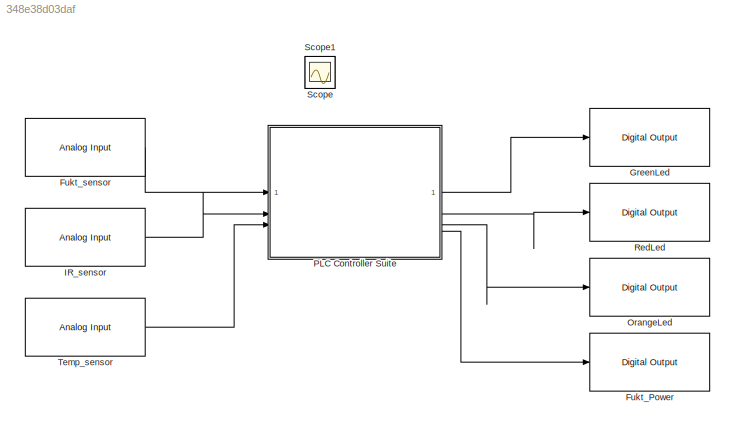
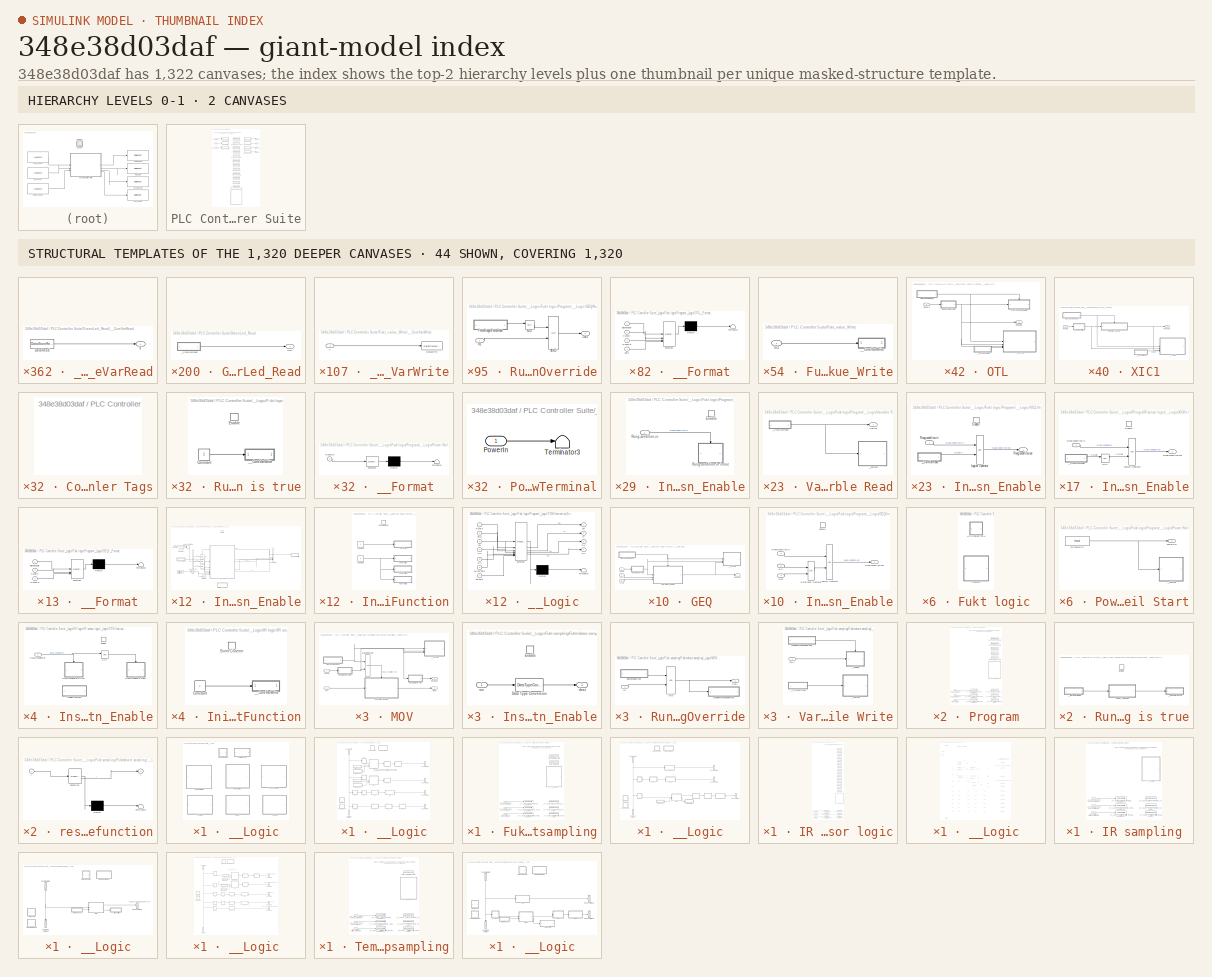
[diagram: thumbnail index - top-2 hierarchy levels (2 canvases) + 44 structural-template representatives of the remaining 1,320 canvases]
MODEL slx_348e38d03daf
KIND model
CONFIG AbsTol = auto
CONFIG EnableMultiTasking = off
CONFIG FixedStep = auto
CONFIG InitFcn = d13_init.PRE = 50;
CONFIG MaxStep = auto
CONFIG MinStep = auto
CONFIG RelTol = 1e-3
CONFIG SampleTimeConstraint = Unconstrained
CONFIG SolverName = FixedStepAuto
CONFIG StartTime = 0.0
CONFIG StopTime = 10.0
BLOCK [Reference] Fukt_Power  REF=arduinolib/Digital Output
  SourceBlock = arduinolib/Digital Output
  SourceType = Arduino Digital Output
BLOCK [Reference] Fukt_sensor  REF=arduinolib/Analog Input
  SourceBlock = arduinolib/Analog Input
  SourceType = Arduino Analog Input
BLOCK [Reference] GreenLed  REF=arduinolib/Digital Output
  SourceBlock = arduinolib/Digital Output
  SourceType = Arduino Digital Output
BLOCK [Reference] IR_sensor  REF=arduinolib/Analog Input
  SourceBlock = arduinolib/Analog Input
  SourceType = Arduino Analog Input
BLOCK [Reference] OrangeLed  REF=arduinolib/Digital Output
  SourceBlock = arduinolib/Digital Output
  SourceType = Arduino Digital Output
BLOCK [SubSystem] PLC Controller Suite
  NameLocation = top
  OpenFcn = slplc.callbacks.openPOUBlock(gcb);
  TreatAsAtomicUnit = on
BLOCK [Inport] PLC Controller Suite/Fukt_value
  OutDataTypeStr = uint16
BLOCK [DataStoreMemory] PLC Controller Suite/Fukt_value_Data
  DataStoreName = xxx_PLC_VAR_Fukt_value
  Dimensions = 1
  OutDataTypeStr = uint16
  Priority = 10
  ShowAdditionalParam = off
  SignalType = real
  Tag = POUVariable
BLOCK [SubSystem] PLC Controller Suite/Fukt_value_Write
  DisableCoverage = on
  MaskHideContents = on
  Priority = 11
  ShowPortLabels = none
  TreatAsAtomicUnit = on
BLOCK [Inport] PLC Controller Suite/Fukt_value_Write/In1
BLOCK [SubSystem] PLC Controller Suite/Fukt_value_Write/__CoreVarWrite
  DisableCoverage = on
  MaskHideContents = on
  ShowPortLabels = none
  Tag = CoreVarWriteBlock
  TreatAsAtomicUnit = on
BLOCK [DataStoreWrite] PLC Controller Suite/Fukt_value_Write/__CoreVarWrite/DataWrite
  DataStoreName = xxx_PLC_VAR_Fukt_value
  IndexOptions = Index vector (dialog)
  Indices = 1
  OutputSizes = 1
BLOCK [Inport] PLC Controller Suite/Fukt_value_Write/__CoreVarWrite/u
BLOCK [DataStoreMemory] PLC Controller Suite/Fukt_value_copy_Data
  DataStoreName = xxx_PLC_VAR_Fukt_value_copy
  Dimensions = 1
  OutDataTypeStr = uint16
  Priority = 10
  ShowAdditionalParam = off
  SignalType = real
  Tag = POUVariable
BLOCK [Outport] PLC Controller Suite/GreenLed
BLOCK [DataStoreMemory] PLC Controller Suite/GreenLed_Data
  DataStoreName = xxx_PLC_VAR_GreenLed
  Dimensions = 1
  OutDataTypeStr = boolean
  Priority = 10
  ShowAdditionalParam = off
  SignalType = real
  Tag = POUVariable
BLOCK [SubSystem] PLC Controller Suite/GreenLed_Read
  DisableCoverage = on
  MaskHideContents = on
  Priority = 13
  ShowPortLabels = none
  TreatAsAtomicUnit = on
BLOCK [Outport] PLC Controller Suite/GreenLed_Read/Out1
  VectorParamsAs1DForOutWhenUnconnected = off
BLOCK [SubSystem] PLC Controller Suite/GreenLed_Read/__CoreVarRead
  DisableCoverage = on
  MaskHideContents = on
  ShowPortLabels = none
  Tag = CoreVarReadBlock
  TreatAsAtomicUnit = on
BLOCK [DataStoreRead] PLC Controller Suite/GreenLed_Read/__CoreVarRead/DataRead
  DataStoreName = xxx_PLC_VAR_GreenLed
  IndexOptions = Index vector (dialog)
  Indices = 1
  OutputSizes = 1
BLOCK [Outport] PLC Controller Suite/GreenLed_Read/__CoreVarRead/y
  VectorParamsAs1DForOutWhenUnconnected = off
BLOCK [Inport] PLC Controller Suite/IR_value
  OutDataTypeStr = uint16
  Port = 2
BLOCK [DataStoreMemory] PLC Controller Suite/IR_value_Data
  DataStoreName = xxx_PLC_VAR_IR_value
  Dimensions = 1
  OutDataTypeStr = uint16
  Priority = 10
  ShowAdditionalParam = off
  SignalType = real
  Tag = POUVariable
BLOCK [SubSystem] PLC Controller Suite/IR_value_Write
  DisableCoverage = on
  MaskHideContents = on
  Priority = 11
  ShowPortLabels = none
  TreatAsAtomicUnit = on
BLOCK [Inport] PLC Controller Suite/IR_value_Write/In1
BLOCK [SubSystem] PLC Controller Suite/IR_value_Write/__CoreVarWrite
  DisableCoverage = on
  MaskHideContents = on
  ShowPortLabels = none
  Tag = CoreVarWriteBlock
  TreatAsAtomicUnit = on
BLOCK [DataStoreWrite] PLC Controller Suite/IR_value_Write/__CoreVarWrite/DataWrite
  DataStoreName = xxx_PLC_VAR_IR_value
  IndexOptions = Index vector (dialog)
  Indices = 1
  OutputSizes = 1
BLOCK [Inport] PLC Controller Suite/IR_value_Write/__CoreVarWrite/u
BLOCK [DataStoreMemory] PLC Controller Suite/IR_value_copy_Data
  DataStoreName = xxx_PLC_VAR_IR_value_copy
  Dimensions = 1
  OutDataTypeStr = uint16
  Priority = 10
  ShowAdditionalParam = off
  SignalType = real
  Tag = POUVariable
BLOCK [Outport] PLC Controller Suite/OrangeLed
  Port = 3
BLOCK [DataStoreMemory] PLC Controller Suite/OrangeLed_Data
  DataStoreName = xxx_PLC_VAR_OrangeLed
  Dimensions = 1
  OutDataTypeStr = boolean
  Priority = 10
  ShowAdditionalParam = off
  SignalType = real
  Tag = POUVariable
BLOCK [SubSystem] PLC Controller Suite/OrangeLed_Read
  DisableCoverage = on
  MaskHideContents = on
  Priority = 13
  ShowPortLabels = none
  TreatAsAtomicUnit = on
BLOCK [Outport] PLC Controller Suite/OrangeLed_Read/Out1
  VectorParamsAs1DForOutWhenUnconnected = off
BLOCK [SubSystem] PLC Controller Suite/OrangeLed_Read/__CoreVarRead
  DisableCoverage = on
  MaskHideContents = on
  ShowPortLabels = none
  Tag = CoreVarReadBlock
  TreatAsAtomicUnit = on
BLOCK [DataStoreRead] PLC Controller Suite/OrangeLed_Read/__CoreVarRead/DataRead
  DataStoreName = xxx_PLC_VAR_OrangeLed
  IndexOptions = Index vector (dialog)
  Indices = 1
  OutputSizes = 1
BLOCK [Outport] PLC Controller Suite/OrangeLed_Read/__CoreVarRead/y
  VectorParamsAs1DForOutWhenUnconnected = off
BLOCK [Outport] PLC Controller Suite/RedLed
  Port = 2
BLOCK [DataStoreMemory] PLC Controller Suite/RedLed_Data
  DataStoreName = xxx_PLC_VAR_RedLed
  Dimensions = 1
  OutDataTypeStr = boolean
  Priority = 10
  ShowAdditionalParam = off
  SignalType = real
  Tag = POUVariable
BLOCK [SubSystem] PLC Controller Suite/RedLed_Read
  DisableCoverage = on
  MaskHideContents = on
  Priority = 13
  ShowPortLabels = none
  TreatAsAtomicUnit = on
BLOCK [Outport] PLC Controller Suite/RedLed_Read/Out1
  VectorParamsAs1DForOutWhenUnconnected = off
BLOCK [SubSystem] PLC Controller Suite/RedLed_Read/__CoreVarRead
  DisableCoverage = on
  MaskHideContents = on
  ShowPortLabels = none
  Tag = CoreVarReadBlock
  TreatAsAtomicUnit = on
BLOCK [DataStoreRead] PLC Controller Suite/RedLed_Read/__CoreVarRead/DataRead
  DataStoreName = xxx_PLC_VAR_RedLed
  IndexOptions = Index vector (dialog)
  Indices = 1
  OutputSizes = 1
BLOCK [Outport] PLC Controller Suite/RedLed_Read/__CoreVarRead/y
  VectorParamsAs1DForOutWhenUnconnected = off
BLOCK [DataStoreMemory] PLC Controller Suite/TempPolling_Data
  DataStoreName = xxx_PLC_VAR_TempPolling
  Dimensions = 1
  OutDataTypeStr = boolean
  Priority = 10
  ShowAdditionalParam = off
  SignalType = real
  Tag = POUVariable
BLOCK [Inport] PLC Controller Suite/Temp_sensor
  OutDataTypeStr = uint16
  Port = 3
BLOCK [DataStoreMemory] PLC Controller Suite/Temp_sensor_Data
  DataStoreName = xxx_PLC_VAR_Temp_sensor
  Dimensions = 1
  OutDataTypeStr = uint16
  Priority = 10
  ShowAdditionalParam = off
  SignalType = real
  Tag = POUVariable
BLOCK [SubSystem] PLC Controller Suite/Temp_sensor_Write
  DisableCoverage = on
  MaskHideContents = on
  Priority = 11
  ShowPortLabels = none
  TreatAsAtomicUnit = on
BLOCK [Inport] PLC Controller Suite/Temp_sensor_Write/In1
BLOCK [SubSystem] PLC Controller Suite/Temp_sensor_Write/__CoreVarWrite
  DisableCoverage = on
  MaskHideContents = on
  ShowPortLabels = none
  Tag = CoreVarWriteBlock
  TreatAsAtomicUnit = on
BLOCK [DataStoreWrite] PLC Controller Suite/Temp_sensor_Write/__CoreVarWrite/DataWrite
  DataStoreName = xxx_PLC_VAR_Temp_sensor
  IndexOptions = Index vector (dialog)
  Indices = 1
  OutputSizes = 1
BLOCK [Inport] PLC Controller Suite/Temp_sensor_Write/__CoreVarWrite/u
BLOCK [SubSystem] PLC Controller Suite/__Logic
  Priority = 12
  TreatAsAtomicUnit = on
  UserDataPersistent = on
BLOCK [SubSystem] PLC Controller Suite/__Logic/Controller Tags
  DisableCoverage = on
  MaskHideContents = on
  OpenFcn = slplc.callbacks.openControllerVariableSS(gcb);
  Tag = ControllerVariableSS
  TreatAsAtomicUnit = on
  UserDataPersistent = on
BLOCK [SubSystem] PLC Controller Suite/__Logic/Fukt logic
  NameLocation = top
  OpenFcn = slplc.callbacks.openTaskBlock(gcb);
  TreatAsAtomicUnit = on
BLOCK [SubSystem] PLC Controller Suite/__Logic/Fukt logic/Program
  NameLocation = top
  OpenFcn = slplc.callbacks.openPOUBlock(gcb);
  TreatAsAtomicUnit = on
BLOCK [DataStoreMemory] PLC Controller Suite/__Logic/Fukt logic/Program/Fukt_constant_high_Data
  DataStoreName = xxx_PLC_VAR_Fukt_constant_high
  Dimensions = 1
  InitialValue = 900
  OutDataTypeStr = DINT
  Priority = 10
  ShowAdditionalParam = off
  SignalType = real
  Tag = POUVariable
BLOCK [DataStoreMemory] PLC Controller Suite/__Logic/Fukt logic/Program/Fukt_constant_low_Data
  DataStoreName = xxx_PLC_VAR_Fukt_constant_low
  Dimensions = 1
  InitialValue = 300
  OutDataTypeStr = DINT
  Priority = 10
  ShowAdditionalParam = off
  SignalType = real
  Tag = POUVariable
BLOCK [SubSystem] PLC Controller Suite/__Logic/Fukt logic/Program/__Logic
  Priority = 12
  TreatAsAtomicUnit = on
  UserDataPersistent = on
BLOCK [SubSystem] PLC Controller Suite/__Logic/Fukt logic/Program/__Logic/Add Rungs
  DisableCoverage = on
  MaskHideContents = on
  TreatAsAtomicUnit = on
BLOCK [SubSystem] PLC Controller Suite/__Logic/Fukt logic/Program/__Logic/Add Single Rung
  DisableCoverage = on
  MaskHideContents = on
  OpenFcn = slplc.callbacks.addLadderRungs(gcb);
  TreatAsAtomicUnit = on
BLOCK [SubSystem] PLC Controller Suite/__Logic/Fukt logic/Program/__Logic/GEQ
  MaskHideContents = on
  NameLocation = top
  Priority = 12
  TreatAsAtomicUnit = on
BLOCK [SubSystem] PLC Controller Suite/__Logic/Fukt logic/Program/__Logic/GEQ/BlockEnableRead
  DisableCoverage = on
  MaskHideContents = on
  ShowPortLabels = none
  TreatAsAtomicUnit = on
BLOCK [Outport] PLC Controller Suite/__Logic/Fukt logic/Program/__Logic/GEQ/BlockEnableRead/Out1
  VectorParamsAs1DForOutWhenUnconnected = off
BLOCK [SubSystem] PLC Controller Suite/__Logic/Fukt logic/Program/__Logic/GEQ/BlockEnableRead/__CoreLabelRead
  DisableCoverage = on
  MaskHideContents = on
  ShowPortLabels = none
  Tag = CoreVarReadBlock
  TreatAsAtomicUnit = on
BLOCK [DataStoreRead] PLC Controller Suite/__Logic/Fukt logic/Program/__Logic/GEQ/BlockEnableRead/__CoreLabelRead/DataRead
  DataStoreName = x_PLCLabel__s4_3653__Block_Enable
  IndexOptions = Index vector (dialog)
  Indices = 1
  OutputSizes = 1
BLOCK [Outport] PLC Controller Suite/__Logic/Fukt logic/Program/__Logic/GEQ/BlockEnableRead/__CoreLabelRead/Out1
  VectorParamsAs1DForOutWhenUnconnected = off
BLOCK [SubSystem] PLC Controller Suite/__Logic/Fukt logic/Program/__Logic/GEQ/Instruction_Enable
  TreatAsAtomicUnit = on
BLOCK [EnablePort] PLC Controller Suite/__Logic/Fukt logic/Program/__Logic/GEQ/Instruction_Enable/Enable
BLOCK [Logic] PLC Controller Suite/__Logic/Fukt logic/Program/__Logic/GEQ/Instruction_Enable/Logical Operator
  OutDataTypeStr = BOOL
BLOCK [RelationalOperator] PLC Controller Suite/__Logic/Fukt logic/Program/__Logic/GEQ/Instruction_Enable/Relational Operator
  InputSameDT = off
  OutDataTypeStr = BOOL
  RndMeth = Simplest
BLOCK [Inport] PLC Controller Suite/__Logic/Fukt logic/Program/__Logic/GEQ/Instruction_Enable/Rung-condition-in
BLOCK [Outport] PLC Controller Suite/__Logic/Fukt logic/Program/__Logic/GEQ/Instruction_Enable/Rung-condition-out
  PortDimensions = 1
  VectorParamsAs1DForOutWhenUnconnected = off
BLOCK [Inport] PLC Controller Suite/__Logic/Fukt logic/Program/__Logic/GEQ/Instruction_Enable/srcA
  Port = 2
  PortDimensions = 1
BLOCK [Inport] PLC Controller Suite/__Logic/Fukt logic/Program/__Logic/GEQ/Instruction_Enable/srcB
  Port = 3
  PortDimensions = 1
BLOCK [Inport] PLC Controller Suite/__Logic/Fukt logic/Program/__Logic/GEQ/RungIn
  OutDataTypeStr = BOOL
  PortDimensions = 1
BLOCK [SubSystem] PLC Controller Suite/__Logic/Fukt logic/Program/__Logic/GEQ/RungInOverride
  DisableCoverage = on
  MaskHideContents = on
  TreatAsAtomicUnit = on
BLOCK [Logic] PLC Controller Suite/__Logic/Fukt logic/Program/__Logic/GEQ/RungInOverride/AND
  AllPortsSameDT = off
  OutDataTypeStr = boolean
BLOCK [SubSystem] PLC Controller Suite/__Logic/Fukt logic/Program/__Logic/GEQ/RungInOverride/ForceRungInFalseRead
  DisableCoverage = on
  MaskHideContents = on
  ShowPortLabels = none
  TreatAsAtomicUnit = on
BLOCK [Outport] PLC Controller Suite/__Logic/Fukt logic/Program/__Logic/GEQ/RungInOverride/ForceRungInFalseRead/Out1
  VectorParamsAs1DForOutWhenUnconnected = off
BLOCK [SubSystem] PLC Controller Suite/__Logic/Fukt logic/Program/__Logic/GEQ/RungInOverride/ForceRungInFalseRead/__CoreLabelRead
  DisableCoverage = on
  MaskHideContents = on
  ShowPortLabels = none
  Tag = CoreVarReadBlock
  TreatAsAtomicUnit = on
BLOCK [DataStoreRead] PLC Controller Suite/__Logic/Fukt logic/Program/__Logic/GEQ/RungInOverride/ForceRungInFalseRead/__CoreLabelRead/DataRead
  DataStoreName = x_PLCLabel__s4_3653__Force_RungIn_False
  IndexOptions = Index vector (dialog)
  Indices = 1
  OutputSizes = 1
BLOCK [Outport] PLC Controller Suite/__Logic/Fukt logic/Program/__Logic/GEQ/RungInOverride/ForceRungInFalseRead/__CoreLabelRead/Out1
  VectorParamsAs1DForOutWhenUnconnected = off
BLOCK [Inport] PLC Controller Suite/__Logic/Fukt logic/Program/__Logic/GEQ/RungInOverride/In1
BLOCK [Logic] PLC Controller Suite/__Logic/Fukt logic/Program/__Logic/GEQ/RungInOverride/NOT
  AllPortsSameDT = off
  IconShape = distinctive
  Operator = NOT
  OutDataTypeStr = boolean
BLOCK [Outport] PLC Controller Suite/__Logic/Fukt logic/Program/__Logic/GEQ/RungInOverride/Out1
  VectorParamsAs1DForOutWhenUnconnected = off
BLOCK [Outport] PLC Controller Suite/__Logic/Fukt logic/Program/__Logic/GEQ/RungOut
  OutDataTypeStr = BOOL
  PortDimensions = 1
  VectorParamsAs1DForOutWhenUnconnected = off
BLOCK [SubSystem] PLC Controller Suite/__Logic/Fukt logic/Program/__Logic/GEQ/__Format
  DisableCoverage = on
  ErrorFcn = Stateflow.Translate.translate
  InitFcn = slplc.utils.setBlockAppearance('reset');
  MaskHideContents = on
  PermitHierarchicalResolution = ExplicitOnly
  Priority = 20
  SFBlockType = MATLAB Function
  StopFcn = slplc.utils.setBlockAppearance('reset');
  Tag = PLC_Format_FC
  TreatAsAtomicUnit = on
BLOCK [Demux] PLC Controller Suite/__Logic/Fukt logic/Program/__Logic/GEQ/__Format/ Demux 
  Outputs = 1
BLOCK [S-Function] PLC Controller Suite/__Logic/Fukt logic/Program/__Logic/GEQ/__Format/ SFunction 
  EnableBusSupport = on
  FunctionName = sf_sfun
  PortCounts = [3 1]
  SFcnIsStateOwnerBlock = off
  SFunctionDeploymentMode = off
  Tag = Stateflow S-Function 54
BLOCK [Terminator] PLC Controller Suite/__Logic/Fukt logic/Program/__Logic/GEQ/__Format/ Terminator 
BLOCK [Inport] PLC Controller Suite/__Logic/Fukt logic/Program/__Logic/GEQ/__Format/BlockEnable
BLOCK [Inport] PLC Controller Suite/__Logic/Fukt logic/Program/__Logic/GEQ/__Format/RungIn
  Port = 2
BLOCK [Inport] PLC Controller Suite/__Logic/Fukt logic/Program/__Logic/GEQ/__Format/RungOut
  Port = 3
BLOCK [Inport] PLC Controller Suite/__Logic/Fukt logic/Program/__Logic/GEQ/srcA
  Port = 2
  PortDimensions = 1
BLOCK [Inport] PLC Controller Suite/__Logic/Fukt logic/Program/__Logic/GEQ/srcB
  Port = 3
  PortDimensions = 1
BLOCK [SubSystem] PLC Controller Suite/__Logic/Fukt logic/Program/__Logic/LEQ
  MaskHideContents = on
  NameLocation = top
  Priority = 5
  TreatAsAtomicUnit = on
BLOCK [SubSystem] PLC Controller Suite/__Logic/Fukt logic/Program/__Logic/LEQ/BlockEnableRead
  DisableCoverage = on
  MaskHideContents = on
  ShowPortLabels = none
  TreatAsAtomicUnit = on
BLOCK [Outport] PLC Controller Suite/__Logic/Fukt logic/Program/__Logic/LEQ/BlockEnableRead/Out1
  VectorParamsAs1DForOutWhenUnconnected = off
BLOCK [SubSystem] PLC Controller Suite/__Logic/Fukt logic/Program/__Logic/LEQ/BlockEnableRead/__CoreLabelRead
  DisableCoverage = on
  MaskHideContents = on
  ShowPortLabels = none
  Tag = CoreVarReadBlock
  TreatAsAtomicUnit = on
BLOCK [DataStoreRead] PLC Controller Suite/__Logic/Fukt logic/Program/__Logic/LEQ/BlockEnableRead/__CoreLabelRead/DataRead
  DataStoreName = x_PLCLabel__s4_3653__Block_Enable
  IndexOptions = Index vector (dialog)
  Indices = 1
  OutputSizes = 1
BLOCK [Outport] PLC Controller Suite/__Logic/Fukt logic/Program/__Logic/LEQ/BlockEnableRead/__CoreLabelRead/Out1
  VectorParamsAs1DForOutWhenUnconnected = off
BLOCK [SubSystem] PLC Controller Suite/__Logic/Fukt logic/Program/__Logic/LEQ/Instruction_Enable
  TreatAsAtomicUnit = on
BLOCK [EnablePort] PLC Controller Suite/__Logic/Fukt logic/Program/__Logic/LEQ/Instruction_Enable/Enable
BLOCK [Logic] PLC Controller Suite/__Logic/Fukt logic/Program/__Logic/LEQ/Instruction_Enable/Logical Operator
  OutDataTypeStr = BOOL
BLOCK [RelationalOperator] PLC Controller Suite/__Logic/Fukt logic/Program/__Logic/LEQ/Instruction_Enable/Relational Operator
  InputSameDT = off
  Operator = <=
  OutDataTypeStr = BOOL
  RndMeth = Simplest
BLOCK [Inport] PLC Controller Suite/__Logic/Fukt logic/Program/__Logic/LEQ/Instruction_Enable/Rung-condition-in
BLOCK [Outport] PLC Controller Suite/__Logic/Fukt logic/Program/__Logic/LEQ/Instruction_Enable/Rung-condition-out
  PortDimensions = 1
  VectorParamsAs1DForOutWhenUnconnected = off
BLOCK [Inport] PLC Controller Suite/__Logic/Fukt logic/Program/__Logic/LEQ/Instruction_Enable/srcA
  Port = 2
  PortDimensions = 1
BLOCK [Inport] PLC Controller Suite/__Logic/Fukt logic/Program/__Logic/LEQ/Instruction_Enable/srcB
  Port = 3
  PortDimensions = 1
BLOCK [Inport] PLC Controller Suite/__Logic/Fukt logic/Program/__Logic/LEQ/RungIn
  OutDataTypeStr = BOOL
  PortDimensions = 1
BLOCK [SubSystem] PLC Controller Suite/__Logic/Fukt logic/Program/__Logic/LEQ/RungInOverride
  DisableCoverage = on
  MaskHideContents = on
  TreatAsAtomicUnit = on
BLOCK [Logic] PLC Controller Suite/__Logic/Fukt logic/Program/__Logic/LEQ/RungInOverride/AND
  AllPortsSameDT = off
  OutDataTypeStr = boolean
BLOCK [SubSystem] PLC Controller Suite/__Logic/Fukt logic/Program/__Logic/LEQ/RungInOverride/ForceRungInFalseRead
  DisableCoverage = on
  MaskHideContents = on
  ShowPortLabels = none
  TreatAsAtomicUnit = on
BLOCK [Outport] PLC Controller Suite/__Logic/Fukt logic/Program/__Logic/LEQ/RungInOverride/ForceRungInFalseRead/Out1
  VectorParamsAs1DForOutWhenUnconnected = off
BLOCK [SubSystem] PLC Controller Suite/__Logic/Fukt logic/Program/__Logic/LEQ/RungInOverride/ForceRungInFalseRead/__CoreLabelRead
  DisableCoverage = on
  MaskHideContents = on
  ShowPortLabels = none
  Tag = CoreVarReadBlock
  TreatAsAtomicUnit = on
BLOCK [DataStoreRead] PLC Controller Suite/__Logic/Fukt logic/Program/__Logic/LEQ/RungInOverride/ForceRungInFalseRead/__CoreLabelRead/DataRead
  DataStoreName = x_PLCLabel__s4_3653__Force_RungIn_False
  IndexOptions = Index vector (dialog)
  Indices = 1
  OutputSizes = 1
BLOCK [Outport] PLC Controller Suite/__Logic/Fukt logic/Program/__Logic/LEQ/RungInOverride/ForceRungInFalseRead/__CoreLabelRead/Out1
  VectorParamsAs1DForOutWhenUnconnected = off
BLOCK [Inport] PLC Controller Suite/__Logic/Fukt logic/Program/__Logic/LEQ/RungInOverride/In1
BLOCK [Logic] PLC Controller Suite/__Logic/Fukt logic/Program/__Logic/LEQ/RungInOverride/NOT
  AllPortsSameDT = off
  IconShape = distinctive
  Operator = NOT
  OutDataTypeStr = boolean
BLOCK [Outport] PLC Controller Suite/__Logic/Fukt logic/Program/__Logic/LEQ/RungInOverride/Out1
  VectorParamsAs1DForOutWhenUnconnected = off
BLOCK [Outport] PLC Controller Suite/__Logic/Fukt logic/Program/__Logic/LEQ/RungOut
  OutDataTypeStr = BOOL
  PortDimensions = 1
  VectorParamsAs1DForOutWhenUnconnected = off
BLOCK [SubSystem] PLC Controller Suite/__Logic/Fukt logic/Program/__Logic/LEQ/__Format
  DisableCoverage = on
  ErrorFcn = Stateflow.Translate.translate
  InitFcn = slplc.utils.setBlockAppearance('reset');
  MaskHideContents = on
  PermitHierarchicalResolution = ExplicitOnly
  Priority = 20
  SFBlockType = MATLAB Function
  StopFcn = slplc.utils.setBlockAppearance('reset');
  Tag = PLC_Format_FC
  TreatAsAtomicUnit = on
BLOCK [Demux] PLC Controller Suite/__Logic/Fukt logic/Program/__Logic/LEQ/__Format/ Demux 
  Outputs = 1
BLOCK [S-Function] PLC Controller Suite/__Logic/Fukt logic/Program/__Logic/LEQ/__Format/ SFunction 
  EnableBusSupport = on
  FunctionName = sf_sfun
  PortCounts = [3 1]
  SFcnIsStateOwnerBlock = off
  SFunctionDeploymentMode = off
  Tag = Stateflow S-Function 15
BLOCK [Terminator] PLC Controller Suite/__Logic/Fukt logic/Program/__Logic/LEQ/__Format/ Terminator 
BLOCK [Inport] PLC Controller Suite/__Logic/Fukt logic/Program/__Logic/LEQ/__Format/BlockEnable
BLOCK [Inport] PLC Controller Suite/__Logic/Fukt logic/Program/__Logic/LEQ/__Format/RungIn
  Port = 2
BLOCK [Inport] PLC Controller Suite/__Logic/Fukt logic/Program/__Logic/LEQ/__Format/RungOut
  Port = 3
BLOCK [Inport] PLC Controller Suite/__Logic/Fukt logic/Program/__Logic/LEQ/srcA
  Port = 2
  PortDimensions = 1
BLOCK [Inport] PLC Controller Suite/__Logic/Fukt logic/Program/__Logic/LEQ/srcB
  Port = 3
  PortDimensions = 1
BLOCK [SubSystem] PLC Controller Suite/__Logic/Fukt logic/Program/__Logic/OTL
  AttributesFormatString = %<PLCOperandTag>
  MaskHideContents = on
  NameLocation = top
  Priority = 17
  TreatAsAtomicUnit = on
BLOCK [SubSystem] PLC Controller Suite/__Logic/Fukt logic/Program/__Logic/OTL/BlockEnableRead
  DisableCoverage = on
  MaskHideContents = on
  ShowPortLabels = none
  TreatAsAtomicUnit = on
BLOCK [Outport] PLC Controller Suite/__Logic/Fukt logic/Program/__Logic/OTL/BlockEnableRead/Out1
  VectorParamsAs1DForOutWhenUnconnected = off
BLOCK [SubSystem] PLC Controller Suite/__Logic/Fukt logic/Program/__Logic/OTL/BlockEnableRead/__CoreLabelRead
  DisableCoverage = on
  MaskHideContents = on
  ShowPortLabels = none
  Tag = CoreVarReadBlock
  TreatAsAtomicUnit = on
BLOCK [DataStoreRead] PLC Controller Suite/__Logic/Fukt logic/Program/__Logic/OTL/BlockEnableRead/__CoreLabelRead/DataRead
  DataStoreName = x_PLCLabel__s4_3653__Block_Enable
  IndexOptions = Index vector (dialog)
  Indices = 1
  OutputSizes = 1
BLOCK [Outport] PLC Controller Suite/__Logic/Fukt logic/Program/__Logic/OTL/BlockEnableRead/__CoreLabelRead/Out1
  VectorParamsAs1DForOutWhenUnconnected = off
BLOCK [SubSystem] PLC Controller Suite/__Logic/Fukt logic/Program/__Logic/OTL/Instruction_Enable
  Priority = 12
  TreatAsAtomicUnit = on
BLOCK [EnablePort] PLC Controller Suite/__Logic/Fukt logic/Program/__Logic/OTL/Instruction_Enable/Enable
BLOCK [Inport] PLC Controller Suite/__Logic/Fukt logic/Program/__Logic/OTL/Instruction_Enable/Rung-condition-in
  OutDataTypeStr = BOOL
BLOCK [SubSystem] PLC Controller Suite/__Logic/Fukt logic/Program/__Logic/OTL/Instruction_Enable/Rung-condition-in is true
  Priority = 12
BLOCK [Constant] PLC Controller Suite/__Logic/Fukt logic/Program/__Logic/OTL/Instruction_Enable/Rung-condition-in is true/Constant
  OutDataTypeStr = BOOL
BLOCK [EnablePort] PLC Controller Suite/__Logic/Fukt logic/Program/__Logic/OTL/Instruction_Enable/Rung-condition-in is true/Enable
BLOCK [SubSystem] PLC Controller Suite/__Logic/Fukt logic/Program/__Logic/OTL/Instruction_Enable/Rung-condition-in is true/__CoreVarWrite
  DisableCoverage = on
  MaskHideContents = on
  ShowPortLabels = none
  Tag = CoreVarWriteBlock
  TreatAsAtomicUnit = on
BLOCK [DataStoreWrite] PLC Controller Suite/__Logic/Fukt logic/Program/__Logic/OTL/Instruction_Enable/Rung-condition-in is true/__CoreVarWrite/DataWrite
  DataStoreName = xxx_PLC_VAR_OrangeLed
  IndexOptions = Index vector (dialog)
  Indices = 1
  OutputSizes = 1
BLOCK [Inport] PLC Controller Suite/__Logic/Fukt logic/Program/__Logic/OTL/Instruction_Enable/Rung-condition-in is true/__CoreVarWrite/u
BLOCK [Inport] PLC Controller Suite/__Logic/Fukt logic/Program/__Logic/OTL/RungIn
  PortDimensions = 1
  VarSizeSig = No
BLOCK [SubSystem] PLC Controller Suite/__Logic/Fukt logic/Program/__Logic/OTL/RungInOverride
  DisableCoverage = on
  MaskHideContents = on
  TreatAsAtomicUnit = on
BLOCK [Logic] PLC Controller Suite/__Logic/Fukt logic/Program/__Logic/OTL/RungInOverride/AND
  AllPortsSameDT = off
  OutDataTypeStr = boolean
BLOCK [SubSystem] PLC Controller Suite/__Logic/Fukt logic/Program/__Logic/OTL/RungInOverride/ForceRungInFalseRead
  DisableCoverage = on
  MaskHideContents = on
  ShowPortLabels = none
  TreatAsAtomicUnit = on
BLOCK [Outport] PLC Controller Suite/__Logic/Fukt logic/Program/__Logic/OTL/RungInOverride/ForceRungInFalseRead/Out1
  VectorParamsAs1DForOutWhenUnconnected = off
BLOCK [SubSystem] PLC Controller Suite/__Logic/Fukt logic/Program/__Logic/OTL/RungInOverride/ForceRungInFalseRead/__CoreLabelRead
  DisableCoverage = on
  MaskHideContents = on
  ShowPortLabels = none
  Tag = CoreVarReadBlock
  TreatAsAtomicUnit = on
BLOCK [DataStoreRead] PLC Controller Suite/__Logic/Fukt logic/Program/__Logic/OTL/RungInOverride/ForceRungInFalseRead/__CoreLabelRead/DataRead
  DataStoreName = x_PLCLabel__s4_3653__Force_RungIn_False
  IndexOptions = Index vector (dialog)
  Indices = 1
  OutputSizes = 1
BLOCK [Outport] PLC Controller Suite/__Logic/Fukt logic/Program/__Logic/OTL/RungInOverride/ForceRungInFalseRead/__CoreLabelRead/Out1
  VectorParamsAs1DForOutWhenUnconnected = off
BLOCK [Inport] PLC Controller Suite/__Logic/Fukt logic/Program/__Logic/OTL/RungInOverride/In1
BLOCK [Logic] PLC Controller Suite/__Logic/Fukt logic/Program/__Logic/OTL/RungInOverride/NOT
  AllPortsSameDT = off
  IconShape = distinctive
  Operator = NOT
  OutDataTypeStr = boolean
BLOCK [Outport] PLC Controller Suite/__Logic/Fukt logic/Program/__Logic/OTL/RungInOverride/Out1
  VectorParamsAs1DForOutWhenUnconnected = off
BLOCK [Outport] PLC Controller Suite/__Logic/Fukt logic/Program/__Logic/OTL/RungOut
  InitialOutput = false
  OutDataTypeStr = BOOL
  PortDimensions = 1
  VarSizeSig = No
  VectorParamsAs1DForOutWhenUnconnected = off
BLOCK [SubSystem] PLC Controller Suite/__Logic/Fukt logic/Program/__Logic/OTL/__CoreVarRead
  DisableCoverage = on
  MaskHideContents = on
  ShowPortLabels = none
  Tag = CoreVarReadBlock
  TreatAsAtomicUnit = on
BLOCK [DataStoreRead] PLC Controller Suite/__Logic/Fukt logic/Program/__Logic/OTL/__CoreVarRead/DataRead
  DataStoreName = xxx_PLC_VAR_OrangeLed
  IndexOptions = Index vector (dialog)
  Indices = 1
  OutputSizes = 1
BLOCK [Outport] PLC Controller Suite/__Logic/Fukt logic/Program/__Logic/OTL/__CoreVarRead/y
  VectorParamsAs1DForOutWhenUnconnected = off
BLOCK [SubSystem] PLC Controller Suite/__Logic/Fukt logic/Program/__Logic/OTL/__Format
  DisableCoverage = on
  ErrorFcn = Stateflow.Translate.translate
  InitFcn = slplc.utils.setBlockAppearance('reset', '%<PLCOperandTag>');
  MaskHideContents = on
  PermitHierarchicalResolution = ExplicitOnly
  Priority = 20
  SFBlockType = MATLAB Function
  StopFcn = slplc.utils.setBlockAppearance('reset', '%<PLCOperandTag>');
  Tag = PLC_Format_Boolean
  TreatAsAtomicUnit = on
BLOCK [Demux] PLC Controller Suite/__Logic/Fukt logic/Program/__Logic/OTL/__Format/ Demux 
  Outputs = 1
BLOCK [S-Function] PLC Controller Suite/__Logic/Fukt logic/Program/__Logic/OTL/__Format/ SFunction 
  EnableBusSupport = on
  FunctionName = sf_sfun
  PortCounts = [4 1]
  SFcnIsStateOwnerBlock = off
  SFunctionDeploymentMode = off
  Tag = Stateflow S-Function 16
BLOCK [Terminator] PLC Controller Suite/__Logic/Fukt logic/Program/__Logic/OTL/__Format/ Terminator 
BLOCK [Inport] PLC Controller Suite/__Logic/Fukt logic/Program/__Logic/OTL/__Format/BlockEnable
BLOCK [Inport] PLC Controller Suite/__Logic/Fukt logic/Program/__Logic/OTL/__Format/RungIn
  Port = 2
BLOCK [Inport] PLC Controller Suite/__Logic/Fukt logic/Program/__Logic/OTL/__Format/RungOut
  Port = 3
BLOCK [Inport] PLC Controller Suite/__Logic/Fukt logic/Program/__Logic/OTL/__Format/data
  Port = 4
BLOCK [SubSystem] PLC Controller Suite/__Logic/Fukt logic/Program/__Logic/OTL1
  AttributesFormatString = %<PLCOperandTag>
  MaskHideContents = on
  NameLocation = top
  Priority = 6
  TreatAsAtomicUnit = on
BLOCK [SubSystem] PLC Controller Suite/__Logic/Fukt logic/Program/__Logic/OTL1/BlockEnableRead
  DisableCoverage = on
  MaskHideContents = on
  ShowPortLabels = none
  TreatAsAtomicUnit = on
BLOCK [Outport] PLC Controller Suite/__Logic/Fukt logic/Program/__Logic/OTL1/BlockEnableRead/Out1
  VectorParamsAs1DForOutWhenUnconnected = off
BLOCK [SubSystem] PLC Controller Suite/__Logic/Fukt logic/Program/__Logic/OTL1/BlockEnableRead/__CoreLabelRead
  DisableCoverage = on
  MaskHideContents = on
  ShowPortLabels = none
  Tag = CoreVarReadBlock
  TreatAsAtomicUnit = on
BLOCK [DataStoreRead] PLC Controller Suite/__Logic/Fukt logic/Program/__Logic/OTL1/BlockEnableRead/__CoreLabelRead/DataRead
  DataStoreName = x_PLCLabel__s4_3653__Block_Enable
  IndexOptions = Index vector (dialog)
  Indices = 1
  OutputSizes = 1
BLOCK [Outport] PLC Controller Suite/__Logic/Fukt logic/Program/__Logic/OTL1/BlockEnableRead/__CoreLabelRead/Out1
  VectorParamsAs1DForOutWhenUnconnected = off
BLOCK [SubSystem] PLC Controller Suite/__Logic/Fukt logic/Program/__Logic/OTL1/Instruction_Enable
  Priority = 12
  TreatAsAtomicUnit = on
BLOCK [EnablePort] PLC Controller Suite/__Logic/Fukt logic/Program/__Logic/OTL1/Instruction_Enable/Enable
BLOCK [Inport] PLC Controller Suite/__Logic/Fukt logic/Program/__Logic/OTL1/Instruction_Enable/Rung-condition-in
  OutDataTypeStr = BOOL
BLOCK [SubSystem] PLC Controller Suite/__Logic/Fukt logic/Program/__Logic/OTL1/Instruction_Enable/Rung-condition-in is true
  Priority = 12
BLOCK [Constant] PLC Controller Suite/__Logic/Fukt logic/Program/__Logic/OTL1/Instruction_Enable/Rung-condition-in is true/Constant
  OutDataTypeStr = BOOL
BLOCK [EnablePort] PLC Controller Suite/__Logic/Fukt logic/Program/__Logic/OTL1/Instruction_Enable/Rung-condition-in is true/Enable
BLOCK [SubSystem] PLC Controller Suite/__Logic/Fukt logic/Program/__Logic/OTL1/Instruction_Enable/Rung-condition-in is true/__CoreVarWrite
  DisableCoverage = on
  MaskHideContents = on
  ShowPortLabels = none
  Tag = CoreVarWriteBlock
  TreatAsAtomicUnit = on
BLOCK [DataStoreWrite] PLC Controller Suite/__Logic/Fukt logic/Program/__Logic/OTL1/Instruction_Enable/Rung-condition-in is true/__CoreVarWrite/DataWrite
  DataStoreName = xxx_PLC_VAR_fukt_low
  IndexOptions = Index vector (dialog)
  Indices = 1
  OutputSizes = 1
BLOCK [Inport] PLC Controller Suite/__Logic/Fukt logic/Program/__Logic/OTL1/Instruction_Enable/Rung-condition-in is true/__CoreVarWrite/u
BLOCK [Inport] PLC Controller Suite/__Logic/Fukt logic/Program/__Logic/OTL1/RungIn
  PortDimensions = 1
  VarSizeSig = No
BLOCK [SubSystem] PLC Controller Suite/__Logic/Fukt logic/Program/__Logic/OTL1/RungInOverride
  DisableCoverage = on
  MaskHideContents = on
  TreatAsAtomicUnit = on
BLOCK [Logic] PLC Controller Suite/__Logic/Fukt logic/Program/__Logic/OTL1/RungInOverride/AND
  AllPortsSameDT = off
  OutDataTypeStr = boolean
BLOCK [SubSystem] PLC Controller Suite/__Logic/Fukt logic/Program/__Logic/OTL1/RungInOverride/ForceRungInFalseRead
  DisableCoverage = on
  MaskHideContents = on
  ShowPortLabels = none
  TreatAsAtomicUnit = on
BLOCK [Outport] PLC Controller Suite/__Logic/Fukt logic/Program/__Logic/OTL1/RungInOverride/ForceRungInFalseRead/Out1
  VectorParamsAs1DForOutWhenUnconnected = off
BLOCK [SubSystem] PLC Controller Suite/__Logic/Fukt logic/Program/__Logic/OTL1/RungInOverride/ForceRungInFalseRead/__CoreLabelRead
  DisableCoverage = on
  MaskHideContents = on
  ShowPortLabels = none
  Tag = CoreVarReadBlock
  TreatAsAtomicUnit = on
BLOCK [DataStoreRead] PLC Controller Suite/__Logic/Fukt logic/Program/__Logic/OTL1/RungInOverride/ForceRungInFalseRead/__CoreLabelRead/DataRead
  DataStoreName = x_PLCLabel__s4_3653__Force_RungIn_False
  IndexOptions = Index vector (dialog)
  Indices = 1
  OutputSizes = 1
BLOCK [Outport] PLC Controller Suite/__Logic/Fukt logic/Program/__Logic/OTL1/RungInOverride/ForceRungInFalseRead/__CoreLabelRead/Out1
  VectorParamsAs1DForOutWhenUnconnected = off
BLOCK [Inport] PLC Controller Suite/__Logic/Fukt logic/Program/__Logic/OTL1/RungInOverride/In1
BLOCK [Logic] PLC Controller Suite/__Logic/Fukt logic/Program/__Logic/OTL1/RungInOverride/NOT
  AllPortsSameDT = off
  IconShape = distinctive
  Operator = NOT
  OutDataTypeStr = boolean
BLOCK [Outport] PLC Controller Suite/__Logic/Fukt logic/Program/__Logic/OTL1/RungInOverride/Out1
  VectorParamsAs1DForOutWhenUnconnected = off
BLOCK [Outport] PLC Controller Suite/__Logic/Fukt logic/Program/__Logic/OTL1/RungOut
  InitialOutput = false
  OutDataTypeStr = BOOL
  PortDimensions = 1
  VarSizeSig = No
  VectorParamsAs1DForOutWhenUnconnected = off
BLOCK [SubSystem] PLC Controller Suite/__Logic/Fukt logic/Program/__Logic/OTL1/__CoreVarRead
  DisableCoverage = on
  MaskHideContents = on
  ShowPortLabels = none
  Tag = CoreVarReadBlock
  TreatAsAtomicUnit = on
BLOCK [DataStoreRead] PLC Controller Suite/__Logic/Fukt logic/Program/__Logic/OTL1/__CoreVarRead/DataRead
  DataStoreName = xxx_PLC_VAR_fukt_low
  IndexOptions = Index vector (dialog)
  Indices = 1
  OutputSizes = 1
BLOCK [Outport] PLC Controller Suite/__Logic/Fukt logic/Program/__Logic/OTL1/__CoreVarRead/y
  VectorParamsAs1DForOutWhenUnconnected = off
BLOCK [SubSystem] PLC Controller Suite/__Logic/Fukt logic/Program/__Logic/OTL1/__Format
  DisableCoverage = on
  ErrorFcn = Stateflow.Translate.translate
  InitFcn = slplc.utils.setBlockAppearance('reset', '%<PLCOperandTag>');
  MaskHideContents = on
  PermitHierarchicalResolution = ExplicitOnly
  Priority = 20
  SFBlockType = MATLAB Function
  StopFcn = slplc.utils.setBlockAppearance('reset', '%<PLCOperandTag>');
  Tag = PLC_Format_Boolean
  TreatAsAtomicUnit = on
BLOCK [Demux] PLC Controller Suite/__Logic/Fukt logic/Program/__Logic/OTL1/__Format/ Demux 
  Outputs = 1
BLOCK [S-Function] PLC Controller Suite/__Logic/Fukt logic/Program/__Logic/OTL1/__Format/ SFunction 
  EnableBusSupport = on
  FunctionName = sf_sfun
  PortCounts = [4 1]
  SFcnIsStateOwnerBlock = off
  SFunctionDeploymentMode = off
  Tag = Stateflow S-Function 50
BLOCK [Terminator] PLC Controller Suite/__Logic/Fukt logic/Program/__Logic/OTL1/__Format/ Terminator 
BLOCK [Inport] PLC Controller Suite/__Logic/Fukt logic/Program/__Logic/OTL1/__Format/BlockEnable
BLOCK [Inport] PLC Controller Suite/__Logic/Fukt logic/Program/__Logic/OTL1/__Format/RungIn
  Port = 2
BLOCK [Inport] PLC Controller Suite/__Logic/Fukt logic/Program/__Logic/OTL1/__Format/RungOut
  Port = 3
BLOCK [Inport] PLC Controller Suite/__Logic/Fukt logic/Program/__Logic/OTL1/__Format/data
  Port = 4
BLOCK [SubSystem] PLC Controller Suite/__Logic/Fukt logic/Program/__Logic/OTL2
  AttributesFormatString = %<PLCOperandTag>
  MaskHideContents = on
  NameLocation = top
  Priority = 13
  TreatAsAtomicUnit = on
BLOCK [SubSystem] PLC Controller Suite/__Logic/Fukt logic/Program/__Logic/OTL2/BlockEnableRead
  DisableCoverage = on
  MaskHideContents = on
  ShowPortLabels = none
  TreatAsAtomicUnit = on
BLOCK [Outport] PLC Controller Suite/__Logic/Fukt logic/Program/__Logic/OTL2/BlockEnableRead/Out1
  VectorParamsAs1DForOutWhenUnconnected = off
BLOCK [SubSystem] PLC Controller Suite/__Logic/Fukt logic/Program/__Logic/OTL2/BlockEnableRead/__CoreLabelRead
  DisableCoverage = on
  MaskHideContents = on
  ShowPortLabels = none
  Tag = CoreVarReadBlock
  TreatAsAtomicUnit = on
BLOCK [DataStoreRead] PLC Controller Suite/__Logic/Fukt logic/Program/__Logic/OTL2/BlockEnableRead/__CoreLabelRead/DataRead
  DataStoreName = x_PLCLabel__s4_3653__Block_Enable
  IndexOptions = Index vector (dialog)
  Indices = 1
  OutputSizes = 1
BLOCK [Outport] PLC Controller Suite/__Logic/Fukt logic/Program/__Logic/OTL2/BlockEnableRead/__CoreLabelRead/Out1
  VectorParamsAs1DForOutWhenUnconnected = off
BLOCK [SubSystem] PLC Controller Suite/__Logic/Fukt logic/Program/__Logic/OTL2/Instruction_Enable
  Priority = 12
  TreatAsAtomicUnit = on
BLOCK [EnablePort] PLC Controller Suite/__Logic/Fukt logic/Program/__Logic/OTL2/Instruction_Enable/Enable
BLOCK [Inport] PLC Controller Suite/__Logic/Fukt logic/Program/__Logic/OTL2/Instruction_Enable/Rung-condition-in
  OutDataTypeStr = BOOL
BLOCK [SubSystem] PLC Controller Suite/__Logic/Fukt logic/Program/__Logic/OTL2/Instruction_Enable/Rung-condition-in is true
  Priority = 12
BLOCK [Constant] PLC Controller Suite/__Logic/Fukt logic/Program/__Logic/OTL2/Instruction_Enable/Rung-condition-in is true/Constant
  OutDataTypeStr = BOOL
BLOCK [EnablePort] PLC Controller Suite/__Logic/Fukt logic/Program/__Logic/OTL2/Instruction_Enable/Rung-condition-in is true/Enable
BLOCK [SubSystem] PLC Controller Suite/__Logic/Fukt logic/Program/__Logic/OTL2/Instruction_Enable/Rung-condition-in is true/__CoreVarWrite
  DisableCoverage = on
  MaskHideContents = on
  ShowPortLabels = none
  Tag = CoreVarWriteBlock
  TreatAsAtomicUnit = on
BLOCK [DataStoreWrite] PLC Controller Suite/__Logic/Fukt logic/Program/__Logic/OTL2/Instruction_Enable/Rung-condition-in is true/__CoreVarWrite/DataWrite
  DataStoreName = xxx_PLC_VAR_fukt_high
  IndexOptions = Index vector (dialog)
  Indices = 1
  OutputSizes = 1
BLOCK [Inport] PLC Controller Suite/__Logic/Fukt logic/Program/__Logic/OTL2/Instruction_Enable/Rung-condition-in is true/__CoreVarWrite/u
BLOCK [Inport] PLC Controller Suite/__Logic/Fukt logic/Program/__Logic/OTL2/RungIn
  PortDimensions = 1
  VarSizeSig = No
BLOCK [SubSystem] PLC Controller Suite/__Logic/Fukt logic/Program/__Logic/OTL2/RungInOverride
  DisableCoverage = on
  MaskHideContents = on
  TreatAsAtomicUnit = on
BLOCK [Logic] PLC Controller Suite/__Logic/Fukt logic/Program/__Logic/OTL2/RungInOverride/AND
  AllPortsSameDT = off
  OutDataTypeStr = boolean
BLOCK [SubSystem] PLC Controller Suite/__Logic/Fukt logic/Program/__Logic/OTL2/RungInOverride/ForceRungInFalseRead
  DisableCoverage = on
  MaskHideContents = on
  ShowPortLabels = none
  TreatAsAtomicUnit = on
BLOCK [Outport] PLC Controller Suite/__Logic/Fukt logic/Program/__Logic/OTL2/RungInOverride/ForceRungInFalseRead/Out1
  VectorParamsAs1DForOutWhenUnconnected = off
BLOCK [SubSystem] PLC Controller Suite/__Logic/Fukt logic/Program/__Logic/OTL2/RungInOverride/ForceRungInFalseRead/__CoreLabelRead
  DisableCoverage = on
  MaskHideContents = on
  ShowPortLabels = none
  Tag = CoreVarReadBlock
  TreatAsAtomicUnit = on
BLOCK [DataStoreRead] PLC Controller Suite/__Logic/Fukt logic/Program/__Logic/OTL2/RungInOverride/ForceRungInFalseRead/__CoreLabelRead/DataRead
  DataStoreName = x_PLCLabel__s4_3653__Force_RungIn_False
  IndexOptions = Index vector (dialog)
  Indices = 1
  OutputSizes = 1
BLOCK [Outport] PLC Controller Suite/__Logic/Fukt logic/Program/__Logic/OTL2/RungInOverride/ForceRungInFalseRead/__CoreLabelRead/Out1
  VectorParamsAs1DForOutWhenUnconnected = off
BLOCK [Inport] PLC Controller Suite/__Logic/Fukt logic/Program/__Logic/OTL2/RungInOverride/In1
BLOCK [Logic] PLC Controller Suite/__Logic/Fukt logic/Program/__Logic/OTL2/RungInOverride/NOT
  AllPortsSameDT = off
  IconShape = distinctive
  Operator = NOT
  OutDataTypeStr = boolean
BLOCK [Outport] PLC Controller Suite/__Logic/Fukt logic/Program/__Logic/OTL2/RungInOverride/Out1
  VectorParamsAs1DForOutWhenUnconnected = off
BLOCK [Outport] PLC Controller Suite/__Logic/Fukt logic/Program/__Logic/OTL2/RungOut
  InitialOutput = false
  OutDataTypeStr = BOOL
  PortDimensions = 1
  VarSizeSig = No
  VectorParamsAs1DForOutWhenUnconnected = off
BLOCK [SubSystem] PLC Controller Suite/__Logic/Fukt logic/Program/__Logic/OTL2/__CoreVarRead
  DisableCoverage = on
  MaskHideContents = on
  ShowPortLabels = none
  Tag = CoreVarReadBlock
  TreatAsAtomicUnit = on
BLOCK [DataStoreRead] PLC Controller Suite/__Logic/Fukt logic/Program/__Logic/OTL2/__CoreVarRead/DataRead
  DataStoreName = xxx_PLC_VAR_fukt_high
  IndexOptions = Index vector (dialog)
  Indices = 1
  OutputSizes = 1
BLOCK [Outport] PLC Controller Suite/__Logic/Fukt logic/Program/__Logic/OTL2/__CoreVarRead/y
  VectorParamsAs1DForOutWhenUnconnected = off
BLOCK [SubSystem] PLC Controller Suite/__Logic/Fukt logic/Program/__Logic/OTL2/__Format
  DisableCoverage = on
  ErrorFcn = Stateflow.Translate.translate
  InitFcn = slplc.utils.setBlockAppearance('reset', '%<PLCOperandTag>');
  MaskHideContents = on
  PermitHierarchicalResolution = ExplicitOnly
  Priority = 20
  SFBlockType = MATLAB Function
  StopFcn = slplc.utils.setBlockAppearance('reset', '%<PLCOperandTag>');
  Tag = PLC_Format_Boolean
  TreatAsAtomicUnit = on
BLOCK [Demux] PLC Controller Suite/__Logic/Fukt logic/Program/__Logic/OTL2/__Format/ Demux 
  Outputs = 1
BLOCK [S-Function] PLC Controller Suite/__Logic/Fukt logic/Program/__Logic/OTL2/__Format/ SFunction 
  EnableBusSupport = on
  FunctionName = sf_sfun
  PortCounts = [4 1]
  SFcnIsStateOwnerBlock = off
  SFunctionDeploymentMode = off
  Tag = Stateflow S-Function 118
BLOCK [Terminator] PLC Controller Suite/__Logic/Fukt logic/Program/__Logic/OTL2/__Format/ Terminator 
BLOCK [Inport] PLC Controller Suite/__Logic/Fukt logic/Program/__Logic/OTL2/__Format/BlockEnable
BLOCK [Inport] PLC Controller Suite/__Logic/Fukt logic/Program/__Logic/OTL2/__Format/RungIn
  Port = 2
BLOCK [Inport] PLC Controller Suite/__Logic/Fukt logic/Program/__Logic/OTL2/__Format/RungOut
  Port = 3
BLOCK [Inport] PLC Controller Suite/__Logic/Fukt logic/Program/__Logic/OTL2/__Format/data
  Port = 4
BLOCK [SubSystem] PLC Controller Suite/__Logic/Fukt logic/Program/__Logic/OTU
  AttributesFormatString = %<PLCOperandTag>
  MaskHideContents = on
  NameLocation = top
  Priority = 21
  TreatAsAtomicUnit = on
BLOCK [SubSystem] PLC Controller Suite/__Logic/Fukt logic/Program/__Logic/OTU/BlockEnableRead
  DisableCoverage = on
  MaskHideContents = on
  ShowPortLabels = none
  TreatAsAtomicUnit = on
BLOCK [Outport] PLC Controller Suite/__Logic/Fukt logic/Program/__Logic/OTU/BlockEnableRead/Out1
  VectorParamsAs1DForOutWhenUnconnected = off
BLOCK [SubSystem] PLC Controller Suite/__Logic/Fukt logic/Program/__Logic/OTU/BlockEnableRead/__CoreLabelRead
  DisableCoverage = on
  MaskHideContents = on
  ShowPortLabels = none
  Tag = CoreVarReadBlock
  TreatAsAtomicUnit = on
BLOCK [DataStoreRead] PLC Controller Suite/__Logic/Fukt logic/Program/__Logic/OTU/BlockEnableRead/__CoreLabelRead/DataRead
  DataStoreName = x_PLCLabel__s4_3653__Block_Enable
  IndexOptions = Index vector (dialog)
  Indices = 1
  OutputSizes = 1
BLOCK [Outport] PLC Controller Suite/__Logic/Fukt logic/Program/__Logic/OTU/BlockEnableRead/__CoreLabelRead/Out1
  VectorParamsAs1DForOutWhenUnconnected = off
BLOCK [SubSystem] PLC Controller Suite/__Logic/Fukt logic/Program/__Logic/OTU/Instruction_Enable
  Priority = 12
  TreatAsAtomicUnit = on
BLOCK [EnablePort] PLC Controller Suite/__Logic/Fukt logic/Program/__Logic/OTU/Instruction_Enable/Enable
BLOCK [Inport] PLC Controller Suite/__Logic/Fukt logic/Program/__Logic/OTU/Instruction_Enable/Rung-condition-in
  OutDataTypeStr = BOOL
BLOCK [SubSystem] PLC Controller Suite/__Logic/Fukt logic/Program/__Logic/OTU/Instruction_Enable/Rung-condition-in is true
  Priority = 12
BLOCK [Constant] PLC Controller Suite/__Logic/Fukt logic/Program/__Logic/OTU/Instruction_Enable/Rung-condition-in is true/Constant
  OutDataTypeStr = BOOL
  Value = 0
BLOCK [EnablePort] PLC Controller Suite/__Logic/Fukt logic/Program/__Logic/OTU/Instruction_Enable/Rung-condition-in is true/Enable
BLOCK [SubSystem] PLC Controller Suite/__Logic/Fukt logic/Program/__Logic/OTU/Instruction_Enable/Rung-condition-in is true/__CoreVarWrite
  DisableCoverage = on
  MaskHideContents = on
  ShowPortLabels = none
  Tag = CoreVarWriteBlock
  TreatAsAtomicUnit = on
BLOCK [DataStoreWrite] PLC Controller Suite/__Logic/Fukt logic/Program/__Logic/OTU/Instruction_Enable/Rung-condition-in is true/__CoreVarWrite/DataWrite
  DataStoreName = xxx_PLC_VAR_OrangeLed
  IndexOptions = Index vector (dialog)
  Indices = 1
  OutputSizes = 1
BLOCK [Inport] PLC Controller Suite/__Logic/Fukt logic/Program/__Logic/OTU/Instruction_Enable/Rung-condition-in is true/__CoreVarWrite/u
BLOCK [Inport] PLC Controller Suite/__Logic/Fukt logic/Program/__Logic/OTU/RungIn
  PortDimensions = 1
  VarSizeSig = No
BLOCK [SubSystem] PLC Controller Suite/__Logic/Fukt logic/Program/__Logic/OTU/RungInOverride
  DisableCoverage = on
  MaskHideContents = on
  TreatAsAtomicUnit = on
BLOCK [Logic] PLC Controller Suite/__Logic/Fukt logic/Program/__Logic/OTU/RungInOverride/AND
  AllPortsSameDT = off
  OutDataTypeStr = boolean
BLOCK [SubSystem] PLC Controller Suite/__Logic/Fukt logic/Program/__Logic/OTU/RungInOverride/ForceRungInFalseRead
  DisableCoverage = on
  MaskHideContents = on
  ShowPortLabels = none
  TreatAsAtomicUnit = on
BLOCK [Outport] PLC Controller Suite/__Logic/Fukt logic/Program/__Logic/OTU/RungInOverride/ForceRungInFalseRead/Out1
  VectorParamsAs1DForOutWhenUnconnected = off
BLOCK [SubSystem] PLC Controller Suite/__Logic/Fukt logic/Program/__Logic/OTU/RungInOverride/ForceRungInFalseRead/__CoreLabelRead
  DisableCoverage = on
  MaskHideContents = on
  ShowPortLabels = none
  Tag = CoreVarReadBlock
  TreatAsAtomicUnit = on
BLOCK [DataStoreRead] PLC Controller Suite/__Logic/Fukt logic/Program/__Logic/OTU/RungInOverride/ForceRungInFalseRead/__CoreLabelRead/DataRead
  DataStoreName = x_PLCLabel__s4_3653__Force_RungIn_False
  IndexOptions = Index vector (dialog)
  Indices = 1
  OutputSizes = 1
BLOCK [Outport] PLC Controller Suite/__Logic/Fukt logic/Program/__Logic/OTU/RungInOverride/ForceRungInFalseRead/__CoreLabelRead/Out1
  VectorParamsAs1DForOutWhenUnconnected = off
BLOCK [Inport] PLC Controller Suite/__Logic/Fukt logic/Program/__Logic/OTU/RungInOverride/In1
BLOCK [Logic] PLC Controller Suite/__Logic/Fukt logic/Program/__Logic/OTU/RungInOverride/NOT
  AllPortsSameDT = off
  IconShape = distinctive
  Operator = NOT
  OutDataTypeStr = boolean
BLOCK [Outport] PLC Controller Suite/__Logic/Fukt logic/Program/__Logic/OTU/RungInOverride/Out1
  VectorParamsAs1DForOutWhenUnconnected = off
BLOCK [Outport] PLC Controller Suite/__Logic/Fukt logic/Program/__Logic/OTU/RungOut
  InitialOutput = false
  OutDataTypeStr = BOOL
  PortDimensions = 1
  VarSizeSig = No
  VectorParamsAs1DForOutWhenUnconnected = off
BLOCK [SubSystem] PLC Controller Suite/__Logic/Fukt logic/Program/__Logic/OTU/__CoreVarRead
  DisableCoverage = on
  MaskHideContents = on
  ShowPortLabels = none
  Tag = CoreVarReadBlock
  TreatAsAtomicUnit = on
BLOCK [DataStoreRead] PLC Controller Suite/__Logic/Fukt logic/Program/__Logic/OTU/__CoreVarRead/DataRead
  DataStoreName = xxx_PLC_VAR_OrangeLed
  IndexOptions = Index vector (dialog)
  Indices = 1
  OutputSizes = 1
BLOCK [Outport] PLC Controller Suite/__Logic/Fukt logic/Program/__Logic/OTU/__CoreVarRead/y
  VectorParamsAs1DForOutWhenUnconnected = off
BLOCK [SubSystem] PLC Controller Suite/__Logic/Fukt logic/Program/__Logic/OTU/__Format
  DisableCoverage = on
  ErrorFcn = Stateflow.Translate.translate
  InitFcn = slplc.utils.setBlockAppearance('reset', '%<PLCOperandTag>');
  MaskHideContents = on
  PermitHierarchicalResolution = ExplicitOnly
  Priority = 20
  SFBlockType = MATLAB Function
  StopFcn = slplc.utils.setBlockAppearance('reset', '%<PLCOperandTag>');
  Tag = PLC_Format_Boolean
  TreatAsAtomicUnit = on
BLOCK [Demux] PLC Controller Suite/__Logic/Fukt logic/Program/__Logic/OTU/__Format/ Demux 
  Outputs = 1
BLOCK [S-Function] PLC Controller Suite/__Logic/Fukt logic/Program/__Logic/OTU/__Format/ SFunction 
  EnableBusSupport = on
  FunctionName = sf_sfun
  PortCounts = [4 1]
  SFcnIsStateOwnerBlock = off
  SFunctionDeploymentMode = off
  Tag = Stateflow S-Function 29
BLOCK [Terminator] PLC Controller Suite/__Logic/Fukt logic/Program/__Logic/OTU/__Format/ Terminator 
BLOCK [Inport] PLC Controller Suite/__Logic/Fukt logic/Program/__Logic/OTU/__Format/BlockEnable
BLOCK [Inport] PLC Controller Suite/__Logic/Fukt logic/Program/__Logic/OTU/__Format/RungIn
  Port = 2
BLOCK [Inport] PLC Controller Suite/__Logic/Fukt logic/Program/__Logic/OTU/__Format/RungOut
  Port = 3
BLOCK [Inport] PLC Controller Suite/__Logic/Fukt logic/Program/__Logic/OTU/__Format/data
  Port = 4
BLOCK [SubSystem] PLC Controller Suite/__Logic/Fukt logic/Program/__Logic/OTU1
  AttributesFormatString = %<PLCOperandTag>
  MaskHideContents = on
  NameLocation = top
  Priority = 7
  TreatAsAtomicUnit = on
BLOCK [SubSystem] PLC Controller Suite/__Logic/Fukt logic/Program/__Logic/OTU1/BlockEnableRead
  DisableCoverage = on
  MaskHideContents = on
  ShowPortLabels = none
  TreatAsAtomicUnit = on
BLOCK [Outport] PLC Controller Suite/__Logic/Fukt logic/Program/__Logic/OTU1/BlockEnableRead/Out1
  VectorParamsAs1DForOutWhenUnconnected = off
BLOCK [SubSystem] PLC Controller Suite/__Logic/Fukt logic/Program/__Logic/OTU1/BlockEnableRead/__CoreLabelRead
  DisableCoverage = on
  MaskHideContents = on
  ShowPortLabels = none
  Tag = CoreVarReadBlock
  TreatAsAtomicUnit = on
BLOCK [DataStoreRead] PLC Controller Suite/__Logic/Fukt logic/Program/__Logic/OTU1/BlockEnableRead/__CoreLabelRead/DataRead
  DataStoreName = x_PLCLabel__s4_3653__Block_Enable
  IndexOptions = Index vector (dialog)
  Indices = 1
  OutputSizes = 1
BLOCK [Outport] PLC Controller Suite/__Logic/Fukt logic/Program/__Logic/OTU1/BlockEnableRead/__CoreLabelRead/Out1
  VectorParamsAs1DForOutWhenUnconnected = off
BLOCK [SubSystem] PLC Controller Suite/__Logic/Fukt logic/Program/__Logic/OTU1/Instruction_Enable
  Priority = 12
  TreatAsAtomicUnit = on
BLOCK [EnablePort] PLC Controller Suite/__Logic/Fukt logic/Program/__Logic/OTU1/Instruction_Enable/Enable
BLOCK [Inport] PLC Controller Suite/__Logic/Fukt logic/Program/__Logic/OTU1/Instruction_Enable/Rung-condition-in
  OutDataTypeStr = BOOL
BLOCK [SubSystem] PLC Controller Suite/__Logic/Fukt logic/Program/__Logic/OTU1/Instruction_Enable/Rung-condition-in is true
  Priority = 12
BLOCK [Constant] PLC Controller Suite/__Logic/Fukt logic/Program/__Logic/OTU1/Instruction_Enable/Rung-condition-in is true/Constant
  OutDataTypeStr = BOOL
  Value = 0
BLOCK [EnablePort] PLC Controller Suite/__Logic/Fukt logic/Program/__Logic/OTU1/Instruction_Enable/Rung-condition-in is true/Enable
BLOCK [SubSystem] PLC Controller Suite/__Logic/Fukt logic/Program/__Logic/OTU1/Instruction_Enable/Rung-condition-in is true/__CoreVarWrite
  DisableCoverage = on
  MaskHideContents = on
  ShowPortLabels = none
  Tag = CoreVarWriteBlock
  TreatAsAtomicUnit = on
BLOCK [DataStoreWrite] PLC Controller Suite/__Logic/Fukt logic/Program/__Logic/OTU1/Instruction_Enable/Rung-condition-in is true/__CoreVarWrite/DataWrite
  DataStoreName = xxx_PLC_VAR_fukt_polling
  IndexOptions = Index vector (dialog)
  Indices = 1
  OutputSizes = 1
BLOCK [Inport] PLC Controller Suite/__Logic/Fukt logic/Program/__Logic/OTU1/Instruction_Enable/Rung-condition-in is true/__CoreVarWrite/u
BLOCK [Inport] PLC Controller Suite/__Logic/Fukt logic/Program/__Logic/OTU1/RungIn
  PortDimensions = 1
  VarSizeSig = No
BLOCK [SubSystem] PLC Controller Suite/__Logic/Fukt logic/Program/__Logic/OTU1/RungInOverride
  DisableCoverage = on
  MaskHideContents = on
  TreatAsAtomicUnit = on
BLOCK [Logic] PLC Controller Suite/__Logic/Fukt logic/Program/__Logic/OTU1/RungInOverride/AND
  AllPortsSameDT = off
  OutDataTypeStr = boolean
BLOCK [SubSystem] PLC Controller Suite/__Logic/Fukt logic/Program/__Logic/OTU1/RungInOverride/ForceRungInFalseRead
  DisableCoverage = on
  MaskHideContents = on
  ShowPortLabels = none
  TreatAsAtomicUnit = on
BLOCK [Outport] PLC Controller Suite/__Logic/Fukt logic/Program/__Logic/OTU1/RungInOverride/ForceRungInFalseRead/Out1
  VectorParamsAs1DForOutWhenUnconnected = off
BLOCK [SubSystem] PLC Controller Suite/__Logic/Fukt logic/Program/__Logic/OTU1/RungInOverride/ForceRungInFalseRead/__CoreLabelRead
  DisableCoverage = on
  MaskHideContents = on
  ShowPortLabels = none
  Tag = CoreVarReadBlock
  TreatAsAtomicUnit = on
BLOCK [DataStoreRead] PLC Controller Suite/__Logic/Fukt logic/Program/__Logic/OTU1/RungInOverride/ForceRungInFalseRead/__CoreLabelRead/DataRead
  DataStoreName = x_PLCLabel__s4_3653__Force_RungIn_False
  IndexOptions = Index vector (dialog)
  Indices = 1
  OutputSizes = 1
BLOCK [Outport] PLC Controller Suite/__Logic/Fukt logic/Program/__Logic/OTU1/RungInOverride/ForceRungInFalseRead/__CoreLabelRead/Out1
  VectorParamsAs1DForOutWhenUnconnected = off
BLOCK [Inport] PLC Controller Suite/__Logic/Fukt logic/Program/__Logic/OTU1/RungInOverride/In1
BLOCK [Logic] PLC Controller Suite/__Logic/Fukt logic/Program/__Logic/OTU1/RungInOverride/NOT
  AllPortsSameDT = off
  IconShape = distinctive
  Operator = NOT
  OutDataTypeStr = boolean
BLOCK [Outport] PLC Controller Suite/__Logic/Fukt logic/Program/__Logic/OTU1/RungInOverride/Out1
  VectorParamsAs1DForOutWhenUnconnected = off
BLOCK [Outport] PLC Controller Suite/__Logic/Fukt logic/Program/__Logic/OTU1/RungOut
  InitialOutput = false
  OutDataTypeStr = BOOL
  PortDimensions = 1
  VarSizeSig = No
  VectorParamsAs1DForOutWhenUnconnected = off
BLOCK [SubSystem] PLC Controller Suite/__Logic/Fukt logic/Program/__Logic/OTU1/__CoreVarRead
  DisableCoverage = on
  MaskHideContents = on
  ShowPortLabels = none
  Tag = CoreVarReadBlock
  TreatAsAtomicUnit = on
BLOCK [DataStoreRead] PLC Controller Suite/__Logic/Fukt logic/Program/__Logic/OTU1/__CoreVarRead/DataRead
  DataStoreName = xxx_PLC_VAR_fukt_polling
  IndexOptions = Index vector (dialog)
  Indices = 1
  OutputSizes = 1
BLOCK [Outport] PLC Controller Suite/__Logic/Fukt logic/Program/__Logic/OTU1/__CoreVarRead/y
  VectorParamsAs1DForOutWhenUnconnected = off
BLOCK [SubSystem] PLC Controller Suite/__Logic/Fukt logic/Program/__Logic/OTU1/__Format
  DisableCoverage = on
  ErrorFcn = Stateflow.Translate.translate
  InitFcn = slplc.utils.setBlockAppearance('reset', '%<PLCOperandTag>');
  MaskHideContents = on
  PermitHierarchicalResolution = ExplicitOnly
  Priority = 20
  SFBlockType = MATLAB Function
  StopFcn = slplc.utils.setBlockAppearance('reset', '%<PLCOperandTag>');
  Tag = PLC_Format_Boolean
  TreatAsAtomicUnit = on
BLOCK [Demux] PLC Controller Suite/__Logic/Fukt logic/Program/__Logic/OTU1/__Format/ Demux 
  Outputs = 1
BLOCK [S-Function] PLC Controller Suite/__Logic/Fukt logic/Program/__Logic/OTU1/__Format/ SFunction 
  EnableBusSupport = on
  FunctionName = sf_sfun
  PortCounts = [4 1]
  SFcnIsStateOwnerBlock = off
  SFunctionDeploymentMode = off
  Tag = Stateflow S-Function 32
BLOCK [Terminator] PLC Controller Suite/__Logic/Fukt logic/Program/__Logic/OTU1/__Format/ Terminator 
BLOCK [Inport] PLC Controller Suite/__Logic/Fukt logic/Program/__Logic/OTU1/__Format/BlockEnable
BLOCK [Inport] PLC Controller Suite/__Logic/Fukt logic/Program/__Logic/OTU1/__Format/RungIn
  Port = 2
BLOCK [Inport] PLC Controller Suite/__Logic/Fukt logic/Program/__Logic/OTU1/__Format/RungOut
  Port = 3
BLOCK [Inport] PLC Controller Suite/__Logic/Fukt logic/Program/__Logic/OTU1/__Format/data
  Port = 4
BLOCK [SubSystem] PLC Controller Suite/__Logic/Fukt logic/Program/__Logic/OTU2
  AttributesFormatString = %<PLCOperandTag>
  MaskHideContents = on
  NameLocation = top
  Priority = 22
  TreatAsAtomicUnit = on
BLOCK [SubSystem] PLC Controller Suite/__Logic/Fukt logic/Program/__Logic/OTU2/BlockEnableRead
  DisableCoverage = on
  MaskHideContents = on
  ShowPortLabels = none
  TreatAsAtomicUnit = on
BLOCK [Outport] PLC Controller Suite/__Logic/Fukt logic/Program/__Logic/OTU2/BlockEnableRead/Out1
  VectorParamsAs1DForOutWhenUnconnected = off
BLOCK [SubSystem] PLC Controller Suite/__Logic/Fukt logic/Program/__Logic/OTU2/BlockEnableRead/__CoreLabelRead
  DisableCoverage = on
  MaskHideContents = on
  ShowPortLabels = none
  Tag = CoreVarReadBlock
  TreatAsAtomicUnit = on
BLOCK [DataStoreRead] PLC Controller Suite/__Logic/Fukt logic/Program/__Logic/OTU2/BlockEnableRead/__CoreLabelRead/DataRead
  DataStoreName = x_PLCLabel__s4_3653__Block_Enable
  IndexOptions = Index vector (dialog)
  Indices = 1
  OutputSizes = 1
BLOCK [Outport] PLC Controller Suite/__Logic/Fukt logic/Program/__Logic/OTU2/BlockEnableRead/__CoreLabelRead/Out1
  VectorParamsAs1DForOutWhenUnconnected = off
BLOCK [SubSystem] PLC Controller Suite/__Logic/Fukt logic/Program/__Logic/OTU2/Instruction_Enable
  Priority = 12
  TreatAsAtomicUnit = on
BLOCK [EnablePort] PLC Controller Suite/__Logic/Fukt logic/Program/__Logic/OTU2/Instruction_Enable/Enable
BLOCK [Inport] PLC Controller Suite/__Logic/Fukt logic/Program/__Logic/OTU2/Instruction_Enable/Rung-condition-in
  OutDataTypeStr = BOOL
BLOCK [SubSystem] PLC Controller Suite/__Logic/Fukt logic/Program/__Logic/OTU2/Instruction_Enable/Rung-condition-in is true
  Priority = 12
BLOCK [Constant] PLC Controller Suite/__Logic/Fukt logic/Program/__Logic/OTU2/Instruction_Enable/Rung-condition-in is true/Constant
  OutDataTypeStr = BOOL
  Value = 0
BLOCK [EnablePort] PLC Controller Suite/__Logic/Fukt logic/Program/__Logic/OTU2/Instruction_Enable/Rung-condition-in is true/Enable
BLOCK [SubSystem] PLC Controller Suite/__Logic/Fukt logic/Program/__Logic/OTU2/Instruction_Enable/Rung-condition-in is true/__CoreVarWrite
  DisableCoverage = on
  MaskHideContents = on
  ShowPortLabels = none
  Tag = CoreVarWriteBlock
  TreatAsAtomicUnit = on
BLOCK [DataStoreWrite] PLC Controller Suite/__Logic/Fukt logic/Program/__Logic/OTU2/Instruction_Enable/Rung-condition-in is true/__CoreVarWrite/DataWrite
  DataStoreName = xxx_PLC_VAR_fukt_low
  IndexOptions = Index vector (dialog)
  Indices = 1
  OutputSizes = 1
BLOCK [Inport] PLC Controller Suite/__Logic/Fukt logic/Program/__Logic/OTU2/Instruction_Enable/Rung-condition-in is true/__CoreVarWrite/u
BLOCK [Inport] PLC Controller Suite/__Logic/Fukt logic/Program/__Logic/OTU2/RungIn
  PortDimensions = 1
  VarSizeSig = No
BLOCK [SubSystem] PLC Controller Suite/__Logic/Fukt logic/Program/__Logic/OTU2/RungInOverride
  DisableCoverage = on
  MaskHideContents = on
  TreatAsAtomicUnit = on
BLOCK [Logic] PLC Controller Suite/__Logic/Fukt logic/Program/__Logic/OTU2/RungInOverride/AND
  AllPortsSameDT = off
  OutDataTypeStr = boolean
BLOCK [SubSystem] PLC Controller Suite/__Logic/Fukt logic/Program/__Logic/OTU2/RungInOverride/ForceRungInFalseRead
  DisableCoverage = on
  MaskHideContents = on
  ShowPortLabels = none
  TreatAsAtomicUnit = on
BLOCK [Outport] PLC Controller Suite/__Logic/Fukt logic/Program/__Logic/OTU2/RungInOverride/ForceRungInFalseRead/Out1
  VectorParamsAs1DForOutWhenUnconnected = off
BLOCK [SubSystem] PLC Controller Suite/__Logic/Fukt logic/Program/__Logic/OTU2/RungInOverride/ForceRungInFalseRead/__CoreLabelRead
  DisableCoverage = on
  MaskHideContents = on
  ShowPortLabels = none
  Tag = CoreVarReadBlock
  TreatAsAtomicUnit = on
BLOCK [DataStoreRead] PLC Controller Suite/__Logic/Fukt logic/Program/__Logic/OTU2/RungInOverride/ForceRungInFalseRead/__CoreLabelRead/DataRead
  DataStoreName = x_PLCLabel__s4_3653__Force_RungIn_False
  IndexOptions = Index vector (dialog)
  Indices = 1
  OutputSizes = 1
BLOCK [Outport] PLC Controller Suite/__Logic/Fukt logic/Program/__Logic/OTU2/RungInOverride/ForceRungInFalseRead/__CoreLabelRead/Out1
  VectorParamsAs1DForOutWhenUnconnected = off
BLOCK [Inport] PLC Controller Suite/__Logic/Fukt logic/Program/__Logic/OTU2/RungInOverride/In1
BLOCK [Logic] PLC Controller Suite/__Logic/Fukt logic/Program/__Logic/OTU2/RungInOverride/NOT
  AllPortsSameDT = off
  IconShape = distinctive
  Operator = NOT
  OutDataTypeStr = boolean
BLOCK [Outport] PLC Controller Suite/__Logic/Fukt logic/Program/__Logic/OTU2/RungInOverride/Out1
  VectorParamsAs1DForOutWhenUnconnected = off
BLOCK [Outport] PLC Controller Suite/__Logic/Fukt logic/Program/__Logic/OTU2/RungOut
  InitialOutput = false
  OutDataTypeStr = BOOL
  PortDimensions = 1
  VarSizeSig = No
  VectorParamsAs1DForOutWhenUnconnected = off
BLOCK [SubSystem] PLC Controller Suite/__Logic/Fukt logic/Program/__Logic/OTU2/__CoreVarRead
  DisableCoverage = on
  MaskHideContents = on
  ShowPortLabels = none
  Tag = CoreVarReadBlock
  TreatAsAtomicUnit = on
BLOCK [DataStoreRead] PLC Controller Suite/__Logic/Fukt logic/Program/__Logic/OTU2/__CoreVarRead/DataRead
  DataStoreName = xxx_PLC_VAR_fukt_low
  IndexOptions = Index vector (dialog)
  Indices = 1
  OutputSizes = 1
BLOCK [Outport] PLC Controller Suite/__Logic/Fukt logic/Program/__Logic/OTU2/__CoreVarRead/y
  VectorParamsAs1DForOutWhenUnconnected = off
BLOCK [SubSystem] PLC Controller Suite/__Logic/Fukt logic/Program/__Logic/OTU2/__Format
  DisableCoverage = on
  ErrorFcn = Stateflow.Translate.translate
  InitFcn = slplc.utils.setBlockAppearance('reset', '%<PLCOperandTag>');
  MaskHideContents = on
  PermitHierarchicalResolution = ExplicitOnly
  Priority = 20
  SFBlockType = MATLAB Function
  StopFcn = slplc.utils.setBlockAppearance('reset', '%<PLCOperandTag>');
  Tag = PLC_Format_Boolean
  TreatAsAtomicUnit = on
BLOCK [Demux] PLC Controller Suite/__Logic/Fukt logic/Program/__Logic/OTU2/__Format/ Demux 
  Outputs = 1
BLOCK [S-Function] PLC Controller Suite/__Logic/Fukt logic/Program/__Logic/OTU2/__Format/ SFunction 
  EnableBusSupport = on
  FunctionName = sf_sfun
  PortCounts = [4 1]
  SFcnIsStateOwnerBlock = off
  SFunctionDeploymentMode = off
  Tag = Stateflow S-Function 21
BLOCK [Terminator] PLC Controller Suite/__Logic/Fukt logic/Program/__Logic/OTU2/__Format/ Terminator 
BLOCK [Inport] PLC Controller Suite/__Logic/Fukt logic/Program/__Logic/OTU2/__Format/BlockEnable
BLOCK [Inport] PLC Controller Suite/__Logic/Fukt logic/Program/__Logic/OTU2/__Format/RungIn
  Port = 2
BLOCK [Inport] PLC Controller Suite/__Logic/Fukt logic/Program/__Logic/OTU2/__Format/RungOut
  Port = 3
BLOCK [Inport] PLC Controller Suite/__Logic/Fukt logic/Program/__Logic/OTU2/__Format/data
  Port = 4
BLOCK [SubSystem] PLC Controller Suite/__Logic/Fukt logic/Program/__Logic/OTU3
  AttributesFormatString = %<PLCOperandTag>
  MaskHideContents = on
  NameLocation = top
  Priority = 23
  TreatAsAtomicUnit = on
BLOCK [SubSystem] PLC Controller Suite/__Logic/Fukt logic/Program/__Logic/OTU3/BlockEnableRead
  DisableCoverage = on
  MaskHideContents = on
  ShowPortLabels = none
  TreatAsAtomicUnit = on
BLOCK [Outport] PLC Controller Suite/__Logic/Fukt logic/Program/__Logic/OTU3/BlockEnableRead/Out1
  VectorParamsAs1DForOutWhenUnconnected = off
BLOCK [SubSystem] PLC Controller Suite/__Logic/Fukt logic/Program/__Logic/OTU3/BlockEnableRead/__CoreLabelRead
  DisableCoverage = on
  MaskHideContents = on
  ShowPortLabels = none
  Tag = CoreVarReadBlock
  TreatAsAtomicUnit = on
BLOCK [DataStoreRead] PLC Controller Suite/__Logic/Fukt logic/Program/__Logic/OTU3/BlockEnableRead/__CoreLabelRead/DataRead
  DataStoreName = x_PLCLabel__s4_3653__Block_Enable
  IndexOptions = Index vector (dialog)
  Indices = 1
  OutputSizes = 1
BLOCK [Outport] PLC Controller Suite/__Logic/Fukt logic/Program/__Logic/OTU3/BlockEnableRead/__CoreLabelRead/Out1
  VectorParamsAs1DForOutWhenUnconnected = off
BLOCK [SubSystem] PLC Controller Suite/__Logic/Fukt logic/Program/__Logic/OTU3/Instruction_Enable
  Priority = 12
  TreatAsAtomicUnit = on
BLOCK [EnablePort] PLC Controller Suite/__Logic/Fukt logic/Program/__Logic/OTU3/Instruction_Enable/Enable
BLOCK [Inport] PLC Controller Suite/__Logic/Fukt logic/Program/__Logic/OTU3/Instruction_Enable/Rung-condition-in
  OutDataTypeStr = BOOL
BLOCK [SubSystem] PLC Controller Suite/__Logic/Fukt logic/Program/__Logic/OTU3/Instruction_Enable/Rung-condition-in is true
  Priority = 12
BLOCK [Constant] PLC Controller Suite/__Logic/Fukt logic/Program/__Logic/OTU3/Instruction_Enable/Rung-condition-in is true/Constant
  OutDataTypeStr = BOOL
  Value = 0
BLOCK [EnablePort] PLC Controller Suite/__Logic/Fukt logic/Program/__Logic/OTU3/Instruction_Enable/Rung-condition-in is true/Enable
BLOCK [SubSystem] PLC Controller Suite/__Logic/Fukt logic/Program/__Logic/OTU3/Instruction_Enable/Rung-condition-in is true/__CoreVarWrite
  DisableCoverage = on
  MaskHideContents = on
  ShowPortLabels = none
  Tag = CoreVarWriteBlock
  TreatAsAtomicUnit = on
BLOCK [DataStoreWrite] PLC Controller Suite/__Logic/Fukt logic/Program/__Logic/OTU3/Instruction_Enable/Rung-condition-in is true/__CoreVarWrite/DataWrite
  DataStoreName = xxx_PLC_VAR_fukt_high
  IndexOptions = Index vector (dialog)
  Indices = 1
  OutputSizes = 1
BLOCK [Inport] PLC Controller Suite/__Logic/Fukt logic/Program/__Logic/OTU3/Instruction_Enable/Rung-condition-in is true/__CoreVarWrite/u
BLOCK [Inport] PLC Controller Suite/__Logic/Fukt logic/Program/__Logic/OTU3/RungIn
  PortDimensions = 1
  VarSizeSig = No
BLOCK [SubSystem] PLC Controller Suite/__Logic/Fukt logic/Program/__Logic/OTU3/RungInOverride
  DisableCoverage = on
  MaskHideContents = on
  TreatAsAtomicUnit = on
BLOCK [Logic] PLC Controller Suite/__Logic/Fukt logic/Program/__Logic/OTU3/RungInOverride/AND
  AllPortsSameDT = off
  OutDataTypeStr = boolean
BLOCK [SubSystem] PLC Controller Suite/__Logic/Fukt logic/Program/__Logic/OTU3/RungInOverride/ForceRungInFalseRead
  DisableCoverage = on
  MaskHideContents = on
  ShowPortLabels = none
  TreatAsAtomicUnit = on
BLOCK [Outport] PLC Controller Suite/__Logic/Fukt logic/Program/__Logic/OTU3/RungInOverride/ForceRungInFalseRead/Out1
  VectorParamsAs1DForOutWhenUnconnected = off
BLOCK [SubSystem] PLC Controller Suite/__Logic/Fukt logic/Program/__Logic/OTU3/RungInOverride/ForceRungInFalseRead/__CoreLabelRead
  DisableCoverage = on
  MaskHideContents = on
  ShowPortLabels = none
  Tag = CoreVarReadBlock
  TreatAsAtomicUnit = on
BLOCK [DataStoreRead] PLC Controller Suite/__Logic/Fukt logic/Program/__Logic/OTU3/RungInOverride/ForceRungInFalseRead/__CoreLabelRead/DataRead
  DataStoreName = x_PLCLabel__s4_3653__Force_RungIn_False
  IndexOptions = Index vector (dialog)
  Indices = 1
  OutputSizes = 1
BLOCK [Outport] PLC Controller Suite/__Logic/Fukt logic/Program/__Logic/OTU3/RungInOverride/ForceRungInFalseRead/__CoreLabelRead/Out1
  VectorParamsAs1DForOutWhenUnconnected = off
BLOCK [Inport] PLC Controller Suite/__Logic/Fukt logic/Program/__Logic/OTU3/RungInOverride/In1
BLOCK [Logic] PLC Controller Suite/__Logic/Fukt logic/Program/__Logic/OTU3/RungInOverride/NOT
  AllPortsSameDT = off
  IconShape = distinctive
  Operator = NOT
  OutDataTypeStr = boolean
BLOCK [Outport] PLC Controller Suite/__Logic/Fukt logic/Program/__Logic/OTU3/RungInOverride/Out1
  VectorParamsAs1DForOutWhenUnconnected = off
BLOCK [Outport] PLC Controller Suite/__Logic/Fukt logic/Program/__Logic/OTU3/RungOut
  InitialOutput = false
  OutDataTypeStr = BOOL
  PortDimensions = 1
  VarSizeSig = No
  VectorParamsAs1DForOutWhenUnconnected = off
BLOCK [SubSystem] PLC Controller Suite/__Logic/Fukt logic/Program/__Logic/OTU3/__CoreVarRead
  DisableCoverage = on
  MaskHideContents = on
  ShowPortLabels = none
  Tag = CoreVarReadBlock
  TreatAsAtomicUnit = on
BLOCK [DataStoreRead] PLC Controller Suite/__Logic/Fukt logic/Program/__Logic/OTU3/__CoreVarRead/DataRead
  DataStoreName = xxx_PLC_VAR_fukt_high
  IndexOptions = Index vector (dialog)
  Indices = 1
  OutputSizes = 1
BLOCK [Outport] PLC Controller Suite/__Logic/Fukt logic/Program/__Logic/OTU3/__CoreVarRead/y
  VectorParamsAs1DForOutWhenUnconnected = off
BLOCK [SubSystem] PLC Controller Suite/__Logic/Fukt logic/Program/__Logic/OTU3/__Format
  DisableCoverage = on
  ErrorFcn = Stateflow.Translate.translate
  InitFcn = slplc.utils.setBlockAppearance('reset', '%<PLCOperandTag>');
  MaskHideContents = on
  PermitHierarchicalResolution = ExplicitOnly
  Priority = 20
  SFBlockType = MATLAB Function
  StopFcn = slplc.utils.setBlockAppearance('reset', '%<PLCOperandTag>');
  Tag = PLC_Format_Boolean
  TreatAsAtomicUnit = on
BLOCK [Demux] PLC Controller Suite/__Logic/Fukt logic/Program/__Logic/OTU3/__Format/ Demux 
  Outputs = 1
BLOCK [S-Function] PLC Controller Suite/__Logic/Fukt logic/Program/__Logic/OTU3/__Format/ SFunction 
  EnableBusSupport = on
  FunctionName = sf_sfun
  PortCounts = [4 1]
  SFcnIsStateOwnerBlock = off
  SFunctionDeploymentMode = off
  Tag = Stateflow S-Function 122
BLOCK [Terminator] PLC Controller Suite/__Logic/Fukt logic/Program/__Logic/OTU3/__Format/ Terminator 
BLOCK [Inport] PLC Controller Suite/__Logic/Fukt logic/Program/__Logic/OTU3/__Format/BlockEnable
BLOCK [Inport] PLC Controller Suite/__Logic/Fukt logic/Program/__Logic/OTU3/__Format/RungIn
  Port = 2
BLOCK [Inport] PLC Controller Suite/__Logic/Fukt logic/Program/__Logic/OTU3/__Format/RungOut
  Port = 3
BLOCK [Inport] PLC Controller Suite/__Logic/Fukt logic/Program/__Logic/OTU3/__Format/data
  Port = 4
BLOCK [SubSystem] PLC Controller Suite/__Logic/Fukt logic/Program/__Logic/Power Rail Start
  DisableCoverage = on
  MaskHideContents = on
  Priority = 1
  ShowPortLabels = none
  TreatAsAtomicUnit = on
BLOCK [Constant] PLC Controller Suite/__Logic/Fukt logic/Program/__Logic/Power Rail Start/PLCPowerOn
  OutDataTypeStr = BOOL
  Value = true
BLOCK [Outport] PLC Controller Suite/__Logic/Fukt logic/Program/__Logic/Power Rail Start/PowerOut
  VectorParamsAs1DForOutWhenUnconnected = off
BLOCK [SubSystem] PLC Controller Suite/__Logic/Fukt logic/Program/__Logic/Power Rail Start/__Format
  DisableCoverage = on
  ErrorFcn = Stateflow.Translate.translate
  InitFcn = slplc.utils.setBlockAppearance('reset', '', {'black', 'black'});
  MaskHideContents = on
  PermitHierarchicalResolution = ExplicitOnly
  Priority = 20
  SFBlockType = MATLAB Function
  StopFcn = slplc.utils.setBlockAppearance('reset', '', {'black', 'black'});
  Tag = PLC_Format_ENO
  TreatAsAtomicUnit = on
BLOCK [Demux] PLC Controller Suite/__Logic/Fukt logic/Program/__Logic/Power Rail Start/__Format/ Demux 
  Outputs = 1
BLOCK [S-Function] PLC Controller Suite/__Logic/Fukt logic/Program/__Logic/Power Rail Start/__Format/ SFunction 
  EnableBusSupport = on
  FunctionName = sf_sfun
  PortCounts = [1 1]
  SFcnIsStateOwnerBlock = off
  SFunctionDeploymentMode = off
  Tag = Stateflow S-Function 28
BLOCK [Terminator] PLC Controller Suite/__Logic/Fukt logic/Program/__Logic/Power Rail Start/__Format/ Terminator 
BLOCK [Inport] PLC Controller Suite/__Logic/Fukt logic/Program/__Logic/Power Rail Start/__Format/RungOut
BLOCK [SubSystem] PLC Controller Suite/__Logic/Fukt logic/Program/__Logic/Power Rail Terminal
  DisableCoverage = on
  MaskHideContents = on
  ShowPortLabels = none
  TreatAsAtomicUnit = on
BLOCK [Inport] PLC Controller Suite/__Logic/Fukt logic/Program/__Logic/Power Rail Terminal/PowerIn
BLOCK [Terminator] PLC Controller Suite/__Logic/Fukt logic/Program/__Logic/Power Rail Terminal/Terminator3
BLOCK [SubSystem] PLC Controller Suite/__Logic/Fukt logic/Program/__Logic/Program Variables
  DisableCoverage = on
  MaskHideContents = on
  OpenFcn = slplc.callbacks.openProgramVariableSS(gcb);
  Tag = ProgramVariableSS
  TreatAsAtomicUnit = on
  UserDataPersistent = on
BLOCK [SubSystem] PLC Controller Suite/__Logic/Fukt logic/Program/__Logic/Rung Terminal
  AttributesFormatString = Rung %<PLCRungTerminalIndex>
  DisableCoverage = on
  MaskHideContents = on
  NameLocation = top
  Priority = 24
  ShowPortLabels = none
  TreatAsAtomicUnit = on
BLOCK [Inport] PLC Controller Suite/__Logic/Fukt logic/Program/__Logic/Rung Terminal/RungIn
BLOCK [Terminator] PLC Controller Suite/__Logic/Fukt logic/Program/__Logic/Rung Terminal/Terminator
BLOCK [SubSystem] PLC Controller Suite/__Logic/Fukt logic/Program/__Logic/Rung Terminal1
  AttributesFormatString = Rung %<PLCRungTerminalIndex>
  DisableCoverage = on
  MaskHideContents = on
  NameLocation = top
  Priority = 19
  ShowPortLabels = none
  TreatAsAtomicUnit = on
BLOCK [Inport] PLC Controller Suite/__Logic/Fukt logic/Program/__Logic/Rung Terminal1/RungIn
BLOCK [Terminator] PLC Controller Suite/__Logic/Fukt logic/Program/__Logic/Rung Terminal1/Terminator
BLOCK [SubSystem] PLC Controller Suite/__Logic/Fukt logic/Program/__Logic/Rung Terminal2
  AttributesFormatString = Rung %<PLCRungTerminalIndex>
  DisableCoverage = on
  MaskHideContents = on
  NameLocation = top
  Priority = 8
  ShowPortLabels = none
  TreatAsAtomicUnit = on
BLOCK [Inport] PLC Controller Suite/__Logic/Fukt logic/Program/__Logic/Rung Terminal2/RungIn
BLOCK [Terminator] PLC Controller Suite/__Logic/Fukt logic/Program/__Logic/Rung Terminal2/Terminator
BLOCK [SubSystem] PLC Controller Suite/__Logic/Fukt logic/Program/__Logic/Rung Terminal3
  AttributesFormatString = Rung %<PLCRungTerminalIndex>
  DisableCoverage = on
  MaskHideContents = on
  NameLocation = top
  Priority = 14
  ShowPortLabels = none
  TreatAsAtomicUnit = on
BLOCK [Inport] PLC Controller Suite/__Logic/Fukt logic/Program/__Logic/Rung Terminal3/RungIn
BLOCK [Terminator] PLC Controller Suite/__Logic/Fukt logic/Program/__Logic/Rung Terminal3/Terminator
BLOCK [SubSystem] PLC Controller Suite/__Logic/Fukt logic/Program/__Logic/TON
  AttributesFormatString = %<PLCBlockType>: %<PLCOperandTag>
  MaskHideContents = on
  NameLocation = top
  Priority = 18
  TreatAsAtomicUnit = on
BLOCK [SubSystem] PLC Controller Suite/__Logic/Fukt logic/Program/__Logic/TON/BlockEnableRead
  DisableCoverage = on
  MaskHideContents = on
  ShowPortLabels = none
  TreatAsAtomicUnit = on
BLOCK [Outport] PLC Controller Suite/__Logic/Fukt logic/Program/__Logic/TON/BlockEnableRead/Out1
  VectorParamsAs1DForOutWhenUnconnected = off
BLOCK [SubSystem] PLC Controller Suite/__Logic/Fukt logic/Program/__Logic/TON/BlockEnableRead/__CoreLabelRead
  DisableCoverage = on
  MaskHideContents = on
  ShowPortLabels = none
  Tag = CoreVarReadBlock
  TreatAsAtomicUnit = on
BLOCK [DataStoreRead] PLC Controller Suite/__Logic/Fukt logic/Program/__Logic/TON/BlockEnableRead/__CoreLabelRead/DataRead
  DataStoreName = x_PLCLabel__s4_3653__Block_Enable
  IndexOptions = Index vector (dialog)
  Indices = 1
  OutputSizes = 1
BLOCK [Outport] PLC Controller Suite/__Logic/Fukt logic/Program/__Logic/TON/BlockEnableRead/__CoreLabelRead/Out1
  VectorParamsAs1DForOutWhenUnconnected = off
BLOCK [Outport] PLC Controller Suite/__Logic/Fukt logic/Program/__Logic/TON/EN
  VectorParamsAs1DForOutWhenUnconnected = off
BLOCK [SubSystem] PLC Controller Suite/__Logic/Fukt logic/Program/__Logic/TON/Instruction_Enable
  Priority = 12
BLOCK [BusCreator] PLC Controller Suite/__Logic/Fukt logic/Program/__Logic/TON/Instruction_Enable/Bus Creator1
  DisplayOption = bar
  InheritFromInputs = on
  Inputs = 5
  NonVirtualBus = on
  OutDataTypeStr = Bus: TIMER
BLOCK [BusSelector] PLC Controller Suite/__Logic/Fukt logic/Program/__Logic/TON/Instruction_Enable/Bus Selector
  OutputSignals = PRE,EN,DN,ACC
BLOCK [Constant] PLC Controller Suite/__Logic/Fukt logic/Program/__Logic/TON/Instruction_Enable/Constant
  Value = 0
BLOCK [DigitalClock] PLC Controller Suite/__Logic/Fukt logic/Program/__Logic/TON/Instruction_Enable/Digital Clock
  SampleTime = PLCTimerSampleTime
BLOCK [EnablePort] PLC Controller Suite/__Logic/Fukt logic/Program/__Logic/TON/Instruction_Enable/Enable
BLOCK [Inport] PLC Controller Suite/__Logic/Fukt logic/Program/__Logic/TON/Instruction_Enable/EnableIn
BLOCK [Gain] PLC Controller Suite/__Logic/Fukt logic/Program/__Logic/TON/Instruction_Enable/Gain
  Gain = 1000
BLOCK [InitialCondition] PLC Controller Suite/__Logic/Fukt logic/Program/__Logic/TON/Instruction_Enable/IC1
  Value = false
BLOCK [InitialCondition] PLC Controller Suite/__Logic/Fukt logic/Program/__Logic/TON/Instruction_Enable/IC2
  Value = false
BLOCK [InitialCondition] PLC Controller Suite/__Logic/Fukt logic/Program/__Logic/TON/Instruction_Enable/IC3
  Value = 0
BLOCK [SubSystem] PLC Controller Suite/__Logic/Fukt logic/Program/__Logic/TON/Instruction_Enable/Initialize Function
  TreatAsAtomicUnit = on
BLOCK [Constant] PLC Controller Suite/__Logic/Fukt logic/Program/__Logic/TON/Instruction_Enable/Initialize Function/Constant
  OutDataTypeStr = BOOL
  Value = 0
BLOCK [Constant] PLC Controller Suite/__Logic/Fukt logic/Program/__Logic/TON/Instruction_Enable/Initialize Function/Constant1
  OutDataTypeStr = DINT
  Value = 0
BLOCK [EventListener] PLC Controller Suite/__Logic/Fukt logic/Program/__Logic/TON/Instruction_Enable/Initialize Function/Event Listener
  DisableCoverage = on
  EventName = reset
BLOCK [SubSystem] PLC Controller Suite/__Logic/Fukt logic/Program/__Logic/TON/Instruction_Enable/Initialize Function/VarWrite
  DisableCoverage = on
  MaskHideContents = on
  ShowPortLabels = none
  TreatAsAtomicUnit = on
BLOCK [Inport] PLC Controller Suite/__Logic/Fukt logic/Program/__Logic/TON/Instruction_Enable/Initialize Function/VarWrite/In1
BLOCK [SubSystem] PLC Controller Suite/__Logic/Fukt logic/Program/__Logic/TON/Instruction_Enable/Initialize Function/VarWrite/__CoreVarWrite
  DisableCoverage = on
  MaskHideContents = on
  ShowPortLabels = none
  Tag = CoreVarWriteBlock
  TreatAsAtomicUnit = on
BLOCK [DataStoreWrite] PLC Controller Suite/__Logic/Fukt logic/Program/__Logic/TON/Instruction_Enable/Initialize Function/VarWrite/__CoreVarWrite/DataWrite
  DataStoreElements = xxx_PLC_VAR_orange_led_timer_1.ACC
  DataStoreName = xxx_PLC_VAR_orange_led_timer_1
  IndexOptions = Index vector (dialog)
  Indices = 1
  OutputSizes = 1
BLOCK [Inport] PLC Controller Suite/__Logic/Fukt logic/Program/__Logic/TON/Instruction_Enable/Initialize Function/VarWrite/__CoreVarWrite/u
BLOCK [SubSystem] PLC Controller Suite/__Logic/Fukt logic/Program/__Logic/TON/Instruction_Enable/Initialize Function/VarWrite1
  DisableCoverage = on
  MaskHideContents = on
  ShowPortLabels = none
  TreatAsAtomicUnit = on
BLOCK [Inport] PLC Controller Suite/__Logic/Fukt logic/Program/__Logic/TON/Instruction_Enable/Initialize Function/VarWrite1/In1
BLOCK [SubSystem] PLC Controller Suite/__Logic/Fukt logic/Program/__Logic/TON/Instruction_Enable/Initialize Function/VarWrite1/__CoreVarWrite
  DisableCoverage = on
  MaskHideContents = on
  ShowPortLabels = none
  Tag = CoreVarWriteBlock
  TreatAsAtomicUnit = on
BLOCK [DataStoreWrite] PLC Controller Suite/__Logic/Fukt logic/Program/__Logic/TON/Instruction_Enable/Initialize Function/VarWrite1/__CoreVarWrite/DataWrite
  DataStoreElements = xxx_PLC_VAR_orange_led_timer_1.EN
  DataStoreName = xxx_PLC_VAR_orange_led_timer_1
  IndexOptions = Index vector (dialog)
  Indices = 1
  OutputSizes = 1
BLOCK [Inport] PLC Controller Suite/__Logic/Fukt logic/Program/__Logic/TON/Instruction_Enable/Initialize Function/VarWrite1/__CoreVarWrite/u
BLOCK [SubSystem] PLC Controller Suite/__Logic/Fukt logic/Program/__Logic/TON/Instruction_Enable/Initialize Function/VarWrite2
  DisableCoverage = on
  MaskHideContents = on
  ShowPortLabels = none
  TreatAsAtomicUnit = on
BLOCK [Inport] PLC Controller Suite/__Logic/Fukt logic/Program/__Logic/TON/Instruction_Enable/Initialize Function/VarWrite2/In1
BLOCK [SubSystem] PLC Controller Suite/__Logic/Fukt logic/Program/__Logic/TON/Instruction_Enable/Initialize Function/VarWrite2/__CoreVarWrite
  DisableCoverage = on
  MaskHideContents = on
  ShowPortLabels = none
  Tag = CoreVarWriteBlock
  TreatAsAtomicUnit = on
BLOCK [DataStoreWrite] PLC Controller Suite/__Logic/Fukt logic/Program/__Logic/TON/Instruction_Enable/Initialize Function/VarWrite2/__CoreVarWrite/DataWrite
  DataStoreElements = xxx_PLC_VAR_orange_led_timer_1.TT
  DataStoreName = xxx_PLC_VAR_orange_led_timer_1
  IndexOptions = Index vector (dialog)
  Indices = 1
  OutputSizes = 1
BLOCK [Inport] PLC Controller Suite/__Logic/Fukt logic/Program/__Logic/TON/Instruction_Enable/Initialize Function/VarWrite2/__CoreVarWrite/u
BLOCK [SubSystem] PLC Controller Suite/__Logic/Fukt logic/Program/__Logic/TON/Instruction_Enable/Initialize Function/VarWrite3
  DisableCoverage = on
  MaskHideContents = on
  ShowPortLabels = none
  TreatAsAtomicUnit = on
BLOCK [Inport] PLC Controller Suite/__Logic/Fukt logic/Program/__Logic/TON/Instruction_Enable/Initialize Function/VarWrite3/In1
BLOCK [SubSystem] PLC Controller Suite/__Logic/Fukt logic/Program/__Logic/TON/Instruction_Enable/Initialize Function/VarWrite3/__CoreVarWrite
  DisableCoverage = on
  MaskHideContents = on
  ShowPortLabels = none
  Tag = CoreVarWriteBlock
  TreatAsAtomicUnit = on
BLOCK [DataStoreWrite] PLC Controller Suite/__Logic/Fukt logic/Program/__Logic/TON/Instruction_Enable/Initialize Function/VarWrite3/__CoreVarWrite/DataWrite
  DataStoreElements = xxx_PLC_VAR_orange_led_timer_1.DN
  DataStoreName = xxx_PLC_VAR_orange_led_timer_1
  IndexOptions = Index vector (dialog)
  Indices = 1
  OutputSizes = 1
BLOCK [Inport] PLC Controller Suite/__Logic/Fukt logic/Program/__Logic/TON/Instruction_Enable/Initialize Function/VarWrite3/__CoreVarWrite/u
BLOCK [RelationalOperator] PLC Controller Suite/__Logic/Fukt logic/Program/__Logic/TON/Instruction_Enable/Rung-condition-in
  InputSameDT = off
  Operator = >
  OutDataTypeStr = boolean
  RndMeth = Simplest
BLOCK [UnitDelay] PLC Controller Suite/__Logic/Fukt logic/Program/__Logic/TON/Instruction_Enable/Unit Delay
  HasFrameUpgradeWarning = on
  SampleTime = -1
BLOCK [SubSystem] PLC Controller Suite/__Logic/Fukt logic/Program/__Logic/TON/Instruction_Enable/__CoreVarRead
  DisableCoverage = on
  MaskHideContents = on
  ShowPortLabels = none
  Tag = CoreVarReadBlock
  TreatAsAtomicUnit = on
BLOCK [DataStoreRead] PLC Controller Suite/__Logic/Fukt logic/Program/__Logic/TON/Instruction_Enable/__CoreVarRead/DataRead
  DataStoreName = xxx_PLC_VAR_orange_led_timer_1
  IndexOptions = Index vector (dialog)
  Indices = 1
  OutputSizes = 1
BLOCK [Outport] PLC Controller Suite/__Logic/Fukt logic/Program/__Logic/TON/Instruction_Enable/__CoreVarRead/y
  VectorParamsAs1DForOutWhenUnconnected = off
BLOCK [SubSystem] PLC Controller Suite/__Logic/Fukt logic/Program/__Logic/TON/Instruction_Enable/__CoreVarWrite
  DisableCoverage = on
  MaskHideContents = on
  ShowPortLabels = none
  Tag = CoreVarWriteBlock
  TreatAsAtomicUnit = on
BLOCK [DataStoreWrite] PLC Controller Suite/__Logic/Fukt logic/Program/__Logic/TON/Instruction_Enable/__CoreVarWrite/DataWrite
  DataStoreName = xxx_PLC_VAR_orange_led_timer_1
  IndexOptions = Index vector (dialog)
  Indices = 1
  OutputSizes = 1
BLOCK [Inport] PLC Controller Suite/__Logic/Fukt logic/Program/__Logic/TON/Instruction_Enable/__CoreVarWrite/u
BLOCK [SubSystem] PLC Controller Suite/__Logic/Fukt logic/Program/__Logic/TON/Instruction_Enable/__Logic
  DisableCoverage = on
  ErrorFcn = Stateflow.Translate.translate
  PermitHierarchicalResolution = ExplicitOnly
  Priority = 12
  SFBlockType = MATLAB Function
BLOCK [Demux] PLC Controller Suite/__Logic/Fukt logic/Program/__Logic/TON/Instruction_Enable/__Logic/ Demux 
  Outputs = 1
BLOCK [S-Function] PLC Controller Suite/__Logic/Fukt logic/Program/__Logic/TON/Instruction_Enable/__Logic/ SFunction 
  EnableBusSupport = on
  FunctionName = sf_sfun
  PortCounts = [7 5]
  SFcnIsStateOwnerBlock = off
  SFunctionDeploymentMode = off
  Tag = Stateflow S-Function 30
BLOCK [Terminator] PLC Controller Suite/__Logic/Fukt logic/Program/__Logic/TON/Instruction_Enable/__Logic/ Terminator 
BLOCK [Outport] PLC Controller Suite/__Logic/Fukt logic/Program/__Logic/TON/Instruction_Enable/__Logic/ACC
  Port = 4
  VectorParamsAs1DForOutWhenUnconnected = off
BLOCK [Inport] PLC Controller Suite/__Logic/Fukt logic/Program/__Logic/TON/Instruction_Enable/__Logic/ACC 
  Port = 5
BLOCK [Outport] PLC Controller Suite/__Logic/Fukt logic/Program/__Logic/TON/Instruction_Enable/__Logic/DN
  Port = 3
  VectorParamsAs1DForOutWhenUnconnected = off
BLOCK [Inport] PLC Controller Suite/__Logic/Fukt logic/Program/__Logic/TON/Instruction_Enable/__Logic/DN 
  Port = 4
BLOCK [Outport] PLC Controller Suite/__Logic/Fukt logic/Program/__Logic/TON/Instruction_Enable/__Logic/EN
  VectorParamsAs1DForOutWhenUnconnected = off
BLOCK [Inport] PLC Controller Suite/__Logic/Fukt logic/Program/__Logic/TON/Instruction_Enable/__Logic/EN 
  Port = 3
BLOCK [Inport] PLC Controller Suite/__Logic/Fukt logic/Program/__Logic/TON/Instruction_Enable/__Logic/PRE
  Port = 2
BLOCK [Inport] PLC Controller Suite/__Logic/Fukt logic/Program/__Logic/TON/Instruction_Enable/__Logic/RungIn
BLOCK [Outport] PLC Controller Suite/__Logic/Fukt logic/Program/__Logic/TON/Instruction_Enable/__Logic/TT
  Port = 2
  VectorParamsAs1DForOutWhenUnconnected = off
BLOCK [Inport] PLC Controller Suite/__Logic/Fukt logic/Program/__Logic/TON/Instruction_Enable/__Logic/currentTime
  Port = 6
BLOCK [Inport] PLC Controller Suite/__Logic/Fukt logic/Program/__Logic/TON/Instruction_Enable/__Logic/lastTime
  Port = 7
BLOCK [Inport] PLC Controller Suite/__Logic/Fukt logic/Program/__Logic/TON/RungIn
BLOCK [SubSystem] PLC Controller Suite/__Logic/Fukt logic/Program/__Logic/TON/RungInOverride
  DisableCoverage = on
  MaskHideContents = on
  TreatAsAtomicUnit = on
BLOCK [Logic] PLC Controller Suite/__Logic/Fukt logic/Program/__Logic/TON/RungInOverride/AND
  AllPortsSameDT = off
  OutDataTypeStr = boolean
BLOCK [SubSystem] PLC Controller Suite/__Logic/Fukt logic/Program/__Logic/TON/RungInOverride/ForceRungInFalseRead
  DisableCoverage = on
  MaskHideContents = on
  ShowPortLabels = none
  TreatAsAtomicUnit = on
BLOCK [Outport] PLC Controller Suite/__Logic/Fukt logic/Program/__Logic/TON/RungInOverride/ForceRungInFalseRead/Out1
  VectorParamsAs1DForOutWhenUnconnected = off
BLOCK [SubSystem] PLC Controller Suite/__Logic/Fukt logic/Program/__Logic/TON/RungInOverride/ForceRungInFalseRead/__CoreLabelRead
  DisableCoverage = on
  MaskHideContents = on
  ShowPortLabels = none
  Tag = CoreVarReadBlock
  TreatAsAtomicUnit = on
BLOCK [DataStoreRead] PLC Controller Suite/__Logic/Fukt logic/Program/__Logic/TON/RungInOverride/ForceRungInFalseRead/__CoreLabelRead/DataRead
  DataStoreName = x_PLCLabel__s4_3653__Force_RungIn_False
  IndexOptions = Index vector (dialog)
  Indices = 1
  OutputSizes = 1
BLOCK [Outport] PLC Controller Suite/__Logic/Fukt logic/Program/__Logic/TON/RungInOverride/ForceRungInFalseRead/__CoreLabelRead/Out1
  VectorParamsAs1DForOutWhenUnconnected = off
BLOCK [Inport] PLC Controller Suite/__Logic/Fukt logic/Program/__Logic/TON/RungInOverride/In1
BLOCK [Logic] PLC Controller Suite/__Logic/Fukt logic/Program/__Logic/TON/RungInOverride/NOT
  AllPortsSameDT = off
  IconShape = distinctive
  Operator = NOT
  OutDataTypeStr = boolean
BLOCK [Outport] PLC Controller Suite/__Logic/Fukt logic/Program/__Logic/TON/RungInOverride/Out1
  VectorParamsAs1DForOutWhenUnconnected = off
BLOCK [SubSystem] PLC Controller Suite/__Logic/Fukt logic/Program/__Logic/TON/__CoreVarRead
  DisableCoverage = on
  MaskHideContents = on
  ShowPortLabels = none
  Tag = CoreVarReadBlock
  TreatAsAtomicUnit = on
BLOCK [DataStoreRead] PLC Controller Suite/__Logic/Fukt logic/Program/__Logic/TON/__CoreVarRead/DataRead
  DataStoreName = xxx_PLC_VAR_orange_led_timer_1
  IndexOptions = Index vector (dialog)
  Indices = 1
  OutputSizes = 1
BLOCK [Outport] PLC Controller Suite/__Logic/Fukt logic/Program/__Logic/TON/__CoreVarRead/y
  VectorParamsAs1DForOutWhenUnconnected = off
BLOCK [SubSystem] PLC Controller Suite/__Logic/Fukt logic/Program/__Logic/TON/__Format
  DisableCoverage = on
  ErrorFcn = Stateflow.Translate.translate
  InitFcn = slplc.utils.setBlockAppearance('reset', '%<PLCBlockType>: %<PLCOperandTag>');
  MaskHideContents = on
  PermitHierarchicalResolution = ExplicitOnly
  Priority = 20
  SFBlockType = MATLAB Function
  StopFcn = slplc.utils.setBlockAppearance('reset', '%<PLCBlockType>: %<PLCOperandTag>');
  Tag = PLC_Format_FB
  TreatAsAtomicUnit = on
BLOCK [Demux] PLC Controller Suite/__Logic/Fukt logic/Program/__Logic/TON/__Format/ Demux 
  Outputs = 1
BLOCK [S-Function] PLC Controller Suite/__Logic/Fukt logic/Program/__Logic/TON/__Format/ SFunction 
  EnableBusSupport = on
  FunctionName = sf_sfun
  PortCounts = [4 1]
  SFcnIsStateOwnerBlock = off
  SFunctionDeploymentMode = off
  Tag = Stateflow S-Function 31
BLOCK [Terminator] PLC Controller Suite/__Logic/Fukt logic/Program/__Logic/TON/__Format/ Terminator 
BLOCK [Inport] PLC Controller Suite/__Logic/Fukt logic/Program/__Logic/TON/__Format/BlockEnable
BLOCK [Inport] PLC Controller Suite/__Logic/Fukt logic/Program/__Logic/TON/__Format/RungIn
  Port = 2
BLOCK [Inport] PLC Controller Suite/__Logic/Fukt logic/Program/__Logic/TON/__Format/RungOut
  Port = 3
BLOCK [Inport] PLC Controller Suite/__Logic/Fukt logic/Program/__Logic/TON/__Format/data
  Port = 4
BLOCK [SubSystem] PLC Controller Suite/__Logic/Fukt logic/Program/__Logic/Up to Parent POU
  DisableCoverage = on
  MaskHideContents = on
  OpenFcn = slplc.callbacks.openParentPOUBlock(gcb);
  TreatAsAtomicUnit = on
BLOCK [SubSystem] PLC Controller Suite/__Logic/Fukt logic/Program/__Logic/Variable Read
  MaskHideContents = on
  NameLocation = top
  Priority = 3
  ShowPortLabels = none
  TreatAsAtomicUnit = on
  UserDataPersistent = on
BLOCK [Outport] PLC Controller Suite/__Logic/Fukt logic/Program/__Logic/Variable Read/VarOut
  VectorParamsAs1DForOutWhenUnconnected = off
BLOCK [SubSystem] PLC Controller Suite/__Logic/Fukt logic/Program/__Logic/Variable Read/__CoreVarRead
  DisableCoverage = on
  MaskHideContents = on
  ShowPortLabels = none
  Tag = CoreVarReadBlock
  TreatAsAtomicUnit = on
BLOCK [DataStoreRead] PLC Controller Suite/__Logic/Fukt logic/Program/__Logic/Variable Read/__CoreVarRead/DataRead
  DataStoreName = xxx_PLC_VAR_Fukt_value_copy
  IndexOptions = Index vector (dialog)
  Indices = 1
  OutputSizes = 1
BLOCK [Outport] PLC Controller Suite/__Logic/Fukt logic/Program/__Logic/Variable Read/__CoreVarRead/y
  VectorParamsAs1DForOutWhenUnconnected = off
BLOCK [SubSystem] PLC Controller Suite/__Logic/Fukt logic/Program/__Logic/Variable Read/__Format
  DisableCoverage = on
  ErrorFcn = Stateflow.Translate.translate
  InitFcn = slplc.utils.setBlockAppearance('reset');
  MaskHideContents = on
  PermitHierarchicalResolution = ExplicitOnly
  Priority = 20
  SFBlockType = MATLAB Function
  StopFcn = slplc.utils.setBlockAppearance('reset');
  Tag = PLC_Format_Data
  TreatAsAtomicUnit = on
BLOCK [Demux] PLC Controller Suite/__Logic/Fukt logic/Program/__Logic/Variable Read/__Format/ Demux 
  Outputs = 1
BLOCK [S-Function] PLC Controller Suite/__Logic/Fukt logic/Program/__Logic/Variable Read/__Format/ SFunction 
  EnableBusSupport = on
  FunctionName = sf_sfun
  PortCounts = [1 1]
  SFcnIsStateOwnerBlock = off
  SFunctionDeploymentMode = off
  Tag = Stateflow S-Function 55
BLOCK [Terminator] PLC Controller Suite/__Logic/Fukt logic/Program/__Logic/Variable Read/__Format/ Terminator 
BLOCK [Inport] PLC Controller Suite/__Logic/Fukt logic/Program/__Logic/Variable Read/__Format/data
BLOCK [SubSystem] PLC Controller Suite/__Logic/Fukt logic/Program/__Logic/Variable Read1
  MaskHideContents = on
  NameLocation = top
  Priority = 4
  ShowPortLabels = none
  TreatAsAtomicUnit = on
  UserDataPersistent = on
BLOCK [Outport] PLC Controller Suite/__Logic/Fukt logic/Program/__Logic/Variable Read1/VarOut
  VectorParamsAs1DForOutWhenUnconnected = off
BLOCK [SubSystem] PLC Controller Suite/__Logic/Fukt logic/Program/__Logic/Variable Read1/__CoreVarRead
  DisableCoverage = on
  MaskHideContents = on
  ShowPortLabels = none
  Tag = CoreVarReadBlock
  TreatAsAtomicUnit = on
BLOCK [DataStoreRead] PLC Controller Suite/__Logic/Fukt logic/Program/__Logic/Variable Read1/__CoreVarRead/DataRead
  DataStoreName = xxx_PLC_VAR_Fukt_constant_high
  IndexOptions = Index vector (dialog)
  Indices = 1
  OutputSizes = 1
BLOCK [Outport] PLC Controller Suite/__Logic/Fukt logic/Program/__Logic/Variable Read1/__CoreVarRead/y
  VectorParamsAs1DForOutWhenUnconnected = off
BLOCK [SubSystem] PLC Controller Suite/__Logic/Fukt logic/Program/__Logic/Variable Read1/__Format
  DisableCoverage = on
  ErrorFcn = Stateflow.Translate.translate
  InitFcn = slplc.utils.setBlockAppearance('reset');
  MaskHideContents = on
  PermitHierarchicalResolution = ExplicitOnly
  Priority = 20
  SFBlockType = MATLAB Function
  StopFcn = slplc.utils.setBlockAppearance('reset');
  Tag = PLC_Format_Data
  TreatAsAtomicUnit = on
BLOCK [Demux] PLC Controller Suite/__Logic/Fukt logic/Program/__Logic/Variable Read1/__Format/ Demux 
  Outputs = 1
BLOCK [S-Function] PLC Controller Suite/__Logic/Fukt logic/Program/__Logic/Variable Read1/__Format/ SFunction 
  EnableBusSupport = on
  FunctionName = sf_sfun
  PortCounts = [1 1]
  SFcnIsStateOwnerBlock = off
  SFunctionDeploymentMode = off
  Tag = Stateflow S-Function 56
BLOCK [Terminator] PLC Controller Suite/__Logic/Fukt logic/Program/__Logic/Variable Read1/__Format/ Terminator 
BLOCK [Inport] PLC Controller Suite/__Logic/Fukt logic/Program/__Logic/Variable Read1/__Format/data
BLOCK [SubSystem] PLC Controller Suite/__Logic/Fukt logic/Program/__Logic/Variable Read2
  MaskHideContents = on
  NameLocation = top
  Priority = 10
  ShowPortLabels = none
  TreatAsAtomicUnit = on
  UserDataPersistent = on
BLOCK [Outport] PLC Controller Suite/__Logic/Fukt logic/Program/__Logic/Variable Read2/VarOut
  VectorParamsAs1DForOutWhenUnconnected = off
BLOCK [SubSystem] PLC Controller Suite/__Logic/Fukt logic/Program/__Logic/Variable Read2/__CoreVarRead
  DisableCoverage = on
  MaskHideContents = on
  ShowPortLabels = none
  Tag = CoreVarReadBlock
  TreatAsAtomicUnit = on
BLOCK [DataStoreRead] PLC Controller Suite/__Logic/Fukt logic/Program/__Logic/Variable Read2/__CoreVarRead/DataRead
  DataStoreName = xxx_PLC_VAR_Fukt_value_copy
  IndexOptions = Index vector (dialog)
  Indices = 1
  OutputSizes = 1
BLOCK [Outport] PLC Controller Suite/__Logic/Fukt logic/Program/__Logic/Variable Read2/__CoreVarRead/y
  VectorParamsAs1DForOutWhenUnconnected = off
BLOCK [SubSystem] PLC Controller Suite/__Logic/Fukt logic/Program/__Logic/Variable Read2/__Format
  DisableCoverage = on
  ErrorFcn = Stateflow.Translate.translate
  InitFcn = slplc.utils.setBlockAppearance('reset');
  MaskHideContents = on
  PermitHierarchicalResolution = ExplicitOnly
  Priority = 20
  SFBlockType = MATLAB Function
  StopFcn = slplc.utils.setBlockAppearance('reset');
  Tag = PLC_Format_Data
  TreatAsAtomicUnit = on
BLOCK [Demux] PLC Controller Suite/__Logic/Fukt logic/Program/__Logic/Variable Read2/__Format/ Demux 
  Outputs = 1
BLOCK [S-Function] PLC Controller Suite/__Logic/Fukt logic/Program/__Logic/Variable Read2/__Format/ SFunction 
  EnableBusSupport = on
  FunctionName = sf_sfun
  PortCounts = [1 1]
  SFcnIsStateOwnerBlock = off
  SFunctionDeploymentMode = off
  Tag = Stateflow S-Function 115
BLOCK [Terminator] PLC Controller Suite/__Logic/Fukt logic/Program/__Logic/Variable Read2/__Format/ Terminator 
BLOCK [Inport] PLC Controller Suite/__Logic/Fukt logic/Program/__Logic/Variable Read2/__Format/data
BLOCK [SubSystem] PLC Controller Suite/__Logic/Fukt logic/Program/__Logic/Variable Read3
  MaskHideContents = on
  NameLocation = top
  Priority = 11
  ShowPortLabels = none
  TreatAsAtomicUnit = on
  UserDataPersistent = on
BLOCK [Outport] PLC Controller Suite/__Logic/Fukt logic/Program/__Logic/Variable Read3/VarOut
  VectorParamsAs1DForOutWhenUnconnected = off
BLOCK [SubSystem] PLC Controller Suite/__Logic/Fukt logic/Program/__Logic/Variable Read3/__CoreVarRead
  DisableCoverage = on
  MaskHideContents = on
  ShowPortLabels = none
  Tag = CoreVarReadBlock
  TreatAsAtomicUnit = on
BLOCK [DataStoreRead] PLC Controller Suite/__Logic/Fukt logic/Program/__Logic/Variable Read3/__CoreVarRead/DataRead
  DataStoreName = xxx_PLC_VAR_Fukt_constant_low
  IndexOptions = Index vector (dialog)
  Indices = 1
  OutputSizes = 1
BLOCK [Outport] PLC Controller Suite/__Logic/Fukt logic/Program/__Logic/Variable Read3/__CoreVarRead/y
  VectorParamsAs1DForOutWhenUnconnected = off
BLOCK [SubSystem] PLC Controller Suite/__Logic/Fukt logic/Program/__Logic/Variable Read3/__Format
  DisableCoverage = on
  ErrorFcn = Stateflow.Translate.translate
  InitFcn = slplc.utils.setBlockAppearance('reset');
  MaskHideContents = on
  PermitHierarchicalResolution = ExplicitOnly
  Priority = 20
  SFBlockType = MATLAB Function
  StopFcn = slplc.utils.setBlockAppearance('reset');
  Tag = PLC_Format_Data
  TreatAsAtomicUnit = on
BLOCK [Demux] PLC Controller Suite/__Logic/Fukt logic/Program/__Logic/Variable Read3/__Format/ Demux 
  Outputs = 1
BLOCK [S-Function] PLC Controller Suite/__Logic/Fukt logic/Program/__Logic/Variable Read3/__Format/ SFunction 
  EnableBusSupport = on
  FunctionName = sf_sfun
  PortCounts = [1 1]
  SFcnIsStateOwnerBlock = off
  SFunctionDeploymentMode = off
  Tag = Stateflow S-Function 116
BLOCK [Terminator] PLC Controller Suite/__Logic/Fukt logic/Program/__Logic/Variable Read3/__Format/ Terminator 
BLOCK [Inport] PLC Controller Suite/__Logic/Fukt logic/Program/__Logic/Variable Read3/__Format/data
BLOCK [SubSystem] PLC Controller Suite/__Logic/Fukt logic/Program/__Logic/XIC1
  AttributesFormatString = %<PLCOperandTag>
  MaskHideContents = on
  NameLocation = top
  Priority = 20
  TreatAsAtomicUnit = on
BLOCK [SubSystem] PLC Controller Suite/__Logic/Fukt logic/Program/__Logic/XIC1/BlockEnableRead
  DisableCoverage = on
  MaskHideContents = on
  ShowPortLabels = none
  TreatAsAtomicUnit = on
BLOCK [Outport] PLC Controller Suite/__Logic/Fukt logic/Program/__Logic/XIC1/BlockEnableRead/Out1
  VectorParamsAs1DForOutWhenUnconnected = off
BLOCK [SubSystem] PLC Controller Suite/__Logic/Fukt logic/Program/__Logic/XIC1/BlockEnableRead/__CoreLabelRead
  DisableCoverage = on
  MaskHideContents = on
  ShowPortLabels = none
  Tag = CoreVarReadBlock
  TreatAsAtomicUnit = on
BLOCK [DataStoreRead] PLC Controller Suite/__Logic/Fukt logic/Program/__Logic/XIC1/BlockEnableRead/__CoreLabelRead/DataRead
  DataStoreName = x_PLCLabel__s4_3653__Block_Enable
  IndexOptions = Index vector (dialog)
  Indices = 1
  OutputSizes = 1
BLOCK [Outport] PLC Controller Suite/__Logic/Fukt logic/Program/__Logic/XIC1/BlockEnableRead/__CoreLabelRead/Out1
  VectorParamsAs1DForOutWhenUnconnected = off
BLOCK [SubSystem] PLC Controller Suite/__Logic/Fukt logic/Program/__Logic/XIC1/Instruction_Enable
  Priority = 12
  TreatAsAtomicUnit = on
BLOCK [EnablePort] PLC Controller Suite/__Logic/Fukt logic/Program/__Logic/XIC1/Instruction_Enable/Enable
BLOCK [Logic] PLC Controller Suite/__Logic/Fukt logic/Program/__Logic/XIC1/Instruction_Enable/Logical Operator
  OutDataTypeStr = BOOL
BLOCK [Inport] PLC Controller Suite/__Logic/Fukt logic/Program/__Logic/XIC1/Instruction_Enable/Rung-condition-in
  OutDataTypeStr = BOOL
BLOCK [Outport] PLC Controller Suite/__Logic/Fukt logic/Program/__Logic/XIC1/Instruction_Enable/Rung-condition-out
  VectorParamsAs1DForOutWhenUnconnected = off
BLOCK [SubSystem] PLC Controller Suite/__Logic/Fukt logic/Program/__Logic/XIC1/Instruction_Enable/__CoreVarRead
  DisableCoverage = on
  MaskHideContents = on
  ShowPortLabels = none
  Tag = CoreVarReadBlock
  TreatAsAtomicUnit = on
BLOCK [DataStoreRead] PLC Controller Suite/__Logic/Fukt logic/Program/__Logic/XIC1/Instruction_Enable/__CoreVarRead/DataRead
  DataStoreElements = xxx_PLC_VAR_orange_led_timer_1.DN
  DataStoreName = xxx_PLC_VAR_orange_led_timer_1
  IndexOptions = Index vector (dialog)
  Indices = 1
  OutputSizes = 1
BLOCK [Outport] PLC Controller Suite/__Logic/Fukt logic/Program/__Logic/XIC1/Instruction_Enable/__CoreVarRead/y
  VectorParamsAs1DForOutWhenUnconnected = off
BLOCK [Inport] PLC Controller Suite/__Logic/Fukt logic/Program/__Logic/XIC1/RungIn
  PortDimensions = 1
  VarSizeSig = No
BLOCK [SubSystem] PLC Controller Suite/__Logic/Fukt logic/Program/__Logic/XIC1/RungInOverride
  DisableCoverage = on
  MaskHideContents = on
  TreatAsAtomicUnit = on
BLOCK [Logic] PLC Controller Suite/__Logic/Fukt logic/Program/__Logic/XIC1/RungInOverride/AND
  AllPortsSameDT = off
  OutDataTypeStr = boolean
BLOCK [SubSystem] PLC Controller Suite/__Logic/Fukt logic/Program/__Logic/XIC1/RungInOverride/ForceRungInFalseRead
  DisableCoverage = on
  MaskHideContents = on
  ShowPortLabels = none
  TreatAsAtomicUnit = on
BLOCK [Outport] PLC Controller Suite/__Logic/Fukt logic/Program/__Logic/XIC1/RungInOverride/ForceRungInFalseRead/Out1
  VectorParamsAs1DForOutWhenUnconnected = off
BLOCK [SubSystem] PLC Controller Suite/__Logic/Fukt logic/Program/__Logic/XIC1/RungInOverride/ForceRungInFalseRead/__CoreLabelRead
  DisableCoverage = on
  MaskHideContents = on
  ShowPortLabels = none
  Tag = CoreVarReadBlock
  TreatAsAtomicUnit = on
BLOCK [DataStoreRead] PLC Controller Suite/__Logic/Fukt logic/Program/__Logic/XIC1/RungInOverride/ForceRungInFalseRead/__CoreLabelRead/DataRead
  DataStoreName = x_PLCLabel__s4_3653__Force_RungIn_False
  IndexOptions = Index vector (dialog)
  Indices = 1
  OutputSizes = 1
BLOCK [Outport] PLC Controller Suite/__Logic/Fukt logic/Program/__Logic/XIC1/RungInOverride/ForceRungInFalseRead/__CoreLabelRead/Out1
  VectorParamsAs1DForOutWhenUnconnected = off
BLOCK [Inport] PLC Controller Suite/__Logic/Fukt logic/Program/__Logic/XIC1/RungInOverride/In1
BLOCK [Logic] PLC Controller Suite/__Logic/Fukt logic/Program/__Logic/XIC1/RungInOverride/NOT
  AllPortsSameDT = off
  IconShape = distinctive
  Operator = NOT
  OutDataTypeStr = boolean
BLOCK [Outport] PLC Controller Suite/__Logic/Fukt logic/Program/__Logic/XIC1/RungInOverride/Out1
  VectorParamsAs1DForOutWhenUnconnected = off
BLOCK [Outport] PLC Controller Suite/__Logic/Fukt logic/Program/__Logic/XIC1/RungOut
  InitialOutput = false
  OutDataTypeStr = BOOL
  PortDimensions = 1
  VarSizeSig = No
  VectorParamsAs1DForOutWhenUnconnected = off
BLOCK [SubSystem] PLC Controller Suite/__Logic/Fukt logic/Program/__Logic/XIC1/__CoreVarRead
  DisableCoverage = on
  MaskHideContents = on
  ShowPortLabels = none
  Tag = CoreVarReadBlock
  TreatAsAtomicUnit = on
BLOCK [DataStoreRead] PLC Controller Suite/__Logic/Fukt logic/Program/__Logic/XIC1/__CoreVarRead/DataRead
  DataStoreElements = xxx_PLC_VAR_orange_led_timer_1.DN
  DataStoreName = xxx_PLC_VAR_orange_led_timer_1
  IndexOptions = Index vector (dialog)
  Indices = 1
  OutputSizes = 1
BLOCK [Outport] PLC Controller Suite/__Logic/Fukt logic/Program/__Logic/XIC1/__CoreVarRead/y
  VectorParamsAs1DForOutWhenUnconnected = off
BLOCK [SubSystem] PLC Controller Suite/__Logic/Fukt logic/Program/__Logic/XIC1/__Format
  DisableCoverage = on
  ErrorFcn = Stateflow.Translate.translate
  InitFcn = slplc.utils.setBlockAppearance('reset', '%<PLCOperandTag>');
  MaskHideContents = on
  PermitHierarchicalResolution = ExplicitOnly
  Priority = 20
  SFBlockType = MATLAB Function
  StopFcn = slplc.utils.setBlockAppearance('reset', '%<PLCOperandTag>');
  Tag = PLC_Format_Boolean
  TreatAsAtomicUnit = on
BLOCK [Demux] PLC Controller Suite/__Logic/Fukt logic/Program/__Logic/XIC1/__Format/ Demux 
  Outputs = 1
BLOCK [S-Function] PLC Controller Suite/__Logic/Fukt logic/Program/__Logic/XIC1/__Format/ SFunction 
  EnableBusSupport = on
  FunctionName = sf_sfun
  PortCounts = [4 1]
  SFcnIsStateOwnerBlock = off
  SFunctionDeploymentMode = off
  Tag = Stateflow S-Function 52
BLOCK [Terminator] PLC Controller Suite/__Logic/Fukt logic/Program/__Logic/XIC1/__Format/ Terminator 
BLOCK [Inport] PLC Controller Suite/__Logic/Fukt logic/Program/__Logic/XIC1/__Format/BlockEnable
BLOCK [Inport] PLC Controller Suite/__Logic/Fukt logic/Program/__Logic/XIC1/__Format/RungIn
  Port = 2
BLOCK [Inport] PLC Controller Suite/__Logic/Fukt logic/Program/__Logic/XIC1/__Format/RungOut
  Port = 3
BLOCK [Inport] PLC Controller Suite/__Logic/Fukt logic/Program/__Logic/XIC1/__Format/data
  Port = 4
BLOCK [SubSystem] PLC Controller Suite/__Logic/Fukt logic/Program/__Logic/XIC2
  AttributesFormatString = %<PLCOperandTag>
  MaskHideContents = on
  NameLocation = top
  Priority = 9
  TreatAsAtomicUnit = on
BLOCK [SubSystem] PLC Controller Suite/__Logic/Fukt logic/Program/__Logic/XIC2/BlockEnableRead
  DisableCoverage = on
  MaskHideContents = on
  ShowPortLabels = none
  TreatAsAtomicUnit = on
BLOCK [Outport] PLC Controller Suite/__Logic/Fukt logic/Program/__Logic/XIC2/BlockEnableRead/Out1
  VectorParamsAs1DForOutWhenUnconnected = off
BLOCK [SubSystem] PLC Controller Suite/__Logic/Fukt logic/Program/__Logic/XIC2/BlockEnableRead/__CoreLabelRead
  DisableCoverage = on
  MaskHideContents = on
  ShowPortLabels = none
  Tag = CoreVarReadBlock
  TreatAsAtomicUnit = on
BLOCK [DataStoreRead] PLC Controller Suite/__Logic/Fukt logic/Program/__Logic/XIC2/BlockEnableRead/__CoreLabelRead/DataRead
  DataStoreName = x_PLCLabel__s4_3653__Block_Enable
  IndexOptions = Index vector (dialog)
  Indices = 1
  OutputSizes = 1
BLOCK [Outport] PLC Controller Suite/__Logic/Fukt logic/Program/__Logic/XIC2/BlockEnableRead/__CoreLabelRead/Out1
  VectorParamsAs1DForOutWhenUnconnected = off
BLOCK [SubSystem] PLC Controller Suite/__Logic/Fukt logic/Program/__Logic/XIC2/Instruction_Enable
  Priority = 12
  TreatAsAtomicUnit = on
BLOCK [EnablePort] PLC Controller Suite/__Logic/Fukt logic/Program/__Logic/XIC2/Instruction_Enable/Enable
BLOCK [Logic] PLC Controller Suite/__Logic/Fukt logic/Program/__Logic/XIC2/Instruction_Enable/Logical Operator
  OutDataTypeStr = BOOL
BLOCK [Inport] PLC Controller Suite/__Logic/Fukt logic/Program/__Logic/XIC2/Instruction_Enable/Rung-condition-in
  OutDataTypeStr = BOOL
BLOCK [Outport] PLC Controller Suite/__Logic/Fukt logic/Program/__Logic/XIC2/Instruction_Enable/Rung-condition-out
  VectorParamsAs1DForOutWhenUnconnected = off
BLOCK [SubSystem] PLC Controller Suite/__Logic/Fukt logic/Program/__Logic/XIC2/Instruction_Enable/__CoreVarRead
  DisableCoverage = on
  MaskHideContents = on
  ShowPortLabels = none
  Tag = CoreVarReadBlock
  TreatAsAtomicUnit = on
BLOCK [DataStoreRead] PLC Controller Suite/__Logic/Fukt logic/Program/__Logic/XIC2/Instruction_Enable/__CoreVarRead/DataRead
  DataStoreName = xxx_PLC_VAR_fukt_low
  IndexOptions = Index vector (dialog)
  Indices = 1
  OutputSizes = 1
BLOCK [Outport] PLC Controller Suite/__Logic/Fukt logic/Program/__Logic/XIC2/Instruction_Enable/__CoreVarRead/y
  VectorParamsAs1DForOutWhenUnconnected = off
BLOCK [Inport] PLC Controller Suite/__Logic/Fukt logic/Program/__Logic/XIC2/RungIn
  PortDimensions = 1
  VarSizeSig = No
BLOCK [SubSystem] PLC Controller Suite/__Logic/Fukt logic/Program/__Logic/XIC2/RungInOverride
  DisableCoverage = on
  MaskHideContents = on
  TreatAsAtomicUnit = on
BLOCK [Logic] PLC Controller Suite/__Logic/Fukt logic/Program/__Logic/XIC2/RungInOverride/AND
  AllPortsSameDT = off
  OutDataTypeStr = boolean
BLOCK [SubSystem] PLC Controller Suite/__Logic/Fukt logic/Program/__Logic/XIC2/RungInOverride/ForceRungInFalseRead
  DisableCoverage = on
  MaskHideContents = on
  ShowPortLabels = none
  TreatAsAtomicUnit = on
BLOCK [Outport] PLC Controller Suite/__Logic/Fukt logic/Program/__Logic/XIC2/RungInOverride/ForceRungInFalseRead/Out1
  VectorParamsAs1DForOutWhenUnconnected = off
BLOCK [SubSystem] PLC Controller Suite/__Logic/Fukt logic/Program/__Logic/XIC2/RungInOverride/ForceRungInFalseRead/__CoreLabelRead
  DisableCoverage = on
  MaskHideContents = on
  ShowPortLabels = none
  Tag = CoreVarReadBlock
  TreatAsAtomicUnit = on
BLOCK [DataStoreRead] PLC Controller Suite/__Logic/Fukt logic/Program/__Logic/XIC2/RungInOverride/ForceRungInFalseRead/__CoreLabelRead/DataRead
  DataStoreName = x_PLCLabel__s4_3653__Force_RungIn_False
  IndexOptions = Index vector (dialog)
  Indices = 1
  OutputSizes = 1
BLOCK [Outport] PLC Controller Suite/__Logic/Fukt logic/Program/__Logic/XIC2/RungInOverride/ForceRungInFalseRead/__CoreLabelRead/Out1
  VectorParamsAs1DForOutWhenUnconnected = off
BLOCK [Inport] PLC Controller Suite/__Logic/Fukt logic/Program/__Logic/XIC2/RungInOverride/In1
BLOCK [Logic] PLC Controller Suite/__Logic/Fukt logic/Program/__Logic/XIC2/RungInOverride/NOT
  AllPortsSameDT = off
  IconShape = distinctive
  Operator = NOT
  OutDataTypeStr = boolean
BLOCK [Outport] PLC Controller Suite/__Logic/Fukt logic/Program/__Logic/XIC2/RungInOverride/Out1
  VectorParamsAs1DForOutWhenUnconnected = off
BLOCK [Outport] PLC Controller Suite/__Logic/Fukt logic/Program/__Logic/XIC2/RungOut
  InitialOutput = false
  OutDataTypeStr = BOOL
  PortDimensions = 1
  VarSizeSig = No
  VectorParamsAs1DForOutWhenUnconnected = off
BLOCK [SubSystem] PLC Controller Suite/__Logic/Fukt logic/Program/__Logic/XIC2/__CoreVarRead
  DisableCoverage = on
  MaskHideContents = on
  ShowPortLabels = none
  Tag = CoreVarReadBlock
  TreatAsAtomicUnit = on
BLOCK [DataStoreRead] PLC Controller Suite/__Logic/Fukt logic/Program/__Logic/XIC2/__CoreVarRead/DataRead
  DataStoreName = xxx_PLC_VAR_fukt_low
  IndexOptions = Index vector (dialog)
  Indices = 1
  OutputSizes = 1
BLOCK [Outport] PLC Controller Suite/__Logic/Fukt logic/Program/__Logic/XIC2/__CoreVarRead/y
  VectorParamsAs1DForOutWhenUnconnected = off
BLOCK [SubSystem] PLC Controller Suite/__Logic/Fukt logic/Program/__Logic/XIC2/__Format
  DisableCoverage = on
  ErrorFcn = Stateflow.Translate.translate
  InitFcn = slplc.utils.setBlockAppearance('reset', '%<PLCOperandTag>');
  MaskHideContents = on
  PermitHierarchicalResolution = ExplicitOnly
  Priority = 20
  SFBlockType = MATLAB Function
  StopFcn = slplc.utils.setBlockAppearance('reset', '%<PLCOperandTag>');
  Tag = PLC_Format_Boolean
  TreatAsAtomicUnit = on
BLOCK [Demux] PLC Controller Suite/__Logic/Fukt logic/Program/__Logic/XIC2/__Format/ Demux 
  Outputs = 1
BLOCK [S-Function] PLC Controller Suite/__Logic/Fukt logic/Program/__Logic/XIC2/__Format/ SFunction 
  EnableBusSupport = on
  FunctionName = sf_sfun
  PortCounts = [4 1]
  SFcnIsStateOwnerBlock = off
  SFunctionDeploymentMode = off
  Tag = Stateflow S-Function 53
BLOCK [Terminator] PLC Controller Suite/__Logic/Fukt logic/Program/__Logic/XIC2/__Format/ Terminator 
BLOCK [Inport] PLC Controller Suite/__Logic/Fukt logic/Program/__Logic/XIC2/__Format/BlockEnable
BLOCK [Inport] PLC Controller Suite/__Logic/Fukt logic/Program/__Logic/XIC2/__Format/RungIn
  Port = 2
BLOCK [Inport] PLC Controller Suite/__Logic/Fukt logic/Program/__Logic/XIC2/__Format/RungOut
  Port = 3
BLOCK [Inport] PLC Controller Suite/__Logic/Fukt logic/Program/__Logic/XIC2/__Format/data
  Port = 4
BLOCK [SubSystem] PLC Controller Suite/__Logic/Fukt logic/Program/__Logic/XIC3
  AttributesFormatString = %<PLCOperandTag>
  MaskHideContents = on
  NameLocation = top
  Priority = 2
  TreatAsAtomicUnit = on
BLOCK [SubSystem] PLC Controller Suite/__Logic/Fukt logic/Program/__Logic/XIC3/BlockEnableRead
  DisableCoverage = on
  MaskHideContents = on
  ShowPortLabels = none
  TreatAsAtomicUnit = on
BLOCK [Outport] PLC Controller Suite/__Logic/Fukt logic/Program/__Logic/XIC3/BlockEnableRead/Out1
  VectorParamsAs1DForOutWhenUnconnected = off
BLOCK [SubSystem] PLC Controller Suite/__Logic/Fukt logic/Program/__Logic/XIC3/BlockEnableRead/__CoreLabelRead
  DisableCoverage = on
  MaskHideContents = on
  ShowPortLabels = none
  Tag = CoreVarReadBlock
  TreatAsAtomicUnit = on
BLOCK [DataStoreRead] PLC Controller Suite/__Logic/Fukt logic/Program/__Logic/XIC3/BlockEnableRead/__CoreLabelRead/DataRead
  DataStoreName = x_PLCLabel__s4_3653__Block_Enable
  IndexOptions = Index vector (dialog)
  Indices = 1
  OutputSizes = 1
BLOCK [Outport] PLC Controller Suite/__Logic/Fukt logic/Program/__Logic/XIC3/BlockEnableRead/__CoreLabelRead/Out1
  VectorParamsAs1DForOutWhenUnconnected = off
BLOCK [SubSystem] PLC Controller Suite/__Logic/Fukt logic/Program/__Logic/XIC3/Instruction_Enable
  Priority = 12
  TreatAsAtomicUnit = on
BLOCK [EnablePort] PLC Controller Suite/__Logic/Fukt logic/Program/__Logic/XIC3/Instruction_Enable/Enable
BLOCK [Logic] PLC Controller Suite/__Logic/Fukt logic/Program/__Logic/XIC3/Instruction_Enable/Logical Operator
  OutDataTypeStr = BOOL
BLOCK [Inport] PLC Controller Suite/__Logic/Fukt logic/Program/__Logic/XIC3/Instruction_Enable/Rung-condition-in
  OutDataTypeStr = BOOL
BLOCK [Outport] PLC Controller Suite/__Logic/Fukt logic/Program/__Logic/XIC3/Instruction_Enable/Rung-condition-out
  VectorParamsAs1DForOutWhenUnconnected = off
BLOCK [SubSystem] PLC Controller Suite/__Logic/Fukt logic/Program/__Logic/XIC3/Instruction_Enable/__CoreVarRead
  DisableCoverage = on
  MaskHideContents = on
  ShowPortLabels = none
  Tag = CoreVarReadBlock
  TreatAsAtomicUnit = on
BLOCK [DataStoreRead] PLC Controller Suite/__Logic/Fukt logic/Program/__Logic/XIC3/Instruction_Enable/__CoreVarRead/DataRead
  DataStoreName = xxx_PLC_VAR_fukt_polling
  IndexOptions = Index vector (dialog)
  Indices = 1
  OutputSizes = 1
BLOCK [Outport] PLC Controller Suite/__Logic/Fukt logic/Program/__Logic/XIC3/Instruction_Enable/__CoreVarRead/y
  VectorParamsAs1DForOutWhenUnconnected = off
BLOCK [Inport] PLC Controller Suite/__Logic/Fukt logic/Program/__Logic/XIC3/RungIn
  PortDimensions = 1
  VarSizeSig = No
BLOCK [SubSystem] PLC Controller Suite/__Logic/Fukt logic/Program/__Logic/XIC3/RungInOverride
  DisableCoverage = on
  MaskHideContents = on
  TreatAsAtomicUnit = on
BLOCK [Logic] PLC Controller Suite/__Logic/Fukt logic/Program/__Logic/XIC3/RungInOverride/AND
  AllPortsSameDT = off
  OutDataTypeStr = boolean
BLOCK [SubSystem] PLC Controller Suite/__Logic/Fukt logic/Program/__Logic/XIC3/RungInOverride/ForceRungInFalseRead
  DisableCoverage = on
  MaskHideContents = on
  ShowPortLabels = none
  TreatAsAtomicUnit = on
BLOCK [Outport] PLC Controller Suite/__Logic/Fukt logic/Program/__Logic/XIC3/RungInOverride/ForceRungInFalseRead/Out1
  VectorParamsAs1DForOutWhenUnconnected = off
BLOCK [SubSystem] PLC Controller Suite/__Logic/Fukt logic/Program/__Logic/XIC3/RungInOverride/ForceRungInFalseRead/__CoreLabelRead
  DisableCoverage = on
  MaskHideContents = on
  ShowPortLabels = none
  Tag = CoreVarReadBlock
  TreatAsAtomicUnit = on
BLOCK [DataStoreRead] PLC Controller Suite/__Logic/Fukt logic/Program/__Logic/XIC3/RungInOverride/ForceRungInFalseRead/__CoreLabelRead/DataRead
  DataStoreName = x_PLCLabel__s4_3653__Force_RungIn_False
  IndexOptions = Index vector (dialog)
  Indices = 1
  OutputSizes = 1
BLOCK [Outport] PLC Controller Suite/__Logic/Fukt logic/Program/__Logic/XIC3/RungInOverride/ForceRungInFalseRead/__CoreLabelRead/Out1
  VectorParamsAs1DForOutWhenUnconnected = off
BLOCK [Inport] PLC Controller Suite/__Logic/Fukt logic/Program/__Logic/XIC3/RungInOverride/In1
BLOCK [Logic] PLC Controller Suite/__Logic/Fukt logic/Program/__Logic/XIC3/RungInOverride/NOT
  AllPortsSameDT = off
  IconShape = distinctive
  Operator = NOT
  OutDataTypeStr = boolean
BLOCK [Outport] PLC Controller Suite/__Logic/Fukt logic/Program/__Logic/XIC3/RungInOverride/Out1
  VectorParamsAs1DForOutWhenUnconnected = off
BLOCK [Outport] PLC Controller Suite/__Logic/Fukt logic/Program/__Logic/XIC3/RungOut
  InitialOutput = false
  OutDataTypeStr = BOOL
  PortDimensions = 1
  VarSizeSig = No
  VectorParamsAs1DForOutWhenUnconnected = off
BLOCK [SubSystem] PLC Controller Suite/__Logic/Fukt logic/Program/__Logic/XIC3/__CoreVarRead
  DisableCoverage = on
  MaskHideContents = on
  ShowPortLabels = none
  Tag = CoreVarReadBlock
  TreatAsAtomicUnit = on
BLOCK [DataStoreRead] PLC Controller Suite/__Logic/Fukt logic/Program/__Logic/XIC3/__CoreVarRead/DataRead
  DataStoreName = xxx_PLC_VAR_fukt_polling
  IndexOptions = Index vector (dialog)
  Indices = 1
  OutputSizes = 1
BLOCK [Outport] PLC Controller Suite/__Logic/Fukt logic/Program/__Logic/XIC3/__CoreVarRead/y
  VectorParamsAs1DForOutWhenUnconnected = off
BLOCK [SubSystem] PLC Controller Suite/__Logic/Fukt logic/Program/__Logic/XIC3/__Format
  DisableCoverage = on
  ErrorFcn = Stateflow.Translate.translate
  InitFcn = slplc.utils.setBlockAppearance('reset', '%<PLCOperandTag>');
  MaskHideContents = on
  PermitHierarchicalResolution = ExplicitOnly
  Priority = 20
  SFBlockType = MATLAB Function
  StopFcn = slplc.utils.setBlockAppearance('reset', '%<PLCOperandTag>');
  Tag = PLC_Format_Boolean
  TreatAsAtomicUnit = on
BLOCK [Demux] PLC Controller Suite/__Logic/Fukt logic/Program/__Logic/XIC3/__Format/ Demux 
  Outputs = 1
BLOCK [S-Function] PLC Controller Suite/__Logic/Fukt logic/Program/__Logic/XIC3/__Format/ SFunction 
  EnableBusSupport = on
  FunctionName = sf_sfun
  PortCounts = [4 1]
  SFcnIsStateOwnerBlock = off
  SFunctionDeploymentMode = off
  Tag = Stateflow S-Function 117
BLOCK [Terminator] PLC Controller Suite/__Logic/Fukt logic/Program/__Logic/XIC3/__Format/ Terminator 
BLOCK [Inport] PLC Controller Suite/__Logic/Fukt logic/Program/__Logic/XIC3/__Format/BlockEnable
BLOCK [Inport] PLC Controller Suite/__Logic/Fukt logic/Program/__Logic/XIC3/__Format/RungIn
  Port = 2
BLOCK [Inport] PLC Controller Suite/__Logic/Fukt logic/Program/__Logic/XIC3/__Format/RungOut
  Port = 3
BLOCK [Inport] PLC Controller Suite/__Logic/Fukt logic/Program/__Logic/XIC3/__Format/data
  Port = 4
BLOCK [SubSystem] PLC Controller Suite/__Logic/Fukt logic/Program/__Logic/XIC4
  AttributesFormatString = %<PLCOperandTag>
  MaskHideContents = on
  NameLocation = top
  Priority = 16
  TreatAsAtomicUnit = on
BLOCK [SubSystem] PLC Controller Suite/__Logic/Fukt logic/Program/__Logic/XIC4/BlockEnableRead
  DisableCoverage = on
  MaskHideContents = on
  ShowPortLabels = none
  TreatAsAtomicUnit = on
BLOCK [Outport] PLC Controller Suite/__Logic/Fukt logic/Program/__Logic/XIC4/BlockEnableRead/Out1
  VectorParamsAs1DForOutWhenUnconnected = off
BLOCK [SubSystem] PLC Controller Suite/__Logic/Fukt logic/Program/__Logic/XIC4/BlockEnableRead/__CoreLabelRead
  DisableCoverage = on
  MaskHideContents = on
  ShowPortLabels = none
  Tag = CoreVarReadBlock
  TreatAsAtomicUnit = on
BLOCK [DataStoreRead] PLC Controller Suite/__Logic/Fukt logic/Program/__Logic/XIC4/BlockEnableRead/__CoreLabelRead/DataRead
  DataStoreName = x_PLCLabel__s4_3653__Block_Enable
  IndexOptions = Index vector (dialog)
  Indices = 1
  OutputSizes = 1
BLOCK [Outport] PLC Controller Suite/__Logic/Fukt logic/Program/__Logic/XIC4/BlockEnableRead/__CoreLabelRead/Out1
  VectorParamsAs1DForOutWhenUnconnected = off
BLOCK [SubSystem] PLC Controller Suite/__Logic/Fukt logic/Program/__Logic/XIC4/Instruction_Enable
  Priority = 12
  TreatAsAtomicUnit = on
BLOCK [EnablePort] PLC Controller Suite/__Logic/Fukt logic/Program/__Logic/XIC4/Instruction_Enable/Enable
BLOCK [Logic] PLC Controller Suite/__Logic/Fukt logic/Program/__Logic/XIC4/Instruction_Enable/Logical Operator
  OutDataTypeStr = BOOL
BLOCK [Inport] PLC Controller Suite/__Logic/Fukt logic/Program/__Logic/XIC4/Instruction_Enable/Rung-condition-in
  OutDataTypeStr = BOOL
BLOCK [Outport] PLC Controller Suite/__Logic/Fukt logic/Program/__Logic/XIC4/Instruction_Enable/Rung-condition-out
  VectorParamsAs1DForOutWhenUnconnected = off
BLOCK [SubSystem] PLC Controller Suite/__Logic/Fukt logic/Program/__Logic/XIC4/Instruction_Enable/__CoreVarRead
  DisableCoverage = on
  MaskHideContents = on
  ShowPortLabels = none
  Tag = CoreVarReadBlock
  TreatAsAtomicUnit = on
BLOCK [DataStoreRead] PLC Controller Suite/__Logic/Fukt logic/Program/__Logic/XIC4/Instruction_Enable/__CoreVarRead/DataRead
  DataStoreName = xxx_PLC_VAR_fukt_low
  IndexOptions = Index vector (dialog)
  Indices = 1
  OutputSizes = 1
BLOCK [Outport] PLC Controller Suite/__Logic/Fukt logic/Program/__Logic/XIC4/Instruction_Enable/__CoreVarRead/y
  VectorParamsAs1DForOutWhenUnconnected = off
BLOCK [Inport] PLC Controller Suite/__Logic/Fukt logic/Program/__Logic/XIC4/RungIn
  PortDimensions = 1
  VarSizeSig = No
BLOCK [SubSystem] PLC Controller Suite/__Logic/Fukt logic/Program/__Logic/XIC4/RungInOverride
  DisableCoverage = on
  MaskHideContents = on
  TreatAsAtomicUnit = on
BLOCK [Logic] PLC Controller Suite/__Logic/Fukt logic/Program/__Logic/XIC4/RungInOverride/AND
  AllPortsSameDT = off
  OutDataTypeStr = boolean
BLOCK [SubSystem] PLC Controller Suite/__Logic/Fukt logic/Program/__Logic/XIC4/RungInOverride/ForceRungInFalseRead
  DisableCoverage = on
  MaskHideContents = on
  ShowPortLabels = none
  TreatAsAtomicUnit = on
BLOCK [Outport] PLC Controller Suite/__Logic/Fukt logic/Program/__Logic/XIC4/RungInOverride/ForceRungInFalseRead/Out1
  VectorParamsAs1DForOutWhenUnconnected = off
BLOCK [SubSystem] PLC Controller Suite/__Logic/Fukt logic/Program/__Logic/XIC4/RungInOverride/ForceRungInFalseRead/__CoreLabelRead
  DisableCoverage = on
  MaskHideContents = on
  ShowPortLabels = none
  Tag = CoreVarReadBlock
  TreatAsAtomicUnit = on
BLOCK [DataStoreRead] PLC Controller Suite/__Logic/Fukt logic/Program/__Logic/XIC4/RungInOverride/ForceRungInFalseRead/__CoreLabelRead/DataRead
  DataStoreName = x_PLCLabel__s4_3653__Force_RungIn_False
  IndexOptions = Index vector (dialog)
  Indices = 1
  OutputSizes = 1
BLOCK [Outport] PLC Controller Suite/__Logic/Fukt logic/Program/__Logic/XIC4/RungInOverride/ForceRungInFalseRead/__CoreLabelRead/Out1
  VectorParamsAs1DForOutWhenUnconnected = off
BLOCK [Inport] PLC Controller Suite/__Logic/Fukt logic/Program/__Logic/XIC4/RungInOverride/In1
BLOCK [Logic] PLC Controller Suite/__Logic/Fukt logic/Program/__Logic/XIC4/RungInOverride/NOT
  AllPortsSameDT = off
  IconShape = distinctive
  Operator = NOT
  OutDataTypeStr = boolean
BLOCK [Outport] PLC Controller Suite/__Logic/Fukt logic/Program/__Logic/XIC4/RungInOverride/Out1
  VectorParamsAs1DForOutWhenUnconnected = off
BLOCK [Outport] PLC Controller Suite/__Logic/Fukt logic/Program/__Logic/XIC4/RungOut
  InitialOutput = false
  OutDataTypeStr = BOOL
  PortDimensions = 1
  VarSizeSig = No
  VectorParamsAs1DForOutWhenUnconnected = off
BLOCK [SubSystem] PLC Controller Suite/__Logic/Fukt logic/Program/__Logic/XIC4/__CoreVarRead
  DisableCoverage = on
  MaskHideContents = on
  ShowPortLabels = none
  Tag = CoreVarReadBlock
  TreatAsAtomicUnit = on
BLOCK [DataStoreRead] PLC Controller Suite/__Logic/Fukt logic/Program/__Logic/XIC4/__CoreVarRead/DataRead
  DataStoreName = xxx_PLC_VAR_fukt_low
  IndexOptions = Index vector (dialog)
  Indices = 1
  OutputSizes = 1
BLOCK [Outport] PLC Controller Suite/__Logic/Fukt logic/Program/__Logic/XIC4/__CoreVarRead/y
  VectorParamsAs1DForOutWhenUnconnected = off
BLOCK [SubSystem] PLC Controller Suite/__Logic/Fukt logic/Program/__Logic/XIC4/__Format
  DisableCoverage = on
  ErrorFcn = Stateflow.Translate.translate
  InitFcn = slplc.utils.setBlockAppearance('reset', '%<PLCOperandTag>');
  MaskHideContents = on
  PermitHierarchicalResolution = ExplicitOnly
  Priority = 20
  SFBlockType = MATLAB Function
  StopFcn = slplc.utils.setBlockAppearance('reset', '%<PLCOperandTag>');
  Tag = PLC_Format_Boolean
  TreatAsAtomicUnit = on
BLOCK [Demux] PLC Controller Suite/__Logic/Fukt logic/Program/__Logic/XIC4/__Format/ Demux 
  Outputs = 1
BLOCK [S-Function] PLC Controller Suite/__Logic/Fukt logic/Program/__Logic/XIC4/__Format/ SFunction 
  EnableBusSupport = on
  FunctionName = sf_sfun
  PortCounts = [4 1]
  SFcnIsStateOwnerBlock = off
  SFunctionDeploymentMode = off
  Tag = Stateflow S-Function 114
BLOCK [Terminator] PLC Controller Suite/__Logic/Fukt logic/Program/__Logic/XIC4/__Format/ Terminator 
BLOCK [Inport] PLC Controller Suite/__Logic/Fukt logic/Program/__Logic/XIC4/__Format/BlockEnable
BLOCK [Inport] PLC Controller Suite/__Logic/Fukt logic/Program/__Logic/XIC4/__Format/RungIn
  Port = 2
BLOCK [Inport] PLC Controller Suite/__Logic/Fukt logic/Program/__Logic/XIC4/__Format/RungOut
  Port = 3
BLOCK [Inport] PLC Controller Suite/__Logic/Fukt logic/Program/__Logic/XIC4/__Format/data
  Port = 4
BLOCK [SubSystem] PLC Controller Suite/__Logic/Fukt logic/Program/__Logic/XIC5
  AttributesFormatString = %<PLCOperandTag>
  MaskHideContents = on
  NameLocation = top
  Priority = 15
  TreatAsAtomicUnit = on
BLOCK [SubSystem] PLC Controller Suite/__Logic/Fukt logic/Program/__Logic/XIC5/BlockEnableRead
  DisableCoverage = on
  MaskHideContents = on
  ShowPortLabels = none
  TreatAsAtomicUnit = on
BLOCK [Outport] PLC Controller Suite/__Logic/Fukt logic/Program/__Logic/XIC5/BlockEnableRead/Out1
  VectorParamsAs1DForOutWhenUnconnected = off
BLOCK [SubSystem] PLC Controller Suite/__Logic/Fukt logic/Program/__Logic/XIC5/BlockEnableRead/__CoreLabelRead
  DisableCoverage = on
  MaskHideContents = on
  ShowPortLabels = none
  Tag = CoreVarReadBlock
  TreatAsAtomicUnit = on
BLOCK [DataStoreRead] PLC Controller Suite/__Logic/Fukt logic/Program/__Logic/XIC5/BlockEnableRead/__CoreLabelRead/DataRead
  DataStoreName = x_PLCLabel__s4_3653__Block_Enable
  IndexOptions = Index vector (dialog)
  Indices = 1
  OutputSizes = 1
BLOCK [Outport] PLC Controller Suite/__Logic/Fukt logic/Program/__Logic/XIC5/BlockEnableRead/__CoreLabelRead/Out1
  VectorParamsAs1DForOutWhenUnconnected = off
BLOCK [SubSystem] PLC Controller Suite/__Logic/Fukt logic/Program/__Logic/XIC5/Instruction_Enable
  Priority = 12
  TreatAsAtomicUnit = on
BLOCK [EnablePort] PLC Controller Suite/__Logic/Fukt logic/Program/__Logic/XIC5/Instruction_Enable/Enable
BLOCK [Logic] PLC Controller Suite/__Logic/Fukt logic/Program/__Logic/XIC5/Instruction_Enable/Logical Operator
  OutDataTypeStr = BOOL
BLOCK [Inport] PLC Controller Suite/__Logic/Fukt logic/Program/__Logic/XIC5/Instruction_Enable/Rung-condition-in
  OutDataTypeStr = BOOL
BLOCK [Outport] PLC Controller Suite/__Logic/Fukt logic/Program/__Logic/XIC5/Instruction_Enable/Rung-condition-out
  VectorParamsAs1DForOutWhenUnconnected = off
BLOCK [SubSystem] PLC Controller Suite/__Logic/Fukt logic/Program/__Logic/XIC5/Instruction_Enable/__CoreVarRead
  DisableCoverage = on
  MaskHideContents = on
  ShowPortLabels = none
  Tag = CoreVarReadBlock
  TreatAsAtomicUnit = on
BLOCK [DataStoreRead] PLC Controller Suite/__Logic/Fukt logic/Program/__Logic/XIC5/Instruction_Enable/__CoreVarRead/DataRead
  DataStoreName = xxx_PLC_VAR_fukt_high
  IndexOptions = Index vector (dialog)
  Indices = 1
  OutputSizes = 1
BLOCK [Outport] PLC Controller Suite/__Logic/Fukt logic/Program/__Logic/XIC5/Instruction_Enable/__CoreVarRead/y
  VectorParamsAs1DForOutWhenUnconnected = off
BLOCK [Inport] PLC Controller Suite/__Logic/Fukt logic/Program/__Logic/XIC5/RungIn
  PortDimensions = 1
  VarSizeSig = No
BLOCK [SubSystem] PLC Controller Suite/__Logic/Fukt logic/Program/__Logic/XIC5/RungInOverride
  DisableCoverage = on
  MaskHideContents = on
  TreatAsAtomicUnit = on
BLOCK [Logic] PLC Controller Suite/__Logic/Fukt logic/Program/__Logic/XIC5/RungInOverride/AND
  AllPortsSameDT = off
  OutDataTypeStr = boolean
BLOCK [SubSystem] PLC Controller Suite/__Logic/Fukt logic/Program/__Logic/XIC5/RungInOverride/ForceRungInFalseRead
  DisableCoverage = on
  MaskHideContents = on
  ShowPortLabels = none
  TreatAsAtomicUnit = on
BLOCK [Outport] PLC Controller Suite/__Logic/Fukt logic/Program/__Logic/XIC5/RungInOverride/ForceRungInFalseRead/Out1
  VectorParamsAs1DForOutWhenUnconnected = off
BLOCK [SubSystem] PLC Controller Suite/__Logic/Fukt logic/Program/__Logic/XIC5/RungInOverride/ForceRungInFalseRead/__CoreLabelRead
  DisableCoverage = on
  MaskHideContents = on
  ShowPortLabels = none
  Tag = CoreVarReadBlock
  TreatAsAtomicUnit = on
BLOCK [DataStoreRead] PLC Controller Suite/__Logic/Fukt logic/Program/__Logic/XIC5/RungInOverride/ForceRungInFalseRead/__CoreLabelRead/DataRead
  DataStoreName = x_PLCLabel__s4_3653__Force_RungIn_False
  IndexOptions = Index vector (dialog)
  Indices = 1
  OutputSizes = 1
BLOCK [Outport] PLC Controller Suite/__Logic/Fukt logic/Program/__Logic/XIC5/RungInOverride/ForceRungInFalseRead/__CoreLabelRead/Out1
  VectorParamsAs1DForOutWhenUnconnected = off
BLOCK [Inport] PLC Controller Suite/__Logic/Fukt logic/Program/__Logic/XIC5/RungInOverride/In1
BLOCK [Logic] PLC Controller Suite/__Logic/Fukt logic/Program/__Logic/XIC5/RungInOverride/NOT
  AllPortsSameDT = off
  IconShape = distinctive
  Operator = NOT
  OutDataTypeStr = boolean
BLOCK [Outport] PLC Controller Suite/__Logic/Fukt logic/Program/__Logic/XIC5/RungInOverride/Out1
  VectorParamsAs1DForOutWhenUnconnected = off
BLOCK [Outport] PLC Controller Suite/__Logic/Fukt logic/Program/__Logic/XIC5/RungOut
  InitialOutput = false
  OutDataTypeStr = BOOL
  PortDimensions = 1
  VarSizeSig = No
  VectorParamsAs1DForOutWhenUnconnected = off
BLOCK [SubSystem] PLC Controller Suite/__Logic/Fukt logic/Program/__Logic/XIC5/__CoreVarRead
  DisableCoverage = on
  MaskHideContents = on
  ShowPortLabels = none
  Tag = CoreVarReadBlock
  TreatAsAtomicUnit = on
BLOCK [DataStoreRead] PLC Controller Suite/__Logic/Fukt logic/Program/__Logic/XIC5/__CoreVarRead/DataRead
  DataStoreName = xxx_PLC_VAR_fukt_high
  IndexOptions = Index vector (dialog)
  Indices = 1
  OutputSizes = 1
BLOCK [Outport] PLC Controller Suite/__Logic/Fukt logic/Program/__Logic/XIC5/__CoreVarRead/y
  VectorParamsAs1DForOutWhenUnconnected = off
BLOCK [SubSystem] PLC Controller Suite/__Logic/Fukt logic/Program/__Logic/XIC5/__Format
  DisableCoverage = on
  ErrorFcn = Stateflow.Translate.translate
  InitFcn = slplc.utils.setBlockAppearance('reset', '%<PLCOperandTag>');
  MaskHideContents = on
  PermitHierarchicalResolution = ExplicitOnly
  Priority = 20
  SFBlockType = MATLAB Function
  StopFcn = slplc.utils.setBlockAppearance('reset', '%<PLCOperandTag>');
  Tag = PLC_Format_Boolean
  TreatAsAtomicUnit = on
BLOCK [Demux] PLC Controller Suite/__Logic/Fukt logic/Program/__Logic/XIC5/__Format/ Demux 
  Outputs = 1
BLOCK [S-Function] PLC Controller Suite/__Logic/Fukt logic/Program/__Logic/XIC5/__Format/ SFunction 
  EnableBusSupport = on
  FunctionName = sf_sfun
  PortCounts = [4 1]
  SFcnIsStateOwnerBlock = off
  SFunctionDeploymentMode = off
  Tag = Stateflow S-Function 120
BLOCK [Terminator] PLC Controller Suite/__Logic/Fukt logic/Program/__Logic/XIC5/__Format/ Terminator 
BLOCK [Inport] PLC Controller Suite/__Logic/Fukt logic/Program/__Logic/XIC5/__Format/BlockEnable
BLOCK [Inport] PLC Controller Suite/__Logic/Fukt logic/Program/__Logic/XIC5/__Format/RungIn
  Port = 2
BLOCK [Inport] PLC Controller Suite/__Logic/Fukt logic/Program/__Logic/XIC5/__Format/RungOut
  Port = 3
BLOCK [Inport] PLC Controller Suite/__Logic/Fukt logic/Program/__Logic/XIC5/__Format/data
  Port = 4
BLOCK [DataStoreMemory] PLC Controller Suite/__Logic/Fukt logic/Program/_s4_3653__Block_Enable_Label
  DataStoreName = x_PLCLabel__s4_3653__Block_Enable
  Dimensions = 1
  InitialValue = 1
  OutDataTypeStr = BOOL
  Priority = 10
  ShowAdditionalParam = off
BLOCK [Constant] PLC Controller Suite/__Logic/Fukt logic/Program/_s4_3653__Block_Enable_LabelInitValue
  OutDataTypeStr = BOOL
BLOCK [DataStoreWrite] PLC Controller Suite/__Logic/Fukt logic/Program/_s4_3653__Block_Enable_LabelReset
  DataStoreName = x_PLCLabel__s4_3653__Block_Enable
  IndexOptions = Index vector (dialog)
  Indices = 1
  OutputSizes = 1
  Priority = 11
BLOCK [DataStoreMemory] PLC Controller Suite/__Logic/Fukt logic/Program/_s4_3653__Force_RungIn_False_Label
  DataStoreName = x_PLCLabel__s4_3653__Force_RungIn_False
  Dimensions = 1
  OutDataTypeStr = BOOL
  Priority = 10
  ShowAdditionalParam = off
BLOCK [Constant] PLC Controller Suite/__Logic/Fukt logic/Program/_s4_3653__Force_RungIn_False_LabelInitValue
  OutDataTypeStr = BOOL
  Value = 0
BLOCK [DataStoreWrite] PLC Controller Suite/__Logic/Fukt logic/Program/_s4_3653__Force_RungIn_False_LabelReset
  DataStoreName = x_PLCLabel__s4_3653__Force_RungIn_False
  IndexOptions = Index vector (dialog)
  Indices = 1
  OutputSizes = 1
  Priority = 11
BLOCK [DataStoreMemory] PLC Controller Suite/__Logic/Fukt logic/Program/_s4_3653__Variable_Write_Enable_Label
  DataStoreName = x_PLCLabel__s4_3653__Variable_Write_Enable
  Dimensions = 1
  OutDataTypeStr = BOOL
  Priority = 10
  ShowAdditionalParam = off
BLOCK [Constant] PLC Controller Suite/__Logic/Fukt logic/Program/_s4_3653__Variable_Write_Enable_LabelInitValue
  OutDataTypeStr = BOOL
  Value = 0
BLOCK [DataStoreWrite] PLC Controller Suite/__Logic/Fukt logic/Program/_s4_3653__Variable_Write_Enable_LabelReset
  DataStoreName = x_PLCLabel__s4_3653__Variable_Write_Enable
  IndexOptions = Index vector (dialog)
  Indices = 1
  OutputSizes = 1
  Priority = 11
BLOCK [DataStoreMemory] PLC Controller Suite/__Logic/Fukt logic/Program/fukt_high_Data
  DataStoreName = xxx_PLC_VAR_fukt_high
  Dimensions = 1
  InitialValue = false
  OutDataTypeStr = BOOL
  Priority = 10
  ShowAdditionalParam = off
  SignalType = real
  Tag = POUVariable
BLOCK [DataStoreMemory] PLC Controller Suite/__Logic/Fukt logic/Program/fukt_low_Data
  DataStoreName = xxx_PLC_VAR_fukt_low
  Dimensions = 1
  InitialValue = false
  OutDataTypeStr = BOOL
  Priority = 10
  ShowAdditionalParam = off
  SignalType = real
  Tag = POUVariable
BLOCK [DataStoreMemory] PLC Controller Suite/__Logic/Fukt logic/Program/orange_led_timer_1_Data
  DataStoreName = xxx_PLC_VAR_orange_led_timer_1
  Dimensions = 1
  InitialValue = orange_period
  OutDataTypeStr = Bus: TIMER
  Priority = 10
  ShowAdditionalParam = off
  SignalType = real
  Tag = POUVariable
BLOCK [SubSystem] PLC Controller Suite/__Logic/Fukt logic/Up to Parent POU
  DisableCoverage = on
  MaskHideContents = on
  OpenFcn = slplc.callbacks.openParentPOUBlock(gcb);
  TreatAsAtomicUnit = on
BLOCK [SubSystem] PLC Controller Suite/__Logic/Fukt sampling
  Description = Task som samplar fukt sensorn
  NameLocation = top
  OpenFcn = slplc.callbacks.openTaskBlock(gcb);
  Tag = fukt_task
  TreatAsAtomicUnit = on
BLOCK [SubSystem] PLC Controller Suite/__Logic/Fukt sampling/Fuktmätare sampling
  NameLocation = top
  OpenFcn = slplc.callbacks.openPOUBlock(gcb);
  TreatAsAtomicUnit = on
BLOCK [DataStoreMemory] PLC Controller Suite/__Logic/Fukt sampling/Fuktmätare sampling/Fukt_periodicity_Data
  DataStoreName = xxx_PLC_VAR_Fukt_periodicity
  Dimensions = 1
  InitialValue = fukt_period
  OutDataTypeStr = Bus: TIMER
  Priority = 10
  ShowAdditionalParam = off
  SignalType = real
  Tag = POUVariable
BLOCK [SubSystem] PLC Controller Suite/__Logic/Fukt sampling/Fuktmätare sampling/__Logic
  Priority = 12
  TreatAsAtomicUnit = on
  UserDataPersistent = on
BLOCK [SubSystem] PLC Controller Suite/__Logic/Fukt sampling/Fuktmätare sampling/__Logic/Add Rungs
  DisableCoverage = on
  MaskHideContents = on
  TreatAsAtomicUnit = on
BLOCK [SubSystem] PLC Controller Suite/__Logic/Fukt sampling/Fuktmätare sampling/__Logic/Add Single Rung
  DisableCoverage = on
  MaskHideContents = on
  OpenFcn = slplc.callbacks.addLadderRungs(gcb);
  TreatAsAtomicUnit = on
BLOCK [SubSystem] PLC Controller Suite/__Logic/Fukt sampling/Fuktmätare sampling/__Logic/MOV
  MaskHideContents = on
  NameLocation = top
  Priority = 10
  TreatAsAtomicUnit = on
BLOCK [SubSystem] PLC Controller Suite/__Logic/Fukt sampling/Fuktmätare sampling/__Logic/MOV/BlockEnableRead
  DisableCoverage = on
  MaskHideContents = on
  ShowPortLabels = none
  TreatAsAtomicUnit = on
BLOCK [Outport] PLC Controller Suite/__Logic/Fukt sampling/Fuktmätare sampling/__Logic/MOV/BlockEnableRead/Out1
  VectorParamsAs1DForOutWhenUnconnected = off
BLOCK [SubSystem] PLC Controller Suite/__Logic/Fukt sampling/Fuktmätare sampling/__Logic/MOV/BlockEnableRead/__CoreLabelRead
  DisableCoverage = on
  MaskHideContents = on
  ShowPortLabels = none
  Tag = CoreVarReadBlock
  TreatAsAtomicUnit = on
BLOCK [DataStoreRead] PLC Controller Suite/__Logic/Fukt sampling/Fuktmätare sampling/__Logic/MOV/BlockEnableRead/__CoreLabelRead/DataRead
  DataStoreName = x_PLCLabel__s4_3653__Block_Enable
  IndexOptions = Index vector (dialog)
  Indices = 1
  OutputSizes = 1
BLOCK [Outport] PLC Controller Suite/__Logic/Fukt sampling/Fuktmätare sampling/__Logic/MOV/BlockEnableRead/__CoreLabelRead/Out1
  VectorParamsAs1DForOutWhenUnconnected = off
BLOCK [SubSystem] PLC Controller Suite/__Logic/Fukt sampling/Fuktmätare sampling/__Logic/MOV/Instruction_Enable
  TreatAsAtomicUnit = on
BLOCK [DataTypeConversion] PLC Controller Suite/__Logic/Fukt sampling/Fuktmätare sampling/__Logic/MOV/Instruction_Enable/Data Type Conversion
  RndMeth = Convergent
  SaturateOnIntegerOverflow = off
BLOCK [EnablePort] PLC Controller Suite/__Logic/Fukt sampling/Fuktmätare sampling/__Logic/MOV/Instruction_Enable/Enable
BLOCK [Outport] PLC Controller Suite/__Logic/Fukt sampling/Fuktmätare sampling/__Logic/MOV/Instruction_Enable/dest
  PortDimensions = 1
  VectorParamsAs1DForOutWhenUnconnected = off
BLOCK [Inport] PLC Controller Suite/__Logic/Fukt sampling/Fuktmätare sampling/__Logic/MOV/Instruction_Enable/src
  PortDimensions = 1
BLOCK [Logic] PLC Controller Suite/__Logic/Fukt sampling/Fuktmätare sampling/__Logic/MOV/Logical Operator
  OutDataTypeStr = BOOL
BLOCK [Inport] PLC Controller Suite/__Logic/Fukt sampling/Fuktmätare sampling/__Logic/MOV/RungIn
  OutDataTypeStr = BOOL
  PortDimensions = 1
BLOCK [SubSystem] PLC Controller Suite/__Logic/Fukt sampling/Fuktmätare sampling/__Logic/MOV/RungInOverride
  DisableCoverage = on
  MaskHideContents = on
  TreatAsAtomicUnit = on
BLOCK [Logic] PLC Controller Suite/__Logic/Fukt sampling/Fuktmätare sampling/__Logic/MOV/RungInOverride/AND
  AllPortsSameDT = off
  OutDataTypeStr = boolean
BLOCK [SubSystem] PLC Controller Suite/__Logic/Fukt sampling/Fuktmätare sampling/__Logic/MOV/RungInOverride/ForceRungInFalseRead
  DisableCoverage = on
  MaskHideContents = on
  ShowPortLabels = none
  TreatAsAtomicUnit = on
BLOCK [Outport] PLC Controller Suite/__Logic/Fukt sampling/Fuktmätare sampling/__Logic/MOV/RungInOverride/ForceRungInFalseRead/Out1
  VectorParamsAs1DForOutWhenUnconnected = off
BLOCK [SubSystem] PLC Controller Suite/__Logic/Fukt sampling/Fuktmätare sampling/__Logic/MOV/RungInOverride/ForceRungInFalseRead/__CoreLabelRead
  DisableCoverage = on
  MaskHideContents = on
  ShowPortLabels = none
  Tag = CoreVarReadBlock
  TreatAsAtomicUnit = on
BLOCK [DataStoreRead] PLC Controller Suite/__Logic/Fukt sampling/Fuktmätare sampling/__Logic/MOV/RungInOverride/ForceRungInFalseRead/__CoreLabelRead/DataRead
  DataStoreName = x_PLCLabel__s4_3653__Force_RungIn_False
  IndexOptions = Index vector (dialog)
  Indices = 1
  OutputSizes = 1
BLOCK [Outport] PLC Controller Suite/__Logic/Fukt sampling/Fuktmätare sampling/__Logic/MOV/RungInOverride/ForceRungInFalseRead/__CoreLabelRead/Out1
  VectorParamsAs1DForOutWhenUnconnected = off
BLOCK [Inport] PLC Controller Suite/__Logic/Fukt sampling/Fuktmätare sampling/__Logic/MOV/RungInOverride/In1
BLOCK [Logic] PLC Controller Suite/__Logic/Fukt sampling/Fuktmätare sampling/__Logic/MOV/RungInOverride/NOT
  AllPortsSameDT = off
  IconShape = distinctive
  Operator = NOT
  OutDataTypeStr = boolean
BLOCK [Outport] PLC Controller Suite/__Logic/Fukt sampling/Fuktmätare sampling/__Logic/MOV/RungInOverride/Out1
  VectorParamsAs1DForOutWhenUnconnected = off
BLOCK [Outport] PLC Controller Suite/__Logic/Fukt sampling/Fuktmätare sampling/__Logic/MOV/RungOut
  OutDataTypeStr = BOOL
  PortDimensions = 1
  VectorParamsAs1DForOutWhenUnconnected = off
BLOCK [SubSystem] PLC Controller Suite/__Logic/Fukt sampling/Fuktmätare sampling/__Logic/MOV/RungOutOverride
  DisableCoverage = on
  MaskHideContents = on
  TreatAsAtomicUnit = on
BLOCK [Logic] PLC Controller Suite/__Logic/Fukt sampling/Fuktmätare sampling/__Logic/MOV/RungOutOverride/AND
  AllPortsSameDT = off
  OutDataTypeStr = boolean
BLOCK [SubSystem] PLC Controller Suite/__Logic/Fukt sampling/Fuktmätare sampling/__Logic/MOV/RungOutOverride/BlockEnableRead
  DisableCoverage = on
  MaskHideContents = on
  ShowPortLabels = none
  TreatAsAtomicUnit = on
BLOCK [Outport] PLC Controller Suite/__Logic/Fukt sampling/Fuktmätare sampling/__Logic/MOV/RungOutOverride/BlockEnableRead/Out1
  VectorParamsAs1DForOutWhenUnconnected = off
BLOCK [SubSystem] PLC Controller Suite/__Logic/Fukt sampling/Fuktmätare sampling/__Logic/MOV/RungOutOverride/BlockEnableRead/__CoreLabelRead
  DisableCoverage = on
  MaskHideContents = on
  ShowPortLabels = none
  Tag = CoreVarReadBlock
  TreatAsAtomicUnit = on
BLOCK [DataStoreRead] PLC Controller Suite/__Logic/Fukt sampling/Fuktmätare sampling/__Logic/MOV/RungOutOverride/BlockEnableRead/__CoreLabelRead/DataRead
  DataStoreName = x_PLCLabel__s4_3653__Block_Enable
  IndexOptions = Index vector (dialog)
  Indices = 1
  OutputSizes = 1
BLOCK [Outport] PLC Controller Suite/__Logic/Fukt sampling/Fuktmätare sampling/__Logic/MOV/RungOutOverride/BlockEnableRead/__CoreLabelRead/Out1
  VectorParamsAs1DForOutWhenUnconnected = off
BLOCK [Inport] PLC Controller Suite/__Logic/Fukt sampling/Fuktmätare sampling/__Logic/MOV/RungOutOverride/In1
BLOCK [Outport] PLC Controller Suite/__Logic/Fukt sampling/Fuktmätare sampling/__Logic/MOV/RungOutOverride/Out1
  VectorParamsAs1DForOutWhenUnconnected = off
BLOCK [SubSystem] PLC Controller Suite/__Logic/Fukt sampling/Fuktmätare sampling/__Logic/MOV/RungOutOverride/VariableWriteEnableWrite
  DisableCoverage = on
  MaskHideContents = on
  ShowPortLabels = none
  TreatAsAtomicUnit = on
BLOCK [Inport] PLC Controller Suite/__Logic/Fukt sampling/Fuktmätare sampling/__Logic/MOV/RungOutOverride/VariableWriteEnableWrite/In1
BLOCK [SubSystem] PLC Controller Suite/__Logic/Fukt sampling/Fuktmätare sampling/__Logic/MOV/RungOutOverride/VariableWriteEnableWrite/__CoreLabelWrite
  DisableCoverage = on
  MaskHideContents = on
  ShowPortLabels = none
  Tag = CoreVarWriteBlock
  TreatAsAtomicUnit = on
BLOCK [DataStoreWrite] PLC Controller Suite/__Logic/Fukt sampling/Fuktmätare sampling/__Logic/MOV/RungOutOverride/VariableWriteEnableWrite/__CoreLabelWrite/DataWrite
  DataStoreName = x_PLCLabel__s4_3653__Variable_Write_Enable
  IndexOptions = Index vector (dialog)
  Indices = 1
  OutputSizes = 1
BLOCK [Inport] PLC Controller Suite/__Logic/Fukt sampling/Fuktmätare sampling/__Logic/MOV/RungOutOverride/VariableWriteEnableWrite/__CoreLabelWrite/In1
BLOCK [SubSystem] PLC Controller Suite/__Logic/Fukt sampling/Fuktmätare sampling/__Logic/MOV/__Format
  DisableCoverage = on
  ErrorFcn = Stateflow.Translate.translate
  InitFcn = slplc.utils.setBlockAppearance('reset');
  MaskHideContents = on
  PermitHierarchicalResolution = ExplicitOnly
  Priority = 20
  SFBlockType = MATLAB Function
  StopFcn = slplc.utils.setBlockAppearance('reset');
  Tag = PLC_Format_FC
  TreatAsAtomicUnit = on
BLOCK [Demux] PLC Controller Suite/__Logic/Fukt sampling/Fuktmätare sampling/__Logic/MOV/__Format/ Demux 
  Outputs = 1
BLOCK [S-Function] PLC Controller Suite/__Logic/Fukt sampling/Fuktmätare sampling/__Logic/MOV/__Format/ SFunction 
  EnableBusSupport = on
  FunctionName = sf_sfun
  PortCounts = [3 1]
  SFcnIsStateOwnerBlock = off
  SFunctionDeploymentMode = off
  Tag = Stateflow S-Function 63
BLOCK [Terminator] PLC Controller Suite/__Logic/Fukt sampling/Fuktmätare sampling/__Logic/MOV/__Format/ Terminator 
BLOCK [Inport] PLC Controller Suite/__Logic/Fukt sampling/Fuktmätare sampling/__Logic/MOV/__Format/BlockEnable
BLOCK [Inport] PLC Controller Suite/__Logic/Fukt sampling/Fuktmätare sampling/__Logic/MOV/__Format/RungIn
  Port = 2
BLOCK [Inport] PLC Controller Suite/__Logic/Fukt sampling/Fuktmätare sampling/__Logic/MOV/__Format/RungOut
  Port = 3
BLOCK [Outport] PLC Controller Suite/__Logic/Fukt sampling/Fuktmätare sampling/__Logic/MOV/dest
  Port = 2
  PortDimensions = 1
  VectorParamsAs1DForOutWhenUnconnected = off
BLOCK [Inport] PLC Controller Suite/__Logic/Fukt sampling/Fuktmätare sampling/__Logic/MOV/src
  Port = 2
  PortDimensions = 1
BLOCK [SubSystem] PLC Controller Suite/__Logic/Fukt sampling/Fuktmätare sampling/__Logic/OTL
  AttributesFormatString = %<PLCOperandTag>
  MaskHideContents = on
  NameLocation = top
  Priority = 12
  TreatAsAtomicUnit = on
BLOCK [SubSystem] PLC Controller Suite/__Logic/Fukt sampling/Fuktmätare sampling/__Logic/OTL/BlockEnableRead
  DisableCoverage = on
  MaskHideContents = on
  ShowPortLabels = none
  TreatAsAtomicUnit = on
BLOCK [Outport] PLC Controller Suite/__Logic/Fukt sampling/Fuktmätare sampling/__Logic/OTL/BlockEnableRead/Out1
  VectorParamsAs1DForOutWhenUnconnected = off
BLOCK [SubSystem] PLC Controller Suite/__Logic/Fukt sampling/Fuktmätare sampling/__Logic/OTL/BlockEnableRead/__CoreLabelRead
  DisableCoverage = on
  MaskHideContents = on
  ShowPortLabels = none
  Tag = CoreVarReadBlock
  TreatAsAtomicUnit = on
BLOCK [DataStoreRead] PLC Controller Suite/__Logic/Fukt sampling/Fuktmätare sampling/__Logic/OTL/BlockEnableRead/__CoreLabelRead/DataRead
  DataStoreName = x_PLCLabel__s4_3653__Block_Enable
  IndexOptions = Index vector (dialog)
  Indices = 1
  OutputSizes = 1
BLOCK [Outport] PLC Controller Suite/__Logic/Fukt sampling/Fuktmätare sampling/__Logic/OTL/BlockEnableRead/__CoreLabelRead/Out1
  VectorParamsAs1DForOutWhenUnconnected = off
BLOCK [SubSystem] PLC Controller Suite/__Logic/Fukt sampling/Fuktmätare sampling/__Logic/OTL/Instruction_Enable
  Priority = 12
  TreatAsAtomicUnit = on
BLOCK [EnablePort] PLC Controller Suite/__Logic/Fukt sampling/Fuktmätare sampling/__Logic/OTL/Instruction_Enable/Enable
BLOCK [Inport] PLC Controller Suite/__Logic/Fukt sampling/Fuktmätare sampling/__Logic/OTL/Instruction_Enable/Rung-condition-in
  OutDataTypeStr = BOOL
BLOCK [SubSystem] PLC Controller Suite/__Logic/Fukt sampling/Fuktmätare sampling/__Logic/OTL/Instruction_Enable/Rung-condition-in is true
  Priority = 12
BLOCK [Constant] PLC Controller Suite/__Logic/Fukt sampling/Fuktmätare sampling/__Logic/OTL/Instruction_Enable/Rung-condition-in is true/Constant
  OutDataTypeStr = BOOL
BLOCK [EnablePort] PLC Controller Suite/__Logic/Fukt sampling/Fuktmätare sampling/__Logic/OTL/Instruction_Enable/Rung-condition-in is true/Enable
BLOCK [SubSystem] PLC Controller Suite/__Logic/Fukt sampling/Fuktmätare sampling/__Logic/OTL/Instruction_Enable/Rung-condition-in is true/__CoreVarWrite
  DisableCoverage = on
  MaskHideContents = on
  ShowPortLabels = none
  Tag = CoreVarWriteBlock
  TreatAsAtomicUnit = on
BLOCK [DataStoreWrite] PLC Controller Suite/__Logic/Fukt sampling/Fuktmätare sampling/__Logic/OTL/Instruction_Enable/Rung-condition-in is true/__CoreVarWrite/DataWrite
  DataStoreName = xxx_PLC_VAR_fukt_polling
  IndexOptions = Index vector (dialog)
  Indices = 1
  OutputSizes = 1
BLOCK [Inport] PLC Controller Suite/__Logic/Fukt sampling/Fuktmätare sampling/__Logic/OTL/Instruction_Enable/Rung-condition-in is true/__CoreVarWrite/u
BLOCK [Inport] PLC Controller Suite/__Logic/Fukt sampling/Fuktmätare sampling/__Logic/OTL/RungIn
  PortDimensions = 1
  VarSizeSig = No
BLOCK [SubSystem] PLC Controller Suite/__Logic/Fukt sampling/Fuktmätare sampling/__Logic/OTL/RungInOverride
  DisableCoverage = on
  MaskHideContents = on
  TreatAsAtomicUnit = on
BLOCK [Logic] PLC Controller Suite/__Logic/Fukt sampling/Fuktmätare sampling/__Logic/OTL/RungInOverride/AND
  AllPortsSameDT = off
  OutDataTypeStr = boolean
BLOCK [SubSystem] PLC Controller Suite/__Logic/Fukt sampling/Fuktmätare sampling/__Logic/OTL/RungInOverride/ForceRungInFalseRead
  DisableCoverage = on
  MaskHideContents = on
  ShowPortLabels = none
  TreatAsAtomicUnit = on
BLOCK [Outport] PLC Controller Suite/__Logic/Fukt sampling/Fuktmätare sampling/__Logic/OTL/RungInOverride/ForceRungInFalseRead/Out1
  VectorParamsAs1DForOutWhenUnconnected = off
BLOCK [SubSystem] PLC Controller Suite/__Logic/Fukt sampling/Fuktmätare sampling/__Logic/OTL/RungInOverride/ForceRungInFalseRead/__CoreLabelRead
  DisableCoverage = on
  MaskHideContents = on
  ShowPortLabels = none
  Tag = CoreVarReadBlock
  TreatAsAtomicUnit = on
BLOCK [DataStoreRead] PLC Controller Suite/__Logic/Fukt sampling/Fuktmätare sampling/__Logic/OTL/RungInOverride/ForceRungInFalseRead/__CoreLabelRead/DataRead
  DataStoreName = x_PLCLabel__s4_3653__Force_RungIn_False
  IndexOptions = Index vector (dialog)
  Indices = 1
  OutputSizes = 1
BLOCK [Outport] PLC Controller Suite/__Logic/Fukt sampling/Fuktmätare sampling/__Logic/OTL/RungInOverride/ForceRungInFalseRead/__CoreLabelRead/Out1
  VectorParamsAs1DForOutWhenUnconnected = off
BLOCK [Inport] PLC Controller Suite/__Logic/Fukt sampling/Fuktmätare sampling/__Logic/OTL/RungInOverride/In1
BLOCK [Logic] PLC Controller Suite/__Logic/Fukt sampling/Fuktmätare sampling/__Logic/OTL/RungInOverride/NOT
  AllPortsSameDT = off
  IconShape = distinctive
  Operator = NOT
  OutDataTypeStr = boolean
BLOCK [Outport] PLC Controller Suite/__Logic/Fukt sampling/Fuktmätare sampling/__Logic/OTL/RungInOverride/Out1
  VectorParamsAs1DForOutWhenUnconnected = off
BLOCK [Outport] PLC Controller Suite/__Logic/Fukt sampling/Fuktmätare sampling/__Logic/OTL/RungOut
  InitialOutput = false
  OutDataTypeStr = BOOL
  PortDimensions = 1
  VarSizeSig = No
  VectorParamsAs1DForOutWhenUnconnected = off
BLOCK [SubSystem] PLC Controller Suite/__Logic/Fukt sampling/Fuktmätare sampling/__Logic/OTL/__CoreVarRead
  DisableCoverage = on
  MaskHideContents = on
  ShowPortLabels = none
  Tag = CoreVarReadBlock
  TreatAsAtomicUnit = on
BLOCK [DataStoreRead] PLC Controller Suite/__Logic/Fukt sampling/Fuktmätare sampling/__Logic/OTL/__CoreVarRead/DataRead
  DataStoreName = xxx_PLC_VAR_fukt_polling
  IndexOptions = Index vector (dialog)
  Indices = 1
  OutputSizes = 1
BLOCK [Outport] PLC Controller Suite/__Logic/Fukt sampling/Fuktmätare sampling/__Logic/OTL/__CoreVarRead/y
  VectorParamsAs1DForOutWhenUnconnected = off
BLOCK [SubSystem] PLC Controller Suite/__Logic/Fukt sampling/Fuktmätare sampling/__Logic/OTL/__Format
  DisableCoverage = on
  ErrorFcn = Stateflow.Translate.translate
  InitFcn = slplc.utils.setBlockAppearance('reset', '%<PLCOperandTag>');
  MaskHideContents = on
  PermitHierarchicalResolution = ExplicitOnly
  Priority = 20
  SFBlockType = MATLAB Function
  StopFcn = slplc.utils.setBlockAppearance('reset', '%<PLCOperandTag>');
  Tag = PLC_Format_Boolean
  TreatAsAtomicUnit = on
BLOCK [Demux] PLC Controller Suite/__Logic/Fukt sampling/Fuktmätare sampling/__Logic/OTL/__Format/ Demux 
  Outputs = 1
BLOCK [S-Function] PLC Controller Suite/__Logic/Fukt sampling/Fuktmätare sampling/__Logic/OTL/__Format/ SFunction 
  EnableBusSupport = on
  FunctionName = sf_sfun
  PortCounts = [4 1]
  SFcnIsStateOwnerBlock = off
  SFunctionDeploymentMode = off
  Tag = Stateflow S-Function 44
BLOCK [Terminator] PLC Controller Suite/__Logic/Fukt sampling/Fuktmätare sampling/__Logic/OTL/__Format/ Terminator 
BLOCK [Inport] PLC Controller Suite/__Logic/Fukt sampling/Fuktmätare sampling/__Logic/OTL/__Format/BlockEnable
BLOCK [Inport] PLC Controller Suite/__Logic/Fukt sampling/Fuktmätare sampling/__Logic/OTL/__Format/RungIn
  Port = 2
BLOCK [Inport] PLC Controller Suite/__Logic/Fukt sampling/Fuktmätare sampling/__Logic/OTL/__Format/RungOut
  Port = 3
BLOCK [Inport] PLC Controller Suite/__Logic/Fukt sampling/Fuktmätare sampling/__Logic/OTL/__Format/data
  Port = 4
BLOCK [SubSystem] PLC Controller Suite/__Logic/Fukt sampling/Fuktmätare sampling/__Logic/OTL1
  AttributesFormatString = %<PLCOperandTag>
  MaskHideContents = on
  NameLocation = top
  Priority = 5
  TreatAsAtomicUnit = on
BLOCK [SubSystem] PLC Controller Suite/__Logic/Fukt sampling/Fuktmätare sampling/__Logic/OTL1/BlockEnableRead
  DisableCoverage = on
  MaskHideContents = on
  ShowPortLabels = none
  TreatAsAtomicUnit = on
BLOCK [Outport] PLC Controller Suite/__Logic/Fukt sampling/Fuktmätare sampling/__Logic/OTL1/BlockEnableRead/Out1
  VectorParamsAs1DForOutWhenUnconnected = off
BLOCK [SubSystem] PLC Controller Suite/__Logic/Fukt sampling/Fuktmätare sampling/__Logic/OTL1/BlockEnableRead/__CoreLabelRead
  DisableCoverage = on
  MaskHideContents = on
  ShowPortLabels = none
  Tag = CoreVarReadBlock
  TreatAsAtomicUnit = on
BLOCK [DataStoreRead] PLC Controller Suite/__Logic/Fukt sampling/Fuktmätare sampling/__Logic/OTL1/BlockEnableRead/__CoreLabelRead/DataRead
  DataStoreName = x_PLCLabel__s4_3653__Block_Enable
  IndexOptions = Index vector (dialog)
  Indices = 1
  OutputSizes = 1
BLOCK [Outport] PLC Controller Suite/__Logic/Fukt sampling/Fuktmätare sampling/__Logic/OTL1/BlockEnableRead/__CoreLabelRead/Out1
  VectorParamsAs1DForOutWhenUnconnected = off
BLOCK [SubSystem] PLC Controller Suite/__Logic/Fukt sampling/Fuktmätare sampling/__Logic/OTL1/Instruction_Enable
  Priority = 12
  TreatAsAtomicUnit = on
BLOCK [EnablePort] PLC Controller Suite/__Logic/Fukt sampling/Fuktmätare sampling/__Logic/OTL1/Instruction_Enable/Enable
BLOCK [Inport] PLC Controller Suite/__Logic/Fukt sampling/Fuktmätare sampling/__Logic/OTL1/Instruction_Enable/Rung-condition-in
  OutDataTypeStr = BOOL
BLOCK [SubSystem] PLC Controller Suite/__Logic/Fukt sampling/Fuktmätare sampling/__Logic/OTL1/Instruction_Enable/Rung-condition-in is true
  Priority = 12
BLOCK [Constant] PLC Controller Suite/__Logic/Fukt sampling/Fuktmätare sampling/__Logic/OTL1/Instruction_Enable/Rung-condition-in is true/Constant
  OutDataTypeStr = BOOL
BLOCK [EnablePort] PLC Controller Suite/__Logic/Fukt sampling/Fuktmätare sampling/__Logic/OTL1/Instruction_Enable/Rung-condition-in is true/Enable
BLOCK [SubSystem] PLC Controller Suite/__Logic/Fukt sampling/Fuktmätare sampling/__Logic/OTL1/Instruction_Enable/Rung-condition-in is true/__CoreVarWrite
  DisableCoverage = on
  MaskHideContents = on
  ShowPortLabels = none
  Tag = CoreVarWriteBlock
  TreatAsAtomicUnit = on
BLOCK [DataStoreWrite] PLC Controller Suite/__Logic/Fukt sampling/Fuktmätare sampling/__Logic/OTL1/Instruction_Enable/Rung-condition-in is true/__CoreVarWrite/DataWrite
  DataStoreName = xxx_PLC_VAR_fukt_power
  IndexOptions = Index vector (dialog)
  Indices = 1
  OutputSizes = 1
BLOCK [Inport] PLC Controller Suite/__Logic/Fukt sampling/Fuktmätare sampling/__Logic/OTL1/Instruction_Enable/Rung-condition-in is true/__CoreVarWrite/u
BLOCK [Inport] PLC Controller Suite/__Logic/Fukt sampling/Fuktmätare sampling/__Logic/OTL1/RungIn
  PortDimensions = 1
  VarSizeSig = No
BLOCK [SubSystem] PLC Controller Suite/__Logic/Fukt sampling/Fuktmätare sampling/__Logic/OTL1/RungInOverride
  DisableCoverage = on
  MaskHideContents = on
  TreatAsAtomicUnit = on
BLOCK [Logic] PLC Controller Suite/__Logic/Fukt sampling/Fuktmätare sampling/__Logic/OTL1/RungInOverride/AND
  AllPortsSameDT = off
  OutDataTypeStr = boolean
BLOCK [SubSystem] PLC Controller Suite/__Logic/Fukt sampling/Fuktmätare sampling/__Logic/OTL1/RungInOverride/ForceRungInFalseRead
  DisableCoverage = on
  MaskHideContents = on
  ShowPortLabels = none
  TreatAsAtomicUnit = on
BLOCK [Outport] PLC Controller Suite/__Logic/Fukt sampling/Fuktmätare sampling/__Logic/OTL1/RungInOverride/ForceRungInFalseRead/Out1
  VectorParamsAs1DForOutWhenUnconnected = off
BLOCK [SubSystem] PLC Controller Suite/__Logic/Fukt sampling/Fuktmätare sampling/__Logic/OTL1/RungInOverride/ForceRungInFalseRead/__CoreLabelRead
  DisableCoverage = on
  MaskHideContents = on
  ShowPortLabels = none
  Tag = CoreVarReadBlock
  TreatAsAtomicUnit = on
BLOCK [DataStoreRead] PLC Controller Suite/__Logic/Fukt sampling/Fuktmätare sampling/__Logic/OTL1/RungInOverride/ForceRungInFalseRead/__CoreLabelRead/DataRead
  DataStoreName = x_PLCLabel__s4_3653__Force_RungIn_False
  IndexOptions = Index vector (dialog)
  Indices = 1
  OutputSizes = 1
BLOCK [Outport] PLC Controller Suite/__Logic/Fukt sampling/Fuktmätare sampling/__Logic/OTL1/RungInOverride/ForceRungInFalseRead/__CoreLabelRead/Out1
  VectorParamsAs1DForOutWhenUnconnected = off
BLOCK [Inport] PLC Controller Suite/__Logic/Fukt sampling/Fuktmätare sampling/__Logic/OTL1/RungInOverride/In1
BLOCK [Logic] PLC Controller Suite/__Logic/Fukt sampling/Fuktmätare sampling/__Logic/OTL1/RungInOverride/NOT
  AllPortsSameDT = off
  IconShape = distinctive
  Operator = NOT
  OutDataTypeStr = boolean
BLOCK [Outport] PLC Controller Suite/__Logic/Fukt sampling/Fuktmätare sampling/__Logic/OTL1/RungInOverride/Out1
  VectorParamsAs1DForOutWhenUnconnected = off
BLOCK [Outport] PLC Controller Suite/__Logic/Fukt sampling/Fuktmätare sampling/__Logic/OTL1/RungOut
  InitialOutput = false
  OutDataTypeStr = BOOL
  PortDimensions = 1
  VarSizeSig = No
  VectorParamsAs1DForOutWhenUnconnected = off
BLOCK [SubSystem] PLC Controller Suite/__Logic/Fukt sampling/Fuktmätare sampling/__Logic/OTL1/__CoreVarRead
  DisableCoverage = on
  MaskHideContents = on
  ShowPortLabels = none
  Tag = CoreVarReadBlock
  TreatAsAtomicUnit = on
BLOCK [DataStoreRead] PLC Controller Suite/__Logic/Fukt sampling/Fuktmätare sampling/__Logic/OTL1/__CoreVarRead/DataRead
  DataStoreName = xxx_PLC_VAR_fukt_power
  IndexOptions = Index vector (dialog)
  Indices = 1
  OutputSizes = 1
BLOCK [Outport] PLC Controller Suite/__Logic/Fukt sampling/Fuktmätare sampling/__Logic/OTL1/__CoreVarRead/y
  VectorParamsAs1DForOutWhenUnconnected = off
BLOCK [SubSystem] PLC Controller Suite/__Logic/Fukt sampling/Fuktmätare sampling/__Logic/OTL1/__Format
  DisableCoverage = on
  ErrorFcn = Stateflow.Translate.translate
  InitFcn = slplc.utils.setBlockAppearance('reset', '%<PLCOperandTag>');
  MaskHideContents = on
  PermitHierarchicalResolution = ExplicitOnly
  Priority = 20
  SFBlockType = MATLAB Function
  StopFcn = slplc.utils.setBlockAppearance('reset', '%<PLCOperandTag>');
  Tag = PLC_Format_Boolean
  TreatAsAtomicUnit = on
BLOCK [Demux] PLC Controller Suite/__Logic/Fukt sampling/Fuktmätare sampling/__Logic/OTL1/__Format/ Demux 
  Outputs = 1
BLOCK [S-Function] PLC Controller Suite/__Logic/Fukt sampling/Fuktmätare sampling/__Logic/OTL1/__Format/ SFunction 
  EnableBusSupport = on
  FunctionName = sf_sfun
  PortCounts = [4 1]
  SFcnIsStateOwnerBlock = off
  SFunctionDeploymentMode = off
  Tag = Stateflow S-Function 61
BLOCK [Terminator] PLC Controller Suite/__Logic/Fukt sampling/Fuktmätare sampling/__Logic/OTL1/__Format/ Terminator 
BLOCK [Inport] PLC Controller Suite/__Logic/Fukt sampling/Fuktmätare sampling/__Logic/OTL1/__Format/BlockEnable
BLOCK [Inport] PLC Controller Suite/__Logic/Fukt sampling/Fuktmätare sampling/__Logic/OTL1/__Format/RungIn
  Port = 2
BLOCK [Inport] PLC Controller Suite/__Logic/Fukt sampling/Fuktmätare sampling/__Logic/OTL1/__Format/RungOut
  Port = 3
BLOCK [Inport] PLC Controller Suite/__Logic/Fukt sampling/Fuktmätare sampling/__Logic/OTL1/__Format/data
  Port = 4
BLOCK [SubSystem] PLC Controller Suite/__Logic/Fukt sampling/Fuktmätare sampling/__Logic/OTU
  AttributesFormatString = %<PLCOperandTag>
  MaskHideContents = on
  NameLocation = top
  Priority = 13
  TreatAsAtomicUnit = on
BLOCK [SubSystem] PLC Controller Suite/__Logic/Fukt sampling/Fuktmätare sampling/__Logic/OTU/BlockEnableRead
  DisableCoverage = on
  MaskHideContents = on
  ShowPortLabels = none
  TreatAsAtomicUnit = on
BLOCK [Outport] PLC Controller Suite/__Logic/Fukt sampling/Fuktmätare sampling/__Logic/OTU/BlockEnableRead/Out1
  VectorParamsAs1DForOutWhenUnconnected = off
BLOCK [SubSystem] PLC Controller Suite/__Logic/Fukt sampling/Fuktmätare sampling/__Logic/OTU/BlockEnableRead/__CoreLabelRead
  DisableCoverage = on
  MaskHideContents = on
  ShowPortLabels = none
  Tag = CoreVarReadBlock
  TreatAsAtomicUnit = on
BLOCK [DataStoreRead] PLC Controller Suite/__Logic/Fukt sampling/Fuktmätare sampling/__Logic/OTU/BlockEnableRead/__CoreLabelRead/DataRead
  DataStoreName = x_PLCLabel__s4_3653__Block_Enable
  IndexOptions = Index vector (dialog)
  Indices = 1
  OutputSizes = 1
BLOCK [Outport] PLC Controller Suite/__Logic/Fukt sampling/Fuktmätare sampling/__Logic/OTU/BlockEnableRead/__CoreLabelRead/Out1
  VectorParamsAs1DForOutWhenUnconnected = off
BLOCK [SubSystem] PLC Controller Suite/__Logic/Fukt sampling/Fuktmätare sampling/__Logic/OTU/Instruction_Enable
  Priority = 12
  TreatAsAtomicUnit = on
BLOCK [EnablePort] PLC Controller Suite/__Logic/Fukt sampling/Fuktmätare sampling/__Logic/OTU/Instruction_Enable/Enable
BLOCK [Inport] PLC Controller Suite/__Logic/Fukt sampling/Fuktmätare sampling/__Logic/OTU/Instruction_Enable/Rung-condition-in
  OutDataTypeStr = BOOL
BLOCK [SubSystem] PLC Controller Suite/__Logic/Fukt sampling/Fuktmätare sampling/__Logic/OTU/Instruction_Enable/Rung-condition-in is true
  Priority = 12
BLOCK [Constant] PLC Controller Suite/__Logic/Fukt sampling/Fuktmätare sampling/__Logic/OTU/Instruction_Enable/Rung-condition-in is true/Constant
  OutDataTypeStr = BOOL
  Value = 0
BLOCK [EnablePort] PLC Controller Suite/__Logic/Fukt sampling/Fuktmätare sampling/__Logic/OTU/Instruction_Enable/Rung-condition-in is true/Enable
BLOCK [SubSystem] PLC Controller Suite/__Logic/Fukt sampling/Fuktmätare sampling/__Logic/OTU/Instruction_Enable/Rung-condition-in is true/__CoreVarWrite
  DisableCoverage = on
  MaskHideContents = on
  ShowPortLabels = none
  Tag = CoreVarWriteBlock
  TreatAsAtomicUnit = on
BLOCK [DataStoreWrite] PLC Controller Suite/__Logic/Fukt sampling/Fuktmätare sampling/__Logic/OTU/Instruction_Enable/Rung-condition-in is true/__CoreVarWrite/DataWrite
  DataStoreName = xxx_PLC_VAR_fukt_power
  IndexOptions = Index vector (dialog)
  Indices = 1
  OutputSizes = 1
BLOCK [Inport] PLC Controller Suite/__Logic/Fukt sampling/Fuktmätare sampling/__Logic/OTU/Instruction_Enable/Rung-condition-in is true/__CoreVarWrite/u
BLOCK [Inport] PLC Controller Suite/__Logic/Fukt sampling/Fuktmätare sampling/__Logic/OTU/RungIn
  PortDimensions = 1
  VarSizeSig = No
BLOCK [SubSystem] PLC Controller Suite/__Logic/Fukt sampling/Fuktmätare sampling/__Logic/OTU/RungInOverride
  DisableCoverage = on
  MaskHideContents = on
  TreatAsAtomicUnit = on
BLOCK [Logic] PLC Controller Suite/__Logic/Fukt sampling/Fuktmätare sampling/__Logic/OTU/RungInOverride/AND
  AllPortsSameDT = off
  OutDataTypeStr = boolean
BLOCK [SubSystem] PLC Controller Suite/__Logic/Fukt sampling/Fuktmätare sampling/__Logic/OTU/RungInOverride/ForceRungInFalseRead
  DisableCoverage = on
  MaskHideContents = on
  ShowPortLabels = none
  TreatAsAtomicUnit = on
BLOCK [Outport] PLC Controller Suite/__Logic/Fukt sampling/Fuktmätare sampling/__Logic/OTU/RungInOverride/ForceRungInFalseRead/Out1
  VectorParamsAs1DForOutWhenUnconnected = off
BLOCK [SubSystem] PLC Controller Suite/__Logic/Fukt sampling/Fuktmätare sampling/__Logic/OTU/RungInOverride/ForceRungInFalseRead/__CoreLabelRead
  DisableCoverage = on
  MaskHideContents = on
  ShowPortLabels = none
  Tag = CoreVarReadBlock
  TreatAsAtomicUnit = on
BLOCK [DataStoreRead] PLC Controller Suite/__Logic/Fukt sampling/Fuktmätare sampling/__Logic/OTU/RungInOverride/ForceRungInFalseRead/__CoreLabelRead/DataRead
  DataStoreName = x_PLCLabel__s4_3653__Force_RungIn_False
  IndexOptions = Index vector (dialog)
  Indices = 1
  OutputSizes = 1
BLOCK [Outport] PLC Controller Suite/__Logic/Fukt sampling/Fuktmätare sampling/__Logic/OTU/RungInOverride/ForceRungInFalseRead/__CoreLabelRead/Out1
  VectorParamsAs1DForOutWhenUnconnected = off
BLOCK [Inport] PLC Controller Suite/__Logic/Fukt sampling/Fuktmätare sampling/__Logic/OTU/RungInOverride/In1
BLOCK [Logic] PLC Controller Suite/__Logic/Fukt sampling/Fuktmätare sampling/__Logic/OTU/RungInOverride/NOT
  AllPortsSameDT = off
  IconShape = distinctive
  Operator = NOT
  OutDataTypeStr = boolean
BLOCK [Outport] PLC Controller Suite/__Logic/Fukt sampling/Fuktmätare sampling/__Logic/OTU/RungInOverride/Out1
  VectorParamsAs1DForOutWhenUnconnected = off
BLOCK [Outport] PLC Controller Suite/__Logic/Fukt sampling/Fuktmätare sampling/__Logic/OTU/RungOut
  InitialOutput = false
  OutDataTypeStr = BOOL
  PortDimensions = 1
  VarSizeSig = No
  VectorParamsAs1DForOutWhenUnconnected = off
BLOCK [SubSystem] PLC Controller Suite/__Logic/Fukt sampling/Fuktmätare sampling/__Logic/OTU/__CoreVarRead
  DisableCoverage = on
  MaskHideContents = on
  ShowPortLabels = none
  Tag = CoreVarReadBlock
  TreatAsAtomicUnit = on
BLOCK [DataStoreRead] PLC Controller Suite/__Logic/Fukt sampling/Fuktmätare sampling/__Logic/OTU/__CoreVarRead/DataRead
  DataStoreName = xxx_PLC_VAR_fukt_power
  IndexOptions = Index vector (dialog)
  Indices = 1
  OutputSizes = 1
BLOCK [Outport] PLC Controller Suite/__Logic/Fukt sampling/Fuktmätare sampling/__Logic/OTU/__CoreVarRead/y
  VectorParamsAs1DForOutWhenUnconnected = off
BLOCK [SubSystem] PLC Controller Suite/__Logic/Fukt sampling/Fuktmätare sampling/__Logic/OTU/__Format
  DisableCoverage = on
  ErrorFcn = Stateflow.Translate.translate
  InitFcn = slplc.utils.setBlockAppearance('reset', '%<PLCOperandTag>');
  MaskHideContents = on
  PermitHierarchicalResolution = ExplicitOnly
  Priority = 20
  SFBlockType = MATLAB Function
  StopFcn = slplc.utils.setBlockAppearance('reset', '%<PLCOperandTag>');
  Tag = PLC_Format_Boolean
  TreatAsAtomicUnit = on
BLOCK [Demux] PLC Controller Suite/__Logic/Fukt sampling/Fuktmätare sampling/__Logic/OTU/__Format/ Demux 
  Outputs = 1
BLOCK [S-Function] PLC Controller Suite/__Logic/Fukt sampling/Fuktmätare sampling/__Logic/OTU/__Format/ SFunction 
  EnableBusSupport = on
  FunctionName = sf_sfun
  PortCounts = [4 1]
  SFcnIsStateOwnerBlock = off
  SFunctionDeploymentMode = off
  Tag = Stateflow S-Function 60
BLOCK [Terminator] PLC Controller Suite/__Logic/Fukt sampling/Fuktmätare sampling/__Logic/OTU/__Format/ Terminator 
BLOCK [Inport] PLC Controller Suite/__Logic/Fukt sampling/Fuktmätare sampling/__Logic/OTU/__Format/BlockEnable
BLOCK [Inport] PLC Controller Suite/__Logic/Fukt sampling/Fuktmätare sampling/__Logic/OTU/__Format/RungIn
  Port = 2
BLOCK [Inport] PLC Controller Suite/__Logic/Fukt sampling/Fuktmätare sampling/__Logic/OTU/__Format/RungOut
  Port = 3
BLOCK [Inport] PLC Controller Suite/__Logic/Fukt sampling/Fuktmätare sampling/__Logic/OTU/__Format/data
  Port = 4
BLOCK [SubSystem] PLC Controller Suite/__Logic/Fukt sampling/Fuktmätare sampling/__Logic/Power Rail Start
  DisableCoverage = on
  MaskHideContents = on
  Priority = 1
  ShowPortLabels = none
  TreatAsAtomicUnit = on
BLOCK [Constant] PLC Controller Suite/__Logic/Fukt sampling/Fuktmätare sampling/__Logic/Power Rail Start/PLCPowerOn
  OutDataTypeStr = BOOL
  Value = true
BLOCK [Outport] PLC Controller Suite/__Logic/Fukt sampling/Fuktmätare sampling/__Logic/Power Rail Start/PowerOut
  VectorParamsAs1DForOutWhenUnconnected = off
BLOCK [SubSystem] PLC Controller Suite/__Logic/Fukt sampling/Fuktmätare sampling/__Logic/Power Rail Start/__Format
  DisableCoverage = on
  ErrorFcn = Stateflow.Translate.translate
  InitFcn = slplc.utils.setBlockAppearance('reset', '', {'black', 'black'});
  MaskHideContents = on
  PermitHierarchicalResolution = ExplicitOnly
  Priority = 20
  SFBlockType = MATLAB Function
  StopFcn = slplc.utils.setBlockAppearance('reset', '', {'black', 'black'});
  Tag = PLC_Format_ENO
  TreatAsAtomicUnit = on
BLOCK [Demux] PLC Controller Suite/__Logic/Fukt sampling/Fuktmätare sampling/__Logic/Power Rail Start/__Format/ Demux 
  Outputs = 1
BLOCK [S-Function] PLC Controller Suite/__Logic/Fukt sampling/Fuktmätare sampling/__Logic/Power Rail Start/__Format/ SFunction 
  EnableBusSupport = on
  FunctionName = sf_sfun
  PortCounts = [1 1]
  SFcnIsStateOwnerBlock = off
  SFunctionDeploymentMode = off
  Tag = Stateflow S-Function 18
BLOCK [Terminator] PLC Controller Suite/__Logic/Fukt sampling/Fuktmätare sampling/__Logic/Power Rail Start/__Format/ Terminator 
BLOCK [Inport] PLC Controller Suite/__Logic/Fukt sampling/Fuktmätare sampling/__Logic/Power Rail Start/__Format/RungOut
BLOCK [SubSystem] PLC Controller Suite/__Logic/Fukt sampling/Fuktmätare sampling/__Logic/Power Rail Terminal
  DisableCoverage = on
  MaskHideContents = on
  ShowPortLabels = none
  TreatAsAtomicUnit = on
BLOCK [Inport] PLC Controller Suite/__Logic/Fukt sampling/Fuktmätare sampling/__Logic/Power Rail Terminal/PowerIn
BLOCK [Terminator] PLC Controller Suite/__Logic/Fukt sampling/Fuktmätare sampling/__Logic/Power Rail Terminal/Terminator3
BLOCK [SubSystem] PLC Controller Suite/__Logic/Fukt sampling/Fuktmätare sampling/__Logic/Program Variables
  DisableCoverage = on
  MaskHideContents = on
  OpenFcn = slplc.callbacks.openProgramVariableSS(gcb);
  Tag = ProgramVariableSS
  TreatAsAtomicUnit = on
  UserDataPersistent = on
BLOCK [SubSystem] PLC Controller Suite/__Logic/Fukt sampling/Fuktmätare sampling/__Logic/RES
  AttributesFormatString = %<PLCBlockType>: %<PLCOperandTag>
  MaskHideContents = on
  NameLocation = top
  Priority = 14
  Tag = B
  TreatAsAtomicUnit = on
BLOCK [SubSystem] PLC Controller Suite/__Logic/Fukt sampling/Fuktmätare sampling/__Logic/RES/BlockEnableRead
  DisableCoverage = on
  MaskHideContents = on
  ShowPortLabels = none
  TreatAsAtomicUnit = on
BLOCK [Outport] PLC Controller Suite/__Logic/Fukt sampling/Fuktmätare sampling/__Logic/RES/BlockEnableRead/Out1
  VectorParamsAs1DForOutWhenUnconnected = off
BLOCK [SubSystem] PLC Controller Suite/__Logic/Fukt sampling/Fuktmätare sampling/__Logic/RES/BlockEnableRead/__CoreLabelRead
  DisableCoverage = on
  MaskHideContents = on
  ShowPortLabels = none
  Tag = CoreVarReadBlock
  TreatAsAtomicUnit = on
BLOCK [DataStoreRead] PLC Controller Suite/__Logic/Fukt sampling/Fuktmätare sampling/__Logic/RES/BlockEnableRead/__CoreLabelRead/DataRead
  DataStoreName = x_PLCLabel__s4_3653__Block_Enable
  IndexOptions = Index vector (dialog)
  Indices = 1
  OutputSizes = 1
BLOCK [Outport] PLC Controller Suite/__Logic/Fukt sampling/Fuktmätare sampling/__Logic/RES/BlockEnableRead/__CoreLabelRead/Out1
  VectorParamsAs1DForOutWhenUnconnected = off
BLOCK [SubSystem] PLC Controller Suite/__Logic/Fukt sampling/Fuktmätare sampling/__Logic/RES/Instruction_Enable
  Priority = 12
BLOCK [EnablePort] PLC Controller Suite/__Logic/Fukt sampling/Fuktmätare sampling/__Logic/RES/Instruction_Enable/Enable
BLOCK [Inport] PLC Controller Suite/__Logic/Fukt sampling/Fuktmätare sampling/__Logic/RES/Instruction_Enable/Rung-condition-in
BLOCK [SubSystem] PLC Controller Suite/__Logic/Fukt sampling/Fuktmätare sampling/__Logic/RES/Instruction_Enable/Rung-condition-in is true
  TreatAsAtomicUnit = on
BLOCK [EnablePort] PLC Controller Suite/__Logic/Fukt sampling/Fuktmätare sampling/__Logic/RES/Instruction_Enable/Rung-condition-in is true/Enable
BLOCK [SubSystem] PLC Controller Suite/__Logic/Fukt sampling/Fuktmätare sampling/__Logic/RES/Instruction_Enable/Rung-condition-in is true/__CoreVarRead
  DisableCoverage = on
  MaskHideContents = on
  ShowPortLabels = none
  Tag = CoreVarReadBlock
  TreatAsAtomicUnit = on
BLOCK [DataStoreRead] PLC Controller Suite/__Logic/Fukt sampling/Fuktmätare sampling/__Logic/RES/Instruction_Enable/Rung-condition-in is true/__CoreVarRead/DataRead
  DataStoreName = xxx_PLC_VAR_Fukt_periodicity
  IndexOptions = Index vector (dialog)
  Indices = 1
  OutputSizes = 1
BLOCK [Outport] PLC Controller Suite/__Logic/Fukt sampling/Fuktmätare sampling/__Logic/RES/Instruction_Enable/Rung-condition-in is true/__CoreVarRead/y
  VectorParamsAs1DForOutWhenUnconnected = off
BLOCK [SubSystem] PLC Controller Suite/__Logic/Fukt sampling/Fuktmätare sampling/__Logic/RES/Instruction_Enable/Rung-condition-in is true/__CoreVarWrite
  DisableCoverage = on
  MaskHideContents = on
  ShowPortLabels = none
  Tag = CoreVarWriteBlock
  TreatAsAtomicUnit = on
BLOCK [DataStoreWrite] PLC Controller Suite/__Logic/Fukt sampling/Fuktmätare sampling/__Logic/RES/Instruction_Enable/Rung-condition-in is true/__CoreVarWrite/DataWrite
  DataStoreName = xxx_PLC_VAR_Fukt_periodicity
  IndexOptions = Index vector (dialog)
  Indices = 1
  OutputSizes = 1
BLOCK [Inport] PLC Controller Suite/__Logic/Fukt sampling/Fuktmätare sampling/__Logic/RES/Instruction_Enable/Rung-condition-in is true/__CoreVarWrite/u
BLOCK [SubSystem] PLC Controller Suite/__Logic/Fukt sampling/Fuktmätare sampling/__Logic/RES/Instruction_Enable/Rung-condition-in is true/reset_function
  DisableCoverage = on
  ErrorFcn = Stateflow.Translate.translate
  PermitHierarchicalResolution = ExplicitOnly
  SFBlockType = MATLAB Function
  TreatAsAtomicUnit = on
BLOCK [Demux] PLC Controller Suite/__Logic/Fukt sampling/Fuktmätare sampling/__Logic/RES/Instruction_Enable/Rung-condition-in is true/reset_function/ Demux 
  Outputs = 1
BLOCK [S-Function] PLC Controller Suite/__Logic/Fukt sampling/Fuktmätare sampling/__Logic/RES/Instruction_Enable/Rung-condition-in is true/reset_function/ SFunction 
  EnableBusSupport = on
  FunctionName = sf_sfun
  PortCounts = [1 2]
  SFcnIsStateOwnerBlock = off
  SFunctionDeploymentMode = off
  Tag = Stateflow S-Function 66
BLOCK [Terminator] PLC Controller Suite/__Logic/Fukt sampling/Fuktmätare sampling/__Logic/RES/Instruction_Enable/Rung-condition-in is true/reset_function/ Terminator 
BLOCK [Outport] PLC Controller Suite/__Logic/Fukt sampling/Fuktmätare sampling/__Logic/RES/Instruction_Enable/Rung-condition-in is true/reset_function/y
  VectorParamsAs1DForOutWhenUnconnected = off
BLOCK [Inport] PLC Controller Suite/__Logic/Fukt sampling/Fuktmätare sampling/__Logic/RES/Instruction_Enable/Rung-condition-in is true/reset_function/y 
BLOCK [Inport] PLC Controller Suite/__Logic/Fukt sampling/Fuktmätare sampling/__Logic/RES/RungIn
  VarSizeSig = No
BLOCK [SubSystem] PLC Controller Suite/__Logic/Fukt sampling/Fuktmätare sampling/__Logic/RES/RungInOverride
  DisableCoverage = on
  MaskHideContents = on
  TreatAsAtomicUnit = on
BLOCK [Logic] PLC Controller Suite/__Logic/Fukt sampling/Fuktmätare sampling/__Logic/RES/RungInOverride/AND
  AllPortsSameDT = off
  OutDataTypeStr = boolean
BLOCK [SubSystem] PLC Controller Suite/__Logic/Fukt sampling/Fuktmätare sampling/__Logic/RES/RungInOverride/ForceRungInFalseRead
  DisableCoverage = on
  MaskHideContents = on
  ShowPortLabels = none
  TreatAsAtomicUnit = on
BLOCK [Outport] PLC Controller Suite/__Logic/Fukt sampling/Fuktmätare sampling/__Logic/RES/RungInOverride/ForceRungInFalseRead/Out1
  VectorParamsAs1DForOutWhenUnconnected = off
BLOCK [SubSystem] PLC Controller Suite/__Logic/Fukt sampling/Fuktmätare sampling/__Logic/RES/RungInOverride/ForceRungInFalseRead/__CoreLabelRead
  DisableCoverage = on
  MaskHideContents = on
  ShowPortLabels = none
  Tag = CoreVarReadBlock
  TreatAsAtomicUnit = on
BLOCK [DataStoreRead] PLC Controller Suite/__Logic/Fukt sampling/Fuktmätare sampling/__Logic/RES/RungInOverride/ForceRungInFalseRead/__CoreLabelRead/DataRead
  DataStoreName = x_PLCLabel__s4_3653__Force_RungIn_False
  IndexOptions = Index vector (dialog)
  Indices = 1
  OutputSizes = 1
BLOCK [Outport] PLC Controller Suite/__Logic/Fukt sampling/Fuktmätare sampling/__Logic/RES/RungInOverride/ForceRungInFalseRead/__CoreLabelRead/Out1
  VectorParamsAs1DForOutWhenUnconnected = off
BLOCK [Inport] PLC Controller Suite/__Logic/Fukt sampling/Fuktmätare sampling/__Logic/RES/RungInOverride/In1
BLOCK [Logic] PLC Controller Suite/__Logic/Fukt sampling/Fuktmätare sampling/__Logic/RES/RungInOverride/NOT
  AllPortsSameDT = off
  IconShape = distinctive
  Operator = NOT
  OutDataTypeStr = boolean
BLOCK [Outport] PLC Controller Suite/__Logic/Fukt sampling/Fuktmätare sampling/__Logic/RES/RungInOverride/Out1
  VectorParamsAs1DForOutWhenUnconnected = off
BLOCK [Outport] PLC Controller Suite/__Logic/Fukt sampling/Fuktmätare sampling/__Logic/RES/RungOut
  VectorParamsAs1DForOutWhenUnconnected = off
BLOCK [SubSystem] PLC Controller Suite/__Logic/Fukt sampling/Fuktmätare sampling/__Logic/RES/__CoreVarRead
  DisableCoverage = on
  MaskHideContents = on
  ShowPortLabels = none
  Tag = CoreVarReadBlock
  TreatAsAtomicUnit = on
BLOCK [DataStoreRead] PLC Controller Suite/__Logic/Fukt sampling/Fuktmätare sampling/__Logic/RES/__CoreVarRead/DataRead
  DataStoreName = xxx_PLC_VAR_Fukt_periodicity
  IndexOptions = Index vector (dialog)
  Indices = 1
  OutputSizes = 1
BLOCK [Outport] PLC Controller Suite/__Logic/Fukt sampling/Fuktmätare sampling/__Logic/RES/__CoreVarRead/y
  VectorParamsAs1DForOutWhenUnconnected = off
BLOCK [SubSystem] PLC Controller Suite/__Logic/Fukt sampling/Fuktmätare sampling/__Logic/RES/__Format
  DisableCoverage = on
  ErrorFcn = Stateflow.Translate.translate
  InitFcn = slplc.utils.setBlockAppearance('reset', '%<PLCBlockType>: %<PLCOperandTag>');
  MaskHideContents = on
  PermitHierarchicalResolution = ExplicitOnly
  Priority = 20
  SFBlockType = MATLAB Function
  StopFcn = slplc.utils.setBlockAppearance('reset', '%<PLCBlockType>: %<PLCOperandTag>');
  Tag = PLC_Format_FB
  TreatAsAtomicUnit = on
BLOCK [Demux] PLC Controller Suite/__Logic/Fukt sampling/Fuktmätare sampling/__Logic/RES/__Format/ Demux 
  Outputs = 1
BLOCK [S-Function] PLC Controller Suite/__Logic/Fukt sampling/Fuktmätare sampling/__Logic/RES/__Format/ SFunction 
  EnableBusSupport = on
  FunctionName = sf_sfun
  PortCounts = [4 1]
  SFcnIsStateOwnerBlock = off
  SFunctionDeploymentMode = off
  Tag = Stateflow S-Function 19
BLOCK [Terminator] PLC Controller Suite/__Logic/Fukt sampling/Fuktmätare sampling/__Logic/RES/__Format/ Terminator 
BLOCK [Inport] PLC Controller Suite/__Logic/Fukt sampling/Fuktmätare sampling/__Logic/RES/__Format/BlockEnable
BLOCK [Inport] PLC Controller Suite/__Logic/Fukt sampling/Fuktmätare sampling/__Logic/RES/__Format/RungIn
  Port = 2
BLOCK [Inport] PLC Controller Suite/__Logic/Fukt sampling/Fuktmätare sampling/__Logic/RES/__Format/RungOut
  Port = 3
BLOCK [Inport] PLC Controller Suite/__Logic/Fukt sampling/Fuktmätare sampling/__Logic/RES/__Format/data
  Port = 4
BLOCK [SubSystem] PLC Controller Suite/__Logic/Fukt sampling/Fuktmätare sampling/__Logic/Rung Terminal
  AttributesFormatString = Rung %<PLCRungTerminalIndex>
  DisableCoverage = on
  MaskHideContents = on
  NameLocation = top
  Priority = 15
  ShowPortLabels = none
  TreatAsAtomicUnit = on
BLOCK [Inport] PLC Controller Suite/__Logic/Fukt sampling/Fuktmätare sampling/__Logic/Rung Terminal/RungIn
BLOCK [Terminator] PLC Controller Suite/__Logic/Fukt sampling/Fuktmätare sampling/__Logic/Rung Terminal/Terminator
BLOCK [SubSystem] PLC Controller Suite/__Logic/Fukt sampling/Fuktmätare sampling/__Logic/Rung Terminal1
  AttributesFormatString = Rung %<PLCRungTerminalIndex>
  DisableCoverage = on
  MaskHideContents = on
  NameLocation = top
  Priority = 7
  ShowPortLabels = none
  TreatAsAtomicUnit = on
BLOCK [Inport] PLC Controller Suite/__Logic/Fukt sampling/Fuktmätare sampling/__Logic/Rung Terminal1/RungIn
BLOCK [Terminator] PLC Controller Suite/__Logic/Fukt sampling/Fuktmätare sampling/__Logic/Rung Terminal1/Terminator
BLOCK [SubSystem] PLC Controller Suite/__Logic/Fukt sampling/Fuktmätare sampling/__Logic/Rung Terminal2
  AttributesFormatString = Rung %<PLCRungTerminalIndex>
  DisableCoverage = on
  MaskHideContents = on
  NameLocation = top
  Priority = 3
  ShowPortLabels = none
  TreatAsAtomicUnit = on
BLOCK [Inport] PLC Controller Suite/__Logic/Fukt sampling/Fuktmätare sampling/__Logic/Rung Terminal2/RungIn
BLOCK [Terminator] PLC Controller Suite/__Logic/Fukt sampling/Fuktmätare sampling/__Logic/Rung Terminal2/Terminator
BLOCK [SubSystem] PLC Controller Suite/__Logic/Fukt sampling/Fuktmätare sampling/__Logic/TON
  AttributesFormatString = %<PLCBlockType>: %<PLCOperandTag>
  MaskHideContents = on
  NameLocation = top
  Priority = 2
  TreatAsAtomicUnit = on
BLOCK [SubSystem] PLC Controller Suite/__Logic/Fukt sampling/Fuktmätare sampling/__Logic/TON/BlockEnableRead
  DisableCoverage = on
  MaskHideContents = on
  ShowPortLabels = none
  TreatAsAtomicUnit = on
BLOCK [Outport] PLC Controller Suite/__Logic/Fukt sampling/Fuktmätare sampling/__Logic/TON/BlockEnableRead/Out1
  VectorParamsAs1DForOutWhenUnconnected = off
BLOCK [SubSystem] PLC Controller Suite/__Logic/Fukt sampling/Fuktmätare sampling/__Logic/TON/BlockEnableRead/__CoreLabelRead
  DisableCoverage = on
  MaskHideContents = on
  ShowPortLabels = none
  Tag = CoreVarReadBlock
  TreatAsAtomicUnit = on
BLOCK [DataStoreRead] PLC Controller Suite/__Logic/Fukt sampling/Fuktmätare sampling/__Logic/TON/BlockEnableRead/__CoreLabelRead/DataRead
  DataStoreName = x_PLCLabel__s4_3653__Block_Enable
  IndexOptions = Index vector (dialog)
  Indices = 1
  OutputSizes = 1
BLOCK [Outport] PLC Controller Suite/__Logic/Fukt sampling/Fuktmätare sampling/__Logic/TON/BlockEnableRead/__CoreLabelRead/Out1
  VectorParamsAs1DForOutWhenUnconnected = off
BLOCK [Outport] PLC Controller Suite/__Logic/Fukt sampling/Fuktmätare sampling/__Logic/TON/EN
  VectorParamsAs1DForOutWhenUnconnected = off
BLOCK [SubSystem] PLC Controller Suite/__Logic/Fukt sampling/Fuktmätare sampling/__Logic/TON/Instruction_Enable
  Priority = 12
BLOCK [BusCreator] PLC Controller Suite/__Logic/Fukt sampling/Fuktmätare sampling/__Logic/TON/Instruction_Enable/Bus Creator1
  DisplayOption = bar
  InheritFromInputs = on
  Inputs = 5
  NonVirtualBus = on
  OutDataTypeStr = Bus: TIMER
BLOCK [BusSelector] PLC Controller Suite/__Logic/Fukt sampling/Fuktmätare sampling/__Logic/TON/Instruction_Enable/Bus Selector
  OutputSignals = PRE,EN,DN,ACC
BLOCK [Constant] PLC Controller Suite/__Logic/Fukt sampling/Fuktmätare sampling/__Logic/TON/Instruction_Enable/Constant
  Value = 0
BLOCK [DigitalClock] PLC Controller Suite/__Logic/Fukt sampling/Fuktmätare sampling/__Logic/TON/Instruction_Enable/Digital Clock
  SampleTime = PLCTimerSampleTime
BLOCK [EnablePort] PLC Controller Suite/__Logic/Fukt sampling/Fuktmätare sampling/__Logic/TON/Instruction_Enable/Enable
BLOCK [Inport] PLC Controller Suite/__Logic/Fukt sampling/Fuktmätare sampling/__Logic/TON/Instruction_Enable/EnableIn
BLOCK [Gain] PLC Controller Suite/__Logic/Fukt sampling/Fuktmätare sampling/__Logic/TON/Instruction_Enable/Gain
  Gain = 1000
BLOCK [InitialCondition] PLC Controller Suite/__Logic/Fukt sampling/Fuktmätare sampling/__Logic/TON/Instruction_Enable/IC1
  Value = false
BLOCK [InitialCondition] PLC Controller Suite/__Logic/Fukt sampling/Fuktmätare sampling/__Logic/TON/Instruction_Enable/IC2
  Value = false
BLOCK [InitialCondition] PLC Controller Suite/__Logic/Fukt sampling/Fuktmätare sampling/__Logic/TON/Instruction_Enable/IC3
  Value = 0
BLOCK [SubSystem] PLC Controller Suite/__Logic/Fukt sampling/Fuktmätare sampling/__Logic/TON/Instruction_Enable/Initialize Function
  TreatAsAtomicUnit = on
BLOCK [Constant] PLC Controller Suite/__Logic/Fukt sampling/Fuktmätare sampling/__Logic/TON/Instruction_Enable/Initialize Function/Constant
  OutDataTypeStr = BOOL
  Value = 0
BLOCK [Constant] PLC Controller Suite/__Logic/Fukt sampling/Fuktmätare sampling/__Logic/TON/Instruction_Enable/Initialize Function/Constant1
  OutDataTypeStr = DINT
  Value = 0
BLOCK [EventListener] PLC Controller Suite/__Logic/Fukt sampling/Fuktmätare sampling/__Logic/TON/Instruction_Enable/Initialize Function/Event Listener
  DisableCoverage = on
  EventName = reset
BLOCK [SubSystem] PLC Controller Suite/__Logic/Fukt sampling/Fuktmätare sampling/__Logic/TON/Instruction_Enable/Initialize Function/VarWrite
  DisableCoverage = on
  MaskHideContents = on
  ShowPortLabels = none
  TreatAsAtomicUnit = on
BLOCK [Inport] PLC Controller Suite/__Logic/Fukt sampling/Fuktmätare sampling/__Logic/TON/Instruction_Enable/Initialize Function/VarWrite/In1
BLOCK [SubSystem] PLC Controller Suite/__Logic/Fukt sampling/Fuktmätare sampling/__Logic/TON/Instruction_Enable/Initialize Function/VarWrite/__CoreVarWrite
  DisableCoverage = on
  MaskHideContents = on
  ShowPortLabels = none
  Tag = CoreVarWriteBlock
  TreatAsAtomicUnit = on
BLOCK [DataStoreWrite] PLC Controller Suite/__Logic/Fukt sampling/Fuktmätare sampling/__Logic/TON/Instruction_Enable/Initialize Function/VarWrite/__CoreVarWrite/DataWrite
  DataStoreElements = xxx_PLC_VAR_Fukt_periodicity.ACC
  DataStoreName = xxx_PLC_VAR_Fukt_periodicity
  IndexOptions = Index vector (dialog)
  Indices = 1
  OutputSizes = 1
BLOCK [Inport] PLC Controller Suite/__Logic/Fukt sampling/Fuktmätare sampling/__Logic/TON/Instruction_Enable/Initialize Function/VarWrite/__CoreVarWrite/u
BLOCK [SubSystem] PLC Controller Suite/__Logic/Fukt sampling/Fuktmätare sampling/__Logic/TON/Instruction_Enable/Initialize Function/VarWrite1
  DisableCoverage = on
  MaskHideContents = on
  ShowPortLabels = none
  TreatAsAtomicUnit = on
BLOCK [Inport] PLC Controller Suite/__Logic/Fukt sampling/Fuktmätare sampling/__Logic/TON/Instruction_Enable/Initialize Function/VarWrite1/In1
BLOCK [SubSystem] PLC Controller Suite/__Logic/Fukt sampling/Fuktmätare sampling/__Logic/TON/Instruction_Enable/Initialize Function/VarWrite1/__CoreVarWrite
  DisableCoverage = on
  MaskHideContents = on
  ShowPortLabels = none
  Tag = CoreVarWriteBlock
  TreatAsAtomicUnit = on
BLOCK [DataStoreWrite] PLC Controller Suite/__Logic/Fukt sampling/Fuktmätare sampling/__Logic/TON/Instruction_Enable/Initialize Function/VarWrite1/__CoreVarWrite/DataWrite
  DataStoreElements = xxx_PLC_VAR_Fukt_periodicity.EN
  DataStoreName = xxx_PLC_VAR_Fukt_periodicity
  IndexOptions = Index vector (dialog)
  Indices = 1
  OutputSizes = 1
BLOCK [Inport] PLC Controller Suite/__Logic/Fukt sampling/Fuktmätare sampling/__Logic/TON/Instruction_Enable/Initialize Function/VarWrite1/__CoreVarWrite/u
BLOCK [SubSystem] PLC Controller Suite/__Logic/Fukt sampling/Fuktmätare sampling/__Logic/TON/Instruction_Enable/Initialize Function/VarWrite2
  DisableCoverage = on
  MaskHideContents = on
  ShowPortLabels = none
  TreatAsAtomicUnit = on
BLOCK [Inport] PLC Controller Suite/__Logic/Fukt sampling/Fuktmätare sampling/__Logic/TON/Instruction_Enable/Initialize Function/VarWrite2/In1
BLOCK [SubSystem] PLC Controller Suite/__Logic/Fukt sampling/Fuktmätare sampling/__Logic/TON/Instruction_Enable/Initialize Function/VarWrite2/__CoreVarWrite
  DisableCoverage = on
  MaskHideContents = on
  ShowPortLabels = none
  Tag = CoreVarWriteBlock
  TreatAsAtomicUnit = on
BLOCK [DataStoreWrite] PLC Controller Suite/__Logic/Fukt sampling/Fuktmätare sampling/__Logic/TON/Instruction_Enable/Initialize Function/VarWrite2/__CoreVarWrite/DataWrite
  DataStoreElements = xxx_PLC_VAR_Fukt_periodicity.TT
  DataStoreName = xxx_PLC_VAR_Fukt_periodicity
  IndexOptions = Index vector (dialog)
  Indices = 1
  OutputSizes = 1
BLOCK [Inport] PLC Controller Suite/__Logic/Fukt sampling/Fuktmätare sampling/__Logic/TON/Instruction_Enable/Initialize Function/VarWrite2/__CoreVarWrite/u
BLOCK [SubSystem] PLC Controller Suite/__Logic/Fukt sampling/Fuktmätare sampling/__Logic/TON/Instruction_Enable/Initialize Function/VarWrite3
  DisableCoverage = on
  MaskHideContents = on
  ShowPortLabels = none
  TreatAsAtomicUnit = on
BLOCK [Inport] PLC Controller Suite/__Logic/Fukt sampling/Fuktmätare sampling/__Logic/TON/Instruction_Enable/Initialize Function/VarWrite3/In1
BLOCK [SubSystem] PLC Controller Suite/__Logic/Fukt sampling/Fuktmätare sampling/__Logic/TON/Instruction_Enable/Initialize Function/VarWrite3/__CoreVarWrite
  DisableCoverage = on
  MaskHideContents = on
  ShowPortLabels = none
  Tag = CoreVarWriteBlock
  TreatAsAtomicUnit = on
BLOCK [DataStoreWrite] PLC Controller Suite/__Logic/Fukt sampling/Fuktmätare sampling/__Logic/TON/Instruction_Enable/Initialize Function/VarWrite3/__CoreVarWrite/DataWrite
  DataStoreElements = xxx_PLC_VAR_Fukt_periodicity.DN
  DataStoreName = xxx_PLC_VAR_Fukt_periodicity
  IndexOptions = Index vector (dialog)
  Indices = 1
  OutputSizes = 1
BLOCK [Inport] PLC Controller Suite/__Logic/Fukt sampling/Fuktmätare sampling/__Logic/TON/Instruction_Enable/Initialize Function/VarWrite3/__CoreVarWrite/u
BLOCK [RelationalOperator] PLC Controller Suite/__Logic/Fukt sampling/Fuktmätare sampling/__Logic/TON/Instruction_Enable/Rung-condition-in
  InputSameDT = off
  Operator = >
  OutDataTypeStr = boolean
  RndMeth = Simplest
BLOCK [UnitDelay] PLC Controller Suite/__Logic/Fukt sampling/Fuktmätare sampling/__Logic/TON/Instruction_Enable/Unit Delay
  HasFrameUpgradeWarning = on
  SampleTime = -1
BLOCK [SubSystem] PLC Controller Suite/__Logic/Fukt sampling/Fuktmätare sampling/__Logic/TON/Instruction_Enable/__CoreVarRead
  DisableCoverage = on
  MaskHideContents = on
  ShowPortLabels = none
  Tag = CoreVarReadBlock
  TreatAsAtomicUnit = on
BLOCK [DataStoreRead] PLC Controller Suite/__Logic/Fukt sampling/Fuktmätare sampling/__Logic/TON/Instruction_Enable/__CoreVarRead/DataRead
  DataStoreName = xxx_PLC_VAR_Fukt_periodicity
  IndexOptions = Index vector (dialog)
  Indices = 1
  OutputSizes = 1
BLOCK [Outport] PLC Controller Suite/__Logic/Fukt sampling/Fuktmätare sampling/__Logic/TON/Instruction_Enable/__CoreVarRead/y
  VectorParamsAs1DForOutWhenUnconnected = off
BLOCK [SubSystem] PLC Controller Suite/__Logic/Fukt sampling/Fuktmätare sampling/__Logic/TON/Instruction_Enable/__CoreVarWrite
  DisableCoverage = on
  MaskHideContents = on
  ShowPortLabels = none
  Tag = CoreVarWriteBlock
  TreatAsAtomicUnit = on
BLOCK [DataStoreWrite] PLC Controller Suite/__Logic/Fukt sampling/Fuktmätare sampling/__Logic/TON/Instruction_Enable/__CoreVarWrite/DataWrite
  DataStoreName = xxx_PLC_VAR_Fukt_periodicity
  IndexOptions = Index vector (dialog)
  Indices = 1
  OutputSizes = 1
BLOCK [Inport] PLC Controller Suite/__Logic/Fukt sampling/Fuktmätare sampling/__Logic/TON/Instruction_Enable/__CoreVarWrite/u
BLOCK [SubSystem] PLC Controller Suite/__Logic/Fukt sampling/Fuktmätare sampling/__Logic/TON/Instruction_Enable/__Logic
  DisableCoverage = on
  ErrorFcn = Stateflow.Translate.translate
  PermitHierarchicalResolution = ExplicitOnly
  Priority = 12
  SFBlockType = MATLAB Function
BLOCK [Demux] PLC Controller Suite/__Logic/Fukt sampling/Fuktmätare sampling/__Logic/TON/Instruction_Enable/__Logic/ Demux 
  Outputs = 1
BLOCK [S-Function] PLC Controller Suite/__Logic/Fukt sampling/Fuktmätare sampling/__Logic/TON/Instruction_Enable/__Logic/ SFunction 
  EnableBusSupport = on
  FunctionName = sf_sfun
  PortCounts = [7 5]
  SFcnIsStateOwnerBlock = off
  SFunctionDeploymentMode = off
  Tag = Stateflow S-Function 25
BLOCK [Terminator] PLC Controller Suite/__Logic/Fukt sampling/Fuktmätare sampling/__Logic/TON/Instruction_Enable/__Logic/ Terminator 
BLOCK [Outport] PLC Controller Suite/__Logic/Fukt sampling/Fuktmätare sampling/__Logic/TON/Instruction_Enable/__Logic/ACC
  Port = 4
  VectorParamsAs1DForOutWhenUnconnected = off
BLOCK [Inport] PLC Controller Suite/__Logic/Fukt sampling/Fuktmätare sampling/__Logic/TON/Instruction_Enable/__Logic/ACC 
  Port = 5
BLOCK [Outport] PLC Controller Suite/__Logic/Fukt sampling/Fuktmätare sampling/__Logic/TON/Instruction_Enable/__Logic/DN
  Port = 3
  VectorParamsAs1DForOutWhenUnconnected = off
BLOCK [Inport] PLC Controller Suite/__Logic/Fukt sampling/Fuktmätare sampling/__Logic/TON/Instruction_Enable/__Logic/DN 
  Port = 4
BLOCK [Outport] PLC Controller Suite/__Logic/Fukt sampling/Fuktmätare sampling/__Logic/TON/Instruction_Enable/__Logic/EN
  VectorParamsAs1DForOutWhenUnconnected = off
BLOCK [Inport] PLC Controller Suite/__Logic/Fukt sampling/Fuktmätare sampling/__Logic/TON/Instruction_Enable/__Logic/EN 
  Port = 3
BLOCK [Inport] PLC Controller Suite/__Logic/Fukt sampling/Fuktmätare sampling/__Logic/TON/Instruction_Enable/__Logic/PRE
  Port = 2
BLOCK [Inport] PLC Controller Suite/__Logic/Fukt sampling/Fuktmätare sampling/__Logic/TON/Instruction_Enable/__Logic/RungIn
BLOCK [Outport] PLC Controller Suite/__Logic/Fukt sampling/Fuktmätare sampling/__Logic/TON/Instruction_Enable/__Logic/TT
  Port = 2
  VectorParamsAs1DForOutWhenUnconnected = off
BLOCK [Inport] PLC Controller Suite/__Logic/Fukt sampling/Fuktmätare sampling/__Logic/TON/Instruction_Enable/__Logic/currentTime
  Port = 6
BLOCK [Inport] PLC Controller Suite/__Logic/Fukt sampling/Fuktmätare sampling/__Logic/TON/Instruction_Enable/__Logic/lastTime
  Port = 7
BLOCK [Inport] PLC Controller Suite/__Logic/Fukt sampling/Fuktmätare sampling/__Logic/TON/RungIn
BLOCK [SubSystem] PLC Controller Suite/__Logic/Fukt sampling/Fuktmätare sampling/__Logic/TON/RungInOverride
  DisableCoverage = on
  MaskHideContents = on
  TreatAsAtomicUnit = on
BLOCK [Logic] PLC Controller Suite/__Logic/Fukt sampling/Fuktmätare sampling/__Logic/TON/RungInOverride/AND
  AllPortsSameDT = off
  OutDataTypeStr = boolean
BLOCK [SubSystem] PLC Controller Suite/__Logic/Fukt sampling/Fuktmätare sampling/__Logic/TON/RungInOverride/ForceRungInFalseRead
  DisableCoverage = on
  MaskHideContents = on
  ShowPortLabels = none
  TreatAsAtomicUnit = on
BLOCK [Outport] PLC Controller Suite/__Logic/Fukt sampling/Fuktmätare sampling/__Logic/TON/RungInOverride/ForceRungInFalseRead/Out1
  VectorParamsAs1DForOutWhenUnconnected = off
BLOCK [SubSystem] PLC Controller Suite/__Logic/Fukt sampling/Fuktmätare sampling/__Logic/TON/RungInOverride/ForceRungInFalseRead/__CoreLabelRead
  DisableCoverage = on
  MaskHideContents = on
  ShowPortLabels = none
  Tag = CoreVarReadBlock
  TreatAsAtomicUnit = on
BLOCK [DataStoreRead] PLC Controller Suite/__Logic/Fukt sampling/Fuktmätare sampling/__Logic/TON/RungInOverride/ForceRungInFalseRead/__CoreLabelRead/DataRead
  DataStoreName = x_PLCLabel__s4_3653__Force_RungIn_False
  IndexOptions = Index vector (dialog)
  Indices = 1
  OutputSizes = 1
BLOCK [Outport] PLC Controller Suite/__Logic/Fukt sampling/Fuktmätare sampling/__Logic/TON/RungInOverride/ForceRungInFalseRead/__CoreLabelRead/Out1
  VectorParamsAs1DForOutWhenUnconnected = off
BLOCK [Inport] PLC Controller Suite/__Logic/Fukt sampling/Fuktmätare sampling/__Logic/TON/RungInOverride/In1
BLOCK [Logic] PLC Controller Suite/__Logic/Fukt sampling/Fuktmätare sampling/__Logic/TON/RungInOverride/NOT
  AllPortsSameDT = off
  IconShape = distinctive
  Operator = NOT
  OutDataTypeStr = boolean
BLOCK [Outport] PLC Controller Suite/__Logic/Fukt sampling/Fuktmätare sampling/__Logic/TON/RungInOverride/Out1
  VectorParamsAs1DForOutWhenUnconnected = off
BLOCK [SubSystem] PLC Controller Suite/__Logic/Fukt sampling/Fuktmätare sampling/__Logic/TON/__CoreVarRead
  DisableCoverage = on
  MaskHideContents = on
  ShowPortLabels = none
  Tag = CoreVarReadBlock
  TreatAsAtomicUnit = on
BLOCK [DataStoreRead] PLC Controller Suite/__Logic/Fukt sampling/Fuktmätare sampling/__Logic/TON/__CoreVarRead/DataRead
  DataStoreName = xxx_PLC_VAR_Fukt_periodicity
  IndexOptions = Index vector (dialog)
  Indices = 1
  OutputSizes = 1
BLOCK [Outport] PLC Controller Suite/__Logic/Fukt sampling/Fuktmätare sampling/__Logic/TON/__CoreVarRead/y
  VectorParamsAs1DForOutWhenUnconnected = off
BLOCK [SubSystem] PLC Controller Suite/__Logic/Fukt sampling/Fuktmätare sampling/__Logic/TON/__Format
  DisableCoverage = on
  ErrorFcn = Stateflow.Translate.translate
  InitFcn = slplc.utils.setBlockAppearance('reset', '%<PLCBlockType>: %<PLCOperandTag>');
  MaskHideContents = on
  PermitHierarchicalResolution = ExplicitOnly
  Priority = 20
  SFBlockType = MATLAB Function
  StopFcn = slplc.utils.setBlockAppearance('reset', '%<PLCBlockType>: %<PLCOperandTag>');
  Tag = PLC_Format_FB
  TreatAsAtomicUnit = on
BLOCK [Demux] PLC Controller Suite/__Logic/Fukt sampling/Fuktmätare sampling/__Logic/TON/__Format/ Demux 
  Outputs = 1
BLOCK [S-Function] PLC Controller Suite/__Logic/Fukt sampling/Fuktmätare sampling/__Logic/TON/__Format/ SFunction 
  EnableBusSupport = on
  FunctionName = sf_sfun
  PortCounts = [4 1]
  SFcnIsStateOwnerBlock = off
  SFunctionDeploymentMode = off
  Tag = Stateflow S-Function 26
BLOCK [Terminator] PLC Controller Suite/__Logic/Fukt sampling/Fuktmätare sampling/__Logic/TON/__Format/ Terminator 
BLOCK [Inport] PLC Controller Suite/__Logic/Fukt sampling/Fuktmätare sampling/__Logic/TON/__Format/BlockEnable
BLOCK [Inport] PLC Controller Suite/__Logic/Fukt sampling/Fuktmätare sampling/__Logic/TON/__Format/RungIn
  Port = 2
BLOCK [Inport] PLC Controller Suite/__Logic/Fukt sampling/Fuktmätare sampling/__Logic/TON/__Format/RungOut
  Port = 3
BLOCK [Inport] PLC Controller Suite/__Logic/Fukt sampling/Fuktmätare sampling/__Logic/TON/__Format/data
  Port = 4
BLOCK [SubSystem] PLC Controller Suite/__Logic/Fukt sampling/Fuktmätare sampling/__Logic/TON1
  AttributesFormatString = %<PLCBlockType>: %<PLCOperandTag>
  MaskHideContents = on
  NameLocation = top
  Priority = 6
  TreatAsAtomicUnit = on
BLOCK [SubSystem] PLC Controller Suite/__Logic/Fukt sampling/Fuktmätare sampling/__Logic/TON1/BlockEnableRead
  DisableCoverage = on
  MaskHideContents = on
  ShowPortLabels = none
  TreatAsAtomicUnit = on
BLOCK [Outport] PLC Controller Suite/__Logic/Fukt sampling/Fuktmätare sampling/__Logic/TON1/BlockEnableRead/Out1
  VectorParamsAs1DForOutWhenUnconnected = off
BLOCK [SubSystem] PLC Controller Suite/__Logic/Fukt sampling/Fuktmätare sampling/__Logic/TON1/BlockEnableRead/__CoreLabelRead
  DisableCoverage = on
  MaskHideContents = on
  ShowPortLabels = none
  Tag = CoreVarReadBlock
  TreatAsAtomicUnit = on
BLOCK [DataStoreRead] PLC Controller Suite/__Logic/Fukt sampling/Fuktmätare sampling/__Logic/TON1/BlockEnableRead/__CoreLabelRead/DataRead
  DataStoreName = x_PLCLabel__s4_3653__Block_Enable
  IndexOptions = Index vector (dialog)
  Indices = 1
  OutputSizes = 1
BLOCK [Outport] PLC Controller Suite/__Logic/Fukt sampling/Fuktmätare sampling/__Logic/TON1/BlockEnableRead/__CoreLabelRead/Out1
  VectorParamsAs1DForOutWhenUnconnected = off
BLOCK [Outport] PLC Controller Suite/__Logic/Fukt sampling/Fuktmätare sampling/__Logic/TON1/EN
  VectorParamsAs1DForOutWhenUnconnected = off
BLOCK [SubSystem] PLC Controller Suite/__Logic/Fukt sampling/Fuktmätare sampling/__Logic/TON1/Instruction_Enable
  Priority = 12
BLOCK [BusCreator] PLC Controller Suite/__Logic/Fukt sampling/Fuktmätare sampling/__Logic/TON1/Instruction_Enable/Bus Creator1
  DisplayOption = bar
  InheritFromInputs = on
  Inputs = 5
  NonVirtualBus = on
  OutDataTypeStr = Bus: TIMER
BLOCK [BusSelector] PLC Controller Suite/__Logic/Fukt sampling/Fuktmätare sampling/__Logic/TON1/Instruction_Enable/Bus Selector
  OutputSignals = PRE,EN,DN,ACC
BLOCK [Constant] PLC Controller Suite/__Logic/Fukt sampling/Fuktmätare sampling/__Logic/TON1/Instruction_Enable/Constant
  Value = 0
BLOCK [DigitalClock] PLC Controller Suite/__Logic/Fukt sampling/Fuktmätare sampling/__Logic/TON1/Instruction_Enable/Digital Clock
  SampleTime = PLCTimerSampleTime
BLOCK [EnablePort] PLC Controller Suite/__Logic/Fukt sampling/Fuktmätare sampling/__Logic/TON1/Instruction_Enable/Enable
BLOCK [Inport] PLC Controller Suite/__Logic/Fukt sampling/Fuktmätare sampling/__Logic/TON1/Instruction_Enable/EnableIn
BLOCK [Gain] PLC Controller Suite/__Logic/Fukt sampling/Fuktmätare sampling/__Logic/TON1/Instruction_Enable/Gain
  Gain = 1000
BLOCK [InitialCondition] PLC Controller Suite/__Logic/Fukt sampling/Fuktmätare sampling/__Logic/TON1/Instruction_Enable/IC1
  Value = false
BLOCK [InitialCondition] PLC Controller Suite/__Logic/Fukt sampling/Fuktmätare sampling/__Logic/TON1/Instruction_Enable/IC2
  Value = false
BLOCK [InitialCondition] PLC Controller Suite/__Logic/Fukt sampling/Fuktmätare sampling/__Logic/TON1/Instruction_Enable/IC3
  Value = 0
BLOCK [SubSystem] PLC Controller Suite/__Logic/Fukt sampling/Fuktmätare sampling/__Logic/TON1/Instruction_Enable/Initialize Function
  TreatAsAtomicUnit = on
BLOCK [Constant] PLC Controller Suite/__Logic/Fukt sampling/Fuktmätare sampling/__Logic/TON1/Instruction_Enable/Initialize Function/Constant
  OutDataTypeStr = BOOL
  Value = 0
BLOCK [Constant] PLC Controller Suite/__Logic/Fukt sampling/Fuktmätare sampling/__Logic/TON1/Instruction_Enable/Initialize Function/Constant1
  OutDataTypeStr = DINT
  Value = 0
BLOCK [EventListener] PLC Controller Suite/__Logic/Fukt sampling/Fuktmätare sampling/__Logic/TON1/Instruction_Enable/Initialize Function/Event Listener
  DisableCoverage = on
  EventName = reset
BLOCK [SubSystem] PLC Controller Suite/__Logic/Fukt sampling/Fuktmätare sampling/__Logic/TON1/Instruction_Enable/Initialize Function/VarWrite
  DisableCoverage = on
  MaskHideContents = on
  ShowPortLabels = none
  TreatAsAtomicUnit = on
BLOCK [Inport] PLC Controller Suite/__Logic/Fukt sampling/Fuktmätare sampling/__Logic/TON1/Instruction_Enable/Initialize Function/VarWrite/In1
BLOCK [SubSystem] PLC Controller Suite/__Logic/Fukt sampling/Fuktmätare sampling/__Logic/TON1/Instruction_Enable/Initialize Function/VarWrite/__CoreVarWrite
  DisableCoverage = on
  MaskHideContents = on
  ShowPortLabels = none
  Tag = CoreVarWriteBlock
  TreatAsAtomicUnit = on
BLOCK [DataStoreWrite] PLC Controller Suite/__Logic/Fukt sampling/Fuktmätare sampling/__Logic/TON1/Instruction_Enable/Initialize Function/VarWrite/__CoreVarWrite/DataWrite
  DataStoreElements = xxx_PLC_VAR_d13_wait.ACC
  DataStoreName = xxx_PLC_VAR_d13_wait
  IndexOptions = Index vector (dialog)
  Indices = 1
  OutputSizes = 1
BLOCK [Inport] PLC Controller Suite/__Logic/Fukt sampling/Fuktmätare sampling/__Logic/TON1/Instruction_Enable/Initialize Function/VarWrite/__CoreVarWrite/u
BLOCK [SubSystem] PLC Controller Suite/__Logic/Fukt sampling/Fuktmätare sampling/__Logic/TON1/Instruction_Enable/Initialize Function/VarWrite1
  DisableCoverage = on
  MaskHideContents = on
  ShowPortLabels = none
  TreatAsAtomicUnit = on
BLOCK [Inport] PLC Controller Suite/__Logic/Fukt sampling/Fuktmätare sampling/__Logic/TON1/Instruction_Enable/Initialize Function/VarWrite1/In1
BLOCK [SubSystem] PLC Controller Suite/__Logic/Fukt sampling/Fuktmätare sampling/__Logic/TON1/Instruction_Enable/Initialize Function/VarWrite1/__CoreVarWrite
  DisableCoverage = on
  MaskHideContents = on
  ShowPortLabels = none
  Tag = CoreVarWriteBlock
  TreatAsAtomicUnit = on
BLOCK [DataStoreWrite] PLC Controller Suite/__Logic/Fukt sampling/Fuktmätare sampling/__Logic/TON1/Instruction_Enable/Initialize Function/VarWrite1/__CoreVarWrite/DataWrite
  DataStoreElements = xxx_PLC_VAR_d13_wait.EN
  DataStoreName = xxx_PLC_VAR_d13_wait
  IndexOptions = Index vector (dialog)
  Indices = 1
  OutputSizes = 1
BLOCK [Inport] PLC Controller Suite/__Logic/Fukt sampling/Fuktmätare sampling/__Logic/TON1/Instruction_Enable/Initialize Function/VarWrite1/__CoreVarWrite/u
BLOCK [SubSystem] PLC Controller Suite/__Logic/Fukt sampling/Fuktmätare sampling/__Logic/TON1/Instruction_Enable/Initialize Function/VarWrite2
  DisableCoverage = on
  MaskHideContents = on
  ShowPortLabels = none
  TreatAsAtomicUnit = on
BLOCK [Inport] PLC Controller Suite/__Logic/Fukt sampling/Fuktmätare sampling/__Logic/TON1/Instruction_Enable/Initialize Function/VarWrite2/In1
BLOCK [SubSystem] PLC Controller Suite/__Logic/Fukt sampling/Fuktmätare sampling/__Logic/TON1/Instruction_Enable/Initialize Function/VarWrite2/__CoreVarWrite
  DisableCoverage = on
  MaskHideContents = on
  ShowPortLabels = none
  Tag = CoreVarWriteBlock
  TreatAsAtomicUnit = on
BLOCK [DataStoreWrite] PLC Controller Suite/__Logic/Fukt sampling/Fuktmätare sampling/__Logic/TON1/Instruction_Enable/Initialize Function/VarWrite2/__CoreVarWrite/DataWrite
  DataStoreElements = xxx_PLC_VAR_d13_wait.TT
  DataStoreName = xxx_PLC_VAR_d13_wait
  IndexOptions = Index vector (dialog)
  Indices = 1
  OutputSizes = 1
BLOCK [Inport] PLC Controller Suite/__Logic/Fukt sampling/Fuktmätare sampling/__Logic/TON1/Instruction_Enable/Initialize Function/VarWrite2/__CoreVarWrite/u
BLOCK [SubSystem] PLC Controller Suite/__Logic/Fukt sampling/Fuktmätare sampling/__Logic/TON1/Instruction_Enable/Initialize Function/VarWrite3
  DisableCoverage = on
  MaskHideContents = on
  ShowPortLabels = none
  TreatAsAtomicUnit = on
BLOCK [Inport] PLC Controller Suite/__Logic/Fukt sampling/Fuktmätare sampling/__Logic/TON1/Instruction_Enable/Initialize Function/VarWrite3/In1
BLOCK [SubSystem] PLC Controller Suite/__Logic/Fukt sampling/Fuktmätare sampling/__Logic/TON1/Instruction_Enable/Initialize Function/VarWrite3/__CoreVarWrite
  DisableCoverage = on
  MaskHideContents = on
  ShowPortLabels = none
  Tag = CoreVarWriteBlock
  TreatAsAtomicUnit = on
BLOCK [DataStoreWrite] PLC Controller Suite/__Logic/Fukt sampling/Fuktmätare sampling/__Logic/TON1/Instruction_Enable/Initialize Function/VarWrite3/__CoreVarWrite/DataWrite
  DataStoreElements = xxx_PLC_VAR_d13_wait.DN
  DataStoreName = xxx_PLC_VAR_d13_wait
  IndexOptions = Index vector (dialog)
  Indices = 1
  OutputSizes = 1
BLOCK [Inport] PLC Controller Suite/__Logic/Fukt sampling/Fuktmätare sampling/__Logic/TON1/Instruction_Enable/Initialize Function/VarWrite3/__CoreVarWrite/u
BLOCK [RelationalOperator] PLC Controller Suite/__Logic/Fukt sampling/Fuktmätare sampling/__Logic/TON1/Instruction_Enable/Rung-condition-in
  InputSameDT = off
  Operator = >
  OutDataTypeStr = boolean
  RndMeth = Simplest
BLOCK [UnitDelay] PLC Controller Suite/__Logic/Fukt sampling/Fuktmätare sampling/__Logic/TON1/Instruction_Enable/Unit Delay
  HasFrameUpgradeWarning = on
  SampleTime = -1
BLOCK [SubSystem] PLC Controller Suite/__Logic/Fukt sampling/Fuktmätare sampling/__Logic/TON1/Instruction_Enable/__CoreVarRead
  DisableCoverage = on
  MaskHideContents = on
  ShowPortLabels = none
  Tag = CoreVarReadBlock
  TreatAsAtomicUnit = on
BLOCK [DataStoreRead] PLC Controller Suite/__Logic/Fukt sampling/Fuktmätare sampling/__Logic/TON1/Instruction_Enable/__CoreVarRead/DataRead
  DataStoreName = xxx_PLC_VAR_d13_wait
  IndexOptions = Index vector (dialog)
  Indices = 1
  OutputSizes = 1
BLOCK [Outport] PLC Controller Suite/__Logic/Fukt sampling/Fuktmätare sampling/__Logic/TON1/Instruction_Enable/__CoreVarRead/y
  VectorParamsAs1DForOutWhenUnconnected = off
BLOCK [SubSystem] PLC Controller Suite/__Logic/Fukt sampling/Fuktmätare sampling/__Logic/TON1/Instruction_Enable/__CoreVarWrite
  DisableCoverage = on
  MaskHideContents = on
  ShowPortLabels = none
  Tag = CoreVarWriteBlock
  TreatAsAtomicUnit = on
BLOCK [DataStoreWrite] PLC Controller Suite/__Logic/Fukt sampling/Fuktmätare sampling/__Logic/TON1/Instruction_Enable/__CoreVarWrite/DataWrite
  DataStoreName = xxx_PLC_VAR_d13_wait
  IndexOptions = Index vector (dialog)
  Indices = 1
  OutputSizes = 1
BLOCK [Inport] PLC Controller Suite/__Logic/Fukt sampling/Fuktmätare sampling/__Logic/TON1/Instruction_Enable/__CoreVarWrite/u
BLOCK [SubSystem] PLC Controller Suite/__Logic/Fukt sampling/Fuktmätare sampling/__Logic/TON1/Instruction_Enable/__Logic
  DisableCoverage = on
  ErrorFcn = Stateflow.Translate.translate
  PermitHierarchicalResolution = ExplicitOnly
  Priority = 12
  SFBlockType = MATLAB Function
BLOCK [Demux] PLC Controller Suite/__Logic/Fukt sampling/Fuktmätare sampling/__Logic/TON1/Instruction_Enable/__Logic/ Demux 
  Outputs = 1
BLOCK [S-Function] PLC Controller Suite/__Logic/Fukt sampling/Fuktmätare sampling/__Logic/TON1/Instruction_Enable/__Logic/ SFunction 
  EnableBusSupport = on
  FunctionName = sf_sfun
  PortCounts = [7 5]
  SFcnIsStateOwnerBlock = off
  SFunctionDeploymentMode = off
  Tag = Stateflow S-Function 27
BLOCK [Terminator] PLC Controller Suite/__Logic/Fukt sampling/Fuktmätare sampling/__Logic/TON1/Instruction_Enable/__Logic/ Terminator 
BLOCK [Outport] PLC Controller Suite/__Logic/Fukt sampling/Fuktmätare sampling/__Logic/TON1/Instruction_Enable/__Logic/ACC
  Port = 4
  VectorParamsAs1DForOutWhenUnconnected = off
BLOCK [Inport] PLC Controller Suite/__Logic/Fukt sampling/Fuktmätare sampling/__Logic/TON1/Instruction_Enable/__Logic/ACC 
  Port = 5
BLOCK [Outport] PLC Controller Suite/__Logic/Fukt sampling/Fuktmätare sampling/__Logic/TON1/Instruction_Enable/__Logic/DN
  Port = 3
  VectorParamsAs1DForOutWhenUnconnected = off
BLOCK [Inport] PLC Controller Suite/__Logic/Fukt sampling/Fuktmätare sampling/__Logic/TON1/Instruction_Enable/__Logic/DN 
  Port = 4
BLOCK [Outport] PLC Controller Suite/__Logic/Fukt sampling/Fuktmätare sampling/__Logic/TON1/Instruction_Enable/__Logic/EN
  VectorParamsAs1DForOutWhenUnconnected = off
BLOCK [Inport] PLC Controller Suite/__Logic/Fukt sampling/Fuktmätare sampling/__Logic/TON1/Instruction_Enable/__Logic/EN 
  Port = 3
BLOCK [Inport] PLC Controller Suite/__Logic/Fukt sampling/Fuktmätare sampling/__Logic/TON1/Instruction_Enable/__Logic/PRE
  Port = 2
BLOCK [Inport] PLC Controller Suite/__Logic/Fukt sampling/Fuktmätare sampling/__Logic/TON1/Instruction_Enable/__Logic/RungIn
BLOCK [Outport] PLC Controller Suite/__Logic/Fukt sampling/Fuktmätare sampling/__Logic/TON1/Instruction_Enable/__Logic/TT
  Port = 2
  VectorParamsAs1DForOutWhenUnconnected = off
BLOCK [Inport] PLC Controller Suite/__Logic/Fukt sampling/Fuktmätare sampling/__Logic/TON1/Instruction_Enable/__Logic/currentTime
  Port = 6
BLOCK [Inport] PLC Controller Suite/__Logic/Fukt sampling/Fuktmätare sampling/__Logic/TON1/Instruction_Enable/__Logic/lastTime
  Port = 7
BLOCK [Inport] PLC Controller Suite/__Logic/Fukt sampling/Fuktmätare sampling/__Logic/TON1/RungIn
BLOCK [SubSystem] PLC Controller Suite/__Logic/Fukt sampling/Fuktmätare sampling/__Logic/TON1/RungInOverride
  DisableCoverage = on
  MaskHideContents = on
  TreatAsAtomicUnit = on
BLOCK [Logic] PLC Controller Suite/__Logic/Fukt sampling/Fuktmätare sampling/__Logic/TON1/RungInOverride/AND
  AllPortsSameDT = off
  OutDataTypeStr = boolean
BLOCK [SubSystem] PLC Controller Suite/__Logic/Fukt sampling/Fuktmätare sampling/__Logic/TON1/RungInOverride/ForceRungInFalseRead
  DisableCoverage = on
  MaskHideContents = on
  ShowPortLabels = none
  TreatAsAtomicUnit = on
BLOCK [Outport] PLC Controller Suite/__Logic/Fukt sampling/Fuktmätare sampling/__Logic/TON1/RungInOverride/ForceRungInFalseRead/Out1
  VectorParamsAs1DForOutWhenUnconnected = off
BLOCK [SubSystem] PLC Controller Suite/__Logic/Fukt sampling/Fuktmätare sampling/__Logic/TON1/RungInOverride/ForceRungInFalseRead/__CoreLabelRead
  DisableCoverage = on
  MaskHideContents = on
  ShowPortLabels = none
  Tag = CoreVarReadBlock
  TreatAsAtomicUnit = on
BLOCK [DataStoreRead] PLC Controller Suite/__Logic/Fukt sampling/Fuktmätare sampling/__Logic/TON1/RungInOverride/ForceRungInFalseRead/__CoreLabelRead/DataRead
  DataStoreName = x_PLCLabel__s4_3653__Force_RungIn_False
  IndexOptions = Index vector (dialog)
  Indices = 1
  OutputSizes = 1
BLOCK [Outport] PLC Controller Suite/__Logic/Fukt sampling/Fuktmätare sampling/__Logic/TON1/RungInOverride/ForceRungInFalseRead/__CoreLabelRead/Out1
  VectorParamsAs1DForOutWhenUnconnected = off
BLOCK [Inport] PLC Controller Suite/__Logic/Fukt sampling/Fuktmätare sampling/__Logic/TON1/RungInOverride/In1
BLOCK [Logic] PLC Controller Suite/__Logic/Fukt sampling/Fuktmätare sampling/__Logic/TON1/RungInOverride/NOT
  AllPortsSameDT = off
  IconShape = distinctive
  Operator = NOT
  OutDataTypeStr = boolean
BLOCK [Outport] PLC Controller Suite/__Logic/Fukt sampling/Fuktmätare sampling/__Logic/TON1/RungInOverride/Out1
  VectorParamsAs1DForOutWhenUnconnected = off
BLOCK [SubSystem] PLC Controller Suite/__Logic/Fukt sampling/Fuktmätare sampling/__Logic/TON1/__CoreVarRead
  DisableCoverage = on
  MaskHideContents = on
  ShowPortLabels = none
  Tag = CoreVarReadBlock
  TreatAsAtomicUnit = on
BLOCK [DataStoreRead] PLC Controller Suite/__Logic/Fukt sampling/Fuktmätare sampling/__Logic/TON1/__CoreVarRead/DataRead
  DataStoreName = xxx_PLC_VAR_d13_wait
  IndexOptions = Index vector (dialog)
  Indices = 1
  OutputSizes = 1
BLOCK [Outport] PLC Controller Suite/__Logic/Fukt sampling/Fuktmätare sampling/__Logic/TON1/__CoreVarRead/y
  VectorParamsAs1DForOutWhenUnconnected = off
BLOCK [SubSystem] PLC Controller Suite/__Logic/Fukt sampling/Fuktmätare sampling/__Logic/TON1/__Format
  DisableCoverage = on
  ErrorFcn = Stateflow.Translate.translate
  InitFcn = slplc.utils.setBlockAppearance('reset', '%<PLCBlockType>: %<PLCOperandTag>');
  MaskHideContents = on
  PermitHierarchicalResolution = ExplicitOnly
  Priority = 20
  SFBlockType = MATLAB Function
  StopFcn = slplc.utils.setBlockAppearance('reset', '%<PLCBlockType>: %<PLCOperandTag>');
  Tag = PLC_Format_FB
  TreatAsAtomicUnit = on
BLOCK [Demux] PLC Controller Suite/__Logic/Fukt sampling/Fuktmätare sampling/__Logic/TON1/__Format/ Demux 
  Outputs = 1
BLOCK [S-Function] PLC Controller Suite/__Logic/Fukt sampling/Fuktmätare sampling/__Logic/TON1/__Format/ SFunction 
  EnableBusSupport = on
  FunctionName = sf_sfun
  PortCounts = [4 1]
  SFcnIsStateOwnerBlock = off
  SFunctionDeploymentMode = off
  Tag = Stateflow S-Function 34
BLOCK [Terminator] PLC Controller Suite/__Logic/Fukt sampling/Fuktmätare sampling/__Logic/TON1/__Format/ Terminator 
BLOCK [Inport] PLC Controller Suite/__Logic/Fukt sampling/Fuktmätare sampling/__Logic/TON1/__Format/BlockEnable
BLOCK [Inport] PLC Controller Suite/__Logic/Fukt sampling/Fuktmätare sampling/__Logic/TON1/__Format/RungIn
  Port = 2
BLOCK [Inport] PLC Controller Suite/__Logic/Fukt sampling/Fuktmätare sampling/__Logic/TON1/__Format/RungOut
  Port = 3
BLOCK [Inport] PLC Controller Suite/__Logic/Fukt sampling/Fuktmätare sampling/__Logic/TON1/__Format/data
  Port = 4
BLOCK [SubSystem] PLC Controller Suite/__Logic/Fukt sampling/Fuktmätare sampling/__Logic/Up to Parent POU
  DisableCoverage = on
  MaskHideContents = on
  OpenFcn = slplc.callbacks.openParentPOUBlock(gcb);
  TreatAsAtomicUnit = on
BLOCK [SubSystem] PLC Controller Suite/__Logic/Fukt sampling/Fuktmätare sampling/__Logic/Variable Read
  MaskHideContents = on
  NameLocation = top
  Priority = 9
  ShowPortLabels = none
  TreatAsAtomicUnit = on
  UserDataPersistent = on
BLOCK [Outport] PLC Controller Suite/__Logic/Fukt sampling/Fuktmätare sampling/__Logic/Variable Read/VarOut
  VectorParamsAs1DForOutWhenUnconnected = off
BLOCK [SubSystem] PLC Controller Suite/__Logic/Fukt sampling/Fuktmätare sampling/__Logic/Variable Read/__CoreVarRead
  DisableCoverage = on
  MaskHideContents = on
  ShowPortLabels = none
  Tag = CoreVarReadBlock
  TreatAsAtomicUnit = on
BLOCK [DataStoreRead] PLC Controller Suite/__Logic/Fukt sampling/Fuktmätare sampling/__Logic/Variable Read/__CoreVarRead/DataRead
  DataStoreName = xxx_PLC_VAR_Fukt_value
  IndexOptions = Index vector (dialog)
  Indices = 1
  OutputSizes = 1
BLOCK [Outport] PLC Controller Suite/__Logic/Fukt sampling/Fuktmätare sampling/__Logic/Variable Read/__CoreVarRead/y
  VectorParamsAs1DForOutWhenUnconnected = off
BLOCK [SubSystem] PLC Controller Suite/__Logic/Fukt sampling/Fuktmätare sampling/__Logic/Variable Read/__Format
  DisableCoverage = on
  ErrorFcn = Stateflow.Translate.translate
  InitFcn = slplc.utils.setBlockAppearance('reset');
  MaskHideContents = on
  PermitHierarchicalResolution = ExplicitOnly
  Priority = 20
  SFBlockType = MATLAB Function
  StopFcn = slplc.utils.setBlockAppearance('reset');
  Tag = PLC_Format_Data
  TreatAsAtomicUnit = on
BLOCK [Demux] PLC Controller Suite/__Logic/Fukt sampling/Fuktmätare sampling/__Logic/Variable Read/__Format/ Demux 
  Outputs = 1
BLOCK [S-Function] PLC Controller Suite/__Logic/Fukt sampling/Fuktmätare sampling/__Logic/Variable Read/__Format/ SFunction 
  EnableBusSupport = on
  FunctionName = sf_sfun
  PortCounts = [1 1]
  SFcnIsStateOwnerBlock = off
  SFunctionDeploymentMode = off
  Tag = Stateflow S-Function 57
BLOCK [Terminator] PLC Controller Suite/__Logic/Fukt sampling/Fuktmätare sampling/__Logic/Variable Read/__Format/ Terminator 
BLOCK [Inport] PLC Controller Suite/__Logic/Fukt sampling/Fuktmätare sampling/__Logic/Variable Read/__Format/data
BLOCK [SubSystem] PLC Controller Suite/__Logic/Fukt sampling/Fuktmätare sampling/__Logic/Variable Write
  MaskHideContents = on
  NameLocation = top
  Priority = 11
  ShowPortLabels = none
  TreatAsAtomicUnit = on
BLOCK [Inport] PLC Controller Suite/__Logic/Fukt sampling/Fuktmätare sampling/__Logic/Variable Write/VarIn
BLOCK [SubSystem] PLC Controller Suite/__Logic/Fukt sampling/Fuktmätare sampling/__Logic/Variable Write/VariableWriteEnableRead
  DisableCoverage = on
  MaskHideContents = on
  ShowPortLabels = none
  TreatAsAtomicUnit = on
BLOCK [Outport] PLC Controller Suite/__Logic/Fukt sampling/Fuktmätare sampling/__Logic/Variable Write/VariableWriteEnableRead/Out1
  VectorParamsAs1DForOutWhenUnconnected = off
BLOCK [SubSystem] PLC Controller Suite/__Logic/Fukt sampling/Fuktmätare sampling/__Logic/Variable Write/VariableWriteEnableRead/__CoreLabelRead
  DisableCoverage = on
  MaskHideContents = on
  ShowPortLabels = none
  Tag = CoreVarReadBlock
  TreatAsAtomicUnit = on
BLOCK [DataStoreRead] PLC Controller Suite/__Logic/Fukt sampling/Fuktmätare sampling/__Logic/Variable Write/VariableWriteEnableRead/__CoreLabelRead/DataRead
  DataStoreName = x_PLCLabel__s4_3653__Variable_Write_Enable
  IndexOptions = Index vector (dialog)
  Indices = 1
  OutputSizes = 1
BLOCK [Outport] PLC Controller Suite/__Logic/Fukt sampling/Fuktmätare sampling/__Logic/Variable Write/VariableWriteEnableRead/__CoreLabelRead/Out1
  VectorParamsAs1DForOutWhenUnconnected = off
BLOCK [SubSystem] PLC Controller Suite/__Logic/Fukt sampling/Fuktmätare sampling/__Logic/Variable Write/__CoreVarRead
  DisableCoverage = on
  MaskHideContents = on
  ShowPortLabels = none
  Tag = CoreVarReadBlock
  TreatAsAtomicUnit = on
BLOCK [DataStoreRead] PLC Controller Suite/__Logic/Fukt sampling/Fuktmätare sampling/__Logic/Variable Write/__CoreVarRead/DataRead
  DataStoreName = xxx_PLC_VAR_Fukt_value_copy
  IndexOptions = Index vector (dialog)
  Indices = 1
  OutputSizes = 1
BLOCK [Outport] PLC Controller Suite/__Logic/Fukt sampling/Fuktmätare sampling/__Logic/Variable Write/__CoreVarRead/y
  VectorParamsAs1DForOutWhenUnconnected = off
BLOCK [SubSystem] PLC Controller Suite/__Logic/Fukt sampling/Fuktmätare sampling/__Logic/Variable Write/__Enable
  Priority = 12
BLOCK [EnablePort] PLC Controller Suite/__Logic/Fukt sampling/Fuktmätare sampling/__Logic/Variable Write/__Enable/Enable
BLOCK [Inport] PLC Controller Suite/__Logic/Fukt sampling/Fuktmätare sampling/__Logic/Variable Write/__Enable/VarIn
BLOCK [SubSystem] PLC Controller Suite/__Logic/Fukt sampling/Fuktmätare sampling/__Logic/Variable Write/__Enable/__CoreVarWrite
  DisableCoverage = on
  MaskHideContents = on
  ShowPortLabels = none
  Tag = CoreVarWriteBlock
  TreatAsAtomicUnit = on
BLOCK [DataStoreWrite] PLC Controller Suite/__Logic/Fukt sampling/Fuktmätare sampling/__Logic/Variable Write/__Enable/__CoreVarWrite/DataWrite
  DataStoreName = xxx_PLC_VAR_Fukt_value_copy
  IndexOptions = Index vector (dialog)
  Indices = 1
  OutputSizes = 1
BLOCK [Inport] PLC Controller Suite/__Logic/Fukt sampling/Fuktmätare sampling/__Logic/Variable Write/__Enable/__CoreVarWrite/u
BLOCK [SubSystem] PLC Controller Suite/__Logic/Fukt sampling/Fuktmätare sampling/__Logic/Variable Write/__Format
  DisableCoverage = on
  ErrorFcn = Stateflow.Translate.translate
  InitFcn = slplc.utils.setBlockAppearance('reset');
  MaskHideContents = on
  PermitHierarchicalResolution = ExplicitOnly
  Priority = 20
  SFBlockType = MATLAB Function
  StopFcn = slplc.utils.setBlockAppearance('reset');
  Tag = PLC_Format_Data
  TreatAsAtomicUnit = on
BLOCK [Demux] PLC Controller Suite/__Logic/Fukt sampling/Fuktmätare sampling/__Logic/Variable Write/__Format/ Demux 
  Outputs = 1
BLOCK [S-Function] PLC Controller Suite/__Logic/Fukt sampling/Fuktmätare sampling/__Logic/Variable Write/__Format/ SFunction 
  EnableBusSupport = on
  FunctionName = sf_sfun
  PortCounts = [1 1]
  SFcnIsStateOwnerBlock = off
  SFunctionDeploymentMode = off
  Tag = Stateflow S-Function 58
BLOCK [Terminator] PLC Controller Suite/__Logic/Fukt sampling/Fuktmätare sampling/__Logic/Variable Write/__Format/ Terminator 
BLOCK [Inport] PLC Controller Suite/__Logic/Fukt sampling/Fuktmätare sampling/__Logic/Variable Write/__Format/data
BLOCK [SubSystem] PLC Controller Suite/__Logic/Fukt sampling/Fuktmätare sampling/__Logic/XIC1
  AttributesFormatString = %<PLCOperandTag>
  MaskHideContents = on
  NameLocation = top
  Priority = 4
  TreatAsAtomicUnit = on
BLOCK [SubSystem] PLC Controller Suite/__Logic/Fukt sampling/Fuktmätare sampling/__Logic/XIC1/BlockEnableRead
  DisableCoverage = on
  MaskHideContents = on
  ShowPortLabels = none
  TreatAsAtomicUnit = on
BLOCK [Outport] PLC Controller Suite/__Logic/Fukt sampling/Fuktmätare sampling/__Logic/XIC1/BlockEnableRead/Out1
  VectorParamsAs1DForOutWhenUnconnected = off
BLOCK [SubSystem] PLC Controller Suite/__Logic/Fukt sampling/Fuktmätare sampling/__Logic/XIC1/BlockEnableRead/__CoreLabelRead
  DisableCoverage = on
  MaskHideContents = on
  ShowPortLabels = none
  Tag = CoreVarReadBlock
  TreatAsAtomicUnit = on
BLOCK [DataStoreRead] PLC Controller Suite/__Logic/Fukt sampling/Fuktmätare sampling/__Logic/XIC1/BlockEnableRead/__CoreLabelRead/DataRead
  DataStoreName = x_PLCLabel__s4_3653__Block_Enable
  IndexOptions = Index vector (dialog)
  Indices = 1
  OutputSizes = 1
BLOCK [Outport] PLC Controller Suite/__Logic/Fukt sampling/Fuktmätare sampling/__Logic/XIC1/BlockEnableRead/__CoreLabelRead/Out1
  VectorParamsAs1DForOutWhenUnconnected = off
BLOCK [SubSystem] PLC Controller Suite/__Logic/Fukt sampling/Fuktmätare sampling/__Logic/XIC1/Instruction_Enable
  Priority = 12
  TreatAsAtomicUnit = on
BLOCK [EnablePort] PLC Controller Suite/__Logic/Fukt sampling/Fuktmätare sampling/__Logic/XIC1/Instruction_Enable/Enable
BLOCK [Logic] PLC Controller Suite/__Logic/Fukt sampling/Fuktmätare sampling/__Logic/XIC1/Instruction_Enable/Logical Operator
  OutDataTypeStr = BOOL
BLOCK [Inport] PLC Controller Suite/__Logic/Fukt sampling/Fuktmätare sampling/__Logic/XIC1/Instruction_Enable/Rung-condition-in
  OutDataTypeStr = BOOL
BLOCK [Outport] PLC Controller Suite/__Logic/Fukt sampling/Fuktmätare sampling/__Logic/XIC1/Instruction_Enable/Rung-condition-out
  VectorParamsAs1DForOutWhenUnconnected = off
BLOCK [SubSystem] PLC Controller Suite/__Logic/Fukt sampling/Fuktmätare sampling/__Logic/XIC1/Instruction_Enable/__CoreVarRead
  DisableCoverage = on
  MaskHideContents = on
  ShowPortLabels = none
  Tag = CoreVarReadBlock
  TreatAsAtomicUnit = on
BLOCK [DataStoreRead] PLC Controller Suite/__Logic/Fukt sampling/Fuktmätare sampling/__Logic/XIC1/Instruction_Enable/__CoreVarRead/DataRead
  DataStoreElements = xxx_PLC_VAR_Fukt_periodicity.DN
  DataStoreName = xxx_PLC_VAR_Fukt_periodicity
  IndexOptions = Index vector (dialog)
  Indices = 1
  OutputSizes = 1
BLOCK [Outport] PLC Controller Suite/__Logic/Fukt sampling/Fuktmätare sampling/__Logic/XIC1/Instruction_Enable/__CoreVarRead/y
  VectorParamsAs1DForOutWhenUnconnected = off
BLOCK [Inport] PLC Controller Suite/__Logic/Fukt sampling/Fuktmätare sampling/__Logic/XIC1/RungIn
  PortDimensions = 1
  VarSizeSig = No
BLOCK [SubSystem] PLC Controller Suite/__Logic/Fukt sampling/Fuktmätare sampling/__Logic/XIC1/RungInOverride
  DisableCoverage = on
  MaskHideContents = on
  TreatAsAtomicUnit = on
BLOCK [Logic] PLC Controller Suite/__Logic/Fukt sampling/Fuktmätare sampling/__Logic/XIC1/RungInOverride/AND
  AllPortsSameDT = off
  OutDataTypeStr = boolean
BLOCK [SubSystem] PLC Controller Suite/__Logic/Fukt sampling/Fuktmätare sampling/__Logic/XIC1/RungInOverride/ForceRungInFalseRead
  DisableCoverage = on
  MaskHideContents = on
  ShowPortLabels = none
  TreatAsAtomicUnit = on
BLOCK [Outport] PLC Controller Suite/__Logic/Fukt sampling/Fuktmätare sampling/__Logic/XIC1/RungInOverride/ForceRungInFalseRead/Out1
  VectorParamsAs1DForOutWhenUnconnected = off
BLOCK [SubSystem] PLC Controller Suite/__Logic/Fukt sampling/Fuktmätare sampling/__Logic/XIC1/RungInOverride/ForceRungInFalseRead/__CoreLabelRead
  DisableCoverage = on
  MaskHideContents = on
  ShowPortLabels = none
  Tag = CoreVarReadBlock
  TreatAsAtomicUnit = on
BLOCK [DataStoreRead] PLC Controller Suite/__Logic/Fukt sampling/Fuktmätare sampling/__Logic/XIC1/RungInOverride/ForceRungInFalseRead/__CoreLabelRead/DataRead
  DataStoreName = x_PLCLabel__s4_3653__Force_RungIn_False
  IndexOptions = Index vector (dialog)
  Indices = 1
  OutputSizes = 1
BLOCK [Outport] PLC Controller Suite/__Logic/Fukt sampling/Fuktmätare sampling/__Logic/XIC1/RungInOverride/ForceRungInFalseRead/__CoreLabelRead/Out1
  VectorParamsAs1DForOutWhenUnconnected = off
BLOCK [Inport] PLC Controller Suite/__Logic/Fukt sampling/Fuktmätare sampling/__Logic/XIC1/RungInOverride/In1
BLOCK [Logic] PLC Controller Suite/__Logic/Fukt sampling/Fuktmätare sampling/__Logic/XIC1/RungInOverride/NOT
  AllPortsSameDT = off
  IconShape = distinctive
  Operator = NOT
  OutDataTypeStr = boolean
BLOCK [Outport] PLC Controller Suite/__Logic/Fukt sampling/Fuktmätare sampling/__Logic/XIC1/RungInOverride/Out1
  VectorParamsAs1DForOutWhenUnconnected = off
BLOCK [Outport] PLC Controller Suite/__Logic/Fukt sampling/Fuktmätare sampling/__Logic/XIC1/RungOut
  InitialOutput = false
  OutDataTypeStr = BOOL
  PortDimensions = 1
  VarSizeSig = No
  VectorParamsAs1DForOutWhenUnconnected = off
BLOCK [SubSystem] PLC Controller Suite/__Logic/Fukt sampling/Fuktmätare sampling/__Logic/XIC1/__CoreVarRead
  DisableCoverage = on
  MaskHideContents = on
  ShowPortLabels = none
  Tag = CoreVarReadBlock
  TreatAsAtomicUnit = on
BLOCK [DataStoreRead] PLC Controller Suite/__Logic/Fukt sampling/Fuktmätare sampling/__Logic/XIC1/__CoreVarRead/DataRead
  DataStoreElements = xxx_PLC_VAR_Fukt_periodicity.DN
  DataStoreName = xxx_PLC_VAR_Fukt_periodicity
  IndexOptions = Index vector (dialog)
  Indices = 1
  OutputSizes = 1
BLOCK [Outport] PLC Controller Suite/__Logic/Fukt sampling/Fuktmätare sampling/__Logic/XIC1/__CoreVarRead/y
  VectorParamsAs1DForOutWhenUnconnected = off
BLOCK [SubSystem] PLC Controller Suite/__Logic/Fukt sampling/Fuktmätare sampling/__Logic/XIC1/__Format
  DisableCoverage = on
  ErrorFcn = Stateflow.Translate.translate
  InitFcn = slplc.utils.setBlockAppearance('reset', '%<PLCOperandTag>');
  MaskHideContents = on
  PermitHierarchicalResolution = ExplicitOnly
  Priority = 20
  SFBlockType = MATLAB Function
  StopFcn = slplc.utils.setBlockAppearance('reset', '%<PLCOperandTag>');
  Tag = PLC_Format_Boolean
  TreatAsAtomicUnit = on
BLOCK [Demux] PLC Controller Suite/__Logic/Fukt sampling/Fuktmätare sampling/__Logic/XIC1/__Format/ Demux 
  Outputs = 1
BLOCK [S-Function] PLC Controller Suite/__Logic/Fukt sampling/Fuktmätare sampling/__Logic/XIC1/__Format/ SFunction 
  EnableBusSupport = on
  FunctionName = sf_sfun
  PortCounts = [4 1]
  SFcnIsStateOwnerBlock = off
  SFunctionDeploymentMode = off
  Tag = Stateflow S-Function 64
BLOCK [Terminator] PLC Controller Suite/__Logic/Fukt sampling/Fuktmätare sampling/__Logic/XIC1/__Format/ Terminator 
BLOCK [Inport] PLC Controller Suite/__Logic/Fukt sampling/Fuktmätare sampling/__Logic/XIC1/__Format/BlockEnable
BLOCK [Inport] PLC Controller Suite/__Logic/Fukt sampling/Fuktmätare sampling/__Logic/XIC1/__Format/RungIn
  Port = 2
BLOCK [Inport] PLC Controller Suite/__Logic/Fukt sampling/Fuktmätare sampling/__Logic/XIC1/__Format/RungOut
  Port = 3
BLOCK [Inport] PLC Controller Suite/__Logic/Fukt sampling/Fuktmätare sampling/__Logic/XIC1/__Format/data
  Port = 4
BLOCK [SubSystem] PLC Controller Suite/__Logic/Fukt sampling/Fuktmätare sampling/__Logic/XIC2
  AttributesFormatString = %<PLCOperandTag>
  MaskHideContents = on
  NameLocation = top
  Priority = 8
  TreatAsAtomicUnit = on
BLOCK [SubSystem] PLC Controller Suite/__Logic/Fukt sampling/Fuktmätare sampling/__Logic/XIC2/BlockEnableRead
  DisableCoverage = on
  MaskHideContents = on
  ShowPortLabels = none
  TreatAsAtomicUnit = on
BLOCK [Outport] PLC Controller Suite/__Logic/Fukt sampling/Fuktmätare sampling/__Logic/XIC2/BlockEnableRead/Out1
  VectorParamsAs1DForOutWhenUnconnected = off
BLOCK [SubSystem] PLC Controller Suite/__Logic/Fukt sampling/Fuktmätare sampling/__Logic/XIC2/BlockEnableRead/__CoreLabelRead
  DisableCoverage = on
  MaskHideContents = on
  ShowPortLabels = none
  Tag = CoreVarReadBlock
  TreatAsAtomicUnit = on
BLOCK [DataStoreRead] PLC Controller Suite/__Logic/Fukt sampling/Fuktmätare sampling/__Logic/XIC2/BlockEnableRead/__CoreLabelRead/DataRead
  DataStoreName = x_PLCLabel__s4_3653__Block_Enable
  IndexOptions = Index vector (dialog)
  Indices = 1
  OutputSizes = 1
BLOCK [Outport] PLC Controller Suite/__Logic/Fukt sampling/Fuktmätare sampling/__Logic/XIC2/BlockEnableRead/__CoreLabelRead/Out1
  VectorParamsAs1DForOutWhenUnconnected = off
BLOCK [SubSystem] PLC Controller Suite/__Logic/Fukt sampling/Fuktmätare sampling/__Logic/XIC2/Instruction_Enable
  Priority = 12
  TreatAsAtomicUnit = on
BLOCK [EnablePort] PLC Controller Suite/__Logic/Fukt sampling/Fuktmätare sampling/__Logic/XIC2/Instruction_Enable/Enable
BLOCK [Logic] PLC Controller Suite/__Logic/Fukt sampling/Fuktmätare sampling/__Logic/XIC2/Instruction_Enable/Logical Operator
  OutDataTypeStr = BOOL
BLOCK [Inport] PLC Controller Suite/__Logic/Fukt sampling/Fuktmätare sampling/__Logic/XIC2/Instruction_Enable/Rung-condition-in
  OutDataTypeStr = BOOL
BLOCK [Outport] PLC Controller Suite/__Logic/Fukt sampling/Fuktmätare sampling/__Logic/XIC2/Instruction_Enable/Rung-condition-out
  VectorParamsAs1DForOutWhenUnconnected = off
BLOCK [SubSystem] PLC Controller Suite/__Logic/Fukt sampling/Fuktmätare sampling/__Logic/XIC2/Instruction_Enable/__CoreVarRead
  DisableCoverage = on
  MaskHideContents = on
  ShowPortLabels = none
  Tag = CoreVarReadBlock
  TreatAsAtomicUnit = on
BLOCK [DataStoreRead] PLC Controller Suite/__Logic/Fukt sampling/Fuktmätare sampling/__Logic/XIC2/Instruction_Enable/__CoreVarRead/DataRead
  DataStoreElements = xxx_PLC_VAR_d13_wait.DN
  DataStoreName = xxx_PLC_VAR_d13_wait
  IndexOptions = Index vector (dialog)
  Indices = 1
  OutputSizes = 1
BLOCK [Outport] PLC Controller Suite/__Logic/Fukt sampling/Fuktmätare sampling/__Logic/XIC2/Instruction_Enable/__CoreVarRead/y
  VectorParamsAs1DForOutWhenUnconnected = off
BLOCK [Inport] PLC Controller Suite/__Logic/Fukt sampling/Fuktmätare sampling/__Logic/XIC2/RungIn
  PortDimensions = 1
  VarSizeSig = No
BLOCK [SubSystem] PLC Controller Suite/__Logic/Fukt sampling/Fuktmätare sampling/__Logic/XIC2/RungInOverride
  DisableCoverage = on
  MaskHideContents = on
  TreatAsAtomicUnit = on
BLOCK [Logic] PLC Controller Suite/__Logic/Fukt sampling/Fuktmätare sampling/__Logic/XIC2/RungInOverride/AND
  AllPortsSameDT = off
  OutDataTypeStr = boolean
BLOCK [SubSystem] PLC Controller Suite/__Logic/Fukt sampling/Fuktmätare sampling/__Logic/XIC2/RungInOverride/ForceRungInFalseRead
  DisableCoverage = on
  MaskHideContents = on
  ShowPortLabels = none
  TreatAsAtomicUnit = on
BLOCK [Outport] PLC Controller Suite/__Logic/Fukt sampling/Fuktmätare sampling/__Logic/XIC2/RungInOverride/ForceRungInFalseRead/Out1
  VectorParamsAs1DForOutWhenUnconnected = off
BLOCK [SubSystem] PLC Controller Suite/__Logic/Fukt sampling/Fuktmätare sampling/__Logic/XIC2/RungInOverride/ForceRungInFalseRead/__CoreLabelRead
  DisableCoverage = on
  MaskHideContents = on
  ShowPortLabels = none
  Tag = CoreVarReadBlock
  TreatAsAtomicUnit = on
BLOCK [DataStoreRead] PLC Controller Suite/__Logic/Fukt sampling/Fuktmätare sampling/__Logic/XIC2/RungInOverride/ForceRungInFalseRead/__CoreLabelRead/DataRead
  DataStoreName = x_PLCLabel__s4_3653__Force_RungIn_False
  IndexOptions = Index vector (dialog)
  Indices = 1
  OutputSizes = 1
BLOCK [Outport] PLC Controller Suite/__Logic/Fukt sampling/Fuktmätare sampling/__Logic/XIC2/RungInOverride/ForceRungInFalseRead/__CoreLabelRead/Out1
  VectorParamsAs1DForOutWhenUnconnected = off
BLOCK [Inport] PLC Controller Suite/__Logic/Fukt sampling/Fuktmätare sampling/__Logic/XIC2/RungInOverride/In1
BLOCK [Logic] PLC Controller Suite/__Logic/Fukt sampling/Fuktmätare sampling/__Logic/XIC2/RungInOverride/NOT
  AllPortsSameDT = off
  IconShape = distinctive
  Operator = NOT
  OutDataTypeStr = boolean
BLOCK [Outport] PLC Controller Suite/__Logic/Fukt sampling/Fuktmätare sampling/__Logic/XIC2/RungInOverride/Out1
  VectorParamsAs1DForOutWhenUnconnected = off
BLOCK [Outport] PLC Controller Suite/__Logic/Fukt sampling/Fuktmätare sampling/__Logic/XIC2/RungOut
  InitialOutput = false
  OutDataTypeStr = BOOL
  PortDimensions = 1
  VarSizeSig = No
  VectorParamsAs1DForOutWhenUnconnected = off
BLOCK [SubSystem] PLC Controller Suite/__Logic/Fukt sampling/Fuktmätare sampling/__Logic/XIC2/__CoreVarRead
  DisableCoverage = on
  MaskHideContents = on
  ShowPortLabels = none
  Tag = CoreVarReadBlock
  TreatAsAtomicUnit = on
BLOCK [DataStoreRead] PLC Controller Suite/__Logic/Fukt sampling/Fuktmätare sampling/__Logic/XIC2/__CoreVarRead/DataRead
  DataStoreElements = xxx_PLC_VAR_d13_wait.DN
  DataStoreName = xxx_PLC_VAR_d13_wait
  IndexOptions = Index vector (dialog)
  Indices = 1
  OutputSizes = 1
BLOCK [Outport] PLC Controller Suite/__Logic/Fukt sampling/Fuktmätare sampling/__Logic/XIC2/__CoreVarRead/y
  VectorParamsAs1DForOutWhenUnconnected = off
BLOCK [SubSystem] PLC Controller Suite/__Logic/Fukt sampling/Fuktmätare sampling/__Logic/XIC2/__Format
  DisableCoverage = on
  ErrorFcn = Stateflow.Translate.translate
  InitFcn = slplc.utils.setBlockAppearance('reset', '%<PLCOperandTag>');
  MaskHideContents = on
  PermitHierarchicalResolution = ExplicitOnly
  Priority = 20
  SFBlockType = MATLAB Function
  StopFcn = slplc.utils.setBlockAppearance('reset', '%<PLCOperandTag>');
  Tag = PLC_Format_Boolean
  TreatAsAtomicUnit = on
BLOCK [Demux] PLC Controller Suite/__Logic/Fukt sampling/Fuktmätare sampling/__Logic/XIC2/__Format/ Demux 
  Outputs = 1
BLOCK [S-Function] PLC Controller Suite/__Logic/Fukt sampling/Fuktmätare sampling/__Logic/XIC2/__Format/ SFunction 
  EnableBusSupport = on
  FunctionName = sf_sfun
  PortCounts = [4 1]
  SFcnIsStateOwnerBlock = off
  SFunctionDeploymentMode = off
  Tag = Stateflow S-Function 62
BLOCK [Terminator] PLC Controller Suite/__Logic/Fukt sampling/Fuktmätare sampling/__Logic/XIC2/__Format/ Terminator 
BLOCK [Inport] PLC Controller Suite/__Logic/Fukt sampling/Fuktmätare sampling/__Logic/XIC2/__Format/BlockEnable
BLOCK [Inport] PLC Controller Suite/__Logic/Fukt sampling/Fuktmätare sampling/__Logic/XIC2/__Format/RungIn
  Port = 2
BLOCK [Inport] PLC Controller Suite/__Logic/Fukt sampling/Fuktmätare sampling/__Logic/XIC2/__Format/RungOut
  Port = 3
BLOCK [Inport] PLC Controller Suite/__Logic/Fukt sampling/Fuktmätare sampling/__Logic/XIC2/__Format/data
  Port = 4
BLOCK [DataStoreMemory] PLC Controller Suite/__Logic/Fukt sampling/Fuktmätare sampling/_s4_3653__Block_Enable_Label
  DataStoreName = x_PLCLabel__s4_3653__Block_Enable
  Dimensions = 1
  InitialValue = 1
  OutDataTypeStr = BOOL
  Priority = 10
  ShowAdditionalParam = off
BLOCK [Constant] PLC Controller Suite/__Logic/Fukt sampling/Fuktmätare sampling/_s4_3653__Block_Enable_LabelInitValue
  OutDataTypeStr = BOOL
BLOCK [DataStoreWrite] PLC Controller Suite/__Logic/Fukt sampling/Fuktmätare sampling/_s4_3653__Block_Enable_LabelReset
  DataStoreName = x_PLCLabel__s4_3653__Block_Enable
  IndexOptions = Index vector (dialog)
  Indices = 1
  OutputSizes = 1
  Priority = 11
BLOCK [DataStoreMemory] PLC Controller Suite/__Logic/Fukt sampling/Fuktmätare sampling/_s4_3653__Force_RungIn_False_Label
  DataStoreName = x_PLCLabel__s4_3653__Force_RungIn_False
  Dimensions = 1
  OutDataTypeStr = BOOL
  Priority = 10
  ShowAdditionalParam = off
BLOCK [Constant] PLC Controller Suite/__Logic/Fukt sampling/Fuktmätare sampling/_s4_3653__Force_RungIn_False_LabelInitValue
  OutDataTypeStr = BOOL
  Value = 0
BLOCK [DataStoreWrite] PLC Controller Suite/__Logic/Fukt sampling/Fuktmätare sampling/_s4_3653__Force_RungIn_False_LabelReset
  DataStoreName = x_PLCLabel__s4_3653__Force_RungIn_False
  IndexOptions = Index vector (dialog)
  Indices = 1
  OutputSizes = 1
  Priority = 11
BLOCK [DataStoreMemory] PLC Controller Suite/__Logic/Fukt sampling/Fuktmätare sampling/_s4_3653__Variable_Write_Enable_Label
  DataStoreName = x_PLCLabel__s4_3653__Variable_Write_Enable
  Dimensions = 1
  OutDataTypeStr = BOOL
  Priority = 10
  ShowAdditionalParam = off
BLOCK [Constant] PLC Controller Suite/__Logic/Fukt sampling/Fuktmätare sampling/_s4_3653__Variable_Write_Enable_LabelInitValue
  OutDataTypeStr = BOOL
  Value = 0
BLOCK [DataStoreWrite] PLC Controller Suite/__Logic/Fukt sampling/Fuktmätare sampling/_s4_3653__Variable_Write_Enable_LabelReset
  DataStoreName = x_PLCLabel__s4_3653__Variable_Write_Enable
  IndexOptions = Index vector (dialog)
  Indices = 1
  OutputSizes = 1
  Priority = 11
BLOCK [DataStoreMemory] PLC Controller Suite/__Logic/Fukt sampling/Fuktmätare sampling/d13_wait_Data
  DataStoreName = xxx_PLC_VAR_d13_wait
  Dimensions = 1
  InitialValue = d13_period
  OutDataTypeStr = Bus: TIMER
  Priority = 10
  ShowAdditionalParam = off
  SignalType = real
  Tag = POUVariable
BLOCK [SubSystem] PLC Controller Suite/__Logic/Fukt sampling/Up to Parent POU
  DisableCoverage = on
  MaskHideContents = on
  OpenFcn = slplc.callbacks.openParentPOUBlock(gcb);
  TreatAsAtomicUnit = on
BLOCK [SubSystem] PLC Controller Suite/__Logic/IR logic
  NameLocation = top
  OpenFcn = slplc.callbacks.openTaskBlock(gcb);
  TreatAsAtomicUnit = on
BLOCK [SubSystem] PLC Controller Suite/__Logic/IR logic/IR sensor logic
  NameLocation = top
  OpenFcn = slplc.callbacks.openPOUBlock(gcb);
  TreatAsAtomicUnit = on
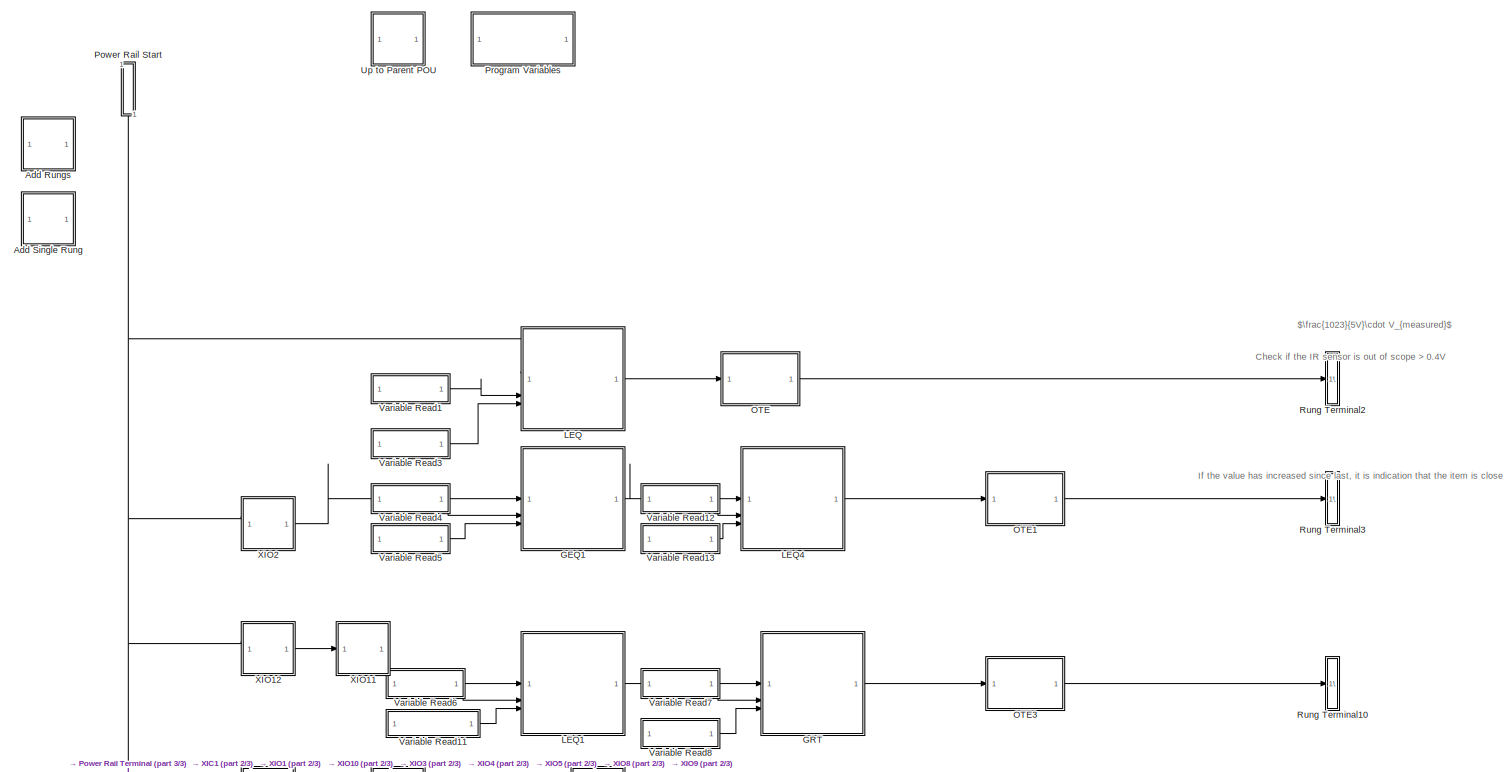
[diagram: PLC Controller Suite/__Logic/IR logic/IR sensor logic/__Logic - part 1/3, full width, top band]
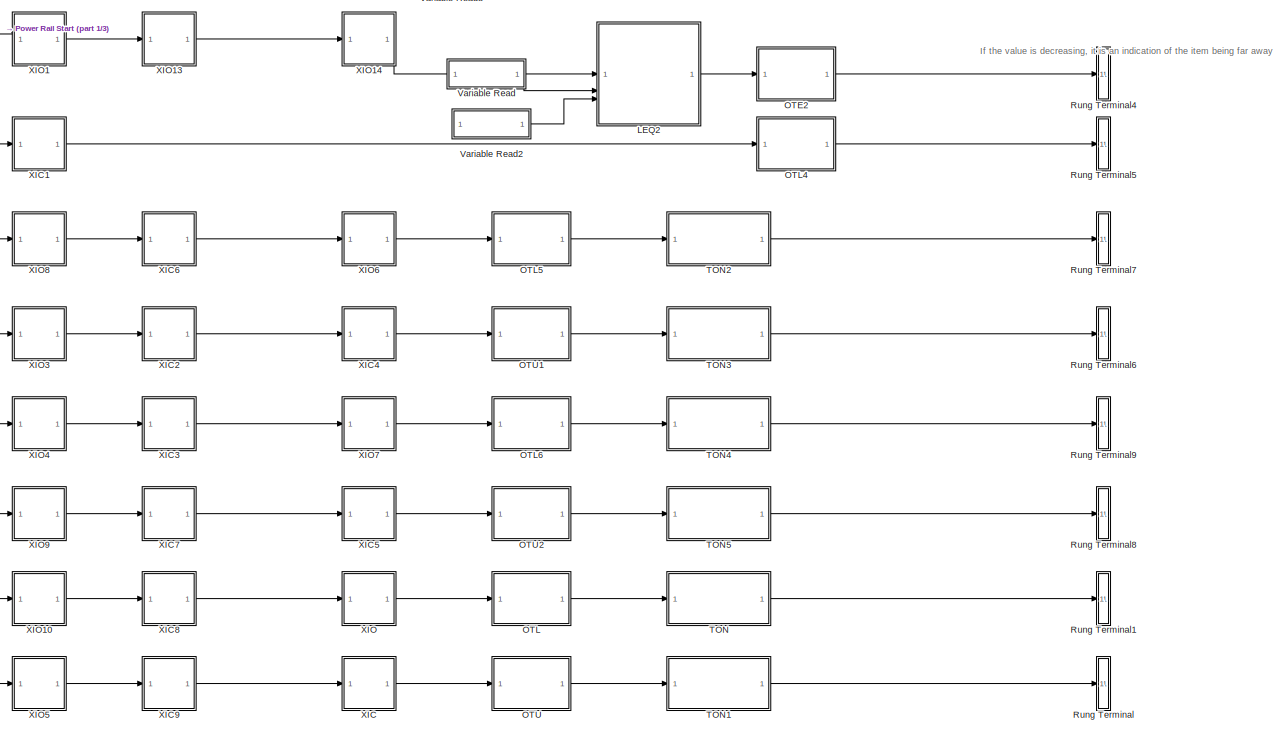
[diagram: PLC Controller Suite/__Logic/IR logic/IR sensor logic/__Logic - part 2/3, full width, bottom band]
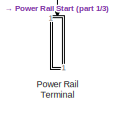
[diagram: PLC Controller Suite/__Logic/IR logic/IR sensor logic/__Logic - part 3/3, bottom left region]
BLOCK [SubSystem] PLC Controller Suite/__Logic/IR logic/IR sensor logic/__Logic
  Priority = 12
  TreatAsAtomicUnit = on
  UserDataPersistent = on
BLOCK [SubSystem] PLC Controller Suite/__Logic/IR logic/IR sensor logic/__Logic/Add Rungs
  DisableCoverage = on
  MaskHideContents = on
  TreatAsAtomicUnit = on
BLOCK [SubSystem] PLC Controller Suite/__Logic/IR logic/IR sensor logic/__Logic/Add Single Rung
  DisableCoverage = on
  MaskHideContents = on
  OpenFcn = slplc.callbacks.addLadderRungs(gcb);
  TreatAsAtomicUnit = on
BLOCK [SubSystem] PLC Controller Suite/__Logic/IR logic/IR sensor logic/__Logic/GEQ1
  MaskHideContents = on
  NameLocation = top
  Priority = 10
  TreatAsAtomicUnit = on
BLOCK [SubSystem] PLC Controller Suite/__Logic/IR logic/IR sensor logic/__Logic/GEQ1/BlockEnableRead
  DisableCoverage = on
  MaskHideContents = on
  ShowPortLabels = none
  TreatAsAtomicUnit = on
BLOCK [Outport] PLC Controller Suite/__Logic/IR logic/IR sensor logic/__Logic/GEQ1/BlockEnableRead/Out1
  VectorParamsAs1DForOutWhenUnconnected = off
BLOCK [SubSystem] PLC Controller Suite/__Logic/IR logic/IR sensor logic/__Logic/GEQ1/BlockEnableRead/__CoreLabelRead
  DisableCoverage = on
  MaskHideContents = on
  ShowPortLabels = none
  Tag = CoreVarReadBlock
  TreatAsAtomicUnit = on
BLOCK [DataStoreRead] PLC Controller Suite/__Logic/IR logic/IR sensor logic/__Logic/GEQ1/BlockEnableRead/__CoreLabelRead/DataRead
  DataStoreName = x_PLCLabel__s4_3653__Block_Enable
  IndexOptions = Index vector (dialog)
  Indices = 1
  OutputSizes = 1
BLOCK [Outport] PLC Controller Suite/__Logic/IR logic/IR sensor logic/__Logic/GEQ1/BlockEnableRead/__CoreLabelRead/Out1
  VectorParamsAs1DForOutWhenUnconnected = off
BLOCK [SubSystem] PLC Controller Suite/__Logic/IR logic/IR sensor logic/__Logic/GEQ1/Instruction_Enable
  TreatAsAtomicUnit = on
BLOCK [EnablePort] PLC Controller Suite/__Logic/IR logic/IR sensor logic/__Logic/GEQ1/Instruction_Enable/Enable
BLOCK [Logic] PLC Controller Suite/__Logic/IR logic/IR sensor logic/__Logic/GEQ1/Instruction_Enable/Logical Operator
  OutDataTypeStr = BOOL
BLOCK [RelationalOperator] PLC Controller Suite/__Logic/IR logic/IR sensor logic/__Logic/GEQ1/Instruction_Enable/Relational Operator
  InputSameDT = off
  OutDataTypeStr = BOOL
  RndMeth = Simplest
BLOCK [Inport] PLC Controller Suite/__Logic/IR logic/IR sensor logic/__Logic/GEQ1/Instruction_Enable/Rung-condition-in
BLOCK [Outport] PLC Controller Suite/__Logic/IR logic/IR sensor logic/__Logic/GEQ1/Instruction_Enable/Rung-condition-out
  PortDimensions = 1
  VectorParamsAs1DForOutWhenUnconnected = off
BLOCK [Inport] PLC Controller Suite/__Logic/IR logic/IR sensor logic/__Logic/GEQ1/Instruction_Enable/srcA
  Port = 2
  PortDimensions = 1
BLOCK [Inport] PLC Controller Suite/__Logic/IR logic/IR sensor logic/__Logic/GEQ1/Instruction_Enable/srcB
  Port = 3
  PortDimensions = 1
BLOCK [Inport] PLC Controller Suite/__Logic/IR logic/IR sensor logic/__Logic/GEQ1/RungIn
  OutDataTypeStr = BOOL
  PortDimensions = 1
BLOCK [SubSystem] PLC Controller Suite/__Logic/IR logic/IR sensor logic/__Logic/GEQ1/RungInOverride
  DisableCoverage = on
  MaskHideContents = on
  TreatAsAtomicUnit = on
BLOCK [Logic] PLC Controller Suite/__Logic/IR logic/IR sensor logic/__Logic/GEQ1/RungInOverride/AND
  AllPortsSameDT = off
  OutDataTypeStr = boolean
BLOCK [SubSystem] PLC Controller Suite/__Logic/IR logic/IR sensor logic/__Logic/GEQ1/RungInOverride/ForceRungInFalseRead
  DisableCoverage = on
  MaskHideContents = on
  ShowPortLabels = none
  TreatAsAtomicUnit = on
BLOCK [Outport] PLC Controller Suite/__Logic/IR logic/IR sensor logic/__Logic/GEQ1/RungInOverride/ForceRungInFalseRead/Out1
  VectorParamsAs1DForOutWhenUnconnected = off
BLOCK [SubSystem] PLC Controller Suite/__Logic/IR logic/IR sensor logic/__Logic/GEQ1/RungInOverride/ForceRungInFalseRead/__CoreLabelRead
  DisableCoverage = on
  MaskHideContents = on
  ShowPortLabels = none
  Tag = CoreVarReadBlock
  TreatAsAtomicUnit = on
BLOCK [DataStoreRead] PLC Controller Suite/__Logic/IR logic/IR sensor logic/__Logic/GEQ1/RungInOverride/ForceRungInFalseRead/__CoreLabelRead/DataRead
  DataStoreName = x_PLCLabel__s4_3653__Force_RungIn_False
  IndexOptions = Index vector (dialog)
  Indices = 1
  OutputSizes = 1
BLOCK [Outport] PLC Controller Suite/__Logic/IR logic/IR sensor logic/__Logic/GEQ1/RungInOverride/ForceRungInFalseRead/__CoreLabelRead/Out1
  VectorParamsAs1DForOutWhenUnconnected = off
BLOCK [Inport] PLC Controller Suite/__Logic/IR logic/IR sensor logic/__Logic/GEQ1/RungInOverride/In1
BLOCK [Logic] PLC Controller Suite/__Logic/IR logic/IR sensor logic/__Logic/GEQ1/RungInOverride/NOT
  AllPortsSameDT = off
  IconShape = distinctive
  Operator = NOT
  OutDataTypeStr = boolean
BLOCK [Outport] PLC Controller Suite/__Logic/IR logic/IR sensor logic/__Logic/GEQ1/RungInOverride/Out1
  VectorParamsAs1DForOutWhenUnconnected = off
BLOCK [Outport] PLC Controller Suite/__Logic/IR logic/IR sensor logic/__Logic/GEQ1/RungOut
  OutDataTypeStr = BOOL
  PortDimensions = 1
  VectorParamsAs1DForOutWhenUnconnected = off
BLOCK [SubSystem] PLC Controller Suite/__Logic/IR logic/IR sensor logic/__Logic/GEQ1/__Format
  DisableCoverage = on
  ErrorFcn = Stateflow.Translate.translate
  InitFcn = slplc.utils.setBlockAppearance('reset');
  MaskHideContents = on
  PermitHierarchicalResolution = ExplicitOnly
  Priority = 20
  SFBlockType = MATLAB Function
  StopFcn = slplc.utils.setBlockAppearance('reset');
  Tag = PLC_Format_FC
  TreatAsAtomicUnit = on
BLOCK [Demux] PLC Controller Suite/__Logic/IR logic/IR sensor logic/__Logic/GEQ1/__Format/ Demux 
  Outputs = 1
BLOCK [S-Function] PLC Controller Suite/__Logic/IR logic/IR sensor logic/__Logic/GEQ1/__Format/ SFunction 
  EnableBusSupport = on
  FunctionName = sf_sfun
  PortCounts = [3 1]
  SFcnIsStateOwnerBlock = off
  SFunctionDeploymentMode = off
  Tag = Stateflow S-Function 81
BLOCK [Terminator] PLC Controller Suite/__Logic/IR logic/IR sensor logic/__Logic/GEQ1/__Format/ Terminator 
BLOCK [Inport] PLC Controller Suite/__Logic/IR logic/IR sensor logic/__Logic/GEQ1/__Format/BlockEnable
BLOCK [Inport] PLC Controller Suite/__Logic/IR logic/IR sensor logic/__Logic/GEQ1/__Format/RungIn
  Port = 2
BLOCK [Inport] PLC Controller Suite/__Logic/IR logic/IR sensor logic/__Logic/GEQ1/__Format/RungOut
  Port = 3
BLOCK [Inport] PLC Controller Suite/__Logic/IR logic/IR sensor logic/__Logic/GEQ1/srcA
  Port = 2
  PortDimensions = 1
BLOCK [Inport] PLC Controller Suite/__Logic/IR logic/IR sensor logic/__Logic/GEQ1/srcB
  Port = 3
  PortDimensions = 1
BLOCK [SubSystem] PLC Controller Suite/__Logic/IR logic/IR sensor logic/__Logic/GRT
  MaskHideContents = on
  NameLocation = top
  Priority = 23
  TreatAsAtomicUnit = on
BLOCK [SubSystem] PLC Controller Suite/__Logic/IR logic/IR sensor logic/__Logic/GRT/BlockEnableRead
  DisableCoverage = on
  MaskHideContents = on
  ShowPortLabels = none
  TreatAsAtomicUnit = on
BLOCK [Outport] PLC Controller Suite/__Logic/IR logic/IR sensor logic/__Logic/GRT/BlockEnableRead/Out1
  VectorParamsAs1DForOutWhenUnconnected = off
BLOCK [SubSystem] PLC Controller Suite/__Logic/IR logic/IR sensor logic/__Logic/GRT/BlockEnableRead/__CoreLabelRead
  DisableCoverage = on
  MaskHideContents = on
  ShowPortLabels = none
  Tag = CoreVarReadBlock
  TreatAsAtomicUnit = on
BLOCK [DataStoreRead] PLC Controller Suite/__Logic/IR logic/IR sensor logic/__Logic/GRT/BlockEnableRead/__CoreLabelRead/DataRead
  DataStoreName = x_PLCLabel__s4_3653__Block_Enable
  IndexOptions = Index vector (dialog)
  Indices = 1
  OutputSizes = 1
BLOCK [Outport] PLC Controller Suite/__Logic/IR logic/IR sensor logic/__Logic/GRT/BlockEnableRead/__CoreLabelRead/Out1
  VectorParamsAs1DForOutWhenUnconnected = off
BLOCK [SubSystem] PLC Controller Suite/__Logic/IR logic/IR sensor logic/__Logic/GRT/Instruction_Enable
  TreatAsAtomicUnit = on
BLOCK [EnablePort] PLC Controller Suite/__Logic/IR logic/IR sensor logic/__Logic/GRT/Instruction_Enable/Enable
BLOCK [Logic] PLC Controller Suite/__Logic/IR logic/IR sensor logic/__Logic/GRT/Instruction_Enable/Logical Operator
  OutDataTypeStr = BOOL
BLOCK [RelationalOperator] PLC Controller Suite/__Logic/IR logic/IR sensor logic/__Logic/GRT/Instruction_Enable/Relational Operator
  InputSameDT = off
  Operator = >
  OutDataTypeStr = BOOL
  RndMeth = Simplest
BLOCK [Inport] PLC Controller Suite/__Logic/IR logic/IR sensor logic/__Logic/GRT/Instruction_Enable/Rung-condition-in
BLOCK [Outport] PLC Controller Suite/__Logic/IR logic/IR sensor logic/__Logic/GRT/Instruction_Enable/Rung-condition-out
  PortDimensions = 1
  VectorParamsAs1DForOutWhenUnconnected = off
BLOCK [Inport] PLC Controller Suite/__Logic/IR logic/IR sensor logic/__Logic/GRT/Instruction_Enable/srcA
  Port = 2
  PortDimensions = 1
BLOCK [Inport] PLC Controller Suite/__Logic/IR logic/IR sensor logic/__Logic/GRT/Instruction_Enable/srcB
  Port = 3
  PortDimensions = 1
BLOCK [Inport] PLC Controller Suite/__Logic/IR logic/IR sensor logic/__Logic/GRT/RungIn
  OutDataTypeStr = BOOL
  PortDimensions = 1
BLOCK [SubSystem] PLC Controller Suite/__Logic/IR logic/IR sensor logic/__Logic/GRT/RungInOverride
  DisableCoverage = on
  MaskHideContents = on
  TreatAsAtomicUnit = on
BLOCK [Logic] PLC Controller Suite/__Logic/IR logic/IR sensor logic/__Logic/GRT/RungInOverride/AND
  AllPortsSameDT = off
  OutDataTypeStr = boolean
BLOCK [SubSystem] PLC Controller Suite/__Logic/IR logic/IR sensor logic/__Logic/GRT/RungInOverride/ForceRungInFalseRead
  DisableCoverage = on
  MaskHideContents = on
  ShowPortLabels = none
  TreatAsAtomicUnit = on
BLOCK [Outport] PLC Controller Suite/__Logic/IR logic/IR sensor logic/__Logic/GRT/RungInOverride/ForceRungInFalseRead/Out1
  VectorParamsAs1DForOutWhenUnconnected = off
BLOCK [SubSystem] PLC Controller Suite/__Logic/IR logic/IR sensor logic/__Logic/GRT/RungInOverride/ForceRungInFalseRead/__CoreLabelRead
  DisableCoverage = on
  MaskHideContents = on
  ShowPortLabels = none
  Tag = CoreVarReadBlock
  TreatAsAtomicUnit = on
BLOCK [DataStoreRead] PLC Controller Suite/__Logic/IR logic/IR sensor logic/__Logic/GRT/RungInOverride/ForceRungInFalseRead/__CoreLabelRead/DataRead
  DataStoreName = x_PLCLabel__s4_3653__Force_RungIn_False
  IndexOptions = Index vector (dialog)
  Indices = 1
  OutputSizes = 1
BLOCK [Outport] PLC Controller Suite/__Logic/IR logic/IR sensor logic/__Logic/GRT/RungInOverride/ForceRungInFalseRead/__CoreLabelRead/Out1
  VectorParamsAs1DForOutWhenUnconnected = off
BLOCK [Inport] PLC Controller Suite/__Logic/IR logic/IR sensor logic/__Logic/GRT/RungInOverride/In1
BLOCK [Logic] PLC Controller Suite/__Logic/IR logic/IR sensor logic/__Logic/GRT/RungInOverride/NOT
  AllPortsSameDT = off
  IconShape = distinctive
  Operator = NOT
  OutDataTypeStr = boolean
BLOCK [Outport] PLC Controller Suite/__Logic/IR logic/IR sensor logic/__Logic/GRT/RungInOverride/Out1
  VectorParamsAs1DForOutWhenUnconnected = off
BLOCK [Outport] PLC Controller Suite/__Logic/IR logic/IR sensor logic/__Logic/GRT/RungOut
  OutDataTypeStr = BOOL
  PortDimensions = 1
  VectorParamsAs1DForOutWhenUnconnected = off
BLOCK [SubSystem] PLC Controller Suite/__Logic/IR logic/IR sensor logic/__Logic/GRT/__Format
  DisableCoverage = on
  ErrorFcn = Stateflow.Translate.translate
  InitFcn = slplc.utils.setBlockAppearance('reset');
  MaskHideContents = on
  PermitHierarchicalResolution = ExplicitOnly
  Priority = 20
  SFBlockType = MATLAB Function
  StopFcn = slplc.utils.setBlockAppearance('reset');
  Tag = PLC_Format_FC
  TreatAsAtomicUnit = on
BLOCK [Demux] PLC Controller Suite/__Logic/IR logic/IR sensor logic/__Logic/GRT/__Format/ Demux 
  Outputs = 1
BLOCK [S-Function] PLC Controller Suite/__Logic/IR logic/IR sensor logic/__Logic/GRT/__Format/ SFunction 
  EnableBusSupport = on
  FunctionName = sf_sfun
  PortCounts = [3 1]
  SFcnIsStateOwnerBlock = off
  SFunctionDeploymentMode = off
  Tag = Stateflow S-Function 132
BLOCK [Terminator] PLC Controller Suite/__Logic/IR logic/IR sensor logic/__Logic/GRT/__Format/ Terminator 
BLOCK [Inport] PLC Controller Suite/__Logic/IR logic/IR sensor logic/__Logic/GRT/__Format/BlockEnable
BLOCK [Inport] PLC Controller Suite/__Logic/IR logic/IR sensor logic/__Logic/GRT/__Format/RungIn
  Port = 2
BLOCK [Inport] PLC Controller Suite/__Logic/IR logic/IR sensor logic/__Logic/GRT/__Format/RungOut
  Port = 3
BLOCK [Inport] PLC Controller Suite/__Logic/IR logic/IR sensor logic/__Logic/GRT/srcA
  Port = 2
  PortDimensions = 1
BLOCK [Inport] PLC Controller Suite/__Logic/IR logic/IR sensor logic/__Logic/GRT/srcB
  Port = 3
  PortDimensions = 1
BLOCK [SubSystem] PLC Controller Suite/__Logic/IR logic/IR sensor logic/__Logic/LEQ
  MaskHideContents = on
  NameLocation = top
  Priority = 4
  TreatAsAtomicUnit = on
BLOCK [SubSystem] PLC Controller Suite/__Logic/IR logic/IR sensor logic/__Logic/LEQ/BlockEnableRead
  DisableCoverage = on
  MaskHideContents = on
  ShowPortLabels = none
  TreatAsAtomicUnit = on
BLOCK [Outport] PLC Controller Suite/__Logic/IR logic/IR sensor logic/__Logic/LEQ/BlockEnableRead/Out1
  VectorParamsAs1DForOutWhenUnconnected = off
BLOCK [SubSystem] PLC Controller Suite/__Logic/IR logic/IR sensor logic/__Logic/LEQ/BlockEnableRead/__CoreLabelRead
  DisableCoverage = on
  MaskHideContents = on
  ShowPortLabels = none
  Tag = CoreVarReadBlock
  TreatAsAtomicUnit = on
BLOCK [DataStoreRead] PLC Controller Suite/__Logic/IR logic/IR sensor logic/__Logic/LEQ/BlockEnableRead/__CoreLabelRead/DataRead
  DataStoreName = x_PLCLabel__s4_3653__Block_Enable
  IndexOptions = Index vector (dialog)
  Indices = 1
  OutputSizes = 1
BLOCK [Outport] PLC Controller Suite/__Logic/IR logic/IR sensor logic/__Logic/LEQ/BlockEnableRead/__CoreLabelRead/Out1
  VectorParamsAs1DForOutWhenUnconnected = off
BLOCK [SubSystem] PLC Controller Suite/__Logic/IR logic/IR sensor logic/__Logic/LEQ/Instruction_Enable
  TreatAsAtomicUnit = on
BLOCK [EnablePort] PLC Controller Suite/__Logic/IR logic/IR sensor logic/__Logic/LEQ/Instruction_Enable/Enable
BLOCK [Logic] PLC Controller Suite/__Logic/IR logic/IR sensor logic/__Logic/LEQ/Instruction_Enable/Logical Operator
  OutDataTypeStr = BOOL
BLOCK [RelationalOperator] PLC Controller Suite/__Logic/IR logic/IR sensor logic/__Logic/LEQ/Instruction_Enable/Relational Operator
  InputSameDT = off
  Operator = <=
  OutDataTypeStr = BOOL
  RndMeth = Simplest
BLOCK [Inport] PLC Controller Suite/__Logic/IR logic/IR sensor logic/__Logic/LEQ/Instruction_Enable/Rung-condition-in
BLOCK [Outport] PLC Controller Suite/__Logic/IR logic/IR sensor logic/__Logic/LEQ/Instruction_Enable/Rung-condition-out
  PortDimensions = 1
  VectorParamsAs1DForOutWhenUnconnected = off
BLOCK [Inport] PLC Controller Suite/__Logic/IR logic/IR sensor logic/__Logic/LEQ/Instruction_Enable/srcA
  Port = 2
  PortDimensions = 1
BLOCK [Inport] PLC Controller Suite/__Logic/IR logic/IR sensor logic/__Logic/LEQ/Instruction_Enable/srcB
  Port = 3
  PortDimensions = 1
BLOCK [Inport] PLC Controller Suite/__Logic/IR logic/IR sensor logic/__Logic/LEQ/RungIn
  OutDataTypeStr = BOOL
  PortDimensions = 1
BLOCK [SubSystem] PLC Controller Suite/__Logic/IR logic/IR sensor logic/__Logic/LEQ/RungInOverride
  DisableCoverage = on
  MaskHideContents = on
  TreatAsAtomicUnit = on
BLOCK [Logic] PLC Controller Suite/__Logic/IR logic/IR sensor logic/__Logic/LEQ/RungInOverride/AND
  AllPortsSameDT = off
  OutDataTypeStr = boolean
BLOCK [SubSystem] PLC Controller Suite/__Logic/IR logic/IR sensor logic/__Logic/LEQ/RungInOverride/ForceRungInFalseRead
  DisableCoverage = on
  MaskHideContents = on
  ShowPortLabels = none
  TreatAsAtomicUnit = on
BLOCK [Outport] PLC Controller Suite/__Logic/IR logic/IR sensor logic/__Logic/LEQ/RungInOverride/ForceRungInFalseRead/Out1
  VectorParamsAs1DForOutWhenUnconnected = off
BLOCK [SubSystem] PLC Controller Suite/__Logic/IR logic/IR sensor logic/__Logic/LEQ/RungInOverride/ForceRungInFalseRead/__CoreLabelRead
  DisableCoverage = on
  MaskHideContents = on
  ShowPortLabels = none
  Tag = CoreVarReadBlock
  TreatAsAtomicUnit = on
BLOCK [DataStoreRead] PLC Controller Suite/__Logic/IR logic/IR sensor logic/__Logic/LEQ/RungInOverride/ForceRungInFalseRead/__CoreLabelRead/DataRead
  DataStoreName = x_PLCLabel__s4_3653__Force_RungIn_False
  IndexOptions = Index vector (dialog)
  Indices = 1
  OutputSizes = 1
BLOCK [Outport] PLC Controller Suite/__Logic/IR logic/IR sensor logic/__Logic/LEQ/RungInOverride/ForceRungInFalseRead/__CoreLabelRead/Out1
  VectorParamsAs1DForOutWhenUnconnected = off
BLOCK [Inport] PLC Controller Suite/__Logic/IR logic/IR sensor logic/__Logic/LEQ/RungInOverride/In1
BLOCK [Logic] PLC Controller Suite/__Logic/IR logic/IR sensor logic/__Logic/LEQ/RungInOverride/NOT
  AllPortsSameDT = off
  IconShape = distinctive
  Operator = NOT
  OutDataTypeStr = boolean
BLOCK [Outport] PLC Controller Suite/__Logic/IR logic/IR sensor logic/__Logic/LEQ/RungInOverride/Out1
  VectorParamsAs1DForOutWhenUnconnected = off
BLOCK [Outport] PLC Controller Suite/__Logic/IR logic/IR sensor logic/__Logic/LEQ/RungOut
  OutDataTypeStr = BOOL
  PortDimensions = 1
  VectorParamsAs1DForOutWhenUnconnected = off
BLOCK [SubSystem] PLC Controller Suite/__Logic/IR logic/IR sensor logic/__Logic/LEQ/__Format
  DisableCoverage = on
  ErrorFcn = Stateflow.Translate.translate
  InitFcn = slplc.utils.setBlockAppearance('reset');
  MaskHideContents = on
  PermitHierarchicalResolution = ExplicitOnly
  Priority = 20
  SFBlockType = MATLAB Function
  StopFcn = slplc.utils.setBlockAppearance('reset');
  Tag = PLC_Format_FC
  TreatAsAtomicUnit = on
BLOCK [Demux] PLC Controller Suite/__Logic/IR logic/IR sensor logic/__Logic/LEQ/__Format/ Demux 
  Outputs = 1
BLOCK [S-Function] PLC Controller Suite/__Logic/IR logic/IR sensor logic/__Logic/LEQ/__Format/ SFunction 
  EnableBusSupport = on
  FunctionName = sf_sfun
  PortCounts = [3 1]
  SFcnIsStateOwnerBlock = off
  SFunctionDeploymentMode = off
  Tag = Stateflow S-Function 73
BLOCK [Terminator] PLC Controller Suite/__Logic/IR logic/IR sensor logic/__Logic/LEQ/__Format/ Terminator 
BLOCK [Inport] PLC Controller Suite/__Logic/IR logic/IR sensor logic/__Logic/LEQ/__Format/BlockEnable
BLOCK [Inport] PLC Controller Suite/__Logic/IR logic/IR sensor logic/__Logic/LEQ/__Format/RungIn
  Port = 2
BLOCK [Inport] PLC Controller Suite/__Logic/IR logic/IR sensor logic/__Logic/LEQ/__Format/RungOut
  Port = 3
BLOCK [Inport] PLC Controller Suite/__Logic/IR logic/IR sensor logic/__Logic/LEQ/srcA
  Port = 2
  PortDimensions = 1
BLOCK [Inport] PLC Controller Suite/__Logic/IR logic/IR sensor logic/__Logic/LEQ/srcB
  Port = 3
  PortDimensions = 1
BLOCK [SubSystem] PLC Controller Suite/__Logic/IR logic/IR sensor logic/__Logic/LEQ1
  MaskHideContents = on
  NameLocation = top
  Priority = 20
  TreatAsAtomicUnit = on
BLOCK [SubSystem] PLC Controller Suite/__Logic/IR logic/IR sensor logic/__Logic/LEQ1/BlockEnableRead
  DisableCoverage = on
  MaskHideContents = on
  ShowPortLabels = none
  TreatAsAtomicUnit = on
BLOCK [Outport] PLC Controller Suite/__Logic/IR logic/IR sensor logic/__Logic/LEQ1/BlockEnableRead/Out1
  VectorParamsAs1DForOutWhenUnconnected = off
BLOCK [SubSystem] PLC Controller Suite/__Logic/IR logic/IR sensor logic/__Logic/LEQ1/BlockEnableRead/__CoreLabelRead
  DisableCoverage = on
  MaskHideContents = on
  ShowPortLabels = none
  Tag = CoreVarReadBlock
  TreatAsAtomicUnit = on
BLOCK [DataStoreRead] PLC Controller Suite/__Logic/IR logic/IR sensor logic/__Logic/LEQ1/BlockEnableRead/__CoreLabelRead/DataRead
  DataStoreName = x_PLCLabel__s4_3653__Block_Enable
  IndexOptions = Index vector (dialog)
  Indices = 1
  OutputSizes = 1
BLOCK [Outport] PLC Controller Suite/__Logic/IR logic/IR sensor logic/__Logic/LEQ1/BlockEnableRead/__CoreLabelRead/Out1
  VectorParamsAs1DForOutWhenUnconnected = off
BLOCK [SubSystem] PLC Controller Suite/__Logic/IR logic/IR sensor logic/__Logic/LEQ1/Instruction_Enable
  TreatAsAtomicUnit = on
BLOCK [EnablePort] PLC Controller Suite/__Logic/IR logic/IR sensor logic/__Logic/LEQ1/Instruction_Enable/Enable
BLOCK [Logic] PLC Controller Suite/__Logic/IR logic/IR sensor logic/__Logic/LEQ1/Instruction_Enable/Logical Operator
  OutDataTypeStr = BOOL
BLOCK [RelationalOperator] PLC Controller Suite/__Logic/IR logic/IR sensor logic/__Logic/LEQ1/Instruction_Enable/Relational Operator
  InputSameDT = off
  Operator = <=
  OutDataTypeStr = BOOL
  RndMeth = Simplest
BLOCK [Inport] PLC Controller Suite/__Logic/IR logic/IR sensor logic/__Logic/LEQ1/Instruction_Enable/Rung-condition-in
BLOCK [Outport] PLC Controller Suite/__Logic/IR logic/IR sensor logic/__Logic/LEQ1/Instruction_Enable/Rung-condition-out
  PortDimensions = 1
  VectorParamsAs1DForOutWhenUnconnected = off
BLOCK [Inport] PLC Controller Suite/__Logic/IR logic/IR sensor logic/__Logic/LEQ1/Instruction_Enable/srcA
  Port = 2
  PortDimensions = 1
BLOCK [Inport] PLC Controller Suite/__Logic/IR logic/IR sensor logic/__Logic/LEQ1/Instruction_Enable/srcB
  Port = 3
  PortDimensions = 1
BLOCK [Inport] PLC Controller Suite/__Logic/IR logic/IR sensor logic/__Logic/LEQ1/RungIn
  OutDataTypeStr = BOOL
  PortDimensions = 1
BLOCK [SubSystem] PLC Controller Suite/__Logic/IR logic/IR sensor logic/__Logic/LEQ1/RungInOverride
  DisableCoverage = on
  MaskHideContents = on
  TreatAsAtomicUnit = on
BLOCK [Logic] PLC Controller Suite/__Logic/IR logic/IR sensor logic/__Logic/LEQ1/RungInOverride/AND
  AllPortsSameDT = off
  OutDataTypeStr = boolean
BLOCK [SubSystem] PLC Controller Suite/__Logic/IR logic/IR sensor logic/__Logic/LEQ1/RungInOverride/ForceRungInFalseRead
  DisableCoverage = on
  MaskHideContents = on
  ShowPortLabels = none
  TreatAsAtomicUnit = on
BLOCK [Outport] PLC Controller Suite/__Logic/IR logic/IR sensor logic/__Logic/LEQ1/RungInOverride/ForceRungInFalseRead/Out1
  VectorParamsAs1DForOutWhenUnconnected = off
BLOCK [SubSystem] PLC Controller Suite/__Logic/IR logic/IR sensor logic/__Logic/LEQ1/RungInOverride/ForceRungInFalseRead/__CoreLabelRead
  DisableCoverage = on
  MaskHideContents = on
  ShowPortLabels = none
  Tag = CoreVarReadBlock
  TreatAsAtomicUnit = on
BLOCK [DataStoreRead] PLC Controller Suite/__Logic/IR logic/IR sensor logic/__Logic/LEQ1/RungInOverride/ForceRungInFalseRead/__CoreLabelRead/DataRead
  DataStoreName = x_PLCLabel__s4_3653__Force_RungIn_False
  IndexOptions = Index vector (dialog)
  Indices = 1
  OutputSizes = 1
BLOCK [Outport] PLC Controller Suite/__Logic/IR logic/IR sensor logic/__Logic/LEQ1/RungInOverride/ForceRungInFalseRead/__CoreLabelRead/Out1
  VectorParamsAs1DForOutWhenUnconnected = off
BLOCK [Inport] PLC Controller Suite/__Logic/IR logic/IR sensor logic/__Logic/LEQ1/RungInOverride/In1
BLOCK [Logic] PLC Controller Suite/__Logic/IR logic/IR sensor logic/__Logic/LEQ1/RungInOverride/NOT
  AllPortsSameDT = off
  IconShape = distinctive
  Operator = NOT
  OutDataTypeStr = boolean
BLOCK [Outport] PLC Controller Suite/__Logic/IR logic/IR sensor logic/__Logic/LEQ1/RungInOverride/Out1
  VectorParamsAs1DForOutWhenUnconnected = off
BLOCK [Outport] PLC Controller Suite/__Logic/IR logic/IR sensor logic/__Logic/LEQ1/RungOut
  OutDataTypeStr = BOOL
  PortDimensions = 1
  VectorParamsAs1DForOutWhenUnconnected = off
BLOCK [SubSystem] PLC Controller Suite/__Logic/IR logic/IR sensor logic/__Logic/LEQ1/__Format
  DisableCoverage = on
  ErrorFcn = Stateflow.Translate.translate
  InitFcn = slplc.utils.setBlockAppearance('reset');
  MaskHideContents = on
  PermitHierarchicalResolution = ExplicitOnly
  Priority = 20
  SFBlockType = MATLAB Function
  StopFcn = slplc.utils.setBlockAppearance('reset');
  Tag = PLC_Format_FC
  TreatAsAtomicUnit = on
BLOCK [Demux] PLC Controller Suite/__Logic/IR logic/IR sensor logic/__Logic/LEQ1/__Format/ Demux 
  Outputs = 1
BLOCK [S-Function] PLC Controller Suite/__Logic/IR logic/IR sensor logic/__Logic/LEQ1/__Format/ SFunction 
  EnableBusSupport = on
  FunctionName = sf_sfun
  PortCounts = [3 1]
  SFcnIsStateOwnerBlock = off
  SFunctionDeploymentMode = off
  Tag = Stateflow S-Function 128
BLOCK [Terminator] PLC Controller Suite/__Logic/IR logic/IR sensor logic/__Logic/LEQ1/__Format/ Terminator 
BLOCK [Inport] PLC Controller Suite/__Logic/IR logic/IR sensor logic/__Logic/LEQ1/__Format/BlockEnable
BLOCK [Inport] PLC Controller Suite/__Logic/IR logic/IR sensor logic/__Logic/LEQ1/__Format/RungIn
  Port = 2
BLOCK [Inport] PLC Controller Suite/__Logic/IR logic/IR sensor logic/__Logic/LEQ1/__Format/RungOut
  Port = 3
BLOCK [Inport] PLC Controller Suite/__Logic/IR logic/IR sensor logic/__Logic/LEQ1/srcA
  Port = 2
  PortDimensions = 1
BLOCK [Inport] PLC Controller Suite/__Logic/IR logic/IR sensor logic/__Logic/LEQ1/srcB
  Port = 3
  PortDimensions = 1
BLOCK [SubSystem] PLC Controller Suite/__Logic/IR logic/IR sensor logic/__Logic/LEQ2
  MaskHideContents = on
  NameLocation = top
  Priority = 31
  TreatAsAtomicUnit = on
BLOCK [SubSystem] PLC Controller Suite/__Logic/IR logic/IR sensor logic/__Logic/LEQ2/BlockEnableRead
  DisableCoverage = on
  MaskHideContents = on
  ShowPortLabels = none
  TreatAsAtomicUnit = on
BLOCK [Outport] PLC Controller Suite/__Logic/IR logic/IR sensor logic/__Logic/LEQ2/BlockEnableRead/Out1
  VectorParamsAs1DForOutWhenUnconnected = off
BLOCK [SubSystem] PLC Controller Suite/__Logic/IR logic/IR sensor logic/__Logic/LEQ2/BlockEnableRead/__CoreLabelRead
  DisableCoverage = on
  MaskHideContents = on
  ShowPortLabels = none
  Tag = CoreVarReadBlock
  TreatAsAtomicUnit = on
BLOCK [DataStoreRead] PLC Controller Suite/__Logic/IR logic/IR sensor logic/__Logic/LEQ2/BlockEnableRead/__CoreLabelRead/DataRead
  DataStoreName = x_PLCLabel__s4_3653__Block_Enable
  IndexOptions = Index vector (dialog)
  Indices = 1
  OutputSizes = 1
BLOCK [Outport] PLC Controller Suite/__Logic/IR logic/IR sensor logic/__Logic/LEQ2/BlockEnableRead/__CoreLabelRead/Out1
  VectorParamsAs1DForOutWhenUnconnected = off
BLOCK [SubSystem] PLC Controller Suite/__Logic/IR logic/IR sensor logic/__Logic/LEQ2/Instruction_Enable
  TreatAsAtomicUnit = on
BLOCK [EnablePort] PLC Controller Suite/__Logic/IR logic/IR sensor logic/__Logic/LEQ2/Instruction_Enable/Enable
BLOCK [Logic] PLC Controller Suite/__Logic/IR logic/IR sensor logic/__Logic/LEQ2/Instruction_Enable/Logical Operator
  OutDataTypeStr = BOOL
BLOCK [RelationalOperator] PLC Controller Suite/__Logic/IR logic/IR sensor logic/__Logic/LEQ2/Instruction_Enable/Relational Operator
  InputSameDT = off
  Operator = <=
  OutDataTypeStr = BOOL
  RndMeth = Simplest
BLOCK [Inport] PLC Controller Suite/__Logic/IR logic/IR sensor logic/__Logic/LEQ2/Instruction_Enable/Rung-condition-in
BLOCK [Outport] PLC Controller Suite/__Logic/IR logic/IR sensor logic/__Logic/LEQ2/Instruction_Enable/Rung-condition-out
  PortDimensions = 1
  VectorParamsAs1DForOutWhenUnconnected = off
BLOCK [Inport] PLC Controller Suite/__Logic/IR logic/IR sensor logic/__Logic/LEQ2/Instruction_Enable/srcA
  Port = 2
  PortDimensions = 1
BLOCK [Inport] PLC Controller Suite/__Logic/IR logic/IR sensor logic/__Logic/LEQ2/Instruction_Enable/srcB
  Port = 3
  PortDimensions = 1
BLOCK [Inport] PLC Controller Suite/__Logic/IR logic/IR sensor logic/__Logic/LEQ2/RungIn
  OutDataTypeStr = BOOL
  PortDimensions = 1
BLOCK [SubSystem] PLC Controller Suite/__Logic/IR logic/IR sensor logic/__Logic/LEQ2/RungInOverride
  DisableCoverage = on
  MaskHideContents = on
  TreatAsAtomicUnit = on
BLOCK [Logic] PLC Controller Suite/__Logic/IR logic/IR sensor logic/__Logic/LEQ2/RungInOverride/AND
  AllPortsSameDT = off
  OutDataTypeStr = boolean
BLOCK [SubSystem] PLC Controller Suite/__Logic/IR logic/IR sensor logic/__Logic/LEQ2/RungInOverride/ForceRungInFalseRead
  DisableCoverage = on
  MaskHideContents = on
  ShowPortLabels = none
  TreatAsAtomicUnit = on
BLOCK [Outport] PLC Controller Suite/__Logic/IR logic/IR sensor logic/__Logic/LEQ2/RungInOverride/ForceRungInFalseRead/Out1
  VectorParamsAs1DForOutWhenUnconnected = off
BLOCK [SubSystem] PLC Controller Suite/__Logic/IR logic/IR sensor logic/__Logic/LEQ2/RungInOverride/ForceRungInFalseRead/__CoreLabelRead
  DisableCoverage = on
  MaskHideContents = on
  ShowPortLabels = none
  Tag = CoreVarReadBlock
  TreatAsAtomicUnit = on
BLOCK [DataStoreRead] PLC Controller Suite/__Logic/IR logic/IR sensor logic/__Logic/LEQ2/RungInOverride/ForceRungInFalseRead/__CoreLabelRead/DataRead
  DataStoreName = x_PLCLabel__s4_3653__Force_RungIn_False
  IndexOptions = Index vector (dialog)
  Indices = 1
  OutputSizes = 1
BLOCK [Outport] PLC Controller Suite/__Logic/IR logic/IR sensor logic/__Logic/LEQ2/RungInOverride/ForceRungInFalseRead/__CoreLabelRead/Out1
  VectorParamsAs1DForOutWhenUnconnected = off
BLOCK [Inport] PLC Controller Suite/__Logic/IR logic/IR sensor logic/__Logic/LEQ2/RungInOverride/In1
BLOCK [Logic] PLC Controller Suite/__Logic/IR logic/IR sensor logic/__Logic/LEQ2/RungInOverride/NOT
  AllPortsSameDT = off
  IconShape = distinctive
  Operator = NOT
  OutDataTypeStr = boolean
BLOCK [Outport] PLC Controller Suite/__Logic/IR logic/IR sensor logic/__Logic/LEQ2/RungInOverride/Out1
  VectorParamsAs1DForOutWhenUnconnected = off
BLOCK [Outport] PLC Controller Suite/__Logic/IR logic/IR sensor logic/__Logic/LEQ2/RungOut
  OutDataTypeStr = BOOL
  PortDimensions = 1
  VectorParamsAs1DForOutWhenUnconnected = off
BLOCK [SubSystem] PLC Controller Suite/__Logic/IR logic/IR sensor logic/__Logic/LEQ2/__Format
  DisableCoverage = on
  ErrorFcn = Stateflow.Translate.translate
  InitFcn = slplc.utils.setBlockAppearance('reset');
  MaskHideContents = on
  PermitHierarchicalResolution = ExplicitOnly
  Priority = 20
  SFBlockType = MATLAB Function
  StopFcn = slplc.utils.setBlockAppearance('reset');
  Tag = PLC_Format_FC
  TreatAsAtomicUnit = on
BLOCK [Demux] PLC Controller Suite/__Logic/IR logic/IR sensor logic/__Logic/LEQ2/__Format/ Demux 
  Outputs = 1
BLOCK [S-Function] PLC Controller Suite/__Logic/IR logic/IR sensor logic/__Logic/LEQ2/__Format/ SFunction 
  EnableBusSupport = on
  FunctionName = sf_sfun
  PortCounts = [3 1]
  SFcnIsStateOwnerBlock = off
  SFunctionDeploymentMode = off
  Tag = Stateflow S-Function 72
BLOCK [Terminator] PLC Controller Suite/__Logic/IR logic/IR sensor logic/__Logic/LEQ2/__Format/ Terminator 
BLOCK [Inport] PLC Controller Suite/__Logic/IR logic/IR sensor logic/__Logic/LEQ2/__Format/BlockEnable
BLOCK [Inport] PLC Controller Suite/__Logic/IR logic/IR sensor logic/__Logic/LEQ2/__Format/RungIn
  Port = 2
BLOCK [Inport] PLC Controller Suite/__Logic/IR logic/IR sensor logic/__Logic/LEQ2/__Format/RungOut
  Port = 3
BLOCK [Inport] PLC Controller Suite/__Logic/IR logic/IR sensor logic/__Logic/LEQ2/srcA
  Port = 2
  PortDimensions = 1
BLOCK [Inport] PLC Controller Suite/__Logic/IR logic/IR sensor logic/__Logic/LEQ2/srcB
  Port = 3
  PortDimensions = 1
BLOCK [SubSystem] PLC Controller Suite/__Logic/IR logic/IR sensor logic/__Logic/LEQ4
  MaskHideContents = on
  NameLocation = top
  Priority = 13
  TreatAsAtomicUnit = on
BLOCK [SubSystem] PLC Controller Suite/__Logic/IR logic/IR sensor logic/__Logic/LEQ4/BlockEnableRead
  DisableCoverage = on
  MaskHideContents = on
  ShowPortLabels = none
  TreatAsAtomicUnit = on
BLOCK [Outport] PLC Controller Suite/__Logic/IR logic/IR sensor logic/__Logic/LEQ4/BlockEnableRead/Out1
  VectorParamsAs1DForOutWhenUnconnected = off
BLOCK [SubSystem] PLC Controller Suite/__Logic/IR logic/IR sensor logic/__Logic/LEQ4/BlockEnableRead/__CoreLabelRead
  DisableCoverage = on
  MaskHideContents = on
  ShowPortLabels = none
  Tag = CoreVarReadBlock
  TreatAsAtomicUnit = on
BLOCK [DataStoreRead] PLC Controller Suite/__Logic/IR logic/IR sensor logic/__Logic/LEQ4/BlockEnableRead/__CoreLabelRead/DataRead
  DataStoreName = x_PLCLabel__s4_3653__Block_Enable
  IndexOptions = Index vector (dialog)
  Indices = 1
  OutputSizes = 1
BLOCK [Outport] PLC Controller Suite/__Logic/IR logic/IR sensor logic/__Logic/LEQ4/BlockEnableRead/__CoreLabelRead/Out1
  VectorParamsAs1DForOutWhenUnconnected = off
BLOCK [SubSystem] PLC Controller Suite/__Logic/IR logic/IR sensor logic/__Logic/LEQ4/Instruction_Enable
  TreatAsAtomicUnit = on
BLOCK [EnablePort] PLC Controller Suite/__Logic/IR logic/IR sensor logic/__Logic/LEQ4/Instruction_Enable/Enable
BLOCK [Logic] PLC Controller Suite/__Logic/IR logic/IR sensor logic/__Logic/LEQ4/Instruction_Enable/Logical Operator
  OutDataTypeStr = BOOL
BLOCK [RelationalOperator] PLC Controller Suite/__Logic/IR logic/IR sensor logic/__Logic/LEQ4/Instruction_Enable/Relational Operator
  InputSameDT = off
  Operator = <=
  OutDataTypeStr = BOOL
  RndMeth = Simplest
BLOCK [Inport] PLC Controller Suite/__Logic/IR logic/IR sensor logic/__Logic/LEQ4/Instruction_Enable/Rung-condition-in
BLOCK [Outport] PLC Controller Suite/__Logic/IR logic/IR sensor logic/__Logic/LEQ4/Instruction_Enable/Rung-condition-out
  PortDimensions = 1
  VectorParamsAs1DForOutWhenUnconnected = off
BLOCK [Inport] PLC Controller Suite/__Logic/IR logic/IR sensor logic/__Logic/LEQ4/Instruction_Enable/srcA
  Port = 2
  PortDimensions = 1
BLOCK [Inport] PLC Controller Suite/__Logic/IR logic/IR sensor logic/__Logic/LEQ4/Instruction_Enable/srcB
  Port = 3
  PortDimensions = 1
BLOCK [Inport] PLC Controller Suite/__Logic/IR logic/IR sensor logic/__Logic/LEQ4/RungIn
  OutDataTypeStr = BOOL
  PortDimensions = 1
BLOCK [SubSystem] PLC Controller Suite/__Logic/IR logic/IR sensor logic/__Logic/LEQ4/RungInOverride
  DisableCoverage = on
  MaskHideContents = on
  TreatAsAtomicUnit = on
BLOCK [Logic] PLC Controller Suite/__Logic/IR logic/IR sensor logic/__Logic/LEQ4/RungInOverride/AND
  AllPortsSameDT = off
  OutDataTypeStr = boolean
BLOCK [SubSystem] PLC Controller Suite/__Logic/IR logic/IR sensor logic/__Logic/LEQ4/RungInOverride/ForceRungInFalseRead
  DisableCoverage = on
  MaskHideContents = on
  ShowPortLabels = none
  TreatAsAtomicUnit = on
BLOCK [Outport] PLC Controller Suite/__Logic/IR logic/IR sensor logic/__Logic/LEQ4/RungInOverride/ForceRungInFalseRead/Out1
  VectorParamsAs1DForOutWhenUnconnected = off
BLOCK [SubSystem] PLC Controller Suite/__Logic/IR logic/IR sensor logic/__Logic/LEQ4/RungInOverride/ForceRungInFalseRead/__CoreLabelRead
  DisableCoverage = on
  MaskHideContents = on
  ShowPortLabels = none
  Tag = CoreVarReadBlock
  TreatAsAtomicUnit = on
BLOCK [DataStoreRead] PLC Controller Suite/__Logic/IR logic/IR sensor logic/__Logic/LEQ4/RungInOverride/ForceRungInFalseRead/__CoreLabelRead/DataRead
  DataStoreName = x_PLCLabel__s4_3653__Force_RungIn_False
  IndexOptions = Index vector (dialog)
  Indices = 1
  OutputSizes = 1
BLOCK [Outport] PLC Controller Suite/__Logic/IR logic/IR sensor logic/__Logic/LEQ4/RungInOverride/ForceRungInFalseRead/__CoreLabelRead/Out1
  VectorParamsAs1DForOutWhenUnconnected = off
BLOCK [Inport] PLC Controller Suite/__Logic/IR logic/IR sensor logic/__Logic/LEQ4/RungInOverride/In1
BLOCK [Logic] PLC Controller Suite/__Logic/IR logic/IR sensor logic/__Logic/LEQ4/RungInOverride/NOT
  AllPortsSameDT = off
  IconShape = distinctive
  Operator = NOT
  OutDataTypeStr = boolean
BLOCK [Outport] PLC Controller Suite/__Logic/IR logic/IR sensor logic/__Logic/LEQ4/RungInOverride/Out1
  VectorParamsAs1DForOutWhenUnconnected = off
BLOCK [Outport] PLC Controller Suite/__Logic/IR logic/IR sensor logic/__Logic/LEQ4/RungOut
  OutDataTypeStr = BOOL
  PortDimensions = 1
  VectorParamsAs1DForOutWhenUnconnected = off
BLOCK [SubSystem] PLC Controller Suite/__Logic/IR logic/IR sensor logic/__Logic/LEQ4/__Format
  DisableCoverage = on
  ErrorFcn = Stateflow.Translate.translate
  InitFcn = slplc.utils.setBlockAppearance('reset');
  MaskHideContents = on
  PermitHierarchicalResolution = ExplicitOnly
  Priority = 20
  SFBlockType = MATLAB Function
  StopFcn = slplc.utils.setBlockAppearance('reset');
  Tag = PLC_Format_FC
  TreatAsAtomicUnit = on
BLOCK [Demux] PLC Controller Suite/__Logic/IR logic/IR sensor logic/__Logic/LEQ4/__Format/ Demux 
  Outputs = 1
BLOCK [S-Function] PLC Controller Suite/__Logic/IR logic/IR sensor logic/__Logic/LEQ4/__Format/ SFunction 
  EnableBusSupport = on
  FunctionName = sf_sfun
  PortCounts = [3 1]
  SFcnIsStateOwnerBlock = off
  SFunctionDeploymentMode = off
  Tag = Stateflow S-Function 138
BLOCK [Terminator] PLC Controller Suite/__Logic/IR logic/IR sensor logic/__Logic/LEQ4/__Format/ Terminator 
BLOCK [Inport] PLC Controller Suite/__Logic/IR logic/IR sensor logic/__Logic/LEQ4/__Format/BlockEnable
BLOCK [Inport] PLC Controller Suite/__Logic/IR logic/IR sensor logic/__Logic/LEQ4/__Format/RungIn
  Port = 2
BLOCK [Inport] PLC Controller Suite/__Logic/IR logic/IR sensor logic/__Logic/LEQ4/__Format/RungOut
  Port = 3
BLOCK [Inport] PLC Controller Suite/__Logic/IR logic/IR sensor logic/__Logic/LEQ4/srcA
  Port = 2
  PortDimensions = 1
BLOCK [Inport] PLC Controller Suite/__Logic/IR logic/IR sensor logic/__Logic/LEQ4/srcB
  Port = 3
  PortDimensions = 1
BLOCK [SubSystem] PLC Controller Suite/__Logic/IR logic/IR sensor logic/__Logic/OTE
  AttributesFormatString = %<PLCOperandTag>
  MaskHideContents = on
  NameLocation = top
  Priority = 5
  TreatAsAtomicUnit = on
BLOCK [SubSystem] PLC Controller Suite/__Logic/IR logic/IR sensor logic/__Logic/OTE/BlockEnableRead
  DisableCoverage = on
  MaskHideContents = on
  ShowPortLabels = none
  TreatAsAtomicUnit = on
BLOCK [Outport] PLC Controller Suite/__Logic/IR logic/IR sensor logic/__Logic/OTE/BlockEnableRead/Out1
  VectorParamsAs1DForOutWhenUnconnected = off
BLOCK [SubSystem] PLC Controller Suite/__Logic/IR logic/IR sensor logic/__Logic/OTE/BlockEnableRead/__CoreLabelRead
  DisableCoverage = on
  MaskHideContents = on
  ShowPortLabels = none
  Tag = CoreVarReadBlock
  TreatAsAtomicUnit = on
BLOCK [DataStoreRead] PLC Controller Suite/__Logic/IR logic/IR sensor logic/__Logic/OTE/BlockEnableRead/__CoreLabelRead/DataRead
  DataStoreName = x_PLCLabel__s4_3653__Block_Enable
  IndexOptions = Index vector (dialog)
  Indices = 1
  OutputSizes = 1
BLOCK [Outport] PLC Controller Suite/__Logic/IR logic/IR sensor logic/__Logic/OTE/BlockEnableRead/__CoreLabelRead/Out1
  VectorParamsAs1DForOutWhenUnconnected = off
BLOCK [SubSystem] PLC Controller Suite/__Logic/IR logic/IR sensor logic/__Logic/OTE/Instruction_Enable
  Priority = 12
  TreatAsAtomicUnit = on
BLOCK [EnablePort] PLC Controller Suite/__Logic/IR logic/IR sensor logic/__Logic/OTE/Instruction_Enable/Enable
BLOCK [SubSystem] PLC Controller Suite/__Logic/IR logic/IR sensor logic/__Logic/OTE/Instruction_Enable/Initialize Function
  TreatAsAtomicUnit = on
BLOCK [Constant] PLC Controller Suite/__Logic/IR logic/IR sensor logic/__Logic/OTE/Instruction_Enable/Initialize Function/Constant
  OutDataTypeStr = BOOL
  Value = 0
BLOCK [EventListener] PLC Controller Suite/__Logic/IR logic/IR sensor logic/__Logic/OTE/Instruction_Enable/Initialize Function/Event Listener
  DisableCoverage = on
  EventName = reset
BLOCK [SubSystem] PLC Controller Suite/__Logic/IR logic/IR sensor logic/__Logic/OTE/Instruction_Enable/Initialize Function/__CoreVarWrite
  DisableCoverage = on
  MaskHideContents = on
  ShowPortLabels = none
  Tag = CoreVarWriteBlock
  TreatAsAtomicUnit = on
BLOCK [DataStoreWrite] PLC Controller Suite/__Logic/IR logic/IR sensor logic/__Logic/OTE/Instruction_Enable/Initialize Function/__CoreVarWrite/DataWrite
  DataStoreName = xxx_PLC_VAR_out_of_scope
  IndexOptions = Index vector (dialog)
  Indices = 1
  OutputSizes = 1
BLOCK [Inport] PLC Controller Suite/__Logic/IR logic/IR sensor logic/__Logic/OTE/Instruction_Enable/Initialize Function/__CoreVarWrite/u
BLOCK [Logic] PLC Controller Suite/__Logic/IR logic/IR sensor logic/__Logic/OTE/Instruction_Enable/NOT
  AllPortsSameDT = off
  IconShape = distinctive
  Operator = NOT
  OutDataTypeStr = boolean
BLOCK [SubSystem] PLC Controller Suite/__Logic/IR logic/IR sensor logic/__Logic/OTE/Instruction_Enable/Rung-condition is false
  DisableCoverage = on
  Priority = 12
BLOCK [Constant] PLC Controller Suite/__Logic/IR logic/IR sensor logic/__Logic/OTE/Instruction_Enable/Rung-condition is false/Constant
  OutDataTypeStr = BOOL
  Value = 0
BLOCK [EnablePort] PLC Controller Suite/__Logic/IR logic/IR sensor logic/__Logic/OTE/Instruction_Enable/Rung-condition is false/Enable
BLOCK [SubSystem] PLC Controller Suite/__Logic/IR logic/IR sensor logic/__Logic/OTE/Instruction_Enable/Rung-condition is false/__CoreVarWrite
  DisableCoverage = on
  MaskHideContents = on
  ShowPortLabels = none
  Tag = CoreVarWriteBlock
  TreatAsAtomicUnit = on
BLOCK [DataStoreWrite] PLC Controller Suite/__Logic/IR logic/IR sensor logic/__Logic/OTE/Instruction_Enable/Rung-condition is false/__CoreVarWrite/DataWrite
  DataStoreName = xxx_PLC_VAR_out_of_scope
  IndexOptions = Index vector (dialog)
  Indices = 1
  OutputSizes = 1
BLOCK [Inport] PLC Controller Suite/__Logic/IR logic/IR sensor logic/__Logic/OTE/Instruction_Enable/Rung-condition is false/__CoreVarWrite/u
BLOCK [Inport] PLC Controller Suite/__Logic/IR logic/IR sensor logic/__Logic/OTE/Instruction_Enable/Rung-condition-in
  OutDataTypeStr = BOOL
BLOCK [SubSystem] PLC Controller Suite/__Logic/IR logic/IR sensor logic/__Logic/OTE/Instruction_Enable/Rung-condition-in is true
  DisableCoverage = on
  Priority = 12
BLOCK [Constant] PLC Controller Suite/__Logic/IR logic/IR sensor logic/__Logic/OTE/Instruction_Enable/Rung-condition-in is true/Constant
  OutDataTypeStr = BOOL
BLOCK [EnablePort] PLC Controller Suite/__Logic/IR logic/IR sensor logic/__Logic/OTE/Instruction_Enable/Rung-condition-in is true/Enable
BLOCK [SubSystem] PLC Controller Suite/__Logic/IR logic/IR sensor logic/__Logic/OTE/Instruction_Enable/Rung-condition-in is true/__CoreVarWrite
  DisableCoverage = on
  MaskHideContents = on
  ShowPortLabels = none
  Tag = CoreVarWriteBlock
  TreatAsAtomicUnit = on
BLOCK [DataStoreWrite] PLC Controller Suite/__Logic/IR logic/IR sensor logic/__Logic/OTE/Instruction_Enable/Rung-condition-in is true/__CoreVarWrite/DataWrite
  DataStoreName = xxx_PLC_VAR_out_of_scope
  IndexOptions = Index vector (dialog)
  Indices = 1
  OutputSizes = 1
BLOCK [Inport] PLC Controller Suite/__Logic/IR logic/IR sensor logic/__Logic/OTE/Instruction_Enable/Rung-condition-in is true/__CoreVarWrite/u
BLOCK [Inport] PLC Controller Suite/__Logic/IR logic/IR sensor logic/__Logic/OTE/RungIn
  PortDimensions = 1
  VarSizeSig = No
BLOCK [SubSystem] PLC Controller Suite/__Logic/IR logic/IR sensor logic/__Logic/OTE/RungInOverride
  DisableCoverage = on
  MaskHideContents = on
  TreatAsAtomicUnit = on
BLOCK [Logic] PLC Controller Suite/__Logic/IR logic/IR sensor logic/__Logic/OTE/RungInOverride/AND
  AllPortsSameDT = off
  OutDataTypeStr = boolean
BLOCK [SubSystem] PLC Controller Suite/__Logic/IR logic/IR sensor logic/__Logic/OTE/RungInOverride/ForceRungInFalseRead
  DisableCoverage = on
  MaskHideContents = on
  ShowPortLabels = none
  TreatAsAtomicUnit = on
BLOCK [Outport] PLC Controller Suite/__Logic/IR logic/IR sensor logic/__Logic/OTE/RungInOverride/ForceRungInFalseRead/Out1
  VectorParamsAs1DForOutWhenUnconnected = off
BLOCK [SubSystem] PLC Controller Suite/__Logic/IR logic/IR sensor logic/__Logic/OTE/RungInOverride/ForceRungInFalseRead/__CoreLabelRead
  DisableCoverage = on
  MaskHideContents = on
  ShowPortLabels = none
  Tag = CoreVarReadBlock
  TreatAsAtomicUnit = on
BLOCK [DataStoreRead] PLC Controller Suite/__Logic/IR logic/IR sensor logic/__Logic/OTE/RungInOverride/ForceRungInFalseRead/__CoreLabelRead/DataRead
  DataStoreName = x_PLCLabel__s4_3653__Force_RungIn_False
  IndexOptions = Index vector (dialog)
  Indices = 1
  OutputSizes = 1
BLOCK [Outport] PLC Controller Suite/__Logic/IR logic/IR sensor logic/__Logic/OTE/RungInOverride/ForceRungInFalseRead/__CoreLabelRead/Out1
  VectorParamsAs1DForOutWhenUnconnected = off
BLOCK [Inport] PLC Controller Suite/__Logic/IR logic/IR sensor logic/__Logic/OTE/RungInOverride/In1
BLOCK [Logic] PLC Controller Suite/__Logic/IR logic/IR sensor logic/__Logic/OTE/RungInOverride/NOT
  AllPortsSameDT = off
  IconShape = distinctive
  Operator = NOT
  OutDataTypeStr = boolean
BLOCK [Outport] PLC Controller Suite/__Logic/IR logic/IR sensor logic/__Logic/OTE/RungInOverride/Out1
  VectorParamsAs1DForOutWhenUnconnected = off
BLOCK [Outport] PLC Controller Suite/__Logic/IR logic/IR sensor logic/__Logic/OTE/RungOut
  InitialOutput = false
  OutDataTypeStr = BOOL
  PortDimensions = 1
  VarSizeSig = No
  VectorParamsAs1DForOutWhenUnconnected = off
BLOCK [SubSystem] PLC Controller Suite/__Logic/IR logic/IR sensor logic/__Logic/OTE/__CoreVarRead
  DisableCoverage = on
  MaskHideContents = on
  ShowPortLabels = none
  Tag = CoreVarReadBlock
  TreatAsAtomicUnit = on
BLOCK [DataStoreRead] PLC Controller Suite/__Logic/IR logic/IR sensor logic/__Logic/OTE/__CoreVarRead/DataRead
  DataStoreName = xxx_PLC_VAR_out_of_scope
  IndexOptions = Index vector (dialog)
  Indices = 1
  OutputSizes = 1
BLOCK [Outport] PLC Controller Suite/__Logic/IR logic/IR sensor logic/__Logic/OTE/__CoreVarRead/y
  VectorParamsAs1DForOutWhenUnconnected = off
BLOCK [SubSystem] PLC Controller Suite/__Logic/IR logic/IR sensor logic/__Logic/OTE/__Format
  DisableCoverage = on
  ErrorFcn = Stateflow.Translate.translate
  InitFcn = slplc.utils.setBlockAppearance('reset', '%<PLCOperandTag>');
  MaskHideContents = on
  PermitHierarchicalResolution = ExplicitOnly
  Priority = 20
  SFBlockType = MATLAB Function
  StopFcn = slplc.utils.setBlockAppearance('reset', '%<PLCOperandTag>');
  Tag = PLC_Format_Boolean
  TreatAsAtomicUnit = on
BLOCK [Demux] PLC Controller Suite/__Logic/IR logic/IR sensor logic/__Logic/OTE/__Format/ Demux 
  Outputs = 1
BLOCK [S-Function] PLC Controller Suite/__Logic/IR logic/IR sensor logic/__Logic/OTE/__Format/ SFunction 
  EnableBusSupport = on
  FunctionName = sf_sfun
  PortCounts = [4 1]
  SFcnIsStateOwnerBlock = off
  SFunctionDeploymentMode = off
  Tag = Stateflow S-Function 79
BLOCK [Terminator] PLC Controller Suite/__Logic/IR logic/IR sensor logic/__Logic/OTE/__Format/ Terminator 
BLOCK [Inport] PLC Controller Suite/__Logic/IR logic/IR sensor logic/__Logic/OTE/__Format/BlockEnable
BLOCK [Inport] PLC Controller Suite/__Logic/IR logic/IR sensor logic/__Logic/OTE/__Format/RungIn
  Port = 2
BLOCK [Inport] PLC Controller Suite/__Logic/IR logic/IR sensor logic/__Logic/OTE/__Format/RungOut
  Port = 3
BLOCK [Inport] PLC Controller Suite/__Logic/IR logic/IR sensor logic/__Logic/OTE/__Format/data
  Port = 4
BLOCK [SubSystem] PLC Controller Suite/__Logic/IR logic/IR sensor logic/__Logic/OTE1
  AttributesFormatString = %<PLCOperandTag>
  MaskHideContents = on
  NameLocation = top
  Priority = 14
  TreatAsAtomicUnit = on
BLOCK [SubSystem] PLC Controller Suite/__Logic/IR logic/IR sensor logic/__Logic/OTE1/BlockEnableRead
  DisableCoverage = on
  MaskHideContents = on
  ShowPortLabels = none
  TreatAsAtomicUnit = on
BLOCK [Outport] PLC Controller Suite/__Logic/IR logic/IR sensor logic/__Logic/OTE1/BlockEnableRead/Out1
  VectorParamsAs1DForOutWhenUnconnected = off
BLOCK [SubSystem] PLC Controller Suite/__Logic/IR logic/IR sensor logic/__Logic/OTE1/BlockEnableRead/__CoreLabelRead
  DisableCoverage = on
  MaskHideContents = on
  ShowPortLabels = none
  Tag = CoreVarReadBlock
  TreatAsAtomicUnit = on
BLOCK [DataStoreRead] PLC Controller Suite/__Logic/IR logic/IR sensor logic/__Logic/OTE1/BlockEnableRead/__CoreLabelRead/DataRead
  DataStoreName = x_PLCLabel__s4_3653__Block_Enable
  IndexOptions = Index vector (dialog)
  Indices = 1
  OutputSizes = 1
BLOCK [Outport] PLC Controller Suite/__Logic/IR logic/IR sensor logic/__Logic/OTE1/BlockEnableRead/__CoreLabelRead/Out1
  VectorParamsAs1DForOutWhenUnconnected = off
BLOCK [SubSystem] PLC Controller Suite/__Logic/IR logic/IR sensor logic/__Logic/OTE1/Instruction_Enable
  Priority = 12
  TreatAsAtomicUnit = on
BLOCK [EnablePort] PLC Controller Suite/__Logic/IR logic/IR sensor logic/__Logic/OTE1/Instruction_Enable/Enable
BLOCK [SubSystem] PLC Controller Suite/__Logic/IR logic/IR sensor logic/__Logic/OTE1/Instruction_Enable/Initialize Function
  TreatAsAtomicUnit = on
BLOCK [Constant] PLC Controller Suite/__Logic/IR logic/IR sensor logic/__Logic/OTE1/Instruction_Enable/Initialize Function/Constant
  OutDataTypeStr = BOOL
  Value = 0
BLOCK [EventListener] PLC Controller Suite/__Logic/IR logic/IR sensor logic/__Logic/OTE1/Instruction_Enable/Initialize Function/Event Listener
  DisableCoverage = on
  EventName = reset
BLOCK [SubSystem] PLC Controller Suite/__Logic/IR logic/IR sensor logic/__Logic/OTE1/Instruction_Enable/Initialize Function/__CoreVarWrite
  DisableCoverage = on
  MaskHideContents = on
  ShowPortLabels = none
  Tag = CoreVarWriteBlock
  TreatAsAtomicUnit = on
BLOCK [DataStoreWrite] PLC Controller Suite/__Logic/IR logic/IR sensor logic/__Logic/OTE1/Instruction_Enable/Initialize Function/__CoreVarWrite/DataWrite
  DataStoreName = xxx_PLC_VAR_close
  IndexOptions = Index vector (dialog)
  Indices = 1
  OutputSizes = 1
BLOCK [Inport] PLC Controller Suite/__Logic/IR logic/IR sensor logic/__Logic/OTE1/Instruction_Enable/Initialize Function/__CoreVarWrite/u
BLOCK [Logic] PLC Controller Suite/__Logic/IR logic/IR sensor logic/__Logic/OTE1/Instruction_Enable/NOT
  AllPortsSameDT = off
  IconShape = distinctive
  Operator = NOT
  OutDataTypeStr = boolean
BLOCK [SubSystem] PLC Controller Suite/__Logic/IR logic/IR sensor logic/__Logic/OTE1/Instruction_Enable/Rung-condition is false
  DisableCoverage = on
  Priority = 12
BLOCK [Constant] PLC Controller Suite/__Logic/IR logic/IR sensor logic/__Logic/OTE1/Instruction_Enable/Rung-condition is false/Constant
  OutDataTypeStr = BOOL
  Value = 0
BLOCK [EnablePort] PLC Controller Suite/__Logic/IR logic/IR sensor logic/__Logic/OTE1/Instruction_Enable/Rung-condition is false/Enable
BLOCK [SubSystem] PLC Controller Suite/__Logic/IR logic/IR sensor logic/__Logic/OTE1/Instruction_Enable/Rung-condition is false/__CoreVarWrite
  DisableCoverage = on
  MaskHideContents = on
  ShowPortLabels = none
  Tag = CoreVarWriteBlock
  TreatAsAtomicUnit = on
BLOCK [DataStoreWrite] PLC Controller Suite/__Logic/IR logic/IR sensor logic/__Logic/OTE1/Instruction_Enable/Rung-condition is false/__CoreVarWrite/DataWrite
  DataStoreName = xxx_PLC_VAR_close
  IndexOptions = Index vector (dialog)
  Indices = 1
  OutputSizes = 1
BLOCK [Inport] PLC Controller Suite/__Logic/IR logic/IR sensor logic/__Logic/OTE1/Instruction_Enable/Rung-condition is false/__CoreVarWrite/u
BLOCK [Inport] PLC Controller Suite/__Logic/IR logic/IR sensor logic/__Logic/OTE1/Instruction_Enable/Rung-condition-in
  OutDataTypeStr = BOOL
BLOCK [SubSystem] PLC Controller Suite/__Logic/IR logic/IR sensor logic/__Logic/OTE1/Instruction_Enable/Rung-condition-in is true
  DisableCoverage = on
  Priority = 12
BLOCK [Constant] PLC Controller Suite/__Logic/IR logic/IR sensor logic/__Logic/OTE1/Instruction_Enable/Rung-condition-in is true/Constant
  OutDataTypeStr = BOOL
BLOCK [EnablePort] PLC Controller Suite/__Logic/IR logic/IR sensor logic/__Logic/OTE1/Instruction_Enable/Rung-condition-in is true/Enable
BLOCK [SubSystem] PLC Controller Suite/__Logic/IR logic/IR sensor logic/__Logic/OTE1/Instruction_Enable/Rung-condition-in is true/__CoreVarWrite
  DisableCoverage = on
  MaskHideContents = on
  ShowPortLabels = none
  Tag = CoreVarWriteBlock
  TreatAsAtomicUnit = on
BLOCK [DataStoreWrite] PLC Controller Suite/__Logic/IR logic/IR sensor logic/__Logic/OTE1/Instruction_Enable/Rung-condition-in is true/__CoreVarWrite/DataWrite
  DataStoreName = xxx_PLC_VAR_close
  IndexOptions = Index vector (dialog)
  Indices = 1
  OutputSizes = 1
BLOCK [Inport] PLC Controller Suite/__Logic/IR logic/IR sensor logic/__Logic/OTE1/Instruction_Enable/Rung-condition-in is true/__CoreVarWrite/u
BLOCK [Inport] PLC Controller Suite/__Logic/IR logic/IR sensor logic/__Logic/OTE1/RungIn
  PortDimensions = 1
  VarSizeSig = No
BLOCK [SubSystem] PLC Controller Suite/__Logic/IR logic/IR sensor logic/__Logic/OTE1/RungInOverride
  DisableCoverage = on
  MaskHideContents = on
  TreatAsAtomicUnit = on
BLOCK [Logic] PLC Controller Suite/__Logic/IR logic/IR sensor logic/__Logic/OTE1/RungInOverride/AND
  AllPortsSameDT = off
  OutDataTypeStr = boolean
BLOCK [SubSystem] PLC Controller Suite/__Logic/IR logic/IR sensor logic/__Logic/OTE1/RungInOverride/ForceRungInFalseRead
  DisableCoverage = on
  MaskHideContents = on
  ShowPortLabels = none
  TreatAsAtomicUnit = on
BLOCK [Outport] PLC Controller Suite/__Logic/IR logic/IR sensor logic/__Logic/OTE1/RungInOverride/ForceRungInFalseRead/Out1
  VectorParamsAs1DForOutWhenUnconnected = off
BLOCK [SubSystem] PLC Controller Suite/__Logic/IR logic/IR sensor logic/__Logic/OTE1/RungInOverride/ForceRungInFalseRead/__CoreLabelRead
  DisableCoverage = on
  MaskHideContents = on
  ShowPortLabels = none
  Tag = CoreVarReadBlock
  TreatAsAtomicUnit = on
BLOCK [DataStoreRead] PLC Controller Suite/__Logic/IR logic/IR sensor logic/__Logic/OTE1/RungInOverride/ForceRungInFalseRead/__CoreLabelRead/DataRead
  DataStoreName = x_PLCLabel__s4_3653__Force_RungIn_False
  IndexOptions = Index vector (dialog)
  Indices = 1
  OutputSizes = 1
BLOCK [Outport] PLC Controller Suite/__Logic/IR logic/IR sensor logic/__Logic/OTE1/RungInOverride/ForceRungInFalseRead/__CoreLabelRead/Out1
  VectorParamsAs1DForOutWhenUnconnected = off
BLOCK [Inport] PLC Controller Suite/__Logic/IR logic/IR sensor logic/__Logic/OTE1/RungInOverride/In1
BLOCK [Logic] PLC Controller Suite/__Logic/IR logic/IR sensor logic/__Logic/OTE1/RungInOverride/NOT
  AllPortsSameDT = off
  IconShape = distinctive
  Operator = NOT
  OutDataTypeStr = boolean
BLOCK [Outport] PLC Controller Suite/__Logic/IR logic/IR sensor logic/__Logic/OTE1/RungInOverride/Out1
  VectorParamsAs1DForOutWhenUnconnected = off
BLOCK [Outport] PLC Controller Suite/__Logic/IR logic/IR sensor logic/__Logic/OTE1/RungOut
  InitialOutput = false
  OutDataTypeStr = BOOL
  PortDimensions = 1
  VarSizeSig = No
  VectorParamsAs1DForOutWhenUnconnected = off
BLOCK [SubSystem] PLC Controller Suite/__Logic/IR logic/IR sensor logic/__Logic/OTE1/__CoreVarRead
  DisableCoverage = on
  MaskHideContents = on
  ShowPortLabels = none
  Tag = CoreVarReadBlock
  TreatAsAtomicUnit = on
BLOCK [DataStoreRead] PLC Controller Suite/__Logic/IR logic/IR sensor logic/__Logic/OTE1/__CoreVarRead/DataRead
  DataStoreName = xxx_PLC_VAR_close
  IndexOptions = Index vector (dialog)
  Indices = 1
  OutputSizes = 1
BLOCK [Outport] PLC Controller Suite/__Logic/IR logic/IR sensor logic/__Logic/OTE1/__CoreVarRead/y
  VectorParamsAs1DForOutWhenUnconnected = off
BLOCK [SubSystem] PLC Controller Suite/__Logic/IR logic/IR sensor logic/__Logic/OTE1/__Format
  DisableCoverage = on
  ErrorFcn = Stateflow.Translate.translate
  InitFcn = slplc.utils.setBlockAppearance('reset', '%<PLCOperandTag>');
  MaskHideContents = on
  PermitHierarchicalResolution = ExplicitOnly
  Priority = 20
  SFBlockType = MATLAB Function
  StopFcn = slplc.utils.setBlockAppearance('reset', '%<PLCOperandTag>');
  Tag = PLC_Format_Boolean
  TreatAsAtomicUnit = on
BLOCK [Demux] PLC Controller Suite/__Logic/IR logic/IR sensor logic/__Logic/OTE1/__Format/ Demux 
  Outputs = 1
BLOCK [S-Function] PLC Controller Suite/__Logic/IR logic/IR sensor logic/__Logic/OTE1/__Format/ SFunction 
  EnableBusSupport = on
  FunctionName = sf_sfun
  PortCounts = [4 1]
  SFcnIsStateOwnerBlock = off
  SFunctionDeploymentMode = off
  Tag = Stateflow S-Function 82
BLOCK [Terminator] PLC Controller Suite/__Logic/IR logic/IR sensor logic/__Logic/OTE1/__Format/ Terminator 
BLOCK [Inport] PLC Controller Suite/__Logic/IR logic/IR sensor logic/__Logic/OTE1/__Format/BlockEnable
BLOCK [Inport] PLC Controller Suite/__Logic/IR logic/IR sensor logic/__Logic/OTE1/__Format/RungIn
  Port = 2
BLOCK [Inport] PLC Controller Suite/__Logic/IR logic/IR sensor logic/__Logic/OTE1/__Format/RungOut
  Port = 3
BLOCK [Inport] PLC Controller Suite/__Logic/IR logic/IR sensor logic/__Logic/OTE1/__Format/data
  Port = 4
BLOCK [SubSystem] PLC Controller Suite/__Logic/IR logic/IR sensor logic/__Logic/OTE2
  AttributesFormatString = %<PLCOperandTag>
  MaskHideContents = on
  NameLocation = top
  Priority = 32
  TreatAsAtomicUnit = on
BLOCK [SubSystem] PLC Controller Suite/__Logic/IR logic/IR sensor logic/__Logic/OTE2/BlockEnableRead
  DisableCoverage = on
  MaskHideContents = on
  ShowPortLabels = none
  TreatAsAtomicUnit = on
BLOCK [Outport] PLC Controller Suite/__Logic/IR logic/IR sensor logic/__Logic/OTE2/BlockEnableRead/Out1
  VectorParamsAs1DForOutWhenUnconnected = off
BLOCK [SubSystem] PLC Controller Suite/__Logic/IR logic/IR sensor logic/__Logic/OTE2/BlockEnableRead/__CoreLabelRead
  DisableCoverage = on
  MaskHideContents = on
  ShowPortLabels = none
  Tag = CoreVarReadBlock
  TreatAsAtomicUnit = on
BLOCK [DataStoreRead] PLC Controller Suite/__Logic/IR logic/IR sensor logic/__Logic/OTE2/BlockEnableRead/__CoreLabelRead/DataRead
  DataStoreName = x_PLCLabel__s4_3653__Block_Enable
  IndexOptions = Index vector (dialog)
  Indices = 1
  OutputSizes = 1
BLOCK [Outport] PLC Controller Suite/__Logic/IR logic/IR sensor logic/__Logic/OTE2/BlockEnableRead/__CoreLabelRead/Out1
  VectorParamsAs1DForOutWhenUnconnected = off
BLOCK [SubSystem] PLC Controller Suite/__Logic/IR logic/IR sensor logic/__Logic/OTE2/Instruction_Enable
  Priority = 12
  TreatAsAtomicUnit = on
BLOCK [EnablePort] PLC Controller Suite/__Logic/IR logic/IR sensor logic/__Logic/OTE2/Instruction_Enable/Enable
BLOCK [SubSystem] PLC Controller Suite/__Logic/IR logic/IR sensor logic/__Logic/OTE2/Instruction_Enable/Initialize Function
  TreatAsAtomicUnit = on
BLOCK [Constant] PLC Controller Suite/__Logic/IR logic/IR sensor logic/__Logic/OTE2/Instruction_Enable/Initialize Function/Constant
  OutDataTypeStr = BOOL
  Value = 0
BLOCK [EventListener] PLC Controller Suite/__Logic/IR logic/IR sensor logic/__Logic/OTE2/Instruction_Enable/Initialize Function/Event Listener
  DisableCoverage = on
  EventName = reset
BLOCK [SubSystem] PLC Controller Suite/__Logic/IR logic/IR sensor logic/__Logic/OTE2/Instruction_Enable/Initialize Function/__CoreVarWrite
  DisableCoverage = on
  MaskHideContents = on
  ShowPortLabels = none
  Tag = CoreVarWriteBlock
  TreatAsAtomicUnit = on
BLOCK [DataStoreWrite] PLC Controller Suite/__Logic/IR logic/IR sensor logic/__Logic/OTE2/Instruction_Enable/Initialize Function/__CoreVarWrite/DataWrite
  DataStoreName = xxx_PLC_VAR_far
  IndexOptions = Index vector (dialog)
  Indices = 1
  OutputSizes = 1
BLOCK [Inport] PLC Controller Suite/__Logic/IR logic/IR sensor logic/__Logic/OTE2/Instruction_Enable/Initialize Function/__CoreVarWrite/u
BLOCK [Logic] PLC Controller Suite/__Logic/IR logic/IR sensor logic/__Logic/OTE2/Instruction_Enable/NOT
  AllPortsSameDT = off
  IconShape = distinctive
  Operator = NOT
  OutDataTypeStr = boolean
BLOCK [SubSystem] PLC Controller Suite/__Logic/IR logic/IR sensor logic/__Logic/OTE2/Instruction_Enable/Rung-condition is false
  DisableCoverage = on
  Priority = 12
BLOCK [Constant] PLC Controller Suite/__Logic/IR logic/IR sensor logic/__Logic/OTE2/Instruction_Enable/Rung-condition is false/Constant
  OutDataTypeStr = BOOL
  Value = 0
BLOCK [EnablePort] PLC Controller Suite/__Logic/IR logic/IR sensor logic/__Logic/OTE2/Instruction_Enable/Rung-condition is false/Enable
BLOCK [SubSystem] PLC Controller Suite/__Logic/IR logic/IR sensor logic/__Logic/OTE2/Instruction_Enable/Rung-condition is false/__CoreVarWrite
  DisableCoverage = on
  MaskHideContents = on
  ShowPortLabels = none
  Tag = CoreVarWriteBlock
  TreatAsAtomicUnit = on
BLOCK [DataStoreWrite] PLC Controller Suite/__Logic/IR logic/IR sensor logic/__Logic/OTE2/Instruction_Enable/Rung-condition is false/__CoreVarWrite/DataWrite
  DataStoreName = xxx_PLC_VAR_far
  IndexOptions = Index vector (dialog)
  Indices = 1
  OutputSizes = 1
BLOCK [Inport] PLC Controller Suite/__Logic/IR logic/IR sensor logic/__Logic/OTE2/Instruction_Enable/Rung-condition is false/__CoreVarWrite/u
BLOCK [Inport] PLC Controller Suite/__Logic/IR logic/IR sensor logic/__Logic/OTE2/Instruction_Enable/Rung-condition-in
  OutDataTypeStr = BOOL
BLOCK [SubSystem] PLC Controller Suite/__Logic/IR logic/IR sensor logic/__Logic/OTE2/Instruction_Enable/Rung-condition-in is true
  DisableCoverage = on
  Priority = 12
BLOCK [Constant] PLC Controller Suite/__Logic/IR logic/IR sensor logic/__Logic/OTE2/Instruction_Enable/Rung-condition-in is true/Constant
  OutDataTypeStr = BOOL
BLOCK [EnablePort] PLC Controller Suite/__Logic/IR logic/IR sensor logic/__Logic/OTE2/Instruction_Enable/Rung-condition-in is true/Enable
BLOCK [SubSystem] PLC Controller Suite/__Logic/IR logic/IR sensor logic/__Logic/OTE2/Instruction_Enable/Rung-condition-in is true/__CoreVarWrite
  DisableCoverage = on
  MaskHideContents = on
  ShowPortLabels = none
  Tag = CoreVarWriteBlock
  TreatAsAtomicUnit = on
BLOCK [DataStoreWrite] PLC Controller Suite/__Logic/IR logic/IR sensor logic/__Logic/OTE2/Instruction_Enable/Rung-condition-in is true/__CoreVarWrite/DataWrite
  DataStoreName = xxx_PLC_VAR_far
  IndexOptions = Index vector (dialog)
  Indices = 1
  OutputSizes = 1
BLOCK [Inport] PLC Controller Suite/__Logic/IR logic/IR sensor logic/__Logic/OTE2/Instruction_Enable/Rung-condition-in is true/__CoreVarWrite/u
BLOCK [Inport] PLC Controller Suite/__Logic/IR logic/IR sensor logic/__Logic/OTE2/RungIn
  PortDimensions = 1
  VarSizeSig = No
BLOCK [SubSystem] PLC Controller Suite/__Logic/IR logic/IR sensor logic/__Logic/OTE2/RungInOverride
  DisableCoverage = on
  MaskHideContents = on
  TreatAsAtomicUnit = on
BLOCK [Logic] PLC Controller Suite/__Logic/IR logic/IR sensor logic/__Logic/OTE2/RungInOverride/AND
  AllPortsSameDT = off
  OutDataTypeStr = boolean
BLOCK [SubSystem] PLC Controller Suite/__Logic/IR logic/IR sensor logic/__Logic/OTE2/RungInOverride/ForceRungInFalseRead
  DisableCoverage = on
  MaskHideContents = on
  ShowPortLabels = none
  TreatAsAtomicUnit = on
BLOCK [Outport] PLC Controller Suite/__Logic/IR logic/IR sensor logic/__Logic/OTE2/RungInOverride/ForceRungInFalseRead/Out1
  VectorParamsAs1DForOutWhenUnconnected = off
BLOCK [SubSystem] PLC Controller Suite/__Logic/IR logic/IR sensor logic/__Logic/OTE2/RungInOverride/ForceRungInFalseRead/__CoreLabelRead
  DisableCoverage = on
  MaskHideContents = on
  ShowPortLabels = none
  Tag = CoreVarReadBlock
  TreatAsAtomicUnit = on
BLOCK [DataStoreRead] PLC Controller Suite/__Logic/IR logic/IR sensor logic/__Logic/OTE2/RungInOverride/ForceRungInFalseRead/__CoreLabelRead/DataRead
  DataStoreName = x_PLCLabel__s4_3653__Force_RungIn_False
  IndexOptions = Index vector (dialog)
  Indices = 1
  OutputSizes = 1
BLOCK [Outport] PLC Controller Suite/__Logic/IR logic/IR sensor logic/__Logic/OTE2/RungInOverride/ForceRungInFalseRead/__CoreLabelRead/Out1
  VectorParamsAs1DForOutWhenUnconnected = off
BLOCK [Inport] PLC Controller Suite/__Logic/IR logic/IR sensor logic/__Logic/OTE2/RungInOverride/In1
BLOCK [Logic] PLC Controller Suite/__Logic/IR logic/IR sensor logic/__Logic/OTE2/RungInOverride/NOT
  AllPortsSameDT = off
  IconShape = distinctive
  Operator = NOT
  OutDataTypeStr = boolean
BLOCK [Outport] PLC Controller Suite/__Logic/IR logic/IR sensor logic/__Logic/OTE2/RungInOverride/Out1
  VectorParamsAs1DForOutWhenUnconnected = off
BLOCK [Outport] PLC Controller Suite/__Logic/IR logic/IR sensor logic/__Logic/OTE2/RungOut
  InitialOutput = false
  OutDataTypeStr = BOOL
  PortDimensions = 1
  VarSizeSig = No
  VectorParamsAs1DForOutWhenUnconnected = off
BLOCK [SubSystem] PLC Controller Suite/__Logic/IR logic/IR sensor logic/__Logic/OTE2/__CoreVarRead
  DisableCoverage = on
  MaskHideContents = on
  ShowPortLabels = none
  Tag = CoreVarReadBlock
  TreatAsAtomicUnit = on
BLOCK [DataStoreRead] PLC Controller Suite/__Logic/IR logic/IR sensor logic/__Logic/OTE2/__CoreVarRead/DataRead
  DataStoreName = xxx_PLC_VAR_far
  IndexOptions = Index vector (dialog)
  Indices = 1
  OutputSizes = 1
BLOCK [Outport] PLC Controller Suite/__Logic/IR logic/IR sensor logic/__Logic/OTE2/__CoreVarRead/y
  VectorParamsAs1DForOutWhenUnconnected = off
BLOCK [SubSystem] PLC Controller Suite/__Logic/IR logic/IR sensor logic/__Logic/OTE2/__Format
  DisableCoverage = on
  ErrorFcn = Stateflow.Translate.translate
  InitFcn = slplc.utils.setBlockAppearance('reset', '%<PLCOperandTag>');
  MaskHideContents = on
  PermitHierarchicalResolution = ExplicitOnly
  Priority = 20
  SFBlockType = MATLAB Function
  StopFcn = slplc.utils.setBlockAppearance('reset', '%<PLCOperandTag>');
  Tag = PLC_Format_Boolean
  TreatAsAtomicUnit = on
BLOCK [Demux] PLC Controller Suite/__Logic/IR logic/IR sensor logic/__Logic/OTE2/__Format/ Demux 
  Outputs = 1
BLOCK [S-Function] PLC Controller Suite/__Logic/IR logic/IR sensor logic/__Logic/OTE2/__Format/ SFunction 
  EnableBusSupport = on
  FunctionName = sf_sfun
  PortCounts = [4 1]
  SFcnIsStateOwnerBlock = off
  SFunctionDeploymentMode = off
  Tag = Stateflow S-Function 80
BLOCK [Terminator] PLC Controller Suite/__Logic/IR logic/IR sensor logic/__Logic/OTE2/__Format/ Terminator 
BLOCK [Inport] PLC Controller Suite/__Logic/IR logic/IR sensor logic/__Logic/OTE2/__Format/BlockEnable
BLOCK [Inport] PLC Controller Suite/__Logic/IR logic/IR sensor logic/__Logic/OTE2/__Format/RungIn
  Port = 2
BLOCK [Inport] PLC Controller Suite/__Logic/IR logic/IR sensor logic/__Logic/OTE2/__Format/RungOut
  Port = 3
BLOCK [Inport] PLC Controller Suite/__Logic/IR logic/IR sensor logic/__Logic/OTE2/__Format/data
  Port = 4
BLOCK [SubSystem] PLC Controller Suite/__Logic/IR logic/IR sensor logic/__Logic/OTE3
  AttributesFormatString = %<PLCOperandTag>
  MaskHideContents = on
  NameLocation = top
  Priority = 24
  TreatAsAtomicUnit = on
BLOCK [SubSystem] PLC Controller Suite/__Logic/IR logic/IR sensor logic/__Logic/OTE3/BlockEnableRead
  DisableCoverage = on
  MaskHideContents = on
  ShowPortLabels = none
  TreatAsAtomicUnit = on
BLOCK [Outport] PLC Controller Suite/__Logic/IR logic/IR sensor logic/__Logic/OTE3/BlockEnableRead/Out1
  VectorParamsAs1DForOutWhenUnconnected = off
BLOCK [SubSystem] PLC Controller Suite/__Logic/IR logic/IR sensor logic/__Logic/OTE3/BlockEnableRead/__CoreLabelRead
  DisableCoverage = on
  MaskHideContents = on
  ShowPortLabels = none
  Tag = CoreVarReadBlock
  TreatAsAtomicUnit = on
BLOCK [DataStoreRead] PLC Controller Suite/__Logic/IR logic/IR sensor logic/__Logic/OTE3/BlockEnableRead/__CoreLabelRead/DataRead
  DataStoreName = x_PLCLabel__s4_3653__Block_Enable
  IndexOptions = Index vector (dialog)
  Indices = 1
  OutputSizes = 1
BLOCK [Outport] PLC Controller Suite/__Logic/IR logic/IR sensor logic/__Logic/OTE3/BlockEnableRead/__CoreLabelRead/Out1
  VectorParamsAs1DForOutWhenUnconnected = off
BLOCK [SubSystem] PLC Controller Suite/__Logic/IR logic/IR sensor logic/__Logic/OTE3/Instruction_Enable
  Priority = 12
  TreatAsAtomicUnit = on
BLOCK [EnablePort] PLC Controller Suite/__Logic/IR logic/IR sensor logic/__Logic/OTE3/Instruction_Enable/Enable
BLOCK [SubSystem] PLC Controller Suite/__Logic/IR logic/IR sensor logic/__Logic/OTE3/Instruction_Enable/Initialize Function
  TreatAsAtomicUnit = on
BLOCK [Constant] PLC Controller Suite/__Logic/IR logic/IR sensor logic/__Logic/OTE3/Instruction_Enable/Initialize Function/Constant
  OutDataTypeStr = BOOL
  Value = 0
BLOCK [EventListener] PLC Controller Suite/__Logic/IR logic/IR sensor logic/__Logic/OTE3/Instruction_Enable/Initialize Function/Event Listener
  DisableCoverage = on
  EventName = reset
BLOCK [SubSystem] PLC Controller Suite/__Logic/IR logic/IR sensor logic/__Logic/OTE3/Instruction_Enable/Initialize Function/__CoreVarWrite
  DisableCoverage = on
  MaskHideContents = on
  ShowPortLabels = none
  Tag = CoreVarWriteBlock
  TreatAsAtomicUnit = on
BLOCK [DataStoreWrite] PLC Controller Suite/__Logic/IR logic/IR sensor logic/__Logic/OTE3/Instruction_Enable/Initialize Function/__CoreVarWrite/DataWrite
  DataStoreName = xxx_PLC_VAR_half
  IndexOptions = Index vector (dialog)
  Indices = 1
  OutputSizes = 1
BLOCK [Inport] PLC Controller Suite/__Logic/IR logic/IR sensor logic/__Logic/OTE3/Instruction_Enable/Initialize Function/__CoreVarWrite/u
BLOCK [Logic] PLC Controller Suite/__Logic/IR logic/IR sensor logic/__Logic/OTE3/Instruction_Enable/NOT
  AllPortsSameDT = off
  IconShape = distinctive
  Operator = NOT
  OutDataTypeStr = boolean
BLOCK [SubSystem] PLC Controller Suite/__Logic/IR logic/IR sensor logic/__Logic/OTE3/Instruction_Enable/Rung-condition is false
  DisableCoverage = on
  Priority = 12
BLOCK [Constant] PLC Controller Suite/__Logic/IR logic/IR sensor logic/__Logic/OTE3/Instruction_Enable/Rung-condition is false/Constant
  OutDataTypeStr = BOOL
  Value = 0
BLOCK [EnablePort] PLC Controller Suite/__Logic/IR logic/IR sensor logic/__Logic/OTE3/Instruction_Enable/Rung-condition is false/Enable
BLOCK [SubSystem] PLC Controller Suite/__Logic/IR logic/IR sensor logic/__Logic/OTE3/Instruction_Enable/Rung-condition is false/__CoreVarWrite
  DisableCoverage = on
  MaskHideContents = on
  ShowPortLabels = none
  Tag = CoreVarWriteBlock
  TreatAsAtomicUnit = on
BLOCK [DataStoreWrite] PLC Controller Suite/__Logic/IR logic/IR sensor logic/__Logic/OTE3/Instruction_Enable/Rung-condition is false/__CoreVarWrite/DataWrite
  DataStoreName = xxx_PLC_VAR_half
  IndexOptions = Index vector (dialog)
  Indices = 1
  OutputSizes = 1
BLOCK [Inport] PLC Controller Suite/__Logic/IR logic/IR sensor logic/__Logic/OTE3/Instruction_Enable/Rung-condition is false/__CoreVarWrite/u
BLOCK [Inport] PLC Controller Suite/__Logic/IR logic/IR sensor logic/__Logic/OTE3/Instruction_Enable/Rung-condition-in
  OutDataTypeStr = BOOL
BLOCK [SubSystem] PLC Controller Suite/__Logic/IR logic/IR sensor logic/__Logic/OTE3/Instruction_Enable/Rung-condition-in is true
  DisableCoverage = on
  Priority = 12
BLOCK [Constant] PLC Controller Suite/__Logic/IR logic/IR sensor logic/__Logic/OTE3/Instruction_Enable/Rung-condition-in is true/Constant
  OutDataTypeStr = BOOL
BLOCK [EnablePort] PLC Controller Suite/__Logic/IR logic/IR sensor logic/__Logic/OTE3/Instruction_Enable/Rung-condition-in is true/Enable
BLOCK [SubSystem] PLC Controller Suite/__Logic/IR logic/IR sensor logic/__Logic/OTE3/Instruction_Enable/Rung-condition-in is true/__CoreVarWrite
  DisableCoverage = on
  MaskHideContents = on
  ShowPortLabels = none
  Tag = CoreVarWriteBlock
  TreatAsAtomicUnit = on
BLOCK [DataStoreWrite] PLC Controller Suite/__Logic/IR logic/IR sensor logic/__Logic/OTE3/Instruction_Enable/Rung-condition-in is true/__CoreVarWrite/DataWrite
  DataStoreName = xxx_PLC_VAR_half
  IndexOptions = Index vector (dialog)
  Indices = 1
  OutputSizes = 1
BLOCK [Inport] PLC Controller Suite/__Logic/IR logic/IR sensor logic/__Logic/OTE3/Instruction_Enable/Rung-condition-in is true/__CoreVarWrite/u
BLOCK [Inport] PLC Controller Suite/__Logic/IR logic/IR sensor logic/__Logic/OTE3/RungIn
  PortDimensions = 1
  VarSizeSig = No
BLOCK [SubSystem] PLC Controller Suite/__Logic/IR logic/IR sensor logic/__Logic/OTE3/RungInOverride
  DisableCoverage = on
  MaskHideContents = on
  TreatAsAtomicUnit = on
BLOCK [Logic] PLC Controller Suite/__Logic/IR logic/IR sensor logic/__Logic/OTE3/RungInOverride/AND
  AllPortsSameDT = off
  OutDataTypeStr = boolean
BLOCK [SubSystem] PLC Controller Suite/__Logic/IR logic/IR sensor logic/__Logic/OTE3/RungInOverride/ForceRungInFalseRead
  DisableCoverage = on
  MaskHideContents = on
  ShowPortLabels = none
  TreatAsAtomicUnit = on
BLOCK [Outport] PLC Controller Suite/__Logic/IR logic/IR sensor logic/__Logic/OTE3/RungInOverride/ForceRungInFalseRead/Out1
  VectorParamsAs1DForOutWhenUnconnected = off
BLOCK [SubSystem] PLC Controller Suite/__Logic/IR logic/IR sensor logic/__Logic/OTE3/RungInOverride/ForceRungInFalseRead/__CoreLabelRead
  DisableCoverage = on
  MaskHideContents = on
  ShowPortLabels = none
  Tag = CoreVarReadBlock
  TreatAsAtomicUnit = on
BLOCK [DataStoreRead] PLC Controller Suite/__Logic/IR logic/IR sensor logic/__Logic/OTE3/RungInOverride/ForceRungInFalseRead/__CoreLabelRead/DataRead
  DataStoreName = x_PLCLabel__s4_3653__Force_RungIn_False
  IndexOptions = Index vector (dialog)
  Indices = 1
  OutputSizes = 1
BLOCK [Outport] PLC Controller Suite/__Logic/IR logic/IR sensor logic/__Logic/OTE3/RungInOverride/ForceRungInFalseRead/__CoreLabelRead/Out1
  VectorParamsAs1DForOutWhenUnconnected = off
BLOCK [Inport] PLC Controller Suite/__Logic/IR logic/IR sensor logic/__Logic/OTE3/RungInOverride/In1
BLOCK [Logic] PLC Controller Suite/__Logic/IR logic/IR sensor logic/__Logic/OTE3/RungInOverride/NOT
  AllPortsSameDT = off
  IconShape = distinctive
  Operator = NOT
  OutDataTypeStr = boolean
BLOCK [Outport] PLC Controller Suite/__Logic/IR logic/IR sensor logic/__Logic/OTE3/RungInOverride/Out1
  VectorParamsAs1DForOutWhenUnconnected = off
BLOCK [Outport] PLC Controller Suite/__Logic/IR logic/IR sensor logic/__Logic/OTE3/RungOut
  InitialOutput = false
  OutDataTypeStr = BOOL
  PortDimensions = 1
  VarSizeSig = No
  VectorParamsAs1DForOutWhenUnconnected = off
BLOCK [SubSystem] PLC Controller Suite/__Logic/IR logic/IR sensor logic/__Logic/OTE3/__CoreVarRead
  DisableCoverage = on
  MaskHideContents = on
  ShowPortLabels = none
  Tag = CoreVarReadBlock
  TreatAsAtomicUnit = on
BLOCK [DataStoreRead] PLC Controller Suite/__Logic/IR logic/IR sensor logic/__Logic/OTE3/__CoreVarRead/DataRead
  DataStoreName = xxx_PLC_VAR_half
  IndexOptions = Index vector (dialog)
  Indices = 1
  OutputSizes = 1
BLOCK [Outport] PLC Controller Suite/__Logic/IR logic/IR sensor logic/__Logic/OTE3/__CoreVarRead/y
  VectorParamsAs1DForOutWhenUnconnected = off
BLOCK [SubSystem] PLC Controller Suite/__Logic/IR logic/IR sensor logic/__Logic/OTE3/__Format
  DisableCoverage = on
  ErrorFcn = Stateflow.Translate.translate
  InitFcn = slplc.utils.setBlockAppearance('reset', '%<PLCOperandTag>');
  MaskHideContents = on
  PermitHierarchicalResolution = ExplicitOnly
  Priority = 20
  SFBlockType = MATLAB Function
  StopFcn = slplc.utils.setBlockAppearance('reset', '%<PLCOperandTag>');
  Tag = PLC_Format_Boolean
  TreatAsAtomicUnit = on
BLOCK [Demux] PLC Controller Suite/__Logic/IR logic/IR sensor logic/__Logic/OTE3/__Format/ Demux 
  Outputs = 1
BLOCK [S-Function] PLC Controller Suite/__Logic/IR logic/IR sensor logic/__Logic/OTE3/__Format/ SFunction 
  EnableBusSupport = on
  FunctionName = sf_sfun
  PortCounts = [4 1]
  SFcnIsStateOwnerBlock = off
  SFunctionDeploymentMode = off
  Tag = Stateflow S-Function 131
BLOCK [Terminator] PLC Controller Suite/__Logic/IR logic/IR sensor logic/__Logic/OTE3/__Format/ Terminator 
BLOCK [Inport] PLC Controller Suite/__Logic/IR logic/IR sensor logic/__Logic/OTE3/__Format/BlockEnable
BLOCK [Inport] PLC Controller Suite/__Logic/IR logic/IR sensor logic/__Logic/OTE3/__Format/RungIn
  Port = 2
BLOCK [Inport] PLC Controller Suite/__Logic/IR logic/IR sensor logic/__Logic/OTE3/__Format/RungOut
  Port = 3
BLOCK [Inport] PLC Controller Suite/__Logic/IR logic/IR sensor logic/__Logic/OTE3/__Format/data
  Port = 4
BLOCK [SubSystem] PLC Controller Suite/__Logic/IR logic/IR sensor logic/__Logic/OTL
  AttributesFormatString = %<PLCOperandTag>
  MaskHideContents = on
  NameLocation = top
  Priority = 64
  TreatAsAtomicUnit = on
BLOCK [SubSystem] PLC Controller Suite/__Logic/IR logic/IR sensor logic/__Logic/OTL/BlockEnableRead
  DisableCoverage = on
  MaskHideContents = on
  ShowPortLabels = none
  TreatAsAtomicUnit = on
BLOCK [Outport] PLC Controller Suite/__Logic/IR logic/IR sensor logic/__Logic/OTL/BlockEnableRead/Out1
  VectorParamsAs1DForOutWhenUnconnected = off
BLOCK [SubSystem] PLC Controller Suite/__Logic/IR logic/IR sensor logic/__Logic/OTL/BlockEnableRead/__CoreLabelRead
  DisableCoverage = on
  MaskHideContents = on
  ShowPortLabels = none
  Tag = CoreVarReadBlock
  TreatAsAtomicUnit = on
BLOCK [DataStoreRead] PLC Controller Suite/__Logic/IR logic/IR sensor logic/__Logic/OTL/BlockEnableRead/__CoreLabelRead/DataRead
  DataStoreName = x_PLCLabel__s4_3653__Block_Enable
  IndexOptions = Index vector (dialog)
  Indices = 1
  OutputSizes = 1
BLOCK [Outport] PLC Controller Suite/__Logic/IR logic/IR sensor logic/__Logic/OTL/BlockEnableRead/__CoreLabelRead/Out1
  VectorParamsAs1DForOutWhenUnconnected = off
BLOCK [SubSystem] PLC Controller Suite/__Logic/IR logic/IR sensor logic/__Logic/OTL/Instruction_Enable
  Priority = 12
  TreatAsAtomicUnit = on
BLOCK [EnablePort] PLC Controller Suite/__Logic/IR logic/IR sensor logic/__Logic/OTL/Instruction_Enable/Enable
BLOCK [Inport] PLC Controller Suite/__Logic/IR logic/IR sensor logic/__Logic/OTL/Instruction_Enable/Rung-condition-in
  OutDataTypeStr = BOOL
BLOCK [SubSystem] PLC Controller Suite/__Logic/IR logic/IR sensor logic/__Logic/OTL/Instruction_Enable/Rung-condition-in is true
  Priority = 12
BLOCK [Constant] PLC Controller Suite/__Logic/IR logic/IR sensor logic/__Logic/OTL/Instruction_Enable/Rung-condition-in is true/Constant
  OutDataTypeStr = BOOL
BLOCK [EnablePort] PLC Controller Suite/__Logic/IR logic/IR sensor logic/__Logic/OTL/Instruction_Enable/Rung-condition-in is true/Enable
BLOCK [SubSystem] PLC Controller Suite/__Logic/IR logic/IR sensor logic/__Logic/OTL/Instruction_Enable/Rung-condition-in is true/__CoreVarWrite
  DisableCoverage = on
  MaskHideContents = on
  ShowPortLabels = none
  Tag = CoreVarWriteBlock
  TreatAsAtomicUnit = on
BLOCK [DataStoreWrite] PLC Controller Suite/__Logic/IR logic/IR sensor logic/__Logic/OTL/Instruction_Enable/Rung-condition-in is true/__CoreVarWrite/DataWrite
  DataStoreName = xxx_PLC_VAR_GreenLed
  IndexOptions = Index vector (dialog)
  Indices = 1
  OutputSizes = 1
BLOCK [Inport] PLC Controller Suite/__Logic/IR logic/IR sensor logic/__Logic/OTL/Instruction_Enable/Rung-condition-in is true/__CoreVarWrite/u
BLOCK [Inport] PLC Controller Suite/__Logic/IR logic/IR sensor logic/__Logic/OTL/RungIn
  PortDimensions = 1
  VarSizeSig = No
BLOCK [SubSystem] PLC Controller Suite/__Logic/IR logic/IR sensor logic/__Logic/OTL/RungInOverride
  DisableCoverage = on
  MaskHideContents = on
  TreatAsAtomicUnit = on
BLOCK [Logic] PLC Controller Suite/__Logic/IR logic/IR sensor logic/__Logic/OTL/RungInOverride/AND
  AllPortsSameDT = off
  OutDataTypeStr = boolean
BLOCK [SubSystem] PLC Controller Suite/__Logic/IR logic/IR sensor logic/__Logic/OTL/RungInOverride/ForceRungInFalseRead
  DisableCoverage = on
  MaskHideContents = on
  ShowPortLabels = none
  TreatAsAtomicUnit = on
BLOCK [Outport] PLC Controller Suite/__Logic/IR logic/IR sensor logic/__Logic/OTL/RungInOverride/ForceRungInFalseRead/Out1
  VectorParamsAs1DForOutWhenUnconnected = off
BLOCK [SubSystem] PLC Controller Suite/__Logic/IR logic/IR sensor logic/__Logic/OTL/RungInOverride/ForceRungInFalseRead/__CoreLabelRead
  DisableCoverage = on
  MaskHideContents = on
  ShowPortLabels = none
  Tag = CoreVarReadBlock
  TreatAsAtomicUnit = on
BLOCK [DataStoreRead] PLC Controller Suite/__Logic/IR logic/IR sensor logic/__Logic/OTL/RungInOverride/ForceRungInFalseRead/__CoreLabelRead/DataRead
  DataStoreName = x_PLCLabel__s4_3653__Force_RungIn_False
  IndexOptions = Index vector (dialog)
  Indices = 1
  OutputSizes = 1
BLOCK [Outport] PLC Controller Suite/__Logic/IR logic/IR sensor logic/__Logic/OTL/RungInOverride/ForceRungInFalseRead/__CoreLabelRead/Out1
  VectorParamsAs1DForOutWhenUnconnected = off
BLOCK [Inport] PLC Controller Suite/__Logic/IR logic/IR sensor logic/__Logic/OTL/RungInOverride/In1
BLOCK [Logic] PLC Controller Suite/__Logic/IR logic/IR sensor logic/__Logic/OTL/RungInOverride/NOT
  AllPortsSameDT = off
  IconShape = distinctive
  Operator = NOT
  OutDataTypeStr = boolean
BLOCK [Outport] PLC Controller Suite/__Logic/IR logic/IR sensor logic/__Logic/OTL/RungInOverride/Out1
  VectorParamsAs1DForOutWhenUnconnected = off
BLOCK [Outport] PLC Controller Suite/__Logic/IR logic/IR sensor logic/__Logic/OTL/RungOut
  InitialOutput = false
  OutDataTypeStr = BOOL
  PortDimensions = 1
  VarSizeSig = No
  VectorParamsAs1DForOutWhenUnconnected = off
BLOCK [SubSystem] PLC Controller Suite/__Logic/IR logic/IR sensor logic/__Logic/OTL/__CoreVarRead
  DisableCoverage = on
  MaskHideContents = on
  ShowPortLabels = none
  Tag = CoreVarReadBlock
  TreatAsAtomicUnit = on
BLOCK [DataStoreRead] PLC Controller Suite/__Logic/IR logic/IR sensor logic/__Logic/OTL/__CoreVarRead/DataRead
  DataStoreName = xxx_PLC_VAR_GreenLed
  IndexOptions = Index vector (dialog)
  Indices = 1
  OutputSizes = 1
BLOCK [Outport] PLC Controller Suite/__Logic/IR logic/IR sensor logic/__Logic/OTL/__CoreVarRead/y
  VectorParamsAs1DForOutWhenUnconnected = off
BLOCK [SubSystem] PLC Controller Suite/__Logic/IR logic/IR sensor logic/__Logic/OTL/__Format
  DisableCoverage = on
  ErrorFcn = Stateflow.Translate.translate
  InitFcn = slplc.utils.setBlockAppearance('reset', '%<PLCOperandTag>');
  MaskHideContents = on
  PermitHierarchicalResolution = ExplicitOnly
  Priority = 20
  SFBlockType = MATLAB Function
  StopFcn = slplc.utils.setBlockAppearance('reset', '%<PLCOperandTag>');
  Tag = PLC_Format_Boolean
  TreatAsAtomicUnit = on
BLOCK [Demux] PLC Controller Suite/__Logic/IR logic/IR sensor logic/__Logic/OTL/__Format/ Demux 
  Outputs = 1
BLOCK [S-Function] PLC Controller Suite/__Logic/IR logic/IR sensor logic/__Logic/OTL/__Format/ SFunction 
  EnableBusSupport = on
  FunctionName = sf_sfun
  PortCounts = [4 1]
  SFcnIsStateOwnerBlock = off
  SFunctionDeploymentMode = off
  Tag = Stateflow S-Function 36
BLOCK [Terminator] PLC Controller Suite/__Logic/IR logic/IR sensor logic/__Logic/OTL/__Format/ Terminator 
BLOCK [Inport] PLC Controller Suite/__Logic/IR logic/IR sensor logic/__Logic/OTL/__Format/BlockEnable
BLOCK [Inport] PLC Controller Suite/__Logic/IR logic/IR sensor logic/__Logic/OTL/__Format/RungIn
  Port = 2
BLOCK [Inport] PLC Controller Suite/__Logic/IR logic/IR sensor logic/__Logic/OTL/__Format/RungOut
  Port = 3
BLOCK [Inport] PLC Controller Suite/__Logic/IR logic/IR sensor logic/__Logic/OTL/__Format/data
  Port = 4
BLOCK [SubSystem] PLC Controller Suite/__Logic/IR logic/IR sensor logic/__Logic/OTL4
  AttributesFormatString = %<PLCOperandTag>
  MaskHideContents = on
  NameLocation = top
  Priority = 35
  TreatAsAtomicUnit = on
BLOCK [SubSystem] PLC Controller Suite/__Logic/IR logic/IR sensor logic/__Logic/OTL4/BlockEnableRead
  DisableCoverage = on
  MaskHideContents = on
  ShowPortLabels = none
  TreatAsAtomicUnit = on
BLOCK [Outport] PLC Controller Suite/__Logic/IR logic/IR sensor logic/__Logic/OTL4/BlockEnableRead/Out1
  VectorParamsAs1DForOutWhenUnconnected = off
BLOCK [SubSystem] PLC Controller Suite/__Logic/IR logic/IR sensor logic/__Logic/OTL4/BlockEnableRead/__CoreLabelRead
  DisableCoverage = on
  MaskHideContents = on
  ShowPortLabels = none
  Tag = CoreVarReadBlock
  TreatAsAtomicUnit = on
BLOCK [DataStoreRead] PLC Controller Suite/__Logic/IR logic/IR sensor logic/__Logic/OTL4/BlockEnableRead/__CoreLabelRead/DataRead
  DataStoreName = x_PLCLabel__s4_3653__Block_Enable
  IndexOptions = Index vector (dialog)
  Indices = 1
  OutputSizes = 1
BLOCK [Outport] PLC Controller Suite/__Logic/IR logic/IR sensor logic/__Logic/OTL4/BlockEnableRead/__CoreLabelRead/Out1
  VectorParamsAs1DForOutWhenUnconnected = off
BLOCK [SubSystem] PLC Controller Suite/__Logic/IR logic/IR sensor logic/__Logic/OTL4/Instruction_Enable
  Priority = 12
  TreatAsAtomicUnit = on
BLOCK [EnablePort] PLC Controller Suite/__Logic/IR logic/IR sensor logic/__Logic/OTL4/Instruction_Enable/Enable
BLOCK [Inport] PLC Controller Suite/__Logic/IR logic/IR sensor logic/__Logic/OTL4/Instruction_Enable/Rung-condition-in
  OutDataTypeStr = BOOL
BLOCK [SubSystem] PLC Controller Suite/__Logic/IR logic/IR sensor logic/__Logic/OTL4/Instruction_Enable/Rung-condition-in is true
  Priority = 12
BLOCK [Constant] PLC Controller Suite/__Logic/IR logic/IR sensor logic/__Logic/OTL4/Instruction_Enable/Rung-condition-in is true/Constant
  OutDataTypeStr = BOOL
BLOCK [EnablePort] PLC Controller Suite/__Logic/IR logic/IR sensor logic/__Logic/OTL4/Instruction_Enable/Rung-condition-in is true/Enable
BLOCK [SubSystem] PLC Controller Suite/__Logic/IR logic/IR sensor logic/__Logic/OTL4/Instruction_Enable/Rung-condition-in is true/__CoreVarWrite
  DisableCoverage = on
  MaskHideContents = on
  ShowPortLabels = none
  Tag = CoreVarWriteBlock
  TreatAsAtomicUnit = on
BLOCK [DataStoreWrite] PLC Controller Suite/__Logic/IR logic/IR sensor logic/__Logic/OTL4/Instruction_Enable/Rung-condition-in is true/__CoreVarWrite/DataWrite
  DataStoreName = xxx_PLC_VAR_GreenLed
  IndexOptions = Index vector (dialog)
  Indices = 1
  OutputSizes = 1
BLOCK [Inport] PLC Controller Suite/__Logic/IR logic/IR sensor logic/__Logic/OTL4/Instruction_Enable/Rung-condition-in is true/__CoreVarWrite/u
BLOCK [Inport] PLC Controller Suite/__Logic/IR logic/IR sensor logic/__Logic/OTL4/RungIn
  PortDimensions = 1
  VarSizeSig = No
BLOCK [SubSystem] PLC Controller Suite/__Logic/IR logic/IR sensor logic/__Logic/OTL4/RungInOverride
  DisableCoverage = on
  MaskHideContents = on
  TreatAsAtomicUnit = on
BLOCK [Logic] PLC Controller Suite/__Logic/IR logic/IR sensor logic/__Logic/OTL4/RungInOverride/AND
  AllPortsSameDT = off
  OutDataTypeStr = boolean
BLOCK [SubSystem] PLC Controller Suite/__Logic/IR logic/IR sensor logic/__Logic/OTL4/RungInOverride/ForceRungInFalseRead
  DisableCoverage = on
  MaskHideContents = on
  ShowPortLabels = none
  TreatAsAtomicUnit = on
BLOCK [Outport] PLC Controller Suite/__Logic/IR logic/IR sensor logic/__Logic/OTL4/RungInOverride/ForceRungInFalseRead/Out1
  VectorParamsAs1DForOutWhenUnconnected = off
BLOCK [SubSystem] PLC Controller Suite/__Logic/IR logic/IR sensor logic/__Logic/OTL4/RungInOverride/ForceRungInFalseRead/__CoreLabelRead
  DisableCoverage = on
  MaskHideContents = on
  ShowPortLabels = none
  Tag = CoreVarReadBlock
  TreatAsAtomicUnit = on
BLOCK [DataStoreRead] PLC Controller Suite/__Logic/IR logic/IR sensor logic/__Logic/OTL4/RungInOverride/ForceRungInFalseRead/__CoreLabelRead/DataRead
  DataStoreName = x_PLCLabel__s4_3653__Force_RungIn_False
  IndexOptions = Index vector (dialog)
  Indices = 1
  OutputSizes = 1
BLOCK [Outport] PLC Controller Suite/__Logic/IR logic/IR sensor logic/__Logic/OTL4/RungInOverride/ForceRungInFalseRead/__CoreLabelRead/Out1
  VectorParamsAs1DForOutWhenUnconnected = off
BLOCK [Inport] PLC Controller Suite/__Logic/IR logic/IR sensor logic/__Logic/OTL4/RungInOverride/In1
BLOCK [Logic] PLC Controller Suite/__Logic/IR logic/IR sensor logic/__Logic/OTL4/RungInOverride/NOT
  AllPortsSameDT = off
  IconShape = distinctive
  Operator = NOT
  OutDataTypeStr = boolean
BLOCK [Outport] PLC Controller Suite/__Logic/IR logic/IR sensor logic/__Logic/OTL4/RungInOverride/Out1
  VectorParamsAs1DForOutWhenUnconnected = off
BLOCK [Outport] PLC Controller Suite/__Logic/IR logic/IR sensor logic/__Logic/OTL4/RungOut
  InitialOutput = false
  OutDataTypeStr = BOOL
  PortDimensions = 1
  VarSizeSig = No
  VectorParamsAs1DForOutWhenUnconnected = off
BLOCK [SubSystem] PLC Controller Suite/__Logic/IR logic/IR sensor logic/__Logic/OTL4/__CoreVarRead
  DisableCoverage = on
  MaskHideContents = on
  ShowPortLabels = none
  Tag = CoreVarReadBlock
  TreatAsAtomicUnit = on
BLOCK [DataStoreRead] PLC Controller Suite/__Logic/IR logic/IR sensor logic/__Logic/OTL4/__CoreVarRead/DataRead
  DataStoreName = xxx_PLC_VAR_GreenLed
  IndexOptions = Index vector (dialog)
  Indices = 1
  OutputSizes = 1
BLOCK [Outport] PLC Controller Suite/__Logic/IR logic/IR sensor logic/__Logic/OTL4/__CoreVarRead/y
  VectorParamsAs1DForOutWhenUnconnected = off
BLOCK [SubSystem] PLC Controller Suite/__Logic/IR logic/IR sensor logic/__Logic/OTL4/__Format
  DisableCoverage = on
  ErrorFcn = Stateflow.Translate.translate
  InitFcn = slplc.utils.setBlockAppearance('reset', '%<PLCOperandTag>');
  MaskHideContents = on
  PermitHierarchicalResolution = ExplicitOnly
  Priority = 20
  SFBlockType = MATLAB Function
  StopFcn = slplc.utils.setBlockAppearance('reset', '%<PLCOperandTag>');
  Tag = PLC_Format_Boolean
  TreatAsAtomicUnit = on
BLOCK [Demux] PLC Controller Suite/__Logic/IR logic/IR sensor logic/__Logic/OTL4/__Format/ Demux 
  Outputs = 1
BLOCK [S-Function] PLC Controller Suite/__Logic/IR logic/IR sensor logic/__Logic/OTL4/__Format/ SFunction 
  EnableBusSupport = on
  FunctionName = sf_sfun
  PortCounts = [4 1]
  SFcnIsStateOwnerBlock = off
  SFunctionDeploymentMode = off
  Tag = Stateflow S-Function 92
BLOCK [Terminator] PLC Controller Suite/__Logic/IR logic/IR sensor logic/__Logic/OTL4/__Format/ Terminator 
BLOCK [Inport] PLC Controller Suite/__Logic/IR logic/IR sensor logic/__Logic/OTL4/__Format/BlockEnable
BLOCK [Inport] PLC Controller Suite/__Logic/IR logic/IR sensor logic/__Logic/OTL4/__Format/RungIn
  Port = 2
BLOCK [Inport] PLC Controller Suite/__Logic/IR logic/IR sensor logic/__Logic/OTL4/__Format/RungOut
  Port = 3
BLOCK [Inport] PLC Controller Suite/__Logic/IR logic/IR sensor logic/__Logic/OTL4/__Format/data
  Port = 4
BLOCK [SubSystem] PLC Controller Suite/__Logic/IR logic/IR sensor logic/__Logic/OTL5
  AttributesFormatString = %<PLCOperandTag>
  MaskHideContents = on
  NameLocation = top
  Priority = 40
  TreatAsAtomicUnit = on
BLOCK [SubSystem] PLC Controller Suite/__Logic/IR logic/IR sensor logic/__Logic/OTL5/BlockEnableRead
  DisableCoverage = on
  MaskHideContents = on
  ShowPortLabels = none
  TreatAsAtomicUnit = on
BLOCK [Outport] PLC Controller Suite/__Logic/IR logic/IR sensor logic/__Logic/OTL5/BlockEnableRead/Out1
  VectorParamsAs1DForOutWhenUnconnected = off
BLOCK [SubSystem] PLC Controller Suite/__Logic/IR logic/IR sensor logic/__Logic/OTL5/BlockEnableRead/__CoreLabelRead
  DisableCoverage = on
  MaskHideContents = on
  ShowPortLabels = none
  Tag = CoreVarReadBlock
  TreatAsAtomicUnit = on
BLOCK [DataStoreRead] PLC Controller Suite/__Logic/IR logic/IR sensor logic/__Logic/OTL5/BlockEnableRead/__CoreLabelRead/DataRead
  DataStoreName = x_PLCLabel__s4_3653__Block_Enable
  IndexOptions = Index vector (dialog)
  Indices = 1
  OutputSizes = 1
BLOCK [Outport] PLC Controller Suite/__Logic/IR logic/IR sensor logic/__Logic/OTL5/BlockEnableRead/__CoreLabelRead/Out1
  VectorParamsAs1DForOutWhenUnconnected = off
BLOCK [SubSystem] PLC Controller Suite/__Logic/IR logic/IR sensor logic/__Logic/OTL5/Instruction_Enable
  Priority = 12
  TreatAsAtomicUnit = on
BLOCK [EnablePort] PLC Controller Suite/__Logic/IR logic/IR sensor logic/__Logic/OTL5/Instruction_Enable/Enable
BLOCK [Inport] PLC Controller Suite/__Logic/IR logic/IR sensor logic/__Logic/OTL5/Instruction_Enable/Rung-condition-in
  OutDataTypeStr = BOOL
BLOCK [SubSystem] PLC Controller Suite/__Logic/IR logic/IR sensor logic/__Logic/OTL5/Instruction_Enable/Rung-condition-in is true
  Priority = 12
BLOCK [Constant] PLC Controller Suite/__Logic/IR logic/IR sensor logic/__Logic/OTL5/Instruction_Enable/Rung-condition-in is true/Constant
  OutDataTypeStr = BOOL
BLOCK [EnablePort] PLC Controller Suite/__Logic/IR logic/IR sensor logic/__Logic/OTL5/Instruction_Enable/Rung-condition-in is true/Enable
BLOCK [SubSystem] PLC Controller Suite/__Logic/IR logic/IR sensor logic/__Logic/OTL5/Instruction_Enable/Rung-condition-in is true/__CoreVarWrite
  DisableCoverage = on
  MaskHideContents = on
  ShowPortLabels = none
  Tag = CoreVarWriteBlock
  TreatAsAtomicUnit = on
BLOCK [DataStoreWrite] PLC Controller Suite/__Logic/IR logic/IR sensor logic/__Logic/OTL5/Instruction_Enable/Rung-condition-in is true/__CoreVarWrite/DataWrite
  DataStoreName = xxx_PLC_VAR_GreenLed
  IndexOptions = Index vector (dialog)
  Indices = 1
  OutputSizes = 1
BLOCK [Inport] PLC Controller Suite/__Logic/IR logic/IR sensor logic/__Logic/OTL5/Instruction_Enable/Rung-condition-in is true/__CoreVarWrite/u
BLOCK [Inport] PLC Controller Suite/__Logic/IR logic/IR sensor logic/__Logic/OTL5/RungIn
  PortDimensions = 1
  VarSizeSig = No
BLOCK [SubSystem] PLC Controller Suite/__Logic/IR logic/IR sensor logic/__Logic/OTL5/RungInOverride
  DisableCoverage = on
  MaskHideContents = on
  TreatAsAtomicUnit = on
BLOCK [Logic] PLC Controller Suite/__Logic/IR logic/IR sensor logic/__Logic/OTL5/RungInOverride/AND
  AllPortsSameDT = off
  OutDataTypeStr = boolean
BLOCK [SubSystem] PLC Controller Suite/__Logic/IR logic/IR sensor logic/__Logic/OTL5/RungInOverride/ForceRungInFalseRead
  DisableCoverage = on
  MaskHideContents = on
  ShowPortLabels = none
  TreatAsAtomicUnit = on
BLOCK [Outport] PLC Controller Suite/__Logic/IR logic/IR sensor logic/__Logic/OTL5/RungInOverride/ForceRungInFalseRead/Out1
  VectorParamsAs1DForOutWhenUnconnected = off
BLOCK [SubSystem] PLC Controller Suite/__Logic/IR logic/IR sensor logic/__Logic/OTL5/RungInOverride/ForceRungInFalseRead/__CoreLabelRead
  DisableCoverage = on
  MaskHideContents = on
  ShowPortLabels = none
  Tag = CoreVarReadBlock
  TreatAsAtomicUnit = on
BLOCK [DataStoreRead] PLC Controller Suite/__Logic/IR logic/IR sensor logic/__Logic/OTL5/RungInOverride/ForceRungInFalseRead/__CoreLabelRead/DataRead
  DataStoreName = x_PLCLabel__s4_3653__Force_RungIn_False
  IndexOptions = Index vector (dialog)
  Indices = 1
  OutputSizes = 1
BLOCK [Outport] PLC Controller Suite/__Logic/IR logic/IR sensor logic/__Logic/OTL5/RungInOverride/ForceRungInFalseRead/__CoreLabelRead/Out1
  VectorParamsAs1DForOutWhenUnconnected = off
BLOCK [Inport] PLC Controller Suite/__Logic/IR logic/IR sensor logic/__Logic/OTL5/RungInOverride/In1
BLOCK [Logic] PLC Controller Suite/__Logic/IR logic/IR sensor logic/__Logic/OTL5/RungInOverride/NOT
  AllPortsSameDT = off
  IconShape = distinctive
  Operator = NOT
  OutDataTypeStr = boolean
BLOCK [Outport] PLC Controller Suite/__Logic/IR logic/IR sensor logic/__Logic/OTL5/RungInOverride/Out1
  VectorParamsAs1DForOutWhenUnconnected = off
BLOCK [Outport] PLC Controller Suite/__Logic/IR logic/IR sensor logic/__Logic/OTL5/RungOut
  InitialOutput = false
  OutDataTypeStr = BOOL
  PortDimensions = 1
  VarSizeSig = No
  VectorParamsAs1DForOutWhenUnconnected = off
BLOCK [SubSystem] PLC Controller Suite/__Logic/IR logic/IR sensor logic/__Logic/OTL5/__CoreVarRead
  DisableCoverage = on
  MaskHideContents = on
  ShowPortLabels = none
  Tag = CoreVarReadBlock
  TreatAsAtomicUnit = on
BLOCK [DataStoreRead] PLC Controller Suite/__Logic/IR logic/IR sensor logic/__Logic/OTL5/__CoreVarRead/DataRead
  DataStoreName = xxx_PLC_VAR_GreenLed
  IndexOptions = Index vector (dialog)
  Indices = 1
  OutputSizes = 1
BLOCK [Outport] PLC Controller Suite/__Logic/IR logic/IR sensor logic/__Logic/OTL5/__CoreVarRead/y
  VectorParamsAs1DForOutWhenUnconnected = off
BLOCK [SubSystem] PLC Controller Suite/__Logic/IR logic/IR sensor logic/__Logic/OTL5/__Format
  DisableCoverage = on
  ErrorFcn = Stateflow.Translate.translate
  InitFcn = slplc.utils.setBlockAppearance('reset', '%<PLCOperandTag>');
  MaskHideContents = on
  PermitHierarchicalResolution = ExplicitOnly
  Priority = 20
  SFBlockType = MATLAB Function
  StopFcn = slplc.utils.setBlockAppearance('reset', '%<PLCOperandTag>');
  Tag = PLC_Format_Boolean
  TreatAsAtomicUnit = on
BLOCK [Demux] PLC Controller Suite/__Logic/IR logic/IR sensor logic/__Logic/OTL5/__Format/ Demux 
  Outputs = 1
BLOCK [S-Function] PLC Controller Suite/__Logic/IR logic/IR sensor logic/__Logic/OTL5/__Format/ SFunction 
  EnableBusSupport = on
  FunctionName = sf_sfun
  PortCounts = [4 1]
  SFcnIsStateOwnerBlock = off
  SFunctionDeploymentMode = off
  Tag = Stateflow S-Function 93
BLOCK [Terminator] PLC Controller Suite/__Logic/IR logic/IR sensor logic/__Logic/OTL5/__Format/ Terminator 
BLOCK [Inport] PLC Controller Suite/__Logic/IR logic/IR sensor logic/__Logic/OTL5/__Format/BlockEnable
BLOCK [Inport] PLC Controller Suite/__Logic/IR logic/IR sensor logic/__Logic/OTL5/__Format/RungIn
  Port = 2
BLOCK [Inport] PLC Controller Suite/__Logic/IR logic/IR sensor logic/__Logic/OTL5/__Format/RungOut
  Port = 3
BLOCK [Inport] PLC Controller Suite/__Logic/IR logic/IR sensor logic/__Logic/OTL5/__Format/data
  Port = 4
BLOCK [SubSystem] PLC Controller Suite/__Logic/IR logic/IR sensor logic/__Logic/OTL6
  AttributesFormatString = %<PLCOperandTag>
  MaskHideContents = on
  NameLocation = top
  Priority = 52
  TreatAsAtomicUnit = on
BLOCK [SubSystem] PLC Controller Suite/__Logic/IR logic/IR sensor logic/__Logic/OTL6/BlockEnableRead
  DisableCoverage = on
  MaskHideContents = on
  ShowPortLabels = none
  TreatAsAtomicUnit = on
BLOCK [Outport] PLC Controller Suite/__Logic/IR logic/IR sensor logic/__Logic/OTL6/BlockEnableRead/Out1
  VectorParamsAs1DForOutWhenUnconnected = off
BLOCK [SubSystem] PLC Controller Suite/__Logic/IR logic/IR sensor logic/__Logic/OTL6/BlockEnableRead/__CoreLabelRead
  DisableCoverage = on
  MaskHideContents = on
  ShowPortLabels = none
  Tag = CoreVarReadBlock
  TreatAsAtomicUnit = on
BLOCK [DataStoreRead] PLC Controller Suite/__Logic/IR logic/IR sensor logic/__Logic/OTL6/BlockEnableRead/__CoreLabelRead/DataRead
  DataStoreName = x_PLCLabel__s4_3653__Block_Enable
  IndexOptions = Index vector (dialog)
  Indices = 1
  OutputSizes = 1
BLOCK [Outport] PLC Controller Suite/__Logic/IR logic/IR sensor logic/__Logic/OTL6/BlockEnableRead/__CoreLabelRead/Out1
  VectorParamsAs1DForOutWhenUnconnected = off
BLOCK [SubSystem] PLC Controller Suite/__Logic/IR logic/IR sensor logic/__Logic/OTL6/Instruction_Enable
  Priority = 12
  TreatAsAtomicUnit = on
BLOCK [EnablePort] PLC Controller Suite/__Logic/IR logic/IR sensor logic/__Logic/OTL6/Instruction_Enable/Enable
BLOCK [Inport] PLC Controller Suite/__Logic/IR logic/IR sensor logic/__Logic/OTL6/Instruction_Enable/Rung-condition-in
  OutDataTypeStr = BOOL
BLOCK [SubSystem] PLC Controller Suite/__Logic/IR logic/IR sensor logic/__Logic/OTL6/Instruction_Enable/Rung-condition-in is true
  Priority = 12
BLOCK [Constant] PLC Controller Suite/__Logic/IR logic/IR sensor logic/__Logic/OTL6/Instruction_Enable/Rung-condition-in is true/Constant
  OutDataTypeStr = BOOL
BLOCK [EnablePort] PLC Controller Suite/__Logic/IR logic/IR sensor logic/__Logic/OTL6/Instruction_Enable/Rung-condition-in is true/Enable
BLOCK [SubSystem] PLC Controller Suite/__Logic/IR logic/IR sensor logic/__Logic/OTL6/Instruction_Enable/Rung-condition-in is true/__CoreVarWrite
  DisableCoverage = on
  MaskHideContents = on
  ShowPortLabels = none
  Tag = CoreVarWriteBlock
  TreatAsAtomicUnit = on
BLOCK [DataStoreWrite] PLC Controller Suite/__Logic/IR logic/IR sensor logic/__Logic/OTL6/Instruction_Enable/Rung-condition-in is true/__CoreVarWrite/DataWrite
  DataStoreName = xxx_PLC_VAR_GreenLed
  IndexOptions = Index vector (dialog)
  Indices = 1
  OutputSizes = 1
BLOCK [Inport] PLC Controller Suite/__Logic/IR logic/IR sensor logic/__Logic/OTL6/Instruction_Enable/Rung-condition-in is true/__CoreVarWrite/u
BLOCK [Inport] PLC Controller Suite/__Logic/IR logic/IR sensor logic/__Logic/OTL6/RungIn
  PortDimensions = 1
  VarSizeSig = No
BLOCK [SubSystem] PLC Controller Suite/__Logic/IR logic/IR sensor logic/__Logic/OTL6/RungInOverride
  DisableCoverage = on
  MaskHideContents = on
  TreatAsAtomicUnit = on
BLOCK [Logic] PLC Controller Suite/__Logic/IR logic/IR sensor logic/__Logic/OTL6/RungInOverride/AND
  AllPortsSameDT = off
  OutDataTypeStr = boolean
BLOCK [SubSystem] PLC Controller Suite/__Logic/IR logic/IR sensor logic/__Logic/OTL6/RungInOverride/ForceRungInFalseRead
  DisableCoverage = on
  MaskHideContents = on
  ShowPortLabels = none
  TreatAsAtomicUnit = on
BLOCK [Outport] PLC Controller Suite/__Logic/IR logic/IR sensor logic/__Logic/OTL6/RungInOverride/ForceRungInFalseRead/Out1
  VectorParamsAs1DForOutWhenUnconnected = off
BLOCK [SubSystem] PLC Controller Suite/__Logic/IR logic/IR sensor logic/__Logic/OTL6/RungInOverride/ForceRungInFalseRead/__CoreLabelRead
  DisableCoverage = on
  MaskHideContents = on
  ShowPortLabels = none
  Tag = CoreVarReadBlock
  TreatAsAtomicUnit = on
BLOCK [DataStoreRead] PLC Controller Suite/__Logic/IR logic/IR sensor logic/__Logic/OTL6/RungInOverride/ForceRungInFalseRead/__CoreLabelRead/DataRead
  DataStoreName = x_PLCLabel__s4_3653__Force_RungIn_False
  IndexOptions = Index vector (dialog)
  Indices = 1
  OutputSizes = 1
BLOCK [Outport] PLC Controller Suite/__Logic/IR logic/IR sensor logic/__Logic/OTL6/RungInOverride/ForceRungInFalseRead/__CoreLabelRead/Out1
  VectorParamsAs1DForOutWhenUnconnected = off
BLOCK [Inport] PLC Controller Suite/__Logic/IR logic/IR sensor logic/__Logic/OTL6/RungInOverride/In1
BLOCK [Logic] PLC Controller Suite/__Logic/IR logic/IR sensor logic/__Logic/OTL6/RungInOverride/NOT
  AllPortsSameDT = off
  IconShape = distinctive
  Operator = NOT
  OutDataTypeStr = boolean
BLOCK [Outport] PLC Controller Suite/__Logic/IR logic/IR sensor logic/__Logic/OTL6/RungInOverride/Out1
  VectorParamsAs1DForOutWhenUnconnected = off
BLOCK [Outport] PLC Controller Suite/__Logic/IR logic/IR sensor logic/__Logic/OTL6/RungOut
  InitialOutput = false
  OutDataTypeStr = BOOL
  PortDimensions = 1
  VarSizeSig = No
  VectorParamsAs1DForOutWhenUnconnected = off
BLOCK [SubSystem] PLC Controller Suite/__Logic/IR logic/IR sensor logic/__Logic/OTL6/__CoreVarRead
  DisableCoverage = on
  MaskHideContents = on
  ShowPortLabels = none
  Tag = CoreVarReadBlock
  TreatAsAtomicUnit = on
BLOCK [DataStoreRead] PLC Controller Suite/__Logic/IR logic/IR sensor logic/__Logic/OTL6/__CoreVarRead/DataRead
  DataStoreName = xxx_PLC_VAR_GreenLed
  IndexOptions = Index vector (dialog)
  Indices = 1
  OutputSizes = 1
BLOCK [Outport] PLC Controller Suite/__Logic/IR logic/IR sensor logic/__Logic/OTL6/__CoreVarRead/y
  VectorParamsAs1DForOutWhenUnconnected = off
BLOCK [SubSystem] PLC Controller Suite/__Logic/IR logic/IR sensor logic/__Logic/OTL6/__Format
  DisableCoverage = on
  ErrorFcn = Stateflow.Translate.translate
  InitFcn = slplc.utils.setBlockAppearance('reset', '%<PLCOperandTag>');
  MaskHideContents = on
  PermitHierarchicalResolution = ExplicitOnly
  Priority = 20
  SFBlockType = MATLAB Function
  StopFcn = slplc.utils.setBlockAppearance('reset', '%<PLCOperandTag>');
  Tag = PLC_Format_Boolean
  TreatAsAtomicUnit = on
BLOCK [Demux] PLC Controller Suite/__Logic/IR logic/IR sensor logic/__Logic/OTL6/__Format/ Demux 
  Outputs = 1
BLOCK [S-Function] PLC Controller Suite/__Logic/IR logic/IR sensor logic/__Logic/OTL6/__Format/ SFunction 
  EnableBusSupport = on
  FunctionName = sf_sfun
  PortCounts = [4 1]
  SFcnIsStateOwnerBlock = off
  SFunctionDeploymentMode = off
  Tag = Stateflow S-Function 101
BLOCK [Terminator] PLC Controller Suite/__Logic/IR logic/IR sensor logic/__Logic/OTL6/__Format/ Terminator 
BLOCK [Inport] PLC Controller Suite/__Logic/IR logic/IR sensor logic/__Logic/OTL6/__Format/BlockEnable
BLOCK [Inport] PLC Controller Suite/__Logic/IR logic/IR sensor logic/__Logic/OTL6/__Format/RungIn
  Port = 2
BLOCK [Inport] PLC Controller Suite/__Logic/IR logic/IR sensor logic/__Logic/OTL6/__Format/RungOut
  Port = 3
BLOCK [Inport] PLC Controller Suite/__Logic/IR logic/IR sensor logic/__Logic/OTL6/__Format/data
  Port = 4
BLOCK [SubSystem] PLC Controller Suite/__Logic/IR logic/IR sensor logic/__Logic/OTU
  AttributesFormatString = %<PLCOperandTag>
  MaskHideContents = on
  NameLocation = top
  Priority = 70
  TreatAsAtomicUnit = on
BLOCK [SubSystem] PLC Controller Suite/__Logic/IR logic/IR sensor logic/__Logic/OTU/BlockEnableRead
  DisableCoverage = on
  MaskHideContents = on
  ShowPortLabels = none
  TreatAsAtomicUnit = on
BLOCK [Outport] PLC Controller Suite/__Logic/IR logic/IR sensor logic/__Logic/OTU/BlockEnableRead/Out1
  VectorParamsAs1DForOutWhenUnconnected = off
BLOCK [SubSystem] PLC Controller Suite/__Logic/IR logic/IR sensor logic/__Logic/OTU/BlockEnableRead/__CoreLabelRead
  DisableCoverage = on
  MaskHideContents = on
  ShowPortLabels = none
  Tag = CoreVarReadBlock
  TreatAsAtomicUnit = on
BLOCK [DataStoreRead] PLC Controller Suite/__Logic/IR logic/IR sensor logic/__Logic/OTU/BlockEnableRead/__CoreLabelRead/DataRead
  DataStoreName = x_PLCLabel__s4_3653__Block_Enable
  IndexOptions = Index vector (dialog)
  Indices = 1
  OutputSizes = 1
BLOCK [Outport] PLC Controller Suite/__Logic/IR logic/IR sensor logic/__Logic/OTU/BlockEnableRead/__CoreLabelRead/Out1
  VectorParamsAs1DForOutWhenUnconnected = off
BLOCK [SubSystem] PLC Controller Suite/__Logic/IR logic/IR sensor logic/__Logic/OTU/Instruction_Enable
  Priority = 12
  TreatAsAtomicUnit = on
BLOCK [EnablePort] PLC Controller Suite/__Logic/IR logic/IR sensor logic/__Logic/OTU/Instruction_Enable/Enable
BLOCK [Inport] PLC Controller Suite/__Logic/IR logic/IR sensor logic/__Logic/OTU/Instruction_Enable/Rung-condition-in
  OutDataTypeStr = BOOL
BLOCK [SubSystem] PLC Controller Suite/__Logic/IR logic/IR sensor logic/__Logic/OTU/Instruction_Enable/Rung-condition-in is true
  Priority = 12
BLOCK [Constant] PLC Controller Suite/__Logic/IR logic/IR sensor logic/__Logic/OTU/Instruction_Enable/Rung-condition-in is true/Constant
  OutDataTypeStr = BOOL
  Value = 0
BLOCK [EnablePort] PLC Controller Suite/__Logic/IR logic/IR sensor logic/__Logic/OTU/Instruction_Enable/Rung-condition-in is true/Enable
BLOCK [SubSystem] PLC Controller Suite/__Logic/IR logic/IR sensor logic/__Logic/OTU/Instruction_Enable/Rung-condition-in is true/__CoreVarWrite
  DisableCoverage = on
  MaskHideContents = on
  ShowPortLabels = none
  Tag = CoreVarWriteBlock
  TreatAsAtomicUnit = on
BLOCK [DataStoreWrite] PLC Controller Suite/__Logic/IR logic/IR sensor logic/__Logic/OTU/Instruction_Enable/Rung-condition-in is true/__CoreVarWrite/DataWrite
  DataStoreName = xxx_PLC_VAR_GreenLed
  IndexOptions = Index vector (dialog)
  Indices = 1
  OutputSizes = 1
BLOCK [Inport] PLC Controller Suite/__Logic/IR logic/IR sensor logic/__Logic/OTU/Instruction_Enable/Rung-condition-in is true/__CoreVarWrite/u
BLOCK [Inport] PLC Controller Suite/__Logic/IR logic/IR sensor logic/__Logic/OTU/RungIn
  PortDimensions = 1
  VarSizeSig = No
BLOCK [SubSystem] PLC Controller Suite/__Logic/IR logic/IR sensor logic/__Logic/OTU/RungInOverride
  DisableCoverage = on
  MaskHideContents = on
  TreatAsAtomicUnit = on
BLOCK [Logic] PLC Controller Suite/__Logic/IR logic/IR sensor logic/__Logic/OTU/RungInOverride/AND
  AllPortsSameDT = off
  OutDataTypeStr = boolean
BLOCK [SubSystem] PLC Controller Suite/__Logic/IR logic/IR sensor logic/__Logic/OTU/RungInOverride/ForceRungInFalseRead
  DisableCoverage = on
  MaskHideContents = on
  ShowPortLabels = none
  TreatAsAtomicUnit = on
BLOCK [Outport] PLC Controller Suite/__Logic/IR logic/IR sensor logic/__Logic/OTU/RungInOverride/ForceRungInFalseRead/Out1
  VectorParamsAs1DForOutWhenUnconnected = off
BLOCK [SubSystem] PLC Controller Suite/__Logic/IR logic/IR sensor logic/__Logic/OTU/RungInOverride/ForceRungInFalseRead/__CoreLabelRead
  DisableCoverage = on
  MaskHideContents = on
  ShowPortLabels = none
  Tag = CoreVarReadBlock
  TreatAsAtomicUnit = on
BLOCK [DataStoreRead] PLC Controller Suite/__Logic/IR logic/IR sensor logic/__Logic/OTU/RungInOverride/ForceRungInFalseRead/__CoreLabelRead/DataRead
  DataStoreName = x_PLCLabel__s4_3653__Force_RungIn_False
  IndexOptions = Index vector (dialog)
  Indices = 1
  OutputSizes = 1
BLOCK [Outport] PLC Controller Suite/__Logic/IR logic/IR sensor logic/__Logic/OTU/RungInOverride/ForceRungInFalseRead/__CoreLabelRead/Out1
  VectorParamsAs1DForOutWhenUnconnected = off
BLOCK [Inport] PLC Controller Suite/__Logic/IR logic/IR sensor logic/__Logic/OTU/RungInOverride/In1
BLOCK [Logic] PLC Controller Suite/__Logic/IR logic/IR sensor logic/__Logic/OTU/RungInOverride/NOT
  AllPortsSameDT = off
  IconShape = distinctive
  Operator = NOT
  OutDataTypeStr = boolean
BLOCK [Outport] PLC Controller Suite/__Logic/IR logic/IR sensor logic/__Logic/OTU/RungInOverride/Out1
  VectorParamsAs1DForOutWhenUnconnected = off
BLOCK [Outport] PLC Controller Suite/__Logic/IR logic/IR sensor logic/__Logic/OTU/RungOut
  InitialOutput = false
  OutDataTypeStr = BOOL
  PortDimensions = 1
  VarSizeSig = No
  VectorParamsAs1DForOutWhenUnconnected = off
BLOCK [SubSystem] PLC Controller Suite/__Logic/IR logic/IR sensor logic/__Logic/OTU/__CoreVarRead
  DisableCoverage = on
  MaskHideContents = on
  ShowPortLabels = none
  Tag = CoreVarReadBlock
  TreatAsAtomicUnit = on
BLOCK [DataStoreRead] PLC Controller Suite/__Logic/IR logic/IR sensor logic/__Logic/OTU/__CoreVarRead/DataRead
  DataStoreName = xxx_PLC_VAR_GreenLed
  IndexOptions = Index vector (dialog)
  Indices = 1
  OutputSizes = 1
BLOCK [Outport] PLC Controller Suite/__Logic/IR logic/IR sensor logic/__Logic/OTU/__CoreVarRead/y
  VectorParamsAs1DForOutWhenUnconnected = off
BLOCK [SubSystem] PLC Controller Suite/__Logic/IR logic/IR sensor logic/__Logic/OTU/__Format
  DisableCoverage = on
  ErrorFcn = Stateflow.Translate.translate
  InitFcn = slplc.utils.setBlockAppearance('reset', '%<PLCOperandTag>');
  MaskHideContents = on
  PermitHierarchicalResolution = ExplicitOnly
  Priority = 20
  SFBlockType = MATLAB Function
  StopFcn = slplc.utils.setBlockAppearance('reset', '%<PLCOperandTag>');
  Tag = PLC_Format_Boolean
  TreatAsAtomicUnit = on
BLOCK [Demux] PLC Controller Suite/__Logic/IR logic/IR sensor logic/__Logic/OTU/__Format/ Demux 
  Outputs = 1
BLOCK [S-Function] PLC Controller Suite/__Logic/IR logic/IR sensor logic/__Logic/OTU/__Format/ SFunction 
  EnableBusSupport = on
  FunctionName = sf_sfun
  PortCounts = [4 1]
  SFcnIsStateOwnerBlock = off
  SFunctionDeploymentMode = off
  Tag = Stateflow S-Function 47
BLOCK [Terminator] PLC Controller Suite/__Logic/IR logic/IR sensor logic/__Logic/OTU/__Format/ Terminator 
BLOCK [Inport] PLC Controller Suite/__Logic/IR logic/IR sensor logic/__Logic/OTU/__Format/BlockEnable
BLOCK [Inport] PLC Controller Suite/__Logic/IR logic/IR sensor logic/__Logic/OTU/__Format/RungIn
  Port = 2
BLOCK [Inport] PLC Controller Suite/__Logic/IR logic/IR sensor logic/__Logic/OTU/__Format/RungOut
  Port = 3
BLOCK [Inport] PLC Controller Suite/__Logic/IR logic/IR sensor logic/__Logic/OTU/__Format/data
  Port = 4
BLOCK [SubSystem] PLC Controller Suite/__Logic/IR logic/IR sensor logic/__Logic/OTU1
  AttributesFormatString = %<PLCOperandTag>
  MaskHideContents = on
  NameLocation = top
  Priority = 46
  TreatAsAtomicUnit = on
BLOCK [SubSystem] PLC Controller Suite/__Logic/IR logic/IR sensor logic/__Logic/OTU1/BlockEnableRead
  DisableCoverage = on
  MaskHideContents = on
  ShowPortLabels = none
  TreatAsAtomicUnit = on
BLOCK [Outport] PLC Controller Suite/__Logic/IR logic/IR sensor logic/__Logic/OTU1/BlockEnableRead/Out1
  VectorParamsAs1DForOutWhenUnconnected = off
BLOCK [SubSystem] PLC Controller Suite/__Logic/IR logic/IR sensor logic/__Logic/OTU1/BlockEnableRead/__CoreLabelRead
  DisableCoverage = on
  MaskHideContents = on
  ShowPortLabels = none
  Tag = CoreVarReadBlock
  TreatAsAtomicUnit = on
BLOCK [DataStoreRead] PLC Controller Suite/__Logic/IR logic/IR sensor logic/__Logic/OTU1/BlockEnableRead/__CoreLabelRead/DataRead
  DataStoreName = x_PLCLabel__s4_3653__Block_Enable
  IndexOptions = Index vector (dialog)
  Indices = 1
  OutputSizes = 1
BLOCK [Outport] PLC Controller Suite/__Logic/IR logic/IR sensor logic/__Logic/OTU1/BlockEnableRead/__CoreLabelRead/Out1
  VectorParamsAs1DForOutWhenUnconnected = off
BLOCK [SubSystem] PLC Controller Suite/__Logic/IR logic/IR sensor logic/__Logic/OTU1/Instruction_Enable
  Priority = 12
  TreatAsAtomicUnit = on
BLOCK [EnablePort] PLC Controller Suite/__Logic/IR logic/IR sensor logic/__Logic/OTU1/Instruction_Enable/Enable
BLOCK [Inport] PLC Controller Suite/__Logic/IR logic/IR sensor logic/__Logic/OTU1/Instruction_Enable/Rung-condition-in
  OutDataTypeStr = BOOL
BLOCK [SubSystem] PLC Controller Suite/__Logic/IR logic/IR sensor logic/__Logic/OTU1/Instruction_Enable/Rung-condition-in is true
  Priority = 12
BLOCK [Constant] PLC Controller Suite/__Logic/IR logic/IR sensor logic/__Logic/OTU1/Instruction_Enable/Rung-condition-in is true/Constant
  OutDataTypeStr = BOOL
  Value = 0
BLOCK [EnablePort] PLC Controller Suite/__Logic/IR logic/IR sensor logic/__Logic/OTU1/Instruction_Enable/Rung-condition-in is true/Enable
BLOCK [SubSystem] PLC Controller Suite/__Logic/IR logic/IR sensor logic/__Logic/OTU1/Instruction_Enable/Rung-condition-in is true/__CoreVarWrite
  DisableCoverage = on
  MaskHideContents = on
  ShowPortLabels = none
  Tag = CoreVarWriteBlock
  TreatAsAtomicUnit = on
BLOCK [DataStoreWrite] PLC Controller Suite/__Logic/IR logic/IR sensor logic/__Logic/OTU1/Instruction_Enable/Rung-condition-in is true/__CoreVarWrite/DataWrite
  DataStoreName = xxx_PLC_VAR_GreenLed
  IndexOptions = Index vector (dialog)
  Indices = 1
  OutputSizes = 1
BLOCK [Inport] PLC Controller Suite/__Logic/IR logic/IR sensor logic/__Logic/OTU1/Instruction_Enable/Rung-condition-in is true/__CoreVarWrite/u
BLOCK [Inport] PLC Controller Suite/__Logic/IR logic/IR sensor logic/__Logic/OTU1/RungIn
  PortDimensions = 1
  VarSizeSig = No
BLOCK [SubSystem] PLC Controller Suite/__Logic/IR logic/IR sensor logic/__Logic/OTU1/RungInOverride
  DisableCoverage = on
  MaskHideContents = on
  TreatAsAtomicUnit = on
BLOCK [Logic] PLC Controller Suite/__Logic/IR logic/IR sensor logic/__Logic/OTU1/RungInOverride/AND
  AllPortsSameDT = off
  OutDataTypeStr = boolean
BLOCK [SubSystem] PLC Controller Suite/__Logic/IR logic/IR sensor logic/__Logic/OTU1/RungInOverride/ForceRungInFalseRead
  DisableCoverage = on
  MaskHideContents = on
  ShowPortLabels = none
  TreatAsAtomicUnit = on
BLOCK [Outport] PLC Controller Suite/__Logic/IR logic/IR sensor logic/__Logic/OTU1/RungInOverride/ForceRungInFalseRead/Out1
  VectorParamsAs1DForOutWhenUnconnected = off
BLOCK [SubSystem] PLC Controller Suite/__Logic/IR logic/IR sensor logic/__Logic/OTU1/RungInOverride/ForceRungInFalseRead/__CoreLabelRead
  DisableCoverage = on
  MaskHideContents = on
  ShowPortLabels = none
  Tag = CoreVarReadBlock
  TreatAsAtomicUnit = on
BLOCK [DataStoreRead] PLC Controller Suite/__Logic/IR logic/IR sensor logic/__Logic/OTU1/RungInOverride/ForceRungInFalseRead/__CoreLabelRead/DataRead
  DataStoreName = x_PLCLabel__s4_3653__Force_RungIn_False
  IndexOptions = Index vector (dialog)
  Indices = 1
  OutputSizes = 1
BLOCK [Outport] PLC Controller Suite/__Logic/IR logic/IR sensor logic/__Logic/OTU1/RungInOverride/ForceRungInFalseRead/__CoreLabelRead/Out1
  VectorParamsAs1DForOutWhenUnconnected = off
BLOCK [Inport] PLC Controller Suite/__Logic/IR logic/IR sensor logic/__Logic/OTU1/RungInOverride/In1
BLOCK [Logic] PLC Controller Suite/__Logic/IR logic/IR sensor logic/__Logic/OTU1/RungInOverride/NOT
  AllPortsSameDT = off
  IconShape = distinctive
  Operator = NOT
  OutDataTypeStr = boolean
BLOCK [Outport] PLC Controller Suite/__Logic/IR logic/IR sensor logic/__Logic/OTU1/RungInOverride/Out1
  VectorParamsAs1DForOutWhenUnconnected = off
BLOCK [Outport] PLC Controller Suite/__Logic/IR logic/IR sensor logic/__Logic/OTU1/RungOut
  InitialOutput = false
  OutDataTypeStr = BOOL
  PortDimensions = 1
  VarSizeSig = No
  VectorParamsAs1DForOutWhenUnconnected = off
BLOCK [SubSystem] PLC Controller Suite/__Logic/IR logic/IR sensor logic/__Logic/OTU1/__CoreVarRead
  DisableCoverage = on
  MaskHideContents = on
  ShowPortLabels = none
  Tag = CoreVarReadBlock
  TreatAsAtomicUnit = on
BLOCK [DataStoreRead] PLC Controller Suite/__Logic/IR logic/IR sensor logic/__Logic/OTU1/__CoreVarRead/DataRead
  DataStoreName = xxx_PLC_VAR_GreenLed
  IndexOptions = Index vector (dialog)
  Indices = 1
  OutputSizes = 1
BLOCK [Outport] PLC Controller Suite/__Logic/IR logic/IR sensor logic/__Logic/OTU1/__CoreVarRead/y
  VectorParamsAs1DForOutWhenUnconnected = off
BLOCK [SubSystem] PLC Controller Suite/__Logic/IR logic/IR sensor logic/__Logic/OTU1/__Format
  DisableCoverage = on
  ErrorFcn = Stateflow.Translate.translate
  InitFcn = slplc.utils.setBlockAppearance('reset', '%<PLCOperandTag>');
  MaskHideContents = on
  PermitHierarchicalResolution = ExplicitOnly
  Priority = 20
  SFBlockType = MATLAB Function
  StopFcn = slplc.utils.setBlockAppearance('reset', '%<PLCOperandTag>');
  Tag = PLC_Format_Boolean
  TreatAsAtomicUnit = on
BLOCK [Demux] PLC Controller Suite/__Logic/IR logic/IR sensor logic/__Logic/OTU1/__Format/ Demux 
  Outputs = 1
BLOCK [S-Function] PLC Controller Suite/__Logic/IR logic/IR sensor logic/__Logic/OTU1/__Format/ SFunction 
  EnableBusSupport = on
  FunctionName = sf_sfun
  PortCounts = [4 1]
  SFcnIsStateOwnerBlock = off
  SFunctionDeploymentMode = off
  Tag = Stateflow S-Function 94
BLOCK [Terminator] PLC Controller Suite/__Logic/IR logic/IR sensor logic/__Logic/OTU1/__Format/ Terminator 
BLOCK [Inport] PLC Controller Suite/__Logic/IR logic/IR sensor logic/__Logic/OTU1/__Format/BlockEnable
BLOCK [Inport] PLC Controller Suite/__Logic/IR logic/IR sensor logic/__Logic/OTU1/__Format/RungIn
  Port = 2
BLOCK [Inport] PLC Controller Suite/__Logic/IR logic/IR sensor logic/__Logic/OTU1/__Format/RungOut
  Port = 3
BLOCK [Inport] PLC Controller Suite/__Logic/IR logic/IR sensor logic/__Logic/OTU1/__Format/data
  Port = 4
BLOCK [SubSystem] PLC Controller Suite/__Logic/IR logic/IR sensor logic/__Logic/OTU2
  AttributesFormatString = %<PLCOperandTag>
  MaskHideContents = on
  NameLocation = top
  Priority = 58
  TreatAsAtomicUnit = on
BLOCK [SubSystem] PLC Controller Suite/__Logic/IR logic/IR sensor logic/__Logic/OTU2/BlockEnableRead
  DisableCoverage = on
  MaskHideContents = on
  ShowPortLabels = none
  TreatAsAtomicUnit = on
BLOCK [Outport] PLC Controller Suite/__Logic/IR logic/IR sensor logic/__Logic/OTU2/BlockEnableRead/Out1
  VectorParamsAs1DForOutWhenUnconnected = off
BLOCK [SubSystem] PLC Controller Suite/__Logic/IR logic/IR sensor logic/__Logic/OTU2/BlockEnableRead/__CoreLabelRead
  DisableCoverage = on
  MaskHideContents = on
  ShowPortLabels = none
  Tag = CoreVarReadBlock
  TreatAsAtomicUnit = on
BLOCK [DataStoreRead] PLC Controller Suite/__Logic/IR logic/IR sensor logic/__Logic/OTU2/BlockEnableRead/__CoreLabelRead/DataRead
  DataStoreName = x_PLCLabel__s4_3653__Block_Enable
  IndexOptions = Index vector (dialog)
  Indices = 1
  OutputSizes = 1
BLOCK [Outport] PLC Controller Suite/__Logic/IR logic/IR sensor logic/__Logic/OTU2/BlockEnableRead/__CoreLabelRead/Out1
  VectorParamsAs1DForOutWhenUnconnected = off
BLOCK [SubSystem] PLC Controller Suite/__Logic/IR logic/IR sensor logic/__Logic/OTU2/Instruction_Enable
  Priority = 12
  TreatAsAtomicUnit = on
BLOCK [EnablePort] PLC Controller Suite/__Logic/IR logic/IR sensor logic/__Logic/OTU2/Instruction_Enable/Enable
BLOCK [Inport] PLC Controller Suite/__Logic/IR logic/IR sensor logic/__Logic/OTU2/Instruction_Enable/Rung-condition-in
  OutDataTypeStr = BOOL
BLOCK [SubSystem] PLC Controller Suite/__Logic/IR logic/IR sensor logic/__Logic/OTU2/Instruction_Enable/Rung-condition-in is true
  Priority = 12
BLOCK [Constant] PLC Controller Suite/__Logic/IR logic/IR sensor logic/__Logic/OTU2/Instruction_Enable/Rung-condition-in is true/Constant
  OutDataTypeStr = BOOL
  Value = 0
BLOCK [EnablePort] PLC Controller Suite/__Logic/IR logic/IR sensor logic/__Logic/OTU2/Instruction_Enable/Rung-condition-in is true/Enable
BLOCK [SubSystem] PLC Controller Suite/__Logic/IR logic/IR sensor logic/__Logic/OTU2/Instruction_Enable/Rung-condition-in is true/__CoreVarWrite
  DisableCoverage = on
  MaskHideContents = on
  ShowPortLabels = none
  Tag = CoreVarWriteBlock
  TreatAsAtomicUnit = on
BLOCK [DataStoreWrite] PLC Controller Suite/__Logic/IR logic/IR sensor logic/__Logic/OTU2/Instruction_Enable/Rung-condition-in is true/__CoreVarWrite/DataWrite
  DataStoreName = xxx_PLC_VAR_GreenLed
  IndexOptions = Index vector (dialog)
  Indices = 1
  OutputSizes = 1
BLOCK [Inport] PLC Controller Suite/__Logic/IR logic/IR sensor logic/__Logic/OTU2/Instruction_Enable/Rung-condition-in is true/__CoreVarWrite/u
BLOCK [Inport] PLC Controller Suite/__Logic/IR logic/IR sensor logic/__Logic/OTU2/RungIn
  PortDimensions = 1
  VarSizeSig = No
BLOCK [SubSystem] PLC Controller Suite/__Logic/IR logic/IR sensor logic/__Logic/OTU2/RungInOverride
  DisableCoverage = on
  MaskHideContents = on
  TreatAsAtomicUnit = on
BLOCK [Logic] PLC Controller Suite/__Logic/IR logic/IR sensor logic/__Logic/OTU2/RungInOverride/AND
  AllPortsSameDT = off
  OutDataTypeStr = boolean
BLOCK [SubSystem] PLC Controller Suite/__Logic/IR logic/IR sensor logic/__Logic/OTU2/RungInOverride/ForceRungInFalseRead
  DisableCoverage = on
  MaskHideContents = on
  ShowPortLabels = none
  TreatAsAtomicUnit = on
BLOCK [Outport] PLC Controller Suite/__Logic/IR logic/IR sensor logic/__Logic/OTU2/RungInOverride/ForceRungInFalseRead/Out1
  VectorParamsAs1DForOutWhenUnconnected = off
BLOCK [SubSystem] PLC Controller Suite/__Logic/IR logic/IR sensor logic/__Logic/OTU2/RungInOverride/ForceRungInFalseRead/__CoreLabelRead
  DisableCoverage = on
  MaskHideContents = on
  ShowPortLabels = none
  Tag = CoreVarReadBlock
  TreatAsAtomicUnit = on
BLOCK [DataStoreRead] PLC Controller Suite/__Logic/IR logic/IR sensor logic/__Logic/OTU2/RungInOverride/ForceRungInFalseRead/__CoreLabelRead/DataRead
  DataStoreName = x_PLCLabel__s4_3653__Force_RungIn_False
  IndexOptions = Index vector (dialog)
  Indices = 1
  OutputSizes = 1
BLOCK [Outport] PLC Controller Suite/__Logic/IR logic/IR sensor logic/__Logic/OTU2/RungInOverride/ForceRungInFalseRead/__CoreLabelRead/Out1
  VectorParamsAs1DForOutWhenUnconnected = off
BLOCK [Inport] PLC Controller Suite/__Logic/IR logic/IR sensor logic/__Logic/OTU2/RungInOverride/In1
BLOCK [Logic] PLC Controller Suite/__Logic/IR logic/IR sensor logic/__Logic/OTU2/RungInOverride/NOT
  AllPortsSameDT = off
  IconShape = distinctive
  Operator = NOT
  OutDataTypeStr = boolean
BLOCK [Outport] PLC Controller Suite/__Logic/IR logic/IR sensor logic/__Logic/OTU2/RungInOverride/Out1
  VectorParamsAs1DForOutWhenUnconnected = off
BLOCK [Outport] PLC Controller Suite/__Logic/IR logic/IR sensor logic/__Logic/OTU2/RungOut
  InitialOutput = false
  OutDataTypeStr = BOOL
  PortDimensions = 1
  VarSizeSig = No
  VectorParamsAs1DForOutWhenUnconnected = off
BLOCK [SubSystem] PLC Controller Suite/__Logic/IR logic/IR sensor logic/__Logic/OTU2/__CoreVarRead
  DisableCoverage = on
  MaskHideContents = on
  ShowPortLabels = none
  Tag = CoreVarReadBlock
  TreatAsAtomicUnit = on
BLOCK [DataStoreRead] PLC Controller Suite/__Logic/IR logic/IR sensor logic/__Logic/OTU2/__CoreVarRead/DataRead
  DataStoreName = xxx_PLC_VAR_GreenLed
  IndexOptions = Index vector (dialog)
  Indices = 1
  OutputSizes = 1
BLOCK [Outport] PLC Controller Suite/__Logic/IR logic/IR sensor logic/__Logic/OTU2/__CoreVarRead/y
  VectorParamsAs1DForOutWhenUnconnected = off
BLOCK [SubSystem] PLC Controller Suite/__Logic/IR logic/IR sensor logic/__Logic/OTU2/__Format
  DisableCoverage = on
  ErrorFcn = Stateflow.Translate.translate
  InitFcn = slplc.utils.setBlockAppearance('reset', '%<PLCOperandTag>');
  MaskHideContents = on
  PermitHierarchicalResolution = ExplicitOnly
  Priority = 20
  SFBlockType = MATLAB Function
  StopFcn = slplc.utils.setBlockAppearance('reset', '%<PLCOperandTag>');
  Tag = PLC_Format_Boolean
  TreatAsAtomicUnit = on
BLOCK [Demux] PLC Controller Suite/__Logic/IR logic/IR sensor logic/__Logic/OTU2/__Format/ Demux 
  Outputs = 1
BLOCK [S-Function] PLC Controller Suite/__Logic/IR logic/IR sensor logic/__Logic/OTU2/__Format/ SFunction 
  EnableBusSupport = on
  FunctionName = sf_sfun
  PortCounts = [4 1]
  SFcnIsStateOwnerBlock = off
  SFunctionDeploymentMode = off
  Tag = Stateflow S-Function 102
BLOCK [Terminator] PLC Controller Suite/__Logic/IR logic/IR sensor logic/__Logic/OTU2/__Format/ Terminator 
BLOCK [Inport] PLC Controller Suite/__Logic/IR logic/IR sensor logic/__Logic/OTU2/__Format/BlockEnable
BLOCK [Inport] PLC Controller Suite/__Logic/IR logic/IR sensor logic/__Logic/OTU2/__Format/RungIn
  Port = 2
BLOCK [Inport] PLC Controller Suite/__Logic/IR logic/IR sensor logic/__Logic/OTU2/__Format/RungOut
  Port = 3
BLOCK [Inport] PLC Controller Suite/__Logic/IR logic/IR sensor logic/__Logic/OTU2/__Format/data
  Port = 4
BLOCK [SubSystem] PLC Controller Suite/__Logic/IR logic/IR sensor logic/__Logic/Power Rail Start
  DisableCoverage = on
  MaskHideContents = on
  Priority = 1
  ShowPortLabels = none
  TreatAsAtomicUnit = on
BLOCK [Constant] PLC Controller Suite/__Logic/IR logic/IR sensor logic/__Logic/Power Rail Start/PLCPowerOn
  OutDataTypeStr = BOOL
  Value = true
BLOCK [Outport] PLC Controller Suite/__Logic/IR logic/IR sensor logic/__Logic/Power Rail Start/PowerOut
  VectorParamsAs1DForOutWhenUnconnected = off
BLOCK [SubSystem] PLC Controller Suite/__Logic/IR logic/IR sensor logic/__Logic/Power Rail Start/__Format
  DisableCoverage = on
  ErrorFcn = Stateflow.Translate.translate
  InitFcn = slplc.utils.setBlockAppearance('reset', '', {'black', 'black'});
  MaskHideContents = on
  PermitHierarchicalResolution = ExplicitOnly
  Priority = 20
  SFBlockType = MATLAB Function
  StopFcn = slplc.utils.setBlockAppearance('reset', '', {'black', 'black'});
  Tag = PLC_Format_ENO
  TreatAsAtomicUnit = on
BLOCK [Demux] PLC Controller Suite/__Logic/IR logic/IR sensor logic/__Logic/Power Rail Start/__Format/ Demux 
  Outputs = 1
BLOCK [S-Function] PLC Controller Suite/__Logic/IR logic/IR sensor logic/__Logic/Power Rail Start/__Format/ SFunction 
  EnableBusSupport = on
  FunctionName = sf_sfun
  PortCounts = [1 1]
  SFcnIsStateOwnerBlock = off
  SFunctionDeploymentMode = off
  Tag = Stateflow S-Function 20
BLOCK [Terminator] PLC Controller Suite/__Logic/IR logic/IR sensor logic/__Logic/Power Rail Start/__Format/ Terminator 
BLOCK [Inport] PLC Controller Suite/__Logic/IR logic/IR sensor logic/__Logic/Power Rail Start/__Format/RungOut
BLOCK [SubSystem] PLC Controller Suite/__Logic/IR logic/IR sensor logic/__Logic/Power Rail Terminal
  DisableCoverage = on
  MaskHideContents = on
  ShowPortLabels = none
  TreatAsAtomicUnit = on
BLOCK [Inport] PLC Controller Suite/__Logic/IR logic/IR sensor logic/__Logic/Power Rail Terminal/PowerIn
BLOCK [Terminator] PLC Controller Suite/__Logic/IR logic/IR sensor logic/__Logic/Power Rail Terminal/Terminator3
BLOCK [SubSystem] PLC Controller Suite/__Logic/IR logic/IR sensor logic/__Logic/Program Variables
  DisableCoverage = on
  MaskHideContents = on
  OpenFcn = slplc.callbacks.openProgramVariableSS(gcb);
  Tag = ProgramVariableSS
  TreatAsAtomicUnit = on
  UserDataPersistent = on
BLOCK [SubSystem] PLC Controller Suite/__Logic/IR logic/IR sensor logic/__Logic/Rung Terminal
  AttributesFormatString = Rung %<PLCRungTerminalIndex>
  DisableCoverage = on
  MaskHideContents = on
  NameLocation = top
  Priority = 72
  ShowPortLabels = none
  TreatAsAtomicUnit = on
BLOCK [Inport] PLC Controller Suite/__Logic/IR logic/IR sensor logic/__Logic/Rung Terminal/RungIn
BLOCK [Terminator] PLC Controller Suite/__Logic/IR logic/IR sensor logic/__Logic/Rung Terminal/Terminator
BLOCK [SubSystem] PLC Controller Suite/__Logic/IR logic/IR sensor logic/__Logic/Rung Terminal1
  AttributesFormatString = Rung %<PLCRungTerminalIndex>
  DisableCoverage = on
  MaskHideContents = on
  NameLocation = top
  Priority = 66
  ShowPortLabels = none
  TreatAsAtomicUnit = on
BLOCK [Inport] PLC Controller Suite/__Logic/IR logic/IR sensor logic/__Logic/Rung Terminal1/RungIn
BLOCK [Terminator] PLC Controller Suite/__Logic/IR logic/IR sensor logic/__Logic/Rung Terminal1/Terminator
BLOCK [SubSystem] PLC Controller Suite/__Logic/IR logic/IR sensor logic/__Logic/Rung Terminal10
  AttributesFormatString = Rung %<PLCRungTerminalIndex>
  DisableCoverage = on
  MaskHideContents = on
  NameLocation = top
  Priority = 25
  ShowPortLabels = none
  TreatAsAtomicUnit = on
BLOCK [Inport] PLC Controller Suite/__Logic/IR logic/IR sensor logic/__Logic/Rung Terminal10/RungIn
BLOCK [Terminator] PLC Controller Suite/__Logic/IR logic/IR sensor logic/__Logic/Rung Terminal10/Terminator
BLOCK [SubSystem] PLC Controller Suite/__Logic/IR logic/IR sensor logic/__Logic/Rung Terminal2
  AttributesFormatString = Rung %<PLCRungTerminalIndex>
  DisableCoverage = on
  MaskHideContents = on
  NameLocation = top
  Priority = 6
  ShowPortLabels = none
  TreatAsAtomicUnit = on
BLOCK [Inport] PLC Controller Suite/__Logic/IR logic/IR sensor logic/__Logic/Rung Terminal2/RungIn
BLOCK [Terminator] PLC Controller Suite/__Logic/IR logic/IR sensor logic/__Logic/Rung Terminal2/Terminator
BLOCK [SubSystem] PLC Controller Suite/__Logic/IR logic/IR sensor logic/__Logic/Rung Terminal3
  AttributesFormatString = Rung %<PLCRungTerminalIndex>
  DisableCoverage = on
  MaskHideContents = on
  NameLocation = top
  Priority = 15
  ShowPortLabels = none
  TreatAsAtomicUnit = on
BLOCK [Inport] PLC Controller Suite/__Logic/IR logic/IR sensor logic/__Logic/Rung Terminal3/RungIn
BLOCK [Terminator] PLC Controller Suite/__Logic/IR logic/IR sensor logic/__Logic/Rung Terminal3/Terminator
BLOCK [SubSystem] PLC Controller Suite/__Logic/IR logic/IR sensor logic/__Logic/Rung Terminal4
  AttributesFormatString = Rung %<PLCRungTerminalIndex>
  DisableCoverage = on
  MaskHideContents = on
  NameLocation = top
  Priority = 33
  ShowPortLabels = none
  TreatAsAtomicUnit = on
BLOCK [Inport] PLC Controller Suite/__Logic/IR logic/IR sensor logic/__Logic/Rung Terminal4/RungIn
BLOCK [Terminator] PLC Controller Suite/__Logic/IR logic/IR sensor logic/__Logic/Rung Terminal4/Terminator
BLOCK [SubSystem] PLC Controller Suite/__Logic/IR logic/IR sensor logic/__Logic/Rung Terminal5
  AttributesFormatString = Rung %<PLCRungTerminalIndex>
  DisableCoverage = on
  MaskHideContents = on
  NameLocation = top
  Priority = 36
  ShowPortLabels = none
  TreatAsAtomicUnit = on
BLOCK [Inport] PLC Controller Suite/__Logic/IR logic/IR sensor logic/__Logic/Rung Terminal5/RungIn
BLOCK [Terminator] PLC Controller Suite/__Logic/IR logic/IR sensor logic/__Logic/Rung Terminal5/Terminator
BLOCK [SubSystem] PLC Controller Suite/__Logic/IR logic/IR sensor logic/__Logic/Rung Terminal6
  AttributesFormatString = Rung %<PLCRungTerminalIndex>
  DisableCoverage = on
  MaskHideContents = on
  NameLocation = top
  Priority = 48
  ShowPortLabels = none
  TreatAsAtomicUnit = on
BLOCK [Inport] PLC Controller Suite/__Logic/IR logic/IR sensor logic/__Logic/Rung Terminal6/RungIn
BLOCK [Terminator] PLC Controller Suite/__Logic/IR logic/IR sensor logic/__Logic/Rung Terminal6/Terminator
BLOCK [SubSystem] PLC Controller Suite/__Logic/IR logic/IR sensor logic/__Logic/Rung Terminal7
  AttributesFormatString = Rung %<PLCRungTerminalIndex>
  DisableCoverage = on
  MaskHideContents = on
  NameLocation = top
  Priority = 42
  ShowPortLabels = none
  TreatAsAtomicUnit = on
BLOCK [Inport] PLC Controller Suite/__Logic/IR logic/IR sensor logic/__Logic/Rung Terminal7/RungIn
BLOCK [Terminator] PLC Controller Suite/__Logic/IR logic/IR sensor logic/__Logic/Rung Terminal7/Terminator
BLOCK [SubSystem] PLC Controller Suite/__Logic/IR logic/IR sensor logic/__Logic/Rung Terminal8
  AttributesFormatString = Rung %<PLCRungTerminalIndex>
  DisableCoverage = on
  MaskHideContents = on
  NameLocation = top
  Priority = 60
  ShowPortLabels = none
  TreatAsAtomicUnit = on
BLOCK [Inport] PLC Controller Suite/__Logic/IR logic/IR sensor logic/__Logic/Rung Terminal8/RungIn
BLOCK [Terminator] PLC Controller Suite/__Logic/IR logic/IR sensor logic/__Logic/Rung Terminal8/Terminator
BLOCK [SubSystem] PLC Controller Suite/__Logic/IR logic/IR sensor logic/__Logic/Rung Terminal9
  AttributesFormatString = Rung %<PLCRungTerminalIndex>
  DisableCoverage = on
  MaskHideContents = on
  NameLocation = top
  Priority = 54
  ShowPortLabels = none
  TreatAsAtomicUnit = on
BLOCK [Inport] PLC Controller Suite/__Logic/IR logic/IR sensor logic/__Logic/Rung Terminal9/RungIn
BLOCK [Terminator] PLC Controller Suite/__Logic/IR logic/IR sensor logic/__Logic/Rung Terminal9/Terminator
BLOCK [SubSystem] PLC Controller Suite/__Logic/IR logic/IR sensor logic/__Logic/TON
  AttributesFormatString = %<PLCBlockType>: %<PLCOperandTag>
  MaskHideContents = on
  NameLocation = top
  Priority = 65
  TreatAsAtomicUnit = on
BLOCK [SubSystem] PLC Controller Suite/__Logic/IR logic/IR sensor logic/__Logic/TON/BlockEnableRead
  DisableCoverage = on
  MaskHideContents = on
  ShowPortLabels = none
  TreatAsAtomicUnit = on
BLOCK [Outport] PLC Controller Suite/__Logic/IR logic/IR sensor logic/__Logic/TON/BlockEnableRead/Out1
  VectorParamsAs1DForOutWhenUnconnected = off
BLOCK [SubSystem] PLC Controller Suite/__Logic/IR logic/IR sensor logic/__Logic/TON/BlockEnableRead/__CoreLabelRead
  DisableCoverage = on
  MaskHideContents = on
  ShowPortLabels = none
  Tag = CoreVarReadBlock
  TreatAsAtomicUnit = on
BLOCK [DataStoreRead] PLC Controller Suite/__Logic/IR logic/IR sensor logic/__Logic/TON/BlockEnableRead/__CoreLabelRead/DataRead
  DataStoreName = x_PLCLabel__s4_3653__Block_Enable
  IndexOptions = Index vector (dialog)
  Indices = 1
  OutputSizes = 1
BLOCK [Outport] PLC Controller Suite/__Logic/IR logic/IR sensor logic/__Logic/TON/BlockEnableRead/__CoreLabelRead/Out1
  VectorParamsAs1DForOutWhenUnconnected = off
BLOCK [Outport] PLC Controller Suite/__Logic/IR logic/IR sensor logic/__Logic/TON/EN
  VectorParamsAs1DForOutWhenUnconnected = off
BLOCK [SubSystem] PLC Controller Suite/__Logic/IR logic/IR sensor logic/__Logic/TON/Instruction_Enable
  Priority = 12
BLOCK [BusCreator] PLC Controller Suite/__Logic/IR logic/IR sensor logic/__Logic/TON/Instruction_Enable/Bus Creator1
  DisplayOption = bar
  InheritFromInputs = on
  Inputs = 5
  NonVirtualBus = on
  OutDataTypeStr = Bus: TIMER
BLOCK [BusSelector] PLC Controller Suite/__Logic/IR logic/IR sensor logic/__Logic/TON/Instruction_Enable/Bus Selector
  OutputSignals = PRE,EN,DN,ACC
BLOCK [Constant] PLC Controller Suite/__Logic/IR logic/IR sensor logic/__Logic/TON/Instruction_Enable/Constant
  Value = 0
BLOCK [DigitalClock] PLC Controller Suite/__Logic/IR logic/IR sensor logic/__Logic/TON/Instruction_Enable/Digital Clock
  SampleTime = PLCTimerSampleTime
BLOCK [EnablePort] PLC Controller Suite/__Logic/IR logic/IR sensor logic/__Logic/TON/Instruction_Enable/Enable
BLOCK [Inport] PLC Controller Suite/__Logic/IR logic/IR sensor logic/__Logic/TON/Instruction_Enable/EnableIn
BLOCK [Gain] PLC Controller Suite/__Logic/IR logic/IR sensor logic/__Logic/TON/Instruction_Enable/Gain
  Gain = 1000
BLOCK [InitialCondition] PLC Controller Suite/__Logic/IR logic/IR sensor logic/__Logic/TON/Instruction_Enable/IC1
  Value = false
BLOCK [InitialCondition] PLC Controller Suite/__Logic/IR logic/IR sensor logic/__Logic/TON/Instruction_Enable/IC2
  Value = false
BLOCK [InitialCondition] PLC Controller Suite/__Logic/IR logic/IR sensor logic/__Logic/TON/Instruction_Enable/IC3
  Value = 0
BLOCK [SubSystem] PLC Controller Suite/__Logic/IR logic/IR sensor logic/__Logic/TON/Instruction_Enable/Initialize Function
  TreatAsAtomicUnit = on
BLOCK [Constant] PLC Controller Suite/__Logic/IR logic/IR sensor logic/__Logic/TON/Instruction_Enable/Initialize Function/Constant
  OutDataTypeStr = BOOL
  Value = 0
BLOCK [Constant] PLC Controller Suite/__Logic/IR logic/IR sensor logic/__Logic/TON/Instruction_Enable/Initialize Function/Constant1
  OutDataTypeStr = DINT
  Value = 0
BLOCK [EventListener] PLC Controller Suite/__Logic/IR logic/IR sensor logic/__Logic/TON/Instruction_Enable/Initialize Function/Event Listener
  DisableCoverage = on
  EventName = reset
BLOCK [SubSystem] PLC Controller Suite/__Logic/IR logic/IR sensor logic/__Logic/TON/Instruction_Enable/Initialize Function/VarWrite
  DisableCoverage = on
  MaskHideContents = on
  ShowPortLabels = none
  TreatAsAtomicUnit = on
BLOCK [Inport] PLC Controller Suite/__Logic/IR logic/IR sensor logic/__Logic/TON/Instruction_Enable/Initialize Function/VarWrite/In1
BLOCK [SubSystem] PLC Controller Suite/__Logic/IR logic/IR sensor logic/__Logic/TON/Instruction_Enable/Initialize Function/VarWrite/__CoreVarWrite
  DisableCoverage = on
  MaskHideContents = on
  ShowPortLabels = none
  Tag = CoreVarWriteBlock
  TreatAsAtomicUnit = on
BLOCK [DataStoreWrite] PLC Controller Suite/__Logic/IR logic/IR sensor logic/__Logic/TON/Instruction_Enable/Initialize Function/VarWrite/__CoreVarWrite/DataWrite
  DataStoreElements = xxx_PLC_VAR_slow_on.ACC
  DataStoreName = xxx_PLC_VAR_slow_on
  IndexOptions = Index vector (dialog)
  Indices = 1
  OutputSizes = 1
BLOCK [Inport] PLC Controller Suite/__Logic/IR logic/IR sensor logic/__Logic/TON/Instruction_Enable/Initialize Function/VarWrite/__CoreVarWrite/u
BLOCK [SubSystem] PLC Controller Suite/__Logic/IR logic/IR sensor logic/__Logic/TON/Instruction_Enable/Initialize Function/VarWrite1
  DisableCoverage = on
  MaskHideContents = on
  ShowPortLabels = none
  TreatAsAtomicUnit = on
BLOCK [Inport] PLC Controller Suite/__Logic/IR logic/IR sensor logic/__Logic/TON/Instruction_Enable/Initialize Function/VarWrite1/In1
BLOCK [SubSystem] PLC Controller Suite/__Logic/IR logic/IR sensor logic/__Logic/TON/Instruction_Enable/Initialize Function/VarWrite1/__CoreVarWrite
  DisableCoverage = on
  MaskHideContents = on
  ShowPortLabels = none
  Tag = CoreVarWriteBlock
  TreatAsAtomicUnit = on
BLOCK [DataStoreWrite] PLC Controller Suite/__Logic/IR logic/IR sensor logic/__Logic/TON/Instruction_Enable/Initialize Function/VarWrite1/__CoreVarWrite/DataWrite
  DataStoreElements = xxx_PLC_VAR_slow_on.EN
  DataStoreName = xxx_PLC_VAR_slow_on
  IndexOptions = Index vector (dialog)
  Indices = 1
  OutputSizes = 1
BLOCK [Inport] PLC Controller Suite/__Logic/IR logic/IR sensor logic/__Logic/TON/Instruction_Enable/Initialize Function/VarWrite1/__CoreVarWrite/u
BLOCK [SubSystem] PLC Controller Suite/__Logic/IR logic/IR sensor logic/__Logic/TON/Instruction_Enable/Initialize Function/VarWrite2
  DisableCoverage = on
  MaskHideContents = on
  ShowPortLabels = none
  TreatAsAtomicUnit = on
BLOCK [Inport] PLC Controller Suite/__Logic/IR logic/IR sensor logic/__Logic/TON/Instruction_Enable/Initialize Function/VarWrite2/In1
BLOCK [SubSystem] PLC Controller Suite/__Logic/IR logic/IR sensor logic/__Logic/TON/Instruction_Enable/Initialize Function/VarWrite2/__CoreVarWrite
  DisableCoverage = on
  MaskHideContents = on
  ShowPortLabels = none
  Tag = CoreVarWriteBlock
  TreatAsAtomicUnit = on
BLOCK [DataStoreWrite] PLC Controller Suite/__Logic/IR logic/IR sensor logic/__Logic/TON/Instruction_Enable/Initialize Function/VarWrite2/__CoreVarWrite/DataWrite
  DataStoreElements = xxx_PLC_VAR_slow_on.TT
  DataStoreName = xxx_PLC_VAR_slow_on
  IndexOptions = Index vector (dialog)
  Indices = 1
  OutputSizes = 1
BLOCK [Inport] PLC Controller Suite/__Logic/IR logic/IR sensor logic/__Logic/TON/Instruction_Enable/Initialize Function/VarWrite2/__CoreVarWrite/u
BLOCK [SubSystem] PLC Controller Suite/__Logic/IR logic/IR sensor logic/__Logic/TON/Instruction_Enable/Initialize Function/VarWrite3
  DisableCoverage = on
  MaskHideContents = on
  ShowPortLabels = none
  TreatAsAtomicUnit = on
BLOCK [Inport] PLC Controller Suite/__Logic/IR logic/IR sensor logic/__Logic/TON/Instruction_Enable/Initialize Function/VarWrite3/In1
BLOCK [SubSystem] PLC Controller Suite/__Logic/IR logic/IR sensor logic/__Logic/TON/Instruction_Enable/Initialize Function/VarWrite3/__CoreVarWrite
  DisableCoverage = on
  MaskHideContents = on
  ShowPortLabels = none
  Tag = CoreVarWriteBlock
  TreatAsAtomicUnit = on
BLOCK [DataStoreWrite] PLC Controller Suite/__Logic/IR logic/IR sensor logic/__Logic/TON/Instruction_Enable/Initialize Function/VarWrite3/__CoreVarWrite/DataWrite
  DataStoreElements = xxx_PLC_VAR_slow_on.DN
  DataStoreName = xxx_PLC_VAR_slow_on
  IndexOptions = Index vector (dialog)
  Indices = 1
  OutputSizes = 1
BLOCK [Inport] PLC Controller Suite/__Logic/IR logic/IR sensor logic/__Logic/TON/Instruction_Enable/Initialize Function/VarWrite3/__CoreVarWrite/u
BLOCK [RelationalOperator] PLC Controller Suite/__Logic/IR logic/IR sensor logic/__Logic/TON/Instruction_Enable/Rung-condition-in
  InputSameDT = off
  Operator = >
  OutDataTypeStr = boolean
  RndMeth = Simplest
BLOCK [UnitDelay] PLC Controller Suite/__Logic/IR logic/IR sensor logic/__Logic/TON/Instruction_Enable/Unit Delay
  HasFrameUpgradeWarning = on
  SampleTime = -1
BLOCK [SubSystem] PLC Controller Suite/__Logic/IR logic/IR sensor logic/__Logic/TON/Instruction_Enable/__CoreVarRead
  DisableCoverage = on
  MaskHideContents = on
  ShowPortLabels = none
  Tag = CoreVarReadBlock
  TreatAsAtomicUnit = on
BLOCK [DataStoreRead] PLC Controller Suite/__Logic/IR logic/IR sensor logic/__Logic/TON/Instruction_Enable/__CoreVarRead/DataRead
  DataStoreName = xxx_PLC_VAR_slow_on
  IndexOptions = Index vector (dialog)
  Indices = 1
  OutputSizes = 1
BLOCK [Outport] PLC Controller Suite/__Logic/IR logic/IR sensor logic/__Logic/TON/Instruction_Enable/__CoreVarRead/y
  VectorParamsAs1DForOutWhenUnconnected = off
BLOCK [SubSystem] PLC Controller Suite/__Logic/IR logic/IR sensor logic/__Logic/TON/Instruction_Enable/__CoreVarWrite
  DisableCoverage = on
  MaskHideContents = on
  ShowPortLabels = none
  Tag = CoreVarWriteBlock
  TreatAsAtomicUnit = on
BLOCK [DataStoreWrite] PLC Controller Suite/__Logic/IR logic/IR sensor logic/__Logic/TON/Instruction_Enable/__CoreVarWrite/DataWrite
  DataStoreName = xxx_PLC_VAR_slow_on
  IndexOptions = Index vector (dialog)
  Indices = 1
  OutputSizes = 1
BLOCK [Inport] PLC Controller Suite/__Logic/IR logic/IR sensor logic/__Logic/TON/Instruction_Enable/__CoreVarWrite/u
BLOCK [SubSystem] PLC Controller Suite/__Logic/IR logic/IR sensor logic/__Logic/TON/Instruction_Enable/__Logic
  DisableCoverage = on
  ErrorFcn = Stateflow.Translate.translate
  PermitHierarchicalResolution = ExplicitOnly
  Priority = 12
  SFBlockType = MATLAB Function
BLOCK [Demux] PLC Controller Suite/__Logic/IR logic/IR sensor logic/__Logic/TON/Instruction_Enable/__Logic/ Demux 
  Outputs = 1
BLOCK [S-Function] PLC Controller Suite/__Logic/IR logic/IR sensor logic/__Logic/TON/Instruction_Enable/__Logic/ SFunction 
  EnableBusSupport = on
  FunctionName = sf_sfun
  PortCounts = [7 5]
  SFcnIsStateOwnerBlock = off
  SFunctionDeploymentMode = off
  Tag = Stateflow S-Function 22
BLOCK [Terminator] PLC Controller Suite/__Logic/IR logic/IR sensor logic/__Logic/TON/Instruction_Enable/__Logic/ Terminator 
BLOCK [Outport] PLC Controller Suite/__Logic/IR logic/IR sensor logic/__Logic/TON/Instruction_Enable/__Logic/ACC
  Port = 4
  VectorParamsAs1DForOutWhenUnconnected = off
BLOCK [Inport] PLC Controller Suite/__Logic/IR logic/IR sensor logic/__Logic/TON/Instruction_Enable/__Logic/ACC 
  Port = 5
BLOCK [Outport] PLC Controller Suite/__Logic/IR logic/IR sensor logic/__Logic/TON/Instruction_Enable/__Logic/DN
  Port = 3
  VectorParamsAs1DForOutWhenUnconnected = off
BLOCK [Inport] PLC Controller Suite/__Logic/IR logic/IR sensor logic/__Logic/TON/Instruction_Enable/__Logic/DN 
  Port = 4
BLOCK [Outport] PLC Controller Suite/__Logic/IR logic/IR sensor logic/__Logic/TON/Instruction_Enable/__Logic/EN
  VectorParamsAs1DForOutWhenUnconnected = off
BLOCK [Inport] PLC Controller Suite/__Logic/IR logic/IR sensor logic/__Logic/TON/Instruction_Enable/__Logic/EN 
  Port = 3
BLOCK [Inport] PLC Controller Suite/__Logic/IR logic/IR sensor logic/__Logic/TON/Instruction_Enable/__Logic/PRE
  Port = 2
BLOCK [Inport] PLC Controller Suite/__Logic/IR logic/IR sensor logic/__Logic/TON/Instruction_Enable/__Logic/RungIn
BLOCK [Outport] PLC Controller Suite/__Logic/IR logic/IR sensor logic/__Logic/TON/Instruction_Enable/__Logic/TT
  Port = 2
  VectorParamsAs1DForOutWhenUnconnected = off
BLOCK [Inport] PLC Controller Suite/__Logic/IR logic/IR sensor logic/__Logic/TON/Instruction_Enable/__Logic/currentTime
  Port = 6
BLOCK [Inport] PLC Controller Suite/__Logic/IR logic/IR sensor logic/__Logic/TON/Instruction_Enable/__Logic/lastTime
  Port = 7
BLOCK [Inport] PLC Controller Suite/__Logic/IR logic/IR sensor logic/__Logic/TON/RungIn
BLOCK [SubSystem] PLC Controller Suite/__Logic/IR logic/IR sensor logic/__Logic/TON/RungInOverride
  DisableCoverage = on
  MaskHideContents = on
  TreatAsAtomicUnit = on
BLOCK [Logic] PLC Controller Suite/__Logic/IR logic/IR sensor logic/__Logic/TON/RungInOverride/AND
  AllPortsSameDT = off
  OutDataTypeStr = boolean
BLOCK [SubSystem] PLC Controller Suite/__Logic/IR logic/IR sensor logic/__Logic/TON/RungInOverride/ForceRungInFalseRead
  DisableCoverage = on
  MaskHideContents = on
  ShowPortLabels = none
  TreatAsAtomicUnit = on
BLOCK [Outport] PLC Controller Suite/__Logic/IR logic/IR sensor logic/__Logic/TON/RungInOverride/ForceRungInFalseRead/Out1
  VectorParamsAs1DForOutWhenUnconnected = off
BLOCK [SubSystem] PLC Controller Suite/__Logic/IR logic/IR sensor logic/__Logic/TON/RungInOverride/ForceRungInFalseRead/__CoreLabelRead
  DisableCoverage = on
  MaskHideContents = on
  ShowPortLabels = none
  Tag = CoreVarReadBlock
  TreatAsAtomicUnit = on
BLOCK [DataStoreRead] PLC Controller Suite/__Logic/IR logic/IR sensor logic/__Logic/TON/RungInOverride/ForceRungInFalseRead/__CoreLabelRead/DataRead
  DataStoreName = x_PLCLabel__s4_3653__Force_RungIn_False
  IndexOptions = Index vector (dialog)
  Indices = 1
  OutputSizes = 1
BLOCK [Outport] PLC Controller Suite/__Logic/IR logic/IR sensor logic/__Logic/TON/RungInOverride/ForceRungInFalseRead/__CoreLabelRead/Out1
  VectorParamsAs1DForOutWhenUnconnected = off
BLOCK [Inport] PLC Controller Suite/__Logic/IR logic/IR sensor logic/__Logic/TON/RungInOverride/In1
BLOCK [Logic] PLC Controller Suite/__Logic/IR logic/IR sensor logic/__Logic/TON/RungInOverride/NOT
  AllPortsSameDT = off
  IconShape = distinctive
  Operator = NOT
  OutDataTypeStr = boolean
BLOCK [Outport] PLC Controller Suite/__Logic/IR logic/IR sensor logic/__Logic/TON/RungInOverride/Out1
  VectorParamsAs1DForOutWhenUnconnected = off
BLOCK [SubSystem] PLC Controller Suite/__Logic/IR logic/IR sensor logic/__Logic/TON/__CoreVarRead
  DisableCoverage = on
  MaskHideContents = on
  ShowPortLabels = none
  Tag = CoreVarReadBlock
  TreatAsAtomicUnit = on
BLOCK [DataStoreRead] PLC Controller Suite/__Logic/IR logic/IR sensor logic/__Logic/TON/__CoreVarRead/DataRead
  DataStoreName = xxx_PLC_VAR_slow_on
  IndexOptions = Index vector (dialog)
  Indices = 1
  OutputSizes = 1
BLOCK [Outport] PLC Controller Suite/__Logic/IR logic/IR sensor logic/__Logic/TON/__CoreVarRead/y
  VectorParamsAs1DForOutWhenUnconnected = off
BLOCK [SubSystem] PLC Controller Suite/__Logic/IR logic/IR sensor logic/__Logic/TON/__Format
  DisableCoverage = on
  ErrorFcn = Stateflow.Translate.translate
  InitFcn = slplc.utils.setBlockAppearance('reset', '%<PLCBlockType>: %<PLCOperandTag>');
  MaskHideContents = on
  PermitHierarchicalResolution = ExplicitOnly
  Priority = 20
  SFBlockType = MATLAB Function
  StopFcn = slplc.utils.setBlockAppearance('reset', '%<PLCBlockType>: %<PLCOperandTag>');
  Tag = PLC_Format_FB
  TreatAsAtomicUnit = on
BLOCK [Demux] PLC Controller Suite/__Logic/IR logic/IR sensor logic/__Logic/TON/__Format/ Demux 
  Outputs = 1
BLOCK [S-Function] PLC Controller Suite/__Logic/IR logic/IR sensor logic/__Logic/TON/__Format/ SFunction 
  EnableBusSupport = on
  FunctionName = sf_sfun
  PortCounts = [4 1]
  SFcnIsStateOwnerBlock = off
  SFunctionDeploymentMode = off
  Tag = Stateflow S-Function 35
BLOCK [Terminator] PLC Controller Suite/__Logic/IR logic/IR sensor logic/__Logic/TON/__Format/ Terminator 
BLOCK [Inport] PLC Controller Suite/__Logic/IR logic/IR sensor logic/__Logic/TON/__Format/BlockEnable
BLOCK [Inport] PLC Controller Suite/__Logic/IR logic/IR sensor logic/__Logic/TON/__Format/RungIn
  Port = 2
BLOCK [Inport] PLC Controller Suite/__Logic/IR logic/IR sensor logic/__Logic/TON/__Format/RungOut
  Port = 3
BLOCK [Inport] PLC Controller Suite/__Logic/IR logic/IR sensor logic/__Logic/TON/__Format/data
  Port = 4
BLOCK [SubSystem] PLC Controller Suite/__Logic/IR logic/IR sensor logic/__Logic/TON1
  AttributesFormatString = %<PLCBlockType>: %<PLCOperandTag>
  MaskHideContents = on
  NameLocation = top
  Priority = 71
  TreatAsAtomicUnit = on
BLOCK [SubSystem] PLC Controller Suite/__Logic/IR logic/IR sensor logic/__Logic/TON1/BlockEnableRead
  DisableCoverage = on
  MaskHideContents = on
  ShowPortLabels = none
  TreatAsAtomicUnit = on
BLOCK [Outport] PLC Controller Suite/__Logic/IR logic/IR sensor logic/__Logic/TON1/BlockEnableRead/Out1
  VectorParamsAs1DForOutWhenUnconnected = off
BLOCK [SubSystem] PLC Controller Suite/__Logic/IR logic/IR sensor logic/__Logic/TON1/BlockEnableRead/__CoreLabelRead
  DisableCoverage = on
  MaskHideContents = on
  ShowPortLabels = none
  Tag = CoreVarReadBlock
  TreatAsAtomicUnit = on
BLOCK [DataStoreRead] PLC Controller Suite/__Logic/IR logic/IR sensor logic/__Logic/TON1/BlockEnableRead/__CoreLabelRead/DataRead
  DataStoreName = x_PLCLabel__s4_3653__Block_Enable
  IndexOptions = Index vector (dialog)
  Indices = 1
  OutputSizes = 1
BLOCK [Outport] PLC Controller Suite/__Logic/IR logic/IR sensor logic/__Logic/TON1/BlockEnableRead/__CoreLabelRead/Out1
  VectorParamsAs1DForOutWhenUnconnected = off
BLOCK [Outport] PLC Controller Suite/__Logic/IR logic/IR sensor logic/__Logic/TON1/EN
  VectorParamsAs1DForOutWhenUnconnected = off
BLOCK [SubSystem] PLC Controller Suite/__Logic/IR logic/IR sensor logic/__Logic/TON1/Instruction_Enable
  Priority = 12
BLOCK [BusCreator] PLC Controller Suite/__Logic/IR logic/IR sensor logic/__Logic/TON1/Instruction_Enable/Bus Creator1
  DisplayOption = bar
  InheritFromInputs = on
  Inputs = 5
  NonVirtualBus = on
  OutDataTypeStr = Bus: TIMER
BLOCK [BusSelector] PLC Controller Suite/__Logic/IR logic/IR sensor logic/__Logic/TON1/Instruction_Enable/Bus Selector
  OutputSignals = PRE,EN,DN,ACC
BLOCK [Constant] PLC Controller Suite/__Logic/IR logic/IR sensor logic/__Logic/TON1/Instruction_Enable/Constant
  Value = 0
BLOCK [DigitalClock] PLC Controller Suite/__Logic/IR logic/IR sensor logic/__Logic/TON1/Instruction_Enable/Digital Clock
  SampleTime = PLCTimerSampleTime
BLOCK [EnablePort] PLC Controller Suite/__Logic/IR logic/IR sensor logic/__Logic/TON1/Instruction_Enable/Enable
BLOCK [Inport] PLC Controller Suite/__Logic/IR logic/IR sensor logic/__Logic/TON1/Instruction_Enable/EnableIn
BLOCK [Gain] PLC Controller Suite/__Logic/IR logic/IR sensor logic/__Logic/TON1/Instruction_Enable/Gain
  Gain = 1000
BLOCK [InitialCondition] PLC Controller Suite/__Logic/IR logic/IR sensor logic/__Logic/TON1/Instruction_Enable/IC1
  Value = false
BLOCK [InitialCondition] PLC Controller Suite/__Logic/IR logic/IR sensor logic/__Logic/TON1/Instruction_Enable/IC2
  Value = false
BLOCK [InitialCondition] PLC Controller Suite/__Logic/IR logic/IR sensor logic/__Logic/TON1/Instruction_Enable/IC3
  Value = 0
BLOCK [SubSystem] PLC Controller Suite/__Logic/IR logic/IR sensor logic/__Logic/TON1/Instruction_Enable/Initialize Function
  TreatAsAtomicUnit = on
BLOCK [Constant] PLC Controller Suite/__Logic/IR logic/IR sensor logic/__Logic/TON1/Instruction_Enable/Initialize Function/Constant
  OutDataTypeStr = BOOL
  Value = 0
BLOCK [Constant] PLC Controller Suite/__Logic/IR logic/IR sensor logic/__Logic/TON1/Instruction_Enable/Initialize Function/Constant1
  OutDataTypeStr = DINT
  Value = 0
BLOCK [EventListener] PLC Controller Suite/__Logic/IR logic/IR sensor logic/__Logic/TON1/Instruction_Enable/Initialize Function/Event Listener
  DisableCoverage = on
  EventName = reset
BLOCK [SubSystem] PLC Controller Suite/__Logic/IR logic/IR sensor logic/__Logic/TON1/Instruction_Enable/Initialize Function/VarWrite
  DisableCoverage = on
  MaskHideContents = on
  ShowPortLabels = none
  TreatAsAtomicUnit = on
BLOCK [Inport] PLC Controller Suite/__Logic/IR logic/IR sensor logic/__Logic/TON1/Instruction_Enable/Initialize Function/VarWrite/In1
BLOCK [SubSystem] PLC Controller Suite/__Logic/IR logic/IR sensor logic/__Logic/TON1/Instruction_Enable/Initialize Function/VarWrite/__CoreVarWrite
  DisableCoverage = on
  MaskHideContents = on
  ShowPortLabels = none
  Tag = CoreVarWriteBlock
  TreatAsAtomicUnit = on
BLOCK [DataStoreWrite] PLC Controller Suite/__Logic/IR logic/IR sensor logic/__Logic/TON1/Instruction_Enable/Initialize Function/VarWrite/__CoreVarWrite/DataWrite
  DataStoreElements = xxx_PLC_VAR_slow_off.ACC
  DataStoreName = xxx_PLC_VAR_slow_off
  IndexOptions = Index vector (dialog)
  Indices = 1
  OutputSizes = 1
BLOCK [Inport] PLC Controller Suite/__Logic/IR logic/IR sensor logic/__Logic/TON1/Instruction_Enable/Initialize Function/VarWrite/__CoreVarWrite/u
BLOCK [SubSystem] PLC Controller Suite/__Logic/IR logic/IR sensor logic/__Logic/TON1/Instruction_Enable/Initialize Function/VarWrite1
  DisableCoverage = on
  MaskHideContents = on
  ShowPortLabels = none
  TreatAsAtomicUnit = on
BLOCK [Inport] PLC Controller Suite/__Logic/IR logic/IR sensor logic/__Logic/TON1/Instruction_Enable/Initialize Function/VarWrite1/In1
BLOCK [SubSystem] PLC Controller Suite/__Logic/IR logic/IR sensor logic/__Logic/TON1/Instruction_Enable/Initialize Function/VarWrite1/__CoreVarWrite
  DisableCoverage = on
  MaskHideContents = on
  ShowPortLabels = none
  Tag = CoreVarWriteBlock
  TreatAsAtomicUnit = on
BLOCK [DataStoreWrite] PLC Controller Suite/__Logic/IR logic/IR sensor logic/__Logic/TON1/Instruction_Enable/Initialize Function/VarWrite1/__CoreVarWrite/DataWrite
  DataStoreElements = xxx_PLC_VAR_slow_off.EN
  DataStoreName = xxx_PLC_VAR_slow_off
  IndexOptions = Index vector (dialog)
  Indices = 1
  OutputSizes = 1
BLOCK [Inport] PLC Controller Suite/__Logic/IR logic/IR sensor logic/__Logic/TON1/Instruction_Enable/Initialize Function/VarWrite1/__CoreVarWrite/u
BLOCK [SubSystem] PLC Controller Suite/__Logic/IR logic/IR sensor logic/__Logic/TON1/Instruction_Enable/Initialize Function/VarWrite2
  DisableCoverage = on
  MaskHideContents = on
  ShowPortLabels = none
  TreatAsAtomicUnit = on
BLOCK [Inport] PLC Controller Suite/__Logic/IR logic/IR sensor logic/__Logic/TON1/Instruction_Enable/Initialize Function/VarWrite2/In1
BLOCK [SubSystem] PLC Controller Suite/__Logic/IR logic/IR sensor logic/__Logic/TON1/Instruction_Enable/Initialize Function/VarWrite2/__CoreVarWrite
  DisableCoverage = on
  MaskHideContents = on
  ShowPortLabels = none
  Tag = CoreVarWriteBlock
  TreatAsAtomicUnit = on
BLOCK [DataStoreWrite] PLC Controller Suite/__Logic/IR logic/IR sensor logic/__Logic/TON1/Instruction_Enable/Initialize Function/VarWrite2/__CoreVarWrite/DataWrite
  DataStoreElements = xxx_PLC_VAR_slow_off.TT
  DataStoreName = xxx_PLC_VAR_slow_off
  IndexOptions = Index vector (dialog)
  Indices = 1
  OutputSizes = 1
BLOCK [Inport] PLC Controller Suite/__Logic/IR logic/IR sensor logic/__Logic/TON1/Instruction_Enable/Initialize Function/VarWrite2/__CoreVarWrite/u
BLOCK [SubSystem] PLC Controller Suite/__Logic/IR logic/IR sensor logic/__Logic/TON1/Instruction_Enable/Initialize Function/VarWrite3
  DisableCoverage = on
  MaskHideContents = on
  ShowPortLabels = none
  TreatAsAtomicUnit = on
BLOCK [Inport] PLC Controller Suite/__Logic/IR logic/IR sensor logic/__Logic/TON1/Instruction_Enable/Initialize Function/VarWrite3/In1
BLOCK [SubSystem] PLC Controller Suite/__Logic/IR logic/IR sensor logic/__Logic/TON1/Instruction_Enable/Initialize Function/VarWrite3/__CoreVarWrite
  DisableCoverage = on
  MaskHideContents = on
  ShowPortLabels = none
  Tag = CoreVarWriteBlock
  TreatAsAtomicUnit = on
BLOCK [DataStoreWrite] PLC Controller Suite/__Logic/IR logic/IR sensor logic/__Logic/TON1/Instruction_Enable/Initialize Function/VarWrite3/__CoreVarWrite/DataWrite
  DataStoreElements = xxx_PLC_VAR_slow_off.DN
  DataStoreName = xxx_PLC_VAR_slow_off
  IndexOptions = Index vector (dialog)
  Indices = 1
  OutputSizes = 1
BLOCK [Inport] PLC Controller Suite/__Logic/IR logic/IR sensor logic/__Logic/TON1/Instruction_Enable/Initialize Function/VarWrite3/__CoreVarWrite/u
BLOCK [RelationalOperator] PLC Controller Suite/__Logic/IR logic/IR sensor logic/__Logic/TON1/Instruction_Enable/Rung-condition-in
  InputSameDT = off
  Operator = >
  OutDataTypeStr = boolean
  RndMeth = Simplest
BLOCK [UnitDelay] PLC Controller Suite/__Logic/IR logic/IR sensor logic/__Logic/TON1/Instruction_Enable/Unit Delay
  HasFrameUpgradeWarning = on
  SampleTime = -1
BLOCK [SubSystem] PLC Controller Suite/__Logic/IR logic/IR sensor logic/__Logic/TON1/Instruction_Enable/__CoreVarRead
  DisableCoverage = on
  MaskHideContents = on
  ShowPortLabels = none
  Tag = CoreVarReadBlock
  TreatAsAtomicUnit = on
BLOCK [DataStoreRead] PLC Controller Suite/__Logic/IR logic/IR sensor logic/__Logic/TON1/Instruction_Enable/__CoreVarRead/DataRead
  DataStoreName = xxx_PLC_VAR_slow_off
  IndexOptions = Index vector (dialog)
  Indices = 1
  OutputSizes = 1
BLOCK [Outport] PLC Controller Suite/__Logic/IR logic/IR sensor logic/__Logic/TON1/Instruction_Enable/__CoreVarRead/y
  VectorParamsAs1DForOutWhenUnconnected = off
BLOCK [SubSystem] PLC Controller Suite/__Logic/IR logic/IR sensor logic/__Logic/TON1/Instruction_Enable/__CoreVarWrite
  DisableCoverage = on
  MaskHideContents = on
  ShowPortLabels = none
  Tag = CoreVarWriteBlock
  TreatAsAtomicUnit = on
BLOCK [DataStoreWrite] PLC Controller Suite/__Logic/IR logic/IR sensor logic/__Logic/TON1/Instruction_Enable/__CoreVarWrite/DataWrite
  DataStoreName = xxx_PLC_VAR_slow_off
  IndexOptions = Index vector (dialog)
  Indices = 1
  OutputSizes = 1
BLOCK [Inport] PLC Controller Suite/__Logic/IR logic/IR sensor logic/__Logic/TON1/Instruction_Enable/__CoreVarWrite/u
BLOCK [SubSystem] PLC Controller Suite/__Logic/IR logic/IR sensor logic/__Logic/TON1/Instruction_Enable/__Logic
  DisableCoverage = on
  ErrorFcn = Stateflow.Translate.translate
  PermitHierarchicalResolution = ExplicitOnly
  Priority = 12
  SFBlockType = MATLAB Function
BLOCK [Demux] PLC Controller Suite/__Logic/IR logic/IR sensor logic/__Logic/TON1/Instruction_Enable/__Logic/ Demux 
  Outputs = 1
BLOCK [S-Function] PLC Controller Suite/__Logic/IR logic/IR sensor logic/__Logic/TON1/Instruction_Enable/__Logic/ SFunction 
  EnableBusSupport = on
  FunctionName = sf_sfun
  PortCounts = [7 5]
  SFcnIsStateOwnerBlock = off
  SFunctionDeploymentMode = off
  Tag = Stateflow S-Function 45
BLOCK [Terminator] PLC Controller Suite/__Logic/IR logic/IR sensor logic/__Logic/TON1/Instruction_Enable/__Logic/ Terminator 
BLOCK [Outport] PLC Controller Suite/__Logic/IR logic/IR sensor logic/__Logic/TON1/Instruction_Enable/__Logic/ACC
  Port = 4
  VectorParamsAs1DForOutWhenUnconnected = off
BLOCK [Inport] PLC Controller Suite/__Logic/IR logic/IR sensor logic/__Logic/TON1/Instruction_Enable/__Logic/ACC 
  Port = 5
BLOCK [Outport] PLC Controller Suite/__Logic/IR logic/IR sensor logic/__Logic/TON1/Instruction_Enable/__Logic/DN
  Port = 3
  VectorParamsAs1DForOutWhenUnconnected = off
BLOCK [Inport] PLC Controller Suite/__Logic/IR logic/IR sensor logic/__Logic/TON1/Instruction_Enable/__Logic/DN 
  Port = 4
BLOCK [Outport] PLC Controller Suite/__Logic/IR logic/IR sensor logic/__Logic/TON1/Instruction_Enable/__Logic/EN
  VectorParamsAs1DForOutWhenUnconnected = off
BLOCK [Inport] PLC Controller Suite/__Logic/IR logic/IR sensor logic/__Logic/TON1/Instruction_Enable/__Logic/EN 
  Port = 3
BLOCK [Inport] PLC Controller Suite/__Logic/IR logic/IR sensor logic/__Logic/TON1/Instruction_Enable/__Logic/PRE
  Port = 2
BLOCK [Inport] PLC Controller Suite/__Logic/IR logic/IR sensor logic/__Logic/TON1/Instruction_Enable/__Logic/RungIn
BLOCK [Outport] PLC Controller Suite/__Logic/IR logic/IR sensor logic/__Logic/TON1/Instruction_Enable/__Logic/TT
  Port = 2
  VectorParamsAs1DForOutWhenUnconnected = off
BLOCK [Inport] PLC Controller Suite/__Logic/IR logic/IR sensor logic/__Logic/TON1/Instruction_Enable/__Logic/currentTime
  Port = 6
BLOCK [Inport] PLC Controller Suite/__Logic/IR logic/IR sensor logic/__Logic/TON1/Instruction_Enable/__Logic/lastTime
  Port = 7
BLOCK [Inport] PLC Controller Suite/__Logic/IR logic/IR sensor logic/__Logic/TON1/RungIn
BLOCK [SubSystem] PLC Controller Suite/__Logic/IR logic/IR sensor logic/__Logic/TON1/RungInOverride
  DisableCoverage = on
  MaskHideContents = on
  TreatAsAtomicUnit = on
BLOCK [Logic] PLC Controller Suite/__Logic/IR logic/IR sensor logic/__Logic/TON1/RungInOverride/AND
  AllPortsSameDT = off
  OutDataTypeStr = boolean
BLOCK [SubSystem] PLC Controller Suite/__Logic/IR logic/IR sensor logic/__Logic/TON1/RungInOverride/ForceRungInFalseRead
  DisableCoverage = on
  MaskHideContents = on
  ShowPortLabels = none
  TreatAsAtomicUnit = on
BLOCK [Outport] PLC Controller Suite/__Logic/IR logic/IR sensor logic/__Logic/TON1/RungInOverride/ForceRungInFalseRead/Out1
  VectorParamsAs1DForOutWhenUnconnected = off
BLOCK [SubSystem] PLC Controller Suite/__Logic/IR logic/IR sensor logic/__Logic/TON1/RungInOverride/ForceRungInFalseRead/__CoreLabelRead
  DisableCoverage = on
  MaskHideContents = on
  ShowPortLabels = none
  Tag = CoreVarReadBlock
  TreatAsAtomicUnit = on
BLOCK [DataStoreRead] PLC Controller Suite/__Logic/IR logic/IR sensor logic/__Logic/TON1/RungInOverride/ForceRungInFalseRead/__CoreLabelRead/DataRead
  DataStoreName = x_PLCLabel__s4_3653__Force_RungIn_False
  IndexOptions = Index vector (dialog)
  Indices = 1
  OutputSizes = 1
BLOCK [Outport] PLC Controller Suite/__Logic/IR logic/IR sensor logic/__Logic/TON1/RungInOverride/ForceRungInFalseRead/__CoreLabelRead/Out1
  VectorParamsAs1DForOutWhenUnconnected = off
BLOCK [Inport] PLC Controller Suite/__Logic/IR logic/IR sensor logic/__Logic/TON1/RungInOverride/In1
BLOCK [Logic] PLC Controller Suite/__Logic/IR logic/IR sensor logic/__Logic/TON1/RungInOverride/NOT
  AllPortsSameDT = off
  IconShape = distinctive
  Operator = NOT
  OutDataTypeStr = boolean
BLOCK [Outport] PLC Controller Suite/__Logic/IR logic/IR sensor logic/__Logic/TON1/RungInOverride/Out1
  VectorParamsAs1DForOutWhenUnconnected = off
BLOCK [SubSystem] PLC Controller Suite/__Logic/IR logic/IR sensor logic/__Logic/TON1/__CoreVarRead
  DisableCoverage = on
  MaskHideContents = on
  ShowPortLabels = none
  Tag = CoreVarReadBlock
  TreatAsAtomicUnit = on
BLOCK [DataStoreRead] PLC Controller Suite/__Logic/IR logic/IR sensor logic/__Logic/TON1/__CoreVarRead/DataRead
  DataStoreName = xxx_PLC_VAR_slow_off
  IndexOptions = Index vector (dialog)
  Indices = 1
  OutputSizes = 1
BLOCK [Outport] PLC Controller Suite/__Logic/IR logic/IR sensor logic/__Logic/TON1/__CoreVarRead/y
  VectorParamsAs1DForOutWhenUnconnected = off
BLOCK [SubSystem] PLC Controller Suite/__Logic/IR logic/IR sensor logic/__Logic/TON1/__Format
  DisableCoverage = on
  ErrorFcn = Stateflow.Translate.translate
  InitFcn = slplc.utils.setBlockAppearance('reset', '%<PLCBlockType>: %<PLCOperandTag>');
  MaskHideContents = on
  PermitHierarchicalResolution = ExplicitOnly
  Priority = 20
  SFBlockType = MATLAB Function
  StopFcn = slplc.utils.setBlockAppearance('reset', '%<PLCBlockType>: %<PLCOperandTag>');
  Tag = PLC_Format_FB
  TreatAsAtomicUnit = on
BLOCK [Demux] PLC Controller Suite/__Logic/IR logic/IR sensor logic/__Logic/TON1/__Format/ Demux 
  Outputs = 1
BLOCK [S-Function] PLC Controller Suite/__Logic/IR logic/IR sensor logic/__Logic/TON1/__Format/ SFunction 
  EnableBusSupport = on
  FunctionName = sf_sfun
  PortCounts = [4 1]
  SFcnIsStateOwnerBlock = off
  SFunctionDeploymentMode = off
  Tag = Stateflow S-Function 46
BLOCK [Terminator] PLC Controller Suite/__Logic/IR logic/IR sensor logic/__Logic/TON1/__Format/ Terminator 
BLOCK [Inport] PLC Controller Suite/__Logic/IR logic/IR sensor logic/__Logic/TON1/__Format/BlockEnable
BLOCK [Inport] PLC Controller Suite/__Logic/IR logic/IR sensor logic/__Logic/TON1/__Format/RungIn
  Port = 2
BLOCK [Inport] PLC Controller Suite/__Logic/IR logic/IR sensor logic/__Logic/TON1/__Format/RungOut
  Port = 3
BLOCK [Inport] PLC Controller Suite/__Logic/IR logic/IR sensor logic/__Logic/TON1/__Format/data
  Port = 4
BLOCK [SubSystem] PLC Controller Suite/__Logic/IR logic/IR sensor logic/__Logic/TON2
  AttributesFormatString = %<PLCBlockType>: %<PLCOperandTag>
  MaskHideContents = on
  NameLocation = top
  Priority = 41
  TreatAsAtomicUnit = on
BLOCK [SubSystem] PLC Controller Suite/__Logic/IR logic/IR sensor logic/__Logic/TON2/BlockEnableRead
  DisableCoverage = on
  MaskHideContents = on
  ShowPortLabels = none
  TreatAsAtomicUnit = on
BLOCK [Outport] PLC Controller Suite/__Logic/IR logic/IR sensor logic/__Logic/TON2/BlockEnableRead/Out1
  VectorParamsAs1DForOutWhenUnconnected = off
BLOCK [SubSystem] PLC Controller Suite/__Logic/IR logic/IR sensor logic/__Logic/TON2/BlockEnableRead/__CoreLabelRead
  DisableCoverage = on
  MaskHideContents = on
  ShowPortLabels = none
  Tag = CoreVarReadBlock
  TreatAsAtomicUnit = on
BLOCK [DataStoreRead] PLC Controller Suite/__Logic/IR logic/IR sensor logic/__Logic/TON2/BlockEnableRead/__CoreLabelRead/DataRead
  DataStoreName = x_PLCLabel__s4_3653__Block_Enable
  IndexOptions = Index vector (dialog)
  Indices = 1
  OutputSizes = 1
BLOCK [Outport] PLC Controller Suite/__Logic/IR logic/IR sensor logic/__Logic/TON2/BlockEnableRead/__CoreLabelRead/Out1
  VectorParamsAs1DForOutWhenUnconnected = off
BLOCK [Outport] PLC Controller Suite/__Logic/IR logic/IR sensor logic/__Logic/TON2/EN
  VectorParamsAs1DForOutWhenUnconnected = off
BLOCK [SubSystem] PLC Controller Suite/__Logic/IR logic/IR sensor logic/__Logic/TON2/Instruction_Enable
  Priority = 12
BLOCK [BusCreator] PLC Controller Suite/__Logic/IR logic/IR sensor logic/__Logic/TON2/Instruction_Enable/Bus Creator1
  DisplayOption = bar
  InheritFromInputs = on
  Inputs = 5
  NonVirtualBus = on
  OutDataTypeStr = Bus: TIMER
BLOCK [BusSelector] PLC Controller Suite/__Logic/IR logic/IR sensor logic/__Logic/TON2/Instruction_Enable/Bus Selector
  OutputSignals = PRE,EN,DN,ACC
BLOCK [Constant] PLC Controller Suite/__Logic/IR logic/IR sensor logic/__Logic/TON2/Instruction_Enable/Constant
  Value = 0
BLOCK [DigitalClock] PLC Controller Suite/__Logic/IR logic/IR sensor logic/__Logic/TON2/Instruction_Enable/Digital Clock
  SampleTime = PLCTimerSampleTime
BLOCK [EnablePort] PLC Controller Suite/__Logic/IR logic/IR sensor logic/__Logic/TON2/Instruction_Enable/Enable
BLOCK [Inport] PLC Controller Suite/__Logic/IR logic/IR sensor logic/__Logic/TON2/Instruction_Enable/EnableIn
BLOCK [Gain] PLC Controller Suite/__Logic/IR logic/IR sensor logic/__Logic/TON2/Instruction_Enable/Gain
  Gain = 1000
BLOCK [InitialCondition] PLC Controller Suite/__Logic/IR logic/IR sensor logic/__Logic/TON2/Instruction_Enable/IC1
  Value = false
BLOCK [InitialCondition] PLC Controller Suite/__Logic/IR logic/IR sensor logic/__Logic/TON2/Instruction_Enable/IC2
  Value = false
BLOCK [InitialCondition] PLC Controller Suite/__Logic/IR logic/IR sensor logic/__Logic/TON2/Instruction_Enable/IC3
  Value = 0
BLOCK [SubSystem] PLC Controller Suite/__Logic/IR logic/IR sensor logic/__Logic/TON2/Instruction_Enable/Initialize Function
  TreatAsAtomicUnit = on
BLOCK [Constant] PLC Controller Suite/__Logic/IR logic/IR sensor logic/__Logic/TON2/Instruction_Enable/Initialize Function/Constant
  OutDataTypeStr = BOOL
  Value = 0
BLOCK [Constant] PLC Controller Suite/__Logic/IR logic/IR sensor logic/__Logic/TON2/Instruction_Enable/Initialize Function/Constant1
  OutDataTypeStr = DINT
  Value = 0
BLOCK [EventListener] PLC Controller Suite/__Logic/IR logic/IR sensor logic/__Logic/TON2/Instruction_Enable/Initialize Function/Event Listener
  DisableCoverage = on
  EventName = reset
BLOCK [SubSystem] PLC Controller Suite/__Logic/IR logic/IR sensor logic/__Logic/TON2/Instruction_Enable/Initialize Function/VarWrite
  DisableCoverage = on
  MaskHideContents = on
  ShowPortLabels = none
  TreatAsAtomicUnit = on
BLOCK [Inport] PLC Controller Suite/__Logic/IR logic/IR sensor logic/__Logic/TON2/Instruction_Enable/Initialize Function/VarWrite/In1
BLOCK [SubSystem] PLC Controller Suite/__Logic/IR logic/IR sensor logic/__Logic/TON2/Instruction_Enable/Initialize Function/VarWrite/__CoreVarWrite
  DisableCoverage = on
  MaskHideContents = on
  ShowPortLabels = none
  Tag = CoreVarWriteBlock
  TreatAsAtomicUnit = on
BLOCK [DataStoreWrite] PLC Controller Suite/__Logic/IR logic/IR sensor logic/__Logic/TON2/Instruction_Enable/Initialize Function/VarWrite/__CoreVarWrite/DataWrite
  DataStoreElements = xxx_PLC_VAR_fast_on.ACC
  DataStoreName = xxx_PLC_VAR_fast_on
  IndexOptions = Index vector (dialog)
  Indices = 1
  OutputSizes = 1
BLOCK [Inport] PLC Controller Suite/__Logic/IR logic/IR sensor logic/__Logic/TON2/Instruction_Enable/Initialize Function/VarWrite/__CoreVarWrite/u
BLOCK [SubSystem] PLC Controller Suite/__Logic/IR logic/IR sensor logic/__Logic/TON2/Instruction_Enable/Initialize Function/VarWrite1
  DisableCoverage = on
  MaskHideContents = on
  ShowPortLabels = none
  TreatAsAtomicUnit = on
BLOCK [Inport] PLC Controller Suite/__Logic/IR logic/IR sensor logic/__Logic/TON2/Instruction_Enable/Initialize Function/VarWrite1/In1
BLOCK [SubSystem] PLC Controller Suite/__Logic/IR logic/IR sensor logic/__Logic/TON2/Instruction_Enable/Initialize Function/VarWrite1/__CoreVarWrite
  DisableCoverage = on
  MaskHideContents = on
  ShowPortLabels = none
  Tag = CoreVarWriteBlock
  TreatAsAtomicUnit = on
BLOCK [DataStoreWrite] PLC Controller Suite/__Logic/IR logic/IR sensor logic/__Logic/TON2/Instruction_Enable/Initialize Function/VarWrite1/__CoreVarWrite/DataWrite
  DataStoreElements = xxx_PLC_VAR_fast_on.EN
  DataStoreName = xxx_PLC_VAR_fast_on
  IndexOptions = Index vector (dialog)
  Indices = 1
  OutputSizes = 1
BLOCK [Inport] PLC Controller Suite/__Logic/IR logic/IR sensor logic/__Logic/TON2/Instruction_Enable/Initialize Function/VarWrite1/__CoreVarWrite/u
BLOCK [SubSystem] PLC Controller Suite/__Logic/IR logic/IR sensor logic/__Logic/TON2/Instruction_Enable/Initialize Function/VarWrite2
  DisableCoverage = on
  MaskHideContents = on
  ShowPortLabels = none
  TreatAsAtomicUnit = on
BLOCK [Inport] PLC Controller Suite/__Logic/IR logic/IR sensor logic/__Logic/TON2/Instruction_Enable/Initialize Function/VarWrite2/In1
BLOCK [SubSystem] PLC Controller Suite/__Logic/IR logic/IR sensor logic/__Logic/TON2/Instruction_Enable/Initialize Function/VarWrite2/__CoreVarWrite
  DisableCoverage = on
  MaskHideContents = on
  ShowPortLabels = none
  Tag = CoreVarWriteBlock
  TreatAsAtomicUnit = on
BLOCK [DataStoreWrite] PLC Controller Suite/__Logic/IR logic/IR sensor logic/__Logic/TON2/Instruction_Enable/Initialize Function/VarWrite2/__CoreVarWrite/DataWrite
  DataStoreElements = xxx_PLC_VAR_fast_on.TT
  DataStoreName = xxx_PLC_VAR_fast_on
  IndexOptions = Index vector (dialog)
  Indices = 1
  OutputSizes = 1
BLOCK [Inport] PLC Controller Suite/__Logic/IR logic/IR sensor logic/__Logic/TON2/Instruction_Enable/Initialize Function/VarWrite2/__CoreVarWrite/u
BLOCK [SubSystem] PLC Controller Suite/__Logic/IR logic/IR sensor logic/__Logic/TON2/Instruction_Enable/Initialize Function/VarWrite3
  DisableCoverage = on
  MaskHideContents = on
  ShowPortLabels = none
  TreatAsAtomicUnit = on
BLOCK [Inport] PLC Controller Suite/__Logic/IR logic/IR sensor logic/__Logic/TON2/Instruction_Enable/Initialize Function/VarWrite3/In1
BLOCK [SubSystem] PLC Controller Suite/__Logic/IR logic/IR sensor logic/__Logic/TON2/Instruction_Enable/Initialize Function/VarWrite3/__CoreVarWrite
  DisableCoverage = on
  MaskHideContents = on
  ShowPortLabels = none
  Tag = CoreVarWriteBlock
  TreatAsAtomicUnit = on
BLOCK [DataStoreWrite] PLC Controller Suite/__Logic/IR logic/IR sensor logic/__Logic/TON2/Instruction_Enable/Initialize Function/VarWrite3/__CoreVarWrite/DataWrite
  DataStoreElements = xxx_PLC_VAR_fast_on.DN
  DataStoreName = xxx_PLC_VAR_fast_on
  IndexOptions = Index vector (dialog)
  Indices = 1
  OutputSizes = 1
BLOCK [Inport] PLC Controller Suite/__Logic/IR logic/IR sensor logic/__Logic/TON2/Instruction_Enable/Initialize Function/VarWrite3/__CoreVarWrite/u
BLOCK [RelationalOperator] PLC Controller Suite/__Logic/IR logic/IR sensor logic/__Logic/TON2/Instruction_Enable/Rung-condition-in
  InputSameDT = off
  Operator = >
  OutDataTypeStr = boolean
  RndMeth = Simplest
BLOCK [UnitDelay] PLC Controller Suite/__Logic/IR logic/IR sensor logic/__Logic/TON2/Instruction_Enable/Unit Delay
  HasFrameUpgradeWarning = on
  SampleTime = -1
BLOCK [SubSystem] PLC Controller Suite/__Logic/IR logic/IR sensor logic/__Logic/TON2/Instruction_Enable/__CoreVarRead
  DisableCoverage = on
  MaskHideContents = on
  ShowPortLabels = none
  Tag = CoreVarReadBlock
  TreatAsAtomicUnit = on
BLOCK [DataStoreRead] PLC Controller Suite/__Logic/IR logic/IR sensor logic/__Logic/TON2/Instruction_Enable/__CoreVarRead/DataRead
  DataStoreName = xxx_PLC_VAR_fast_on
  IndexOptions = Index vector (dialog)
  Indices = 1
  OutputSizes = 1
BLOCK [Outport] PLC Controller Suite/__Logic/IR logic/IR sensor logic/__Logic/TON2/Instruction_Enable/__CoreVarRead/y
  VectorParamsAs1DForOutWhenUnconnected = off
BLOCK [SubSystem] PLC Controller Suite/__Logic/IR logic/IR sensor logic/__Logic/TON2/Instruction_Enable/__CoreVarWrite
  DisableCoverage = on
  MaskHideContents = on
  ShowPortLabels = none
  Tag = CoreVarWriteBlock
  TreatAsAtomicUnit = on
BLOCK [DataStoreWrite] PLC Controller Suite/__Logic/IR logic/IR sensor logic/__Logic/TON2/Instruction_Enable/__CoreVarWrite/DataWrite
  DataStoreName = xxx_PLC_VAR_fast_on
  IndexOptions = Index vector (dialog)
  Indices = 1
  OutputSizes = 1
BLOCK [Inport] PLC Controller Suite/__Logic/IR logic/IR sensor logic/__Logic/TON2/Instruction_Enable/__CoreVarWrite/u
BLOCK [SubSystem] PLC Controller Suite/__Logic/IR logic/IR sensor logic/__Logic/TON2/Instruction_Enable/__Logic
  DisableCoverage = on
  ErrorFcn = Stateflow.Translate.translate
  PermitHierarchicalResolution = ExplicitOnly
  Priority = 12
  SFBlockType = MATLAB Function
BLOCK [Demux] PLC Controller Suite/__Logic/IR logic/IR sensor logic/__Logic/TON2/Instruction_Enable/__Logic/ Demux 
  Outputs = 1
BLOCK [S-Function] PLC Controller Suite/__Logic/IR logic/IR sensor logic/__Logic/TON2/Instruction_Enable/__Logic/ SFunction 
  EnableBusSupport = on
  FunctionName = sf_sfun
  PortCounts = [7 5]
  SFcnIsStateOwnerBlock = off
  SFunctionDeploymentMode = off
  Tag = Stateflow S-Function 95
BLOCK [Terminator] PLC Controller Suite/__Logic/IR logic/IR sensor logic/__Logic/TON2/Instruction_Enable/__Logic/ Terminator 
BLOCK [Outport] PLC Controller Suite/__Logic/IR logic/IR sensor logic/__Logic/TON2/Instruction_Enable/__Logic/ACC
  Port = 4
  VectorParamsAs1DForOutWhenUnconnected = off
BLOCK [Inport] PLC Controller Suite/__Logic/IR logic/IR sensor logic/__Logic/TON2/Instruction_Enable/__Logic/ACC 
  Port = 5
BLOCK [Outport] PLC Controller Suite/__Logic/IR logic/IR sensor logic/__Logic/TON2/Instruction_Enable/__Logic/DN
  Port = 3
  VectorParamsAs1DForOutWhenUnconnected = off
BLOCK [Inport] PLC Controller Suite/__Logic/IR logic/IR sensor logic/__Logic/TON2/Instruction_Enable/__Logic/DN 
  Port = 4
BLOCK [Outport] PLC Controller Suite/__Logic/IR logic/IR sensor logic/__Logic/TON2/Instruction_Enable/__Logic/EN
  VectorParamsAs1DForOutWhenUnconnected = off
BLOCK [Inport] PLC Controller Suite/__Logic/IR logic/IR sensor logic/__Logic/TON2/Instruction_Enable/__Logic/EN 
  Port = 3
BLOCK [Inport] PLC Controller Suite/__Logic/IR logic/IR sensor logic/__Logic/TON2/Instruction_Enable/__Logic/PRE
  Port = 2
BLOCK [Inport] PLC Controller Suite/__Logic/IR logic/IR sensor logic/__Logic/TON2/Instruction_Enable/__Logic/RungIn
BLOCK [Outport] PLC Controller Suite/__Logic/IR logic/IR sensor logic/__Logic/TON2/Instruction_Enable/__Logic/TT
  Port = 2
  VectorParamsAs1DForOutWhenUnconnected = off
BLOCK [Inport] PLC Controller Suite/__Logic/IR logic/IR sensor logic/__Logic/TON2/Instruction_Enable/__Logic/currentTime
  Port = 6
BLOCK [Inport] PLC Controller Suite/__Logic/IR logic/IR sensor logic/__Logic/TON2/Instruction_Enable/__Logic/lastTime
  Port = 7
BLOCK [Inport] PLC Controller Suite/__Logic/IR logic/IR sensor logic/__Logic/TON2/RungIn
BLOCK [SubSystem] PLC Controller Suite/__Logic/IR logic/IR sensor logic/__Logic/TON2/RungInOverride
  DisableCoverage = on
  MaskHideContents = on
  TreatAsAtomicUnit = on
BLOCK [Logic] PLC Controller Suite/__Logic/IR logic/IR sensor logic/__Logic/TON2/RungInOverride/AND
  AllPortsSameDT = off
  OutDataTypeStr = boolean
BLOCK [SubSystem] PLC Controller Suite/__Logic/IR logic/IR sensor logic/__Logic/TON2/RungInOverride/ForceRungInFalseRead
  DisableCoverage = on
  MaskHideContents = on
  ShowPortLabels = none
  TreatAsAtomicUnit = on
BLOCK [Outport] PLC Controller Suite/__Logic/IR logic/IR sensor logic/__Logic/TON2/RungInOverride/ForceRungInFalseRead/Out1
  VectorParamsAs1DForOutWhenUnconnected = off
BLOCK [SubSystem] PLC Controller Suite/__Logic/IR logic/IR sensor logic/__Logic/TON2/RungInOverride/ForceRungInFalseRead/__CoreLabelRead
  DisableCoverage = on
  MaskHideContents = on
  ShowPortLabels = none
  Tag = CoreVarReadBlock
  TreatAsAtomicUnit = on
BLOCK [DataStoreRead] PLC Controller Suite/__Logic/IR logic/IR sensor logic/__Logic/TON2/RungInOverride/ForceRungInFalseRead/__CoreLabelRead/DataRead
  DataStoreName = x_PLCLabel__s4_3653__Force_RungIn_False
  IndexOptions = Index vector (dialog)
  Indices = 1
  OutputSizes = 1
BLOCK [Outport] PLC Controller Suite/__Logic/IR logic/IR sensor logic/__Logic/TON2/RungInOverride/ForceRungInFalseRead/__CoreLabelRead/Out1
  VectorParamsAs1DForOutWhenUnconnected = off
BLOCK [Inport] PLC Controller Suite/__Logic/IR logic/IR sensor logic/__Logic/TON2/RungInOverride/In1
BLOCK [Logic] PLC Controller Suite/__Logic/IR logic/IR sensor logic/__Logic/TON2/RungInOverride/NOT
  AllPortsSameDT = off
  IconShape = distinctive
  Operator = NOT
  OutDataTypeStr = boolean
BLOCK [Outport] PLC Controller Suite/__Logic/IR logic/IR sensor logic/__Logic/TON2/RungInOverride/Out1
  VectorParamsAs1DForOutWhenUnconnected = off
BLOCK [SubSystem] PLC Controller Suite/__Logic/IR logic/IR sensor logic/__Logic/TON2/__CoreVarRead
  DisableCoverage = on
  MaskHideContents = on
  ShowPortLabels = none
  Tag = CoreVarReadBlock
  TreatAsAtomicUnit = on
BLOCK [DataStoreRead] PLC Controller Suite/__Logic/IR logic/IR sensor logic/__Logic/TON2/__CoreVarRead/DataRead
  DataStoreName = xxx_PLC_VAR_fast_on
  IndexOptions = Index vector (dialog)
  Indices = 1
  OutputSizes = 1
BLOCK [Outport] PLC Controller Suite/__Logic/IR logic/IR sensor logic/__Logic/TON2/__CoreVarRead/y
  VectorParamsAs1DForOutWhenUnconnected = off
BLOCK [SubSystem] PLC Controller Suite/__Logic/IR logic/IR sensor logic/__Logic/TON2/__Format
  DisableCoverage = on
  ErrorFcn = Stateflow.Translate.translate
  InitFcn = slplc.utils.setBlockAppearance('reset', '%<PLCBlockType>: %<PLCOperandTag>');
  MaskHideContents = on
  PermitHierarchicalResolution = ExplicitOnly
  Priority = 20
  SFBlockType = MATLAB Function
  StopFcn = slplc.utils.setBlockAppearance('reset', '%<PLCBlockType>: %<PLCOperandTag>');
  Tag = PLC_Format_FB
  TreatAsAtomicUnit = on
BLOCK [Demux] PLC Controller Suite/__Logic/IR logic/IR sensor logic/__Logic/TON2/__Format/ Demux 
  Outputs = 1
BLOCK [S-Function] PLC Controller Suite/__Logic/IR logic/IR sensor logic/__Logic/TON2/__Format/ SFunction 
  EnableBusSupport = on
  FunctionName = sf_sfun
  PortCounts = [4 1]
  SFcnIsStateOwnerBlock = off
  SFunctionDeploymentMode = off
  Tag = Stateflow S-Function 96
BLOCK [Terminator] PLC Controller Suite/__Logic/IR logic/IR sensor logic/__Logic/TON2/__Format/ Terminator 
BLOCK [Inport] PLC Controller Suite/__Logic/IR logic/IR sensor logic/__Logic/TON2/__Format/BlockEnable
BLOCK [Inport] PLC Controller Suite/__Logic/IR logic/IR sensor logic/__Logic/TON2/__Format/RungIn
  Port = 2
BLOCK [Inport] PLC Controller Suite/__Logic/IR logic/IR sensor logic/__Logic/TON2/__Format/RungOut
  Port = 3
BLOCK [Inport] PLC Controller Suite/__Logic/IR logic/IR sensor logic/__Logic/TON2/__Format/data
  Port = 4
BLOCK [SubSystem] PLC Controller Suite/__Logic/IR logic/IR sensor logic/__Logic/TON3
  AttributesFormatString = %<PLCBlockType>: %<PLCOperandTag>
  MaskHideContents = on
  NameLocation = top
  Priority = 47
  TreatAsAtomicUnit = on
BLOCK [SubSystem] PLC Controller Suite/__Logic/IR logic/IR sensor logic/__Logic/TON3/BlockEnableRead
  DisableCoverage = on
  MaskHideContents = on
  ShowPortLabels = none
  TreatAsAtomicUnit = on
BLOCK [Outport] PLC Controller Suite/__Logic/IR logic/IR sensor logic/__Logic/TON3/BlockEnableRead/Out1
  VectorParamsAs1DForOutWhenUnconnected = off
BLOCK [SubSystem] PLC Controller Suite/__Logic/IR logic/IR sensor logic/__Logic/TON3/BlockEnableRead/__CoreLabelRead
  DisableCoverage = on
  MaskHideContents = on
  ShowPortLabels = none
  Tag = CoreVarReadBlock
  TreatAsAtomicUnit = on
BLOCK [DataStoreRead] PLC Controller Suite/__Logic/IR logic/IR sensor logic/__Logic/TON3/BlockEnableRead/__CoreLabelRead/DataRead
  DataStoreName = x_PLCLabel__s4_3653__Block_Enable
  IndexOptions = Index vector (dialog)
  Indices = 1
  OutputSizes = 1
BLOCK [Outport] PLC Controller Suite/__Logic/IR logic/IR sensor logic/__Logic/TON3/BlockEnableRead/__CoreLabelRead/Out1
  VectorParamsAs1DForOutWhenUnconnected = off
BLOCK [Outport] PLC Controller Suite/__Logic/IR logic/IR sensor logic/__Logic/TON3/EN
  VectorParamsAs1DForOutWhenUnconnected = off
BLOCK [SubSystem] PLC Controller Suite/__Logic/IR logic/IR sensor logic/__Logic/TON3/Instruction_Enable
  Priority = 12
BLOCK [BusCreator] PLC Controller Suite/__Logic/IR logic/IR sensor logic/__Logic/TON3/Instruction_Enable/Bus Creator1
  DisplayOption = bar
  InheritFromInputs = on
  Inputs = 5
  NonVirtualBus = on
  OutDataTypeStr = Bus: TIMER
BLOCK [BusSelector] PLC Controller Suite/__Logic/IR logic/IR sensor logic/__Logic/TON3/Instruction_Enable/Bus Selector
  OutputSignals = PRE,EN,DN,ACC
BLOCK [Constant] PLC Controller Suite/__Logic/IR logic/IR sensor logic/__Logic/TON3/Instruction_Enable/Constant
  Value = 0
BLOCK [DigitalClock] PLC Controller Suite/__Logic/IR logic/IR sensor logic/__Logic/TON3/Instruction_Enable/Digital Clock
  SampleTime = PLCTimerSampleTime
BLOCK [EnablePort] PLC Controller Suite/__Logic/IR logic/IR sensor logic/__Logic/TON3/Instruction_Enable/Enable
BLOCK [Inport] PLC Controller Suite/__Logic/IR logic/IR sensor logic/__Logic/TON3/Instruction_Enable/EnableIn
BLOCK [Gain] PLC Controller Suite/__Logic/IR logic/IR sensor logic/__Logic/TON3/Instruction_Enable/Gain
  Gain = 1000
BLOCK [InitialCondition] PLC Controller Suite/__Logic/IR logic/IR sensor logic/__Logic/TON3/Instruction_Enable/IC1
  Value = false
BLOCK [InitialCondition] PLC Controller Suite/__Logic/IR logic/IR sensor logic/__Logic/TON3/Instruction_Enable/IC2
  Value = false
BLOCK [InitialCondition] PLC Controller Suite/__Logic/IR logic/IR sensor logic/__Logic/TON3/Instruction_Enable/IC3
  Value = 0
BLOCK [SubSystem] PLC Controller Suite/__Logic/IR logic/IR sensor logic/__Logic/TON3/Instruction_Enable/Initialize Function
  TreatAsAtomicUnit = on
BLOCK [Constant] PLC Controller Suite/__Logic/IR logic/IR sensor logic/__Logic/TON3/Instruction_Enable/Initialize Function/Constant
  OutDataTypeStr = BOOL
  Value = 0
BLOCK [Constant] PLC Controller Suite/__Logic/IR logic/IR sensor logic/__Logic/TON3/Instruction_Enable/Initialize Function/Constant1
  OutDataTypeStr = DINT
  Value = 0
BLOCK [EventListener] PLC Controller Suite/__Logic/IR logic/IR sensor logic/__Logic/TON3/Instruction_Enable/Initialize Function/Event Listener
  DisableCoverage = on
  EventName = reset
BLOCK [SubSystem] PLC Controller Suite/__Logic/IR logic/IR sensor logic/__Logic/TON3/Instruction_Enable/Initialize Function/VarWrite
  DisableCoverage = on
  MaskHideContents = on
  ShowPortLabels = none
  TreatAsAtomicUnit = on
BLOCK [Inport] PLC Controller Suite/__Logic/IR logic/IR sensor logic/__Logic/TON3/Instruction_Enable/Initialize Function/VarWrite/In1
BLOCK [SubSystem] PLC Controller Suite/__Logic/IR logic/IR sensor logic/__Logic/TON3/Instruction_Enable/Initialize Function/VarWrite/__CoreVarWrite
  DisableCoverage = on
  MaskHideContents = on
  ShowPortLabels = none
  Tag = CoreVarWriteBlock
  TreatAsAtomicUnit = on
BLOCK [DataStoreWrite] PLC Controller Suite/__Logic/IR logic/IR sensor logic/__Logic/TON3/Instruction_Enable/Initialize Function/VarWrite/__CoreVarWrite/DataWrite
  DataStoreElements = xxx_PLC_VAR_fast_off.ACC
  DataStoreName = xxx_PLC_VAR_fast_off
  IndexOptions = Index vector (dialog)
  Indices = 1
  OutputSizes = 1
BLOCK [Inport] PLC Controller Suite/__Logic/IR logic/IR sensor logic/__Logic/TON3/Instruction_Enable/Initialize Function/VarWrite/__CoreVarWrite/u
BLOCK [SubSystem] PLC Controller Suite/__Logic/IR logic/IR sensor logic/__Logic/TON3/Instruction_Enable/Initialize Function/VarWrite1
  DisableCoverage = on
  MaskHideContents = on
  ShowPortLabels = none
  TreatAsAtomicUnit = on
BLOCK [Inport] PLC Controller Suite/__Logic/IR logic/IR sensor logic/__Logic/TON3/Instruction_Enable/Initialize Function/VarWrite1/In1
BLOCK [SubSystem] PLC Controller Suite/__Logic/IR logic/IR sensor logic/__Logic/TON3/Instruction_Enable/Initialize Function/VarWrite1/__CoreVarWrite
  DisableCoverage = on
  MaskHideContents = on
  ShowPortLabels = none
  Tag = CoreVarWriteBlock
  TreatAsAtomicUnit = on
BLOCK [DataStoreWrite] PLC Controller Suite/__Logic/IR logic/IR sensor logic/__Logic/TON3/Instruction_Enable/Initialize Function/VarWrite1/__CoreVarWrite/DataWrite
  DataStoreElements = xxx_PLC_VAR_fast_off.EN
  DataStoreName = xxx_PLC_VAR_fast_off
  IndexOptions = Index vector (dialog)
  Indices = 1
  OutputSizes = 1
BLOCK [Inport] PLC Controller Suite/__Logic/IR logic/IR sensor logic/__Logic/TON3/Instruction_Enable/Initialize Function/VarWrite1/__CoreVarWrite/u
BLOCK [SubSystem] PLC Controller Suite/__Logic/IR logic/IR sensor logic/__Logic/TON3/Instruction_Enable/Initialize Function/VarWrite2
  DisableCoverage = on
  MaskHideContents = on
  ShowPortLabels = none
  TreatAsAtomicUnit = on
BLOCK [Inport] PLC Controller Suite/__Logic/IR logic/IR sensor logic/__Logic/TON3/Instruction_Enable/Initialize Function/VarWrite2/In1
BLOCK [SubSystem] PLC Controller Suite/__Logic/IR logic/IR sensor logic/__Logic/TON3/Instruction_Enable/Initialize Function/VarWrite2/__CoreVarWrite
  DisableCoverage = on
  MaskHideContents = on
  ShowPortLabels = none
  Tag = CoreVarWriteBlock
  TreatAsAtomicUnit = on
BLOCK [DataStoreWrite] PLC Controller Suite/__Logic/IR logic/IR sensor logic/__Logic/TON3/Instruction_Enable/Initialize Function/VarWrite2/__CoreVarWrite/DataWrite
  DataStoreElements = xxx_PLC_VAR_fast_off.TT
  DataStoreName = xxx_PLC_VAR_fast_off
  IndexOptions = Index vector (dialog)
  Indices = 1
  OutputSizes = 1
BLOCK [Inport] PLC Controller Suite/__Logic/IR logic/IR sensor logic/__Logic/TON3/Instruction_Enable/Initialize Function/VarWrite2/__CoreVarWrite/u
BLOCK [SubSystem] PLC Controller Suite/__Logic/IR logic/IR sensor logic/__Logic/TON3/Instruction_Enable/Initialize Function/VarWrite3
  DisableCoverage = on
  MaskHideContents = on
  ShowPortLabels = none
  TreatAsAtomicUnit = on
BLOCK [Inport] PLC Controller Suite/__Logic/IR logic/IR sensor logic/__Logic/TON3/Instruction_Enable/Initialize Function/VarWrite3/In1
BLOCK [SubSystem] PLC Controller Suite/__Logic/IR logic/IR sensor logic/__Logic/TON3/Instruction_Enable/Initialize Function/VarWrite3/__CoreVarWrite
  DisableCoverage = on
  MaskHideContents = on
  ShowPortLabels = none
  Tag = CoreVarWriteBlock
  TreatAsAtomicUnit = on
BLOCK [DataStoreWrite] PLC Controller Suite/__Logic/IR logic/IR sensor logic/__Logic/TON3/Instruction_Enable/Initialize Function/VarWrite3/__CoreVarWrite/DataWrite
  DataStoreElements = xxx_PLC_VAR_fast_off.DN
  DataStoreName = xxx_PLC_VAR_fast_off
  IndexOptions = Index vector (dialog)
  Indices = 1
  OutputSizes = 1
BLOCK [Inport] PLC Controller Suite/__Logic/IR logic/IR sensor logic/__Logic/TON3/Instruction_Enable/Initialize Function/VarWrite3/__CoreVarWrite/u
BLOCK [RelationalOperator] PLC Controller Suite/__Logic/IR logic/IR sensor logic/__Logic/TON3/Instruction_Enable/Rung-condition-in
  InputSameDT = off
  Operator = >
  OutDataTypeStr = boolean
  RndMeth = Simplest
BLOCK [UnitDelay] PLC Controller Suite/__Logic/IR logic/IR sensor logic/__Logic/TON3/Instruction_Enable/Unit Delay
  HasFrameUpgradeWarning = on
  SampleTime = -1
BLOCK [SubSystem] PLC Controller Suite/__Logic/IR logic/IR sensor logic/__Logic/TON3/Instruction_Enable/__CoreVarRead
  DisableCoverage = on
  MaskHideContents = on
  ShowPortLabels = none
  Tag = CoreVarReadBlock
  TreatAsAtomicUnit = on
BLOCK [DataStoreRead] PLC Controller Suite/__Logic/IR logic/IR sensor logic/__Logic/TON3/Instruction_Enable/__CoreVarRead/DataRead
  DataStoreName = xxx_PLC_VAR_fast_off
  IndexOptions = Index vector (dialog)
  Indices = 1
  OutputSizes = 1
BLOCK [Outport] PLC Controller Suite/__Logic/IR logic/IR sensor logic/__Logic/TON3/Instruction_Enable/__CoreVarRead/y
  VectorParamsAs1DForOutWhenUnconnected = off
BLOCK [SubSystem] PLC Controller Suite/__Logic/IR logic/IR sensor logic/__Logic/TON3/Instruction_Enable/__CoreVarWrite
  DisableCoverage = on
  MaskHideContents = on
  ShowPortLabels = none
  Tag = CoreVarWriteBlock
  TreatAsAtomicUnit = on
BLOCK [DataStoreWrite] PLC Controller Suite/__Logic/IR logic/IR sensor logic/__Logic/TON3/Instruction_Enable/__CoreVarWrite/DataWrite
  DataStoreName = xxx_PLC_VAR_fast_off
  IndexOptions = Index vector (dialog)
  Indices = 1
  OutputSizes = 1
BLOCK [Inport] PLC Controller Suite/__Logic/IR logic/IR sensor logic/__Logic/TON3/Instruction_Enable/__CoreVarWrite/u
BLOCK [SubSystem] PLC Controller Suite/__Logic/IR logic/IR sensor logic/__Logic/TON3/Instruction_Enable/__Logic
  DisableCoverage = on
  ErrorFcn = Stateflow.Translate.translate
  PermitHierarchicalResolution = ExplicitOnly
  Priority = 12
  SFBlockType = MATLAB Function
BLOCK [Demux] PLC Controller Suite/__Logic/IR logic/IR sensor logic/__Logic/TON3/Instruction_Enable/__Logic/ Demux 
  Outputs = 1
BLOCK [S-Function] PLC Controller Suite/__Logic/IR logic/IR sensor logic/__Logic/TON3/Instruction_Enable/__Logic/ SFunction 
  EnableBusSupport = on
  FunctionName = sf_sfun
  PortCounts = [7 5]
  SFcnIsStateOwnerBlock = off
  SFunctionDeploymentMode = off
  Tag = Stateflow S-Function 97
BLOCK [Terminator] PLC Controller Suite/__Logic/IR logic/IR sensor logic/__Logic/TON3/Instruction_Enable/__Logic/ Terminator 
BLOCK [Outport] PLC Controller Suite/__Logic/IR logic/IR sensor logic/__Logic/TON3/Instruction_Enable/__Logic/ACC
  Port = 4
  VectorParamsAs1DForOutWhenUnconnected = off
BLOCK [Inport] PLC Controller Suite/__Logic/IR logic/IR sensor logic/__Logic/TON3/Instruction_Enable/__Logic/ACC 
  Port = 5
BLOCK [Outport] PLC Controller Suite/__Logic/IR logic/IR sensor logic/__Logic/TON3/Instruction_Enable/__Logic/DN
  Port = 3
  VectorParamsAs1DForOutWhenUnconnected = off
BLOCK [Inport] PLC Controller Suite/__Logic/IR logic/IR sensor logic/__Logic/TON3/Instruction_Enable/__Logic/DN 
  Port = 4
BLOCK [Outport] PLC Controller Suite/__Logic/IR logic/IR sensor logic/__Logic/TON3/Instruction_Enable/__Logic/EN
  VectorParamsAs1DForOutWhenUnconnected = off
BLOCK [Inport] PLC Controller Suite/__Logic/IR logic/IR sensor logic/__Logic/TON3/Instruction_Enable/__Logic/EN 
  Port = 3
BLOCK [Inport] PLC Controller Suite/__Logic/IR logic/IR sensor logic/__Logic/TON3/Instruction_Enable/__Logic/PRE
  Port = 2
BLOCK [Inport] PLC Controller Suite/__Logic/IR logic/IR sensor logic/__Logic/TON3/Instruction_Enable/__Logic/RungIn
BLOCK [Outport] PLC Controller Suite/__Logic/IR logic/IR sensor logic/__Logic/TON3/Instruction_Enable/__Logic/TT
  Port = 2
  VectorParamsAs1DForOutWhenUnconnected = off
BLOCK [Inport] PLC Controller Suite/__Logic/IR logic/IR sensor logic/__Logic/TON3/Instruction_Enable/__Logic/currentTime
  Port = 6
BLOCK [Inport] PLC Controller Suite/__Logic/IR logic/IR sensor logic/__Logic/TON3/Instruction_Enable/__Logic/lastTime
  Port = 7
BLOCK [Inport] PLC Controller Suite/__Logic/IR logic/IR sensor logic/__Logic/TON3/RungIn
BLOCK [SubSystem] PLC Controller Suite/__Logic/IR logic/IR sensor logic/__Logic/TON3/RungInOverride
  DisableCoverage = on
  MaskHideContents = on
  TreatAsAtomicUnit = on
BLOCK [Logic] PLC Controller Suite/__Logic/IR logic/IR sensor logic/__Logic/TON3/RungInOverride/AND
  AllPortsSameDT = off
  OutDataTypeStr = boolean
BLOCK [SubSystem] PLC Controller Suite/__Logic/IR logic/IR sensor logic/__Logic/TON3/RungInOverride/ForceRungInFalseRead
  DisableCoverage = on
  MaskHideContents = on
  ShowPortLabels = none
  TreatAsAtomicUnit = on
BLOCK [Outport] PLC Controller Suite/__Logic/IR logic/IR sensor logic/__Logic/TON3/RungInOverride/ForceRungInFalseRead/Out1
  VectorParamsAs1DForOutWhenUnconnected = off
BLOCK [SubSystem] PLC Controller Suite/__Logic/IR logic/IR sensor logic/__Logic/TON3/RungInOverride/ForceRungInFalseRead/__CoreLabelRead
  DisableCoverage = on
  MaskHideContents = on
  ShowPortLabels = none
  Tag = CoreVarReadBlock
  TreatAsAtomicUnit = on
BLOCK [DataStoreRead] PLC Controller Suite/__Logic/IR logic/IR sensor logic/__Logic/TON3/RungInOverride/ForceRungInFalseRead/__CoreLabelRead/DataRead
  DataStoreName = x_PLCLabel__s4_3653__Force_RungIn_False
  IndexOptions = Index vector (dialog)
  Indices = 1
  OutputSizes = 1
BLOCK [Outport] PLC Controller Suite/__Logic/IR logic/IR sensor logic/__Logic/TON3/RungInOverride/ForceRungInFalseRead/__CoreLabelRead/Out1
  VectorParamsAs1DForOutWhenUnconnected = off
BLOCK [Inport] PLC Controller Suite/__Logic/IR logic/IR sensor logic/__Logic/TON3/RungInOverride/In1
BLOCK [Logic] PLC Controller Suite/__Logic/IR logic/IR sensor logic/__Logic/TON3/RungInOverride/NOT
  AllPortsSameDT = off
  IconShape = distinctive
  Operator = NOT
  OutDataTypeStr = boolean
BLOCK [Outport] PLC Controller Suite/__Logic/IR logic/IR sensor logic/__Logic/TON3/RungInOverride/Out1
  VectorParamsAs1DForOutWhenUnconnected = off
BLOCK [SubSystem] PLC Controller Suite/__Logic/IR logic/IR sensor logic/__Logic/TON3/__CoreVarRead
  DisableCoverage = on
  MaskHideContents = on
  ShowPortLabels = none
  Tag = CoreVarReadBlock
  TreatAsAtomicUnit = on
BLOCK [DataStoreRead] PLC Controller Suite/__Logic/IR logic/IR sensor logic/__Logic/TON3/__CoreVarRead/DataRead
  DataStoreName = xxx_PLC_VAR_fast_off
  IndexOptions = Index vector (dialog)
  Indices = 1
  OutputSizes = 1
BLOCK [Outport] PLC Controller Suite/__Logic/IR logic/IR sensor logic/__Logic/TON3/__CoreVarRead/y
  VectorParamsAs1DForOutWhenUnconnected = off
BLOCK [SubSystem] PLC Controller Suite/__Logic/IR logic/IR sensor logic/__Logic/TON3/__Format
  DisableCoverage = on
  ErrorFcn = Stateflow.Translate.translate
  InitFcn = slplc.utils.setBlockAppearance('reset', '%<PLCBlockType>: %<PLCOperandTag>');
  MaskHideContents = on
  PermitHierarchicalResolution = ExplicitOnly
  Priority = 20
  SFBlockType = MATLAB Function
  StopFcn = slplc.utils.setBlockAppearance('reset', '%<PLCBlockType>: %<PLCOperandTag>');
  Tag = PLC_Format_FB
  TreatAsAtomicUnit = on
BLOCK [Demux] PLC Controller Suite/__Logic/IR logic/IR sensor logic/__Logic/TON3/__Format/ Demux 
  Outputs = 1
BLOCK [S-Function] PLC Controller Suite/__Logic/IR logic/IR sensor logic/__Logic/TON3/__Format/ SFunction 
  EnableBusSupport = on
  FunctionName = sf_sfun
  PortCounts = [4 1]
  SFcnIsStateOwnerBlock = off
  SFunctionDeploymentMode = off
  Tag = Stateflow S-Function 98
BLOCK [Terminator] PLC Controller Suite/__Logic/IR logic/IR sensor logic/__Logic/TON3/__Format/ Terminator 
BLOCK [Inport] PLC Controller Suite/__Logic/IR logic/IR sensor logic/__Logic/TON3/__Format/BlockEnable
BLOCK [Inport] PLC Controller Suite/__Logic/IR logic/IR sensor logic/__Logic/TON3/__Format/RungIn
  Port = 2
BLOCK [Inport] PLC Controller Suite/__Logic/IR logic/IR sensor logic/__Logic/TON3/__Format/RungOut
  Port = 3
BLOCK [Inport] PLC Controller Suite/__Logic/IR logic/IR sensor logic/__Logic/TON3/__Format/data
  Port = 4
BLOCK [SubSystem] PLC Controller Suite/__Logic/IR logic/IR sensor logic/__Logic/TON4
  AttributesFormatString = %<PLCBlockType>: %<PLCOperandTag>
  MaskHideContents = on
  NameLocation = top
  Priority = 53
  TreatAsAtomicUnit = on
BLOCK [SubSystem] PLC Controller Suite/__Logic/IR logic/IR sensor logic/__Logic/TON4/BlockEnableRead
  DisableCoverage = on
  MaskHideContents = on
  ShowPortLabels = none
  TreatAsAtomicUnit = on
BLOCK [Outport] PLC Controller Suite/__Logic/IR logic/IR sensor logic/__Logic/TON4/BlockEnableRead/Out1
  VectorParamsAs1DForOutWhenUnconnected = off
BLOCK [SubSystem] PLC Controller Suite/__Logic/IR logic/IR sensor logic/__Logic/TON4/BlockEnableRead/__CoreLabelRead
  DisableCoverage = on
  MaskHideContents = on
  ShowPortLabels = none
  Tag = CoreVarReadBlock
  TreatAsAtomicUnit = on
BLOCK [DataStoreRead] PLC Controller Suite/__Logic/IR logic/IR sensor logic/__Logic/TON4/BlockEnableRead/__CoreLabelRead/DataRead
  DataStoreName = x_PLCLabel__s4_3653__Block_Enable
  IndexOptions = Index vector (dialog)
  Indices = 1
  OutputSizes = 1
BLOCK [Outport] PLC Controller Suite/__Logic/IR logic/IR sensor logic/__Logic/TON4/BlockEnableRead/__CoreLabelRead/Out1
  VectorParamsAs1DForOutWhenUnconnected = off
BLOCK [Outport] PLC Controller Suite/__Logic/IR logic/IR sensor logic/__Logic/TON4/EN
  VectorParamsAs1DForOutWhenUnconnected = off
BLOCK [SubSystem] PLC Controller Suite/__Logic/IR logic/IR sensor logic/__Logic/TON4/Instruction_Enable
  Priority = 12
BLOCK [BusCreator] PLC Controller Suite/__Logic/IR logic/IR sensor logic/__Logic/TON4/Instruction_Enable/Bus Creator1
  DisplayOption = bar
  InheritFromInputs = on
  Inputs = 5
  NonVirtualBus = on
  OutDataTypeStr = Bus: TIMER
BLOCK [BusSelector] PLC Controller Suite/__Logic/IR logic/IR sensor logic/__Logic/TON4/Instruction_Enable/Bus Selector
  OutputSignals = PRE,EN,DN,ACC
BLOCK [Constant] PLC Controller Suite/__Logic/IR logic/IR sensor logic/__Logic/TON4/Instruction_Enable/Constant
  Value = 0
BLOCK [DigitalClock] PLC Controller Suite/__Logic/IR logic/IR sensor logic/__Logic/TON4/Instruction_Enable/Digital Clock
  SampleTime = PLCTimerSampleTime
BLOCK [EnablePort] PLC Controller Suite/__Logic/IR logic/IR sensor logic/__Logic/TON4/Instruction_Enable/Enable
BLOCK [Inport] PLC Controller Suite/__Logic/IR logic/IR sensor logic/__Logic/TON4/Instruction_Enable/EnableIn
BLOCK [Gain] PLC Controller Suite/__Logic/IR logic/IR sensor logic/__Logic/TON4/Instruction_Enable/Gain
  Gain = 1000
BLOCK [InitialCondition] PLC Controller Suite/__Logic/IR logic/IR sensor logic/__Logic/TON4/Instruction_Enable/IC1
  Value = false
BLOCK [InitialCondition] PLC Controller Suite/__Logic/IR logic/IR sensor logic/__Logic/TON4/Instruction_Enable/IC2
  Value = false
BLOCK [InitialCondition] PLC Controller Suite/__Logic/IR logic/IR sensor logic/__Logic/TON4/Instruction_Enable/IC3
  Value = 0
BLOCK [SubSystem] PLC Controller Suite/__Logic/IR logic/IR sensor logic/__Logic/TON4/Instruction_Enable/Initialize Function
  TreatAsAtomicUnit = on
BLOCK [Constant] PLC Controller Suite/__Logic/IR logic/IR sensor logic/__Logic/TON4/Instruction_Enable/Initialize Function/Constant
  OutDataTypeStr = BOOL
  Value = 0
BLOCK [Constant] PLC Controller Suite/__Logic/IR logic/IR sensor logic/__Logic/TON4/Instruction_Enable/Initialize Function/Constant1
  OutDataTypeStr = DINT
  Value = 0
BLOCK [EventListener] PLC Controller Suite/__Logic/IR logic/IR sensor logic/__Logic/TON4/Instruction_Enable/Initialize Function/Event Listener
  DisableCoverage = on
  EventName = reset
BLOCK [SubSystem] PLC Controller Suite/__Logic/IR logic/IR sensor logic/__Logic/TON4/Instruction_Enable/Initialize Function/VarWrite
  DisableCoverage = on
  MaskHideContents = on
  ShowPortLabels = none
  TreatAsAtomicUnit = on
BLOCK [Inport] PLC Controller Suite/__Logic/IR logic/IR sensor logic/__Logic/TON4/Instruction_Enable/Initialize Function/VarWrite/In1
BLOCK [SubSystem] PLC Controller Suite/__Logic/IR logic/IR sensor logic/__Logic/TON4/Instruction_Enable/Initialize Function/VarWrite/__CoreVarWrite
  DisableCoverage = on
  MaskHideContents = on
  ShowPortLabels = none
  Tag = CoreVarWriteBlock
  TreatAsAtomicUnit = on
BLOCK [DataStoreWrite] PLC Controller Suite/__Logic/IR logic/IR sensor logic/__Logic/TON4/Instruction_Enable/Initialize Function/VarWrite/__CoreVarWrite/DataWrite
  DataStoreElements = xxx_PLC_VAR_medium_on.ACC
  DataStoreName = xxx_PLC_VAR_medium_on
  IndexOptions = Index vector (dialog)
  Indices = 1
  OutputSizes = 1
BLOCK [Inport] PLC Controller Suite/__Logic/IR logic/IR sensor logic/__Logic/TON4/Instruction_Enable/Initialize Function/VarWrite/__CoreVarWrite/u
BLOCK [SubSystem] PLC Controller Suite/__Logic/IR logic/IR sensor logic/__Logic/TON4/Instruction_Enable/Initialize Function/VarWrite1
  DisableCoverage = on
  MaskHideContents = on
  ShowPortLabels = none
  TreatAsAtomicUnit = on
BLOCK [Inport] PLC Controller Suite/__Logic/IR logic/IR sensor logic/__Logic/TON4/Instruction_Enable/Initialize Function/VarWrite1/In1
BLOCK [SubSystem] PLC Controller Suite/__Logic/IR logic/IR sensor logic/__Logic/TON4/Instruction_Enable/Initialize Function/VarWrite1/__CoreVarWrite
  DisableCoverage = on
  MaskHideContents = on
  ShowPortLabels = none
  Tag = CoreVarWriteBlock
  TreatAsAtomicUnit = on
BLOCK [DataStoreWrite] PLC Controller Suite/__Logic/IR logic/IR sensor logic/__Logic/TON4/Instruction_Enable/Initialize Function/VarWrite1/__CoreVarWrite/DataWrite
  DataStoreElements = xxx_PLC_VAR_medium_on.EN
  DataStoreName = xxx_PLC_VAR_medium_on
  IndexOptions = Index vector (dialog)
  Indices = 1
  OutputSizes = 1
BLOCK [Inport] PLC Controller Suite/__Logic/IR logic/IR sensor logic/__Logic/TON4/Instruction_Enable/Initialize Function/VarWrite1/__CoreVarWrite/u
BLOCK [SubSystem] PLC Controller Suite/__Logic/IR logic/IR sensor logic/__Logic/TON4/Instruction_Enable/Initialize Function/VarWrite2
  DisableCoverage = on
  MaskHideContents = on
  ShowPortLabels = none
  TreatAsAtomicUnit = on
BLOCK [Inport] PLC Controller Suite/__Logic/IR logic/IR sensor logic/__Logic/TON4/Instruction_Enable/Initialize Function/VarWrite2/In1
BLOCK [SubSystem] PLC Controller Suite/__Logic/IR logic/IR sensor logic/__Logic/TON4/Instruction_Enable/Initialize Function/VarWrite2/__CoreVarWrite
  DisableCoverage = on
  MaskHideContents = on
  ShowPortLabels = none
  Tag = CoreVarWriteBlock
  TreatAsAtomicUnit = on
BLOCK [DataStoreWrite] PLC Controller Suite/__Logic/IR logic/IR sensor logic/__Logic/TON4/Instruction_Enable/Initialize Function/VarWrite2/__CoreVarWrite/DataWrite
  DataStoreElements = xxx_PLC_VAR_medium_on.TT
  DataStoreName = xxx_PLC_VAR_medium_on
  IndexOptions = Index vector (dialog)
  Indices = 1
  OutputSizes = 1
BLOCK [Inport] PLC Controller Suite/__Logic/IR logic/IR sensor logic/__Logic/TON4/Instruction_Enable/Initialize Function/VarWrite2/__CoreVarWrite/u
BLOCK [SubSystem] PLC Controller Suite/__Logic/IR logic/IR sensor logic/__Logic/TON4/Instruction_Enable/Initialize Function/VarWrite3
  DisableCoverage = on
  MaskHideContents = on
  ShowPortLabels = none
  TreatAsAtomicUnit = on
BLOCK [Inport] PLC Controller Suite/__Logic/IR logic/IR sensor logic/__Logic/TON4/Instruction_Enable/Initialize Function/VarWrite3/In1
BLOCK [SubSystem] PLC Controller Suite/__Logic/IR logic/IR sensor logic/__Logic/TON4/Instruction_Enable/Initialize Function/VarWrite3/__CoreVarWrite
  DisableCoverage = on
  MaskHideContents = on
  ShowPortLabels = none
  Tag = CoreVarWriteBlock
  TreatAsAtomicUnit = on
BLOCK [DataStoreWrite] PLC Controller Suite/__Logic/IR logic/IR sensor logic/__Logic/TON4/Instruction_Enable/Initialize Function/VarWrite3/__CoreVarWrite/DataWrite
  DataStoreElements = xxx_PLC_VAR_medium_on.DN
  DataStoreName = xxx_PLC_VAR_medium_on
  IndexOptions = Index vector (dialog)
  Indices = 1
  OutputSizes = 1
BLOCK [Inport] PLC Controller Suite/__Logic/IR logic/IR sensor logic/__Logic/TON4/Instruction_Enable/Initialize Function/VarWrite3/__CoreVarWrite/u
BLOCK [RelationalOperator] PLC Controller Suite/__Logic/IR logic/IR sensor logic/__Logic/TON4/Instruction_Enable/Rung-condition-in
  InputSameDT = off
  Operator = >
  OutDataTypeStr = boolean
  RndMeth = Simplest
BLOCK [UnitDelay] PLC Controller Suite/__Logic/IR logic/IR sensor logic/__Logic/TON4/Instruction_Enable/Unit Delay
  HasFrameUpgradeWarning = on
  SampleTime = -1
BLOCK [SubSystem] PLC Controller Suite/__Logic/IR logic/IR sensor logic/__Logic/TON4/Instruction_Enable/__CoreVarRead
  DisableCoverage = on
  MaskHideContents = on
  ShowPortLabels = none
  Tag = CoreVarReadBlock
  TreatAsAtomicUnit = on
BLOCK [DataStoreRead] PLC Controller Suite/__Logic/IR logic/IR sensor logic/__Logic/TON4/Instruction_Enable/__CoreVarRead/DataRead
  DataStoreName = xxx_PLC_VAR_medium_on
  IndexOptions = Index vector (dialog)
  Indices = 1
  OutputSizes = 1
BLOCK [Outport] PLC Controller Suite/__Logic/IR logic/IR sensor logic/__Logic/TON4/Instruction_Enable/__CoreVarRead/y
  VectorParamsAs1DForOutWhenUnconnected = off
BLOCK [SubSystem] PLC Controller Suite/__Logic/IR logic/IR sensor logic/__Logic/TON4/Instruction_Enable/__CoreVarWrite
  DisableCoverage = on
  MaskHideContents = on
  ShowPortLabels = none
  Tag = CoreVarWriteBlock
  TreatAsAtomicUnit = on
BLOCK [DataStoreWrite] PLC Controller Suite/__Logic/IR logic/IR sensor logic/__Logic/TON4/Instruction_Enable/__CoreVarWrite/DataWrite
  DataStoreName = xxx_PLC_VAR_medium_on
  IndexOptions = Index vector (dialog)
  Indices = 1
  OutputSizes = 1
BLOCK [Inport] PLC Controller Suite/__Logic/IR logic/IR sensor logic/__Logic/TON4/Instruction_Enable/__CoreVarWrite/u
BLOCK [SubSystem] PLC Controller Suite/__Logic/IR logic/IR sensor logic/__Logic/TON4/Instruction_Enable/__Logic
  DisableCoverage = on
  ErrorFcn = Stateflow.Translate.translate
  PermitHierarchicalResolution = ExplicitOnly
  Priority = 12
  SFBlockType = MATLAB Function
BLOCK [Demux] PLC Controller Suite/__Logic/IR logic/IR sensor logic/__Logic/TON4/Instruction_Enable/__Logic/ Demux 
  Outputs = 1
BLOCK [S-Function] PLC Controller Suite/__Logic/IR logic/IR sensor logic/__Logic/TON4/Instruction_Enable/__Logic/ SFunction 
  EnableBusSupport = on
  FunctionName = sf_sfun
  PortCounts = [7 5]
  SFcnIsStateOwnerBlock = off
  SFunctionDeploymentMode = off
  Tag = Stateflow S-Function 103
BLOCK [Terminator] PLC Controller Suite/__Logic/IR logic/IR sensor logic/__Logic/TON4/Instruction_Enable/__Logic/ Terminator 
BLOCK [Outport] PLC Controller Suite/__Logic/IR logic/IR sensor logic/__Logic/TON4/Instruction_Enable/__Logic/ACC
  Port = 4
  VectorParamsAs1DForOutWhenUnconnected = off
BLOCK [Inport] PLC Controller Suite/__Logic/IR logic/IR sensor logic/__Logic/TON4/Instruction_Enable/__Logic/ACC 
  Port = 5
BLOCK [Outport] PLC Controller Suite/__Logic/IR logic/IR sensor logic/__Logic/TON4/Instruction_Enable/__Logic/DN
  Port = 3
  VectorParamsAs1DForOutWhenUnconnected = off
BLOCK [Inport] PLC Controller Suite/__Logic/IR logic/IR sensor logic/__Logic/TON4/Instruction_Enable/__Logic/DN 
  Port = 4
BLOCK [Outport] PLC Controller Suite/__Logic/IR logic/IR sensor logic/__Logic/TON4/Instruction_Enable/__Logic/EN
  VectorParamsAs1DForOutWhenUnconnected = off
BLOCK [Inport] PLC Controller Suite/__Logic/IR logic/IR sensor logic/__Logic/TON4/Instruction_Enable/__Logic/EN 
  Port = 3
BLOCK [Inport] PLC Controller Suite/__Logic/IR logic/IR sensor logic/__Logic/TON4/Instruction_Enable/__Logic/PRE
  Port = 2
BLOCK [Inport] PLC Controller Suite/__Logic/IR logic/IR sensor logic/__Logic/TON4/Instruction_Enable/__Logic/RungIn
BLOCK [Outport] PLC Controller Suite/__Logic/IR logic/IR sensor logic/__Logic/TON4/Instruction_Enable/__Logic/TT
  Port = 2
  VectorParamsAs1DForOutWhenUnconnected = off
BLOCK [Inport] PLC Controller Suite/__Logic/IR logic/IR sensor logic/__Logic/TON4/Instruction_Enable/__Logic/currentTime
  Port = 6
BLOCK [Inport] PLC Controller Suite/__Logic/IR logic/IR sensor logic/__Logic/TON4/Instruction_Enable/__Logic/lastTime
  Port = 7
BLOCK [Inport] PLC Controller Suite/__Logic/IR logic/IR sensor logic/__Logic/TON4/RungIn
BLOCK [SubSystem] PLC Controller Suite/__Logic/IR logic/IR sensor logic/__Logic/TON4/RungInOverride
  DisableCoverage = on
  MaskHideContents = on
  TreatAsAtomicUnit = on
BLOCK [Logic] PLC Controller Suite/__Logic/IR logic/IR sensor logic/__Logic/TON4/RungInOverride/AND
  AllPortsSameDT = off
  OutDataTypeStr = boolean
BLOCK [SubSystem] PLC Controller Suite/__Logic/IR logic/IR sensor logic/__Logic/TON4/RungInOverride/ForceRungInFalseRead
  DisableCoverage = on
  MaskHideContents = on
  ShowPortLabels = none
  TreatAsAtomicUnit = on
BLOCK [Outport] PLC Controller Suite/__Logic/IR logic/IR sensor logic/__Logic/TON4/RungInOverride/ForceRungInFalseRead/Out1
  VectorParamsAs1DForOutWhenUnconnected = off
BLOCK [SubSystem] PLC Controller Suite/__Logic/IR logic/IR sensor logic/__Logic/TON4/RungInOverride/ForceRungInFalseRead/__CoreLabelRead
  DisableCoverage = on
  MaskHideContents = on
  ShowPortLabels = none
  Tag = CoreVarReadBlock
  TreatAsAtomicUnit = on
BLOCK [DataStoreRead] PLC Controller Suite/__Logic/IR logic/IR sensor logic/__Logic/TON4/RungInOverride/ForceRungInFalseRead/__CoreLabelRead/DataRead
  DataStoreName = x_PLCLabel__s4_3653__Force_RungIn_False
  IndexOptions = Index vector (dialog)
  Indices = 1
  OutputSizes = 1
BLOCK [Outport] PLC Controller Suite/__Logic/IR logic/IR sensor logic/__Logic/TON4/RungInOverride/ForceRungInFalseRead/__CoreLabelRead/Out1
  VectorParamsAs1DForOutWhenUnconnected = off
BLOCK [Inport] PLC Controller Suite/__Logic/IR logic/IR sensor logic/__Logic/TON4/RungInOverride/In1
BLOCK [Logic] PLC Controller Suite/__Logic/IR logic/IR sensor logic/__Logic/TON4/RungInOverride/NOT
  AllPortsSameDT = off
  IconShape = distinctive
  Operator = NOT
  OutDataTypeStr = boolean
BLOCK [Outport] PLC Controller Suite/__Logic/IR logic/IR sensor logic/__Logic/TON4/RungInOverride/Out1
  VectorParamsAs1DForOutWhenUnconnected = off
BLOCK [SubSystem] PLC Controller Suite/__Logic/IR logic/IR sensor logic/__Logic/TON4/__CoreVarRead
  DisableCoverage = on
  MaskHideContents = on
  ShowPortLabels = none
  Tag = CoreVarReadBlock
  TreatAsAtomicUnit = on
BLOCK [DataStoreRead] PLC Controller Suite/__Logic/IR logic/IR sensor logic/__Logic/TON4/__CoreVarRead/DataRead
  DataStoreName = xxx_PLC_VAR_medium_on
  IndexOptions = Index vector (dialog)
  Indices = 1
  OutputSizes = 1
BLOCK [Outport] PLC Controller Suite/__Logic/IR logic/IR sensor logic/__Logic/TON4/__CoreVarRead/y
  VectorParamsAs1DForOutWhenUnconnected = off
BLOCK [SubSystem] PLC Controller Suite/__Logic/IR logic/IR sensor logic/__Logic/TON4/__Format
  DisableCoverage = on
  ErrorFcn = Stateflow.Translate.translate
  InitFcn = slplc.utils.setBlockAppearance('reset', '%<PLCBlockType>: %<PLCOperandTag>');
  MaskHideContents = on
  PermitHierarchicalResolution = ExplicitOnly
  Priority = 20
  SFBlockType = MATLAB Function
  StopFcn = slplc.utils.setBlockAppearance('reset', '%<PLCBlockType>: %<PLCOperandTag>');
  Tag = PLC_Format_FB
  TreatAsAtomicUnit = on
BLOCK [Demux] PLC Controller Suite/__Logic/IR logic/IR sensor logic/__Logic/TON4/__Format/ Demux 
  Outputs = 1
BLOCK [S-Function] PLC Controller Suite/__Logic/IR logic/IR sensor logic/__Logic/TON4/__Format/ SFunction 
  EnableBusSupport = on
  FunctionName = sf_sfun
  PortCounts = [4 1]
  SFcnIsStateOwnerBlock = off
  SFunctionDeploymentMode = off
  Tag = Stateflow S-Function 104
BLOCK [Terminator] PLC Controller Suite/__Logic/IR logic/IR sensor logic/__Logic/TON4/__Format/ Terminator 
BLOCK [Inport] PLC Controller Suite/__Logic/IR logic/IR sensor logic/__Logic/TON4/__Format/BlockEnable
BLOCK [Inport] PLC Controller Suite/__Logic/IR logic/IR sensor logic/__Logic/TON4/__Format/RungIn
  Port = 2
BLOCK [Inport] PLC Controller Suite/__Logic/IR logic/IR sensor logic/__Logic/TON4/__Format/RungOut
  Port = 3
BLOCK [Inport] PLC Controller Suite/__Logic/IR logic/IR sensor logic/__Logic/TON4/__Format/data
  Port = 4
BLOCK [SubSystem] PLC Controller Suite/__Logic/IR logic/IR sensor logic/__Logic/TON5
  AttributesFormatString = %<PLCBlockType>: %<PLCOperandTag>
  MaskHideContents = on
  NameLocation = top
  Priority = 59
  TreatAsAtomicUnit = on
BLOCK [SubSystem] PLC Controller Suite/__Logic/IR logic/IR sensor logic/__Logic/TON5/BlockEnableRead
  DisableCoverage = on
  MaskHideContents = on
  ShowPortLabels = none
  TreatAsAtomicUnit = on
BLOCK [Outport] PLC Controller Suite/__Logic/IR logic/IR sensor logic/__Logic/TON5/BlockEnableRead/Out1
  VectorParamsAs1DForOutWhenUnconnected = off
BLOCK [SubSystem] PLC Controller Suite/__Logic/IR logic/IR sensor logic/__Logic/TON5/BlockEnableRead/__CoreLabelRead
  DisableCoverage = on
  MaskHideContents = on
  ShowPortLabels = none
  Tag = CoreVarReadBlock
  TreatAsAtomicUnit = on
BLOCK [DataStoreRead] PLC Controller Suite/__Logic/IR logic/IR sensor logic/__Logic/TON5/BlockEnableRead/__CoreLabelRead/DataRead
  DataStoreName = x_PLCLabel__s4_3653__Block_Enable
  IndexOptions = Index vector (dialog)
  Indices = 1
  OutputSizes = 1
BLOCK [Outport] PLC Controller Suite/__Logic/IR logic/IR sensor logic/__Logic/TON5/BlockEnableRead/__CoreLabelRead/Out1
  VectorParamsAs1DForOutWhenUnconnected = off
BLOCK [Outport] PLC Controller Suite/__Logic/IR logic/IR sensor logic/__Logic/TON5/EN
  VectorParamsAs1DForOutWhenUnconnected = off
BLOCK [SubSystem] PLC Controller Suite/__Logic/IR logic/IR sensor logic/__Logic/TON5/Instruction_Enable
  Priority = 12
BLOCK [BusCreator] PLC Controller Suite/__Logic/IR logic/IR sensor logic/__Logic/TON5/Instruction_Enable/Bus Creator1
  DisplayOption = bar
  InheritFromInputs = on
  Inputs = 5
  NonVirtualBus = on
  OutDataTypeStr = Bus: TIMER
BLOCK [BusSelector] PLC Controller Suite/__Logic/IR logic/IR sensor logic/__Logic/TON5/Instruction_Enable/Bus Selector
  OutputSignals = PRE,EN,DN,ACC
BLOCK [Constant] PLC Controller Suite/__Logic/IR logic/IR sensor logic/__Logic/TON5/Instruction_Enable/Constant
  Value = 0
BLOCK [DigitalClock] PLC Controller Suite/__Logic/IR logic/IR sensor logic/__Logic/TON5/Instruction_Enable/Digital Clock
  SampleTime = PLCTimerSampleTime
BLOCK [EnablePort] PLC Controller Suite/__Logic/IR logic/IR sensor logic/__Logic/TON5/Instruction_Enable/Enable
BLOCK [Inport] PLC Controller Suite/__Logic/IR logic/IR sensor logic/__Logic/TON5/Instruction_Enable/EnableIn
BLOCK [Gain] PLC Controller Suite/__Logic/IR logic/IR sensor logic/__Logic/TON5/Instruction_Enable/Gain
  Gain = 1000
BLOCK [InitialCondition] PLC Controller Suite/__Logic/IR logic/IR sensor logic/__Logic/TON5/Instruction_Enable/IC1
  Value = false
BLOCK [InitialCondition] PLC Controller Suite/__Logic/IR logic/IR sensor logic/__Logic/TON5/Instruction_Enable/IC2
  Value = false
BLOCK [InitialCondition] PLC Controller Suite/__Logic/IR logic/IR sensor logic/__Logic/TON5/Instruction_Enable/IC3
  Value = 0
BLOCK [SubSystem] PLC Controller Suite/__Logic/IR logic/IR sensor logic/__Logic/TON5/Instruction_Enable/Initialize Function
  TreatAsAtomicUnit = on
BLOCK [Constant] PLC Controller Suite/__Logic/IR logic/IR sensor logic/__Logic/TON5/Instruction_Enable/Initialize Function/Constant
  OutDataTypeStr = BOOL
  Value = 0
BLOCK [Constant] PLC Controller Suite/__Logic/IR logic/IR sensor logic/__Logic/TON5/Instruction_Enable/Initialize Function/Constant1
  OutDataTypeStr = DINT
  Value = 0
BLOCK [EventListener] PLC Controller Suite/__Logic/IR logic/IR sensor logic/__Logic/TON5/Instruction_Enable/Initialize Function/Event Listener
  DisableCoverage = on
  EventName = reset
BLOCK [SubSystem] PLC Controller Suite/__Logic/IR logic/IR sensor logic/__Logic/TON5/Instruction_Enable/Initialize Function/VarWrite
  DisableCoverage = on
  MaskHideContents = on
  ShowPortLabels = none
  TreatAsAtomicUnit = on
BLOCK [Inport] PLC Controller Suite/__Logic/IR logic/IR sensor logic/__Logic/TON5/Instruction_Enable/Initialize Function/VarWrite/In1
BLOCK [SubSystem] PLC Controller Suite/__Logic/IR logic/IR sensor logic/__Logic/TON5/Instruction_Enable/Initialize Function/VarWrite/__CoreVarWrite
  DisableCoverage = on
  MaskHideContents = on
  ShowPortLabels = none
  Tag = CoreVarWriteBlock
  TreatAsAtomicUnit = on
BLOCK [DataStoreWrite] PLC Controller Suite/__Logic/IR logic/IR sensor logic/__Logic/TON5/Instruction_Enable/Initialize Function/VarWrite/__CoreVarWrite/DataWrite
  DataStoreElements = xxx_PLC_VAR_medium_off.ACC
  DataStoreName = xxx_PLC_VAR_medium_off
  IndexOptions = Index vector (dialog)
  Indices = 1
  OutputSizes = 1
BLOCK [Inport] PLC Controller Suite/__Logic/IR logic/IR sensor logic/__Logic/TON5/Instruction_Enable/Initialize Function/VarWrite/__CoreVarWrite/u
BLOCK [SubSystem] PLC Controller Suite/__Logic/IR logic/IR sensor logic/__Logic/TON5/Instruction_Enable/Initialize Function/VarWrite1
  DisableCoverage = on
  MaskHideContents = on
  ShowPortLabels = none
  TreatAsAtomicUnit = on
BLOCK [Inport] PLC Controller Suite/__Logic/IR logic/IR sensor logic/__Logic/TON5/Instruction_Enable/Initialize Function/VarWrite1/In1
BLOCK [SubSystem] PLC Controller Suite/__Logic/IR logic/IR sensor logic/__Logic/TON5/Instruction_Enable/Initialize Function/VarWrite1/__CoreVarWrite
  DisableCoverage = on
  MaskHideContents = on
  ShowPortLabels = none
  Tag = CoreVarWriteBlock
  TreatAsAtomicUnit = on
BLOCK [DataStoreWrite] PLC Controller Suite/__Logic/IR logic/IR sensor logic/__Logic/TON5/Instruction_Enable/Initialize Function/VarWrite1/__CoreVarWrite/DataWrite
  DataStoreElements = xxx_PLC_VAR_medium_off.EN
  DataStoreName = xxx_PLC_VAR_medium_off
  IndexOptions = Index vector (dialog)
  Indices = 1
  OutputSizes = 1
BLOCK [Inport] PLC Controller Suite/__Logic/IR logic/IR sensor logic/__Logic/TON5/Instruction_Enable/Initialize Function/VarWrite1/__CoreVarWrite/u
BLOCK [SubSystem] PLC Controller Suite/__Logic/IR logic/IR sensor logic/__Logic/TON5/Instruction_Enable/Initialize Function/VarWrite2
  DisableCoverage = on
  MaskHideContents = on
  ShowPortLabels = none
  TreatAsAtomicUnit = on
BLOCK [Inport] PLC Controller Suite/__Logic/IR logic/IR sensor logic/__Logic/TON5/Instruction_Enable/Initialize Function/VarWrite2/In1
BLOCK [SubSystem] PLC Controller Suite/__Logic/IR logic/IR sensor logic/__Logic/TON5/Instruction_Enable/Initialize Function/VarWrite2/__CoreVarWrite
  DisableCoverage = on
  MaskHideContents = on
  ShowPortLabels = none
  Tag = CoreVarWriteBlock
  TreatAsAtomicUnit = on
BLOCK [DataStoreWrite] PLC Controller Suite/__Logic/IR logic/IR sensor logic/__Logic/TON5/Instruction_Enable/Initialize Function/VarWrite2/__CoreVarWrite/DataWrite
  DataStoreElements = xxx_PLC_VAR_medium_off.TT
  DataStoreName = xxx_PLC_VAR_medium_off
  IndexOptions = Index vector (dialog)
  Indices = 1
  OutputSizes = 1
BLOCK [Inport] PLC Controller Suite/__Logic/IR logic/IR sensor logic/__Logic/TON5/Instruction_Enable/Initialize Function/VarWrite2/__CoreVarWrite/u
BLOCK [SubSystem] PLC Controller Suite/__Logic/IR logic/IR sensor logic/__Logic/TON5/Instruction_Enable/Initialize Function/VarWrite3
  DisableCoverage = on
  MaskHideContents = on
  ShowPortLabels = none
  TreatAsAtomicUnit = on
BLOCK [Inport] PLC Controller Suite/__Logic/IR logic/IR sensor logic/__Logic/TON5/Instruction_Enable/Initialize Function/VarWrite3/In1
BLOCK [SubSystem] PLC Controller Suite/__Logic/IR logic/IR sensor logic/__Logic/TON5/Instruction_Enable/Initialize Function/VarWrite3/__CoreVarWrite
  DisableCoverage = on
  MaskHideContents = on
  ShowPortLabels = none
  Tag = CoreVarWriteBlock
  TreatAsAtomicUnit = on
BLOCK [DataStoreWrite] PLC Controller Suite/__Logic/IR logic/IR sensor logic/__Logic/TON5/Instruction_Enable/Initialize Function/VarWrite3/__CoreVarWrite/DataWrite
  DataStoreElements = xxx_PLC_VAR_medium_off.DN
  DataStoreName = xxx_PLC_VAR_medium_off
  IndexOptions = Index vector (dialog)
  Indices = 1
  OutputSizes = 1
BLOCK [Inport] PLC Controller Suite/__Logic/IR logic/IR sensor logic/__Logic/TON5/Instruction_Enable/Initialize Function/VarWrite3/__CoreVarWrite/u
BLOCK [RelationalOperator] PLC Controller Suite/__Logic/IR logic/IR sensor logic/__Logic/TON5/Instruction_Enable/Rung-condition-in
  InputSameDT = off
  Operator = >
  OutDataTypeStr = boolean
  RndMeth = Simplest
BLOCK [UnitDelay] PLC Controller Suite/__Logic/IR logic/IR sensor logic/__Logic/TON5/Instruction_Enable/Unit Delay
  HasFrameUpgradeWarning = on
  SampleTime = -1
BLOCK [SubSystem] PLC Controller Suite/__Logic/IR logic/IR sensor logic/__Logic/TON5/Instruction_Enable/__CoreVarRead
  DisableCoverage = on
  MaskHideContents = on
  ShowPortLabels = none
  Tag = CoreVarReadBlock
  TreatAsAtomicUnit = on
BLOCK [DataStoreRead] PLC Controller Suite/__Logic/IR logic/IR sensor logic/__Logic/TON5/Instruction_Enable/__CoreVarRead/DataRead
  DataStoreName = xxx_PLC_VAR_medium_off
  IndexOptions = Index vector (dialog)
  Indices = 1
  OutputSizes = 1
BLOCK [Outport] PLC Controller Suite/__Logic/IR logic/IR sensor logic/__Logic/TON5/Instruction_Enable/__CoreVarRead/y
  VectorParamsAs1DForOutWhenUnconnected = off
BLOCK [SubSystem] PLC Controller Suite/__Logic/IR logic/IR sensor logic/__Logic/TON5/Instruction_Enable/__CoreVarWrite
  DisableCoverage = on
  MaskHideContents = on
  ShowPortLabels = none
  Tag = CoreVarWriteBlock
  TreatAsAtomicUnit = on
BLOCK [DataStoreWrite] PLC Controller Suite/__Logic/IR logic/IR sensor logic/__Logic/TON5/Instruction_Enable/__CoreVarWrite/DataWrite
  DataStoreName = xxx_PLC_VAR_medium_off
  IndexOptions = Index vector (dialog)
  Indices = 1
  OutputSizes = 1
BLOCK [Inport] PLC Controller Suite/__Logic/IR logic/IR sensor logic/__Logic/TON5/Instruction_Enable/__CoreVarWrite/u
BLOCK [SubSystem] PLC Controller Suite/__Logic/IR logic/IR sensor logic/__Logic/TON5/Instruction_Enable/__Logic
  DisableCoverage = on
  ErrorFcn = Stateflow.Translate.translate
  PermitHierarchicalResolution = ExplicitOnly
  Priority = 12
  SFBlockType = MATLAB Function
BLOCK [Demux] PLC Controller Suite/__Logic/IR logic/IR sensor logic/__Logic/TON5/Instruction_Enable/__Logic/ Demux 
  Outputs = 1
BLOCK [S-Function] PLC Controller Suite/__Logic/IR logic/IR sensor logic/__Logic/TON5/Instruction_Enable/__Logic/ SFunction 
  EnableBusSupport = on
  FunctionName = sf_sfun
  PortCounts = [7 5]
  SFcnIsStateOwnerBlock = off
  SFunctionDeploymentMode = off
  Tag = Stateflow S-Function 105
BLOCK [Terminator] PLC Controller Suite/__Logic/IR logic/IR sensor logic/__Logic/TON5/Instruction_Enable/__Logic/ Terminator 
BLOCK [Outport] PLC Controller Suite/__Logic/IR logic/IR sensor logic/__Logic/TON5/Instruction_Enable/__Logic/ACC
  Port = 4
  VectorParamsAs1DForOutWhenUnconnected = off
BLOCK [Inport] PLC Controller Suite/__Logic/IR logic/IR sensor logic/__Logic/TON5/Instruction_Enable/__Logic/ACC 
  Port = 5
BLOCK [Outport] PLC Controller Suite/__Logic/IR logic/IR sensor logic/__Logic/TON5/Instruction_Enable/__Logic/DN
  Port = 3
  VectorParamsAs1DForOutWhenUnconnected = off
BLOCK [Inport] PLC Controller Suite/__Logic/IR logic/IR sensor logic/__Logic/TON5/Instruction_Enable/__Logic/DN 
  Port = 4
BLOCK [Outport] PLC Controller Suite/__Logic/IR logic/IR sensor logic/__Logic/TON5/Instruction_Enable/__Logic/EN
  VectorParamsAs1DForOutWhenUnconnected = off
BLOCK [Inport] PLC Controller Suite/__Logic/IR logic/IR sensor logic/__Logic/TON5/Instruction_Enable/__Logic/EN 
  Port = 3
BLOCK [Inport] PLC Controller Suite/__Logic/IR logic/IR sensor logic/__Logic/TON5/Instruction_Enable/__Logic/PRE
  Port = 2
BLOCK [Inport] PLC Controller Suite/__Logic/IR logic/IR sensor logic/__Logic/TON5/Instruction_Enable/__Logic/RungIn
BLOCK [Outport] PLC Controller Suite/__Logic/IR logic/IR sensor logic/__Logic/TON5/Instruction_Enable/__Logic/TT
  Port = 2
  VectorParamsAs1DForOutWhenUnconnected = off
BLOCK [Inport] PLC Controller Suite/__Logic/IR logic/IR sensor logic/__Logic/TON5/Instruction_Enable/__Logic/currentTime
  Port = 6
BLOCK [Inport] PLC Controller Suite/__Logic/IR logic/IR sensor logic/__Logic/TON5/Instruction_Enable/__Logic/lastTime
  Port = 7
BLOCK [Inport] PLC Controller Suite/__Logic/IR logic/IR sensor logic/__Logic/TON5/RungIn
BLOCK [SubSystem] PLC Controller Suite/__Logic/IR logic/IR sensor logic/__Logic/TON5/RungInOverride
  DisableCoverage = on
  MaskHideContents = on
  TreatAsAtomicUnit = on
BLOCK [Logic] PLC Controller Suite/__Logic/IR logic/IR sensor logic/__Logic/TON5/RungInOverride/AND
  AllPortsSameDT = off
  OutDataTypeStr = boolean
BLOCK [SubSystem] PLC Controller Suite/__Logic/IR logic/IR sensor logic/__Logic/TON5/RungInOverride/ForceRungInFalseRead
  DisableCoverage = on
  MaskHideContents = on
  ShowPortLabels = none
  TreatAsAtomicUnit = on
BLOCK [Outport] PLC Controller Suite/__Logic/IR logic/IR sensor logic/__Logic/TON5/RungInOverride/ForceRungInFalseRead/Out1
  VectorParamsAs1DForOutWhenUnconnected = off
BLOCK [SubSystem] PLC Controller Suite/__Logic/IR logic/IR sensor logic/__Logic/TON5/RungInOverride/ForceRungInFalseRead/__CoreLabelRead
  DisableCoverage = on
  MaskHideContents = on
  ShowPortLabels = none
  Tag = CoreVarReadBlock
  TreatAsAtomicUnit = on
BLOCK [DataStoreRead] PLC Controller Suite/__Logic/IR logic/IR sensor logic/__Logic/TON5/RungInOverride/ForceRungInFalseRead/__CoreLabelRead/DataRead
  DataStoreName = x_PLCLabel__s4_3653__Force_RungIn_False
  IndexOptions = Index vector (dialog)
  Indices = 1
  OutputSizes = 1
BLOCK [Outport] PLC Controller Suite/__Logic/IR logic/IR sensor logic/__Logic/TON5/RungInOverride/ForceRungInFalseRead/__CoreLabelRead/Out1
  VectorParamsAs1DForOutWhenUnconnected = off
BLOCK [Inport] PLC Controller Suite/__Logic/IR logic/IR sensor logic/__Logic/TON5/RungInOverride/In1
BLOCK [Logic] PLC Controller Suite/__Logic/IR logic/IR sensor logic/__Logic/TON5/RungInOverride/NOT
  AllPortsSameDT = off
  IconShape = distinctive
  Operator = NOT
  OutDataTypeStr = boolean
BLOCK [Outport] PLC Controller Suite/__Logic/IR logic/IR sensor logic/__Logic/TON5/RungInOverride/Out1
  VectorParamsAs1DForOutWhenUnconnected = off
BLOCK [SubSystem] PLC Controller Suite/__Logic/IR logic/IR sensor logic/__Logic/TON5/__CoreVarRead
  DisableCoverage = on
  MaskHideContents = on
  ShowPortLabels = none
  Tag = CoreVarReadBlock
  TreatAsAtomicUnit = on
BLOCK [DataStoreRead] PLC Controller Suite/__Logic/IR logic/IR sensor logic/__Logic/TON5/__CoreVarRead/DataRead
  DataStoreName = xxx_PLC_VAR_medium_off
  IndexOptions = Index vector (dialog)
  Indices = 1
  OutputSizes = 1
BLOCK [Outport] PLC Controller Suite/__Logic/IR logic/IR sensor logic/__Logic/TON5/__CoreVarRead/y
  VectorParamsAs1DForOutWhenUnconnected = off
BLOCK [SubSystem] PLC Controller Suite/__Logic/IR logic/IR sensor logic/__Logic/TON5/__Format
  DisableCoverage = on
  ErrorFcn = Stateflow.Translate.translate
  InitFcn = slplc.utils.setBlockAppearance('reset', '%<PLCBlockType>: %<PLCOperandTag>');
  MaskHideContents = on
  PermitHierarchicalResolution = ExplicitOnly
  Priority = 20
  SFBlockType = MATLAB Function
  StopFcn = slplc.utils.setBlockAppearance('reset', '%<PLCBlockType>: %<PLCOperandTag>');
  Tag = PLC_Format_FB
  TreatAsAtomicUnit = on
BLOCK [Demux] PLC Controller Suite/__Logic/IR logic/IR sensor logic/__Logic/TON5/__Format/ Demux 
  Outputs = 1
BLOCK [S-Function] PLC Controller Suite/__Logic/IR logic/IR sensor logic/__Logic/TON5/__Format/ SFunction 
  EnableBusSupport = on
  FunctionName = sf_sfun
  PortCounts = [4 1]
  SFcnIsStateOwnerBlock = off
  SFunctionDeploymentMode = off
  Tag = Stateflow S-Function 106
BLOCK [Terminator] PLC Controller Suite/__Logic/IR logic/IR sensor logic/__Logic/TON5/__Format/ Terminator 
BLOCK [Inport] PLC Controller Suite/__Logic/IR logic/IR sensor logic/__Logic/TON5/__Format/BlockEnable
BLOCK [Inport] PLC Controller Suite/__Logic/IR logic/IR sensor logic/__Logic/TON5/__Format/RungIn
  Port = 2
BLOCK [Inport] PLC Controller Suite/__Logic/IR logic/IR sensor logic/__Logic/TON5/__Format/RungOut
  Port = 3
BLOCK [Inport] PLC Controller Suite/__Logic/IR logic/IR sensor logic/__Logic/TON5/__Format/data
  Port = 4
BLOCK [SubSystem] PLC Controller Suite/__Logic/IR logic/IR sensor logic/__Logic/Up to Parent POU
  DisableCoverage = on
  MaskHideContents = on
  OpenFcn = slplc.callbacks.openParentPOUBlock(gcb);
  TreatAsAtomicUnit = on
BLOCK [SubSystem] PLC Controller Suite/__Logic/IR logic/IR sensor logic/__Logic/Variable Read
  MaskHideContents = on
  NameLocation = top
  Priority = 29
  ShowPortLabels = none
  TreatAsAtomicUnit = on
  UserDataPersistent = on
BLOCK [Outport] PLC Controller Suite/__Logic/IR logic/IR sensor logic/__Logic/Variable Read/VarOut
  VectorParamsAs1DForOutWhenUnconnected = off
BLOCK [SubSystem] PLC Controller Suite/__Logic/IR logic/IR sensor logic/__Logic/Variable Read/__CoreVarRead
  DisableCoverage = on
  MaskHideContents = on
  ShowPortLabels = none
  Tag = CoreVarReadBlock
  TreatAsAtomicUnit = on
BLOCK [DataStoreRead] PLC Controller Suite/__Logic/IR logic/IR sensor logic/__Logic/Variable Read/__CoreVarRead/DataRead
  DataStoreName = xxx_PLC_VAR_IR_value_copy
  IndexOptions = Index vector (dialog)
  Indices = 1
  OutputSizes = 1
BLOCK [Outport] PLC Controller Suite/__Logic/IR logic/IR sensor logic/__Logic/Variable Read/__CoreVarRead/y
  VectorParamsAs1DForOutWhenUnconnected = off
BLOCK [SubSystem] PLC Controller Suite/__Logic/IR logic/IR sensor logic/__Logic/Variable Read/__Format
  DisableCoverage = on
  ErrorFcn = Stateflow.Translate.translate
  InitFcn = slplc.utils.setBlockAppearance('reset');
  MaskHideContents = on
  PermitHierarchicalResolution = ExplicitOnly
  Priority = 20
  SFBlockType = MATLAB Function
  StopFcn = slplc.utils.setBlockAppearance('reset');
  Tag = PLC_Format_Data
  TreatAsAtomicUnit = on
BLOCK [Demux] PLC Controller Suite/__Logic/IR logic/IR sensor logic/__Logic/Variable Read/__Format/ Demux 
  Outputs = 1
BLOCK [S-Function] PLC Controller Suite/__Logic/IR logic/IR sensor logic/__Logic/Variable Read/__Format/ SFunction 
  EnableBusSupport = on
  FunctionName = sf_sfun
  PortCounts = [1 1]
  SFcnIsStateOwnerBlock = off
  SFunctionDeploymentMode = off
  Tag = Stateflow S-Function 74
BLOCK [Terminator] PLC Controller Suite/__Logic/IR logic/IR sensor logic/__Logic/Variable Read/__Format/ Terminator 
BLOCK [Inport] PLC Controller Suite/__Logic/IR logic/IR sensor logic/__Logic/Variable Read/__Format/data
BLOCK [SubSystem] PLC Controller Suite/__Logic/IR logic/IR sensor logic/__Logic/Variable Read1
  MaskHideContents = on
  NameLocation = top
  Priority = 2
  ShowPortLabels = none
  TreatAsAtomicUnit = on
  UserDataPersistent = on
BLOCK [Outport] PLC Controller Suite/__Logic/IR logic/IR sensor logic/__Logic/Variable Read1/VarOut
  VectorParamsAs1DForOutWhenUnconnected = off
BLOCK [SubSystem] PLC Controller Suite/__Logic/IR logic/IR sensor logic/__Logic/Variable Read1/__CoreVarRead
  DisableCoverage = on
  MaskHideContents = on
  ShowPortLabels = none
  Tag = CoreVarReadBlock
  TreatAsAtomicUnit = on
BLOCK [DataStoreRead] PLC Controller Suite/__Logic/IR logic/IR sensor logic/__Logic/Variable Read1/__CoreVarRead/DataRead
  DataStoreName = xxx_PLC_VAR_IR_value_copy
  IndexOptions = Index vector (dialog)
  Indices = 1
  OutputSizes = 1
BLOCK [Outport] PLC Controller Suite/__Logic/IR logic/IR sensor logic/__Logic/Variable Read1/__CoreVarRead/y
  VectorParamsAs1DForOutWhenUnconnected = off
BLOCK [SubSystem] PLC Controller Suite/__Logic/IR logic/IR sensor logic/__Logic/Variable Read1/__Format
  DisableCoverage = on
  ErrorFcn = Stateflow.Translate.translate
  InitFcn = slplc.utils.setBlockAppearance('reset');
  MaskHideContents = on
  PermitHierarchicalResolution = ExplicitOnly
  Priority = 20
  SFBlockType = MATLAB Function
  StopFcn = slplc.utils.setBlockAppearance('reset');
  Tag = PLC_Format_Data
  TreatAsAtomicUnit = on
BLOCK [Demux] PLC Controller Suite/__Logic/IR logic/IR sensor logic/__Logic/Variable Read1/__Format/ Demux 
  Outputs = 1
BLOCK [S-Function] PLC Controller Suite/__Logic/IR logic/IR sensor logic/__Logic/Variable Read1/__Format/ SFunction 
  EnableBusSupport = on
  FunctionName = sf_sfun
  PortCounts = [1 1]
  SFcnIsStateOwnerBlock = off
  SFunctionDeploymentMode = off
  Tag = Stateflow S-Function 75
BLOCK [Terminator] PLC Controller Suite/__Logic/IR logic/IR sensor logic/__Logic/Variable Read1/__Format/ Terminator 
BLOCK [Inport] PLC Controller Suite/__Logic/IR logic/IR sensor logic/__Logic/Variable Read1/__Format/data
BLOCK [SubSystem] PLC Controller Suite/__Logic/IR logic/IR sensor logic/__Logic/Variable Read11
  MaskHideContents = on
  NameLocation = top
  Priority = 19
  ShowPortLabels = none
  TreatAsAtomicUnit = on
  UserDataPersistent = on
BLOCK [Outport] PLC Controller Suite/__Logic/IR logic/IR sensor logic/__Logic/Variable Read11/VarOut
  VectorParamsAs1DForOutWhenUnconnected = off
BLOCK [SubSystem] PLC Controller Suite/__Logic/IR logic/IR sensor logic/__Logic/Variable Read11/__CoreVarRead
  DisableCoverage = on
  MaskHideContents = on
  ShowPortLabels = none
  Tag = CoreVarReadBlock
  TreatAsAtomicUnit = on
BLOCK [DataStoreRead] PLC Controller Suite/__Logic/IR logic/IR sensor logic/__Logic/Variable Read11/__CoreVarRead/DataRead
  DataStoreName = xxx_PLC_VAR_half_constant
  IndexOptions = Index vector (dialog)
  Indices = 1
  OutputSizes = 1
BLOCK [Outport] PLC Controller Suite/__Logic/IR logic/IR sensor logic/__Logic/Variable Read11/__CoreVarRead/y
  VectorParamsAs1DForOutWhenUnconnected = off
BLOCK [SubSystem] PLC Controller Suite/__Logic/IR logic/IR sensor logic/__Logic/Variable Read11/__Format
  DisableCoverage = on
  ErrorFcn = Stateflow.Translate.translate
  InitFcn = slplc.utils.setBlockAppearance('reset');
  MaskHideContents = on
  PermitHierarchicalResolution = ExplicitOnly
  Priority = 20
  SFBlockType = MATLAB Function
  StopFcn = slplc.utils.setBlockAppearance('reset');
  Tag = PLC_Format_Data
  TreatAsAtomicUnit = on
BLOCK [Demux] PLC Controller Suite/__Logic/IR logic/IR sensor logic/__Logic/Variable Read11/__Format/ Demux 
  Outputs = 1
BLOCK [S-Function] PLC Controller Suite/__Logic/IR logic/IR sensor logic/__Logic/Variable Read11/__Format/ SFunction 
  EnableBusSupport = on
  FunctionName = sf_sfun
  PortCounts = [1 1]
  SFcnIsStateOwnerBlock = off
  SFunctionDeploymentMode = off
  Tag = Stateflow S-Function 129
BLOCK [Terminator] PLC Controller Suite/__Logic/IR logic/IR sensor logic/__Logic/Variable Read11/__Format/ Terminator 
BLOCK [Inport] PLC Controller Suite/__Logic/IR logic/IR sensor logic/__Logic/Variable Read11/__Format/data
BLOCK [SubSystem] PLC Controller Suite/__Logic/IR logic/IR sensor logic/__Logic/Variable Read12
  MaskHideContents = on
  NameLocation = top
  Priority = 11
  ShowPortLabels = none
  TreatAsAtomicUnit = on
  UserDataPersistent = on
BLOCK [Outport] PLC Controller Suite/__Logic/IR logic/IR sensor logic/__Logic/Variable Read12/VarOut
  VectorParamsAs1DForOutWhenUnconnected = off
BLOCK [SubSystem] PLC Controller Suite/__Logic/IR logic/IR sensor logic/__Logic/Variable Read12/__CoreVarRead
  DisableCoverage = on
  MaskHideContents = on
  ShowPortLabels = none
  Tag = CoreVarReadBlock
  TreatAsAtomicUnit = on
BLOCK [DataStoreRead] PLC Controller Suite/__Logic/IR logic/IR sensor logic/__Logic/Variable Read12/__CoreVarRead/DataRead
  DataStoreName = xxx_PLC_VAR_IR_value_copy
  IndexOptions = Index vector (dialog)
  Indices = 1
  OutputSizes = 1
BLOCK [Outport] PLC Controller Suite/__Logic/IR logic/IR sensor logic/__Logic/Variable Read12/__CoreVarRead/y
  VectorParamsAs1DForOutWhenUnconnected = off
BLOCK [SubSystem] PLC Controller Suite/__Logic/IR logic/IR sensor logic/__Logic/Variable Read12/__Format
  DisableCoverage = on
  ErrorFcn = Stateflow.Translate.translate
  InitFcn = slplc.utils.setBlockAppearance('reset');
  MaskHideContents = on
  PermitHierarchicalResolution = ExplicitOnly
  Priority = 20
  SFBlockType = MATLAB Function
  StopFcn = slplc.utils.setBlockAppearance('reset');
  Tag = PLC_Format_Data
  TreatAsAtomicUnit = on
BLOCK [Demux] PLC Controller Suite/__Logic/IR logic/IR sensor logic/__Logic/Variable Read12/__Format/ Demux 
  Outputs = 1
BLOCK [S-Function] PLC Controller Suite/__Logic/IR logic/IR sensor logic/__Logic/Variable Read12/__Format/ SFunction 
  EnableBusSupport = on
  FunctionName = sf_sfun
  PortCounts = [1 1]
  SFcnIsStateOwnerBlock = off
  SFunctionDeploymentMode = off
  Tag = Stateflow S-Function 139
BLOCK [Terminator] PLC Controller Suite/__Logic/IR logic/IR sensor logic/__Logic/Variable Read12/__Format/ Terminator 
BLOCK [Inport] PLC Controller Suite/__Logic/IR logic/IR sensor logic/__Logic/Variable Read12/__Format/data
BLOCK [SubSystem] PLC Controller Suite/__Logic/IR logic/IR sensor logic/__Logic/Variable Read13
  MaskHideContents = on
  NameLocation = top
  Priority = 12
  ShowPortLabels = none
  TreatAsAtomicUnit = on
  UserDataPersistent = on
BLOCK [Outport] PLC Controller Suite/__Logic/IR logic/IR sensor logic/__Logic/Variable Read13/VarOut
  VectorParamsAs1DForOutWhenUnconnected = off
BLOCK [SubSystem] PLC Controller Suite/__Logic/IR logic/IR sensor logic/__Logic/Variable Read13/__CoreVarRead
  DisableCoverage = on
  MaskHideContents = on
  ShowPortLabels = none
  Tag = CoreVarReadBlock
  TreatAsAtomicUnit = on
BLOCK [DataStoreRead] PLC Controller Suite/__Logic/IR logic/IR sensor logic/__Logic/Variable Read13/__CoreVarRead/DataRead
  DataStoreName = xxx_PLC_VAR_close_constant
  IndexOptions = Index vector (dialog)
  Indices = 1
  OutputSizes = 1
BLOCK [Outport] PLC Controller Suite/__Logic/IR logic/IR sensor logic/__Logic/Variable Read13/__CoreVarRead/y
  VectorParamsAs1DForOutWhenUnconnected = off
BLOCK [SubSystem] PLC Controller Suite/__Logic/IR logic/IR sensor logic/__Logic/Variable Read13/__Format
  DisableCoverage = on
  ErrorFcn = Stateflow.Translate.translate
  InitFcn = slplc.utils.setBlockAppearance('reset');
  MaskHideContents = on
  PermitHierarchicalResolution = ExplicitOnly
  Priority = 20
  SFBlockType = MATLAB Function
  StopFcn = slplc.utils.setBlockAppearance('reset');
  Tag = PLC_Format_Data
  TreatAsAtomicUnit = on
BLOCK [Demux] PLC Controller Suite/__Logic/IR logic/IR sensor logic/__Logic/Variable Read13/__Format/ Demux 
  Outputs = 1
BLOCK [S-Function] PLC Controller Suite/__Logic/IR logic/IR sensor logic/__Logic/Variable Read13/__Format/ SFunction 
  EnableBusSupport = on
  FunctionName = sf_sfun
  PortCounts = [1 1]
  SFcnIsStateOwnerBlock = off
  SFunctionDeploymentMode = off
  Tag = Stateflow S-Function 140
BLOCK [Terminator] PLC Controller Suite/__Logic/IR logic/IR sensor logic/__Logic/Variable Read13/__Format/ Terminator 
BLOCK [Inport] PLC Controller Suite/__Logic/IR logic/IR sensor logic/__Logic/Variable Read13/__Format/data
BLOCK [SubSystem] PLC Controller Suite/__Logic/IR logic/IR sensor logic/__Logic/Variable Read2
  MaskHideContents = on
  NameLocation = top
  Priority = 30
  ShowPortLabels = none
  TreatAsAtomicUnit = on
  UserDataPersistent = on
BLOCK [Outport] PLC Controller Suite/__Logic/IR logic/IR sensor logic/__Logic/Variable Read2/VarOut
  VectorParamsAs1DForOutWhenUnconnected = off
BLOCK [SubSystem] PLC Controller Suite/__Logic/IR logic/IR sensor logic/__Logic/Variable Read2/__CoreVarRead
  DisableCoverage = on
  MaskHideContents = on
  ShowPortLabels = none
  Tag = CoreVarReadBlock
  TreatAsAtomicUnit = on
BLOCK [DataStoreRead] PLC Controller Suite/__Logic/IR logic/IR sensor logic/__Logic/Variable Read2/__CoreVarRead/DataRead
  DataStoreName = xxx_PLC_VAR_far_constant
  IndexOptions = Index vector (dialog)
  Indices = 1
  OutputSizes = 1
BLOCK [Outport] PLC Controller Suite/__Logic/IR logic/IR sensor logic/__Logic/Variable Read2/__CoreVarRead/y
  VectorParamsAs1DForOutWhenUnconnected = off
BLOCK [SubSystem] PLC Controller Suite/__Logic/IR logic/IR sensor logic/__Logic/Variable Read2/__Format
  DisableCoverage = on
  ErrorFcn = Stateflow.Translate.translate
  InitFcn = slplc.utils.setBlockAppearance('reset');
  MaskHideContents = on
  PermitHierarchicalResolution = ExplicitOnly
  Priority = 20
  SFBlockType = MATLAB Function
  StopFcn = slplc.utils.setBlockAppearance('reset');
  Tag = PLC_Format_Data
  TreatAsAtomicUnit = on
BLOCK [Demux] PLC Controller Suite/__Logic/IR logic/IR sensor logic/__Logic/Variable Read2/__Format/ Demux 
  Outputs = 1
BLOCK [S-Function] PLC Controller Suite/__Logic/IR logic/IR sensor logic/__Logic/Variable Read2/__Format/ SFunction 
  EnableBusSupport = on
  FunctionName = sf_sfun
  PortCounts = [1 1]
  SFcnIsStateOwnerBlock = off
  SFunctionDeploymentMode = off
  Tag = Stateflow S-Function 76
BLOCK [Terminator] PLC Controller Suite/__Logic/IR logic/IR sensor logic/__Logic/Variable Read2/__Format/ Terminator 
BLOCK [Inport] PLC Controller Suite/__Logic/IR logic/IR sensor logic/__Logic/Variable Read2/__Format/data
BLOCK [SubSystem] PLC Controller Suite/__Logic/IR logic/IR sensor logic/__Logic/Variable Read3
  MaskHideContents = on
  NameLocation = top
  Priority = 3
  ShowPortLabels = none
  TreatAsAtomicUnit = on
  UserDataPersistent = on
BLOCK [Outport] PLC Controller Suite/__Logic/IR logic/IR sensor logic/__Logic/Variable Read3/VarOut
  VectorParamsAs1DForOutWhenUnconnected = off
BLOCK [SubSystem] PLC Controller Suite/__Logic/IR logic/IR sensor logic/__Logic/Variable Read3/__CoreVarRead
  DisableCoverage = on
  MaskHideContents = on
  ShowPortLabels = none
  Tag = CoreVarReadBlock
  TreatAsAtomicUnit = on
BLOCK [DataStoreRead] PLC Controller Suite/__Logic/IR logic/IR sensor logic/__Logic/Variable Read3/__CoreVarRead/DataRead
  DataStoreName = xxx_PLC_VAR_scope_constant
  IndexOptions = Index vector (dialog)
  Indices = 1
  OutputSizes = 1
BLOCK [Outport] PLC Controller Suite/__Logic/IR logic/IR sensor logic/__Logic/Variable Read3/__CoreVarRead/y
  VectorParamsAs1DForOutWhenUnconnected = off
BLOCK [SubSystem] PLC Controller Suite/__Logic/IR logic/IR sensor logic/__Logic/Variable Read3/__Format
  DisableCoverage = on
  ErrorFcn = Stateflow.Translate.translate
  InitFcn = slplc.utils.setBlockAppearance('reset');
  MaskHideContents = on
  PermitHierarchicalResolution = ExplicitOnly
  Priority = 20
  SFBlockType = MATLAB Function
  StopFcn = slplc.utils.setBlockAppearance('reset');
  Tag = PLC_Format_Data
  TreatAsAtomicUnit = on
BLOCK [Demux] PLC Controller Suite/__Logic/IR logic/IR sensor logic/__Logic/Variable Read3/__Format/ Demux 
  Outputs = 1
BLOCK [S-Function] PLC Controller Suite/__Logic/IR logic/IR sensor logic/__Logic/Variable Read3/__Format/ SFunction 
  EnableBusSupport = on
  FunctionName = sf_sfun
  PortCounts = [1 1]
  SFcnIsStateOwnerBlock = off
  SFunctionDeploymentMode = off
  Tag = Stateflow S-Function 77
BLOCK [Terminator] PLC Controller Suite/__Logic/IR logic/IR sensor logic/__Logic/Variable Read3/__Format/ Terminator 
BLOCK [Inport] PLC Controller Suite/__Logic/IR logic/IR sensor logic/__Logic/Variable Read3/__Format/data
BLOCK [SubSystem] PLC Controller Suite/__Logic/IR logic/IR sensor logic/__Logic/Variable Read4
  MaskHideContents = on
  NameLocation = top
  Priority = 8
  ShowPortLabels = none
  TreatAsAtomicUnit = on
  UserDataPersistent = on
BLOCK [Outport] PLC Controller Suite/__Logic/IR logic/IR sensor logic/__Logic/Variable Read4/VarOut
  VectorParamsAs1DForOutWhenUnconnected = off
BLOCK [SubSystem] PLC Controller Suite/__Logic/IR logic/IR sensor logic/__Logic/Variable Read4/__CoreVarRead
  DisableCoverage = on
  MaskHideContents = on
  ShowPortLabels = none
  Tag = CoreVarReadBlock
  TreatAsAtomicUnit = on
BLOCK [DataStoreRead] PLC Controller Suite/__Logic/IR logic/IR sensor logic/__Logic/Variable Read4/__CoreVarRead/DataRead
  DataStoreName = xxx_PLC_VAR_IR_value_copy
  IndexOptions = Index vector (dialog)
  Indices = 1
  OutputSizes = 1
BLOCK [Outport] PLC Controller Suite/__Logic/IR logic/IR sensor logic/__Logic/Variable Read4/__CoreVarRead/y
  VectorParamsAs1DForOutWhenUnconnected = off
BLOCK [SubSystem] PLC Controller Suite/__Logic/IR logic/IR sensor logic/__Logic/Variable Read4/__Format
  DisableCoverage = on
  ErrorFcn = Stateflow.Translate.translate
  InitFcn = slplc.utils.setBlockAppearance('reset');
  MaskHideContents = on
  PermitHierarchicalResolution = ExplicitOnly
  Priority = 20
  SFBlockType = MATLAB Function
  StopFcn = slplc.utils.setBlockAppearance('reset');
  Tag = PLC_Format_Data
  TreatAsAtomicUnit = on
BLOCK [Demux] PLC Controller Suite/__Logic/IR logic/IR sensor logic/__Logic/Variable Read4/__Format/ Demux 
  Outputs = 1
BLOCK [S-Function] PLC Controller Suite/__Logic/IR logic/IR sensor logic/__Logic/Variable Read4/__Format/ SFunction 
  EnableBusSupport = on
  FunctionName = sf_sfun
  PortCounts = [1 1]
  SFcnIsStateOwnerBlock = off
  SFunctionDeploymentMode = off
  Tag = Stateflow S-Function 83
BLOCK [Terminator] PLC Controller Suite/__Logic/IR logic/IR sensor logic/__Logic/Variable Read4/__Format/ Terminator 
BLOCK [Inport] PLC Controller Suite/__Logic/IR logic/IR sensor logic/__Logic/Variable Read4/__Format/data
BLOCK [SubSystem] PLC Controller Suite/__Logic/IR logic/IR sensor logic/__Logic/Variable Read5
  MaskHideContents = on
  NameLocation = top
  Priority = 9
  ShowPortLabels = none
  TreatAsAtomicUnit = on
  UserDataPersistent = on
BLOCK [Outport] PLC Controller Suite/__Logic/IR logic/IR sensor logic/__Logic/Variable Read5/VarOut
  VectorParamsAs1DForOutWhenUnconnected = off
BLOCK [SubSystem] PLC Controller Suite/__Logic/IR logic/IR sensor logic/__Logic/Variable Read5/__CoreVarRead
  DisableCoverage = on
  MaskHideContents = on
  ShowPortLabels = none
  Tag = CoreVarReadBlock
  TreatAsAtomicUnit = on
BLOCK [DataStoreRead] PLC Controller Suite/__Logic/IR logic/IR sensor logic/__Logic/Variable Read5/__CoreVarRead/DataRead
  DataStoreName = xxx_PLC_VAR_half_constant
  IndexOptions = Index vector (dialog)
  Indices = 1
  OutputSizes = 1
BLOCK [Outport] PLC Controller Suite/__Logic/IR logic/IR sensor logic/__Logic/Variable Read5/__CoreVarRead/y
  VectorParamsAs1DForOutWhenUnconnected = off
BLOCK [SubSystem] PLC Controller Suite/__Logic/IR logic/IR sensor logic/__Logic/Variable Read5/__Format
  DisableCoverage = on
  ErrorFcn = Stateflow.Translate.translate
  InitFcn = slplc.utils.setBlockAppearance('reset');
  MaskHideContents = on
  PermitHierarchicalResolution = ExplicitOnly
  Priority = 20
  SFBlockType = MATLAB Function
  StopFcn = slplc.utils.setBlockAppearance('reset');
  Tag = PLC_Format_Data
  TreatAsAtomicUnit = on
BLOCK [Demux] PLC Controller Suite/__Logic/IR logic/IR sensor logic/__Logic/Variable Read5/__Format/ Demux 
  Outputs = 1
BLOCK [S-Function] PLC Controller Suite/__Logic/IR logic/IR sensor logic/__Logic/Variable Read5/__Format/ SFunction 
  EnableBusSupport = on
  FunctionName = sf_sfun
  PortCounts = [1 1]
  SFcnIsStateOwnerBlock = off
  SFunctionDeploymentMode = off
  Tag = Stateflow S-Function 84
BLOCK [Terminator] PLC Controller Suite/__Logic/IR logic/IR sensor logic/__Logic/Variable Read5/__Format/ Terminator 
BLOCK [Inport] PLC Controller Suite/__Logic/IR logic/IR sensor logic/__Logic/Variable Read5/__Format/data
BLOCK [SubSystem] PLC Controller Suite/__Logic/IR logic/IR sensor logic/__Logic/Variable Read6
  MaskHideContents = on
  NameLocation = top
  Priority = 18
  ShowPortLabels = none
  TreatAsAtomicUnit = on
  UserDataPersistent = on
BLOCK [Outport] PLC Controller Suite/__Logic/IR logic/IR sensor logic/__Logic/Variable Read6/VarOut
  VectorParamsAs1DForOutWhenUnconnected = off
BLOCK [SubSystem] PLC Controller Suite/__Logic/IR logic/IR sensor logic/__Logic/Variable Read6/__CoreVarRead
  DisableCoverage = on
  MaskHideContents = on
  ShowPortLabels = none
  Tag = CoreVarReadBlock
  TreatAsAtomicUnit = on
BLOCK [DataStoreRead] PLC Controller Suite/__Logic/IR logic/IR sensor logic/__Logic/Variable Read6/__CoreVarRead/DataRead
  DataStoreName = xxx_PLC_VAR_IR_value_copy
  IndexOptions = Index vector (dialog)
  Indices = 1
  OutputSizes = 1
BLOCK [Outport] PLC Controller Suite/__Logic/IR logic/IR sensor logic/__Logic/Variable Read6/__CoreVarRead/y
  VectorParamsAs1DForOutWhenUnconnected = off
BLOCK [SubSystem] PLC Controller Suite/__Logic/IR logic/IR sensor logic/__Logic/Variable Read6/__Format
  DisableCoverage = on
  ErrorFcn = Stateflow.Translate.translate
  InitFcn = slplc.utils.setBlockAppearance('reset');
  MaskHideContents = on
  PermitHierarchicalResolution = ExplicitOnly
  Priority = 20
  SFBlockType = MATLAB Function
  StopFcn = slplc.utils.setBlockAppearance('reset');
  Tag = PLC_Format_Data
  TreatAsAtomicUnit = on
BLOCK [Demux] PLC Controller Suite/__Logic/IR logic/IR sensor logic/__Logic/Variable Read6/__Format/ Demux 
  Outputs = 1
BLOCK [S-Function] PLC Controller Suite/__Logic/IR logic/IR sensor logic/__Logic/Variable Read6/__Format/ SFunction 
  EnableBusSupport = on
  FunctionName = sf_sfun
  PortCounts = [1 1]
  SFcnIsStateOwnerBlock = off
  SFunctionDeploymentMode = off
  Tag = Stateflow S-Function 130
BLOCK [Terminator] PLC Controller Suite/__Logic/IR logic/IR sensor logic/__Logic/Variable Read6/__Format/ Terminator 
BLOCK [Inport] PLC Controller Suite/__Logic/IR logic/IR sensor logic/__Logic/Variable Read6/__Format/data
BLOCK [SubSystem] PLC Controller Suite/__Logic/IR logic/IR sensor logic/__Logic/Variable Read7
  MaskHideContents = on
  NameLocation = top
  Priority = 21
  ShowPortLabels = none
  TreatAsAtomicUnit = on
  UserDataPersistent = on
BLOCK [Outport] PLC Controller Suite/__Logic/IR logic/IR sensor logic/__Logic/Variable Read7/VarOut
  VectorParamsAs1DForOutWhenUnconnected = off
BLOCK [SubSystem] PLC Controller Suite/__Logic/IR logic/IR sensor logic/__Logic/Variable Read7/__CoreVarRead
  DisableCoverage = on
  MaskHideContents = on
  ShowPortLabels = none
  Tag = CoreVarReadBlock
  TreatAsAtomicUnit = on
BLOCK [DataStoreRead] PLC Controller Suite/__Logic/IR logic/IR sensor logic/__Logic/Variable Read7/__CoreVarRead/DataRead
  DataStoreName = xxx_PLC_VAR_IR_value_copy
  IndexOptions = Index vector (dialog)
  Indices = 1
  OutputSizes = 1
BLOCK [Outport] PLC Controller Suite/__Logic/IR logic/IR sensor logic/__Logic/Variable Read7/__CoreVarRead/y
  VectorParamsAs1DForOutWhenUnconnected = off
BLOCK [SubSystem] PLC Controller Suite/__Logic/IR logic/IR sensor logic/__Logic/Variable Read7/__Format
  DisableCoverage = on
  ErrorFcn = Stateflow.Translate.translate
  InitFcn = slplc.utils.setBlockAppearance('reset');
  MaskHideContents = on
  PermitHierarchicalResolution = ExplicitOnly
  Priority = 20
  SFBlockType = MATLAB Function
  StopFcn = slplc.utils.setBlockAppearance('reset');
  Tag = PLC_Format_Data
  TreatAsAtomicUnit = on
BLOCK [Demux] PLC Controller Suite/__Logic/IR logic/IR sensor logic/__Logic/Variable Read7/__Format/ Demux 
  Outputs = 1
BLOCK [S-Function] PLC Controller Suite/__Logic/IR logic/IR sensor logic/__Logic/Variable Read7/__Format/ SFunction 
  EnableBusSupport = on
  FunctionName = sf_sfun
  PortCounts = [1 1]
  SFcnIsStateOwnerBlock = off
  SFunctionDeploymentMode = off
  Tag = Stateflow S-Function 133
BLOCK [Terminator] PLC Controller Suite/__Logic/IR logic/IR sensor logic/__Logic/Variable Read7/__Format/ Terminator 
BLOCK [Inport] PLC Controller Suite/__Logic/IR logic/IR sensor logic/__Logic/Variable Read7/__Format/data
BLOCK [SubSystem] PLC Controller Suite/__Logic/IR logic/IR sensor logic/__Logic/Variable Read8
  MaskHideContents = on
  NameLocation = top
  Priority = 22
  ShowPortLabels = none
  TreatAsAtomicUnit = on
  UserDataPersistent = on
BLOCK [Outport] PLC Controller Suite/__Logic/IR logic/IR sensor logic/__Logic/Variable Read8/VarOut
  VectorParamsAs1DForOutWhenUnconnected = off
BLOCK [SubSystem] PLC Controller Suite/__Logic/IR logic/IR sensor logic/__Logic/Variable Read8/__CoreVarRead
  DisableCoverage = on
  MaskHideContents = on
  ShowPortLabels = none
  Tag = CoreVarReadBlock
  TreatAsAtomicUnit = on
BLOCK [DataStoreRead] PLC Controller Suite/__Logic/IR logic/IR sensor logic/__Logic/Variable Read8/__CoreVarRead/DataRead
  DataStoreName = xxx_PLC_VAR_far_constant
  IndexOptions = Index vector (dialog)
  Indices = 1
  OutputSizes = 1
BLOCK [Outport] PLC Controller Suite/__Logic/IR logic/IR sensor logic/__Logic/Variable Read8/__CoreVarRead/y
  VectorParamsAs1DForOutWhenUnconnected = off
BLOCK [SubSystem] PLC Controller Suite/__Logic/IR logic/IR sensor logic/__Logic/Variable Read8/__Format
  DisableCoverage = on
  ErrorFcn = Stateflow.Translate.translate
  InitFcn = slplc.utils.setBlockAppearance('reset');
  MaskHideContents = on
  PermitHierarchicalResolution = ExplicitOnly
  Priority = 20
  SFBlockType = MATLAB Function
  StopFcn = slplc.utils.setBlockAppearance('reset');
  Tag = PLC_Format_Data
  TreatAsAtomicUnit = on
BLOCK [Demux] PLC Controller Suite/__Logic/IR logic/IR sensor logic/__Logic/Variable Read8/__Format/ Demux 
  Outputs = 1
BLOCK [S-Function] PLC Controller Suite/__Logic/IR logic/IR sensor logic/__Logic/Variable Read8/__Format/ SFunction 
  EnableBusSupport = on
  FunctionName = sf_sfun
  PortCounts = [1 1]
  SFcnIsStateOwnerBlock = off
  SFunctionDeploymentMode = off
  Tag = Stateflow S-Function 137
BLOCK [Terminator] PLC Controller Suite/__Logic/IR logic/IR sensor logic/__Logic/Variable Read8/__Format/ Terminator 
BLOCK [Inport] PLC Controller Suite/__Logic/IR logic/IR sensor logic/__Logic/Variable Read8/__Format/data
BLOCK [SubSystem] PLC Controller Suite/__Logic/IR logic/IR sensor logic/__Logic/XIC
  AttributesFormatString = %<PLCOperandTag>
  MaskHideContents = on
  NameLocation = top
  Priority = 69
  TreatAsAtomicUnit = on
BLOCK [SubSystem] PLC Controller Suite/__Logic/IR logic/IR sensor logic/__Logic/XIC/BlockEnableRead
  DisableCoverage = on
  MaskHideContents = on
  ShowPortLabels = none
  TreatAsAtomicUnit = on
BLOCK [Outport] PLC Controller Suite/__Logic/IR logic/IR sensor logic/__Logic/XIC/BlockEnableRead/Out1
  VectorParamsAs1DForOutWhenUnconnected = off
BLOCK [SubSystem] PLC Controller Suite/__Logic/IR logic/IR sensor logic/__Logic/XIC/BlockEnableRead/__CoreLabelRead
  DisableCoverage = on
  MaskHideContents = on
  ShowPortLabels = none
  Tag = CoreVarReadBlock
  TreatAsAtomicUnit = on
BLOCK [DataStoreRead] PLC Controller Suite/__Logic/IR logic/IR sensor logic/__Logic/XIC/BlockEnableRead/__CoreLabelRead/DataRead
  DataStoreName = x_PLCLabel__s4_3653__Block_Enable
  IndexOptions = Index vector (dialog)
  Indices = 1
  OutputSizes = 1
BLOCK [Outport] PLC Controller Suite/__Logic/IR logic/IR sensor logic/__Logic/XIC/BlockEnableRead/__CoreLabelRead/Out1
  VectorParamsAs1DForOutWhenUnconnected = off
BLOCK [SubSystem] PLC Controller Suite/__Logic/IR logic/IR sensor logic/__Logic/XIC/Instruction_Enable
  Priority = 12
  TreatAsAtomicUnit = on
BLOCK [EnablePort] PLC Controller Suite/__Logic/IR logic/IR sensor logic/__Logic/XIC/Instruction_Enable/Enable
BLOCK [Logic] PLC Controller Suite/__Logic/IR logic/IR sensor logic/__Logic/XIC/Instruction_Enable/Logical Operator
  OutDataTypeStr = BOOL
BLOCK [Inport] PLC Controller Suite/__Logic/IR logic/IR sensor logic/__Logic/XIC/Instruction_Enable/Rung-condition-in
  OutDataTypeStr = BOOL
BLOCK [Outport] PLC Controller Suite/__Logic/IR logic/IR sensor logic/__Logic/XIC/Instruction_Enable/Rung-condition-out
  VectorParamsAs1DForOutWhenUnconnected = off
BLOCK [SubSystem] PLC Controller Suite/__Logic/IR logic/IR sensor logic/__Logic/XIC/Instruction_Enable/__CoreVarRead
  DisableCoverage = on
  MaskHideContents = on
  ShowPortLabels = none
  Tag = CoreVarReadBlock
  TreatAsAtomicUnit = on
BLOCK [DataStoreRead] PLC Controller Suite/__Logic/IR logic/IR sensor logic/__Logic/XIC/Instruction_Enable/__CoreVarRead/DataRead
  DataStoreElements = xxx_PLC_VAR_slow_on.DN
  DataStoreName = xxx_PLC_VAR_slow_on
  IndexOptions = Index vector (dialog)
  Indices = 1
  OutputSizes = 1
BLOCK [Outport] PLC Controller Suite/__Logic/IR logic/IR sensor logic/__Logic/XIC/Instruction_Enable/__CoreVarRead/y
  VectorParamsAs1DForOutWhenUnconnected = off
BLOCK [Inport] PLC Controller Suite/__Logic/IR logic/IR sensor logic/__Logic/XIC/RungIn
  PortDimensions = 1
  VarSizeSig = No
BLOCK [SubSystem] PLC Controller Suite/__Logic/IR logic/IR sensor logic/__Logic/XIC/RungInOverride
  DisableCoverage = on
  MaskHideContents = on
  TreatAsAtomicUnit = on
BLOCK [Logic] PLC Controller Suite/__Logic/IR logic/IR sensor logic/__Logic/XIC/RungInOverride/AND
  AllPortsSameDT = off
  OutDataTypeStr = boolean
BLOCK [SubSystem] PLC Controller Suite/__Logic/IR logic/IR sensor logic/__Logic/XIC/RungInOverride/ForceRungInFalseRead
  DisableCoverage = on
  MaskHideContents = on
  ShowPortLabels = none
  TreatAsAtomicUnit = on
BLOCK [Outport] PLC Controller Suite/__Logic/IR logic/IR sensor logic/__Logic/XIC/RungInOverride/ForceRungInFalseRead/Out1
  VectorParamsAs1DForOutWhenUnconnected = off
BLOCK [SubSystem] PLC Controller Suite/__Logic/IR logic/IR sensor logic/__Logic/XIC/RungInOverride/ForceRungInFalseRead/__CoreLabelRead
  DisableCoverage = on
  MaskHideContents = on
  ShowPortLabels = none
  Tag = CoreVarReadBlock
  TreatAsAtomicUnit = on
BLOCK [DataStoreRead] PLC Controller Suite/__Logic/IR logic/IR sensor logic/__Logic/XIC/RungInOverride/ForceRungInFalseRead/__CoreLabelRead/DataRead
  DataStoreName = x_PLCLabel__s4_3653__Force_RungIn_False
  IndexOptions = Index vector (dialog)
  Indices = 1
  OutputSizes = 1
BLOCK [Outport] PLC Controller Suite/__Logic/IR logic/IR sensor logic/__Logic/XIC/RungInOverride/ForceRungInFalseRead/__CoreLabelRead/Out1
  VectorParamsAs1DForOutWhenUnconnected = off
BLOCK [Inport] PLC Controller Suite/__Logic/IR logic/IR sensor logic/__Logic/XIC/RungInOverride/In1
BLOCK [Logic] PLC Controller Suite/__Logic/IR logic/IR sensor logic/__Logic/XIC/RungInOverride/NOT
  AllPortsSameDT = off
  IconShape = distinctive
  Operator = NOT
  OutDataTypeStr = boolean
BLOCK [Outport] PLC Controller Suite/__Logic/IR logic/IR sensor logic/__Logic/XIC/RungInOverride/Out1
  VectorParamsAs1DForOutWhenUnconnected = off
BLOCK [Outport] PLC Controller Suite/__Logic/IR logic/IR sensor logic/__Logic/XIC/RungOut
  InitialOutput = false
  OutDataTypeStr = BOOL
  PortDimensions = 1
  VarSizeSig = No
  VectorParamsAs1DForOutWhenUnconnected = off
BLOCK [SubSystem] PLC Controller Suite/__Logic/IR logic/IR sensor logic/__Logic/XIC/__CoreVarRead
  DisableCoverage = on
  MaskHideContents = on
  ShowPortLabels = none
  Tag = CoreVarReadBlock
  TreatAsAtomicUnit = on
BLOCK [DataStoreRead] PLC Controller Suite/__Logic/IR logic/IR sensor logic/__Logic/XIC/__CoreVarRead/DataRead
  DataStoreElements = xxx_PLC_VAR_slow_on.DN
  DataStoreName = xxx_PLC_VAR_slow_on
  IndexOptions = Index vector (dialog)
  Indices = 1
  OutputSizes = 1
BLOCK [Outport] PLC Controller Suite/__Logic/IR logic/IR sensor logic/__Logic/XIC/__CoreVarRead/y
  VectorParamsAs1DForOutWhenUnconnected = off
BLOCK [SubSystem] PLC Controller Suite/__Logic/IR logic/IR sensor logic/__Logic/XIC/__Format
  DisableCoverage = on
  ErrorFcn = Stateflow.Translate.translate
  InitFcn = slplc.utils.setBlockAppearance('reset', '%<PLCOperandTag>');
  MaskHideContents = on
  PermitHierarchicalResolution = ExplicitOnly
  Priority = 20
  SFBlockType = MATLAB Function
  StopFcn = slplc.utils.setBlockAppearance('reset', '%<PLCOperandTag>');
  Tag = PLC_Format_Boolean
  TreatAsAtomicUnit = on
BLOCK [Demux] PLC Controller Suite/__Logic/IR logic/IR sensor logic/__Logic/XIC/__Format/ Demux 
  Outputs = 1
BLOCK [S-Function] PLC Controller Suite/__Logic/IR logic/IR sensor logic/__Logic/XIC/__Format/ SFunction 
  EnableBusSupport = on
  FunctionName = sf_sfun
  PortCounts = [4 1]
  SFcnIsStateOwnerBlock = off
  SFunctionDeploymentMode = off
  Tag = Stateflow S-Function 48
BLOCK [Terminator] PLC Controller Suite/__Logic/IR logic/IR sensor logic/__Logic/XIC/__Format/ Terminator 
BLOCK [Inport] PLC Controller Suite/__Logic/IR logic/IR sensor logic/__Logic/XIC/__Format/BlockEnable
BLOCK [Inport] PLC Controller Suite/__Logic/IR logic/IR sensor logic/__Logic/XIC/__Format/RungIn
  Port = 2
BLOCK [Inport] PLC Controller Suite/__Logic/IR logic/IR sensor logic/__Logic/XIC/__Format/RungOut
  Port = 3
BLOCK [Inport] PLC Controller Suite/__Logic/IR logic/IR sensor logic/__Logic/XIC/__Format/data
  Port = 4
BLOCK [SubSystem] PLC Controller Suite/__Logic/IR logic/IR sensor logic/__Logic/XIC1
  AttributesFormatString = %<PLCOperandTag>
  MaskHideContents = on
  NameLocation = top
  Priority = 34
  TreatAsAtomicUnit = on
BLOCK [SubSystem] PLC Controller Suite/__Logic/IR logic/IR sensor logic/__Logic/XIC1/BlockEnableRead
  DisableCoverage = on
  MaskHideContents = on
  ShowPortLabels = none
  TreatAsAtomicUnit = on
BLOCK [Outport] PLC Controller Suite/__Logic/IR logic/IR sensor logic/__Logic/XIC1/BlockEnableRead/Out1
  VectorParamsAs1DForOutWhenUnconnected = off
BLOCK [SubSystem] PLC Controller Suite/__Logic/IR logic/IR sensor logic/__Logic/XIC1/BlockEnableRead/__CoreLabelRead
  DisableCoverage = on
  MaskHideContents = on
  ShowPortLabels = none
  Tag = CoreVarReadBlock
  TreatAsAtomicUnit = on
BLOCK [DataStoreRead] PLC Controller Suite/__Logic/IR logic/IR sensor logic/__Logic/XIC1/BlockEnableRead/__CoreLabelRead/DataRead
  DataStoreName = x_PLCLabel__s4_3653__Block_Enable
  IndexOptions = Index vector (dialog)
  Indices = 1
  OutputSizes = 1
BLOCK [Outport] PLC Controller Suite/__Logic/IR logic/IR sensor logic/__Logic/XIC1/BlockEnableRead/__CoreLabelRead/Out1
  VectorParamsAs1DForOutWhenUnconnected = off
BLOCK [SubSystem] PLC Controller Suite/__Logic/IR logic/IR sensor logic/__Logic/XIC1/Instruction_Enable
  Priority = 12
  TreatAsAtomicUnit = on
BLOCK [EnablePort] PLC Controller Suite/__Logic/IR logic/IR sensor logic/__Logic/XIC1/Instruction_Enable/Enable
BLOCK [Logic] PLC Controller Suite/__Logic/IR logic/IR sensor logic/__Logic/XIC1/Instruction_Enable/Logical Operator
  OutDataTypeStr = BOOL
BLOCK [Inport] PLC Controller Suite/__Logic/IR logic/IR sensor logic/__Logic/XIC1/Instruction_Enable/Rung-condition-in
  OutDataTypeStr = BOOL
BLOCK [Outport] PLC Controller Suite/__Logic/IR logic/IR sensor logic/__Logic/XIC1/Instruction_Enable/Rung-condition-out
  VectorParamsAs1DForOutWhenUnconnected = off
BLOCK [SubSystem] PLC Controller Suite/__Logic/IR logic/IR sensor logic/__Logic/XIC1/Instruction_Enable/__CoreVarRead
  DisableCoverage = on
  MaskHideContents = on
  ShowPortLabels = none
  Tag = CoreVarReadBlock
  TreatAsAtomicUnit = on
BLOCK [DataStoreRead] PLC Controller Suite/__Logic/IR logic/IR sensor logic/__Logic/XIC1/Instruction_Enable/__CoreVarRead/DataRead
  DataStoreName = xxx_PLC_VAR_out_of_scope
  IndexOptions = Index vector (dialog)
  Indices = 1
  OutputSizes = 1
BLOCK [Outport] PLC Controller Suite/__Logic/IR logic/IR sensor logic/__Logic/XIC1/Instruction_Enable/__CoreVarRead/y
  VectorParamsAs1DForOutWhenUnconnected = off
BLOCK [Inport] PLC Controller Suite/__Logic/IR logic/IR sensor logic/__Logic/XIC1/RungIn
  PortDimensions = 1
  VarSizeSig = No
BLOCK [SubSystem] PLC Controller Suite/__Logic/IR logic/IR sensor logic/__Logic/XIC1/RungInOverride
  DisableCoverage = on
  MaskHideContents = on
  TreatAsAtomicUnit = on
BLOCK [Logic] PLC Controller Suite/__Logic/IR logic/IR sensor logic/__Logic/XIC1/RungInOverride/AND
  AllPortsSameDT = off
  OutDataTypeStr = boolean
BLOCK [SubSystem] PLC Controller Suite/__Logic/IR logic/IR sensor logic/__Logic/XIC1/RungInOverride/ForceRungInFalseRead
  DisableCoverage = on
  MaskHideContents = on
  ShowPortLabels = none
  TreatAsAtomicUnit = on
BLOCK [Outport] PLC Controller Suite/__Logic/IR logic/IR sensor logic/__Logic/XIC1/RungInOverride/ForceRungInFalseRead/Out1
  VectorParamsAs1DForOutWhenUnconnected = off
BLOCK [SubSystem] PLC Controller Suite/__Logic/IR logic/IR sensor logic/__Logic/XIC1/RungInOverride/ForceRungInFalseRead/__CoreLabelRead
  DisableCoverage = on
  MaskHideContents = on
  ShowPortLabels = none
  Tag = CoreVarReadBlock
  TreatAsAtomicUnit = on
BLOCK [DataStoreRead] PLC Controller Suite/__Logic/IR logic/IR sensor logic/__Logic/XIC1/RungInOverride/ForceRungInFalseRead/__CoreLabelRead/DataRead
  DataStoreName = x_PLCLabel__s4_3653__Force_RungIn_False
  IndexOptions = Index vector (dialog)
  Indices = 1
  OutputSizes = 1
BLOCK [Outport] PLC Controller Suite/__Logic/IR logic/IR sensor logic/__Logic/XIC1/RungInOverride/ForceRungInFalseRead/__CoreLabelRead/Out1
  VectorParamsAs1DForOutWhenUnconnected = off
BLOCK [Inport] PLC Controller Suite/__Logic/IR logic/IR sensor logic/__Logic/XIC1/RungInOverride/In1
BLOCK [Logic] PLC Controller Suite/__Logic/IR logic/IR sensor logic/__Logic/XIC1/RungInOverride/NOT
  AllPortsSameDT = off
  IconShape = distinctive
  Operator = NOT
  OutDataTypeStr = boolean
BLOCK [Outport] PLC Controller Suite/__Logic/IR logic/IR sensor logic/__Logic/XIC1/RungInOverride/Out1
  VectorParamsAs1DForOutWhenUnconnected = off
BLOCK [Outport] PLC Controller Suite/__Logic/IR logic/IR sensor logic/__Logic/XIC1/RungOut
  InitialOutput = false
  OutDataTypeStr = BOOL
  PortDimensions = 1
  VarSizeSig = No
  VectorParamsAs1DForOutWhenUnconnected = off
BLOCK [SubSystem] PLC Controller Suite/__Logic/IR logic/IR sensor logic/__Logic/XIC1/__CoreVarRead
  DisableCoverage = on
  MaskHideContents = on
  ShowPortLabels = none
  Tag = CoreVarReadBlock
  TreatAsAtomicUnit = on
BLOCK [DataStoreRead] PLC Controller Suite/__Logic/IR logic/IR sensor logic/__Logic/XIC1/__CoreVarRead/DataRead
  DataStoreName = xxx_PLC_VAR_out_of_scope
  IndexOptions = Index vector (dialog)
  Indices = 1
  OutputSizes = 1
BLOCK [Outport] PLC Controller Suite/__Logic/IR logic/IR sensor logic/__Logic/XIC1/__CoreVarRead/y
  VectorParamsAs1DForOutWhenUnconnected = off
BLOCK [SubSystem] PLC Controller Suite/__Logic/IR logic/IR sensor logic/__Logic/XIC1/__Format
  DisableCoverage = on
  ErrorFcn = Stateflow.Translate.translate
  InitFcn = slplc.utils.setBlockAppearance('reset', '%<PLCOperandTag>');
  MaskHideContents = on
  PermitHierarchicalResolution = ExplicitOnly
  Priority = 20
  SFBlockType = MATLAB Function
  StopFcn = slplc.utils.setBlockAppearance('reset', '%<PLCOperandTag>');
  Tag = PLC_Format_Boolean
  TreatAsAtomicUnit = on
BLOCK [Demux] PLC Controller Suite/__Logic/IR logic/IR sensor logic/__Logic/XIC1/__Format/ Demux 
  Outputs = 1
BLOCK [S-Function] PLC Controller Suite/__Logic/IR logic/IR sensor logic/__Logic/XIC1/__Format/ SFunction 
  EnableBusSupport = on
  FunctionName = sf_sfun
  PortCounts = [4 1]
  SFcnIsStateOwnerBlock = off
  SFunctionDeploymentMode = off
  Tag = Stateflow S-Function 86
BLOCK [Terminator] PLC Controller Suite/__Logic/IR logic/IR sensor logic/__Logic/XIC1/__Format/ Terminator 
BLOCK [Inport] PLC Controller Suite/__Logic/IR logic/IR sensor logic/__Logic/XIC1/__Format/BlockEnable
BLOCK [Inport] PLC Controller Suite/__Logic/IR logic/IR sensor logic/__Logic/XIC1/__Format/RungIn
  Port = 2
BLOCK [Inport] PLC Controller Suite/__Logic/IR logic/IR sensor logic/__Logic/XIC1/__Format/RungOut
  Port = 3
BLOCK [Inport] PLC Controller Suite/__Logic/IR logic/IR sensor logic/__Logic/XIC1/__Format/data
  Port = 4
BLOCK [SubSystem] PLC Controller Suite/__Logic/IR logic/IR sensor logic/__Logic/XIC2
  AttributesFormatString = %<PLCOperandTag>
  MaskHideContents = on
  NameLocation = top
  Priority = 44
  TreatAsAtomicUnit = on
BLOCK [SubSystem] PLC Controller Suite/__Logic/IR logic/IR sensor logic/__Logic/XIC2/BlockEnableRead
  DisableCoverage = on
  MaskHideContents = on
  ShowPortLabels = none
  TreatAsAtomicUnit = on
BLOCK [Outport] PLC Controller Suite/__Logic/IR logic/IR sensor logic/__Logic/XIC2/BlockEnableRead/Out1
  VectorParamsAs1DForOutWhenUnconnected = off
BLOCK [SubSystem] PLC Controller Suite/__Logic/IR logic/IR sensor logic/__Logic/XIC2/BlockEnableRead/__CoreLabelRead
  DisableCoverage = on
  MaskHideContents = on
  ShowPortLabels = none
  Tag = CoreVarReadBlock
  TreatAsAtomicUnit = on
BLOCK [DataStoreRead] PLC Controller Suite/__Logic/IR logic/IR sensor logic/__Logic/XIC2/BlockEnableRead/__CoreLabelRead/DataRead
  DataStoreName = x_PLCLabel__s4_3653__Block_Enable
  IndexOptions = Index vector (dialog)
  Indices = 1
  OutputSizes = 1
BLOCK [Outport] PLC Controller Suite/__Logic/IR logic/IR sensor logic/__Logic/XIC2/BlockEnableRead/__CoreLabelRead/Out1
  VectorParamsAs1DForOutWhenUnconnected = off
BLOCK [SubSystem] PLC Controller Suite/__Logic/IR logic/IR sensor logic/__Logic/XIC2/Instruction_Enable
  Priority = 12
  TreatAsAtomicUnit = on
BLOCK [EnablePort] PLC Controller Suite/__Logic/IR logic/IR sensor logic/__Logic/XIC2/Instruction_Enable/Enable
BLOCK [Logic] PLC Controller Suite/__Logic/IR logic/IR sensor logic/__Logic/XIC2/Instruction_Enable/Logical Operator
  OutDataTypeStr = BOOL
BLOCK [Inport] PLC Controller Suite/__Logic/IR logic/IR sensor logic/__Logic/XIC2/Instruction_Enable/Rung-condition-in
  OutDataTypeStr = BOOL
BLOCK [Outport] PLC Controller Suite/__Logic/IR logic/IR sensor logic/__Logic/XIC2/Instruction_Enable/Rung-condition-out
  VectorParamsAs1DForOutWhenUnconnected = off
BLOCK [SubSystem] PLC Controller Suite/__Logic/IR logic/IR sensor logic/__Logic/XIC2/Instruction_Enable/__CoreVarRead
  DisableCoverage = on
  MaskHideContents = on
  ShowPortLabels = none
  Tag = CoreVarReadBlock
  TreatAsAtomicUnit = on
BLOCK [DataStoreRead] PLC Controller Suite/__Logic/IR logic/IR sensor logic/__Logic/XIC2/Instruction_Enable/__CoreVarRead/DataRead
  DataStoreName = xxx_PLC_VAR_close
  IndexOptions = Index vector (dialog)
  Indices = 1
  OutputSizes = 1
BLOCK [Outport] PLC Controller Suite/__Logic/IR logic/IR sensor logic/__Logic/XIC2/Instruction_Enable/__CoreVarRead/y
  VectorParamsAs1DForOutWhenUnconnected = off
BLOCK [Inport] PLC Controller Suite/__Logic/IR logic/IR sensor logic/__Logic/XIC2/RungIn
  PortDimensions = 1
  VarSizeSig = No
BLOCK [SubSystem] PLC Controller Suite/__Logic/IR logic/IR sensor logic/__Logic/XIC2/RungInOverride
  DisableCoverage = on
  MaskHideContents = on
  TreatAsAtomicUnit = on
BLOCK [Logic] PLC Controller Suite/__Logic/IR logic/IR sensor logic/__Logic/XIC2/RungInOverride/AND
  AllPortsSameDT = off
  OutDataTypeStr = boolean
BLOCK [SubSystem] PLC Controller Suite/__Logic/IR logic/IR sensor logic/__Logic/XIC2/RungInOverride/ForceRungInFalseRead
  DisableCoverage = on
  MaskHideContents = on
  ShowPortLabels = none
  TreatAsAtomicUnit = on
BLOCK [Outport] PLC Controller Suite/__Logic/IR logic/IR sensor logic/__Logic/XIC2/RungInOverride/ForceRungInFalseRead/Out1
  VectorParamsAs1DForOutWhenUnconnected = off
BLOCK [SubSystem] PLC Controller Suite/__Logic/IR logic/IR sensor logic/__Logic/XIC2/RungInOverride/ForceRungInFalseRead/__CoreLabelRead
  DisableCoverage = on
  MaskHideContents = on
  ShowPortLabels = none
  Tag = CoreVarReadBlock
  TreatAsAtomicUnit = on
BLOCK [DataStoreRead] PLC Controller Suite/__Logic/IR logic/IR sensor logic/__Logic/XIC2/RungInOverride/ForceRungInFalseRead/__CoreLabelRead/DataRead
  DataStoreName = x_PLCLabel__s4_3653__Force_RungIn_False
  IndexOptions = Index vector (dialog)
  Indices = 1
  OutputSizes = 1
BLOCK [Outport] PLC Controller Suite/__Logic/IR logic/IR sensor logic/__Logic/XIC2/RungInOverride/ForceRungInFalseRead/__CoreLabelRead/Out1
  VectorParamsAs1DForOutWhenUnconnected = off
BLOCK [Inport] PLC Controller Suite/__Logic/IR logic/IR sensor logic/__Logic/XIC2/RungInOverride/In1
BLOCK [Logic] PLC Controller Suite/__Logic/IR logic/IR sensor logic/__Logic/XIC2/RungInOverride/NOT
  AllPortsSameDT = off
  IconShape = distinctive
  Operator = NOT
  OutDataTypeStr = boolean
BLOCK [Outport] PLC Controller Suite/__Logic/IR logic/IR sensor logic/__Logic/XIC2/RungInOverride/Out1
  VectorParamsAs1DForOutWhenUnconnected = off
BLOCK [Outport] PLC Controller Suite/__Logic/IR logic/IR sensor logic/__Logic/XIC2/RungOut
  InitialOutput = false
  OutDataTypeStr = BOOL
  PortDimensions = 1
  VarSizeSig = No
  VectorParamsAs1DForOutWhenUnconnected = off
BLOCK [SubSystem] PLC Controller Suite/__Logic/IR logic/IR sensor logic/__Logic/XIC2/__CoreVarRead
  DisableCoverage = on
  MaskHideContents = on
  ShowPortLabels = none
  Tag = CoreVarReadBlock
  TreatAsAtomicUnit = on
BLOCK [DataStoreRead] PLC Controller Suite/__Logic/IR logic/IR sensor logic/__Logic/XIC2/__CoreVarRead/DataRead
  DataStoreName = xxx_PLC_VAR_close
  IndexOptions = Index vector (dialog)
  Indices = 1
  OutputSizes = 1
BLOCK [Outport] PLC Controller Suite/__Logic/IR logic/IR sensor logic/__Logic/XIC2/__CoreVarRead/y
  VectorParamsAs1DForOutWhenUnconnected = off
BLOCK [SubSystem] PLC Controller Suite/__Logic/IR logic/IR sensor logic/__Logic/XIC2/__Format
  DisableCoverage = on
  ErrorFcn = Stateflow.Translate.translate
  InitFcn = slplc.utils.setBlockAppearance('reset', '%<PLCOperandTag>');
  MaskHideContents = on
  PermitHierarchicalResolution = ExplicitOnly
  Priority = 20
  SFBlockType = MATLAB Function
  StopFcn = slplc.utils.setBlockAppearance('reset', '%<PLCOperandTag>');
  Tag = PLC_Format_Boolean
  TreatAsAtomicUnit = on
BLOCK [Demux] PLC Controller Suite/__Logic/IR logic/IR sensor logic/__Logic/XIC2/__Format/ Demux 
  Outputs = 1
BLOCK [S-Function] PLC Controller Suite/__Logic/IR logic/IR sensor logic/__Logic/XIC2/__Format/ SFunction 
  EnableBusSupport = on
  FunctionName = sf_sfun
  PortCounts = [4 1]
  SFcnIsStateOwnerBlock = off
  SFunctionDeploymentMode = off
  Tag = Stateflow S-Function 88
BLOCK [Terminator] PLC Controller Suite/__Logic/IR logic/IR sensor logic/__Logic/XIC2/__Format/ Terminator 
BLOCK [Inport] PLC Controller Suite/__Logic/IR logic/IR sensor logic/__Logic/XIC2/__Format/BlockEnable
BLOCK [Inport] PLC Controller Suite/__Logic/IR logic/IR sensor logic/__Logic/XIC2/__Format/RungIn
  Port = 2
BLOCK [Inport] PLC Controller Suite/__Logic/IR logic/IR sensor logic/__Logic/XIC2/__Format/RungOut
  Port = 3
BLOCK [Inport] PLC Controller Suite/__Logic/IR logic/IR sensor logic/__Logic/XIC2/__Format/data
  Port = 4
BLOCK [SubSystem] PLC Controller Suite/__Logic/IR logic/IR sensor logic/__Logic/XIC3
  AttributesFormatString = %<PLCOperandTag>
  MaskHideContents = on
  NameLocation = top
  Priority = 50
  TreatAsAtomicUnit = on
BLOCK [SubSystem] PLC Controller Suite/__Logic/IR logic/IR sensor logic/__Logic/XIC3/BlockEnableRead
  DisableCoverage = on
  MaskHideContents = on
  ShowPortLabels = none
  TreatAsAtomicUnit = on
BLOCK [Outport] PLC Controller Suite/__Logic/IR logic/IR sensor logic/__Logic/XIC3/BlockEnableRead/Out1
  VectorParamsAs1DForOutWhenUnconnected = off
BLOCK [SubSystem] PLC Controller Suite/__Logic/IR logic/IR sensor logic/__Logic/XIC3/BlockEnableRead/__CoreLabelRead
  DisableCoverage = on
  MaskHideContents = on
  ShowPortLabels = none
  Tag = CoreVarReadBlock
  TreatAsAtomicUnit = on
BLOCK [DataStoreRead] PLC Controller Suite/__Logic/IR logic/IR sensor logic/__Logic/XIC3/BlockEnableRead/__CoreLabelRead/DataRead
  DataStoreName = x_PLCLabel__s4_3653__Block_Enable
  IndexOptions = Index vector (dialog)
  Indices = 1
  OutputSizes = 1
BLOCK [Outport] PLC Controller Suite/__Logic/IR logic/IR sensor logic/__Logic/XIC3/BlockEnableRead/__CoreLabelRead/Out1
  VectorParamsAs1DForOutWhenUnconnected = off
BLOCK [SubSystem] PLC Controller Suite/__Logic/IR logic/IR sensor logic/__Logic/XIC3/Instruction_Enable
  Priority = 12
  TreatAsAtomicUnit = on
BLOCK [EnablePort] PLC Controller Suite/__Logic/IR logic/IR sensor logic/__Logic/XIC3/Instruction_Enable/Enable
BLOCK [Logic] PLC Controller Suite/__Logic/IR logic/IR sensor logic/__Logic/XIC3/Instruction_Enable/Logical Operator
  OutDataTypeStr = BOOL
BLOCK [Inport] PLC Controller Suite/__Logic/IR logic/IR sensor logic/__Logic/XIC3/Instruction_Enable/Rung-condition-in
  OutDataTypeStr = BOOL
BLOCK [Outport] PLC Controller Suite/__Logic/IR logic/IR sensor logic/__Logic/XIC3/Instruction_Enable/Rung-condition-out
  VectorParamsAs1DForOutWhenUnconnected = off
BLOCK [SubSystem] PLC Controller Suite/__Logic/IR logic/IR sensor logic/__Logic/XIC3/Instruction_Enable/__CoreVarRead
  DisableCoverage = on
  MaskHideContents = on
  ShowPortLabels = none
  Tag = CoreVarReadBlock
  TreatAsAtomicUnit = on
BLOCK [DataStoreRead] PLC Controller Suite/__Logic/IR logic/IR sensor logic/__Logic/XIC3/Instruction_Enable/__CoreVarRead/DataRead
  DataStoreName = xxx_PLC_VAR_half
  IndexOptions = Index vector (dialog)
  Indices = 1
  OutputSizes = 1
BLOCK [Outport] PLC Controller Suite/__Logic/IR logic/IR sensor logic/__Logic/XIC3/Instruction_Enable/__CoreVarRead/y
  VectorParamsAs1DForOutWhenUnconnected = off
BLOCK [Inport] PLC Controller Suite/__Logic/IR logic/IR sensor logic/__Logic/XIC3/RungIn
  PortDimensions = 1
  VarSizeSig = No
BLOCK [SubSystem] PLC Controller Suite/__Logic/IR logic/IR sensor logic/__Logic/XIC3/RungInOverride
  DisableCoverage = on
  MaskHideContents = on
  TreatAsAtomicUnit = on
BLOCK [Logic] PLC Controller Suite/__Logic/IR logic/IR sensor logic/__Logic/XIC3/RungInOverride/AND
  AllPortsSameDT = off
  OutDataTypeStr = boolean
BLOCK [SubSystem] PLC Controller Suite/__Logic/IR logic/IR sensor logic/__Logic/XIC3/RungInOverride/ForceRungInFalseRead
  DisableCoverage = on
  MaskHideContents = on
  ShowPortLabels = none
  TreatAsAtomicUnit = on
BLOCK [Outport] PLC Controller Suite/__Logic/IR logic/IR sensor logic/__Logic/XIC3/RungInOverride/ForceRungInFalseRead/Out1
  VectorParamsAs1DForOutWhenUnconnected = off
BLOCK [SubSystem] PLC Controller Suite/__Logic/IR logic/IR sensor logic/__Logic/XIC3/RungInOverride/ForceRungInFalseRead/__CoreLabelRead
  DisableCoverage = on
  MaskHideContents = on
  ShowPortLabels = none
  Tag = CoreVarReadBlock
  TreatAsAtomicUnit = on
BLOCK [DataStoreRead] PLC Controller Suite/__Logic/IR logic/IR sensor logic/__Logic/XIC3/RungInOverride/ForceRungInFalseRead/__CoreLabelRead/DataRead
  DataStoreName = x_PLCLabel__s4_3653__Force_RungIn_False
  IndexOptions = Index vector (dialog)
  Indices = 1
  OutputSizes = 1
BLOCK [Outport] PLC Controller Suite/__Logic/IR logic/IR sensor logic/__Logic/XIC3/RungInOverride/ForceRungInFalseRead/__CoreLabelRead/Out1
  VectorParamsAs1DForOutWhenUnconnected = off
BLOCK [Inport] PLC Controller Suite/__Logic/IR logic/IR sensor logic/__Logic/XIC3/RungInOverride/In1
BLOCK [Logic] PLC Controller Suite/__Logic/IR logic/IR sensor logic/__Logic/XIC3/RungInOverride/NOT
  AllPortsSameDT = off
  IconShape = distinctive
  Operator = NOT
  OutDataTypeStr = boolean
BLOCK [Outport] PLC Controller Suite/__Logic/IR logic/IR sensor logic/__Logic/XIC3/RungInOverride/Out1
  VectorParamsAs1DForOutWhenUnconnected = off
BLOCK [Outport] PLC Controller Suite/__Logic/IR logic/IR sensor logic/__Logic/XIC3/RungOut
  InitialOutput = false
  OutDataTypeStr = BOOL
  PortDimensions = 1
  VarSizeSig = No
  VectorParamsAs1DForOutWhenUnconnected = off
BLOCK [SubSystem] PLC Controller Suite/__Logic/IR logic/IR sensor logic/__Logic/XIC3/__CoreVarRead
  DisableCoverage = on
  MaskHideContents = on
  ShowPortLabels = none
  Tag = CoreVarReadBlock
  TreatAsAtomicUnit = on
BLOCK [DataStoreRead] PLC Controller Suite/__Logic/IR logic/IR sensor logic/__Logic/XIC3/__CoreVarRead/DataRead
  DataStoreName = xxx_PLC_VAR_half
  IndexOptions = Index vector (dialog)
  Indices = 1
  OutputSizes = 1
BLOCK [Outport] PLC Controller Suite/__Logic/IR logic/IR sensor logic/__Logic/XIC3/__CoreVarRead/y
  VectorParamsAs1DForOutWhenUnconnected = off
BLOCK [SubSystem] PLC Controller Suite/__Logic/IR logic/IR sensor logic/__Logic/XIC3/__Format
  DisableCoverage = on
  ErrorFcn = Stateflow.Translate.translate
  InitFcn = slplc.utils.setBlockAppearance('reset', '%<PLCOperandTag>');
  MaskHideContents = on
  PermitHierarchicalResolution = ExplicitOnly
  Priority = 20
  SFBlockType = MATLAB Function
  StopFcn = slplc.utils.setBlockAppearance('reset', '%<PLCOperandTag>');
  Tag = PLC_Format_Boolean
  TreatAsAtomicUnit = on
BLOCK [Demux] PLC Controller Suite/__Logic/IR logic/IR sensor logic/__Logic/XIC3/__Format/ Demux 
  Outputs = 1
BLOCK [S-Function] PLC Controller Suite/__Logic/IR logic/IR sensor logic/__Logic/XIC3/__Format/ SFunction 
  EnableBusSupport = on
  FunctionName = sf_sfun
  PortCounts = [4 1]
  SFcnIsStateOwnerBlock = off
  SFunctionDeploymentMode = off
  Tag = Stateflow S-Function 89
BLOCK [Terminator] PLC Controller Suite/__Logic/IR logic/IR sensor logic/__Logic/XIC3/__Format/ Terminator 
BLOCK [Inport] PLC Controller Suite/__Logic/IR logic/IR sensor logic/__Logic/XIC3/__Format/BlockEnable
BLOCK [Inport] PLC Controller Suite/__Logic/IR logic/IR sensor logic/__Logic/XIC3/__Format/RungIn
  Port = 2
BLOCK [Inport] PLC Controller Suite/__Logic/IR logic/IR sensor logic/__Logic/XIC3/__Format/RungOut
  Port = 3
BLOCK [Inport] PLC Controller Suite/__Logic/IR logic/IR sensor logic/__Logic/XIC3/__Format/data
  Port = 4
BLOCK [SubSystem] PLC Controller Suite/__Logic/IR logic/IR sensor logic/__Logic/XIC4
  AttributesFormatString = %<PLCOperandTag>
  MaskHideContents = on
  NameLocation = top
  Priority = 45
  TreatAsAtomicUnit = on
BLOCK [SubSystem] PLC Controller Suite/__Logic/IR logic/IR sensor logic/__Logic/XIC4/BlockEnableRead
  DisableCoverage = on
  MaskHideContents = on
  ShowPortLabels = none
  TreatAsAtomicUnit = on
BLOCK [Outport] PLC Controller Suite/__Logic/IR logic/IR sensor logic/__Logic/XIC4/BlockEnableRead/Out1
  VectorParamsAs1DForOutWhenUnconnected = off
BLOCK [SubSystem] PLC Controller Suite/__Logic/IR logic/IR sensor logic/__Logic/XIC4/BlockEnableRead/__CoreLabelRead
  DisableCoverage = on
  MaskHideContents = on
  ShowPortLabels = none
  Tag = CoreVarReadBlock
  TreatAsAtomicUnit = on
BLOCK [DataStoreRead] PLC Controller Suite/__Logic/IR logic/IR sensor logic/__Logic/XIC4/BlockEnableRead/__CoreLabelRead/DataRead
  DataStoreName = x_PLCLabel__s4_3653__Block_Enable
  IndexOptions = Index vector (dialog)
  Indices = 1
  OutputSizes = 1
BLOCK [Outport] PLC Controller Suite/__Logic/IR logic/IR sensor logic/__Logic/XIC4/BlockEnableRead/__CoreLabelRead/Out1
  VectorParamsAs1DForOutWhenUnconnected = off
BLOCK [SubSystem] PLC Controller Suite/__Logic/IR logic/IR sensor logic/__Logic/XIC4/Instruction_Enable
  Priority = 12
  TreatAsAtomicUnit = on
BLOCK [EnablePort] PLC Controller Suite/__Logic/IR logic/IR sensor logic/__Logic/XIC4/Instruction_Enable/Enable
BLOCK [Logic] PLC Controller Suite/__Logic/IR logic/IR sensor logic/__Logic/XIC4/Instruction_Enable/Logical Operator
  OutDataTypeStr = BOOL
BLOCK [Inport] PLC Controller Suite/__Logic/IR logic/IR sensor logic/__Logic/XIC4/Instruction_Enable/Rung-condition-in
  OutDataTypeStr = BOOL
BLOCK [Outport] PLC Controller Suite/__Logic/IR logic/IR sensor logic/__Logic/XIC4/Instruction_Enable/Rung-condition-out
  VectorParamsAs1DForOutWhenUnconnected = off
BLOCK [SubSystem] PLC Controller Suite/__Logic/IR logic/IR sensor logic/__Logic/XIC4/Instruction_Enable/__CoreVarRead
  DisableCoverage = on
  MaskHideContents = on
  ShowPortLabels = none
  Tag = CoreVarReadBlock
  TreatAsAtomicUnit = on
BLOCK [DataStoreRead] PLC Controller Suite/__Logic/IR logic/IR sensor logic/__Logic/XIC4/Instruction_Enable/__CoreVarRead/DataRead
  DataStoreElements = xxx_PLC_VAR_fast_on.DN
  DataStoreName = xxx_PLC_VAR_fast_on
  IndexOptions = Index vector (dialog)
  Indices = 1
  OutputSizes = 1
BLOCK [Outport] PLC Controller Suite/__Logic/IR logic/IR sensor logic/__Logic/XIC4/Instruction_Enable/__CoreVarRead/y
  VectorParamsAs1DForOutWhenUnconnected = off
BLOCK [Inport] PLC Controller Suite/__Logic/IR logic/IR sensor logic/__Logic/XIC4/RungIn
  PortDimensions = 1
  VarSizeSig = No
BLOCK [SubSystem] PLC Controller Suite/__Logic/IR logic/IR sensor logic/__Logic/XIC4/RungInOverride
  DisableCoverage = on
  MaskHideContents = on
  TreatAsAtomicUnit = on
BLOCK [Logic] PLC Controller Suite/__Logic/IR logic/IR sensor logic/__Logic/XIC4/RungInOverride/AND
  AllPortsSameDT = off
  OutDataTypeStr = boolean
BLOCK [SubSystem] PLC Controller Suite/__Logic/IR logic/IR sensor logic/__Logic/XIC4/RungInOverride/ForceRungInFalseRead
  DisableCoverage = on
  MaskHideContents = on
  ShowPortLabels = none
  TreatAsAtomicUnit = on
BLOCK [Outport] PLC Controller Suite/__Logic/IR logic/IR sensor logic/__Logic/XIC4/RungInOverride/ForceRungInFalseRead/Out1
  VectorParamsAs1DForOutWhenUnconnected = off
BLOCK [SubSystem] PLC Controller Suite/__Logic/IR logic/IR sensor logic/__Logic/XIC4/RungInOverride/ForceRungInFalseRead/__CoreLabelRead
  DisableCoverage = on
  MaskHideContents = on
  ShowPortLabels = none
  Tag = CoreVarReadBlock
  TreatAsAtomicUnit = on
BLOCK [DataStoreRead] PLC Controller Suite/__Logic/IR logic/IR sensor logic/__Logic/XIC4/RungInOverride/ForceRungInFalseRead/__CoreLabelRead/DataRead
  DataStoreName = x_PLCLabel__s4_3653__Force_RungIn_False
  IndexOptions = Index vector (dialog)
  Indices = 1
  OutputSizes = 1
BLOCK [Outport] PLC Controller Suite/__Logic/IR logic/IR sensor logic/__Logic/XIC4/RungInOverride/ForceRungInFalseRead/__CoreLabelRead/Out1
  VectorParamsAs1DForOutWhenUnconnected = off
BLOCK [Inport] PLC Controller Suite/__Logic/IR logic/IR sensor logic/__Logic/XIC4/RungInOverride/In1
BLOCK [Logic] PLC Controller Suite/__Logic/IR logic/IR sensor logic/__Logic/XIC4/RungInOverride/NOT
  AllPortsSameDT = off
  IconShape = distinctive
  Operator = NOT
  OutDataTypeStr = boolean
BLOCK [Outport] PLC Controller Suite/__Logic/IR logic/IR sensor logic/__Logic/XIC4/RungInOverride/Out1
  VectorParamsAs1DForOutWhenUnconnected = off
BLOCK [Outport] PLC Controller Suite/__Logic/IR logic/IR sensor logic/__Logic/XIC4/RungOut
  InitialOutput = false
  OutDataTypeStr = BOOL
  PortDimensions = 1
  VarSizeSig = No
  VectorParamsAs1DForOutWhenUnconnected = off
BLOCK [SubSystem] PLC Controller Suite/__Logic/IR logic/IR sensor logic/__Logic/XIC4/__CoreVarRead
  DisableCoverage = on
  MaskHideContents = on
  ShowPortLabels = none
  Tag = CoreVarReadBlock
  TreatAsAtomicUnit = on
BLOCK [DataStoreRead] PLC Controller Suite/__Logic/IR logic/IR sensor logic/__Logic/XIC4/__CoreVarRead/DataRead
  DataStoreElements = xxx_PLC_VAR_fast_on.DN
  DataStoreName = xxx_PLC_VAR_fast_on
  IndexOptions = Index vector (dialog)
  Indices = 1
  OutputSizes = 1
BLOCK [Outport] PLC Controller Suite/__Logic/IR logic/IR sensor logic/__Logic/XIC4/__CoreVarRead/y
  VectorParamsAs1DForOutWhenUnconnected = off
BLOCK [SubSystem] PLC Controller Suite/__Logic/IR logic/IR sensor logic/__Logic/XIC4/__Format
  DisableCoverage = on
  ErrorFcn = Stateflow.Translate.translate
  InitFcn = slplc.utils.setBlockAppearance('reset', '%<PLCOperandTag>');
  MaskHideContents = on
  PermitHierarchicalResolution = ExplicitOnly
  Priority = 20
  SFBlockType = MATLAB Function
  StopFcn = slplc.utils.setBlockAppearance('reset', '%<PLCOperandTag>');
  Tag = PLC_Format_Boolean
  TreatAsAtomicUnit = on
BLOCK [Demux] PLC Controller Suite/__Logic/IR logic/IR sensor logic/__Logic/XIC4/__Format/ Demux 
  Outputs = 1
BLOCK [S-Function] PLC Controller Suite/__Logic/IR logic/IR sensor logic/__Logic/XIC4/__Format/ SFunction 
  EnableBusSupport = on
  FunctionName = sf_sfun
  PortCounts = [4 1]
  SFcnIsStateOwnerBlock = off
  SFunctionDeploymentMode = off
  Tag = Stateflow S-Function 99
BLOCK [Terminator] PLC Controller Suite/__Logic/IR logic/IR sensor logic/__Logic/XIC4/__Format/ Terminator 
BLOCK [Inport] PLC Controller Suite/__Logic/IR logic/IR sensor logic/__Logic/XIC4/__Format/BlockEnable
BLOCK [Inport] PLC Controller Suite/__Logic/IR logic/IR sensor logic/__Logic/XIC4/__Format/RungIn
  Port = 2
BLOCK [Inport] PLC Controller Suite/__Logic/IR logic/IR sensor logic/__Logic/XIC4/__Format/RungOut
  Port = 3
BLOCK [Inport] PLC Controller Suite/__Logic/IR logic/IR sensor logic/__Logic/XIC4/__Format/data
  Port = 4
BLOCK [SubSystem] PLC Controller Suite/__Logic/IR logic/IR sensor logic/__Logic/XIC5
  AttributesFormatString = %<PLCOperandTag>
  MaskHideContents = on
  NameLocation = top
  Priority = 57
  TreatAsAtomicUnit = on
BLOCK [SubSystem] PLC Controller Suite/__Logic/IR logic/IR sensor logic/__Logic/XIC5/BlockEnableRead
  DisableCoverage = on
  MaskHideContents = on
  ShowPortLabels = none
  TreatAsAtomicUnit = on
BLOCK [Outport] PLC Controller Suite/__Logic/IR logic/IR sensor logic/__Logic/XIC5/BlockEnableRead/Out1
  VectorParamsAs1DForOutWhenUnconnected = off
BLOCK [SubSystem] PLC Controller Suite/__Logic/IR logic/IR sensor logic/__Logic/XIC5/BlockEnableRead/__CoreLabelRead
  DisableCoverage = on
  MaskHideContents = on
  ShowPortLabels = none
  Tag = CoreVarReadBlock
  TreatAsAtomicUnit = on
BLOCK [DataStoreRead] PLC Controller Suite/__Logic/IR logic/IR sensor logic/__Logic/XIC5/BlockEnableRead/__CoreLabelRead/DataRead
  DataStoreName = x_PLCLabel__s4_3653__Block_Enable
  IndexOptions = Index vector (dialog)
  Indices = 1
  OutputSizes = 1
BLOCK [Outport] PLC Controller Suite/__Logic/IR logic/IR sensor logic/__Logic/XIC5/BlockEnableRead/__CoreLabelRead/Out1
  VectorParamsAs1DForOutWhenUnconnected = off
BLOCK [SubSystem] PLC Controller Suite/__Logic/IR logic/IR sensor logic/__Logic/XIC5/Instruction_Enable
  Priority = 12
  TreatAsAtomicUnit = on
BLOCK [EnablePort] PLC Controller Suite/__Logic/IR logic/IR sensor logic/__Logic/XIC5/Instruction_Enable/Enable
BLOCK [Logic] PLC Controller Suite/__Logic/IR logic/IR sensor logic/__Logic/XIC5/Instruction_Enable/Logical Operator
  OutDataTypeStr = BOOL
BLOCK [Inport] PLC Controller Suite/__Logic/IR logic/IR sensor logic/__Logic/XIC5/Instruction_Enable/Rung-condition-in
  OutDataTypeStr = BOOL
BLOCK [Outport] PLC Controller Suite/__Logic/IR logic/IR sensor logic/__Logic/XIC5/Instruction_Enable/Rung-condition-out
  VectorParamsAs1DForOutWhenUnconnected = off
BLOCK [SubSystem] PLC Controller Suite/__Logic/IR logic/IR sensor logic/__Logic/XIC5/Instruction_Enable/__CoreVarRead
  DisableCoverage = on
  MaskHideContents = on
  ShowPortLabels = none
  Tag = CoreVarReadBlock
  TreatAsAtomicUnit = on
BLOCK [DataStoreRead] PLC Controller Suite/__Logic/IR logic/IR sensor logic/__Logic/XIC5/Instruction_Enable/__CoreVarRead/DataRead
  DataStoreElements = xxx_PLC_VAR_medium_on.DN
  DataStoreName = xxx_PLC_VAR_medium_on
  IndexOptions = Index vector (dialog)
  Indices = 1
  OutputSizes = 1
BLOCK [Outport] PLC Controller Suite/__Logic/IR logic/IR sensor logic/__Logic/XIC5/Instruction_Enable/__CoreVarRead/y
  VectorParamsAs1DForOutWhenUnconnected = off
BLOCK [Inport] PLC Controller Suite/__Logic/IR logic/IR sensor logic/__Logic/XIC5/RungIn
  PortDimensions = 1
  VarSizeSig = No
BLOCK [SubSystem] PLC Controller Suite/__Logic/IR logic/IR sensor logic/__Logic/XIC5/RungInOverride
  DisableCoverage = on
  MaskHideContents = on
  TreatAsAtomicUnit = on
BLOCK [Logic] PLC Controller Suite/__Logic/IR logic/IR sensor logic/__Logic/XIC5/RungInOverride/AND
  AllPortsSameDT = off
  OutDataTypeStr = boolean
BLOCK [SubSystem] PLC Controller Suite/__Logic/IR logic/IR sensor logic/__Logic/XIC5/RungInOverride/ForceRungInFalseRead
  DisableCoverage = on
  MaskHideContents = on
  ShowPortLabels = none
  TreatAsAtomicUnit = on
BLOCK [Outport] PLC Controller Suite/__Logic/IR logic/IR sensor logic/__Logic/XIC5/RungInOverride/ForceRungInFalseRead/Out1
  VectorParamsAs1DForOutWhenUnconnected = off
BLOCK [SubSystem] PLC Controller Suite/__Logic/IR logic/IR sensor logic/__Logic/XIC5/RungInOverride/ForceRungInFalseRead/__CoreLabelRead
  DisableCoverage = on
  MaskHideContents = on
  ShowPortLabels = none
  Tag = CoreVarReadBlock
  TreatAsAtomicUnit = on
BLOCK [DataStoreRead] PLC Controller Suite/__Logic/IR logic/IR sensor logic/__Logic/XIC5/RungInOverride/ForceRungInFalseRead/__CoreLabelRead/DataRead
  DataStoreName = x_PLCLabel__s4_3653__Force_RungIn_False
  IndexOptions = Index vector (dialog)
  Indices = 1
  OutputSizes = 1
BLOCK [Outport] PLC Controller Suite/__Logic/IR logic/IR sensor logic/__Logic/XIC5/RungInOverride/ForceRungInFalseRead/__CoreLabelRead/Out1
  VectorParamsAs1DForOutWhenUnconnected = off
BLOCK [Inport] PLC Controller Suite/__Logic/IR logic/IR sensor logic/__Logic/XIC5/RungInOverride/In1
BLOCK [Logic] PLC Controller Suite/__Logic/IR logic/IR sensor logic/__Logic/XIC5/RungInOverride/NOT
  AllPortsSameDT = off
  IconShape = distinctive
  Operator = NOT
  OutDataTypeStr = boolean
BLOCK [Outport] PLC Controller Suite/__Logic/IR logic/IR sensor logic/__Logic/XIC5/RungInOverride/Out1
  VectorParamsAs1DForOutWhenUnconnected = off
BLOCK [Outport] PLC Controller Suite/__Logic/IR logic/IR sensor logic/__Logic/XIC5/RungOut
  InitialOutput = false
  OutDataTypeStr = BOOL
  PortDimensions = 1
  VarSizeSig = No
  VectorParamsAs1DForOutWhenUnconnected = off
BLOCK [SubSystem] PLC Controller Suite/__Logic/IR logic/IR sensor logic/__Logic/XIC5/__CoreVarRead
  DisableCoverage = on
  MaskHideContents = on
  ShowPortLabels = none
  Tag = CoreVarReadBlock
  TreatAsAtomicUnit = on
BLOCK [DataStoreRead] PLC Controller Suite/__Logic/IR logic/IR sensor logic/__Logic/XIC5/__CoreVarRead/DataRead
  DataStoreElements = xxx_PLC_VAR_medium_on.DN
  DataStoreName = xxx_PLC_VAR_medium_on
  IndexOptions = Index vector (dialog)
  Indices = 1
  OutputSizes = 1
BLOCK [Outport] PLC Controller Suite/__Logic/IR logic/IR sensor logic/__Logic/XIC5/__CoreVarRead/y
  VectorParamsAs1DForOutWhenUnconnected = off
BLOCK [SubSystem] PLC Controller Suite/__Logic/IR logic/IR sensor logic/__Logic/XIC5/__Format
  DisableCoverage = on
  ErrorFcn = Stateflow.Translate.translate
  InitFcn = slplc.utils.setBlockAppearance('reset', '%<PLCOperandTag>');
  MaskHideContents = on
  PermitHierarchicalResolution = ExplicitOnly
  Priority = 20
  SFBlockType = MATLAB Function
  StopFcn = slplc.utils.setBlockAppearance('reset', '%<PLCOperandTag>');
  Tag = PLC_Format_Boolean
  TreatAsAtomicUnit = on
BLOCK [Demux] PLC Controller Suite/__Logic/IR logic/IR sensor logic/__Logic/XIC5/__Format/ Demux 
  Outputs = 1
BLOCK [S-Function] PLC Controller Suite/__Logic/IR logic/IR sensor logic/__Logic/XIC5/__Format/ SFunction 
  EnableBusSupport = on
  FunctionName = sf_sfun
  PortCounts = [4 1]
  SFcnIsStateOwnerBlock = off
  SFunctionDeploymentMode = off
  Tag = Stateflow S-Function 107
BLOCK [Terminator] PLC Controller Suite/__Logic/IR logic/IR sensor logic/__Logic/XIC5/__Format/ Terminator 
BLOCK [Inport] PLC Controller Suite/__Logic/IR logic/IR sensor logic/__Logic/XIC5/__Format/BlockEnable
BLOCK [Inport] PLC Controller Suite/__Logic/IR logic/IR sensor logic/__Logic/XIC5/__Format/RungIn
  Port = 2
BLOCK [Inport] PLC Controller Suite/__Logic/IR logic/IR sensor logic/__Logic/XIC5/__Format/RungOut
  Port = 3
BLOCK [Inport] PLC Controller Suite/__Logic/IR logic/IR sensor logic/__Logic/XIC5/__Format/data
  Port = 4
BLOCK [SubSystem] PLC Controller Suite/__Logic/IR logic/IR sensor logic/__Logic/XIC6
  AttributesFormatString = %<PLCOperandTag>
  MaskHideContents = on
  NameLocation = top
  Priority = 38
  TreatAsAtomicUnit = on
BLOCK [SubSystem] PLC Controller Suite/__Logic/IR logic/IR sensor logic/__Logic/XIC6/BlockEnableRead
  DisableCoverage = on
  MaskHideContents = on
  ShowPortLabels = none
  TreatAsAtomicUnit = on
BLOCK [Outport] PLC Controller Suite/__Logic/IR logic/IR sensor logic/__Logic/XIC6/BlockEnableRead/Out1
  VectorParamsAs1DForOutWhenUnconnected = off
BLOCK [SubSystem] PLC Controller Suite/__Logic/IR logic/IR sensor logic/__Logic/XIC6/BlockEnableRead/__CoreLabelRead
  DisableCoverage = on
  MaskHideContents = on
  ShowPortLabels = none
  Tag = CoreVarReadBlock
  TreatAsAtomicUnit = on
BLOCK [DataStoreRead] PLC Controller Suite/__Logic/IR logic/IR sensor logic/__Logic/XIC6/BlockEnableRead/__CoreLabelRead/DataRead
  DataStoreName = x_PLCLabel__s4_3653__Block_Enable
  IndexOptions = Index vector (dialog)
  Indices = 1
  OutputSizes = 1
BLOCK [Outport] PLC Controller Suite/__Logic/IR logic/IR sensor logic/__Logic/XIC6/BlockEnableRead/__CoreLabelRead/Out1
  VectorParamsAs1DForOutWhenUnconnected = off
BLOCK [SubSystem] PLC Controller Suite/__Logic/IR logic/IR sensor logic/__Logic/XIC6/Instruction_Enable
  Priority = 12
  TreatAsAtomicUnit = on
BLOCK [EnablePort] PLC Controller Suite/__Logic/IR logic/IR sensor logic/__Logic/XIC6/Instruction_Enable/Enable
BLOCK [Logic] PLC Controller Suite/__Logic/IR logic/IR sensor logic/__Logic/XIC6/Instruction_Enable/Logical Operator
  OutDataTypeStr = BOOL
BLOCK [Inport] PLC Controller Suite/__Logic/IR logic/IR sensor logic/__Logic/XIC6/Instruction_Enable/Rung-condition-in
  OutDataTypeStr = BOOL
BLOCK [Outport] PLC Controller Suite/__Logic/IR logic/IR sensor logic/__Logic/XIC6/Instruction_Enable/Rung-condition-out
  VectorParamsAs1DForOutWhenUnconnected = off
BLOCK [SubSystem] PLC Controller Suite/__Logic/IR logic/IR sensor logic/__Logic/XIC6/Instruction_Enable/__CoreVarRead
  DisableCoverage = on
  MaskHideContents = on
  ShowPortLabels = none
  Tag = CoreVarReadBlock
  TreatAsAtomicUnit = on
BLOCK [DataStoreRead] PLC Controller Suite/__Logic/IR logic/IR sensor logic/__Logic/XIC6/Instruction_Enable/__CoreVarRead/DataRead
  DataStoreName = xxx_PLC_VAR_close
  IndexOptions = Index vector (dialog)
  Indices = 1
  OutputSizes = 1
BLOCK [Outport] PLC Controller Suite/__Logic/IR logic/IR sensor logic/__Logic/XIC6/Instruction_Enable/__CoreVarRead/y
  VectorParamsAs1DForOutWhenUnconnected = off
BLOCK [Inport] PLC Controller Suite/__Logic/IR logic/IR sensor logic/__Logic/XIC6/RungIn
  PortDimensions = 1
  VarSizeSig = No
BLOCK [SubSystem] PLC Controller Suite/__Logic/IR logic/IR sensor logic/__Logic/XIC6/RungInOverride
  DisableCoverage = on
  MaskHideContents = on
  TreatAsAtomicUnit = on
BLOCK [Logic] PLC Controller Suite/__Logic/IR logic/IR sensor logic/__Logic/XIC6/RungInOverride/AND
  AllPortsSameDT = off
  OutDataTypeStr = boolean
BLOCK [SubSystem] PLC Controller Suite/__Logic/IR logic/IR sensor logic/__Logic/XIC6/RungInOverride/ForceRungInFalseRead
  DisableCoverage = on
  MaskHideContents = on
  ShowPortLabels = none
  TreatAsAtomicUnit = on
BLOCK [Outport] PLC Controller Suite/__Logic/IR logic/IR sensor logic/__Logic/XIC6/RungInOverride/ForceRungInFalseRead/Out1
  VectorParamsAs1DForOutWhenUnconnected = off
BLOCK [SubSystem] PLC Controller Suite/__Logic/IR logic/IR sensor logic/__Logic/XIC6/RungInOverride/ForceRungInFalseRead/__CoreLabelRead
  DisableCoverage = on
  MaskHideContents = on
  ShowPortLabels = none
  Tag = CoreVarReadBlock
  TreatAsAtomicUnit = on
BLOCK [DataStoreRead] PLC Controller Suite/__Logic/IR logic/IR sensor logic/__Logic/XIC6/RungInOverride/ForceRungInFalseRead/__CoreLabelRead/DataRead
  DataStoreName = x_PLCLabel__s4_3653__Force_RungIn_False
  IndexOptions = Index vector (dialog)
  Indices = 1
  OutputSizes = 1
BLOCK [Outport] PLC Controller Suite/__Logic/IR logic/IR sensor logic/__Logic/XIC6/RungInOverride/ForceRungInFalseRead/__CoreLabelRead/Out1
  VectorParamsAs1DForOutWhenUnconnected = off
BLOCK [Inport] PLC Controller Suite/__Logic/IR logic/IR sensor logic/__Logic/XIC6/RungInOverride/In1
BLOCK [Logic] PLC Controller Suite/__Logic/IR logic/IR sensor logic/__Logic/XIC6/RungInOverride/NOT
  AllPortsSameDT = off
  IconShape = distinctive
  Operator = NOT
  OutDataTypeStr = boolean
BLOCK [Outport] PLC Controller Suite/__Logic/IR logic/IR sensor logic/__Logic/XIC6/RungInOverride/Out1
  VectorParamsAs1DForOutWhenUnconnected = off
BLOCK [Outport] PLC Controller Suite/__Logic/IR logic/IR sensor logic/__Logic/XIC6/RungOut
  InitialOutput = false
  OutDataTypeStr = BOOL
  PortDimensions = 1
  VarSizeSig = No
  VectorParamsAs1DForOutWhenUnconnected = off
BLOCK [SubSystem] PLC Controller Suite/__Logic/IR logic/IR sensor logic/__Logic/XIC6/__CoreVarRead
  DisableCoverage = on
  MaskHideContents = on
  ShowPortLabels = none
  Tag = CoreVarReadBlock
  TreatAsAtomicUnit = on
BLOCK [DataStoreRead] PLC Controller Suite/__Logic/IR logic/IR sensor logic/__Logic/XIC6/__CoreVarRead/DataRead
  DataStoreName = xxx_PLC_VAR_close
  IndexOptions = Index vector (dialog)
  Indices = 1
  OutputSizes = 1
BLOCK [Outport] PLC Controller Suite/__Logic/IR logic/IR sensor logic/__Logic/XIC6/__CoreVarRead/y
  VectorParamsAs1DForOutWhenUnconnected = off
BLOCK [SubSystem] PLC Controller Suite/__Logic/IR logic/IR sensor logic/__Logic/XIC6/__Format
  DisableCoverage = on
  ErrorFcn = Stateflow.Translate.translate
  InitFcn = slplc.utils.setBlockAppearance('reset', '%<PLCOperandTag>');
  MaskHideContents = on
  PermitHierarchicalResolution = ExplicitOnly
  Priority = 20
  SFBlockType = MATLAB Function
  StopFcn = slplc.utils.setBlockAppearance('reset', '%<PLCOperandTag>');
  Tag = PLC_Format_Boolean
  TreatAsAtomicUnit = on
BLOCK [Demux] PLC Controller Suite/__Logic/IR logic/IR sensor logic/__Logic/XIC6/__Format/ Demux 
  Outputs = 1
BLOCK [S-Function] PLC Controller Suite/__Logic/IR logic/IR sensor logic/__Logic/XIC6/__Format/ SFunction 
  EnableBusSupport = on
  FunctionName = sf_sfun
  PortCounts = [4 1]
  SFcnIsStateOwnerBlock = off
  SFunctionDeploymentMode = off
  Tag = Stateflow S-Function 109
BLOCK [Terminator] PLC Controller Suite/__Logic/IR logic/IR sensor logic/__Logic/XIC6/__Format/ Terminator 
BLOCK [Inport] PLC Controller Suite/__Logic/IR logic/IR sensor logic/__Logic/XIC6/__Format/BlockEnable
BLOCK [Inport] PLC Controller Suite/__Logic/IR logic/IR sensor logic/__Logic/XIC6/__Format/RungIn
  Port = 2
BLOCK [Inport] PLC Controller Suite/__Logic/IR logic/IR sensor logic/__Logic/XIC6/__Format/RungOut
  Port = 3
BLOCK [Inport] PLC Controller Suite/__Logic/IR logic/IR sensor logic/__Logic/XIC6/__Format/data
  Port = 4
BLOCK [SubSystem] PLC Controller Suite/__Logic/IR logic/IR sensor logic/__Logic/XIC7
  AttributesFormatString = %<PLCOperandTag>
  MaskHideContents = on
  NameLocation = top
  Priority = 56
  TreatAsAtomicUnit = on
BLOCK [SubSystem] PLC Controller Suite/__Logic/IR logic/IR sensor logic/__Logic/XIC7/BlockEnableRead
  DisableCoverage = on
  MaskHideContents = on
  ShowPortLabels = none
  TreatAsAtomicUnit = on
BLOCK [Outport] PLC Controller Suite/__Logic/IR logic/IR sensor logic/__Logic/XIC7/BlockEnableRead/Out1
  VectorParamsAs1DForOutWhenUnconnected = off
BLOCK [SubSystem] PLC Controller Suite/__Logic/IR logic/IR sensor logic/__Logic/XIC7/BlockEnableRead/__CoreLabelRead
  DisableCoverage = on
  MaskHideContents = on
  ShowPortLabels = none
  Tag = CoreVarReadBlock
  TreatAsAtomicUnit = on
BLOCK [DataStoreRead] PLC Controller Suite/__Logic/IR logic/IR sensor logic/__Logic/XIC7/BlockEnableRead/__CoreLabelRead/DataRead
  DataStoreName = x_PLCLabel__s4_3653__Block_Enable
  IndexOptions = Index vector (dialog)
  Indices = 1
  OutputSizes = 1
BLOCK [Outport] PLC Controller Suite/__Logic/IR logic/IR sensor logic/__Logic/XIC7/BlockEnableRead/__CoreLabelRead/Out1
  VectorParamsAs1DForOutWhenUnconnected = off
BLOCK [SubSystem] PLC Controller Suite/__Logic/IR logic/IR sensor logic/__Logic/XIC7/Instruction_Enable
  Priority = 12
  TreatAsAtomicUnit = on
BLOCK [EnablePort] PLC Controller Suite/__Logic/IR logic/IR sensor logic/__Logic/XIC7/Instruction_Enable/Enable
BLOCK [Logic] PLC Controller Suite/__Logic/IR logic/IR sensor logic/__Logic/XIC7/Instruction_Enable/Logical Operator
  OutDataTypeStr = BOOL
BLOCK [Inport] PLC Controller Suite/__Logic/IR logic/IR sensor logic/__Logic/XIC7/Instruction_Enable/Rung-condition-in
  OutDataTypeStr = BOOL
BLOCK [Outport] PLC Controller Suite/__Logic/IR logic/IR sensor logic/__Logic/XIC7/Instruction_Enable/Rung-condition-out
  VectorParamsAs1DForOutWhenUnconnected = off
BLOCK [SubSystem] PLC Controller Suite/__Logic/IR logic/IR sensor logic/__Logic/XIC7/Instruction_Enable/__CoreVarRead
  DisableCoverage = on
  MaskHideContents = on
  ShowPortLabels = none
  Tag = CoreVarReadBlock
  TreatAsAtomicUnit = on
BLOCK [DataStoreRead] PLC Controller Suite/__Logic/IR logic/IR sensor logic/__Logic/XIC7/Instruction_Enable/__CoreVarRead/DataRead
  DataStoreName = xxx_PLC_VAR_half
  IndexOptions = Index vector (dialog)
  Indices = 1
  OutputSizes = 1
BLOCK [Outport] PLC Controller Suite/__Logic/IR logic/IR sensor logic/__Logic/XIC7/Instruction_Enable/__CoreVarRead/y
  VectorParamsAs1DForOutWhenUnconnected = off
BLOCK [Inport] PLC Controller Suite/__Logic/IR logic/IR sensor logic/__Logic/XIC7/RungIn
  PortDimensions = 1
  VarSizeSig = No
BLOCK [SubSystem] PLC Controller Suite/__Logic/IR logic/IR sensor logic/__Logic/XIC7/RungInOverride
  DisableCoverage = on
  MaskHideContents = on
  TreatAsAtomicUnit = on
BLOCK [Logic] PLC Controller Suite/__Logic/IR logic/IR sensor logic/__Logic/XIC7/RungInOverride/AND
  AllPortsSameDT = off
  OutDataTypeStr = boolean
BLOCK [SubSystem] PLC Controller Suite/__Logic/IR logic/IR sensor logic/__Logic/XIC7/RungInOverride/ForceRungInFalseRead
  DisableCoverage = on
  MaskHideContents = on
  ShowPortLabels = none
  TreatAsAtomicUnit = on
BLOCK [Outport] PLC Controller Suite/__Logic/IR logic/IR sensor logic/__Logic/XIC7/RungInOverride/ForceRungInFalseRead/Out1
  VectorParamsAs1DForOutWhenUnconnected = off
BLOCK [SubSystem] PLC Controller Suite/__Logic/IR logic/IR sensor logic/__Logic/XIC7/RungInOverride/ForceRungInFalseRead/__CoreLabelRead
  DisableCoverage = on
  MaskHideContents = on
  ShowPortLabels = none
  Tag = CoreVarReadBlock
  TreatAsAtomicUnit = on
BLOCK [DataStoreRead] PLC Controller Suite/__Logic/IR logic/IR sensor logic/__Logic/XIC7/RungInOverride/ForceRungInFalseRead/__CoreLabelRead/DataRead
  DataStoreName = x_PLCLabel__s4_3653__Force_RungIn_False
  IndexOptions = Index vector (dialog)
  Indices = 1
  OutputSizes = 1
BLOCK [Outport] PLC Controller Suite/__Logic/IR logic/IR sensor logic/__Logic/XIC7/RungInOverride/ForceRungInFalseRead/__CoreLabelRead/Out1
  VectorParamsAs1DForOutWhenUnconnected = off
BLOCK [Inport] PLC Controller Suite/__Logic/IR logic/IR sensor logic/__Logic/XIC7/RungInOverride/In1
BLOCK [Logic] PLC Controller Suite/__Logic/IR logic/IR sensor logic/__Logic/XIC7/RungInOverride/NOT
  AllPortsSameDT = off
  IconShape = distinctive
  Operator = NOT
  OutDataTypeStr = boolean
BLOCK [Outport] PLC Controller Suite/__Logic/IR logic/IR sensor logic/__Logic/XIC7/RungInOverride/Out1
  VectorParamsAs1DForOutWhenUnconnected = off
BLOCK [Outport] PLC Controller Suite/__Logic/IR logic/IR sensor logic/__Logic/XIC7/RungOut
  InitialOutput = false
  OutDataTypeStr = BOOL
  PortDimensions = 1
  VarSizeSig = No
  VectorParamsAs1DForOutWhenUnconnected = off
BLOCK [SubSystem] PLC Controller Suite/__Logic/IR logic/IR sensor logic/__Logic/XIC7/__CoreVarRead
  DisableCoverage = on
  MaskHideContents = on
  ShowPortLabels = none
  Tag = CoreVarReadBlock
  TreatAsAtomicUnit = on
BLOCK [DataStoreRead] PLC Controller Suite/__Logic/IR logic/IR sensor logic/__Logic/XIC7/__CoreVarRead/DataRead
  DataStoreName = xxx_PLC_VAR_half
  IndexOptions = Index vector (dialog)
  Indices = 1
  OutputSizes = 1
BLOCK [Outport] PLC Controller Suite/__Logic/IR logic/IR sensor logic/__Logic/XIC7/__CoreVarRead/y
  VectorParamsAs1DForOutWhenUnconnected = off
BLOCK [SubSystem] PLC Controller Suite/__Logic/IR logic/IR sensor logic/__Logic/XIC7/__Format
  DisableCoverage = on
  ErrorFcn = Stateflow.Translate.translate
  InitFcn = slplc.utils.setBlockAppearance('reset', '%<PLCOperandTag>');
  MaskHideContents = on
  PermitHierarchicalResolution = ExplicitOnly
  Priority = 20
  SFBlockType = MATLAB Function
  StopFcn = slplc.utils.setBlockAppearance('reset', '%<PLCOperandTag>');
  Tag = PLC_Format_Boolean
  TreatAsAtomicUnit = on
BLOCK [Demux] PLC Controller Suite/__Logic/IR logic/IR sensor logic/__Logic/XIC7/__Format/ Demux 
  Outputs = 1
BLOCK [S-Function] PLC Controller Suite/__Logic/IR logic/IR sensor logic/__Logic/XIC7/__Format/ SFunction 
  EnableBusSupport = on
  FunctionName = sf_sfun
  PortCounts = [4 1]
  SFcnIsStateOwnerBlock = off
  SFunctionDeploymentMode = off
  Tag = Stateflow S-Function 111
BLOCK [Terminator] PLC Controller Suite/__Logic/IR logic/IR sensor logic/__Logic/XIC7/__Format/ Terminator 
BLOCK [Inport] PLC Controller Suite/__Logic/IR logic/IR sensor logic/__Logic/XIC7/__Format/BlockEnable
BLOCK [Inport] PLC Controller Suite/__Logic/IR logic/IR sensor logic/__Logic/XIC7/__Format/RungIn
  Port = 2
BLOCK [Inport] PLC Controller Suite/__Logic/IR logic/IR sensor logic/__Logic/XIC7/__Format/RungOut
  Port = 3
BLOCK [Inport] PLC Controller Suite/__Logic/IR logic/IR sensor logic/__Logic/XIC7/__Format/data
  Port = 4
BLOCK [SubSystem] PLC Controller Suite/__Logic/IR logic/IR sensor logic/__Logic/XIC8
  AttributesFormatString = %<PLCOperandTag>
  MaskHideContents = on
  NameLocation = top
  Priority = 62
  TreatAsAtomicUnit = on
BLOCK [SubSystem] PLC Controller Suite/__Logic/IR logic/IR sensor logic/__Logic/XIC8/BlockEnableRead
  DisableCoverage = on
  MaskHideContents = on
  ShowPortLabels = none
  TreatAsAtomicUnit = on
BLOCK [Outport] PLC Controller Suite/__Logic/IR logic/IR sensor logic/__Logic/XIC8/BlockEnableRead/Out1
  VectorParamsAs1DForOutWhenUnconnected = off
BLOCK [SubSystem] PLC Controller Suite/__Logic/IR logic/IR sensor logic/__Logic/XIC8/BlockEnableRead/__CoreLabelRead
  DisableCoverage = on
  MaskHideContents = on
  ShowPortLabels = none
  Tag = CoreVarReadBlock
  TreatAsAtomicUnit = on
BLOCK [DataStoreRead] PLC Controller Suite/__Logic/IR logic/IR sensor logic/__Logic/XIC8/BlockEnableRead/__CoreLabelRead/DataRead
  DataStoreName = x_PLCLabel__s4_3653__Block_Enable
  IndexOptions = Index vector (dialog)
  Indices = 1
  OutputSizes = 1
BLOCK [Outport] PLC Controller Suite/__Logic/IR logic/IR sensor logic/__Logic/XIC8/BlockEnableRead/__CoreLabelRead/Out1
  VectorParamsAs1DForOutWhenUnconnected = off
BLOCK [SubSystem] PLC Controller Suite/__Logic/IR logic/IR sensor logic/__Logic/XIC8/Instruction_Enable
  Priority = 12
  TreatAsAtomicUnit = on
BLOCK [EnablePort] PLC Controller Suite/__Logic/IR logic/IR sensor logic/__Logic/XIC8/Instruction_Enable/Enable
BLOCK [Logic] PLC Controller Suite/__Logic/IR logic/IR sensor logic/__Logic/XIC8/Instruction_Enable/Logical Operator
  OutDataTypeStr = BOOL
BLOCK [Inport] PLC Controller Suite/__Logic/IR logic/IR sensor logic/__Logic/XIC8/Instruction_Enable/Rung-condition-in
  OutDataTypeStr = BOOL
BLOCK [Outport] PLC Controller Suite/__Logic/IR logic/IR sensor logic/__Logic/XIC8/Instruction_Enable/Rung-condition-out
  VectorParamsAs1DForOutWhenUnconnected = off
BLOCK [SubSystem] PLC Controller Suite/__Logic/IR logic/IR sensor logic/__Logic/XIC8/Instruction_Enable/__CoreVarRead
  DisableCoverage = on
  MaskHideContents = on
  ShowPortLabels = none
  Tag = CoreVarReadBlock
  TreatAsAtomicUnit = on
BLOCK [DataStoreRead] PLC Controller Suite/__Logic/IR logic/IR sensor logic/__Logic/XIC8/Instruction_Enable/__CoreVarRead/DataRead
  DataStoreName = xxx_PLC_VAR_far
  IndexOptions = Index vector (dialog)
  Indices = 1
  OutputSizes = 1
BLOCK [Outport] PLC Controller Suite/__Logic/IR logic/IR sensor logic/__Logic/XIC8/Instruction_Enable/__CoreVarRead/y
  VectorParamsAs1DForOutWhenUnconnected = off
BLOCK [Inport] PLC Controller Suite/__Logic/IR logic/IR sensor logic/__Logic/XIC8/RungIn
  PortDimensions = 1
  VarSizeSig = No
BLOCK [SubSystem] PLC Controller Suite/__Logic/IR logic/IR sensor logic/__Logic/XIC8/RungInOverride
  DisableCoverage = on
  MaskHideContents = on
  TreatAsAtomicUnit = on
BLOCK [Logic] PLC Controller Suite/__Logic/IR logic/IR sensor logic/__Logic/XIC8/RungInOverride/AND
  AllPortsSameDT = off
  OutDataTypeStr = boolean
BLOCK [SubSystem] PLC Controller Suite/__Logic/IR logic/IR sensor logic/__Logic/XIC8/RungInOverride/ForceRungInFalseRead
  DisableCoverage = on
  MaskHideContents = on
  ShowPortLabels = none
  TreatAsAtomicUnit = on
BLOCK [Outport] PLC Controller Suite/__Logic/IR logic/IR sensor logic/__Logic/XIC8/RungInOverride/ForceRungInFalseRead/Out1
  VectorParamsAs1DForOutWhenUnconnected = off
BLOCK [SubSystem] PLC Controller Suite/__Logic/IR logic/IR sensor logic/__Logic/XIC8/RungInOverride/ForceRungInFalseRead/__CoreLabelRead
  DisableCoverage = on
  MaskHideContents = on
  ShowPortLabels = none
  Tag = CoreVarReadBlock
  TreatAsAtomicUnit = on
BLOCK [DataStoreRead] PLC Controller Suite/__Logic/IR logic/IR sensor logic/__Logic/XIC8/RungInOverride/ForceRungInFalseRead/__CoreLabelRead/DataRead
  DataStoreName = x_PLCLabel__s4_3653__Force_RungIn_False
  IndexOptions = Index vector (dialog)
  Indices = 1
  OutputSizes = 1
BLOCK [Outport] PLC Controller Suite/__Logic/IR logic/IR sensor logic/__Logic/XIC8/RungInOverride/ForceRungInFalseRead/__CoreLabelRead/Out1
  VectorParamsAs1DForOutWhenUnconnected = off
BLOCK [Inport] PLC Controller Suite/__Logic/IR logic/IR sensor logic/__Logic/XIC8/RungInOverride/In1
BLOCK [Logic] PLC Controller Suite/__Logic/IR logic/IR sensor logic/__Logic/XIC8/RungInOverride/NOT
  AllPortsSameDT = off
  IconShape = distinctive
  Operator = NOT
  OutDataTypeStr = boolean
BLOCK [Outport] PLC Controller Suite/__Logic/IR logic/IR sensor logic/__Logic/XIC8/RungInOverride/Out1
  VectorParamsAs1DForOutWhenUnconnected = off
BLOCK [Outport] PLC Controller Suite/__Logic/IR logic/IR sensor logic/__Logic/XIC8/RungOut
  InitialOutput = false
  OutDataTypeStr = BOOL
  PortDimensions = 1
  VarSizeSig = No
  VectorParamsAs1DForOutWhenUnconnected = off
BLOCK [SubSystem] PLC Controller Suite/__Logic/IR logic/IR sensor logic/__Logic/XIC8/__CoreVarRead
  DisableCoverage = on
  MaskHideContents = on
  ShowPortLabels = none
  Tag = CoreVarReadBlock
  TreatAsAtomicUnit = on
BLOCK [DataStoreRead] PLC Controller Suite/__Logic/IR logic/IR sensor logic/__Logic/XIC8/__CoreVarRead/DataRead
  DataStoreName = xxx_PLC_VAR_far
  IndexOptions = Index vector (dialog)
  Indices = 1
  OutputSizes = 1
BLOCK [Outport] PLC Controller Suite/__Logic/IR logic/IR sensor logic/__Logic/XIC8/__CoreVarRead/y
  VectorParamsAs1DForOutWhenUnconnected = off
BLOCK [SubSystem] PLC Controller Suite/__Logic/IR logic/IR sensor logic/__Logic/XIC8/__Format
  DisableCoverage = on
  ErrorFcn = Stateflow.Translate.translate
  InitFcn = slplc.utils.setBlockAppearance('reset', '%<PLCOperandTag>');
  MaskHideContents = on
  PermitHierarchicalResolution = ExplicitOnly
  Priority = 20
  SFBlockType = MATLAB Function
  StopFcn = slplc.utils.setBlockAppearance('reset', '%<PLCOperandTag>');
  Tag = PLC_Format_Boolean
  TreatAsAtomicUnit = on
BLOCK [Demux] PLC Controller Suite/__Logic/IR logic/IR sensor logic/__Logic/XIC8/__Format/ Demux 
  Outputs = 1
BLOCK [S-Function] PLC Controller Suite/__Logic/IR logic/IR sensor logic/__Logic/XIC8/__Format/ SFunction 
  EnableBusSupport = on
  FunctionName = sf_sfun
  PortCounts = [4 1]
  SFcnIsStateOwnerBlock = off
  SFunctionDeploymentMode = off
  Tag = Stateflow S-Function 136
BLOCK [Terminator] PLC Controller Suite/__Logic/IR logic/IR sensor logic/__Logic/XIC8/__Format/ Terminator 
BLOCK [Inport] PLC Controller Suite/__Logic/IR logic/IR sensor logic/__Logic/XIC8/__Format/BlockEnable
BLOCK [Inport] PLC Controller Suite/__Logic/IR logic/IR sensor logic/__Logic/XIC8/__Format/RungIn
  Port = 2
BLOCK [Inport] PLC Controller Suite/__Logic/IR logic/IR sensor logic/__Logic/XIC8/__Format/RungOut
  Port = 3
BLOCK [Inport] PLC Controller Suite/__Logic/IR logic/IR sensor logic/__Logic/XIC8/__Format/data
  Port = 4
BLOCK [SubSystem] PLC Controller Suite/__Logic/IR logic/IR sensor logic/__Logic/XIC9
  AttributesFormatString = %<PLCOperandTag>
  MaskHideContents = on
  NameLocation = top
  Priority = 68
  TreatAsAtomicUnit = on
BLOCK [SubSystem] PLC Controller Suite/__Logic/IR logic/IR sensor logic/__Logic/XIC9/BlockEnableRead
  DisableCoverage = on
  MaskHideContents = on
  ShowPortLabels = none
  TreatAsAtomicUnit = on
BLOCK [Outport] PLC Controller Suite/__Logic/IR logic/IR sensor logic/__Logic/XIC9/BlockEnableRead/Out1
  VectorParamsAs1DForOutWhenUnconnected = off
BLOCK [SubSystem] PLC Controller Suite/__Logic/IR logic/IR sensor logic/__Logic/XIC9/BlockEnableRead/__CoreLabelRead
  DisableCoverage = on
  MaskHideContents = on
  ShowPortLabels = none
  Tag = CoreVarReadBlock
  TreatAsAtomicUnit = on
BLOCK [DataStoreRead] PLC Controller Suite/__Logic/IR logic/IR sensor logic/__Logic/XIC9/BlockEnableRead/__CoreLabelRead/DataRead
  DataStoreName = x_PLCLabel__s4_3653__Block_Enable
  IndexOptions = Index vector (dialog)
  Indices = 1
  OutputSizes = 1
BLOCK [Outport] PLC Controller Suite/__Logic/IR logic/IR sensor logic/__Logic/XIC9/BlockEnableRead/__CoreLabelRead/Out1
  VectorParamsAs1DForOutWhenUnconnected = off
BLOCK [SubSystem] PLC Controller Suite/__Logic/IR logic/IR sensor logic/__Logic/XIC9/Instruction_Enable
  Priority = 12
  TreatAsAtomicUnit = on
BLOCK [EnablePort] PLC Controller Suite/__Logic/IR logic/IR sensor logic/__Logic/XIC9/Instruction_Enable/Enable
BLOCK [Logic] PLC Controller Suite/__Logic/IR logic/IR sensor logic/__Logic/XIC9/Instruction_Enable/Logical Operator
  OutDataTypeStr = BOOL
BLOCK [Inport] PLC Controller Suite/__Logic/IR logic/IR sensor logic/__Logic/XIC9/Instruction_Enable/Rung-condition-in
  OutDataTypeStr = BOOL
BLOCK [Outport] PLC Controller Suite/__Logic/IR logic/IR sensor logic/__Logic/XIC9/Instruction_Enable/Rung-condition-out
  VectorParamsAs1DForOutWhenUnconnected = off
BLOCK [SubSystem] PLC Controller Suite/__Logic/IR logic/IR sensor logic/__Logic/XIC9/Instruction_Enable/__CoreVarRead
  DisableCoverage = on
  MaskHideContents = on
  ShowPortLabels = none
  Tag = CoreVarReadBlock
  TreatAsAtomicUnit = on
BLOCK [DataStoreRead] PLC Controller Suite/__Logic/IR logic/IR sensor logic/__Logic/XIC9/Instruction_Enable/__CoreVarRead/DataRead
  DataStoreName = xxx_PLC_VAR_far
  IndexOptions = Index vector (dialog)
  Indices = 1
  OutputSizes = 1
BLOCK [Outport] PLC Controller Suite/__Logic/IR logic/IR sensor logic/__Logic/XIC9/Instruction_Enable/__CoreVarRead/y
  VectorParamsAs1DForOutWhenUnconnected = off
BLOCK [Inport] PLC Controller Suite/__Logic/IR logic/IR sensor logic/__Logic/XIC9/RungIn
  PortDimensions = 1
  VarSizeSig = No
BLOCK [SubSystem] PLC Controller Suite/__Logic/IR logic/IR sensor logic/__Logic/XIC9/RungInOverride
  DisableCoverage = on
  MaskHideContents = on
  TreatAsAtomicUnit = on
BLOCK [Logic] PLC Controller Suite/__Logic/IR logic/IR sensor logic/__Logic/XIC9/RungInOverride/AND
  AllPortsSameDT = off
  OutDataTypeStr = boolean
BLOCK [SubSystem] PLC Controller Suite/__Logic/IR logic/IR sensor logic/__Logic/XIC9/RungInOverride/ForceRungInFalseRead
  DisableCoverage = on
  MaskHideContents = on
  ShowPortLabels = none
  TreatAsAtomicUnit = on
BLOCK [Outport] PLC Controller Suite/__Logic/IR logic/IR sensor logic/__Logic/XIC9/RungInOverride/ForceRungInFalseRead/Out1
  VectorParamsAs1DForOutWhenUnconnected = off
BLOCK [SubSystem] PLC Controller Suite/__Logic/IR logic/IR sensor logic/__Logic/XIC9/RungInOverride/ForceRungInFalseRead/__CoreLabelRead
  DisableCoverage = on
  MaskHideContents = on
  ShowPortLabels = none
  Tag = CoreVarReadBlock
  TreatAsAtomicUnit = on
BLOCK [DataStoreRead] PLC Controller Suite/__Logic/IR logic/IR sensor logic/__Logic/XIC9/RungInOverride/ForceRungInFalseRead/__CoreLabelRead/DataRead
  DataStoreName = x_PLCLabel__s4_3653__Force_RungIn_False
  IndexOptions = Index vector (dialog)
  Indices = 1
  OutputSizes = 1
BLOCK [Outport] PLC Controller Suite/__Logic/IR logic/IR sensor logic/__Logic/XIC9/RungInOverride/ForceRungInFalseRead/__CoreLabelRead/Out1
  VectorParamsAs1DForOutWhenUnconnected = off
BLOCK [Inport] PLC Controller Suite/__Logic/IR logic/IR sensor logic/__Logic/XIC9/RungInOverride/In1
BLOCK [Logic] PLC Controller Suite/__Logic/IR logic/IR sensor logic/__Logic/XIC9/RungInOverride/NOT
  AllPortsSameDT = off
  IconShape = distinctive
  Operator = NOT
  OutDataTypeStr = boolean
BLOCK [Outport] PLC Controller Suite/__Logic/IR logic/IR sensor logic/__Logic/XIC9/RungInOverride/Out1
  VectorParamsAs1DForOutWhenUnconnected = off
BLOCK [Outport] PLC Controller Suite/__Logic/IR logic/IR sensor logic/__Logic/XIC9/RungOut
  InitialOutput = false
  OutDataTypeStr = BOOL
  PortDimensions = 1
  VarSizeSig = No
  VectorParamsAs1DForOutWhenUnconnected = off
BLOCK [SubSystem] PLC Controller Suite/__Logic/IR logic/IR sensor logic/__Logic/XIC9/__CoreVarRead
  DisableCoverage = on
  MaskHideContents = on
  ShowPortLabels = none
  Tag = CoreVarReadBlock
  TreatAsAtomicUnit = on
BLOCK [DataStoreRead] PLC Controller Suite/__Logic/IR logic/IR sensor logic/__Logic/XIC9/__CoreVarRead/DataRead
  DataStoreName = xxx_PLC_VAR_far
  IndexOptions = Index vector (dialog)
  Indices = 1
  OutputSizes = 1
BLOCK [Outport] PLC Controller Suite/__Logic/IR logic/IR sensor logic/__Logic/XIC9/__CoreVarRead/y
  VectorParamsAs1DForOutWhenUnconnected = off
BLOCK [SubSystem] PLC Controller Suite/__Logic/IR logic/IR sensor logic/__Logic/XIC9/__Format
  DisableCoverage = on
  ErrorFcn = Stateflow.Translate.translate
  InitFcn = slplc.utils.setBlockAppearance('reset', '%<PLCOperandTag>');
  MaskHideContents = on
  PermitHierarchicalResolution = ExplicitOnly
  Priority = 20
  SFBlockType = MATLAB Function
  StopFcn = slplc.utils.setBlockAppearance('reset', '%<PLCOperandTag>');
  Tag = PLC_Format_Boolean
  TreatAsAtomicUnit = on
BLOCK [Demux] PLC Controller Suite/__Logic/IR logic/IR sensor logic/__Logic/XIC9/__Format/ Demux 
  Outputs = 1
BLOCK [S-Function] PLC Controller Suite/__Logic/IR logic/IR sensor logic/__Logic/XIC9/__Format/ SFunction 
  EnableBusSupport = on
  FunctionName = sf_sfun
  PortCounts = [4 1]
  SFcnIsStateOwnerBlock = off
  SFunctionDeploymentMode = off
  Tag = Stateflow S-Function 141
BLOCK [Terminator] PLC Controller Suite/__Logic/IR logic/IR sensor logic/__Logic/XIC9/__Format/ Terminator 
BLOCK [Inport] PLC Controller Suite/__Logic/IR logic/IR sensor logic/__Logic/XIC9/__Format/BlockEnable
BLOCK [Inport] PLC Controller Suite/__Logic/IR logic/IR sensor logic/__Logic/XIC9/__Format/RungIn
  Port = 2
BLOCK [Inport] PLC Controller Suite/__Logic/IR logic/IR sensor logic/__Logic/XIC9/__Format/RungOut
  Port = 3
BLOCK [Inport] PLC Controller Suite/__Logic/IR logic/IR sensor logic/__Logic/XIC9/__Format/data
  Port = 4
BLOCK [SubSystem] PLC Controller Suite/__Logic/IR logic/IR sensor logic/__Logic/XIO
  AttributesFormatString = %<PLCOperandTag>
  MaskHideContents = on
  NameLocation = top
  Priority = 63
  TreatAsAtomicUnit = on
BLOCK [SubSystem] PLC Controller Suite/__Logic/IR logic/IR sensor logic/__Logic/XIO/BlockEnableRead
  DisableCoverage = on
  MaskHideContents = on
  ShowPortLabels = none
  TreatAsAtomicUnit = on
BLOCK [Outport] PLC Controller Suite/__Logic/IR logic/IR sensor logic/__Logic/XIO/BlockEnableRead/Out1
  VectorParamsAs1DForOutWhenUnconnected = off
BLOCK [SubSystem] PLC Controller Suite/__Logic/IR logic/IR sensor logic/__Logic/XIO/BlockEnableRead/__CoreLabelRead
  DisableCoverage = on
  MaskHideContents = on
  ShowPortLabels = none
  Tag = CoreVarReadBlock
  TreatAsAtomicUnit = on
BLOCK [DataStoreRead] PLC Controller Suite/__Logic/IR logic/IR sensor logic/__Logic/XIO/BlockEnableRead/__CoreLabelRead/DataRead
  DataStoreName = x_PLCLabel__s4_3653__Block_Enable
  IndexOptions = Index vector (dialog)
  Indices = 1
  OutputSizes = 1
BLOCK [Outport] PLC Controller Suite/__Logic/IR logic/IR sensor logic/__Logic/XIO/BlockEnableRead/__CoreLabelRead/Out1
  VectorParamsAs1DForOutWhenUnconnected = off
BLOCK [SubSystem] PLC Controller Suite/__Logic/IR logic/IR sensor logic/__Logic/XIO/Instruction_Enable
  Priority = 12
  TreatAsAtomicUnit = on
BLOCK [EnablePort] PLC Controller Suite/__Logic/IR logic/IR sensor logic/__Logic/XIO/Instruction_Enable/Enable
BLOCK [Logic] PLC Controller Suite/__Logic/IR logic/IR sensor logic/__Logic/XIO/Instruction_Enable/Logical Operator
  OutDataTypeStr = BOOL
BLOCK [Logic] PLC Controller Suite/__Logic/IR logic/IR sensor logic/__Logic/XIO/Instruction_Enable/NOT
  DisableCoverage = on
  IconShape = distinctive
  Operator = NOT
  OutDataTypeStr = BOOL
BLOCK [Inport] PLC Controller Suite/__Logic/IR logic/IR sensor logic/__Logic/XIO/Instruction_Enable/Rung-condition-in
  OutDataTypeStr = BOOL
BLOCK [Outport] PLC Controller Suite/__Logic/IR logic/IR sensor logic/__Logic/XIO/Instruction_Enable/Rung-condition-out
  VectorParamsAs1DForOutWhenUnconnected = off
BLOCK [SubSystem] PLC Controller Suite/__Logic/IR logic/IR sensor logic/__Logic/XIO/Instruction_Enable/__CoreVarRead
  DisableCoverage = on
  MaskHideContents = on
  ShowPortLabels = none
  Tag = CoreVarReadBlock
  TreatAsAtomicUnit = on
BLOCK [DataStoreRead] PLC Controller Suite/__Logic/IR logic/IR sensor logic/__Logic/XIO/Instruction_Enable/__CoreVarRead/DataRead
  DataStoreElements = xxx_PLC_VAR_slow_off.DN
  DataStoreName = xxx_PLC_VAR_slow_off
  IndexOptions = Index vector (dialog)
  Indices = 1
  OutputSizes = 1
BLOCK [Outport] PLC Controller Suite/__Logic/IR logic/IR sensor logic/__Logic/XIO/Instruction_Enable/__CoreVarRead/y
  VectorParamsAs1DForOutWhenUnconnected = off
BLOCK [Inport] PLC Controller Suite/__Logic/IR logic/IR sensor logic/__Logic/XIO/RungIn
  PortDimensions = 1
  VarSizeSig = No
BLOCK [SubSystem] PLC Controller Suite/__Logic/IR logic/IR sensor logic/__Logic/XIO/RungInOverride
  DisableCoverage = on
  MaskHideContents = on
  TreatAsAtomicUnit = on
BLOCK [Logic] PLC Controller Suite/__Logic/IR logic/IR sensor logic/__Logic/XIO/RungInOverride/AND
  AllPortsSameDT = off
  OutDataTypeStr = boolean
BLOCK [SubSystem] PLC Controller Suite/__Logic/IR logic/IR sensor logic/__Logic/XIO/RungInOverride/ForceRungInFalseRead
  DisableCoverage = on
  MaskHideContents = on
  ShowPortLabels = none
  TreatAsAtomicUnit = on
BLOCK [Outport] PLC Controller Suite/__Logic/IR logic/IR sensor logic/__Logic/XIO/RungInOverride/ForceRungInFalseRead/Out1
  VectorParamsAs1DForOutWhenUnconnected = off
BLOCK [SubSystem] PLC Controller Suite/__Logic/IR logic/IR sensor logic/__Logic/XIO/RungInOverride/ForceRungInFalseRead/__CoreLabelRead
  DisableCoverage = on
  MaskHideContents = on
  ShowPortLabels = none
  Tag = CoreVarReadBlock
  TreatAsAtomicUnit = on
BLOCK [DataStoreRead] PLC Controller Suite/__Logic/IR logic/IR sensor logic/__Logic/XIO/RungInOverride/ForceRungInFalseRead/__CoreLabelRead/DataRead
  DataStoreName = x_PLCLabel__s4_3653__Force_RungIn_False
  IndexOptions = Index vector (dialog)
  Indices = 1
  OutputSizes = 1
BLOCK [Outport] PLC Controller Suite/__Logic/IR logic/IR sensor logic/__Logic/XIO/RungInOverride/ForceRungInFalseRead/__CoreLabelRead/Out1
  VectorParamsAs1DForOutWhenUnconnected = off
BLOCK [Inport] PLC Controller Suite/__Logic/IR logic/IR sensor logic/__Logic/XIO/RungInOverride/In1
BLOCK [Logic] PLC Controller Suite/__Logic/IR logic/IR sensor logic/__Logic/XIO/RungInOverride/NOT
  AllPortsSameDT = off
  IconShape = distinctive
  Operator = NOT
  OutDataTypeStr = boolean
BLOCK [Outport] PLC Controller Suite/__Logic/IR logic/IR sensor logic/__Logic/XIO/RungInOverride/Out1
  VectorParamsAs1DForOutWhenUnconnected = off
BLOCK [Outport] PLC Controller Suite/__Logic/IR logic/IR sensor logic/__Logic/XIO/RungOut
  InitialOutput = false
  OutDataTypeStr = BOOL
  PortDimensions = 1
  VarSizeSig = No
  VectorParamsAs1DForOutWhenUnconnected = off
BLOCK [SubSystem] PLC Controller Suite/__Logic/IR logic/IR sensor logic/__Logic/XIO/__CoreVarRead
  DisableCoverage = on
  MaskHideContents = on
  ShowPortLabels = none
  Tag = CoreVarReadBlock
  TreatAsAtomicUnit = on
BLOCK [DataStoreRead] PLC Controller Suite/__Logic/IR logic/IR sensor logic/__Logic/XIO/__CoreVarRead/DataRead
  DataStoreElements = xxx_PLC_VAR_slow_off.DN
  DataStoreName = xxx_PLC_VAR_slow_off
  IndexOptions = Index vector (dialog)
  Indices = 1
  OutputSizes = 1
BLOCK [Outport] PLC Controller Suite/__Logic/IR logic/IR sensor logic/__Logic/XIO/__CoreVarRead/y
  VectorParamsAs1DForOutWhenUnconnected = off
BLOCK [SubSystem] PLC Controller Suite/__Logic/IR logic/IR sensor logic/__Logic/XIO/__Format
  DisableCoverage = on
  ErrorFcn = Stateflow.Translate.translate
  InitFcn = slplc.utils.setBlockAppearance('reset', '%<PLCOperandTag>');
  MaskHideContents = on
  PermitHierarchicalResolution = ExplicitOnly
  Priority = 20
  SFBlockType = MATLAB Function
  StopFcn = slplc.utils.setBlockAppearance('reset', '%<PLCOperandTag>');
  Tag = PLC_Format_Boolean
  TreatAsAtomicUnit = on
BLOCK [Demux] PLC Controller Suite/__Logic/IR logic/IR sensor logic/__Logic/XIO/__Format/ Demux 
  Outputs = 1
BLOCK [S-Function] PLC Controller Suite/__Logic/IR logic/IR sensor logic/__Logic/XIO/__Format/ SFunction 
  EnableBusSupport = on
  FunctionName = sf_sfun
  PortCounts = [4 1]
  SFcnIsStateOwnerBlock = off
  SFunctionDeploymentMode = off
  Tag = Stateflow S-Function 49
BLOCK [Terminator] PLC Controller Suite/__Logic/IR logic/IR sensor logic/__Logic/XIO/__Format/ Terminator 
BLOCK [Inport] PLC Controller Suite/__Logic/IR logic/IR sensor logic/__Logic/XIO/__Format/BlockEnable
BLOCK [Inport] PLC Controller Suite/__Logic/IR logic/IR sensor logic/__Logic/XIO/__Format/RungIn
  Port = 2
BLOCK [Inport] PLC Controller Suite/__Logic/IR logic/IR sensor logic/__Logic/XIO/__Format/RungOut
  Port = 3
BLOCK [Inport] PLC Controller Suite/__Logic/IR logic/IR sensor logic/__Logic/XIO/__Format/data
  Port = 4
BLOCK [SubSystem] PLC Controller Suite/__Logic/IR logic/IR sensor logic/__Logic/XIO1
  AttributesFormatString = %<PLCOperandTag>
  MaskHideContents = on
  NameLocation = top
  Priority = 26
  TreatAsAtomicUnit = on
BLOCK [SubSystem] PLC Controller Suite/__Logic/IR logic/IR sensor logic/__Logic/XIO1/BlockEnableRead
  DisableCoverage = on
  MaskHideContents = on
  ShowPortLabels = none
  TreatAsAtomicUnit = on
BLOCK [Outport] PLC Controller Suite/__Logic/IR logic/IR sensor logic/__Logic/XIO1/BlockEnableRead/Out1
  VectorParamsAs1DForOutWhenUnconnected = off
BLOCK [SubSystem] PLC Controller Suite/__Logic/IR logic/IR sensor logic/__Logic/XIO1/BlockEnableRead/__CoreLabelRead
  DisableCoverage = on
  MaskHideContents = on
  ShowPortLabels = none
  Tag = CoreVarReadBlock
  TreatAsAtomicUnit = on
BLOCK [DataStoreRead] PLC Controller Suite/__Logic/IR logic/IR sensor logic/__Logic/XIO1/BlockEnableRead/__CoreLabelRead/DataRead
  DataStoreName = x_PLCLabel__s4_3653__Block_Enable
  IndexOptions = Index vector (dialog)
  Indices = 1
  OutputSizes = 1
BLOCK [Outport] PLC Controller Suite/__Logic/IR logic/IR sensor logic/__Logic/XIO1/BlockEnableRead/__CoreLabelRead/Out1
  VectorParamsAs1DForOutWhenUnconnected = off
BLOCK [SubSystem] PLC Controller Suite/__Logic/IR logic/IR sensor logic/__Logic/XIO1/Instruction_Enable
  Priority = 12
  TreatAsAtomicUnit = on
BLOCK [EnablePort] PLC Controller Suite/__Logic/IR logic/IR sensor logic/__Logic/XIO1/Instruction_Enable/Enable
BLOCK [Logic] PLC Controller Suite/__Logic/IR logic/IR sensor logic/__Logic/XIO1/Instruction_Enable/Logical Operator
  OutDataTypeStr = BOOL
BLOCK [Logic] PLC Controller Suite/__Logic/IR logic/IR sensor logic/__Logic/XIO1/Instruction_Enable/NOT
  DisableCoverage = on
  IconShape = distinctive
  Operator = NOT
  OutDataTypeStr = BOOL
BLOCK [Inport] PLC Controller Suite/__Logic/IR logic/IR sensor logic/__Logic/XIO1/Instruction_Enable/Rung-condition-in
  OutDataTypeStr = BOOL
BLOCK [Outport] PLC Controller Suite/__Logic/IR logic/IR sensor logic/__Logic/XIO1/Instruction_Enable/Rung-condition-out
  VectorParamsAs1DForOutWhenUnconnected = off
BLOCK [SubSystem] PLC Controller Suite/__Logic/IR logic/IR sensor logic/__Logic/XIO1/Instruction_Enable/__CoreVarRead
  DisableCoverage = on
  MaskHideContents = on
  ShowPortLabels = none
  Tag = CoreVarReadBlock
  TreatAsAtomicUnit = on
BLOCK [DataStoreRead] PLC Controller Suite/__Logic/IR logic/IR sensor logic/__Logic/XIO1/Instruction_Enable/__CoreVarRead/DataRead
  DataStoreName = xxx_PLC_VAR_out_of_scope
  IndexOptions = Index vector (dialog)
  Indices = 1
  OutputSizes = 1
BLOCK [Outport] PLC Controller Suite/__Logic/IR logic/IR sensor logic/__Logic/XIO1/Instruction_Enable/__CoreVarRead/y
  VectorParamsAs1DForOutWhenUnconnected = off
BLOCK [Inport] PLC Controller Suite/__Logic/IR logic/IR sensor logic/__Logic/XIO1/RungIn
  PortDimensions = 1
  VarSizeSig = No
BLOCK [SubSystem] PLC Controller Suite/__Logic/IR logic/IR sensor logic/__Logic/XIO1/RungInOverride
  DisableCoverage = on
  MaskHideContents = on
  TreatAsAtomicUnit = on
BLOCK [Logic] PLC Controller Suite/__Logic/IR logic/IR sensor logic/__Logic/XIO1/RungInOverride/AND
  AllPortsSameDT = off
  OutDataTypeStr = boolean
BLOCK [SubSystem] PLC Controller Suite/__Logic/IR logic/IR sensor logic/__Logic/XIO1/RungInOverride/ForceRungInFalseRead
  DisableCoverage = on
  MaskHideContents = on
  ShowPortLabels = none
  TreatAsAtomicUnit = on
BLOCK [Outport] PLC Controller Suite/__Logic/IR logic/IR sensor logic/__Logic/XIO1/RungInOverride/ForceRungInFalseRead/Out1
  VectorParamsAs1DForOutWhenUnconnected = off
BLOCK [SubSystem] PLC Controller Suite/__Logic/IR logic/IR sensor logic/__Logic/XIO1/RungInOverride/ForceRungInFalseRead/__CoreLabelRead
  DisableCoverage = on
  MaskHideContents = on
  ShowPortLabels = none
  Tag = CoreVarReadBlock
  TreatAsAtomicUnit = on
BLOCK [DataStoreRead] PLC Controller Suite/__Logic/IR logic/IR sensor logic/__Logic/XIO1/RungInOverride/ForceRungInFalseRead/__CoreLabelRead/DataRead
  DataStoreName = x_PLCLabel__s4_3653__Force_RungIn_False
  IndexOptions = Index vector (dialog)
  Indices = 1
  OutputSizes = 1
BLOCK [Outport] PLC Controller Suite/__Logic/IR logic/IR sensor logic/__Logic/XIO1/RungInOverride/ForceRungInFalseRead/__CoreLabelRead/Out1
  VectorParamsAs1DForOutWhenUnconnected = off
BLOCK [Inport] PLC Controller Suite/__Logic/IR logic/IR sensor logic/__Logic/XIO1/RungInOverride/In1
BLOCK [Logic] PLC Controller Suite/__Logic/IR logic/IR sensor logic/__Logic/XIO1/RungInOverride/NOT
  AllPortsSameDT = off
  IconShape = distinctive
  Operator = NOT
  OutDataTypeStr = boolean
BLOCK [Outport] PLC Controller Suite/__Logic/IR logic/IR sensor logic/__Logic/XIO1/RungInOverride/Out1
  VectorParamsAs1DForOutWhenUnconnected = off
BLOCK [Outport] PLC Controller Suite/__Logic/IR logic/IR sensor logic/__Logic/XIO1/RungOut
  InitialOutput = false
  OutDataTypeStr = BOOL
  PortDimensions = 1
  VarSizeSig = No
  VectorParamsAs1DForOutWhenUnconnected = off
BLOCK [SubSystem] PLC Controller Suite/__Logic/IR logic/IR sensor logic/__Logic/XIO1/__CoreVarRead
  DisableCoverage = on
  MaskHideContents = on
  ShowPortLabels = none
  Tag = CoreVarReadBlock
  TreatAsAtomicUnit = on
BLOCK [DataStoreRead] PLC Controller Suite/__Logic/IR logic/IR sensor logic/__Logic/XIO1/__CoreVarRead/DataRead
  DataStoreName = xxx_PLC_VAR_out_of_scope
  IndexOptions = Index vector (dialog)
  Indices = 1
  OutputSizes = 1
BLOCK [Outport] PLC Controller Suite/__Logic/IR logic/IR sensor logic/__Logic/XIO1/__CoreVarRead/y
  VectorParamsAs1DForOutWhenUnconnected = off
BLOCK [SubSystem] PLC Controller Suite/__Logic/IR logic/IR sensor logic/__Logic/XIO1/__Format
  DisableCoverage = on
  ErrorFcn = Stateflow.Translate.translate
  InitFcn = slplc.utils.setBlockAppearance('reset', '%<PLCOperandTag>');
  MaskHideContents = on
  PermitHierarchicalResolution = ExplicitOnly
  Priority = 20
  SFBlockType = MATLAB Function
  StopFcn = slplc.utils.setBlockAppearance('reset', '%<PLCOperandTag>');
  Tag = PLC_Format_Boolean
  TreatAsAtomicUnit = on
BLOCK [Demux] PLC Controller Suite/__Logic/IR logic/IR sensor logic/__Logic/XIO1/__Format/ Demux 
  Outputs = 1
BLOCK [S-Function] PLC Controller Suite/__Logic/IR logic/IR sensor logic/__Logic/XIO1/__Format/ SFunction 
  EnableBusSupport = on
  FunctionName = sf_sfun
  PortCounts = [4 1]
  SFcnIsStateOwnerBlock = off
  SFunctionDeploymentMode = off
  Tag = Stateflow S-Function 78
BLOCK [Terminator] PLC Controller Suite/__Logic/IR logic/IR sensor logic/__Logic/XIO1/__Format/ Terminator 
BLOCK [Inport] PLC Controller Suite/__Logic/IR logic/IR sensor logic/__Logic/XIO1/__Format/BlockEnable
BLOCK [Inport] PLC Controller Suite/__Logic/IR logic/IR sensor logic/__Logic/XIO1/__Format/RungIn
  Port = 2
BLOCK [Inport] PLC Controller Suite/__Logic/IR logic/IR sensor logic/__Logic/XIO1/__Format/RungOut
  Port = 3
BLOCK [Inport] PLC Controller Suite/__Logic/IR logic/IR sensor logic/__Logic/XIO1/__Format/data
  Port = 4
BLOCK [SubSystem] PLC Controller Suite/__Logic/IR logic/IR sensor logic/__Logic/XIO10
  AttributesFormatString = %<PLCOperandTag>
  MaskHideContents = on
  NameLocation = top
  Priority = 61
  TreatAsAtomicUnit = on
BLOCK [SubSystem] PLC Controller Suite/__Logic/IR logic/IR sensor logic/__Logic/XIO10/BlockEnableRead
  DisableCoverage = on
  MaskHideContents = on
  ShowPortLabels = none
  TreatAsAtomicUnit = on
BLOCK [Outport] PLC Controller Suite/__Logic/IR logic/IR sensor logic/__Logic/XIO10/BlockEnableRead/Out1
  VectorParamsAs1DForOutWhenUnconnected = off
BLOCK [SubSystem] PLC Controller Suite/__Logic/IR logic/IR sensor logic/__Logic/XIO10/BlockEnableRead/__CoreLabelRead
  DisableCoverage = on
  MaskHideContents = on
  ShowPortLabels = none
  Tag = CoreVarReadBlock
  TreatAsAtomicUnit = on
BLOCK [DataStoreRead] PLC Controller Suite/__Logic/IR logic/IR sensor logic/__Logic/XIO10/BlockEnableRead/__CoreLabelRead/DataRead
  DataStoreName = x_PLCLabel__s4_3653__Block_Enable
  IndexOptions = Index vector (dialog)
  Indices = 1
  OutputSizes = 1
BLOCK [Outport] PLC Controller Suite/__Logic/IR logic/IR sensor logic/__Logic/XIO10/BlockEnableRead/__CoreLabelRead/Out1
  VectorParamsAs1DForOutWhenUnconnected = off
BLOCK [SubSystem] PLC Controller Suite/__Logic/IR logic/IR sensor logic/__Logic/XIO10/Instruction_Enable
  Priority = 12
  TreatAsAtomicUnit = on
BLOCK [EnablePort] PLC Controller Suite/__Logic/IR logic/IR sensor logic/__Logic/XIO10/Instruction_Enable/Enable
BLOCK [Logic] PLC Controller Suite/__Logic/IR logic/IR sensor logic/__Logic/XIO10/Instruction_Enable/Logical Operator
  OutDataTypeStr = BOOL
BLOCK [Logic] PLC Controller Suite/__Logic/IR logic/IR sensor logic/__Logic/XIO10/Instruction_Enable/NOT
  DisableCoverage = on
  IconShape = distinctive
  Operator = NOT
  OutDataTypeStr = BOOL
BLOCK [Inport] PLC Controller Suite/__Logic/IR logic/IR sensor logic/__Logic/XIO10/Instruction_Enable/Rung-condition-in
  OutDataTypeStr = BOOL
BLOCK [Outport] PLC Controller Suite/__Logic/IR logic/IR sensor logic/__Logic/XIO10/Instruction_Enable/Rung-condition-out
  VectorParamsAs1DForOutWhenUnconnected = off
BLOCK [SubSystem] PLC Controller Suite/__Logic/IR logic/IR sensor logic/__Logic/XIO10/Instruction_Enable/__CoreVarRead
  DisableCoverage = on
  MaskHideContents = on
  ShowPortLabels = none
  Tag = CoreVarReadBlock
  TreatAsAtomicUnit = on
BLOCK [DataStoreRead] PLC Controller Suite/__Logic/IR logic/IR sensor logic/__Logic/XIO10/Instruction_Enable/__CoreVarRead/DataRead
  DataStoreName = xxx_PLC_VAR_out_of_scope
  IndexOptions = Index vector (dialog)
  Indices = 1
  OutputSizes = 1
BLOCK [Outport] PLC Controller Suite/__Logic/IR logic/IR sensor logic/__Logic/XIO10/Instruction_Enable/__CoreVarRead/y
  VectorParamsAs1DForOutWhenUnconnected = off
BLOCK [Inport] PLC Controller Suite/__Logic/IR logic/IR sensor logic/__Logic/XIO10/RungIn
  PortDimensions = 1
  VarSizeSig = No
BLOCK [SubSystem] PLC Controller Suite/__Logic/IR logic/IR sensor logic/__Logic/XIO10/RungInOverride
  DisableCoverage = on
  MaskHideContents = on
  TreatAsAtomicUnit = on
BLOCK [Logic] PLC Controller Suite/__Logic/IR logic/IR sensor logic/__Logic/XIO10/RungInOverride/AND
  AllPortsSameDT = off
  OutDataTypeStr = boolean
BLOCK [SubSystem] PLC Controller Suite/__Logic/IR logic/IR sensor logic/__Logic/XIO10/RungInOverride/ForceRungInFalseRead
  DisableCoverage = on
  MaskHideContents = on
  ShowPortLabels = none
  TreatAsAtomicUnit = on
BLOCK [Outport] PLC Controller Suite/__Logic/IR logic/IR sensor logic/__Logic/XIO10/RungInOverride/ForceRungInFalseRead/Out1
  VectorParamsAs1DForOutWhenUnconnected = off
BLOCK [SubSystem] PLC Controller Suite/__Logic/IR logic/IR sensor logic/__Logic/XIO10/RungInOverride/ForceRungInFalseRead/__CoreLabelRead
  DisableCoverage = on
  MaskHideContents = on
  ShowPortLabels = none
  Tag = CoreVarReadBlock
  TreatAsAtomicUnit = on
BLOCK [DataStoreRead] PLC Controller Suite/__Logic/IR logic/IR sensor logic/__Logic/XIO10/RungInOverride/ForceRungInFalseRead/__CoreLabelRead/DataRead
  DataStoreName = x_PLCLabel__s4_3653__Force_RungIn_False
  IndexOptions = Index vector (dialog)
  Indices = 1
  OutputSizes = 1
BLOCK [Outport] PLC Controller Suite/__Logic/IR logic/IR sensor logic/__Logic/XIO10/RungInOverride/ForceRungInFalseRead/__CoreLabelRead/Out1
  VectorParamsAs1DForOutWhenUnconnected = off
BLOCK [Inport] PLC Controller Suite/__Logic/IR logic/IR sensor logic/__Logic/XIO10/RungInOverride/In1
BLOCK [Logic] PLC Controller Suite/__Logic/IR logic/IR sensor logic/__Logic/XIO10/RungInOverride/NOT
  AllPortsSameDT = off
  IconShape = distinctive
  Operator = NOT
  OutDataTypeStr = boolean
BLOCK [Outport] PLC Controller Suite/__Logic/IR logic/IR sensor logic/__Logic/XIO10/RungInOverride/Out1
  VectorParamsAs1DForOutWhenUnconnected = off
BLOCK [Outport] PLC Controller Suite/__Logic/IR logic/IR sensor logic/__Logic/XIO10/RungOut
  InitialOutput = false
  OutDataTypeStr = BOOL
  PortDimensions = 1
  VarSizeSig = No
  VectorParamsAs1DForOutWhenUnconnected = off
BLOCK [SubSystem] PLC Controller Suite/__Logic/IR logic/IR sensor logic/__Logic/XIO10/__CoreVarRead
  DisableCoverage = on
  MaskHideContents = on
  ShowPortLabels = none
  Tag = CoreVarReadBlock
  TreatAsAtomicUnit = on
BLOCK [DataStoreRead] PLC Controller Suite/__Logic/IR logic/IR sensor logic/__Logic/XIO10/__CoreVarRead/DataRead
  DataStoreName = xxx_PLC_VAR_out_of_scope
  IndexOptions = Index vector (dialog)
  Indices = 1
  OutputSizes = 1
BLOCK [Outport] PLC Controller Suite/__Logic/IR logic/IR sensor logic/__Logic/XIO10/__CoreVarRead/y
  VectorParamsAs1DForOutWhenUnconnected = off
BLOCK [SubSystem] PLC Controller Suite/__Logic/IR logic/IR sensor logic/__Logic/XIO10/__Format
  DisableCoverage = on
  ErrorFcn = Stateflow.Translate.translate
  InitFcn = slplc.utils.setBlockAppearance('reset', '%<PLCOperandTag>');
  MaskHideContents = on
  PermitHierarchicalResolution = ExplicitOnly
  Priority = 20
  SFBlockType = MATLAB Function
  StopFcn = slplc.utils.setBlockAppearance('reset', '%<PLCOperandTag>');
  Tag = PLC_Format_Boolean
  TreatAsAtomicUnit = on
BLOCK [Demux] PLC Controller Suite/__Logic/IR logic/IR sensor logic/__Logic/XIO10/__Format/ Demux 
  Outputs = 1
BLOCK [S-Function] PLC Controller Suite/__Logic/IR logic/IR sensor logic/__Logic/XIO10/__Format/ SFunction 
  EnableBusSupport = on
  FunctionName = sf_sfun
  PortCounts = [4 1]
  SFcnIsStateOwnerBlock = off
  SFunctionDeploymentMode = off
  Tag = Stateflow S-Function 113
BLOCK [Terminator] PLC Controller Suite/__Logic/IR logic/IR sensor logic/__Logic/XIO10/__Format/ Terminator 
BLOCK [Inport] PLC Controller Suite/__Logic/IR logic/IR sensor logic/__Logic/XIO10/__Format/BlockEnable
BLOCK [Inport] PLC Controller Suite/__Logic/IR logic/IR sensor logic/__Logic/XIO10/__Format/RungIn
  Port = 2
BLOCK [Inport] PLC Controller Suite/__Logic/IR logic/IR sensor logic/__Logic/XIO10/__Format/RungOut
  Port = 3
BLOCK [Inport] PLC Controller Suite/__Logic/IR logic/IR sensor logic/__Logic/XIO10/__Format/data
  Port = 4
BLOCK [SubSystem] PLC Controller Suite/__Logic/IR logic/IR sensor logic/__Logic/XIO11
  AttributesFormatString = %<PLCOperandTag>
  MaskHideContents = on
  NameLocation = top
  Priority = 17
  TreatAsAtomicUnit = on
BLOCK [SubSystem] PLC Controller Suite/__Logic/IR logic/IR sensor logic/__Logic/XIO11/BlockEnableRead
  DisableCoverage = on
  MaskHideContents = on
  ShowPortLabels = none
  TreatAsAtomicUnit = on
BLOCK [Outport] PLC Controller Suite/__Logic/IR logic/IR sensor logic/__Logic/XIO11/BlockEnableRead/Out1
  VectorParamsAs1DForOutWhenUnconnected = off
BLOCK [SubSystem] PLC Controller Suite/__Logic/IR logic/IR sensor logic/__Logic/XIO11/BlockEnableRead/__CoreLabelRead
  DisableCoverage = on
  MaskHideContents = on
  ShowPortLabels = none
  Tag = CoreVarReadBlock
  TreatAsAtomicUnit = on
BLOCK [DataStoreRead] PLC Controller Suite/__Logic/IR logic/IR sensor logic/__Logic/XIO11/BlockEnableRead/__CoreLabelRead/DataRead
  DataStoreName = x_PLCLabel__s4_3653__Block_Enable
  IndexOptions = Index vector (dialog)
  Indices = 1
  OutputSizes = 1
BLOCK [Outport] PLC Controller Suite/__Logic/IR logic/IR sensor logic/__Logic/XIO11/BlockEnableRead/__CoreLabelRead/Out1
  VectorParamsAs1DForOutWhenUnconnected = off
BLOCK [SubSystem] PLC Controller Suite/__Logic/IR logic/IR sensor logic/__Logic/XIO11/Instruction_Enable
  Priority = 12
  TreatAsAtomicUnit = on
BLOCK [EnablePort] PLC Controller Suite/__Logic/IR logic/IR sensor logic/__Logic/XIO11/Instruction_Enable/Enable
BLOCK [Logic] PLC Controller Suite/__Logic/IR logic/IR sensor logic/__Logic/XIO11/Instruction_Enable/Logical Operator
  OutDataTypeStr = BOOL
BLOCK [Logic] PLC Controller Suite/__Logic/IR logic/IR sensor logic/__Logic/XIO11/Instruction_Enable/NOT
  DisableCoverage = on
  IconShape = distinctive
  Operator = NOT
  OutDataTypeStr = BOOL
BLOCK [Inport] PLC Controller Suite/__Logic/IR logic/IR sensor logic/__Logic/XIO11/Instruction_Enable/Rung-condition-in
  OutDataTypeStr = BOOL
BLOCK [Outport] PLC Controller Suite/__Logic/IR logic/IR sensor logic/__Logic/XIO11/Instruction_Enable/Rung-condition-out
  VectorParamsAs1DForOutWhenUnconnected = off
BLOCK [SubSystem] PLC Controller Suite/__Logic/IR logic/IR sensor logic/__Logic/XIO11/Instruction_Enable/__CoreVarRead
  DisableCoverage = on
  MaskHideContents = on
  ShowPortLabels = none
  Tag = CoreVarReadBlock
  TreatAsAtomicUnit = on
BLOCK [DataStoreRead] PLC Controller Suite/__Logic/IR logic/IR sensor logic/__Logic/XIO11/Instruction_Enable/__CoreVarRead/DataRead
  DataStoreName = xxx_PLC_VAR_out_of_scope
  IndexOptions = Index vector (dialog)
  Indices = 1
  OutputSizes = 1
BLOCK [Outport] PLC Controller Suite/__Logic/IR logic/IR sensor logic/__Logic/XIO11/Instruction_Enable/__CoreVarRead/y
  VectorParamsAs1DForOutWhenUnconnected = off
BLOCK [Inport] PLC Controller Suite/__Logic/IR logic/IR sensor logic/__Logic/XIO11/RungIn
  PortDimensions = 1
  VarSizeSig = No
BLOCK [SubSystem] PLC Controller Suite/__Logic/IR logic/IR sensor logic/__Logic/XIO11/RungInOverride
  DisableCoverage = on
  MaskHideContents = on
  TreatAsAtomicUnit = on
BLOCK [Logic] PLC Controller Suite/__Logic/IR logic/IR sensor logic/__Logic/XIO11/RungInOverride/AND
  AllPortsSameDT = off
  OutDataTypeStr = boolean
BLOCK [SubSystem] PLC Controller Suite/__Logic/IR logic/IR sensor logic/__Logic/XIO11/RungInOverride/ForceRungInFalseRead
  DisableCoverage = on
  MaskHideContents = on
  ShowPortLabels = none
  TreatAsAtomicUnit = on
BLOCK [Outport] PLC Controller Suite/__Logic/IR logic/IR sensor logic/__Logic/XIO11/RungInOverride/ForceRungInFalseRead/Out1
  VectorParamsAs1DForOutWhenUnconnected = off
BLOCK [SubSystem] PLC Controller Suite/__Logic/IR logic/IR sensor logic/__Logic/XIO11/RungInOverride/ForceRungInFalseRead/__CoreLabelRead
  DisableCoverage = on
  MaskHideContents = on
  ShowPortLabels = none
  Tag = CoreVarReadBlock
  TreatAsAtomicUnit = on
BLOCK [DataStoreRead] PLC Controller Suite/__Logic/IR logic/IR sensor logic/__Logic/XIO11/RungInOverride/ForceRungInFalseRead/__CoreLabelRead/DataRead
  DataStoreName = x_PLCLabel__s4_3653__Force_RungIn_False
  IndexOptions = Index vector (dialog)
  Indices = 1
  OutputSizes = 1
BLOCK [Outport] PLC Controller Suite/__Logic/IR logic/IR sensor logic/__Logic/XIO11/RungInOverride/ForceRungInFalseRead/__CoreLabelRead/Out1
  VectorParamsAs1DForOutWhenUnconnected = off
BLOCK [Inport] PLC Controller Suite/__Logic/IR logic/IR sensor logic/__Logic/XIO11/RungInOverride/In1
BLOCK [Logic] PLC Controller Suite/__Logic/IR logic/IR sensor logic/__Logic/XIO11/RungInOverride/NOT
  AllPortsSameDT = off
  IconShape = distinctive
  Operator = NOT
  OutDataTypeStr = boolean
BLOCK [Outport] PLC Controller Suite/__Logic/IR logic/IR sensor logic/__Logic/XIO11/RungInOverride/Out1
  VectorParamsAs1DForOutWhenUnconnected = off
BLOCK [Outport] PLC Controller Suite/__Logic/IR logic/IR sensor logic/__Logic/XIO11/RungOut
  InitialOutput = false
  OutDataTypeStr = BOOL
  PortDimensions = 1
  VarSizeSig = No
  VectorParamsAs1DForOutWhenUnconnected = off
BLOCK [SubSystem] PLC Controller Suite/__Logic/IR logic/IR sensor logic/__Logic/XIO11/__CoreVarRead
  DisableCoverage = on
  MaskHideContents = on
  ShowPortLabels = none
  Tag = CoreVarReadBlock
  TreatAsAtomicUnit = on
BLOCK [DataStoreRead] PLC Controller Suite/__Logic/IR logic/IR sensor logic/__Logic/XIO11/__CoreVarRead/DataRead
  DataStoreName = xxx_PLC_VAR_out_of_scope
  IndexOptions = Index vector (dialog)
  Indices = 1
  OutputSizes = 1
BLOCK [Outport] PLC Controller Suite/__Logic/IR logic/IR sensor logic/__Logic/XIO11/__CoreVarRead/y
  VectorParamsAs1DForOutWhenUnconnected = off
BLOCK [SubSystem] PLC Controller Suite/__Logic/IR logic/IR sensor logic/__Logic/XIO11/__Format
  DisableCoverage = on
  ErrorFcn = Stateflow.Translate.translate
  InitFcn = slplc.utils.setBlockAppearance('reset', '%<PLCOperandTag>');
  MaskHideContents = on
  PermitHierarchicalResolution = ExplicitOnly
  Priority = 20
  SFBlockType = MATLAB Function
  StopFcn = slplc.utils.setBlockAppearance('reset', '%<PLCOperandTag>');
  Tag = PLC_Format_Boolean
  TreatAsAtomicUnit = on
BLOCK [Demux] PLC Controller Suite/__Logic/IR logic/IR sensor logic/__Logic/XIO11/__Format/ Demux 
  Outputs = 1
BLOCK [S-Function] PLC Controller Suite/__Logic/IR logic/IR sensor logic/__Logic/XIO11/__Format/ SFunction 
  EnableBusSupport = on
  FunctionName = sf_sfun
  PortCounts = [4 1]
  SFcnIsStateOwnerBlock = off
  SFunctionDeploymentMode = off
  Tag = Stateflow S-Function 127
BLOCK [Terminator] PLC Controller Suite/__Logic/IR logic/IR sensor logic/__Logic/XIO11/__Format/ Terminator 
BLOCK [Inport] PLC Controller Suite/__Logic/IR logic/IR sensor logic/__Logic/XIO11/__Format/BlockEnable
BLOCK [Inport] PLC Controller Suite/__Logic/IR logic/IR sensor logic/__Logic/XIO11/__Format/RungIn
  Port = 2
BLOCK [Inport] PLC Controller Suite/__Logic/IR logic/IR sensor logic/__Logic/XIO11/__Format/RungOut
  Port = 3
BLOCK [Inport] PLC Controller Suite/__Logic/IR logic/IR sensor logic/__Logic/XIO11/__Format/data
  Port = 4
BLOCK [SubSystem] PLC Controller Suite/__Logic/IR logic/IR sensor logic/__Logic/XIO12
  AttributesFormatString = %<PLCOperandTag>
  MaskHideContents = on
  NameLocation = top
  Priority = 16
  TreatAsAtomicUnit = on
BLOCK [SubSystem] PLC Controller Suite/__Logic/IR logic/IR sensor logic/__Logic/XIO12/BlockEnableRead
  DisableCoverage = on
  MaskHideContents = on
  ShowPortLabels = none
  TreatAsAtomicUnit = on
BLOCK [Outport] PLC Controller Suite/__Logic/IR logic/IR sensor logic/__Logic/XIO12/BlockEnableRead/Out1
  VectorParamsAs1DForOutWhenUnconnected = off
BLOCK [SubSystem] PLC Controller Suite/__Logic/IR logic/IR sensor logic/__Logic/XIO12/BlockEnableRead/__CoreLabelRead
  DisableCoverage = on
  MaskHideContents = on
  ShowPortLabels = none
  Tag = CoreVarReadBlock
  TreatAsAtomicUnit = on
BLOCK [DataStoreRead] PLC Controller Suite/__Logic/IR logic/IR sensor logic/__Logic/XIO12/BlockEnableRead/__CoreLabelRead/DataRead
  DataStoreName = x_PLCLabel__s4_3653__Block_Enable
  IndexOptions = Index vector (dialog)
  Indices = 1
  OutputSizes = 1
BLOCK [Outport] PLC Controller Suite/__Logic/IR logic/IR sensor logic/__Logic/XIO12/BlockEnableRead/__CoreLabelRead/Out1
  VectorParamsAs1DForOutWhenUnconnected = off
BLOCK [SubSystem] PLC Controller Suite/__Logic/IR logic/IR sensor logic/__Logic/XIO12/Instruction_Enable
  Priority = 12
  TreatAsAtomicUnit = on
BLOCK [EnablePort] PLC Controller Suite/__Logic/IR logic/IR sensor logic/__Logic/XIO12/Instruction_Enable/Enable
BLOCK [Logic] PLC Controller Suite/__Logic/IR logic/IR sensor logic/__Logic/XIO12/Instruction_Enable/Logical Operator
  OutDataTypeStr = BOOL
BLOCK [Logic] PLC Controller Suite/__Logic/IR logic/IR sensor logic/__Logic/XIO12/Instruction_Enable/NOT
  DisableCoverage = on
  IconShape = distinctive
  Operator = NOT
  OutDataTypeStr = BOOL
BLOCK [Inport] PLC Controller Suite/__Logic/IR logic/IR sensor logic/__Logic/XIO12/Instruction_Enable/Rung-condition-in
  OutDataTypeStr = BOOL
BLOCK [Outport] PLC Controller Suite/__Logic/IR logic/IR sensor logic/__Logic/XIO12/Instruction_Enable/Rung-condition-out
  VectorParamsAs1DForOutWhenUnconnected = off
BLOCK [SubSystem] PLC Controller Suite/__Logic/IR logic/IR sensor logic/__Logic/XIO12/Instruction_Enable/__CoreVarRead
  DisableCoverage = on
  MaskHideContents = on
  ShowPortLabels = none
  Tag = CoreVarReadBlock
  TreatAsAtomicUnit = on
BLOCK [DataStoreRead] PLC Controller Suite/__Logic/IR logic/IR sensor logic/__Logic/XIO12/Instruction_Enable/__CoreVarRead/DataRead
  DataStoreName = xxx_PLC_VAR_close
  IndexOptions = Index vector (dialog)
  Indices = 1
  OutputSizes = 1
BLOCK [Outport] PLC Controller Suite/__Logic/IR logic/IR sensor logic/__Logic/XIO12/Instruction_Enable/__CoreVarRead/y
  VectorParamsAs1DForOutWhenUnconnected = off
BLOCK [Inport] PLC Controller Suite/__Logic/IR logic/IR sensor logic/__Logic/XIO12/RungIn
  PortDimensions = 1
  VarSizeSig = No
BLOCK [SubSystem] PLC Controller Suite/__Logic/IR logic/IR sensor logic/__Logic/XIO12/RungInOverride
  DisableCoverage = on
  MaskHideContents = on
  TreatAsAtomicUnit = on
BLOCK [Logic] PLC Controller Suite/__Logic/IR logic/IR sensor logic/__Logic/XIO12/RungInOverride/AND
  AllPortsSameDT = off
  OutDataTypeStr = boolean
BLOCK [SubSystem] PLC Controller Suite/__Logic/IR logic/IR sensor logic/__Logic/XIO12/RungInOverride/ForceRungInFalseRead
  DisableCoverage = on
  MaskHideContents = on
  ShowPortLabels = none
  TreatAsAtomicUnit = on
BLOCK [Outport] PLC Controller Suite/__Logic/IR logic/IR sensor logic/__Logic/XIO12/RungInOverride/ForceRungInFalseRead/Out1
  VectorParamsAs1DForOutWhenUnconnected = off
BLOCK [SubSystem] PLC Controller Suite/__Logic/IR logic/IR sensor logic/__Logic/XIO12/RungInOverride/ForceRungInFalseRead/__CoreLabelRead
  DisableCoverage = on
  MaskHideContents = on
  ShowPortLabels = none
  Tag = CoreVarReadBlock
  TreatAsAtomicUnit = on
BLOCK [DataStoreRead] PLC Controller Suite/__Logic/IR logic/IR sensor logic/__Logic/XIO12/RungInOverride/ForceRungInFalseRead/__CoreLabelRead/DataRead
  DataStoreName = x_PLCLabel__s4_3653__Force_RungIn_False
  IndexOptions = Index vector (dialog)
  Indices = 1
  OutputSizes = 1
BLOCK [Outport] PLC Controller Suite/__Logic/IR logic/IR sensor logic/__Logic/XIO12/RungInOverride/ForceRungInFalseRead/__CoreLabelRead/Out1
  VectorParamsAs1DForOutWhenUnconnected = off
BLOCK [Inport] PLC Controller Suite/__Logic/IR logic/IR sensor logic/__Logic/XIO12/RungInOverride/In1
BLOCK [Logic] PLC Controller Suite/__Logic/IR logic/IR sensor logic/__Logic/XIO12/RungInOverride/NOT
  AllPortsSameDT = off
  IconShape = distinctive
  Operator = NOT
  OutDataTypeStr = boolean
BLOCK [Outport] PLC Controller Suite/__Logic/IR logic/IR sensor logic/__Logic/XIO12/RungInOverride/Out1
  VectorParamsAs1DForOutWhenUnconnected = off
BLOCK [Outport] PLC Controller Suite/__Logic/IR logic/IR sensor logic/__Logic/XIO12/RungOut
  InitialOutput = false
  OutDataTypeStr = BOOL
  PortDimensions = 1
  VarSizeSig = No
  VectorParamsAs1DForOutWhenUnconnected = off
BLOCK [SubSystem] PLC Controller Suite/__Logic/IR logic/IR sensor logic/__Logic/XIO12/__CoreVarRead
  DisableCoverage = on
  MaskHideContents = on
  ShowPortLabels = none
  Tag = CoreVarReadBlock
  TreatAsAtomicUnit = on
BLOCK [DataStoreRead] PLC Controller Suite/__Logic/IR logic/IR sensor logic/__Logic/XIO12/__CoreVarRead/DataRead
  DataStoreName = xxx_PLC_VAR_close
  IndexOptions = Index vector (dialog)
  Indices = 1
  OutputSizes = 1
BLOCK [Outport] PLC Controller Suite/__Logic/IR logic/IR sensor logic/__Logic/XIO12/__CoreVarRead/y
  VectorParamsAs1DForOutWhenUnconnected = off
BLOCK [SubSystem] PLC Controller Suite/__Logic/IR logic/IR sensor logic/__Logic/XIO12/__Format
  DisableCoverage = on
  ErrorFcn = Stateflow.Translate.translate
  InitFcn = slplc.utils.setBlockAppearance('reset', '%<PLCOperandTag>');
  MaskHideContents = on
  PermitHierarchicalResolution = ExplicitOnly
  Priority = 20
  SFBlockType = MATLAB Function
  StopFcn = slplc.utils.setBlockAppearance('reset', '%<PLCOperandTag>');
  Tag = PLC_Format_Boolean
  TreatAsAtomicUnit = on
BLOCK [Demux] PLC Controller Suite/__Logic/IR logic/IR sensor logic/__Logic/XIO12/__Format/ Demux 
  Outputs = 1
BLOCK [S-Function] PLC Controller Suite/__Logic/IR logic/IR sensor logic/__Logic/XIO12/__Format/ SFunction 
  EnableBusSupport = on
  FunctionName = sf_sfun
  PortCounts = [4 1]
  SFcnIsStateOwnerBlock = off
  SFunctionDeploymentMode = off
  Tag = Stateflow S-Function 126
BLOCK [Terminator] PLC Controller Suite/__Logic/IR logic/IR sensor logic/__Logic/XIO12/__Format/ Terminator 
BLOCK [Inport] PLC Controller Suite/__Logic/IR logic/IR sensor logic/__Logic/XIO12/__Format/BlockEnable
BLOCK [Inport] PLC Controller Suite/__Logic/IR logic/IR sensor logic/__Logic/XIO12/__Format/RungIn
  Port = 2
BLOCK [Inport] PLC Controller Suite/__Logic/IR logic/IR sensor logic/__Logic/XIO12/__Format/RungOut
  Port = 3
BLOCK [Inport] PLC Controller Suite/__Logic/IR logic/IR sensor logic/__Logic/XIO12/__Format/data
  Port = 4
BLOCK [SubSystem] PLC Controller Suite/__Logic/IR logic/IR sensor logic/__Logic/XIO13
  AttributesFormatString = %<PLCOperandTag>
  MaskHideContents = on
  NameLocation = top
  Priority = 27
  TreatAsAtomicUnit = on
BLOCK [SubSystem] PLC Controller Suite/__Logic/IR logic/IR sensor logic/__Logic/XIO13/BlockEnableRead
  DisableCoverage = on
  MaskHideContents = on
  ShowPortLabels = none
  TreatAsAtomicUnit = on
BLOCK [Outport] PLC Controller Suite/__Logic/IR logic/IR sensor logic/__Logic/XIO13/BlockEnableRead/Out1
  VectorParamsAs1DForOutWhenUnconnected = off
BLOCK [SubSystem] PLC Controller Suite/__Logic/IR logic/IR sensor logic/__Logic/XIO13/BlockEnableRead/__CoreLabelRead
  DisableCoverage = on
  MaskHideContents = on
  ShowPortLabels = none
  Tag = CoreVarReadBlock
  TreatAsAtomicUnit = on
BLOCK [DataStoreRead] PLC Controller Suite/__Logic/IR logic/IR sensor logic/__Logic/XIO13/BlockEnableRead/__CoreLabelRead/DataRead
  DataStoreName = x_PLCLabel__s4_3653__Block_Enable
  IndexOptions = Index vector (dialog)
  Indices = 1
  OutputSizes = 1
BLOCK [Outport] PLC Controller Suite/__Logic/IR logic/IR sensor logic/__Logic/XIO13/BlockEnableRead/__CoreLabelRead/Out1
  VectorParamsAs1DForOutWhenUnconnected = off
BLOCK [SubSystem] PLC Controller Suite/__Logic/IR logic/IR sensor logic/__Logic/XIO13/Instruction_Enable
  Priority = 12
  TreatAsAtomicUnit = on
BLOCK [EnablePort] PLC Controller Suite/__Logic/IR logic/IR sensor logic/__Logic/XIO13/Instruction_Enable/Enable
BLOCK [Logic] PLC Controller Suite/__Logic/IR logic/IR sensor logic/__Logic/XIO13/Instruction_Enable/Logical Operator
  OutDataTypeStr = BOOL
BLOCK [Logic] PLC Controller Suite/__Logic/IR logic/IR sensor logic/__Logic/XIO13/Instruction_Enable/NOT
  DisableCoverage = on
  IconShape = distinctive
  Operator = NOT
  OutDataTypeStr = BOOL
BLOCK [Inport] PLC Controller Suite/__Logic/IR logic/IR sensor logic/__Logic/XIO13/Instruction_Enable/Rung-condition-in
  OutDataTypeStr = BOOL
BLOCK [Outport] PLC Controller Suite/__Logic/IR logic/IR sensor logic/__Logic/XIO13/Instruction_Enable/Rung-condition-out
  VectorParamsAs1DForOutWhenUnconnected = off
BLOCK [SubSystem] PLC Controller Suite/__Logic/IR logic/IR sensor logic/__Logic/XIO13/Instruction_Enable/__CoreVarRead
  DisableCoverage = on
  MaskHideContents = on
  ShowPortLabels = none
  Tag = CoreVarReadBlock
  TreatAsAtomicUnit = on
BLOCK [DataStoreRead] PLC Controller Suite/__Logic/IR logic/IR sensor logic/__Logic/XIO13/Instruction_Enable/__CoreVarRead/DataRead
  DataStoreName = xxx_PLC_VAR_close
  IndexOptions = Index vector (dialog)
  Indices = 1
  OutputSizes = 1
BLOCK [Outport] PLC Controller Suite/__Logic/IR logic/IR sensor logic/__Logic/XIO13/Instruction_Enable/__CoreVarRead/y
  VectorParamsAs1DForOutWhenUnconnected = off
BLOCK [Inport] PLC Controller Suite/__Logic/IR logic/IR sensor logic/__Logic/XIO13/RungIn
  PortDimensions = 1
  VarSizeSig = No
BLOCK [SubSystem] PLC Controller Suite/__Logic/IR logic/IR sensor logic/__Logic/XIO13/RungInOverride
  DisableCoverage = on
  MaskHideContents = on
  TreatAsAtomicUnit = on
BLOCK [Logic] PLC Controller Suite/__Logic/IR logic/IR sensor logic/__Logic/XIO13/RungInOverride/AND
  AllPortsSameDT = off
  OutDataTypeStr = boolean
BLOCK [SubSystem] PLC Controller Suite/__Logic/IR logic/IR sensor logic/__Logic/XIO13/RungInOverride/ForceRungInFalseRead
  DisableCoverage = on
  MaskHideContents = on
  ShowPortLabels = none
  TreatAsAtomicUnit = on
BLOCK [Outport] PLC Controller Suite/__Logic/IR logic/IR sensor logic/__Logic/XIO13/RungInOverride/ForceRungInFalseRead/Out1
  VectorParamsAs1DForOutWhenUnconnected = off
BLOCK [SubSystem] PLC Controller Suite/__Logic/IR logic/IR sensor logic/__Logic/XIO13/RungInOverride/ForceRungInFalseRead/__CoreLabelRead
  DisableCoverage = on
  MaskHideContents = on
  ShowPortLabels = none
  Tag = CoreVarReadBlock
  TreatAsAtomicUnit = on
BLOCK [DataStoreRead] PLC Controller Suite/__Logic/IR logic/IR sensor logic/__Logic/XIO13/RungInOverride/ForceRungInFalseRead/__CoreLabelRead/DataRead
  DataStoreName = x_PLCLabel__s4_3653__Force_RungIn_False
  IndexOptions = Index vector (dialog)
  Indices = 1
  OutputSizes = 1
BLOCK [Outport] PLC Controller Suite/__Logic/IR logic/IR sensor logic/__Logic/XIO13/RungInOverride/ForceRungInFalseRead/__CoreLabelRead/Out1
  VectorParamsAs1DForOutWhenUnconnected = off
BLOCK [Inport] PLC Controller Suite/__Logic/IR logic/IR sensor logic/__Logic/XIO13/RungInOverride/In1
BLOCK [Logic] PLC Controller Suite/__Logic/IR logic/IR sensor logic/__Logic/XIO13/RungInOverride/NOT
  AllPortsSameDT = off
  IconShape = distinctive
  Operator = NOT
  OutDataTypeStr = boolean
BLOCK [Outport] PLC Controller Suite/__Logic/IR logic/IR sensor logic/__Logic/XIO13/RungInOverride/Out1
  VectorParamsAs1DForOutWhenUnconnected = off
BLOCK [Outport] PLC Controller Suite/__Logic/IR logic/IR sensor logic/__Logic/XIO13/RungOut
  InitialOutput = false
  OutDataTypeStr = BOOL
  PortDimensions = 1
  VarSizeSig = No
  VectorParamsAs1DForOutWhenUnconnected = off
BLOCK [SubSystem] PLC Controller Suite/__Logic/IR logic/IR sensor logic/__Logic/XIO13/__CoreVarRead
  DisableCoverage = on
  MaskHideContents = on
  ShowPortLabels = none
  Tag = CoreVarReadBlock
  TreatAsAtomicUnit = on
BLOCK [DataStoreRead] PLC Controller Suite/__Logic/IR logic/IR sensor logic/__Logic/XIO13/__CoreVarRead/DataRead
  DataStoreName = xxx_PLC_VAR_close
  IndexOptions = Index vector (dialog)
  Indices = 1
  OutputSizes = 1
BLOCK [Outport] PLC Controller Suite/__Logic/IR logic/IR sensor logic/__Logic/XIO13/__CoreVarRead/y
  VectorParamsAs1DForOutWhenUnconnected = off
BLOCK [SubSystem] PLC Controller Suite/__Logic/IR logic/IR sensor logic/__Logic/XIO13/__Format
  DisableCoverage = on
  ErrorFcn = Stateflow.Translate.translate
  InitFcn = slplc.utils.setBlockAppearance('reset', '%<PLCOperandTag>');
  MaskHideContents = on
  PermitHierarchicalResolution = ExplicitOnly
  Priority = 20
  SFBlockType = MATLAB Function
  StopFcn = slplc.utils.setBlockAppearance('reset', '%<PLCOperandTag>');
  Tag = PLC_Format_Boolean
  TreatAsAtomicUnit = on
BLOCK [Demux] PLC Controller Suite/__Logic/IR logic/IR sensor logic/__Logic/XIO13/__Format/ Demux 
  Outputs = 1
BLOCK [S-Function] PLC Controller Suite/__Logic/IR logic/IR sensor logic/__Logic/XIO13/__Format/ SFunction 
  EnableBusSupport = on
  FunctionName = sf_sfun
  PortCounts = [4 1]
  SFcnIsStateOwnerBlock = off
  SFunctionDeploymentMode = off
  Tag = Stateflow S-Function 134
BLOCK [Terminator] PLC Controller Suite/__Logic/IR logic/IR sensor logic/__Logic/XIO13/__Format/ Terminator 
BLOCK [Inport] PLC Controller Suite/__Logic/IR logic/IR sensor logic/__Logic/XIO13/__Format/BlockEnable
BLOCK [Inport] PLC Controller Suite/__Logic/IR logic/IR sensor logic/__Logic/XIO13/__Format/RungIn
  Port = 2
BLOCK [Inport] PLC Controller Suite/__Logic/IR logic/IR sensor logic/__Logic/XIO13/__Format/RungOut
  Port = 3
BLOCK [Inport] PLC Controller Suite/__Logic/IR logic/IR sensor logic/__Logic/XIO13/__Format/data
  Port = 4
BLOCK [SubSystem] PLC Controller Suite/__Logic/IR logic/IR sensor logic/__Logic/XIO14
  AttributesFormatString = %<PLCOperandTag>
  MaskHideContents = on
  NameLocation = top
  Priority = 28
  TreatAsAtomicUnit = on
BLOCK [SubSystem] PLC Controller Suite/__Logic/IR logic/IR sensor logic/__Logic/XIO14/BlockEnableRead
  DisableCoverage = on
  MaskHideContents = on
  ShowPortLabels = none
  TreatAsAtomicUnit = on
BLOCK [Outport] PLC Controller Suite/__Logic/IR logic/IR sensor logic/__Logic/XIO14/BlockEnableRead/Out1
  VectorParamsAs1DForOutWhenUnconnected = off
BLOCK [SubSystem] PLC Controller Suite/__Logic/IR logic/IR sensor logic/__Logic/XIO14/BlockEnableRead/__CoreLabelRead
  DisableCoverage = on
  MaskHideContents = on
  ShowPortLabels = none
  Tag = CoreVarReadBlock
  TreatAsAtomicUnit = on
BLOCK [DataStoreRead] PLC Controller Suite/__Logic/IR logic/IR sensor logic/__Logic/XIO14/BlockEnableRead/__CoreLabelRead/DataRead
  DataStoreName = x_PLCLabel__s4_3653__Block_Enable
  IndexOptions = Index vector (dialog)
  Indices = 1
  OutputSizes = 1
BLOCK [Outport] PLC Controller Suite/__Logic/IR logic/IR sensor logic/__Logic/XIO14/BlockEnableRead/__CoreLabelRead/Out1
  VectorParamsAs1DForOutWhenUnconnected = off
BLOCK [SubSystem] PLC Controller Suite/__Logic/IR logic/IR sensor logic/__Logic/XIO14/Instruction_Enable
  Priority = 12
  TreatAsAtomicUnit = on
BLOCK [EnablePort] PLC Controller Suite/__Logic/IR logic/IR sensor logic/__Logic/XIO14/Instruction_Enable/Enable
BLOCK [Logic] PLC Controller Suite/__Logic/IR logic/IR sensor logic/__Logic/XIO14/Instruction_Enable/Logical Operator
  OutDataTypeStr = BOOL
BLOCK [Logic] PLC Controller Suite/__Logic/IR logic/IR sensor logic/__Logic/XIO14/Instruction_Enable/NOT
  DisableCoverage = on
  IconShape = distinctive
  Operator = NOT
  OutDataTypeStr = BOOL
BLOCK [Inport] PLC Controller Suite/__Logic/IR logic/IR sensor logic/__Logic/XIO14/Instruction_Enable/Rung-condition-in
  OutDataTypeStr = BOOL
BLOCK [Outport] PLC Controller Suite/__Logic/IR logic/IR sensor logic/__Logic/XIO14/Instruction_Enable/Rung-condition-out
  VectorParamsAs1DForOutWhenUnconnected = off
BLOCK [SubSystem] PLC Controller Suite/__Logic/IR logic/IR sensor logic/__Logic/XIO14/Instruction_Enable/__CoreVarRead
  DisableCoverage = on
  MaskHideContents = on
  ShowPortLabels = none
  Tag = CoreVarReadBlock
  TreatAsAtomicUnit = on
BLOCK [DataStoreRead] PLC Controller Suite/__Logic/IR logic/IR sensor logic/__Logic/XIO14/Instruction_Enable/__CoreVarRead/DataRead
  DataStoreName = xxx_PLC_VAR_half
  IndexOptions = Index vector (dialog)
  Indices = 1
  OutputSizes = 1
BLOCK [Outport] PLC Controller Suite/__Logic/IR logic/IR sensor logic/__Logic/XIO14/Instruction_Enable/__CoreVarRead/y
  VectorParamsAs1DForOutWhenUnconnected = off
BLOCK [Inport] PLC Controller Suite/__Logic/IR logic/IR sensor logic/__Logic/XIO14/RungIn
  PortDimensions = 1
  VarSizeSig = No
BLOCK [SubSystem] PLC Controller Suite/__Logic/IR logic/IR sensor logic/__Logic/XIO14/RungInOverride
  DisableCoverage = on
  MaskHideContents = on
  TreatAsAtomicUnit = on
BLOCK [Logic] PLC Controller Suite/__Logic/IR logic/IR sensor logic/__Logic/XIO14/RungInOverride/AND
  AllPortsSameDT = off
  OutDataTypeStr = boolean
BLOCK [SubSystem] PLC Controller Suite/__Logic/IR logic/IR sensor logic/__Logic/XIO14/RungInOverride/ForceRungInFalseRead
  DisableCoverage = on
  MaskHideContents = on
  ShowPortLabels = none
  TreatAsAtomicUnit = on
BLOCK [Outport] PLC Controller Suite/__Logic/IR logic/IR sensor logic/__Logic/XIO14/RungInOverride/ForceRungInFalseRead/Out1
  VectorParamsAs1DForOutWhenUnconnected = off
BLOCK [SubSystem] PLC Controller Suite/__Logic/IR logic/IR sensor logic/__Logic/XIO14/RungInOverride/ForceRungInFalseRead/__CoreLabelRead
  DisableCoverage = on
  MaskHideContents = on
  ShowPortLabels = none
  Tag = CoreVarReadBlock
  TreatAsAtomicUnit = on
BLOCK [DataStoreRead] PLC Controller Suite/__Logic/IR logic/IR sensor logic/__Logic/XIO14/RungInOverride/ForceRungInFalseRead/__CoreLabelRead/DataRead
  DataStoreName = x_PLCLabel__s4_3653__Force_RungIn_False
  IndexOptions = Index vector (dialog)
  Indices = 1
  OutputSizes = 1
BLOCK [Outport] PLC Controller Suite/__Logic/IR logic/IR sensor logic/__Logic/XIO14/RungInOverride/ForceRungInFalseRead/__CoreLabelRead/Out1
  VectorParamsAs1DForOutWhenUnconnected = off
BLOCK [Inport] PLC Controller Suite/__Logic/IR logic/IR sensor logic/__Logic/XIO14/RungInOverride/In1
BLOCK [Logic] PLC Controller Suite/__Logic/IR logic/IR sensor logic/__Logic/XIO14/RungInOverride/NOT
  AllPortsSameDT = off
  IconShape = distinctive
  Operator = NOT
  OutDataTypeStr = boolean
BLOCK [Outport] PLC Controller Suite/__Logic/IR logic/IR sensor logic/__Logic/XIO14/RungInOverride/Out1
  VectorParamsAs1DForOutWhenUnconnected = off
BLOCK [Outport] PLC Controller Suite/__Logic/IR logic/IR sensor logic/__Logic/XIO14/RungOut
  InitialOutput = false
  OutDataTypeStr = BOOL
  PortDimensions = 1
  VarSizeSig = No
  VectorParamsAs1DForOutWhenUnconnected = off
BLOCK [SubSystem] PLC Controller Suite/__Logic/IR logic/IR sensor logic/__Logic/XIO14/__CoreVarRead
  DisableCoverage = on
  MaskHideContents = on
  ShowPortLabels = none
  Tag = CoreVarReadBlock
  TreatAsAtomicUnit = on
BLOCK [DataStoreRead] PLC Controller Suite/__Logic/IR logic/IR sensor logic/__Logic/XIO14/__CoreVarRead/DataRead
  DataStoreName = xxx_PLC_VAR_half
  IndexOptions = Index vector (dialog)
  Indices = 1
  OutputSizes = 1
BLOCK [Outport] PLC Controller Suite/__Logic/IR logic/IR sensor logic/__Logic/XIO14/__CoreVarRead/y
  VectorParamsAs1DForOutWhenUnconnected = off
BLOCK [SubSystem] PLC Controller Suite/__Logic/IR logic/IR sensor logic/__Logic/XIO14/__Format
  DisableCoverage = on
  ErrorFcn = Stateflow.Translate.translate
  InitFcn = slplc.utils.setBlockAppearance('reset', '%<PLCOperandTag>');
  MaskHideContents = on
  PermitHierarchicalResolution = ExplicitOnly
  Priority = 20
  SFBlockType = MATLAB Function
  StopFcn = slplc.utils.setBlockAppearance('reset', '%<PLCOperandTag>');
  Tag = PLC_Format_Boolean
  TreatAsAtomicUnit = on
BLOCK [Demux] PLC Controller Suite/__Logic/IR logic/IR sensor logic/__Logic/XIO14/__Format/ Demux 
  Outputs = 1
BLOCK [S-Function] PLC Controller Suite/__Logic/IR logic/IR sensor logic/__Logic/XIO14/__Format/ SFunction 
  EnableBusSupport = on
  FunctionName = sf_sfun
  PortCounts = [4 1]
  SFcnIsStateOwnerBlock = off
  SFunctionDeploymentMode = off
  Tag = Stateflow S-Function 135
BLOCK [Terminator] PLC Controller Suite/__Logic/IR logic/IR sensor logic/__Logic/XIO14/__Format/ Terminator 
BLOCK [Inport] PLC Controller Suite/__Logic/IR logic/IR sensor logic/__Logic/XIO14/__Format/BlockEnable
BLOCK [Inport] PLC Controller Suite/__Logic/IR logic/IR sensor logic/__Logic/XIO14/__Format/RungIn
  Port = 2
BLOCK [Inport] PLC Controller Suite/__Logic/IR logic/IR sensor logic/__Logic/XIO14/__Format/RungOut
  Port = 3
BLOCK [Inport] PLC Controller Suite/__Logic/IR logic/IR sensor logic/__Logic/XIO14/__Format/data
  Port = 4
BLOCK [SubSystem] PLC Controller Suite/__Logic/IR logic/IR sensor logic/__Logic/XIO2
  AttributesFormatString = %<PLCOperandTag>
  MaskHideContents = on
  NameLocation = top
  Priority = 7
  TreatAsAtomicUnit = on
BLOCK [SubSystem] PLC Controller Suite/__Logic/IR logic/IR sensor logic/__Logic/XIO2/BlockEnableRead
  DisableCoverage = on
  MaskHideContents = on
  ShowPortLabels = none
  TreatAsAtomicUnit = on
BLOCK [Outport] PLC Controller Suite/__Logic/IR logic/IR sensor logic/__Logic/XIO2/BlockEnableRead/Out1
  VectorParamsAs1DForOutWhenUnconnected = off
BLOCK [SubSystem] PLC Controller Suite/__Logic/IR logic/IR sensor logic/__Logic/XIO2/BlockEnableRead/__CoreLabelRead
  DisableCoverage = on
  MaskHideContents = on
  ShowPortLabels = none
  Tag = CoreVarReadBlock
  TreatAsAtomicUnit = on
BLOCK [DataStoreRead] PLC Controller Suite/__Logic/IR logic/IR sensor logic/__Logic/XIO2/BlockEnableRead/__CoreLabelRead/DataRead
  DataStoreName = x_PLCLabel__s4_3653__Block_Enable
  IndexOptions = Index vector (dialog)
  Indices = 1
  OutputSizes = 1
BLOCK [Outport] PLC Controller Suite/__Logic/IR logic/IR sensor logic/__Logic/XIO2/BlockEnableRead/__CoreLabelRead/Out1
  VectorParamsAs1DForOutWhenUnconnected = off
BLOCK [SubSystem] PLC Controller Suite/__Logic/IR logic/IR sensor logic/__Logic/XIO2/Instruction_Enable
  Priority = 12
  TreatAsAtomicUnit = on
BLOCK [EnablePort] PLC Controller Suite/__Logic/IR logic/IR sensor logic/__Logic/XIO2/Instruction_Enable/Enable
BLOCK [Logic] PLC Controller Suite/__Logic/IR logic/IR sensor logic/__Logic/XIO2/Instruction_Enable/Logical Operator
  OutDataTypeStr = BOOL
BLOCK [Logic] PLC Controller Suite/__Logic/IR logic/IR sensor logic/__Logic/XIO2/Instruction_Enable/NOT
  DisableCoverage = on
  IconShape = distinctive
  Operator = NOT
  OutDataTypeStr = BOOL
BLOCK [Inport] PLC Controller Suite/__Logic/IR logic/IR sensor logic/__Logic/XIO2/Instruction_Enable/Rung-condition-in
  OutDataTypeStr = BOOL
BLOCK [Outport] PLC Controller Suite/__Logic/IR logic/IR sensor logic/__Logic/XIO2/Instruction_Enable/Rung-condition-out
  VectorParamsAs1DForOutWhenUnconnected = off
BLOCK [SubSystem] PLC Controller Suite/__Logic/IR logic/IR sensor logic/__Logic/XIO2/Instruction_Enable/__CoreVarRead
  DisableCoverage = on
  MaskHideContents = on
  ShowPortLabels = none
  Tag = CoreVarReadBlock
  TreatAsAtomicUnit = on
BLOCK [DataStoreRead] PLC Controller Suite/__Logic/IR logic/IR sensor logic/__Logic/XIO2/Instruction_Enable/__CoreVarRead/DataRead
  DataStoreName = xxx_PLC_VAR_out_of_scope
  IndexOptions = Index vector (dialog)
  Indices = 1
  OutputSizes = 1
BLOCK [Outport] PLC Controller Suite/__Logic/IR logic/IR sensor logic/__Logic/XIO2/Instruction_Enable/__CoreVarRead/y
  VectorParamsAs1DForOutWhenUnconnected = off
BLOCK [Inport] PLC Controller Suite/__Logic/IR logic/IR sensor logic/__Logic/XIO2/RungIn
  PortDimensions = 1
  VarSizeSig = No
BLOCK [SubSystem] PLC Controller Suite/__Logic/IR logic/IR sensor logic/__Logic/XIO2/RungInOverride
  DisableCoverage = on
  MaskHideContents = on
  TreatAsAtomicUnit = on
BLOCK [Logic] PLC Controller Suite/__Logic/IR logic/IR sensor logic/__Logic/XIO2/RungInOverride/AND
  AllPortsSameDT = off
  OutDataTypeStr = boolean
BLOCK [SubSystem] PLC Controller Suite/__Logic/IR logic/IR sensor logic/__Logic/XIO2/RungInOverride/ForceRungInFalseRead
  DisableCoverage = on
  MaskHideContents = on
  ShowPortLabels = none
  TreatAsAtomicUnit = on
BLOCK [Outport] PLC Controller Suite/__Logic/IR logic/IR sensor logic/__Logic/XIO2/RungInOverride/ForceRungInFalseRead/Out1
  VectorParamsAs1DForOutWhenUnconnected = off
BLOCK [SubSystem] PLC Controller Suite/__Logic/IR logic/IR sensor logic/__Logic/XIO2/RungInOverride/ForceRungInFalseRead/__CoreLabelRead
  DisableCoverage = on
  MaskHideContents = on
  ShowPortLabels = none
  Tag = CoreVarReadBlock
  TreatAsAtomicUnit = on
BLOCK [DataStoreRead] PLC Controller Suite/__Logic/IR logic/IR sensor logic/__Logic/XIO2/RungInOverride/ForceRungInFalseRead/__CoreLabelRead/DataRead
  DataStoreName = x_PLCLabel__s4_3653__Force_RungIn_False
  IndexOptions = Index vector (dialog)
  Indices = 1
  OutputSizes = 1
BLOCK [Outport] PLC Controller Suite/__Logic/IR logic/IR sensor logic/__Logic/XIO2/RungInOverride/ForceRungInFalseRead/__CoreLabelRead/Out1
  VectorParamsAs1DForOutWhenUnconnected = off
BLOCK [Inport] PLC Controller Suite/__Logic/IR logic/IR sensor logic/__Logic/XIO2/RungInOverride/In1
BLOCK [Logic] PLC Controller Suite/__Logic/IR logic/IR sensor logic/__Logic/XIO2/RungInOverride/NOT
  AllPortsSameDT = off
  IconShape = distinctive
  Operator = NOT
  OutDataTypeStr = boolean
BLOCK [Outport] PLC Controller Suite/__Logic/IR logic/IR sensor logic/__Logic/XIO2/RungInOverride/Out1
  VectorParamsAs1DForOutWhenUnconnected = off
BLOCK [Outport] PLC Controller Suite/__Logic/IR logic/IR sensor logic/__Logic/XIO2/RungOut
  InitialOutput = false
  OutDataTypeStr = BOOL
  PortDimensions = 1
  VarSizeSig = No
  VectorParamsAs1DForOutWhenUnconnected = off
BLOCK [SubSystem] PLC Controller Suite/__Logic/IR logic/IR sensor logic/__Logic/XIO2/__CoreVarRead
  DisableCoverage = on
  MaskHideContents = on
  ShowPortLabels = none
  Tag = CoreVarReadBlock
  TreatAsAtomicUnit = on
BLOCK [DataStoreRead] PLC Controller Suite/__Logic/IR logic/IR sensor logic/__Logic/XIO2/__CoreVarRead/DataRead
  DataStoreName = xxx_PLC_VAR_out_of_scope
  IndexOptions = Index vector (dialog)
  Indices = 1
  OutputSizes = 1
BLOCK [Outport] PLC Controller Suite/__Logic/IR logic/IR sensor logic/__Logic/XIO2/__CoreVarRead/y
  VectorParamsAs1DForOutWhenUnconnected = off
BLOCK [SubSystem] PLC Controller Suite/__Logic/IR logic/IR sensor logic/__Logic/XIO2/__Format
  DisableCoverage = on
  ErrorFcn = Stateflow.Translate.translate
  InitFcn = slplc.utils.setBlockAppearance('reset', '%<PLCOperandTag>');
  MaskHideContents = on
  PermitHierarchicalResolution = ExplicitOnly
  Priority = 20
  SFBlockType = MATLAB Function
  StopFcn = slplc.utils.setBlockAppearance('reset', '%<PLCOperandTag>');
  Tag = PLC_Format_Boolean
  TreatAsAtomicUnit = on
BLOCK [Demux] PLC Controller Suite/__Logic/IR logic/IR sensor logic/__Logic/XIO2/__Format/ Demux 
  Outputs = 1
BLOCK [S-Function] PLC Controller Suite/__Logic/IR logic/IR sensor logic/__Logic/XIO2/__Format/ SFunction 
  EnableBusSupport = on
  FunctionName = sf_sfun
  PortCounts = [4 1]
  SFcnIsStateOwnerBlock = off
  SFunctionDeploymentMode = off
  Tag = Stateflow S-Function 85
BLOCK [Terminator] PLC Controller Suite/__Logic/IR logic/IR sensor logic/__Logic/XIO2/__Format/ Terminator 
BLOCK [Inport] PLC Controller Suite/__Logic/IR logic/IR sensor logic/__Logic/XIO2/__Format/BlockEnable
BLOCK [Inport] PLC Controller Suite/__Logic/IR logic/IR sensor logic/__Logic/XIO2/__Format/RungIn
  Port = 2
BLOCK [Inport] PLC Controller Suite/__Logic/IR logic/IR sensor logic/__Logic/XIO2/__Format/RungOut
  Port = 3
BLOCK [Inport] PLC Controller Suite/__Logic/IR logic/IR sensor logic/__Logic/XIO2/__Format/data
  Port = 4
BLOCK [SubSystem] PLC Controller Suite/__Logic/IR logic/IR sensor logic/__Logic/XIO3
  AttributesFormatString = %<PLCOperandTag>
  MaskHideContents = on
  NameLocation = top
  Priority = 43
  TreatAsAtomicUnit = on
BLOCK [SubSystem] PLC Controller Suite/__Logic/IR logic/IR sensor logic/__Logic/XIO3/BlockEnableRead
  DisableCoverage = on
  MaskHideContents = on
  ShowPortLabels = none
  TreatAsAtomicUnit = on
BLOCK [Outport] PLC Controller Suite/__Logic/IR logic/IR sensor logic/__Logic/XIO3/BlockEnableRead/Out1
  VectorParamsAs1DForOutWhenUnconnected = off
BLOCK [SubSystem] PLC Controller Suite/__Logic/IR logic/IR sensor logic/__Logic/XIO3/BlockEnableRead/__CoreLabelRead
  DisableCoverage = on
  MaskHideContents = on
  ShowPortLabels = none
  Tag = CoreVarReadBlock
  TreatAsAtomicUnit = on
BLOCK [DataStoreRead] PLC Controller Suite/__Logic/IR logic/IR sensor logic/__Logic/XIO3/BlockEnableRead/__CoreLabelRead/DataRead
  DataStoreName = x_PLCLabel__s4_3653__Block_Enable
  IndexOptions = Index vector (dialog)
  Indices = 1
  OutputSizes = 1
BLOCK [Outport] PLC Controller Suite/__Logic/IR logic/IR sensor logic/__Logic/XIO3/BlockEnableRead/__CoreLabelRead/Out1
  VectorParamsAs1DForOutWhenUnconnected = off
BLOCK [SubSystem] PLC Controller Suite/__Logic/IR logic/IR sensor logic/__Logic/XIO3/Instruction_Enable
  Priority = 12
  TreatAsAtomicUnit = on
BLOCK [EnablePort] PLC Controller Suite/__Logic/IR logic/IR sensor logic/__Logic/XIO3/Instruction_Enable/Enable
BLOCK [Logic] PLC Controller Suite/__Logic/IR logic/IR sensor logic/__Logic/XIO3/Instruction_Enable/Logical Operator
  OutDataTypeStr = BOOL
BLOCK [Logic] PLC Controller Suite/__Logic/IR logic/IR sensor logic/__Logic/XIO3/Instruction_Enable/NOT
  DisableCoverage = on
  IconShape = distinctive
  Operator = NOT
  OutDataTypeStr = BOOL
BLOCK [Inport] PLC Controller Suite/__Logic/IR logic/IR sensor logic/__Logic/XIO3/Instruction_Enable/Rung-condition-in
  OutDataTypeStr = BOOL
BLOCK [Outport] PLC Controller Suite/__Logic/IR logic/IR sensor logic/__Logic/XIO3/Instruction_Enable/Rung-condition-out
  VectorParamsAs1DForOutWhenUnconnected = off
BLOCK [SubSystem] PLC Controller Suite/__Logic/IR logic/IR sensor logic/__Logic/XIO3/Instruction_Enable/__CoreVarRead
  DisableCoverage = on
  MaskHideContents = on
  ShowPortLabels = none
  Tag = CoreVarReadBlock
  TreatAsAtomicUnit = on
BLOCK [DataStoreRead] PLC Controller Suite/__Logic/IR logic/IR sensor logic/__Logic/XIO3/Instruction_Enable/__CoreVarRead/DataRead
  DataStoreName = xxx_PLC_VAR_out_of_scope
  IndexOptions = Index vector (dialog)
  Indices = 1
  OutputSizes = 1
BLOCK [Outport] PLC Controller Suite/__Logic/IR logic/IR sensor logic/__Logic/XIO3/Instruction_Enable/__CoreVarRead/y
  VectorParamsAs1DForOutWhenUnconnected = off
BLOCK [Inport] PLC Controller Suite/__Logic/IR logic/IR sensor logic/__Logic/XIO3/RungIn
  PortDimensions = 1
  VarSizeSig = No
BLOCK [SubSystem] PLC Controller Suite/__Logic/IR logic/IR sensor logic/__Logic/XIO3/RungInOverride
  DisableCoverage = on
  MaskHideContents = on
  TreatAsAtomicUnit = on
BLOCK [Logic] PLC Controller Suite/__Logic/IR logic/IR sensor logic/__Logic/XIO3/RungInOverride/AND
  AllPortsSameDT = off
  OutDataTypeStr = boolean
BLOCK [SubSystem] PLC Controller Suite/__Logic/IR logic/IR sensor logic/__Logic/XIO3/RungInOverride/ForceRungInFalseRead
  DisableCoverage = on
  MaskHideContents = on
  ShowPortLabels = none
  TreatAsAtomicUnit = on
BLOCK [Outport] PLC Controller Suite/__Logic/IR logic/IR sensor logic/__Logic/XIO3/RungInOverride/ForceRungInFalseRead/Out1
  VectorParamsAs1DForOutWhenUnconnected = off
BLOCK [SubSystem] PLC Controller Suite/__Logic/IR logic/IR sensor logic/__Logic/XIO3/RungInOverride/ForceRungInFalseRead/__CoreLabelRead
  DisableCoverage = on
  MaskHideContents = on
  ShowPortLabels = none
  Tag = CoreVarReadBlock
  TreatAsAtomicUnit = on
BLOCK [DataStoreRead] PLC Controller Suite/__Logic/IR logic/IR sensor logic/__Logic/XIO3/RungInOverride/ForceRungInFalseRead/__CoreLabelRead/DataRead
  DataStoreName = x_PLCLabel__s4_3653__Force_RungIn_False
  IndexOptions = Index vector (dialog)
  Indices = 1
  OutputSizes = 1
BLOCK [Outport] PLC Controller Suite/__Logic/IR logic/IR sensor logic/__Logic/XIO3/RungInOverride/ForceRungInFalseRead/__CoreLabelRead/Out1
  VectorParamsAs1DForOutWhenUnconnected = off
BLOCK [Inport] PLC Controller Suite/__Logic/IR logic/IR sensor logic/__Logic/XIO3/RungInOverride/In1
BLOCK [Logic] PLC Controller Suite/__Logic/IR logic/IR sensor logic/__Logic/XIO3/RungInOverride/NOT
  AllPortsSameDT = off
  IconShape = distinctive
  Operator = NOT
  OutDataTypeStr = boolean
BLOCK [Outport] PLC Controller Suite/__Logic/IR logic/IR sensor logic/__Logic/XIO3/RungInOverride/Out1
  VectorParamsAs1DForOutWhenUnconnected = off
BLOCK [Outport] PLC Controller Suite/__Logic/IR logic/IR sensor logic/__Logic/XIO3/RungOut
  InitialOutput = false
  OutDataTypeStr = BOOL
  PortDimensions = 1
  VarSizeSig = No
  VectorParamsAs1DForOutWhenUnconnected = off
BLOCK [SubSystem] PLC Controller Suite/__Logic/IR logic/IR sensor logic/__Logic/XIO3/__CoreVarRead
  DisableCoverage = on
  MaskHideContents = on
  ShowPortLabels = none
  Tag = CoreVarReadBlock
  TreatAsAtomicUnit = on
BLOCK [DataStoreRead] PLC Controller Suite/__Logic/IR logic/IR sensor logic/__Logic/XIO3/__CoreVarRead/DataRead
  DataStoreName = xxx_PLC_VAR_out_of_scope
  IndexOptions = Index vector (dialog)
  Indices = 1
  OutputSizes = 1
BLOCK [Outport] PLC Controller Suite/__Logic/IR logic/IR sensor logic/__Logic/XIO3/__CoreVarRead/y
  VectorParamsAs1DForOutWhenUnconnected = off
BLOCK [SubSystem] PLC Controller Suite/__Logic/IR logic/IR sensor logic/__Logic/XIO3/__Format
  DisableCoverage = on
  ErrorFcn = Stateflow.Translate.translate
  InitFcn = slplc.utils.setBlockAppearance('reset', '%<PLCOperandTag>');
  MaskHideContents = on
  PermitHierarchicalResolution = ExplicitOnly
  Priority = 20
  SFBlockType = MATLAB Function
  StopFcn = slplc.utils.setBlockAppearance('reset', '%<PLCOperandTag>');
  Tag = PLC_Format_Boolean
  TreatAsAtomicUnit = on
BLOCK [Demux] PLC Controller Suite/__Logic/IR logic/IR sensor logic/__Logic/XIO3/__Format/ Demux 
  Outputs = 1
BLOCK [S-Function] PLC Controller Suite/__Logic/IR logic/IR sensor logic/__Logic/XIO3/__Format/ SFunction 
  EnableBusSupport = on
  FunctionName = sf_sfun
  PortCounts = [4 1]
  SFcnIsStateOwnerBlock = off
  SFunctionDeploymentMode = off
  Tag = Stateflow S-Function 87
BLOCK [Terminator] PLC Controller Suite/__Logic/IR logic/IR sensor logic/__Logic/XIO3/__Format/ Terminator 
BLOCK [Inport] PLC Controller Suite/__Logic/IR logic/IR sensor logic/__Logic/XIO3/__Format/BlockEnable
BLOCK [Inport] PLC Controller Suite/__Logic/IR logic/IR sensor logic/__Logic/XIO3/__Format/RungIn
  Port = 2
BLOCK [Inport] PLC Controller Suite/__Logic/IR logic/IR sensor logic/__Logic/XIO3/__Format/RungOut
  Port = 3
BLOCK [Inport] PLC Controller Suite/__Logic/IR logic/IR sensor logic/__Logic/XIO3/__Format/data
  Port = 4
BLOCK [SubSystem] PLC Controller Suite/__Logic/IR logic/IR sensor logic/__Logic/XIO4
  AttributesFormatString = %<PLCOperandTag>
  MaskHideContents = on
  NameLocation = top
  Priority = 49
  TreatAsAtomicUnit = on
BLOCK [SubSystem] PLC Controller Suite/__Logic/IR logic/IR sensor logic/__Logic/XIO4/BlockEnableRead
  DisableCoverage = on
  MaskHideContents = on
  ShowPortLabels = none
  TreatAsAtomicUnit = on
BLOCK [Outport] PLC Controller Suite/__Logic/IR logic/IR sensor logic/__Logic/XIO4/BlockEnableRead/Out1
  VectorParamsAs1DForOutWhenUnconnected = off
BLOCK [SubSystem] PLC Controller Suite/__Logic/IR logic/IR sensor logic/__Logic/XIO4/BlockEnableRead/__CoreLabelRead
  DisableCoverage = on
  MaskHideContents = on
  ShowPortLabels = none
  Tag = CoreVarReadBlock
  TreatAsAtomicUnit = on
BLOCK [DataStoreRead] PLC Controller Suite/__Logic/IR logic/IR sensor logic/__Logic/XIO4/BlockEnableRead/__CoreLabelRead/DataRead
  DataStoreName = x_PLCLabel__s4_3653__Block_Enable
  IndexOptions = Index vector (dialog)
  Indices = 1
  OutputSizes = 1
BLOCK [Outport] PLC Controller Suite/__Logic/IR logic/IR sensor logic/__Logic/XIO4/BlockEnableRead/__CoreLabelRead/Out1
  VectorParamsAs1DForOutWhenUnconnected = off
BLOCK [SubSystem] PLC Controller Suite/__Logic/IR logic/IR sensor logic/__Logic/XIO4/Instruction_Enable
  Priority = 12
  TreatAsAtomicUnit = on
BLOCK [EnablePort] PLC Controller Suite/__Logic/IR logic/IR sensor logic/__Logic/XIO4/Instruction_Enable/Enable
BLOCK [Logic] PLC Controller Suite/__Logic/IR logic/IR sensor logic/__Logic/XIO4/Instruction_Enable/Logical Operator
  OutDataTypeStr = BOOL
BLOCK [Logic] PLC Controller Suite/__Logic/IR logic/IR sensor logic/__Logic/XIO4/Instruction_Enable/NOT
  DisableCoverage = on
  IconShape = distinctive
  Operator = NOT
  OutDataTypeStr = BOOL
BLOCK [Inport] PLC Controller Suite/__Logic/IR logic/IR sensor logic/__Logic/XIO4/Instruction_Enable/Rung-condition-in
  OutDataTypeStr = BOOL
BLOCK [Outport] PLC Controller Suite/__Logic/IR logic/IR sensor logic/__Logic/XIO4/Instruction_Enable/Rung-condition-out
  VectorParamsAs1DForOutWhenUnconnected = off
BLOCK [SubSystem] PLC Controller Suite/__Logic/IR logic/IR sensor logic/__Logic/XIO4/Instruction_Enable/__CoreVarRead
  DisableCoverage = on
  MaskHideContents = on
  ShowPortLabels = none
  Tag = CoreVarReadBlock
  TreatAsAtomicUnit = on
BLOCK [DataStoreRead] PLC Controller Suite/__Logic/IR logic/IR sensor logic/__Logic/XIO4/Instruction_Enable/__CoreVarRead/DataRead
  DataStoreName = xxx_PLC_VAR_out_of_scope
  IndexOptions = Index vector (dialog)
  Indices = 1
  OutputSizes = 1
BLOCK [Outport] PLC Controller Suite/__Logic/IR logic/IR sensor logic/__Logic/XIO4/Instruction_Enable/__CoreVarRead/y
  VectorParamsAs1DForOutWhenUnconnected = off
BLOCK [Inport] PLC Controller Suite/__Logic/IR logic/IR sensor logic/__Logic/XIO4/RungIn
  PortDimensions = 1
  VarSizeSig = No
BLOCK [SubSystem] PLC Controller Suite/__Logic/IR logic/IR sensor logic/__Logic/XIO4/RungInOverride
  DisableCoverage = on
  MaskHideContents = on
  TreatAsAtomicUnit = on
BLOCK [Logic] PLC Controller Suite/__Logic/IR logic/IR sensor logic/__Logic/XIO4/RungInOverride/AND
  AllPortsSameDT = off
  OutDataTypeStr = boolean
BLOCK [SubSystem] PLC Controller Suite/__Logic/IR logic/IR sensor logic/__Logic/XIO4/RungInOverride/ForceRungInFalseRead
  DisableCoverage = on
  MaskHideContents = on
  ShowPortLabels = none
  TreatAsAtomicUnit = on
BLOCK [Outport] PLC Controller Suite/__Logic/IR logic/IR sensor logic/__Logic/XIO4/RungInOverride/ForceRungInFalseRead/Out1
  VectorParamsAs1DForOutWhenUnconnected = off
BLOCK [SubSystem] PLC Controller Suite/__Logic/IR logic/IR sensor logic/__Logic/XIO4/RungInOverride/ForceRungInFalseRead/__CoreLabelRead
  DisableCoverage = on
  MaskHideContents = on
  ShowPortLabels = none
  Tag = CoreVarReadBlock
  TreatAsAtomicUnit = on
BLOCK [DataStoreRead] PLC Controller Suite/__Logic/IR logic/IR sensor logic/__Logic/XIO4/RungInOverride/ForceRungInFalseRead/__CoreLabelRead/DataRead
  DataStoreName = x_PLCLabel__s4_3653__Force_RungIn_False
  IndexOptions = Index vector (dialog)
  Indices = 1
  OutputSizes = 1
BLOCK [Outport] PLC Controller Suite/__Logic/IR logic/IR sensor logic/__Logic/XIO4/RungInOverride/ForceRungInFalseRead/__CoreLabelRead/Out1
  VectorParamsAs1DForOutWhenUnconnected = off
BLOCK [Inport] PLC Controller Suite/__Logic/IR logic/IR sensor logic/__Logic/XIO4/RungInOverride/In1
BLOCK [Logic] PLC Controller Suite/__Logic/IR logic/IR sensor logic/__Logic/XIO4/RungInOverride/NOT
  AllPortsSameDT = off
  IconShape = distinctive
  Operator = NOT
  OutDataTypeStr = boolean
BLOCK [Outport] PLC Controller Suite/__Logic/IR logic/IR sensor logic/__Logic/XIO4/RungInOverride/Out1
  VectorParamsAs1DForOutWhenUnconnected = off
BLOCK [Outport] PLC Controller Suite/__Logic/IR logic/IR sensor logic/__Logic/XIO4/RungOut
  InitialOutput = false
  OutDataTypeStr = BOOL
  PortDimensions = 1
  VarSizeSig = No
  VectorParamsAs1DForOutWhenUnconnected = off
BLOCK [SubSystem] PLC Controller Suite/__Logic/IR logic/IR sensor logic/__Logic/XIO4/__CoreVarRead
  DisableCoverage = on
  MaskHideContents = on
  ShowPortLabels = none
  Tag = CoreVarReadBlock
  TreatAsAtomicUnit = on
BLOCK [DataStoreRead] PLC Controller Suite/__Logic/IR logic/IR sensor logic/__Logic/XIO4/__CoreVarRead/DataRead
  DataStoreName = xxx_PLC_VAR_out_of_scope
  IndexOptions = Index vector (dialog)
  Indices = 1
  OutputSizes = 1
BLOCK [Outport] PLC Controller Suite/__Logic/IR logic/IR sensor logic/__Logic/XIO4/__CoreVarRead/y
  VectorParamsAs1DForOutWhenUnconnected = off
BLOCK [SubSystem] PLC Controller Suite/__Logic/IR logic/IR sensor logic/__Logic/XIO4/__Format
  DisableCoverage = on
  ErrorFcn = Stateflow.Translate.translate
  InitFcn = slplc.utils.setBlockAppearance('reset', '%<PLCOperandTag>');
  MaskHideContents = on
  PermitHierarchicalResolution = ExplicitOnly
  Priority = 20
  SFBlockType = MATLAB Function
  StopFcn = slplc.utils.setBlockAppearance('reset', '%<PLCOperandTag>');
  Tag = PLC_Format_Boolean
  TreatAsAtomicUnit = on
BLOCK [Demux] PLC Controller Suite/__Logic/IR logic/IR sensor logic/__Logic/XIO4/__Format/ Demux 
  Outputs = 1
BLOCK [S-Function] PLC Controller Suite/__Logic/IR logic/IR sensor logic/__Logic/XIO4/__Format/ SFunction 
  EnableBusSupport = on
  FunctionName = sf_sfun
  PortCounts = [4 1]
  SFcnIsStateOwnerBlock = off
  SFunctionDeploymentMode = off
  Tag = Stateflow S-Function 90
BLOCK [Terminator] PLC Controller Suite/__Logic/IR logic/IR sensor logic/__Logic/XIO4/__Format/ Terminator 
BLOCK [Inport] PLC Controller Suite/__Logic/IR logic/IR sensor logic/__Logic/XIO4/__Format/BlockEnable
BLOCK [Inport] PLC Controller Suite/__Logic/IR logic/IR sensor logic/__Logic/XIO4/__Format/RungIn
  Port = 2
BLOCK [Inport] PLC Controller Suite/__Logic/IR logic/IR sensor logic/__Logic/XIO4/__Format/RungOut
  Port = 3
BLOCK [Inport] PLC Controller Suite/__Logic/IR logic/IR sensor logic/__Logic/XIO4/__Format/data
  Port = 4
BLOCK [SubSystem] PLC Controller Suite/__Logic/IR logic/IR sensor logic/__Logic/XIO5
  AttributesFormatString = %<PLCOperandTag>
  MaskHideContents = on
  NameLocation = top
  Priority = 67
  TreatAsAtomicUnit = on
BLOCK [SubSystem] PLC Controller Suite/__Logic/IR logic/IR sensor logic/__Logic/XIO5/BlockEnableRead
  DisableCoverage = on
  MaskHideContents = on
  ShowPortLabels = none
  TreatAsAtomicUnit = on
BLOCK [Outport] PLC Controller Suite/__Logic/IR logic/IR sensor logic/__Logic/XIO5/BlockEnableRead/Out1
  VectorParamsAs1DForOutWhenUnconnected = off
BLOCK [SubSystem] PLC Controller Suite/__Logic/IR logic/IR sensor logic/__Logic/XIO5/BlockEnableRead/__CoreLabelRead
  DisableCoverage = on
  MaskHideContents = on
  ShowPortLabels = none
  Tag = CoreVarReadBlock
  TreatAsAtomicUnit = on
BLOCK [DataStoreRead] PLC Controller Suite/__Logic/IR logic/IR sensor logic/__Logic/XIO5/BlockEnableRead/__CoreLabelRead/DataRead
  DataStoreName = x_PLCLabel__s4_3653__Block_Enable
  IndexOptions = Index vector (dialog)
  Indices = 1
  OutputSizes = 1
BLOCK [Outport] PLC Controller Suite/__Logic/IR logic/IR sensor logic/__Logic/XIO5/BlockEnableRead/__CoreLabelRead/Out1
  VectorParamsAs1DForOutWhenUnconnected = off
BLOCK [SubSystem] PLC Controller Suite/__Logic/IR logic/IR sensor logic/__Logic/XIO5/Instruction_Enable
  Priority = 12
  TreatAsAtomicUnit = on
BLOCK [EnablePort] PLC Controller Suite/__Logic/IR logic/IR sensor logic/__Logic/XIO5/Instruction_Enable/Enable
BLOCK [Logic] PLC Controller Suite/__Logic/IR logic/IR sensor logic/__Logic/XIO5/Instruction_Enable/Logical Operator
  OutDataTypeStr = BOOL
BLOCK [Logic] PLC Controller Suite/__Logic/IR logic/IR sensor logic/__Logic/XIO5/Instruction_Enable/NOT
  DisableCoverage = on
  IconShape = distinctive
  Operator = NOT
  OutDataTypeStr = BOOL
BLOCK [Inport] PLC Controller Suite/__Logic/IR logic/IR sensor logic/__Logic/XIO5/Instruction_Enable/Rung-condition-in
  OutDataTypeStr = BOOL
BLOCK [Outport] PLC Controller Suite/__Logic/IR logic/IR sensor logic/__Logic/XIO5/Instruction_Enable/Rung-condition-out
  VectorParamsAs1DForOutWhenUnconnected = off
BLOCK [SubSystem] PLC Controller Suite/__Logic/IR logic/IR sensor logic/__Logic/XIO5/Instruction_Enable/__CoreVarRead
  DisableCoverage = on
  MaskHideContents = on
  ShowPortLabels = none
  Tag = CoreVarReadBlock
  TreatAsAtomicUnit = on
BLOCK [DataStoreRead] PLC Controller Suite/__Logic/IR logic/IR sensor logic/__Logic/XIO5/Instruction_Enable/__CoreVarRead/DataRead
  DataStoreName = xxx_PLC_VAR_out_of_scope
  IndexOptions = Index vector (dialog)
  Indices = 1
  OutputSizes = 1
BLOCK [Outport] PLC Controller Suite/__Logic/IR logic/IR sensor logic/__Logic/XIO5/Instruction_Enable/__CoreVarRead/y
  VectorParamsAs1DForOutWhenUnconnected = off
BLOCK [Inport] PLC Controller Suite/__Logic/IR logic/IR sensor logic/__Logic/XIO5/RungIn
  PortDimensions = 1
  VarSizeSig = No
BLOCK [SubSystem] PLC Controller Suite/__Logic/IR logic/IR sensor logic/__Logic/XIO5/RungInOverride
  DisableCoverage = on
  MaskHideContents = on
  TreatAsAtomicUnit = on
BLOCK [Logic] PLC Controller Suite/__Logic/IR logic/IR sensor logic/__Logic/XIO5/RungInOverride/AND
  AllPortsSameDT = off
  OutDataTypeStr = boolean
BLOCK [SubSystem] PLC Controller Suite/__Logic/IR logic/IR sensor logic/__Logic/XIO5/RungInOverride/ForceRungInFalseRead
  DisableCoverage = on
  MaskHideContents = on
  ShowPortLabels = none
  TreatAsAtomicUnit = on
BLOCK [Outport] PLC Controller Suite/__Logic/IR logic/IR sensor logic/__Logic/XIO5/RungInOverride/ForceRungInFalseRead/Out1
  VectorParamsAs1DForOutWhenUnconnected = off
BLOCK [SubSystem] PLC Controller Suite/__Logic/IR logic/IR sensor logic/__Logic/XIO5/RungInOverride/ForceRungInFalseRead/__CoreLabelRead
  DisableCoverage = on
  MaskHideContents = on
  ShowPortLabels = none
  Tag = CoreVarReadBlock
  TreatAsAtomicUnit = on
BLOCK [DataStoreRead] PLC Controller Suite/__Logic/IR logic/IR sensor logic/__Logic/XIO5/RungInOverride/ForceRungInFalseRead/__CoreLabelRead/DataRead
  DataStoreName = x_PLCLabel__s4_3653__Force_RungIn_False
  IndexOptions = Index vector (dialog)
  Indices = 1
  OutputSizes = 1
BLOCK [Outport] PLC Controller Suite/__Logic/IR logic/IR sensor logic/__Logic/XIO5/RungInOverride/ForceRungInFalseRead/__CoreLabelRead/Out1
  VectorParamsAs1DForOutWhenUnconnected = off
BLOCK [Inport] PLC Controller Suite/__Logic/IR logic/IR sensor logic/__Logic/XIO5/RungInOverride/In1
BLOCK [Logic] PLC Controller Suite/__Logic/IR logic/IR sensor logic/__Logic/XIO5/RungInOverride/NOT
  AllPortsSameDT = off
  IconShape = distinctive
  Operator = NOT
  OutDataTypeStr = boolean
BLOCK [Outport] PLC Controller Suite/__Logic/IR logic/IR sensor logic/__Logic/XIO5/RungInOverride/Out1
  VectorParamsAs1DForOutWhenUnconnected = off
BLOCK [Outport] PLC Controller Suite/__Logic/IR logic/IR sensor logic/__Logic/XIO5/RungOut
  InitialOutput = false
  OutDataTypeStr = BOOL
  PortDimensions = 1
  VarSizeSig = No
  VectorParamsAs1DForOutWhenUnconnected = off
BLOCK [SubSystem] PLC Controller Suite/__Logic/IR logic/IR sensor logic/__Logic/XIO5/__CoreVarRead
  DisableCoverage = on
  MaskHideContents = on
  ShowPortLabels = none
  Tag = CoreVarReadBlock
  TreatAsAtomicUnit = on
BLOCK [DataStoreRead] PLC Controller Suite/__Logic/IR logic/IR sensor logic/__Logic/XIO5/__CoreVarRead/DataRead
  DataStoreName = xxx_PLC_VAR_out_of_scope
  IndexOptions = Index vector (dialog)
  Indices = 1
  OutputSizes = 1
BLOCK [Outport] PLC Controller Suite/__Logic/IR logic/IR sensor logic/__Logic/XIO5/__CoreVarRead/y
  VectorParamsAs1DForOutWhenUnconnected = off
BLOCK [SubSystem] PLC Controller Suite/__Logic/IR logic/IR sensor logic/__Logic/XIO5/__Format
  DisableCoverage = on
  ErrorFcn = Stateflow.Translate.translate
  InitFcn = slplc.utils.setBlockAppearance('reset', '%<PLCOperandTag>');
  MaskHideContents = on
  PermitHierarchicalResolution = ExplicitOnly
  Priority = 20
  SFBlockType = MATLAB Function
  StopFcn = slplc.utils.setBlockAppearance('reset', '%<PLCOperandTag>');
  Tag = PLC_Format_Boolean
  TreatAsAtomicUnit = on
BLOCK [Demux] PLC Controller Suite/__Logic/IR logic/IR sensor logic/__Logic/XIO5/__Format/ Demux 
  Outputs = 1
BLOCK [S-Function] PLC Controller Suite/__Logic/IR logic/IR sensor logic/__Logic/XIO5/__Format/ SFunction 
  EnableBusSupport = on
  FunctionName = sf_sfun
  PortCounts = [4 1]
  SFcnIsStateOwnerBlock = off
  SFunctionDeploymentMode = off
  Tag = Stateflow S-Function 91
BLOCK [Terminator] PLC Controller Suite/__Logic/IR logic/IR sensor logic/__Logic/XIO5/__Format/ Terminator 
BLOCK [Inport] PLC Controller Suite/__Logic/IR logic/IR sensor logic/__Logic/XIO5/__Format/BlockEnable
BLOCK [Inport] PLC Controller Suite/__Logic/IR logic/IR sensor logic/__Logic/XIO5/__Format/RungIn
  Port = 2
BLOCK [Inport] PLC Controller Suite/__Logic/IR logic/IR sensor logic/__Logic/XIO5/__Format/RungOut
  Port = 3
BLOCK [Inport] PLC Controller Suite/__Logic/IR logic/IR sensor logic/__Logic/XIO5/__Format/data
  Port = 4
BLOCK [SubSystem] PLC Controller Suite/__Logic/IR logic/IR sensor logic/__Logic/XIO6
  AttributesFormatString = %<PLCOperandTag>
  MaskHideContents = on
  NameLocation = top
  Priority = 39
  TreatAsAtomicUnit = on
BLOCK [SubSystem] PLC Controller Suite/__Logic/IR logic/IR sensor logic/__Logic/XIO6/BlockEnableRead
  DisableCoverage = on
  MaskHideContents = on
  ShowPortLabels = none
  TreatAsAtomicUnit = on
BLOCK [Outport] PLC Controller Suite/__Logic/IR logic/IR sensor logic/__Logic/XIO6/BlockEnableRead/Out1
  VectorParamsAs1DForOutWhenUnconnected = off
BLOCK [SubSystem] PLC Controller Suite/__Logic/IR logic/IR sensor logic/__Logic/XIO6/BlockEnableRead/__CoreLabelRead
  DisableCoverage = on
  MaskHideContents = on
  ShowPortLabels = none
  Tag = CoreVarReadBlock
  TreatAsAtomicUnit = on
BLOCK [DataStoreRead] PLC Controller Suite/__Logic/IR logic/IR sensor logic/__Logic/XIO6/BlockEnableRead/__CoreLabelRead/DataRead
  DataStoreName = x_PLCLabel__s4_3653__Block_Enable
  IndexOptions = Index vector (dialog)
  Indices = 1
  OutputSizes = 1
BLOCK [Outport] PLC Controller Suite/__Logic/IR logic/IR sensor logic/__Logic/XIO6/BlockEnableRead/__CoreLabelRead/Out1
  VectorParamsAs1DForOutWhenUnconnected = off
BLOCK [SubSystem] PLC Controller Suite/__Logic/IR logic/IR sensor logic/__Logic/XIO6/Instruction_Enable
  Priority = 12
  TreatAsAtomicUnit = on
BLOCK [EnablePort] PLC Controller Suite/__Logic/IR logic/IR sensor logic/__Logic/XIO6/Instruction_Enable/Enable
BLOCK [Logic] PLC Controller Suite/__Logic/IR logic/IR sensor logic/__Logic/XIO6/Instruction_Enable/Logical Operator
  OutDataTypeStr = BOOL
BLOCK [Logic] PLC Controller Suite/__Logic/IR logic/IR sensor logic/__Logic/XIO6/Instruction_Enable/NOT
  DisableCoverage = on
  IconShape = distinctive
  Operator = NOT
  OutDataTypeStr = BOOL
BLOCK [Inport] PLC Controller Suite/__Logic/IR logic/IR sensor logic/__Logic/XIO6/Instruction_Enable/Rung-condition-in
  OutDataTypeStr = BOOL
BLOCK [Outport] PLC Controller Suite/__Logic/IR logic/IR sensor logic/__Logic/XIO6/Instruction_Enable/Rung-condition-out
  VectorParamsAs1DForOutWhenUnconnected = off
BLOCK [SubSystem] PLC Controller Suite/__Logic/IR logic/IR sensor logic/__Logic/XIO6/Instruction_Enable/__CoreVarRead
  DisableCoverage = on
  MaskHideContents = on
  ShowPortLabels = none
  Tag = CoreVarReadBlock
  TreatAsAtomicUnit = on
BLOCK [DataStoreRead] PLC Controller Suite/__Logic/IR logic/IR sensor logic/__Logic/XIO6/Instruction_Enable/__CoreVarRead/DataRead
  DataStoreElements = xxx_PLC_VAR_fast_off.DN
  DataStoreName = xxx_PLC_VAR_fast_off
  IndexOptions = Index vector (dialog)
  Indices = 1
  OutputSizes = 1
BLOCK [Outport] PLC Controller Suite/__Logic/IR logic/IR sensor logic/__Logic/XIO6/Instruction_Enable/__CoreVarRead/y
  VectorParamsAs1DForOutWhenUnconnected = off
BLOCK [Inport] PLC Controller Suite/__Logic/IR logic/IR sensor logic/__Logic/XIO6/RungIn
  PortDimensions = 1
  VarSizeSig = No
BLOCK [SubSystem] PLC Controller Suite/__Logic/IR logic/IR sensor logic/__Logic/XIO6/RungInOverride
  DisableCoverage = on
  MaskHideContents = on
  TreatAsAtomicUnit = on
BLOCK [Logic] PLC Controller Suite/__Logic/IR logic/IR sensor logic/__Logic/XIO6/RungInOverride/AND
  AllPortsSameDT = off
  OutDataTypeStr = boolean
BLOCK [SubSystem] PLC Controller Suite/__Logic/IR logic/IR sensor logic/__Logic/XIO6/RungInOverride/ForceRungInFalseRead
  DisableCoverage = on
  MaskHideContents = on
  ShowPortLabels = none
  TreatAsAtomicUnit = on
BLOCK [Outport] PLC Controller Suite/__Logic/IR logic/IR sensor logic/__Logic/XIO6/RungInOverride/ForceRungInFalseRead/Out1
  VectorParamsAs1DForOutWhenUnconnected = off
BLOCK [SubSystem] PLC Controller Suite/__Logic/IR logic/IR sensor logic/__Logic/XIO6/RungInOverride/ForceRungInFalseRead/__CoreLabelRead
  DisableCoverage = on
  MaskHideContents = on
  ShowPortLabels = none
  Tag = CoreVarReadBlock
  TreatAsAtomicUnit = on
BLOCK [DataStoreRead] PLC Controller Suite/__Logic/IR logic/IR sensor logic/__Logic/XIO6/RungInOverride/ForceRungInFalseRead/__CoreLabelRead/DataRead
  DataStoreName = x_PLCLabel__s4_3653__Force_RungIn_False
  IndexOptions = Index vector (dialog)
  Indices = 1
  OutputSizes = 1
BLOCK [Outport] PLC Controller Suite/__Logic/IR logic/IR sensor logic/__Logic/XIO6/RungInOverride/ForceRungInFalseRead/__CoreLabelRead/Out1
  VectorParamsAs1DForOutWhenUnconnected = off
BLOCK [Inport] PLC Controller Suite/__Logic/IR logic/IR sensor logic/__Logic/XIO6/RungInOverride/In1
BLOCK [Logic] PLC Controller Suite/__Logic/IR logic/IR sensor logic/__Logic/XIO6/RungInOverride/NOT
  AllPortsSameDT = off
  IconShape = distinctive
  Operator = NOT
  OutDataTypeStr = boolean
BLOCK [Outport] PLC Controller Suite/__Logic/IR logic/IR sensor logic/__Logic/XIO6/RungInOverride/Out1
  VectorParamsAs1DForOutWhenUnconnected = off
BLOCK [Outport] PLC Controller Suite/__Logic/IR logic/IR sensor logic/__Logic/XIO6/RungOut
  InitialOutput = false
  OutDataTypeStr = BOOL
  PortDimensions = 1
  VarSizeSig = No
  VectorParamsAs1DForOutWhenUnconnected = off
BLOCK [SubSystem] PLC Controller Suite/__Logic/IR logic/IR sensor logic/__Logic/XIO6/__CoreVarRead
  DisableCoverage = on
  MaskHideContents = on
  ShowPortLabels = none
  Tag = CoreVarReadBlock
  TreatAsAtomicUnit = on
BLOCK [DataStoreRead] PLC Controller Suite/__Logic/IR logic/IR sensor logic/__Logic/XIO6/__CoreVarRead/DataRead
  DataStoreElements = xxx_PLC_VAR_fast_off.DN
  DataStoreName = xxx_PLC_VAR_fast_off
  IndexOptions = Index vector (dialog)
  Indices = 1
  OutputSizes = 1
BLOCK [Outport] PLC Controller Suite/__Logic/IR logic/IR sensor logic/__Logic/XIO6/__CoreVarRead/y
  VectorParamsAs1DForOutWhenUnconnected = off
BLOCK [SubSystem] PLC Controller Suite/__Logic/IR logic/IR sensor logic/__Logic/XIO6/__Format
  DisableCoverage = on
  ErrorFcn = Stateflow.Translate.translate
  InitFcn = slplc.utils.setBlockAppearance('reset', '%<PLCOperandTag>');
  MaskHideContents = on
  PermitHierarchicalResolution = ExplicitOnly
  Priority = 20
  SFBlockType = MATLAB Function
  StopFcn = slplc.utils.setBlockAppearance('reset', '%<PLCOperandTag>');
  Tag = PLC_Format_Boolean
  TreatAsAtomicUnit = on
BLOCK [Demux] PLC Controller Suite/__Logic/IR logic/IR sensor logic/__Logic/XIO6/__Format/ Demux 
  Outputs = 1
BLOCK [S-Function] PLC Controller Suite/__Logic/IR logic/IR sensor logic/__Logic/XIO6/__Format/ SFunction 
  EnableBusSupport = on
  FunctionName = sf_sfun
  PortCounts = [4 1]
  SFcnIsStateOwnerBlock = off
  SFunctionDeploymentMode = off
  Tag = Stateflow S-Function 100
BLOCK [Terminator] PLC Controller Suite/__Logic/IR logic/IR sensor logic/__Logic/XIO6/__Format/ Terminator 
BLOCK [Inport] PLC Controller Suite/__Logic/IR logic/IR sensor logic/__Logic/XIO6/__Format/BlockEnable
BLOCK [Inport] PLC Controller Suite/__Logic/IR logic/IR sensor logic/__Logic/XIO6/__Format/RungIn
  Port = 2
BLOCK [Inport] PLC Controller Suite/__Logic/IR logic/IR sensor logic/__Logic/XIO6/__Format/RungOut
  Port = 3
BLOCK [Inport] PLC Controller Suite/__Logic/IR logic/IR sensor logic/__Logic/XIO6/__Format/data
  Port = 4
BLOCK [SubSystem] PLC Controller Suite/__Logic/IR logic/IR sensor logic/__Logic/XIO7
  AttributesFormatString = %<PLCOperandTag>
  MaskHideContents = on
  NameLocation = top
  Priority = 51
  TreatAsAtomicUnit = on
BLOCK [SubSystem] PLC Controller Suite/__Logic/IR logic/IR sensor logic/__Logic/XIO7/BlockEnableRead
  DisableCoverage = on
  MaskHideContents = on
  ShowPortLabels = none
  TreatAsAtomicUnit = on
BLOCK [Outport] PLC Controller Suite/__Logic/IR logic/IR sensor logic/__Logic/XIO7/BlockEnableRead/Out1
  VectorParamsAs1DForOutWhenUnconnected = off
BLOCK [SubSystem] PLC Controller Suite/__Logic/IR logic/IR sensor logic/__Logic/XIO7/BlockEnableRead/__CoreLabelRead
  DisableCoverage = on
  MaskHideContents = on
  ShowPortLabels = none
  Tag = CoreVarReadBlock
  TreatAsAtomicUnit = on
BLOCK [DataStoreRead] PLC Controller Suite/__Logic/IR logic/IR sensor logic/__Logic/XIO7/BlockEnableRead/__CoreLabelRead/DataRead
  DataStoreName = x_PLCLabel__s4_3653__Block_Enable
  IndexOptions = Index vector (dialog)
  Indices = 1
  OutputSizes = 1
BLOCK [Outport] PLC Controller Suite/__Logic/IR logic/IR sensor logic/__Logic/XIO7/BlockEnableRead/__CoreLabelRead/Out1
  VectorParamsAs1DForOutWhenUnconnected = off
BLOCK [SubSystem] PLC Controller Suite/__Logic/IR logic/IR sensor logic/__Logic/XIO7/Instruction_Enable
  Priority = 12
  TreatAsAtomicUnit = on
BLOCK [EnablePort] PLC Controller Suite/__Logic/IR logic/IR sensor logic/__Logic/XIO7/Instruction_Enable/Enable
BLOCK [Logic] PLC Controller Suite/__Logic/IR logic/IR sensor logic/__Logic/XIO7/Instruction_Enable/Logical Operator
  OutDataTypeStr = BOOL
BLOCK [Logic] PLC Controller Suite/__Logic/IR logic/IR sensor logic/__Logic/XIO7/Instruction_Enable/NOT
  DisableCoverage = on
  IconShape = distinctive
  Operator = NOT
  OutDataTypeStr = BOOL
BLOCK [Inport] PLC Controller Suite/__Logic/IR logic/IR sensor logic/__Logic/XIO7/Instruction_Enable/Rung-condition-in
  OutDataTypeStr = BOOL
BLOCK [Outport] PLC Controller Suite/__Logic/IR logic/IR sensor logic/__Logic/XIO7/Instruction_Enable/Rung-condition-out
  VectorParamsAs1DForOutWhenUnconnected = off
BLOCK [SubSystem] PLC Controller Suite/__Logic/IR logic/IR sensor logic/__Logic/XIO7/Instruction_Enable/__CoreVarRead
  DisableCoverage = on
  MaskHideContents = on
  ShowPortLabels = none
  Tag = CoreVarReadBlock
  TreatAsAtomicUnit = on
BLOCK [DataStoreRead] PLC Controller Suite/__Logic/IR logic/IR sensor logic/__Logic/XIO7/Instruction_Enable/__CoreVarRead/DataRead
  DataStoreElements = xxx_PLC_VAR_medium_off.DN
  DataStoreName = xxx_PLC_VAR_medium_off
  IndexOptions = Index vector (dialog)
  Indices = 1
  OutputSizes = 1
BLOCK [Outport] PLC Controller Suite/__Logic/IR logic/IR sensor logic/__Logic/XIO7/Instruction_Enable/__CoreVarRead/y
  VectorParamsAs1DForOutWhenUnconnected = off
BLOCK [Inport] PLC Controller Suite/__Logic/IR logic/IR sensor logic/__Logic/XIO7/RungIn
  PortDimensions = 1
  VarSizeSig = No
BLOCK [SubSystem] PLC Controller Suite/__Logic/IR logic/IR sensor logic/__Logic/XIO7/RungInOverride
  DisableCoverage = on
  MaskHideContents = on
  TreatAsAtomicUnit = on
BLOCK [Logic] PLC Controller Suite/__Logic/IR logic/IR sensor logic/__Logic/XIO7/RungInOverride/AND
  AllPortsSameDT = off
  OutDataTypeStr = boolean
BLOCK [SubSystem] PLC Controller Suite/__Logic/IR logic/IR sensor logic/__Logic/XIO7/RungInOverride/ForceRungInFalseRead
  DisableCoverage = on
  MaskHideContents = on
  ShowPortLabels = none
  TreatAsAtomicUnit = on
BLOCK [Outport] PLC Controller Suite/__Logic/IR logic/IR sensor logic/__Logic/XIO7/RungInOverride/ForceRungInFalseRead/Out1
  VectorParamsAs1DForOutWhenUnconnected = off
BLOCK [SubSystem] PLC Controller Suite/__Logic/IR logic/IR sensor logic/__Logic/XIO7/RungInOverride/ForceRungInFalseRead/__CoreLabelRead
  DisableCoverage = on
  MaskHideContents = on
  ShowPortLabels = none
  Tag = CoreVarReadBlock
  TreatAsAtomicUnit = on
BLOCK [DataStoreRead] PLC Controller Suite/__Logic/IR logic/IR sensor logic/__Logic/XIO7/RungInOverride/ForceRungInFalseRead/__CoreLabelRead/DataRead
  DataStoreName = x_PLCLabel__s4_3653__Force_RungIn_False
  IndexOptions = Index vector (dialog)
  Indices = 1
  OutputSizes = 1
BLOCK [Outport] PLC Controller Suite/__Logic/IR logic/IR sensor logic/__Logic/XIO7/RungInOverride/ForceRungInFalseRead/__CoreLabelRead/Out1
  VectorParamsAs1DForOutWhenUnconnected = off
BLOCK [Inport] PLC Controller Suite/__Logic/IR logic/IR sensor logic/__Logic/XIO7/RungInOverride/In1
BLOCK [Logic] PLC Controller Suite/__Logic/IR logic/IR sensor logic/__Logic/XIO7/RungInOverride/NOT
  AllPortsSameDT = off
  IconShape = distinctive
  Operator = NOT
  OutDataTypeStr = boolean
BLOCK [Outport] PLC Controller Suite/__Logic/IR logic/IR sensor logic/__Logic/XIO7/RungInOverride/Out1
  VectorParamsAs1DForOutWhenUnconnected = off
BLOCK [Outport] PLC Controller Suite/__Logic/IR logic/IR sensor logic/__Logic/XIO7/RungOut
  InitialOutput = false
  OutDataTypeStr = BOOL
  PortDimensions = 1
  VarSizeSig = No
  VectorParamsAs1DForOutWhenUnconnected = off
BLOCK [SubSystem] PLC Controller Suite/__Logic/IR logic/IR sensor logic/__Logic/XIO7/__CoreVarRead
  DisableCoverage = on
  MaskHideContents = on
  ShowPortLabels = none
  Tag = CoreVarReadBlock
  TreatAsAtomicUnit = on
BLOCK [DataStoreRead] PLC Controller Suite/__Logic/IR logic/IR sensor logic/__Logic/XIO7/__CoreVarRead/DataRead
  DataStoreElements = xxx_PLC_VAR_medium_off.DN
  DataStoreName = xxx_PLC_VAR_medium_off
  IndexOptions = Index vector (dialog)
  Indices = 1
  OutputSizes = 1
BLOCK [Outport] PLC Controller Suite/__Logic/IR logic/IR sensor logic/__Logic/XIO7/__CoreVarRead/y
  VectorParamsAs1DForOutWhenUnconnected = off
BLOCK [SubSystem] PLC Controller Suite/__Logic/IR logic/IR sensor logic/__Logic/XIO7/__Format
  DisableCoverage = on
  ErrorFcn = Stateflow.Translate.translate
  InitFcn = slplc.utils.setBlockAppearance('reset', '%<PLCOperandTag>');
  MaskHideContents = on
  PermitHierarchicalResolution = ExplicitOnly
  Priority = 20
  SFBlockType = MATLAB Function
  StopFcn = slplc.utils.setBlockAppearance('reset', '%<PLCOperandTag>');
  Tag = PLC_Format_Boolean
  TreatAsAtomicUnit = on
BLOCK [Demux] PLC Controller Suite/__Logic/IR logic/IR sensor logic/__Logic/XIO7/__Format/ Demux 
  Outputs = 1
BLOCK [S-Function] PLC Controller Suite/__Logic/IR logic/IR sensor logic/__Logic/XIO7/__Format/ SFunction 
  EnableBusSupport = on
  FunctionName = sf_sfun
  PortCounts = [4 1]
  SFcnIsStateOwnerBlock = off
  SFunctionDeploymentMode = off
  Tag = Stateflow S-Function 108
BLOCK [Terminator] PLC Controller Suite/__Logic/IR logic/IR sensor logic/__Logic/XIO7/__Format/ Terminator 
BLOCK [Inport] PLC Controller Suite/__Logic/IR logic/IR sensor logic/__Logic/XIO7/__Format/BlockEnable
BLOCK [Inport] PLC Controller Suite/__Logic/IR logic/IR sensor logic/__Logic/XIO7/__Format/RungIn
  Port = 2
BLOCK [Inport] PLC Controller Suite/__Logic/IR logic/IR sensor logic/__Logic/XIO7/__Format/RungOut
  Port = 3
BLOCK [Inport] PLC Controller Suite/__Logic/IR logic/IR sensor logic/__Logic/XIO7/__Format/data
  Port = 4
BLOCK [SubSystem] PLC Controller Suite/__Logic/IR logic/IR sensor logic/__Logic/XIO8
  AttributesFormatString = %<PLCOperandTag>
  MaskHideContents = on
  NameLocation = top
  Priority = 37
  TreatAsAtomicUnit = on
BLOCK [SubSystem] PLC Controller Suite/__Logic/IR logic/IR sensor logic/__Logic/XIO8/BlockEnableRead
  DisableCoverage = on
  MaskHideContents = on
  ShowPortLabels = none
  TreatAsAtomicUnit = on
BLOCK [Outport] PLC Controller Suite/__Logic/IR logic/IR sensor logic/__Logic/XIO8/BlockEnableRead/Out1
  VectorParamsAs1DForOutWhenUnconnected = off
BLOCK [SubSystem] PLC Controller Suite/__Logic/IR logic/IR sensor logic/__Logic/XIO8/BlockEnableRead/__CoreLabelRead
  DisableCoverage = on
  MaskHideContents = on
  ShowPortLabels = none
  Tag = CoreVarReadBlock
  TreatAsAtomicUnit = on
BLOCK [DataStoreRead] PLC Controller Suite/__Logic/IR logic/IR sensor logic/__Logic/XIO8/BlockEnableRead/__CoreLabelRead/DataRead
  DataStoreName = x_PLCLabel__s4_3653__Block_Enable
  IndexOptions = Index vector (dialog)
  Indices = 1
  OutputSizes = 1
BLOCK [Outport] PLC Controller Suite/__Logic/IR logic/IR sensor logic/__Logic/XIO8/BlockEnableRead/__CoreLabelRead/Out1
  VectorParamsAs1DForOutWhenUnconnected = off
BLOCK [SubSystem] PLC Controller Suite/__Logic/IR logic/IR sensor logic/__Logic/XIO8/Instruction_Enable
  Priority = 12
  TreatAsAtomicUnit = on
BLOCK [EnablePort] PLC Controller Suite/__Logic/IR logic/IR sensor logic/__Logic/XIO8/Instruction_Enable/Enable
BLOCK [Logic] PLC Controller Suite/__Logic/IR logic/IR sensor logic/__Logic/XIO8/Instruction_Enable/Logical Operator
  OutDataTypeStr = BOOL
BLOCK [Logic] PLC Controller Suite/__Logic/IR logic/IR sensor logic/__Logic/XIO8/Instruction_Enable/NOT
  DisableCoverage = on
  IconShape = distinctive
  Operator = NOT
  OutDataTypeStr = BOOL
BLOCK [Inport] PLC Controller Suite/__Logic/IR logic/IR sensor logic/__Logic/XIO8/Instruction_Enable/Rung-condition-in
  OutDataTypeStr = BOOL
BLOCK [Outport] PLC Controller Suite/__Logic/IR logic/IR sensor logic/__Logic/XIO8/Instruction_Enable/Rung-condition-out
  VectorParamsAs1DForOutWhenUnconnected = off
BLOCK [SubSystem] PLC Controller Suite/__Logic/IR logic/IR sensor logic/__Logic/XIO8/Instruction_Enable/__CoreVarRead
  DisableCoverage = on
  MaskHideContents = on
  ShowPortLabels = none
  Tag = CoreVarReadBlock
  TreatAsAtomicUnit = on
BLOCK [DataStoreRead] PLC Controller Suite/__Logic/IR logic/IR sensor logic/__Logic/XIO8/Instruction_Enable/__CoreVarRead/DataRead
  DataStoreName = xxx_PLC_VAR_out_of_scope
  IndexOptions = Index vector (dialog)
  Indices = 1
  OutputSizes = 1
BLOCK [Outport] PLC Controller Suite/__Logic/IR logic/IR sensor logic/__Logic/XIO8/Instruction_Enable/__CoreVarRead/y
  VectorParamsAs1DForOutWhenUnconnected = off
BLOCK [Inport] PLC Controller Suite/__Logic/IR logic/IR sensor logic/__Logic/XIO8/RungIn
  PortDimensions = 1
  VarSizeSig = No
BLOCK [SubSystem] PLC Controller Suite/__Logic/IR logic/IR sensor logic/__Logic/XIO8/RungInOverride
  DisableCoverage = on
  MaskHideContents = on
  TreatAsAtomicUnit = on
BLOCK [Logic] PLC Controller Suite/__Logic/IR logic/IR sensor logic/__Logic/XIO8/RungInOverride/AND
  AllPortsSameDT = off
  OutDataTypeStr = boolean
BLOCK [SubSystem] PLC Controller Suite/__Logic/IR logic/IR sensor logic/__Logic/XIO8/RungInOverride/ForceRungInFalseRead
  DisableCoverage = on
  MaskHideContents = on
  ShowPortLabels = none
  TreatAsAtomicUnit = on
BLOCK [Outport] PLC Controller Suite/__Logic/IR logic/IR sensor logic/__Logic/XIO8/RungInOverride/ForceRungInFalseRead/Out1
  VectorParamsAs1DForOutWhenUnconnected = off
BLOCK [SubSystem] PLC Controller Suite/__Logic/IR logic/IR sensor logic/__Logic/XIO8/RungInOverride/ForceRungInFalseRead/__CoreLabelRead
  DisableCoverage = on
  MaskHideContents = on
  ShowPortLabels = none
  Tag = CoreVarReadBlock
  TreatAsAtomicUnit = on
BLOCK [DataStoreRead] PLC Controller Suite/__Logic/IR logic/IR sensor logic/__Logic/XIO8/RungInOverride/ForceRungInFalseRead/__CoreLabelRead/DataRead
  DataStoreName = x_PLCLabel__s4_3653__Force_RungIn_False
  IndexOptions = Index vector (dialog)
  Indices = 1
  OutputSizes = 1
BLOCK [Outport] PLC Controller Suite/__Logic/IR logic/IR sensor logic/__Logic/XIO8/RungInOverride/ForceRungInFalseRead/__CoreLabelRead/Out1
  VectorParamsAs1DForOutWhenUnconnected = off
BLOCK [Inport] PLC Controller Suite/__Logic/IR logic/IR sensor logic/__Logic/XIO8/RungInOverride/In1
BLOCK [Logic] PLC Controller Suite/__Logic/IR logic/IR sensor logic/__Logic/XIO8/RungInOverride/NOT
  AllPortsSameDT = off
  IconShape = distinctive
  Operator = NOT
  OutDataTypeStr = boolean
BLOCK [Outport] PLC Controller Suite/__Logic/IR logic/IR sensor logic/__Logic/XIO8/RungInOverride/Out1
  VectorParamsAs1DForOutWhenUnconnected = off
BLOCK [Outport] PLC Controller Suite/__Logic/IR logic/IR sensor logic/__Logic/XIO8/RungOut
  InitialOutput = false
  OutDataTypeStr = BOOL
  PortDimensions = 1
  VarSizeSig = No
  VectorParamsAs1DForOutWhenUnconnected = off
BLOCK [SubSystem] PLC Controller Suite/__Logic/IR logic/IR sensor logic/__Logic/XIO8/__CoreVarRead
  DisableCoverage = on
  MaskHideContents = on
  ShowPortLabels = none
  Tag = CoreVarReadBlock
  TreatAsAtomicUnit = on
BLOCK [DataStoreRead] PLC Controller Suite/__Logic/IR logic/IR sensor logic/__Logic/XIO8/__CoreVarRead/DataRead
  DataStoreName = xxx_PLC_VAR_out_of_scope
  IndexOptions = Index vector (dialog)
  Indices = 1
  OutputSizes = 1
BLOCK [Outport] PLC Controller Suite/__Logic/IR logic/IR sensor logic/__Logic/XIO8/__CoreVarRead/y
  VectorParamsAs1DForOutWhenUnconnected = off
BLOCK [SubSystem] PLC Controller Suite/__Logic/IR logic/IR sensor logic/__Logic/XIO8/__Format
  DisableCoverage = on
  ErrorFcn = Stateflow.Translate.translate
  InitFcn = slplc.utils.setBlockAppearance('reset', '%<PLCOperandTag>');
  MaskHideContents = on
  PermitHierarchicalResolution = ExplicitOnly
  Priority = 20
  SFBlockType = MATLAB Function
  StopFcn = slplc.utils.setBlockAppearance('reset', '%<PLCOperandTag>');
  Tag = PLC_Format_Boolean
  TreatAsAtomicUnit = on
BLOCK [Demux] PLC Controller Suite/__Logic/IR logic/IR sensor logic/__Logic/XIO8/__Format/ Demux 
  Outputs = 1
BLOCK [S-Function] PLC Controller Suite/__Logic/IR logic/IR sensor logic/__Logic/XIO8/__Format/ SFunction 
  EnableBusSupport = on
  FunctionName = sf_sfun
  PortCounts = [4 1]
  SFcnIsStateOwnerBlock = off
  SFunctionDeploymentMode = off
  Tag = Stateflow S-Function 110
BLOCK [Terminator] PLC Controller Suite/__Logic/IR logic/IR sensor logic/__Logic/XIO8/__Format/ Terminator 
BLOCK [Inport] PLC Controller Suite/__Logic/IR logic/IR sensor logic/__Logic/XIO8/__Format/BlockEnable
BLOCK [Inport] PLC Controller Suite/__Logic/IR logic/IR sensor logic/__Logic/XIO8/__Format/RungIn
  Port = 2
BLOCK [Inport] PLC Controller Suite/__Logic/IR logic/IR sensor logic/__Logic/XIO8/__Format/RungOut
  Port = 3
BLOCK [Inport] PLC Controller Suite/__Logic/IR logic/IR sensor logic/__Logic/XIO8/__Format/data
  Port = 4
BLOCK [SubSystem] PLC Controller Suite/__Logic/IR logic/IR sensor logic/__Logic/XIO9
  AttributesFormatString = %<PLCOperandTag>
  MaskHideContents = on
  NameLocation = top
  Priority = 55
  TreatAsAtomicUnit = on
BLOCK [SubSystem] PLC Controller Suite/__Logic/IR logic/IR sensor logic/__Logic/XIO9/BlockEnableRead
  DisableCoverage = on
  MaskHideContents = on
  ShowPortLabels = none
  TreatAsAtomicUnit = on
BLOCK [Outport] PLC Controller Suite/__Logic/IR logic/IR sensor logic/__Logic/XIO9/BlockEnableRead/Out1
  VectorParamsAs1DForOutWhenUnconnected = off
BLOCK [SubSystem] PLC Controller Suite/__Logic/IR logic/IR sensor logic/__Logic/XIO9/BlockEnableRead/__CoreLabelRead
  DisableCoverage = on
  MaskHideContents = on
  ShowPortLabels = none
  Tag = CoreVarReadBlock
  TreatAsAtomicUnit = on
BLOCK [DataStoreRead] PLC Controller Suite/__Logic/IR logic/IR sensor logic/__Logic/XIO9/BlockEnableRead/__CoreLabelRead/DataRead
  DataStoreName = x_PLCLabel__s4_3653__Block_Enable
  IndexOptions = Index vector (dialog)
  Indices = 1
  OutputSizes = 1
BLOCK [Outport] PLC Controller Suite/__Logic/IR logic/IR sensor logic/__Logic/XIO9/BlockEnableRead/__CoreLabelRead/Out1
  VectorParamsAs1DForOutWhenUnconnected = off
BLOCK [SubSystem] PLC Controller Suite/__Logic/IR logic/IR sensor logic/__Logic/XIO9/Instruction_Enable
  Priority = 12
  TreatAsAtomicUnit = on
BLOCK [EnablePort] PLC Controller Suite/__Logic/IR logic/IR sensor logic/__Logic/XIO9/Instruction_Enable/Enable
BLOCK [Logic] PLC Controller Suite/__Logic/IR logic/IR sensor logic/__Logic/XIO9/Instruction_Enable/Logical Operator
  OutDataTypeStr = BOOL
BLOCK [Logic] PLC Controller Suite/__Logic/IR logic/IR sensor logic/__Logic/XIO9/Instruction_Enable/NOT
  DisableCoverage = on
  IconShape = distinctive
  Operator = NOT
  OutDataTypeStr = BOOL
BLOCK [Inport] PLC Controller Suite/__Logic/IR logic/IR sensor logic/__Logic/XIO9/Instruction_Enable/Rung-condition-in
  OutDataTypeStr = BOOL
BLOCK [Outport] PLC Controller Suite/__Logic/IR logic/IR sensor logic/__Logic/XIO9/Instruction_Enable/Rung-condition-out
  VectorParamsAs1DForOutWhenUnconnected = off
BLOCK [SubSystem] PLC Controller Suite/__Logic/IR logic/IR sensor logic/__Logic/XIO9/Instruction_Enable/__CoreVarRead
  DisableCoverage = on
  MaskHideContents = on
  ShowPortLabels = none
  Tag = CoreVarReadBlock
  TreatAsAtomicUnit = on
BLOCK [DataStoreRead] PLC Controller Suite/__Logic/IR logic/IR sensor logic/__Logic/XIO9/Instruction_Enable/__CoreVarRead/DataRead
  DataStoreName = xxx_PLC_VAR_out_of_scope
  IndexOptions = Index vector (dialog)
  Indices = 1
  OutputSizes = 1
BLOCK [Outport] PLC Controller Suite/__Logic/IR logic/IR sensor logic/__Logic/XIO9/Instruction_Enable/__CoreVarRead/y
  VectorParamsAs1DForOutWhenUnconnected = off
BLOCK [Inport] PLC Controller Suite/__Logic/IR logic/IR sensor logic/__Logic/XIO9/RungIn
  PortDimensions = 1
  VarSizeSig = No
BLOCK [SubSystem] PLC Controller Suite/__Logic/IR logic/IR sensor logic/__Logic/XIO9/RungInOverride
  DisableCoverage = on
  MaskHideContents = on
  TreatAsAtomicUnit = on
BLOCK [Logic] PLC Controller Suite/__Logic/IR logic/IR sensor logic/__Logic/XIO9/RungInOverride/AND
  AllPortsSameDT = off
  OutDataTypeStr = boolean
BLOCK [SubSystem] PLC Controller Suite/__Logic/IR logic/IR sensor logic/__Logic/XIO9/RungInOverride/ForceRungInFalseRead
  DisableCoverage = on
  MaskHideContents = on
  ShowPortLabels = none
  TreatAsAtomicUnit = on
BLOCK [Outport] PLC Controller Suite/__Logic/IR logic/IR sensor logic/__Logic/XIO9/RungInOverride/ForceRungInFalseRead/Out1
  VectorParamsAs1DForOutWhenUnconnected = off
BLOCK [SubSystem] PLC Controller Suite/__Logic/IR logic/IR sensor logic/__Logic/XIO9/RungInOverride/ForceRungInFalseRead/__CoreLabelRead
  DisableCoverage = on
  MaskHideContents = on
  ShowPortLabels = none
  Tag = CoreVarReadBlock
  TreatAsAtomicUnit = on
BLOCK [DataStoreRead] PLC Controller Suite/__Logic/IR logic/IR sensor logic/__Logic/XIO9/RungInOverride/ForceRungInFalseRead/__CoreLabelRead/DataRead
  DataStoreName = x_PLCLabel__s4_3653__Force_RungIn_False
  IndexOptions = Index vector (dialog)
  Indices = 1
  OutputSizes = 1
BLOCK [Outport] PLC Controller Suite/__Logic/IR logic/IR sensor logic/__Logic/XIO9/RungInOverride/ForceRungInFalseRead/__CoreLabelRead/Out1
  VectorParamsAs1DForOutWhenUnconnected = off
BLOCK [Inport] PLC Controller Suite/__Logic/IR logic/IR sensor logic/__Logic/XIO9/RungInOverride/In1
BLOCK [Logic] PLC Controller Suite/__Logic/IR logic/IR sensor logic/__Logic/XIO9/RungInOverride/NOT
  AllPortsSameDT = off
  IconShape = distinctive
  Operator = NOT
  OutDataTypeStr = boolean
BLOCK [Outport] PLC Controller Suite/__Logic/IR logic/IR sensor logic/__Logic/XIO9/RungInOverride/Out1
  VectorParamsAs1DForOutWhenUnconnected = off
BLOCK [Outport] PLC Controller Suite/__Logic/IR logic/IR sensor logic/__Logic/XIO9/RungOut
  InitialOutput = false
  OutDataTypeStr = BOOL
  PortDimensions = 1
  VarSizeSig = No
  VectorParamsAs1DForOutWhenUnconnected = off
BLOCK [SubSystem] PLC Controller Suite/__Logic/IR logic/IR sensor logic/__Logic/XIO9/__CoreVarRead
  DisableCoverage = on
  MaskHideContents = on
  ShowPortLabels = none
  Tag = CoreVarReadBlock
  TreatAsAtomicUnit = on
BLOCK [DataStoreRead] PLC Controller Suite/__Logic/IR logic/IR sensor logic/__Logic/XIO9/__CoreVarRead/DataRead
  DataStoreName = xxx_PLC_VAR_out_of_scope
  IndexOptions = Index vector (dialog)
  Indices = 1
  OutputSizes = 1
BLOCK [Outport] PLC Controller Suite/__Logic/IR logic/IR sensor logic/__Logic/XIO9/__CoreVarRead/y
  VectorParamsAs1DForOutWhenUnconnected = off
BLOCK [SubSystem] PLC Controller Suite/__Logic/IR logic/IR sensor logic/__Logic/XIO9/__Format
  DisableCoverage = on
  ErrorFcn = Stateflow.Translate.translate
  InitFcn = slplc.utils.setBlockAppearance('reset', '%<PLCOperandTag>');
  MaskHideContents = on
  PermitHierarchicalResolution = ExplicitOnly
  Priority = 20
  SFBlockType = MATLAB Function
  StopFcn = slplc.utils.setBlockAppearance('reset', '%<PLCOperandTag>');
  Tag = PLC_Format_Boolean
  TreatAsAtomicUnit = on
BLOCK [Demux] PLC Controller Suite/__Logic/IR logic/IR sensor logic/__Logic/XIO9/__Format/ Demux 
  Outputs = 1
BLOCK [S-Function] PLC Controller Suite/__Logic/IR logic/IR sensor logic/__Logic/XIO9/__Format/ SFunction 
  EnableBusSupport = on
  FunctionName = sf_sfun
  PortCounts = [4 1]
  SFcnIsStateOwnerBlock = off
  SFunctionDeploymentMode = off
  Tag = Stateflow S-Function 112
BLOCK [Terminator] PLC Controller Suite/__Logic/IR logic/IR sensor logic/__Logic/XIO9/__Format/ Terminator 
BLOCK [Inport] PLC Controller Suite/__Logic/IR logic/IR sensor logic/__Logic/XIO9/__Format/BlockEnable
BLOCK [Inport] PLC Controller Suite/__Logic/IR logic/IR sensor logic/__Logic/XIO9/__Format/RungIn
  Port = 2
BLOCK [Inport] PLC Controller Suite/__Logic/IR logic/IR sensor logic/__Logic/XIO9/__Format/RungOut
  Port = 3
BLOCK [Inport] PLC Controller Suite/__Logic/IR logic/IR sensor logic/__Logic/XIO9/__Format/data
  Port = 4
BLOCK [DataStoreMemory] PLC Controller Suite/__Logic/IR logic/IR sensor logic/_s4_3653__Block_Enable_Label
  DataStoreName = x_PLCLabel__s4_3653__Block_Enable
  Dimensions = 1
  InitialValue = 1
  OutDataTypeStr = BOOL
  Priority = 10
  ShowAdditionalParam = off
BLOCK [Constant] PLC Controller Suite/__Logic/IR logic/IR sensor logic/_s4_3653__Block_Enable_LabelInitValue
  OutDataTypeStr = BOOL
BLOCK [DataStoreWrite] PLC Controller Suite/__Logic/IR logic/IR sensor logic/_s4_3653__Block_Enable_LabelReset
  DataStoreName = x_PLCLabel__s4_3653__Block_Enable
  IndexOptions = Index vector (dialog)
  Indices = 1
  OutputSizes = 1
  Priority = 11
BLOCK [DataStoreMemory] PLC Controller Suite/__Logic/IR logic/IR sensor logic/_s4_3653__Force_RungIn_False_Label
  DataStoreName = x_PLCLabel__s4_3653__Force_RungIn_False
  Dimensions = 1
  OutDataTypeStr = BOOL
  Priority = 10
  ShowAdditionalParam = off
BLOCK [Constant] PLC Controller Suite/__Logic/IR logic/IR sensor logic/_s4_3653__Force_RungIn_False_LabelInitValue
  OutDataTypeStr = BOOL
  Value = 0
BLOCK [DataStoreWrite] PLC Controller Suite/__Logic/IR logic/IR sensor logic/_s4_3653__Force_RungIn_False_LabelReset
  DataStoreName = x_PLCLabel__s4_3653__Force_RungIn_False
  IndexOptions = Index vector (dialog)
  Indices = 1
  OutputSizes = 1
  Priority = 11
BLOCK [DataStoreMemory] PLC Controller Suite/__Logic/IR logic/IR sensor logic/_s4_3653__Variable_Write_Enable_Label
  DataStoreName = x_PLCLabel__s4_3653__Variable_Write_Enable
  Dimensions = 1
  OutDataTypeStr = BOOL
  Priority = 10
  ShowAdditionalParam = off
BLOCK [Constant] PLC Controller Suite/__Logic/IR logic/IR sensor logic/_s4_3653__Variable_Write_Enable_LabelInitValue
  OutDataTypeStr = BOOL
  Value = 0
BLOCK [DataStoreWrite] PLC Controller Suite/__Logic/IR logic/IR sensor logic/_s4_3653__Variable_Write_Enable_LabelReset
  DataStoreName = x_PLCLabel__s4_3653__Variable_Write_Enable
  IndexOptions = Index vector (dialog)
  Indices = 1
  OutputSizes = 1
  Priority = 11
BLOCK [DataStoreMemory] PLC Controller Suite/__Logic/IR logic/IR sensor logic/close_Data
  DataStoreName = xxx_PLC_VAR_close
  Dimensions = 1
  InitialValue = false
  OutDataTypeStr = BOOL
  Priority = 10
  ShowAdditionalParam = off
  SignalType = real
  Tag = POUVariable
BLOCK [DataStoreMemory] PLC Controller Suite/__Logic/IR logic/IR sensor logic/close_constant_Data
  DataStoreName = xxx_PLC_VAR_close_constant
  Dimensions = 1
  InitialValue = 800
  OutDataTypeStr = uint16
  Priority = 10
  ShowAdditionalParam = off
  SignalType = real
  Tag = POUVariable
BLOCK [DataStoreMemory] PLC Controller Suite/__Logic/IR logic/IR sensor logic/far_Data
  DataStoreName = xxx_PLC_VAR_far
  Dimensions = 1
  InitialValue = false
  OutDataTypeStr = BOOL
  Priority = 10
  ShowAdditionalParam = off
  SignalType = real
  Tag = POUVariable
BLOCK [DataStoreMemory] PLC Controller Suite/__Logic/IR logic/IR sensor logic/far_constant_Data
  DataStoreName = xxx_PLC_VAR_far_constant
  Dimensions = 1
  InitialValue = 123
  OutDataTypeStr = uint16
  Priority = 10
  ShowAdditionalParam = off
  SignalType = real
  Tag = POUVariable
BLOCK [DataStoreMemory] PLC Controller Suite/__Logic/IR logic/IR sensor logic/fast_off_Data
  DataStoreName = xxx_PLC_VAR_fast_off
  Dimensions = 1
  InitialValue = green_fast
  OutDataTypeStr = Bus: TIMER
  Priority = 10
  ShowAdditionalParam = off
  SignalType = real
  Tag = POUVariable
BLOCK [DataStoreMemory] PLC Controller Suite/__Logic/IR logic/IR sensor logic/fast_on_Data
  DataStoreName = xxx_PLC_VAR_fast_on
  Dimensions = 1
  InitialValue = green_fast
  OutDataTypeStr = Bus: TIMER
  Priority = 10
  ShowAdditionalParam = off
  SignalType = real
  Tag = POUVariable
BLOCK [DataStoreMemory] PLC Controller Suite/__Logic/IR logic/IR sensor logic/half_Data
  DataStoreName = xxx_PLC_VAR_half
  Dimensions = 1
  InitialValue = false
  OutDataTypeStr = BOOL
  Priority = 10
  ShowAdditionalParam = off
  SignalType = real
  Tag = POUVariable
BLOCK [DataStoreMemory] PLC Controller Suite/__Logic/IR logic/IR sensor logic/half_constant_Data
  DataStoreName = xxx_PLC_VAR_half_constant
  Dimensions = 1
  InitialValue = 245
  OutDataTypeStr = DINT
  Priority = 10
  ShowAdditionalParam = off
  SignalType = real
  Tag = POUVariable
BLOCK [DataStoreMemory] PLC Controller Suite/__Logic/IR logic/IR sensor logic/medium_off_Data
  DataStoreName = xxx_PLC_VAR_medium_off
  Dimensions = 1
  InitialValue = green_medium
  OutDataTypeStr = Bus: TIMER
  Priority = 10
  ShowAdditionalParam = off
  SignalType = real
  Tag = POUVariable
BLOCK [DataStoreMemory] PLC Controller Suite/__Logic/IR logic/IR sensor logic/medium_on_Data
  DataStoreName = xxx_PLC_VAR_medium_on
  Dimensions = 1
  InitialValue = green_medium
  OutDataTypeStr = Bus: TIMER
  Priority = 10
  ShowAdditionalParam = off
  SignalType = real
  Tag = POUVariable
BLOCK [DataStoreMemory] PLC Controller Suite/__Logic/IR logic/IR sensor logic/old_ir_value_Data
  DataStoreName = xxx_PLC_VAR_old_ir_value
  Dimensions = 1
  OutDataTypeStr = DINT
  Priority = 10
  ShowAdditionalParam = off
  SignalType = real
  Tag = POUVariable
BLOCK [DataStoreMemory] PLC Controller Suite/__Logic/IR logic/IR sensor logic/out_of_scope_Data
  DataStoreName = xxx_PLC_VAR_out_of_scope
  Dimensions = 1
  InitialValue = false
  OutDataTypeStr = boolean
  Priority = 10
  ShowAdditionalParam = off
  SignalType = real
  Tag = POUVariable
BLOCK [DataStoreMemory] PLC Controller Suite/__Logic/IR logic/IR sensor logic/scope_constant_Data
  DataStoreName = xxx_PLC_VAR_scope_constant
  Dimensions = 1
  InitialValue = 72
  OutDataTypeStr = uint16
  Priority = 10
  ShowAdditionalParam = off
  SignalType = real
  Tag = POUVariable
BLOCK [DataStoreMemory] PLC Controller Suite/__Logic/IR logic/IR sensor logic/slow_off_Data
  DataStoreName = xxx_PLC_VAR_slow_off
  Dimensions = 1
  InitialValue = green_slow
  OutDataTypeStr = Bus: TIMER
  Priority = 10
  ShowAdditionalParam = off
  SignalType = real
  Tag = POUVariable
BLOCK [DataStoreMemory] PLC Controller Suite/__Logic/IR logic/IR sensor logic/slow_on_Data
  DataStoreName = xxx_PLC_VAR_slow_on
  Dimensions = 1
  InitialValue = green_slow
  OutDataTypeStr = Bus: TIMER
  Priority = 10
  ShowAdditionalParam = off
  SignalType = real
  Tag = POUVariable
BLOCK [SubSystem] PLC Controller Suite/__Logic/IR logic/Up to Parent POU
  DisableCoverage = on
  MaskHideContents = on
  OpenFcn = slplc.callbacks.openParentPOUBlock(gcb);
  TreatAsAtomicUnit = on
BLOCK [SubSystem] PLC Controller Suite/__Logic/IR sampling
  NameLocation = top
  OpenFcn = slplc.callbacks.openTaskBlock(gcb);
  TreatAsAtomicUnit = on
BLOCK [SubSystem] PLC Controller Suite/__Logic/IR sampling/IR sampling
  NameLocation = top
  OpenFcn = slplc.callbacks.openPOUBlock(gcb);
  TreatAsAtomicUnit = on
BLOCK [SubSystem] PLC Controller Suite/__Logic/IR sampling/IR sampling/__Logic
  Priority = 12
  TreatAsAtomicUnit = on
  UserDataPersistent = on
BLOCK [SubSystem] PLC Controller Suite/__Logic/IR sampling/IR sampling/__Logic/Add Rungs
  DisableCoverage = on
  MaskHideContents = on
  TreatAsAtomicUnit = on
BLOCK [SubSystem] PLC Controller Suite/__Logic/IR sampling/IR sampling/__Logic/Add Single Rung
  DisableCoverage = on
  MaskHideContents = on
  OpenFcn = slplc.callbacks.addLadderRungs(gcb);
  TreatAsAtomicUnit = on
BLOCK [SubSystem] PLC Controller Suite/__Logic/IR sampling/IR sampling/__Logic/MOV
  MaskHideContents = on
  NameLocation = top
  Priority = 3
  TreatAsAtomicUnit = on
BLOCK [SubSystem] PLC Controller Suite/__Logic/IR sampling/IR sampling/__Logic/MOV/BlockEnableRead
  DisableCoverage = on
  MaskHideContents = on
  ShowPortLabels = none
  TreatAsAtomicUnit = on
BLOCK [Outport] PLC Controller Suite/__Logic/IR sampling/IR sampling/__Logic/MOV/BlockEnableRead/Out1
  VectorParamsAs1DForOutWhenUnconnected = off
BLOCK [SubSystem] PLC Controller Suite/__Logic/IR sampling/IR sampling/__Logic/MOV/BlockEnableRead/__CoreLabelRead
  DisableCoverage = on
  MaskHideContents = on
  ShowPortLabels = none
  Tag = CoreVarReadBlock
  TreatAsAtomicUnit = on
BLOCK [DataStoreRead] PLC Controller Suite/__Logic/IR sampling/IR sampling/__Logic/MOV/BlockEnableRead/__CoreLabelRead/DataRead
  DataStoreName = x_PLCLabel__s4_3653__Block_Enable
  IndexOptions = Index vector (dialog)
  Indices = 1
  OutputSizes = 1
BLOCK [Outport] PLC Controller Suite/__Logic/IR sampling/IR sampling/__Logic/MOV/BlockEnableRead/__CoreLabelRead/Out1
  VectorParamsAs1DForOutWhenUnconnected = off
BLOCK [SubSystem] PLC Controller Suite/__Logic/IR sampling/IR sampling/__Logic/MOV/Instruction_Enable
  TreatAsAtomicUnit = on
BLOCK [DataTypeConversion] PLC Controller Suite/__Logic/IR sampling/IR sampling/__Logic/MOV/Instruction_Enable/Data Type Conversion
  RndMeth = Convergent
  SaturateOnIntegerOverflow = off
BLOCK [EnablePort] PLC Controller Suite/__Logic/IR sampling/IR sampling/__Logic/MOV/Instruction_Enable/Enable
BLOCK [Outport] PLC Controller Suite/__Logic/IR sampling/IR sampling/__Logic/MOV/Instruction_Enable/dest
  PortDimensions = 1
  VectorParamsAs1DForOutWhenUnconnected = off
BLOCK [Inport] PLC Controller Suite/__Logic/IR sampling/IR sampling/__Logic/MOV/Instruction_Enable/src
  PortDimensions = 1
BLOCK [Logic] PLC Controller Suite/__Logic/IR sampling/IR sampling/__Logic/MOV/Logical Operator
  OutDataTypeStr = BOOL
BLOCK [Inport] PLC Controller Suite/__Logic/IR sampling/IR sampling/__Logic/MOV/RungIn
  OutDataTypeStr = BOOL
  PortDimensions = 1
BLOCK [SubSystem] PLC Controller Suite/__Logic/IR sampling/IR sampling/__Logic/MOV/RungInOverride
  DisableCoverage = on
  MaskHideContents = on
  TreatAsAtomicUnit = on
BLOCK [Logic] PLC Controller Suite/__Logic/IR sampling/IR sampling/__Logic/MOV/RungInOverride/AND
  AllPortsSameDT = off
  OutDataTypeStr = boolean
BLOCK [SubSystem] PLC Controller Suite/__Logic/IR sampling/IR sampling/__Logic/MOV/RungInOverride/ForceRungInFalseRead
  DisableCoverage = on
  MaskHideContents = on
  ShowPortLabels = none
  TreatAsAtomicUnit = on
BLOCK [Outport] PLC Controller Suite/__Logic/IR sampling/IR sampling/__Logic/MOV/RungInOverride/ForceRungInFalseRead/Out1
  VectorParamsAs1DForOutWhenUnconnected = off
BLOCK [SubSystem] PLC Controller Suite/__Logic/IR sampling/IR sampling/__Logic/MOV/RungInOverride/ForceRungInFalseRead/__CoreLabelRead
  DisableCoverage = on
  MaskHideContents = on
  ShowPortLabels = none
  Tag = CoreVarReadBlock
  TreatAsAtomicUnit = on
BLOCK [DataStoreRead] PLC Controller Suite/__Logic/IR sampling/IR sampling/__Logic/MOV/RungInOverride/ForceRungInFalseRead/__CoreLabelRead/DataRead
  DataStoreName = x_PLCLabel__s4_3653__Force_RungIn_False
  IndexOptions = Index vector (dialog)
  Indices = 1
  OutputSizes = 1
BLOCK [Outport] PLC Controller Suite/__Logic/IR sampling/IR sampling/__Logic/MOV/RungInOverride/ForceRungInFalseRead/__CoreLabelRead/Out1
  VectorParamsAs1DForOutWhenUnconnected = off
BLOCK [Inport] PLC Controller Suite/__Logic/IR sampling/IR sampling/__Logic/MOV/RungInOverride/In1
BLOCK [Logic] PLC Controller Suite/__Logic/IR sampling/IR sampling/__Logic/MOV/RungInOverride/NOT
  AllPortsSameDT = off
  IconShape = distinctive
  Operator = NOT
  OutDataTypeStr = boolean
BLOCK [Outport] PLC Controller Suite/__Logic/IR sampling/IR sampling/__Logic/MOV/RungInOverride/Out1
  VectorParamsAs1DForOutWhenUnconnected = off
BLOCK [Outport] PLC Controller Suite/__Logic/IR sampling/IR sampling/__Logic/MOV/RungOut
  OutDataTypeStr = BOOL
  PortDimensions = 1
  VectorParamsAs1DForOutWhenUnconnected = off
BLOCK [SubSystem] PLC Controller Suite/__Logic/IR sampling/IR sampling/__Logic/MOV/RungOutOverride
  DisableCoverage = on
  MaskHideContents = on
  TreatAsAtomicUnit = on
BLOCK [Logic] PLC Controller Suite/__Logic/IR sampling/IR sampling/__Logic/MOV/RungOutOverride/AND
  AllPortsSameDT = off
  OutDataTypeStr = boolean
BLOCK [SubSystem] PLC Controller Suite/__Logic/IR sampling/IR sampling/__Logic/MOV/RungOutOverride/BlockEnableRead
  DisableCoverage = on
  MaskHideContents = on
  ShowPortLabels = none
  TreatAsAtomicUnit = on
BLOCK [Outport] PLC Controller Suite/__Logic/IR sampling/IR sampling/__Logic/MOV/RungOutOverride/BlockEnableRead/Out1
  VectorParamsAs1DForOutWhenUnconnected = off
BLOCK [SubSystem] PLC Controller Suite/__Logic/IR sampling/IR sampling/__Logic/MOV/RungOutOverride/BlockEnableRead/__CoreLabelRead
  DisableCoverage = on
  MaskHideContents = on
  ShowPortLabels = none
  Tag = CoreVarReadBlock
  TreatAsAtomicUnit = on
BLOCK [DataStoreRead] PLC Controller Suite/__Logic/IR sampling/IR sampling/__Logic/MOV/RungOutOverride/BlockEnableRead/__CoreLabelRead/DataRead
  DataStoreName = x_PLCLabel__s4_3653__Block_Enable
  IndexOptions = Index vector (dialog)
  Indices = 1
  OutputSizes = 1
BLOCK [Outport] PLC Controller Suite/__Logic/IR sampling/IR sampling/__Logic/MOV/RungOutOverride/BlockEnableRead/__CoreLabelRead/Out1
  VectorParamsAs1DForOutWhenUnconnected = off
BLOCK [Inport] PLC Controller Suite/__Logic/IR sampling/IR sampling/__Logic/MOV/RungOutOverride/In1
BLOCK [Outport] PLC Controller Suite/__Logic/IR sampling/IR sampling/__Logic/MOV/RungOutOverride/Out1
  VectorParamsAs1DForOutWhenUnconnected = off
BLOCK [SubSystem] PLC Controller Suite/__Logic/IR sampling/IR sampling/__Logic/MOV/RungOutOverride/VariableWriteEnableWrite
  DisableCoverage = on
  MaskHideContents = on
  ShowPortLabels = none
  TreatAsAtomicUnit = on
BLOCK [Inport] PLC Controller Suite/__Logic/IR sampling/IR sampling/__Logic/MOV/RungOutOverride/VariableWriteEnableWrite/In1
BLOCK [SubSystem] PLC Controller Suite/__Logic/IR sampling/IR sampling/__Logic/MOV/RungOutOverride/VariableWriteEnableWrite/__CoreLabelWrite
  DisableCoverage = on
  MaskHideContents = on
  ShowPortLabels = none
  Tag = CoreVarWriteBlock
  TreatAsAtomicUnit = on
BLOCK [DataStoreWrite] PLC Controller Suite/__Logic/IR sampling/IR sampling/__Logic/MOV/RungOutOverride/VariableWriteEnableWrite/__CoreLabelWrite/DataWrite
  DataStoreName = x_PLCLabel__s4_3653__Variable_Write_Enable
  IndexOptions = Index vector (dialog)
  Indices = 1
  OutputSizes = 1
BLOCK [Inport] PLC Controller Suite/__Logic/IR sampling/IR sampling/__Logic/MOV/RungOutOverride/VariableWriteEnableWrite/__CoreLabelWrite/In1
BLOCK [SubSystem] PLC Controller Suite/__Logic/IR sampling/IR sampling/__Logic/MOV/__Format
  DisableCoverage = on
  ErrorFcn = Stateflow.Translate.translate
  InitFcn = slplc.utils.setBlockAppearance('reset');
  MaskHideContents = on
  PermitHierarchicalResolution = ExplicitOnly
  Priority = 20
  SFBlockType = MATLAB Function
  StopFcn = slplc.utils.setBlockAppearance('reset');
  Tag = PLC_Format_FC
  TreatAsAtomicUnit = on
BLOCK [Demux] PLC Controller Suite/__Logic/IR sampling/IR sampling/__Logic/MOV/__Format/ Demux 
  Outputs = 1
BLOCK [S-Function] PLC Controller Suite/__Logic/IR sampling/IR sampling/__Logic/MOV/__Format/ SFunction 
  EnableBusSupport = on
  FunctionName = sf_sfun
  PortCounts = [3 1]
  SFcnIsStateOwnerBlock = off
  SFunctionDeploymentMode = off
  Tag = Stateflow S-Function 2
BLOCK [Terminator] PLC Controller Suite/__Logic/IR sampling/IR sampling/__Logic/MOV/__Format/ Terminator 
BLOCK [Inport] PLC Controller Suite/__Logic/IR sampling/IR sampling/__Logic/MOV/__Format/BlockEnable
BLOCK [Inport] PLC Controller Suite/__Logic/IR sampling/IR sampling/__Logic/MOV/__Format/RungIn
  Port = 2
BLOCK [Inport] PLC Controller Suite/__Logic/IR sampling/IR sampling/__Logic/MOV/__Format/RungOut
  Port = 3
BLOCK [Outport] PLC Controller Suite/__Logic/IR sampling/IR sampling/__Logic/MOV/dest
  Port = 2
  PortDimensions = 1
  VectorParamsAs1DForOutWhenUnconnected = off
BLOCK [Inport] PLC Controller Suite/__Logic/IR sampling/IR sampling/__Logic/MOV/src
  Port = 2
  PortDimensions = 1
BLOCK [SubSystem] PLC Controller Suite/__Logic/IR sampling/IR sampling/__Logic/Power Rail Start
  DisableCoverage = on
  MaskHideContents = on
  Priority = 1
  ShowPortLabels = none
  TreatAsAtomicUnit = on
BLOCK [Constant] PLC Controller Suite/__Logic/IR sampling/IR sampling/__Logic/Power Rail Start/PLCPowerOn
  OutDataTypeStr = BOOL
  Value = true
BLOCK [Outport] PLC Controller Suite/__Logic/IR sampling/IR sampling/__Logic/Power Rail Start/PowerOut
  VectorParamsAs1DForOutWhenUnconnected = off
BLOCK [SubSystem] PLC Controller Suite/__Logic/IR sampling/IR sampling/__Logic/Power Rail Start/__Format
  Commented = on
  DisableCoverage = on
  ErrorFcn = Stateflow.Translate.translate
  InitFcn = slplc.utils.setBlockAppearance('reset', '', {'black', 'black'});
  MaskHideContents = on
  PermitHierarchicalResolution = ExplicitOnly
  Priority = 20
  SFBlockType = MATLAB Function
  StopFcn = slplc.utils.setBlockAppearance('reset', '', {'black', 'black'});
  Tag = PLC_Format_ENO
  TreatAsAtomicUnit = on
BLOCK [Demux] PLC Controller Suite/__Logic/IR sampling/IR sampling/__Logic/Power Rail Start/__Format/ Demux 
  Outputs = 1
BLOCK [S-Function] PLC Controller Suite/__Logic/IR sampling/IR sampling/__Logic/Power Rail Start/__Format/ SFunction 
  EnableBusSupport = on
  FunctionName = sf_sfun
  PortCounts = [1 1]
  SFcnIsStateOwnerBlock = off
  SFunctionDeploymentMode = off
  Tag = Stateflow S-Function 4
BLOCK [Terminator] PLC Controller Suite/__Logic/IR sampling/IR sampling/__Logic/Power Rail Start/__Format/ Terminator 
BLOCK [Inport] PLC Controller Suite/__Logic/IR sampling/IR sampling/__Logic/Power Rail Start/__Format/RungOut
BLOCK [SubSystem] PLC Controller Suite/__Logic/IR sampling/IR sampling/__Logic/Power Rail Terminal1
  DisableCoverage = on
  MaskHideContents = on
  ShowPortLabels = none
  TreatAsAtomicUnit = on
BLOCK [Inport] PLC Controller Suite/__Logic/IR sampling/IR sampling/__Logic/Power Rail Terminal1/PowerIn
BLOCK [Terminator] PLC Controller Suite/__Logic/IR sampling/IR sampling/__Logic/Power Rail Terminal1/Terminator3
BLOCK [SubSystem] PLC Controller Suite/__Logic/IR sampling/IR sampling/__Logic/Program Variables
  DisableCoverage = on
  MaskHideContents = on
  OpenFcn = slplc.callbacks.openProgramVariableSS(gcb);
  Tag = ProgramVariableSS
  TreatAsAtomicUnit = on
  UserDataPersistent = on
BLOCK [SubSystem] PLC Controller Suite/__Logic/IR sampling/IR sampling/__Logic/Rung Terminal1
  AttributesFormatString = Rung %<PLCRungTerminalIndex>
  DisableCoverage = on
  MaskHideContents = on
  NameLocation = top
  Priority = 5
  ShowPortLabels = none
  TreatAsAtomicUnit = on
BLOCK [Inport] PLC Controller Suite/__Logic/IR sampling/IR sampling/__Logic/Rung Terminal1/RungIn
BLOCK [Terminator] PLC Controller Suite/__Logic/IR sampling/IR sampling/__Logic/Rung Terminal1/Terminator
BLOCK [SubSystem] PLC Controller Suite/__Logic/IR sampling/IR sampling/__Logic/Up to Parent POU
  DisableCoverage = on
  MaskHideContents = on
  OpenFcn = slplc.callbacks.openParentPOUBlock(gcb);
  TreatAsAtomicUnit = on
BLOCK [SubSystem] PLC Controller Suite/__Logic/IR sampling/IR sampling/__Logic/Variable Read
  MaskHideContents = on
  NameLocation = top
  Priority = 2
  ShowPortLabels = none
  TreatAsAtomicUnit = on
  UserDataPersistent = on
BLOCK [Outport] PLC Controller Suite/__Logic/IR sampling/IR sampling/__Logic/Variable Read/VarOut
  VectorParamsAs1DForOutWhenUnconnected = off
BLOCK [SubSystem] PLC Controller Suite/__Logic/IR sampling/IR sampling/__Logic/Variable Read/__CoreVarRead
  DisableCoverage = on
  MaskHideContents = on
  ShowPortLabels = none
  Tag = CoreVarReadBlock
  TreatAsAtomicUnit = on
BLOCK [DataStoreRead] PLC Controller Suite/__Logic/IR sampling/IR sampling/__Logic/Variable Read/__CoreVarRead/DataRead
  DataStoreName = xxx_PLC_VAR_IR_value
  IndexOptions = Index vector (dialog)
  Indices = 1
  OutputSizes = 1
BLOCK [Outport] PLC Controller Suite/__Logic/IR sampling/IR sampling/__Logic/Variable Read/__CoreVarRead/y
  VectorParamsAs1DForOutWhenUnconnected = off
BLOCK [SubSystem] PLC Controller Suite/__Logic/IR sampling/IR sampling/__Logic/Variable Read/__Format
  DisableCoverage = on
  ErrorFcn = Stateflow.Translate.translate
  InitFcn = slplc.utils.setBlockAppearance('reset');
  MaskHideContents = on
  PermitHierarchicalResolution = ExplicitOnly
  Priority = 20
  SFBlockType = MATLAB Function
  StopFcn = slplc.utils.setBlockAppearance('reset');
  Tag = PLC_Format_Data
  TreatAsAtomicUnit = on
BLOCK [Demux] PLC Controller Suite/__Logic/IR sampling/IR sampling/__Logic/Variable Read/__Format/ Demux 
  Outputs = 1
BLOCK [S-Function] PLC Controller Suite/__Logic/IR sampling/IR sampling/__Logic/Variable Read/__Format/ SFunction 
  EnableBusSupport = on
  FunctionName = sf_sfun
  PortCounts = [1 1]
  SFcnIsStateOwnerBlock = off
  SFunctionDeploymentMode = off
  Tag = Stateflow S-Function 9
BLOCK [Terminator] PLC Controller Suite/__Logic/IR sampling/IR sampling/__Logic/Variable Read/__Format/ Terminator 
BLOCK [Inport] PLC Controller Suite/__Logic/IR sampling/IR sampling/__Logic/Variable Read/__Format/data
BLOCK [SubSystem] PLC Controller Suite/__Logic/IR sampling/IR sampling/__Logic/Variable Write
  MaskHideContents = on
  NameLocation = top
  Priority = 4
  ShowPortLabels = none
  TreatAsAtomicUnit = on
BLOCK [Inport] PLC Controller Suite/__Logic/IR sampling/IR sampling/__Logic/Variable Write/VarIn
BLOCK [SubSystem] PLC Controller Suite/__Logic/IR sampling/IR sampling/__Logic/Variable Write/VariableWriteEnableRead
  DisableCoverage = on
  MaskHideContents = on
  ShowPortLabels = none
  TreatAsAtomicUnit = on
BLOCK [Outport] PLC Controller Suite/__Logic/IR sampling/IR sampling/__Logic/Variable Write/VariableWriteEnableRead/Out1
  VectorParamsAs1DForOutWhenUnconnected = off
BLOCK [SubSystem] PLC Controller Suite/__Logic/IR sampling/IR sampling/__Logic/Variable Write/VariableWriteEnableRead/__CoreLabelRead
  DisableCoverage = on
  MaskHideContents = on
  ShowPortLabels = none
  Tag = CoreVarReadBlock
  TreatAsAtomicUnit = on
BLOCK [DataStoreRead] PLC Controller Suite/__Logic/IR sampling/IR sampling/__Logic/Variable Write/VariableWriteEnableRead/__CoreLabelRead/DataRead
  DataStoreName = x_PLCLabel__s4_3653__Variable_Write_Enable
  IndexOptions = Index vector (dialog)
  Indices = 1
  OutputSizes = 1
BLOCK [Outport] PLC Controller Suite/__Logic/IR sampling/IR sampling/__Logic/Variable Write/VariableWriteEnableRead/__CoreLabelRead/Out1
  VectorParamsAs1DForOutWhenUnconnected = off
BLOCK [SubSystem] PLC Controller Suite/__Logic/IR sampling/IR sampling/__Logic/Variable Write/__CoreVarRead
  DisableCoverage = on
  MaskHideContents = on
  ShowPortLabels = none
  Tag = CoreVarReadBlock
  TreatAsAtomicUnit = on
BLOCK [DataStoreRead] PLC Controller Suite/__Logic/IR sampling/IR sampling/__Logic/Variable Write/__CoreVarRead/DataRead
  DataStoreName = xxx_PLC_VAR_IR_value_copy
  IndexOptions = Index vector (dialog)
  Indices = 1
  OutputSizes = 1
BLOCK [Outport] PLC Controller Suite/__Logic/IR sampling/IR sampling/__Logic/Variable Write/__CoreVarRead/y
  VectorParamsAs1DForOutWhenUnconnected = off
BLOCK [SubSystem] PLC Controller Suite/__Logic/IR sampling/IR sampling/__Logic/Variable Write/__Enable
  Priority = 12
BLOCK [EnablePort] PLC Controller Suite/__Logic/IR sampling/IR sampling/__Logic/Variable Write/__Enable/Enable
BLOCK [Inport] PLC Controller Suite/__Logic/IR sampling/IR sampling/__Logic/Variable Write/__Enable/VarIn
BLOCK [SubSystem] PLC Controller Suite/__Logic/IR sampling/IR sampling/__Logic/Variable Write/__Enable/__CoreVarWrite
  DisableCoverage = on
  MaskHideContents = on
  ShowPortLabels = none
  Tag = CoreVarWriteBlock
  TreatAsAtomicUnit = on
BLOCK [DataStoreWrite] PLC Controller Suite/__Logic/IR sampling/IR sampling/__Logic/Variable Write/__Enable/__CoreVarWrite/DataWrite
  DataStoreName = xxx_PLC_VAR_IR_value_copy
  IndexOptions = Index vector (dialog)
  Indices = 1
  OutputSizes = 1
BLOCK [Inport] PLC Controller Suite/__Logic/IR sampling/IR sampling/__Logic/Variable Write/__Enable/__CoreVarWrite/u
BLOCK [SubSystem] PLC Controller Suite/__Logic/IR sampling/IR sampling/__Logic/Variable Write/__Format
  DisableCoverage = on
  ErrorFcn = Stateflow.Translate.translate
  InitFcn = slplc.utils.setBlockAppearance('reset');
  MaskHideContents = on
  PermitHierarchicalResolution = ExplicitOnly
  Priority = 20
  SFBlockType = MATLAB Function
  StopFcn = slplc.utils.setBlockAppearance('reset');
  Tag = PLC_Format_Data
  TreatAsAtomicUnit = on
BLOCK [Demux] PLC Controller Suite/__Logic/IR sampling/IR sampling/__Logic/Variable Write/__Format/ Demux 
  Outputs = 1
BLOCK [S-Function] PLC Controller Suite/__Logic/IR sampling/IR sampling/__Logic/Variable Write/__Format/ SFunction 
  EnableBusSupport = on
  FunctionName = sf_sfun
  PortCounts = [1 1]
  SFcnIsStateOwnerBlock = off
  SFunctionDeploymentMode = off
  Tag = Stateflow S-Function 11
BLOCK [Terminator] PLC Controller Suite/__Logic/IR sampling/IR sampling/__Logic/Variable Write/__Format/ Terminator 
BLOCK [Inport] PLC Controller Suite/__Logic/IR sampling/IR sampling/__Logic/Variable Write/__Format/data
BLOCK [DataStoreMemory] PLC Controller Suite/__Logic/IR sampling/IR sampling/_s4_3653__Block_Enable_Label
  DataStoreName = x_PLCLabel__s4_3653__Block_Enable
  Dimensions = 1
  InitialValue = 1
  OutDataTypeStr = BOOL
  Priority = 10
  ShowAdditionalParam = off
BLOCK [Constant] PLC Controller Suite/__Logic/IR sampling/IR sampling/_s4_3653__Block_Enable_LabelInitValue
  OutDataTypeStr = BOOL
BLOCK [DataStoreWrite] PLC Controller Suite/__Logic/IR sampling/IR sampling/_s4_3653__Block_Enable_LabelReset
  DataStoreName = x_PLCLabel__s4_3653__Block_Enable
  IndexOptions = Index vector (dialog)
  Indices = 1
  OutputSizes = 1
  Priority = 11
BLOCK [DataStoreMemory] PLC Controller Suite/__Logic/IR sampling/IR sampling/_s4_3653__Force_RungIn_False_Label
  DataStoreName = x_PLCLabel__s4_3653__Force_RungIn_False
  Dimensions = 1
  OutDataTypeStr = BOOL
  Priority = 10
  ShowAdditionalParam = off
BLOCK [Constant] PLC Controller Suite/__Logic/IR sampling/IR sampling/_s4_3653__Force_RungIn_False_LabelInitValue
  OutDataTypeStr = BOOL
  Value = 0
BLOCK [DataStoreWrite] PLC Controller Suite/__Logic/IR sampling/IR sampling/_s4_3653__Force_RungIn_False_LabelReset
  DataStoreName = x_PLCLabel__s4_3653__Force_RungIn_False
  IndexOptions = Index vector (dialog)
  Indices = 1
  OutputSizes = 1
  Priority = 11
BLOCK [DataStoreMemory] PLC Controller Suite/__Logic/IR sampling/IR sampling/_s4_3653__Variable_Write_Enable_Label
  DataStoreName = x_PLCLabel__s4_3653__Variable_Write_Enable
  Dimensions = 1
  OutDataTypeStr = BOOL
  Priority = 10
  ShowAdditionalParam = off
BLOCK [Constant] PLC Controller Suite/__Logic/IR sampling/IR sampling/_s4_3653__Variable_Write_Enable_LabelInitValue
  OutDataTypeStr = BOOL
  Value = 0
BLOCK [DataStoreWrite] PLC Controller Suite/__Logic/IR sampling/IR sampling/_s4_3653__Variable_Write_Enable_LabelReset
  DataStoreName = x_PLCLabel__s4_3653__Variable_Write_Enable
  IndexOptions = Index vector (dialog)
  Indices = 1
  OutputSizes = 1
  Priority = 11
BLOCK [SubSystem] PLC Controller Suite/__Logic/IR sampling/Up to Parent POU
  DisableCoverage = on
  MaskHideContents = on
  OpenFcn = slplc.callbacks.openParentPOUBlock(gcb);
  TreatAsAtomicUnit = on
BLOCK [SubSystem] PLC Controller Suite/__Logic/Temp logic
  NameLocation = top
  OpenFcn = slplc.callbacks.openTaskBlock(gcb);
  TreatAsAtomicUnit = on
BLOCK [SubSystem] PLC Controller Suite/__Logic/Temp logic/Termperature sensor logic
  NameLocation = top
  OpenFcn = slplc.callbacks.openPOUBlock(gcb);
  TreatAsAtomicUnit = on
BLOCK [DataStoreMemory] PLC Controller Suite/__Logic/Temp logic/Termperature sensor logic/A_Data
  DataStoreName = xxx_PLC_VAR_A
  Dimensions = 1
  InitialValue = false
  OutDataTypeStr = BOOL
  Priority = 10
  ShowAdditionalParam = off
  SignalType = real
  Tag = POUVariable
BLOCK [DataStoreMemory] PLC Controller Suite/__Logic/Temp logic/Termperature sensor logic/Room_temp_Data
  DataStoreName = xxx_PLC_VAR_Room_temp
  Dimensions = 1
  InitialValue = 150
  OutDataTypeStr = uint16
  Priority = 10
  ShowAdditionalParam = off
  SignalType = real
  Tag = POUVariable
BLOCK [DataStoreMemory] PLC Controller Suite/__Logic/Temp logic/Termperature sensor logic/T1_Data
  DataStoreName = xxx_PLC_VAR_T1
  Dimensions = 1
  InitialValue = red_period
  OutDataTypeStr = Bus: TIMER
  Priority = 10
  ShowAdditionalParam = off
  SignalType = real
  Tag = POUVariable
BLOCK [DataStoreMemory] PLC Controller Suite/__Logic/Temp logic/Termperature sensor logic/T2_Data
  DataStoreName = xxx_PLC_VAR_T2
  Dimensions = 1
  InitialValue = red_period
  OutDataTypeStr = Bus: TIMER
  Priority = 10
  ShowAdditionalParam = off
  SignalType = real
  Tag = POUVariable
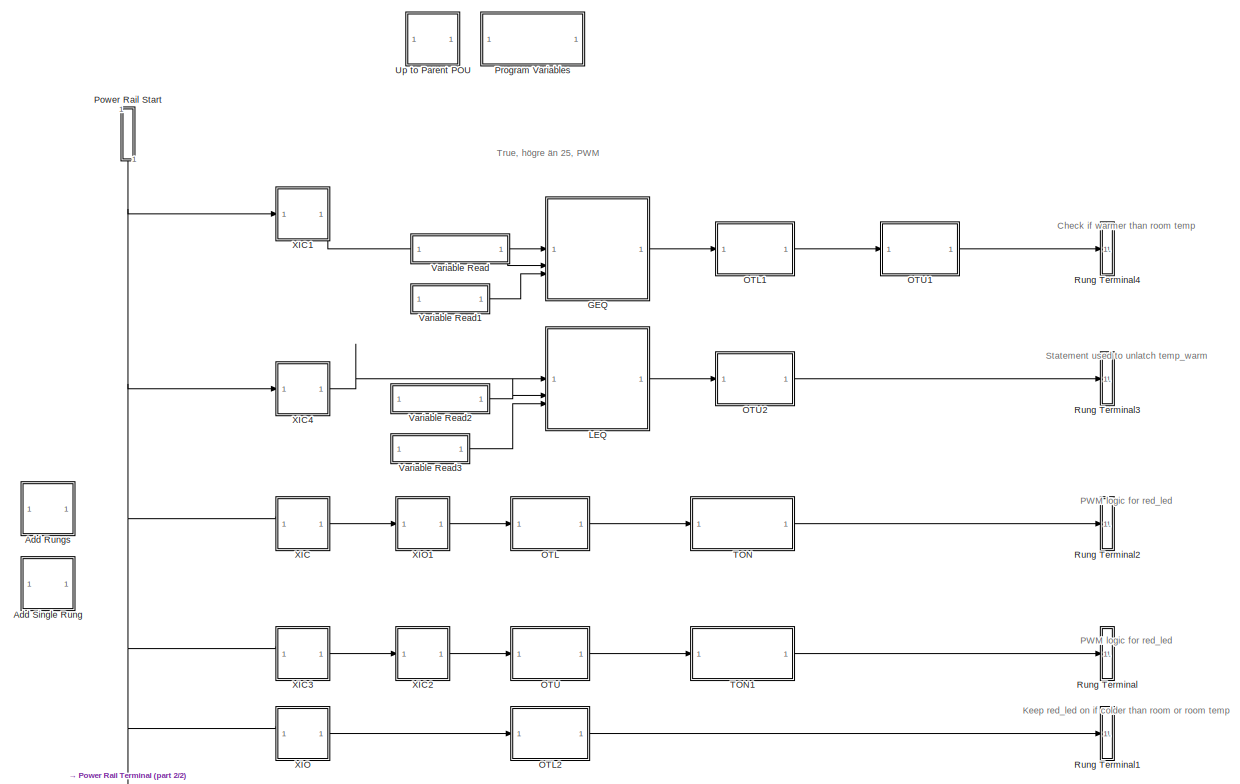
[diagram: PLC Controller Suite/__Logic/Temp logic/Termperature sensor logic/__Logic - part 1/2, full width, middle band]
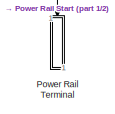
[diagram: PLC Controller Suite/__Logic/Temp logic/Termperature sensor logic/__Logic - part 2/2, bottom left region]
BLOCK [SubSystem] PLC Controller Suite/__Logic/Temp logic/Termperature sensor logic/__Logic
  Priority = 12
  TreatAsAtomicUnit = on
  UserDataPersistent = on
BLOCK [SubSystem] PLC Controller Suite/__Logic/Temp logic/Termperature sensor logic/__Logic/Add Rungs
  DisableCoverage = on
  MaskHideContents = on
  TreatAsAtomicUnit = on
BLOCK [SubSystem] PLC Controller Suite/__Logic/Temp logic/Termperature sensor logic/__Logic/Add Single Rung
  DisableCoverage = on
  MaskHideContents = on
  OpenFcn = slplc.callbacks.addLadderRungs(gcb);
  TreatAsAtomicUnit = on
BLOCK [SubSystem] PLC Controller Suite/__Logic/Temp logic/Termperature sensor logic/__Logic/GEQ
  MaskHideContents = on
  NameLocation = top
  Priority = 5
  TreatAsAtomicUnit = on
BLOCK [SubSystem] PLC Controller Suite/__Logic/Temp logic/Termperature sensor logic/__Logic/GEQ/BlockEnableRead
  DisableCoverage = on
  MaskHideContents = on
  ShowPortLabels = none
  TreatAsAtomicUnit = on
BLOCK [Outport] PLC Controller Suite/__Logic/Temp logic/Termperature sensor logic/__Logic/GEQ/BlockEnableRead/Out1
  VectorParamsAs1DForOutWhenUnconnected = off
BLOCK [SubSystem] PLC Controller Suite/__Logic/Temp logic/Termperature sensor logic/__Logic/GEQ/BlockEnableRead/__CoreLabelRead
  DisableCoverage = on
  MaskHideContents = on
  ShowPortLabels = none
  Tag = CoreVarReadBlock
  TreatAsAtomicUnit = on
BLOCK [DataStoreRead] PLC Controller Suite/__Logic/Temp logic/Termperature sensor logic/__Logic/GEQ/BlockEnableRead/__CoreLabelRead/DataRead
  DataStoreName = x_PLCLabel__s4_3653__Block_Enable
  IndexOptions = Index vector (dialog)
  Indices = 1
  OutputSizes = 1
BLOCK [Outport] PLC Controller Suite/__Logic/Temp logic/Termperature sensor logic/__Logic/GEQ/BlockEnableRead/__CoreLabelRead/Out1
  VectorParamsAs1DForOutWhenUnconnected = off
BLOCK [SubSystem] PLC Controller Suite/__Logic/Temp logic/Termperature sensor logic/__Logic/GEQ/Instruction_Enable
  TreatAsAtomicUnit = on
BLOCK [EnablePort] PLC Controller Suite/__Logic/Temp logic/Termperature sensor logic/__Logic/GEQ/Instruction_Enable/Enable
BLOCK [Logic] PLC Controller Suite/__Logic/Temp logic/Termperature sensor logic/__Logic/GEQ/Instruction_Enable/Logical Operator
  OutDataTypeStr = BOOL
BLOCK [RelationalOperator] PLC Controller Suite/__Logic/Temp logic/Termperature sensor logic/__Logic/GEQ/Instruction_Enable/Relational Operator
  InputSameDT = off
  OutDataTypeStr = BOOL
  RndMeth = Simplest
BLOCK [Inport] PLC Controller Suite/__Logic/Temp logic/Termperature sensor logic/__Logic/GEQ/Instruction_Enable/Rung-condition-in
BLOCK [Outport] PLC Controller Suite/__Logic/Temp logic/Termperature sensor logic/__Logic/GEQ/Instruction_Enable/Rung-condition-out
  PortDimensions = 1
  VectorParamsAs1DForOutWhenUnconnected = off
BLOCK [Inport] PLC Controller Suite/__Logic/Temp logic/Termperature sensor logic/__Logic/GEQ/Instruction_Enable/srcA
  Port = 2
  PortDimensions = 1
BLOCK [Inport] PLC Controller Suite/__Logic/Temp logic/Termperature sensor logic/__Logic/GEQ/Instruction_Enable/srcB
  Port = 3
  PortDimensions = 1
BLOCK [Inport] PLC Controller Suite/__Logic/Temp logic/Termperature sensor logic/__Logic/GEQ/RungIn
  OutDataTypeStr = BOOL
  PortDimensions = 1
BLOCK [SubSystem] PLC Controller Suite/__Logic/Temp logic/Termperature sensor logic/__Logic/GEQ/RungInOverride
  DisableCoverage = on
  MaskHideContents = on
  TreatAsAtomicUnit = on
BLOCK [Logic] PLC Controller Suite/__Logic/Temp logic/Termperature sensor logic/__Logic/GEQ/RungInOverride/AND
  AllPortsSameDT = off
  OutDataTypeStr = boolean
BLOCK [SubSystem] PLC Controller Suite/__Logic/Temp logic/Termperature sensor logic/__Logic/GEQ/RungInOverride/ForceRungInFalseRead
  DisableCoverage = on
  MaskHideContents = on
  ShowPortLabels = none
  TreatAsAtomicUnit = on
BLOCK [Outport] PLC Controller Suite/__Logic/Temp logic/Termperature sensor logic/__Logic/GEQ/RungInOverride/ForceRungInFalseRead/Out1
  VectorParamsAs1DForOutWhenUnconnected = off
BLOCK [SubSystem] PLC Controller Suite/__Logic/Temp logic/Termperature sensor logic/__Logic/GEQ/RungInOverride/ForceRungInFalseRead/__CoreLabelRead
  DisableCoverage = on
  MaskHideContents = on
  ShowPortLabels = none
  Tag = CoreVarReadBlock
  TreatAsAtomicUnit = on
BLOCK [DataStoreRead] PLC Controller Suite/__Logic/Temp logic/Termperature sensor logic/__Logic/GEQ/RungInOverride/ForceRungInFalseRead/__CoreLabelRead/DataRead
  DataStoreName = x_PLCLabel__s4_3653__Force_RungIn_False
  IndexOptions = Index vector (dialog)
  Indices = 1
  OutputSizes = 1
BLOCK [Outport] PLC Controller Suite/__Logic/Temp logic/Termperature sensor logic/__Logic/GEQ/RungInOverride/ForceRungInFalseRead/__CoreLabelRead/Out1
  VectorParamsAs1DForOutWhenUnconnected = off
BLOCK [Inport] PLC Controller Suite/__Logic/Temp logic/Termperature sensor logic/__Logic/GEQ/RungInOverride/In1
BLOCK [Logic] PLC Controller Suite/__Logic/Temp logic/Termperature sensor logic/__Logic/GEQ/RungInOverride/NOT
  AllPortsSameDT = off
  IconShape = distinctive
  Operator = NOT
  OutDataTypeStr = boolean
BLOCK [Outport] PLC Controller Suite/__Logic/Temp logic/Termperature sensor logic/__Logic/GEQ/RungInOverride/Out1
  VectorParamsAs1DForOutWhenUnconnected = off
BLOCK [Outport] PLC Controller Suite/__Logic/Temp logic/Termperature sensor logic/__Logic/GEQ/RungOut
  OutDataTypeStr = BOOL
  PortDimensions = 1
  VectorParamsAs1DForOutWhenUnconnected = off
BLOCK [SubSystem] PLC Controller Suite/__Logic/Temp logic/Termperature sensor logic/__Logic/GEQ/__Format
  DisableCoverage = on
  ErrorFcn = Stateflow.Translate.translate
  InitFcn = slplc.utils.setBlockAppearance('reset');
  MaskHideContents = on
  PermitHierarchicalResolution = ExplicitOnly
  Priority = 20
  SFBlockType = MATLAB Function
  StopFcn = slplc.utils.setBlockAppearance('reset');
  Tag = PLC_Format_FC
  TreatAsAtomicUnit = on
BLOCK [Demux] PLC Controller Suite/__Logic/Temp logic/Termperature sensor logic/__Logic/GEQ/__Format/ Demux 
  Outputs = 1
BLOCK [S-Function] PLC Controller Suite/__Logic/Temp logic/Termperature sensor logic/__Logic/GEQ/__Format/ SFunction 
  EnableBusSupport = on
  FunctionName = sf_sfun
  PortCounts = [3 1]
  SFcnIsStateOwnerBlock = off
  SFunctionDeploymentMode = off
  Tag = Stateflow S-Function 59
BLOCK [Terminator] PLC Controller Suite/__Logic/Temp logic/Termperature sensor logic/__Logic/GEQ/__Format/ Terminator 
BLOCK [Inport] PLC Controller Suite/__Logic/Temp logic/Termperature sensor logic/__Logic/GEQ/__Format/BlockEnable
BLOCK [Inport] PLC Controller Suite/__Logic/Temp logic/Termperature sensor logic/__Logic/GEQ/__Format/RungIn
  Port = 2
BLOCK [Inport] PLC Controller Suite/__Logic/Temp logic/Termperature sensor logic/__Logic/GEQ/__Format/RungOut
  Port = 3
BLOCK [Inport] PLC Controller Suite/__Logic/Temp logic/Termperature sensor logic/__Logic/GEQ/srcA
  Port = 2
  PortDimensions = 1
BLOCK [Inport] PLC Controller Suite/__Logic/Temp logic/Termperature sensor logic/__Logic/GEQ/srcB
  Port = 3
  PortDimensions = 1
BLOCK [SubSystem] PLC Controller Suite/__Logic/Temp logic/Termperature sensor logic/__Logic/LEQ
  MaskHideContents = on
  NameLocation = top
  Priority = 12
  TreatAsAtomicUnit = on
BLOCK [SubSystem] PLC Controller Suite/__Logic/Temp logic/Termperature sensor logic/__Logic/LEQ/BlockEnableRead
  DisableCoverage = on
  MaskHideContents = on
  ShowPortLabels = none
  TreatAsAtomicUnit = on
BLOCK [Outport] PLC Controller Suite/__Logic/Temp logic/Termperature sensor logic/__Logic/LEQ/BlockEnableRead/Out1
  VectorParamsAs1DForOutWhenUnconnected = off
BLOCK [SubSystem] PLC Controller Suite/__Logic/Temp logic/Termperature sensor logic/__Logic/LEQ/BlockEnableRead/__CoreLabelRead
  DisableCoverage = on
  MaskHideContents = on
  ShowPortLabels = none
  Tag = CoreVarReadBlock
  TreatAsAtomicUnit = on
BLOCK [DataStoreRead] PLC Controller Suite/__Logic/Temp logic/Termperature sensor logic/__Logic/LEQ/BlockEnableRead/__CoreLabelRead/DataRead
  DataStoreName = x_PLCLabel__s4_3653__Block_Enable
  IndexOptions = Index vector (dialog)
  Indices = 1
  OutputSizes = 1
BLOCK [Outport] PLC Controller Suite/__Logic/Temp logic/Termperature sensor logic/__Logic/LEQ/BlockEnableRead/__CoreLabelRead/Out1
  VectorParamsAs1DForOutWhenUnconnected = off
BLOCK [SubSystem] PLC Controller Suite/__Logic/Temp logic/Termperature sensor logic/__Logic/LEQ/Instruction_Enable
  TreatAsAtomicUnit = on
BLOCK [EnablePort] PLC Controller Suite/__Logic/Temp logic/Termperature sensor logic/__Logic/LEQ/Instruction_Enable/Enable
BLOCK [Logic] PLC Controller Suite/__Logic/Temp logic/Termperature sensor logic/__Logic/LEQ/Instruction_Enable/Logical Operator
  OutDataTypeStr = BOOL
BLOCK [RelationalOperator] PLC Controller Suite/__Logic/Temp logic/Termperature sensor logic/__Logic/LEQ/Instruction_Enable/Relational Operator
  InputSameDT = off
  Operator = <=
  OutDataTypeStr = BOOL
  RndMeth = Simplest
BLOCK [Inport] PLC Controller Suite/__Logic/Temp logic/Termperature sensor logic/__Logic/LEQ/Instruction_Enable/Rung-condition-in
BLOCK [Outport] PLC Controller Suite/__Logic/Temp logic/Termperature sensor logic/__Logic/LEQ/Instruction_Enable/Rung-condition-out
  PortDimensions = 1
  VectorParamsAs1DForOutWhenUnconnected = off
BLOCK [Inport] PLC Controller Suite/__Logic/Temp logic/Termperature sensor logic/__Logic/LEQ/Instruction_Enable/srcA
  Port = 2
  PortDimensions = 1
BLOCK [Inport] PLC Controller Suite/__Logic/Temp logic/Termperature sensor logic/__Logic/LEQ/Instruction_Enable/srcB
  Port = 3
  PortDimensions = 1
BLOCK [Inport] PLC Controller Suite/__Logic/Temp logic/Termperature sensor logic/__Logic/LEQ/RungIn
  OutDataTypeStr = BOOL
  PortDimensions = 1
BLOCK [SubSystem] PLC Controller Suite/__Logic/Temp logic/Termperature sensor logic/__Logic/LEQ/RungInOverride
  DisableCoverage = on
  MaskHideContents = on
  TreatAsAtomicUnit = on
BLOCK [Logic] PLC Controller Suite/__Logic/Temp logic/Termperature sensor logic/__Logic/LEQ/RungInOverride/AND
  AllPortsSameDT = off
  OutDataTypeStr = boolean
BLOCK [SubSystem] PLC Controller Suite/__Logic/Temp logic/Termperature sensor logic/__Logic/LEQ/RungInOverride/ForceRungInFalseRead
  DisableCoverage = on
  MaskHideContents = on
  ShowPortLabels = none
  TreatAsAtomicUnit = on
BLOCK [Outport] PLC Controller Suite/__Logic/Temp logic/Termperature sensor logic/__Logic/LEQ/RungInOverride/ForceRungInFalseRead/Out1
  VectorParamsAs1DForOutWhenUnconnected = off
BLOCK [SubSystem] PLC Controller Suite/__Logic/Temp logic/Termperature sensor logic/__Logic/LEQ/RungInOverride/ForceRungInFalseRead/__CoreLabelRead
  DisableCoverage = on
  MaskHideContents = on
  ShowPortLabels = none
  Tag = CoreVarReadBlock
  TreatAsAtomicUnit = on
BLOCK [DataStoreRead] PLC Controller Suite/__Logic/Temp logic/Termperature sensor logic/__Logic/LEQ/RungInOverride/ForceRungInFalseRead/__CoreLabelRead/DataRead
  DataStoreName = x_PLCLabel__s4_3653__Force_RungIn_False
  IndexOptions = Index vector (dialog)
  Indices = 1
  OutputSizes = 1
BLOCK [Outport] PLC Controller Suite/__Logic/Temp logic/Termperature sensor logic/__Logic/LEQ/RungInOverride/ForceRungInFalseRead/__CoreLabelRead/Out1
  VectorParamsAs1DForOutWhenUnconnected = off
BLOCK [Inport] PLC Controller Suite/__Logic/Temp logic/Termperature sensor logic/__Logic/LEQ/RungInOverride/In1
BLOCK [Logic] PLC Controller Suite/__Logic/Temp logic/Termperature sensor logic/__Logic/LEQ/RungInOverride/NOT
  AllPortsSameDT = off
  IconShape = distinctive
  Operator = NOT
  OutDataTypeStr = boolean
BLOCK [Outport] PLC Controller Suite/__Logic/Temp logic/Termperature sensor logic/__Logic/LEQ/RungInOverride/Out1
  VectorParamsAs1DForOutWhenUnconnected = off
BLOCK [Outport] PLC Controller Suite/__Logic/Temp logic/Termperature sensor logic/__Logic/LEQ/RungOut
  OutDataTypeStr = BOOL
  PortDimensions = 1
  VectorParamsAs1DForOutWhenUnconnected = off
BLOCK [SubSystem] PLC Controller Suite/__Logic/Temp logic/Termperature sensor logic/__Logic/LEQ/__Format
  DisableCoverage = on
  ErrorFcn = Stateflow.Translate.translate
  InitFcn = slplc.utils.setBlockAppearance('reset');
  MaskHideContents = on
  PermitHierarchicalResolution = ExplicitOnly
  Priority = 20
  SFBlockType = MATLAB Function
  StopFcn = slplc.utils.setBlockAppearance('reset');
  Tag = PLC_Format_FC
  TreatAsAtomicUnit = on
BLOCK [Demux] PLC Controller Suite/__Logic/Temp logic/Termperature sensor logic/__Logic/LEQ/__Format/ Demux 
  Outputs = 1
BLOCK [S-Function] PLC Controller Suite/__Logic/Temp logic/Termperature sensor logic/__Logic/LEQ/__Format/ SFunction 
  EnableBusSupport = on
  FunctionName = sf_sfun
  PortCounts = [3 1]
  SFcnIsStateOwnerBlock = off
  SFunctionDeploymentMode = off
  Tag = Stateflow S-Function 121
BLOCK [Terminator] PLC Controller Suite/__Logic/Temp logic/Termperature sensor logic/__Logic/LEQ/__Format/ Terminator 
BLOCK [Inport] PLC Controller Suite/__Logic/Temp logic/Termperature sensor logic/__Logic/LEQ/__Format/BlockEnable
BLOCK [Inport] PLC Controller Suite/__Logic/Temp logic/Termperature sensor logic/__Logic/LEQ/__Format/RungIn
  Port = 2
BLOCK [Inport] PLC Controller Suite/__Logic/Temp logic/Termperature sensor logic/__Logic/LEQ/__Format/RungOut
  Port = 3
BLOCK [Inport] PLC Controller Suite/__Logic/Temp logic/Termperature sensor logic/__Logic/LEQ/srcA
  Port = 2
  PortDimensions = 1
BLOCK [Inport] PLC Controller Suite/__Logic/Temp logic/Termperature sensor logic/__Logic/LEQ/srcB
  Port = 3
  PortDimensions = 1
BLOCK [SubSystem] PLC Controller Suite/__Logic/Temp logic/Termperature sensor logic/__Logic/OTL
  AttributesFormatString = %<PLCOperandTag>
  MaskHideContents = on
  NameLocation = top
  Priority = 17
  TreatAsAtomicUnit = on
BLOCK [SubSystem] PLC Controller Suite/__Logic/Temp logic/Termperature sensor logic/__Logic/OTL/BlockEnableRead
  DisableCoverage = on
  MaskHideContents = on
  ShowPortLabels = none
  TreatAsAtomicUnit = on
BLOCK [Outport] PLC Controller Suite/__Logic/Temp logic/Termperature sensor logic/__Logic/OTL/BlockEnableRead/Out1
  VectorParamsAs1DForOutWhenUnconnected = off
BLOCK [SubSystem] PLC Controller Suite/__Logic/Temp logic/Termperature sensor logic/__Logic/OTL/BlockEnableRead/__CoreLabelRead
  DisableCoverage = on
  MaskHideContents = on
  ShowPortLabels = none
  Tag = CoreVarReadBlock
  TreatAsAtomicUnit = on
BLOCK [DataStoreRead] PLC Controller Suite/__Logic/Temp logic/Termperature sensor logic/__Logic/OTL/BlockEnableRead/__CoreLabelRead/DataRead
  DataStoreName = x_PLCLabel__s4_3653__Block_Enable
  IndexOptions = Index vector (dialog)
  Indices = 1
  OutputSizes = 1
BLOCK [Outport] PLC Controller Suite/__Logic/Temp logic/Termperature sensor logic/__Logic/OTL/BlockEnableRead/__CoreLabelRead/Out1
  VectorParamsAs1DForOutWhenUnconnected = off
BLOCK [SubSystem] PLC Controller Suite/__Logic/Temp logic/Termperature sensor logic/__Logic/OTL/Instruction_Enable
  Priority = 12
  TreatAsAtomicUnit = on
BLOCK [EnablePort] PLC Controller Suite/__Logic/Temp logic/Termperature sensor logic/__Logic/OTL/Instruction_Enable/Enable
BLOCK [Inport] PLC Controller Suite/__Logic/Temp logic/Termperature sensor logic/__Logic/OTL/Instruction_Enable/Rung-condition-in
  OutDataTypeStr = BOOL
BLOCK [SubSystem] PLC Controller Suite/__Logic/Temp logic/Termperature sensor logic/__Logic/OTL/Instruction_Enable/Rung-condition-in is true
  Priority = 12
BLOCK [Constant] PLC Controller Suite/__Logic/Temp logic/Termperature sensor logic/__Logic/OTL/Instruction_Enable/Rung-condition-in is true/Constant
  OutDataTypeStr = BOOL
BLOCK [EnablePort] PLC Controller Suite/__Logic/Temp logic/Termperature sensor logic/__Logic/OTL/Instruction_Enable/Rung-condition-in is true/Enable
BLOCK [SubSystem] PLC Controller Suite/__Logic/Temp logic/Termperature sensor logic/__Logic/OTL/Instruction_Enable/Rung-condition-in is true/__CoreVarWrite
  DisableCoverage = on
  MaskHideContents = on
  ShowPortLabels = none
  Tag = CoreVarWriteBlock
  TreatAsAtomicUnit = on
BLOCK [DataStoreWrite] PLC Controller Suite/__Logic/Temp logic/Termperature sensor logic/__Logic/OTL/Instruction_Enable/Rung-condition-in is true/__CoreVarWrite/DataWrite
  DataStoreName = xxx_PLC_VAR_RedLed
  IndexOptions = Index vector (dialog)
  Indices = 1
  OutputSizes = 1
BLOCK [Inport] PLC Controller Suite/__Logic/Temp logic/Termperature sensor logic/__Logic/OTL/Instruction_Enable/Rung-condition-in is true/__CoreVarWrite/u
BLOCK [Inport] PLC Controller Suite/__Logic/Temp logic/Termperature sensor logic/__Logic/OTL/RungIn
  PortDimensions = 1
  VarSizeSig = No
BLOCK [SubSystem] PLC Controller Suite/__Logic/Temp logic/Termperature sensor logic/__Logic/OTL/RungInOverride
  DisableCoverage = on
  MaskHideContents = on
  TreatAsAtomicUnit = on
BLOCK [Logic] PLC Controller Suite/__Logic/Temp logic/Termperature sensor logic/__Logic/OTL/RungInOverride/AND
  AllPortsSameDT = off
  OutDataTypeStr = boolean
BLOCK [SubSystem] PLC Controller Suite/__Logic/Temp logic/Termperature sensor logic/__Logic/OTL/RungInOverride/ForceRungInFalseRead
  DisableCoverage = on
  MaskHideContents = on
  ShowPortLabels = none
  TreatAsAtomicUnit = on
BLOCK [Outport] PLC Controller Suite/__Logic/Temp logic/Termperature sensor logic/__Logic/OTL/RungInOverride/ForceRungInFalseRead/Out1
  VectorParamsAs1DForOutWhenUnconnected = off
BLOCK [SubSystem] PLC Controller Suite/__Logic/Temp logic/Termperature sensor logic/__Logic/OTL/RungInOverride/ForceRungInFalseRead/__CoreLabelRead
  DisableCoverage = on
  MaskHideContents = on
  ShowPortLabels = none
  Tag = CoreVarReadBlock
  TreatAsAtomicUnit = on
BLOCK [DataStoreRead] PLC Controller Suite/__Logic/Temp logic/Termperature sensor logic/__Logic/OTL/RungInOverride/ForceRungInFalseRead/__CoreLabelRead/DataRead
  DataStoreName = x_PLCLabel__s4_3653__Force_RungIn_False
  IndexOptions = Index vector (dialog)
  Indices = 1
  OutputSizes = 1
BLOCK [Outport] PLC Controller Suite/__Logic/Temp logic/Termperature sensor logic/__Logic/OTL/RungInOverride/ForceRungInFalseRead/__CoreLabelRead/Out1
  VectorParamsAs1DForOutWhenUnconnected = off
BLOCK [Inport] PLC Controller Suite/__Logic/Temp logic/Termperature sensor logic/__Logic/OTL/RungInOverride/In1
BLOCK [Logic] PLC Controller Suite/__Logic/Temp logic/Termperature sensor logic/__Logic/OTL/RungInOverride/NOT
  AllPortsSameDT = off
  IconShape = distinctive
  Operator = NOT
  OutDataTypeStr = boolean
BLOCK [Outport] PLC Controller Suite/__Logic/Temp logic/Termperature sensor logic/__Logic/OTL/RungInOverride/Out1
  VectorParamsAs1DForOutWhenUnconnected = off
BLOCK [Outport] PLC Controller Suite/__Logic/Temp logic/Termperature sensor logic/__Logic/OTL/RungOut
  InitialOutput = false
  OutDataTypeStr = BOOL
  PortDimensions = 1
  VarSizeSig = No
  VectorParamsAs1DForOutWhenUnconnected = off
BLOCK [SubSystem] PLC Controller Suite/__Logic/Temp logic/Termperature sensor logic/__Logic/OTL/__CoreVarRead
  DisableCoverage = on
  MaskHideContents = on
  ShowPortLabels = none
  Tag = CoreVarReadBlock
  TreatAsAtomicUnit = on
BLOCK [DataStoreRead] PLC Controller Suite/__Logic/Temp logic/Termperature sensor logic/__Logic/OTL/__CoreVarRead/DataRead
  DataStoreName = xxx_PLC_VAR_RedLed
  IndexOptions = Index vector (dialog)
  Indices = 1
  OutputSizes = 1
BLOCK [Outport] PLC Controller Suite/__Logic/Temp logic/Termperature sensor logic/__Logic/OTL/__CoreVarRead/y
  VectorParamsAs1DForOutWhenUnconnected = off
BLOCK [SubSystem] PLC Controller Suite/__Logic/Temp logic/Termperature sensor logic/__Logic/OTL/__Format
  DisableCoverage = on
  ErrorFcn = Stateflow.Translate.translate
  InitFcn = slplc.utils.setBlockAppearance('reset', '%<PLCOperandTag>');
  MaskHideContents = on
  PermitHierarchicalResolution = ExplicitOnly
  Priority = 20
  SFBlockType = MATLAB Function
  StopFcn = slplc.utils.setBlockAppearance('reset', '%<PLCOperandTag>');
  Tag = PLC_Format_Boolean
  TreatAsAtomicUnit = on
BLOCK [Demux] PLC Controller Suite/__Logic/Temp logic/Termperature sensor logic/__Logic/OTL/__Format/ Demux 
  Outputs = 1
BLOCK [S-Function] PLC Controller Suite/__Logic/Temp logic/Termperature sensor logic/__Logic/OTL/__Format/ SFunction 
  EnableBusSupport = on
  FunctionName = sf_sfun
  PortCounts = [4 1]
  SFcnIsStateOwnerBlock = off
  SFunctionDeploymentMode = off
  Tag = Stateflow S-Function 6
BLOCK [Terminator] PLC Controller Suite/__Logic/Temp logic/Termperature sensor logic/__Logic/OTL/__Format/ Terminator 
BLOCK [Inport] PLC Controller Suite/__Logic/Temp logic/Termperature sensor logic/__Logic/OTL/__Format/BlockEnable
BLOCK [Inport] PLC Controller Suite/__Logic/Temp logic/Termperature sensor logic/__Logic/OTL/__Format/RungIn
  Port = 2
BLOCK [Inport] PLC Controller Suite/__Logic/Temp logic/Termperature sensor logic/__Logic/OTL/__Format/RungOut
  Port = 3
BLOCK [Inport] PLC Controller Suite/__Logic/Temp logic/Termperature sensor logic/__Logic/OTL/__Format/data
  Port = 4
BLOCK [SubSystem] PLC Controller Suite/__Logic/Temp logic/Termperature sensor logic/__Logic/OTL1
  AttributesFormatString = %<PLCOperandTag>
  MaskHideContents = on
  NameLocation = top
  Priority = 6
  TreatAsAtomicUnit = on
BLOCK [SubSystem] PLC Controller Suite/__Logic/Temp logic/Termperature sensor logic/__Logic/OTL1/BlockEnableRead
  DisableCoverage = on
  MaskHideContents = on
  ShowPortLabels = none
  TreatAsAtomicUnit = on
BLOCK [Outport] PLC Controller Suite/__Logic/Temp logic/Termperature sensor logic/__Logic/OTL1/BlockEnableRead/Out1
  VectorParamsAs1DForOutWhenUnconnected = off
BLOCK [SubSystem] PLC Controller Suite/__Logic/Temp logic/Termperature sensor logic/__Logic/OTL1/BlockEnableRead/__CoreLabelRead
  DisableCoverage = on
  MaskHideContents = on
  ShowPortLabels = none
  Tag = CoreVarReadBlock
  TreatAsAtomicUnit = on
BLOCK [DataStoreRead] PLC Controller Suite/__Logic/Temp logic/Termperature sensor logic/__Logic/OTL1/BlockEnableRead/__CoreLabelRead/DataRead
  DataStoreName = x_PLCLabel__s4_3653__Block_Enable
  IndexOptions = Index vector (dialog)
  Indices = 1
  OutputSizes = 1
BLOCK [Outport] PLC Controller Suite/__Logic/Temp logic/Termperature sensor logic/__Logic/OTL1/BlockEnableRead/__CoreLabelRead/Out1
  VectorParamsAs1DForOutWhenUnconnected = off
BLOCK [SubSystem] PLC Controller Suite/__Logic/Temp logic/Termperature sensor logic/__Logic/OTL1/Instruction_Enable
  Priority = 12
  TreatAsAtomicUnit = on
BLOCK [EnablePort] PLC Controller Suite/__Logic/Temp logic/Termperature sensor logic/__Logic/OTL1/Instruction_Enable/Enable
BLOCK [Inport] PLC Controller Suite/__Logic/Temp logic/Termperature sensor logic/__Logic/OTL1/Instruction_Enable/Rung-condition-in
  OutDataTypeStr = BOOL
BLOCK [SubSystem] PLC Controller Suite/__Logic/Temp logic/Termperature sensor logic/__Logic/OTL1/Instruction_Enable/Rung-condition-in is true
  Priority = 12
BLOCK [Constant] PLC Controller Suite/__Logic/Temp logic/Termperature sensor logic/__Logic/OTL1/Instruction_Enable/Rung-condition-in is true/Constant
  OutDataTypeStr = BOOL
BLOCK [EnablePort] PLC Controller Suite/__Logic/Temp logic/Termperature sensor logic/__Logic/OTL1/Instruction_Enable/Rung-condition-in is true/Enable
BLOCK [SubSystem] PLC Controller Suite/__Logic/Temp logic/Termperature sensor logic/__Logic/OTL1/Instruction_Enable/Rung-condition-in is true/__CoreVarWrite
  DisableCoverage = on
  MaskHideContents = on
  ShowPortLabels = none
  Tag = CoreVarWriteBlock
  TreatAsAtomicUnit = on
BLOCK [DataStoreWrite] PLC Controller Suite/__Logic/Temp logic/Termperature sensor logic/__Logic/OTL1/Instruction_Enable/Rung-condition-in is true/__CoreVarWrite/DataWrite
  DataStoreName = xxx_PLC_VAR_temp_warm
  IndexOptions = Index vector (dialog)
  Indices = 1
  OutputSizes = 1
BLOCK [Inport] PLC Controller Suite/__Logic/Temp logic/Termperature sensor logic/__Logic/OTL1/Instruction_Enable/Rung-condition-in is true/__CoreVarWrite/u
BLOCK [Inport] PLC Controller Suite/__Logic/Temp logic/Termperature sensor logic/__Logic/OTL1/RungIn
  PortDimensions = 1
  VarSizeSig = No
BLOCK [SubSystem] PLC Controller Suite/__Logic/Temp logic/Termperature sensor logic/__Logic/OTL1/RungInOverride
  DisableCoverage = on
  MaskHideContents = on
  TreatAsAtomicUnit = on
BLOCK [Logic] PLC Controller Suite/__Logic/Temp logic/Termperature sensor logic/__Logic/OTL1/RungInOverride/AND
  AllPortsSameDT = off
  OutDataTypeStr = boolean
BLOCK [SubSystem] PLC Controller Suite/__Logic/Temp logic/Termperature sensor logic/__Logic/OTL1/RungInOverride/ForceRungInFalseRead
  DisableCoverage = on
  MaskHideContents = on
  ShowPortLabels = none
  TreatAsAtomicUnit = on
BLOCK [Outport] PLC Controller Suite/__Logic/Temp logic/Termperature sensor logic/__Logic/OTL1/RungInOverride/ForceRungInFalseRead/Out1
  VectorParamsAs1DForOutWhenUnconnected = off
BLOCK [SubSystem] PLC Controller Suite/__Logic/Temp logic/Termperature sensor logic/__Logic/OTL1/RungInOverride/ForceRungInFalseRead/__CoreLabelRead
  DisableCoverage = on
  MaskHideContents = on
  ShowPortLabels = none
  Tag = CoreVarReadBlock
  TreatAsAtomicUnit = on
BLOCK [DataStoreRead] PLC Controller Suite/__Logic/Temp logic/Termperature sensor logic/__Logic/OTL1/RungInOverride/ForceRungInFalseRead/__CoreLabelRead/DataRead
  DataStoreName = x_PLCLabel__s4_3653__Force_RungIn_False
  IndexOptions = Index vector (dialog)
  Indices = 1
  OutputSizes = 1
BLOCK [Outport] PLC Controller Suite/__Logic/Temp logic/Termperature sensor logic/__Logic/OTL1/RungInOverride/ForceRungInFalseRead/__CoreLabelRead/Out1
  VectorParamsAs1DForOutWhenUnconnected = off
BLOCK [Inport] PLC Controller Suite/__Logic/Temp logic/Termperature sensor logic/__Logic/OTL1/RungInOverride/In1
BLOCK [Logic] PLC Controller Suite/__Logic/Temp logic/Termperature sensor logic/__Logic/OTL1/RungInOverride/NOT
  AllPortsSameDT = off
  IconShape = distinctive
  Operator = NOT
  OutDataTypeStr = boolean
BLOCK [Outport] PLC Controller Suite/__Logic/Temp logic/Termperature sensor logic/__Logic/OTL1/RungInOverride/Out1
  VectorParamsAs1DForOutWhenUnconnected = off
BLOCK [Outport] PLC Controller Suite/__Logic/Temp logic/Termperature sensor logic/__Logic/OTL1/RungOut
  InitialOutput = false
  OutDataTypeStr = BOOL
  PortDimensions = 1
  VarSizeSig = No
  VectorParamsAs1DForOutWhenUnconnected = off
BLOCK [SubSystem] PLC Controller Suite/__Logic/Temp logic/Termperature sensor logic/__Logic/OTL1/__CoreVarRead
  DisableCoverage = on
  MaskHideContents = on
  ShowPortLabels = none
  Tag = CoreVarReadBlock
  TreatAsAtomicUnit = on
BLOCK [DataStoreRead] PLC Controller Suite/__Logic/Temp logic/Termperature sensor logic/__Logic/OTL1/__CoreVarRead/DataRead
  DataStoreName = xxx_PLC_VAR_temp_warm
  IndexOptions = Index vector (dialog)
  Indices = 1
  OutputSizes = 1
BLOCK [Outport] PLC Controller Suite/__Logic/Temp logic/Termperature sensor logic/__Logic/OTL1/__CoreVarRead/y
  VectorParamsAs1DForOutWhenUnconnected = off
BLOCK [SubSystem] PLC Controller Suite/__Logic/Temp logic/Termperature sensor logic/__Logic/OTL1/__Format
  DisableCoverage = on
  ErrorFcn = Stateflow.Translate.translate
  InitFcn = slplc.utils.setBlockAppearance('reset', '%<PLCOperandTag>');
  MaskHideContents = on
  PermitHierarchicalResolution = ExplicitOnly
  Priority = 20
  SFBlockType = MATLAB Function
  StopFcn = slplc.utils.setBlockAppearance('reset', '%<PLCOperandTag>');
  Tag = PLC_Format_Boolean
  TreatAsAtomicUnit = on
BLOCK [Demux] PLC Controller Suite/__Logic/Temp logic/Termperature sensor logic/__Logic/OTL1/__Format/ Demux 
  Outputs = 1
BLOCK [S-Function] PLC Controller Suite/__Logic/Temp logic/Termperature sensor logic/__Logic/OTL1/__Format/ SFunction 
  EnableBusSupport = on
  FunctionName = sf_sfun
  PortCounts = [4 1]
  SFcnIsStateOwnerBlock = off
  SFunctionDeploymentMode = off
  Tag = Stateflow S-Function 68
BLOCK [Terminator] PLC Controller Suite/__Logic/Temp logic/Termperature sensor logic/__Logic/OTL1/__Format/ Terminator 
BLOCK [Inport] PLC Controller Suite/__Logic/Temp logic/Termperature sensor logic/__Logic/OTL1/__Format/BlockEnable
BLOCK [Inport] PLC Controller Suite/__Logic/Temp logic/Termperature sensor logic/__Logic/OTL1/__Format/RungIn
  Port = 2
BLOCK [Inport] PLC Controller Suite/__Logic/Temp logic/Termperature sensor logic/__Logic/OTL1/__Format/RungOut
  Port = 3
BLOCK [Inport] PLC Controller Suite/__Logic/Temp logic/Termperature sensor logic/__Logic/OTL1/__Format/data
  Port = 4
BLOCK [SubSystem] PLC Controller Suite/__Logic/Temp logic/Termperature sensor logic/__Logic/OTL2
  AttributesFormatString = %<PLCOperandTag>
  MaskHideContents = on
  NameLocation = top
  Priority = 26
  TreatAsAtomicUnit = on
BLOCK [SubSystem] PLC Controller Suite/__Logic/Temp logic/Termperature sensor logic/__Logic/OTL2/BlockEnableRead
  DisableCoverage = on
  MaskHideContents = on
  ShowPortLabels = none
  TreatAsAtomicUnit = on
BLOCK [Outport] PLC Controller Suite/__Logic/Temp logic/Termperature sensor logic/__Logic/OTL2/BlockEnableRead/Out1
  VectorParamsAs1DForOutWhenUnconnected = off
BLOCK [SubSystem] PLC Controller Suite/__Logic/Temp logic/Termperature sensor logic/__Logic/OTL2/BlockEnableRead/__CoreLabelRead
  DisableCoverage = on
  MaskHideContents = on
  ShowPortLabels = none
  Tag = CoreVarReadBlock
  TreatAsAtomicUnit = on
BLOCK [DataStoreRead] PLC Controller Suite/__Logic/Temp logic/Termperature sensor logic/__Logic/OTL2/BlockEnableRead/__CoreLabelRead/DataRead
  DataStoreName = x_PLCLabel__s4_3653__Block_Enable
  IndexOptions = Index vector (dialog)
  Indices = 1
  OutputSizes = 1
BLOCK [Outport] PLC Controller Suite/__Logic/Temp logic/Termperature sensor logic/__Logic/OTL2/BlockEnableRead/__CoreLabelRead/Out1
  VectorParamsAs1DForOutWhenUnconnected = off
BLOCK [SubSystem] PLC Controller Suite/__Logic/Temp logic/Termperature sensor logic/__Logic/OTL2/Instruction_Enable
  Priority = 12
  TreatAsAtomicUnit = on
BLOCK [EnablePort] PLC Controller Suite/__Logic/Temp logic/Termperature sensor logic/__Logic/OTL2/Instruction_Enable/Enable
BLOCK [Inport] PLC Controller Suite/__Logic/Temp logic/Termperature sensor logic/__Logic/OTL2/Instruction_Enable/Rung-condition-in
  OutDataTypeStr = BOOL
BLOCK [SubSystem] PLC Controller Suite/__Logic/Temp logic/Termperature sensor logic/__Logic/OTL2/Instruction_Enable/Rung-condition-in is true
  Priority = 12
BLOCK [Constant] PLC Controller Suite/__Logic/Temp logic/Termperature sensor logic/__Logic/OTL2/Instruction_Enable/Rung-condition-in is true/Constant
  OutDataTypeStr = BOOL
BLOCK [EnablePort] PLC Controller Suite/__Logic/Temp logic/Termperature sensor logic/__Logic/OTL2/Instruction_Enable/Rung-condition-in is true/Enable
BLOCK [SubSystem] PLC Controller Suite/__Logic/Temp logic/Termperature sensor logic/__Logic/OTL2/Instruction_Enable/Rung-condition-in is true/__CoreVarWrite
  DisableCoverage = on
  MaskHideContents = on
  ShowPortLabels = none
  Tag = CoreVarWriteBlock
  TreatAsAtomicUnit = on
BLOCK [DataStoreWrite] PLC Controller Suite/__Logic/Temp logic/Termperature sensor logic/__Logic/OTL2/Instruction_Enable/Rung-condition-in is true/__CoreVarWrite/DataWrite
  DataStoreName = xxx_PLC_VAR_RedLed
  IndexOptions = Index vector (dialog)
  Indices = 1
  OutputSizes = 1
BLOCK [Inport] PLC Controller Suite/__Logic/Temp logic/Termperature sensor logic/__Logic/OTL2/Instruction_Enable/Rung-condition-in is true/__CoreVarWrite/u
BLOCK [Inport] PLC Controller Suite/__Logic/Temp logic/Termperature sensor logic/__Logic/OTL2/RungIn
  PortDimensions = 1
  VarSizeSig = No
BLOCK [SubSystem] PLC Controller Suite/__Logic/Temp logic/Termperature sensor logic/__Logic/OTL2/RungInOverride
  DisableCoverage = on
  MaskHideContents = on
  TreatAsAtomicUnit = on
BLOCK [Logic] PLC Controller Suite/__Logic/Temp logic/Termperature sensor logic/__Logic/OTL2/RungInOverride/AND
  AllPortsSameDT = off
  OutDataTypeStr = boolean
BLOCK [SubSystem] PLC Controller Suite/__Logic/Temp logic/Termperature sensor logic/__Logic/OTL2/RungInOverride/ForceRungInFalseRead
  DisableCoverage = on
  MaskHideContents = on
  ShowPortLabels = none
  TreatAsAtomicUnit = on
BLOCK [Outport] PLC Controller Suite/__Logic/Temp logic/Termperature sensor logic/__Logic/OTL2/RungInOverride/ForceRungInFalseRead/Out1
  VectorParamsAs1DForOutWhenUnconnected = off
BLOCK [SubSystem] PLC Controller Suite/__Logic/Temp logic/Termperature sensor logic/__Logic/OTL2/RungInOverride/ForceRungInFalseRead/__CoreLabelRead
  DisableCoverage = on
  MaskHideContents = on
  ShowPortLabels = none
  Tag = CoreVarReadBlock
  TreatAsAtomicUnit = on
BLOCK [DataStoreRead] PLC Controller Suite/__Logic/Temp logic/Termperature sensor logic/__Logic/OTL2/RungInOverride/ForceRungInFalseRead/__CoreLabelRead/DataRead
  DataStoreName = x_PLCLabel__s4_3653__Force_RungIn_False
  IndexOptions = Index vector (dialog)
  Indices = 1
  OutputSizes = 1
BLOCK [Outport] PLC Controller Suite/__Logic/Temp logic/Termperature sensor logic/__Logic/OTL2/RungInOverride/ForceRungInFalseRead/__CoreLabelRead/Out1
  VectorParamsAs1DForOutWhenUnconnected = off
BLOCK [Inport] PLC Controller Suite/__Logic/Temp logic/Termperature sensor logic/__Logic/OTL2/RungInOverride/In1
BLOCK [Logic] PLC Controller Suite/__Logic/Temp logic/Termperature sensor logic/__Logic/OTL2/RungInOverride/NOT
  AllPortsSameDT = off
  IconShape = distinctive
  Operator = NOT
  OutDataTypeStr = boolean
BLOCK [Outport] PLC Controller Suite/__Logic/Temp logic/Termperature sensor logic/__Logic/OTL2/RungInOverride/Out1
  VectorParamsAs1DForOutWhenUnconnected = off
BLOCK [Outport] PLC Controller Suite/__Logic/Temp logic/Termperature sensor logic/__Logic/OTL2/RungOut
  InitialOutput = false
  OutDataTypeStr = BOOL
  PortDimensions = 1
  VarSizeSig = No
  VectorParamsAs1DForOutWhenUnconnected = off
BLOCK [SubSystem] PLC Controller Suite/__Logic/Temp logic/Termperature sensor logic/__Logic/OTL2/__CoreVarRead
  DisableCoverage = on
  MaskHideContents = on
  ShowPortLabels = none
  Tag = CoreVarReadBlock
  TreatAsAtomicUnit = on
BLOCK [DataStoreRead] PLC Controller Suite/__Logic/Temp logic/Termperature sensor logic/__Logic/OTL2/__CoreVarRead/DataRead
  DataStoreName = xxx_PLC_VAR_RedLed
  IndexOptions = Index vector (dialog)
  Indices = 1
  OutputSizes = 1
BLOCK [Outport] PLC Controller Suite/__Logic/Temp logic/Termperature sensor logic/__Logic/OTL2/__CoreVarRead/y
  VectorParamsAs1DForOutWhenUnconnected = off
BLOCK [SubSystem] PLC Controller Suite/__Logic/Temp logic/Termperature sensor logic/__Logic/OTL2/__Format
  DisableCoverage = on
  ErrorFcn = Stateflow.Translate.translate
  InitFcn = slplc.utils.setBlockAppearance('reset', '%<PLCOperandTag>');
  MaskHideContents = on
  PermitHierarchicalResolution = ExplicitOnly
  Priority = 20
  SFBlockType = MATLAB Function
  StopFcn = slplc.utils.setBlockAppearance('reset', '%<PLCOperandTag>');
  Tag = PLC_Format_Boolean
  TreatAsAtomicUnit = on
BLOCK [Demux] PLC Controller Suite/__Logic/Temp logic/Termperature sensor logic/__Logic/OTL2/__Format/ Demux 
  Outputs = 1
BLOCK [S-Function] PLC Controller Suite/__Logic/Temp logic/Termperature sensor logic/__Logic/OTL2/__Format/ SFunction 
  EnableBusSupport = on
  FunctionName = sf_sfun
  PortCounts = [4 1]
  SFcnIsStateOwnerBlock = off
  SFunctionDeploymentMode = off
  Tag = Stateflow S-Function 1
BLOCK [Terminator] PLC Controller Suite/__Logic/Temp logic/Termperature sensor logic/__Logic/OTL2/__Format/ Terminator 
BLOCK [Inport] PLC Controller Suite/__Logic/Temp logic/Termperature sensor logic/__Logic/OTL2/__Format/BlockEnable
BLOCK [Inport] PLC Controller Suite/__Logic/Temp logic/Termperature sensor logic/__Logic/OTL2/__Format/RungIn
  Port = 2
BLOCK [Inport] PLC Controller Suite/__Logic/Temp logic/Termperature sensor logic/__Logic/OTL2/__Format/RungOut
  Port = 3
BLOCK [Inport] PLC Controller Suite/__Logic/Temp logic/Termperature sensor logic/__Logic/OTL2/__Format/data
  Port = 4
BLOCK [SubSystem] PLC Controller Suite/__Logic/Temp logic/Termperature sensor logic/__Logic/OTU
  AttributesFormatString = %<PLCOperandTag>
  MaskHideContents = on
  NameLocation = top
  Priority = 22
  TreatAsAtomicUnit = on
BLOCK [SubSystem] PLC Controller Suite/__Logic/Temp logic/Termperature sensor logic/__Logic/OTU/BlockEnableRead
  DisableCoverage = on
  MaskHideContents = on
  ShowPortLabels = none
  TreatAsAtomicUnit = on
BLOCK [Outport] PLC Controller Suite/__Logic/Temp logic/Termperature sensor logic/__Logic/OTU/BlockEnableRead/Out1
  VectorParamsAs1DForOutWhenUnconnected = off
BLOCK [SubSystem] PLC Controller Suite/__Logic/Temp logic/Termperature sensor logic/__Logic/OTU/BlockEnableRead/__CoreLabelRead
  DisableCoverage = on
  MaskHideContents = on
  ShowPortLabels = none
  Tag = CoreVarReadBlock
  TreatAsAtomicUnit = on
BLOCK [DataStoreRead] PLC Controller Suite/__Logic/Temp logic/Termperature sensor logic/__Logic/OTU/BlockEnableRead/__CoreLabelRead/DataRead
  DataStoreName = x_PLCLabel__s4_3653__Block_Enable
  IndexOptions = Index vector (dialog)
  Indices = 1
  OutputSizes = 1
BLOCK [Outport] PLC Controller Suite/__Logic/Temp logic/Termperature sensor logic/__Logic/OTU/BlockEnableRead/__CoreLabelRead/Out1
  VectorParamsAs1DForOutWhenUnconnected = off
BLOCK [SubSystem] PLC Controller Suite/__Logic/Temp logic/Termperature sensor logic/__Logic/OTU/Instruction_Enable
  Priority = 12
  TreatAsAtomicUnit = on
BLOCK [EnablePort] PLC Controller Suite/__Logic/Temp logic/Termperature sensor logic/__Logic/OTU/Instruction_Enable/Enable
BLOCK [Inport] PLC Controller Suite/__Logic/Temp logic/Termperature sensor logic/__Logic/OTU/Instruction_Enable/Rung-condition-in
  OutDataTypeStr = BOOL
BLOCK [SubSystem] PLC Controller Suite/__Logic/Temp logic/Termperature sensor logic/__Logic/OTU/Instruction_Enable/Rung-condition-in is true
  Priority = 12
BLOCK [Constant] PLC Controller Suite/__Logic/Temp logic/Termperature sensor logic/__Logic/OTU/Instruction_Enable/Rung-condition-in is true/Constant
  OutDataTypeStr = BOOL
  Value = 0
BLOCK [EnablePort] PLC Controller Suite/__Logic/Temp logic/Termperature sensor logic/__Logic/OTU/Instruction_Enable/Rung-condition-in is true/Enable
BLOCK [SubSystem] PLC Controller Suite/__Logic/Temp logic/Termperature sensor logic/__Logic/OTU/Instruction_Enable/Rung-condition-in is true/__CoreVarWrite
  DisableCoverage = on
  MaskHideContents = on
  ShowPortLabels = none
  Tag = CoreVarWriteBlock
  TreatAsAtomicUnit = on
BLOCK [DataStoreWrite] PLC Controller Suite/__Logic/Temp logic/Termperature sensor logic/__Logic/OTU/Instruction_Enable/Rung-condition-in is true/__CoreVarWrite/DataWrite
  DataStoreName = xxx_PLC_VAR_RedLed
  IndexOptions = Index vector (dialog)
  Indices = 1
  OutputSizes = 1
BLOCK [Inport] PLC Controller Suite/__Logic/Temp logic/Termperature sensor logic/__Logic/OTU/Instruction_Enable/Rung-condition-in is true/__CoreVarWrite/u
BLOCK [Inport] PLC Controller Suite/__Logic/Temp logic/Termperature sensor logic/__Logic/OTU/RungIn
  PortDimensions = 1
  VarSizeSig = No
BLOCK [SubSystem] PLC Controller Suite/__Logic/Temp logic/Termperature sensor logic/__Logic/OTU/RungInOverride
  DisableCoverage = on
  MaskHideContents = on
  TreatAsAtomicUnit = on
BLOCK [Logic] PLC Controller Suite/__Logic/Temp logic/Termperature sensor logic/__Logic/OTU/RungInOverride/AND
  AllPortsSameDT = off
  OutDataTypeStr = boolean
BLOCK [SubSystem] PLC Controller Suite/__Logic/Temp logic/Termperature sensor logic/__Logic/OTU/RungInOverride/ForceRungInFalseRead
  DisableCoverage = on
  MaskHideContents = on
  ShowPortLabels = none
  TreatAsAtomicUnit = on
BLOCK [Outport] PLC Controller Suite/__Logic/Temp logic/Termperature sensor logic/__Logic/OTU/RungInOverride/ForceRungInFalseRead/Out1
  VectorParamsAs1DForOutWhenUnconnected = off
BLOCK [SubSystem] PLC Controller Suite/__Logic/Temp logic/Termperature sensor logic/__Logic/OTU/RungInOverride/ForceRungInFalseRead/__CoreLabelRead
  DisableCoverage = on
  MaskHideContents = on
  ShowPortLabels = none
  Tag = CoreVarReadBlock
  TreatAsAtomicUnit = on
BLOCK [DataStoreRead] PLC Controller Suite/__Logic/Temp logic/Termperature sensor logic/__Logic/OTU/RungInOverride/ForceRungInFalseRead/__CoreLabelRead/DataRead
  DataStoreName = x_PLCLabel__s4_3653__Force_RungIn_False
  IndexOptions = Index vector (dialog)
  Indices = 1
  OutputSizes = 1
BLOCK [Outport] PLC Controller Suite/__Logic/Temp logic/Termperature sensor logic/__Logic/OTU/RungInOverride/ForceRungInFalseRead/__CoreLabelRead/Out1
  VectorParamsAs1DForOutWhenUnconnected = off
BLOCK [Inport] PLC Controller Suite/__Logic/Temp logic/Termperature sensor logic/__Logic/OTU/RungInOverride/In1
BLOCK [Logic] PLC Controller Suite/__Logic/Temp logic/Termperature sensor logic/__Logic/OTU/RungInOverride/NOT
  AllPortsSameDT = off
  IconShape = distinctive
  Operator = NOT
  OutDataTypeStr = boolean
BLOCK [Outport] PLC Controller Suite/__Logic/Temp logic/Termperature sensor logic/__Logic/OTU/RungInOverride/Out1
  VectorParamsAs1DForOutWhenUnconnected = off
BLOCK [Outport] PLC Controller Suite/__Logic/Temp logic/Termperature sensor logic/__Logic/OTU/RungOut
  InitialOutput = false
  OutDataTypeStr = BOOL
  PortDimensions = 1
  VarSizeSig = No
  VectorParamsAs1DForOutWhenUnconnected = off
BLOCK [SubSystem] PLC Controller Suite/__Logic/Temp logic/Termperature sensor logic/__Logic/OTU/__CoreVarRead
  DisableCoverage = on
  MaskHideContents = on
  ShowPortLabels = none
  Tag = CoreVarReadBlock
  TreatAsAtomicUnit = on
BLOCK [DataStoreRead] PLC Controller Suite/__Logic/Temp logic/Termperature sensor logic/__Logic/OTU/__CoreVarRead/DataRead
  DataStoreName = xxx_PLC_VAR_RedLed
  IndexOptions = Index vector (dialog)
  Indices = 1
  OutputSizes = 1
BLOCK [Outport] PLC Controller Suite/__Logic/Temp logic/Termperature sensor logic/__Logic/OTU/__CoreVarRead/y
  VectorParamsAs1DForOutWhenUnconnected = off
BLOCK [SubSystem] PLC Controller Suite/__Logic/Temp logic/Termperature sensor logic/__Logic/OTU/__Format
  DisableCoverage = on
  ErrorFcn = Stateflow.Translate.translate
  InitFcn = slplc.utils.setBlockAppearance('reset', '%<PLCOperandTag>');
  MaskHideContents = on
  PermitHierarchicalResolution = ExplicitOnly
  Priority = 20
  SFBlockType = MATLAB Function
  StopFcn = slplc.utils.setBlockAppearance('reset', '%<PLCOperandTag>');
  Tag = PLC_Format_Boolean
  TreatAsAtomicUnit = on
BLOCK [Demux] PLC Controller Suite/__Logic/Temp logic/Termperature sensor logic/__Logic/OTU/__Format/ Demux 
  Outputs = 1
BLOCK [S-Function] PLC Controller Suite/__Logic/Temp logic/Termperature sensor logic/__Logic/OTU/__Format/ SFunction 
  EnableBusSupport = on
  FunctionName = sf_sfun
  PortCounts = [4 1]
  SFcnIsStateOwnerBlock = off
  SFunctionDeploymentMode = off
  Tag = Stateflow S-Function 7
BLOCK [Terminator] PLC Controller Suite/__Logic/Temp logic/Termperature sensor logic/__Logic/OTU/__Format/ Terminator 
BLOCK [Inport] PLC Controller Suite/__Logic/Temp logic/Termperature sensor logic/__Logic/OTU/__Format/BlockEnable
BLOCK [Inport] PLC Controller Suite/__Logic/Temp logic/Termperature sensor logic/__Logic/OTU/__Format/RungIn
  Port = 2
BLOCK [Inport] PLC Controller Suite/__Logic/Temp logic/Termperature sensor logic/__Logic/OTU/__Format/RungOut
  Port = 3
BLOCK [Inport] PLC Controller Suite/__Logic/Temp logic/Termperature sensor logic/__Logic/OTU/__Format/data
  Port = 4
BLOCK [SubSystem] PLC Controller Suite/__Logic/Temp logic/Termperature sensor logic/__Logic/OTU1
  AttributesFormatString = %<PLCOperandTag>
  MaskHideContents = on
  NameLocation = top
  Priority = 7
  TreatAsAtomicUnit = on
BLOCK [SubSystem] PLC Controller Suite/__Logic/Temp logic/Termperature sensor logic/__Logic/OTU1/BlockEnableRead
  DisableCoverage = on
  MaskHideContents = on
  ShowPortLabels = none
  TreatAsAtomicUnit = on
BLOCK [Outport] PLC Controller Suite/__Logic/Temp logic/Termperature sensor logic/__Logic/OTU1/BlockEnableRead/Out1
  VectorParamsAs1DForOutWhenUnconnected = off
BLOCK [SubSystem] PLC Controller Suite/__Logic/Temp logic/Termperature sensor logic/__Logic/OTU1/BlockEnableRead/__CoreLabelRead
  DisableCoverage = on
  MaskHideContents = on
  ShowPortLabels = none
  Tag = CoreVarReadBlock
  TreatAsAtomicUnit = on
BLOCK [DataStoreRead] PLC Controller Suite/__Logic/Temp logic/Termperature sensor logic/__Logic/OTU1/BlockEnableRead/__CoreLabelRead/DataRead
  DataStoreName = x_PLCLabel__s4_3653__Block_Enable
  IndexOptions = Index vector (dialog)
  Indices = 1
  OutputSizes = 1
BLOCK [Outport] PLC Controller Suite/__Logic/Temp logic/Termperature sensor logic/__Logic/OTU1/BlockEnableRead/__CoreLabelRead/Out1
  VectorParamsAs1DForOutWhenUnconnected = off
BLOCK [SubSystem] PLC Controller Suite/__Logic/Temp logic/Termperature sensor logic/__Logic/OTU1/Instruction_Enable
  Priority = 12
  TreatAsAtomicUnit = on
BLOCK [EnablePort] PLC Controller Suite/__Logic/Temp logic/Termperature sensor logic/__Logic/OTU1/Instruction_Enable/Enable
BLOCK [Inport] PLC Controller Suite/__Logic/Temp logic/Termperature sensor logic/__Logic/OTU1/Instruction_Enable/Rung-condition-in
  OutDataTypeStr = BOOL
BLOCK [SubSystem] PLC Controller Suite/__Logic/Temp logic/Termperature sensor logic/__Logic/OTU1/Instruction_Enable/Rung-condition-in is true
  Priority = 12
BLOCK [Constant] PLC Controller Suite/__Logic/Temp logic/Termperature sensor logic/__Logic/OTU1/Instruction_Enable/Rung-condition-in is true/Constant
  OutDataTypeStr = BOOL
  Value = 0
BLOCK [EnablePort] PLC Controller Suite/__Logic/Temp logic/Termperature sensor logic/__Logic/OTU1/Instruction_Enable/Rung-condition-in is true/Enable
BLOCK [SubSystem] PLC Controller Suite/__Logic/Temp logic/Termperature sensor logic/__Logic/OTU1/Instruction_Enable/Rung-condition-in is true/__CoreVarWrite
  DisableCoverage = on
  MaskHideContents = on
  ShowPortLabels = none
  Tag = CoreVarWriteBlock
  TreatAsAtomicUnit = on
BLOCK [DataStoreWrite] PLC Controller Suite/__Logic/Temp logic/Termperature sensor logic/__Logic/OTU1/Instruction_Enable/Rung-condition-in is true/__CoreVarWrite/DataWrite
  DataStoreName = xxx_PLC_VAR_TempPolling
  IndexOptions = Index vector (dialog)
  Indices = 1
  OutputSizes = 1
BLOCK [Inport] PLC Controller Suite/__Logic/Temp logic/Termperature sensor logic/__Logic/OTU1/Instruction_Enable/Rung-condition-in is true/__CoreVarWrite/u
BLOCK [Inport] PLC Controller Suite/__Logic/Temp logic/Termperature sensor logic/__Logic/OTU1/RungIn
  PortDimensions = 1
  VarSizeSig = No
BLOCK [SubSystem] PLC Controller Suite/__Logic/Temp logic/Termperature sensor logic/__Logic/OTU1/RungInOverride
  DisableCoverage = on
  MaskHideContents = on
  TreatAsAtomicUnit = on
BLOCK [Logic] PLC Controller Suite/__Logic/Temp logic/Termperature sensor logic/__Logic/OTU1/RungInOverride/AND
  AllPortsSameDT = off
  OutDataTypeStr = boolean
BLOCK [SubSystem] PLC Controller Suite/__Logic/Temp logic/Termperature sensor logic/__Logic/OTU1/RungInOverride/ForceRungInFalseRead
  DisableCoverage = on
  MaskHideContents = on
  ShowPortLabels = none
  TreatAsAtomicUnit = on
BLOCK [Outport] PLC Controller Suite/__Logic/Temp logic/Termperature sensor logic/__Logic/OTU1/RungInOverride/ForceRungInFalseRead/Out1
  VectorParamsAs1DForOutWhenUnconnected = off
BLOCK [SubSystem] PLC Controller Suite/__Logic/Temp logic/Termperature sensor logic/__Logic/OTU1/RungInOverride/ForceRungInFalseRead/__CoreLabelRead
  DisableCoverage = on
  MaskHideContents = on
  ShowPortLabels = none
  Tag = CoreVarReadBlock
  TreatAsAtomicUnit = on
BLOCK [DataStoreRead] PLC Controller Suite/__Logic/Temp logic/Termperature sensor logic/__Logic/OTU1/RungInOverride/ForceRungInFalseRead/__CoreLabelRead/DataRead
  DataStoreName = x_PLCLabel__s4_3653__Force_RungIn_False
  IndexOptions = Index vector (dialog)
  Indices = 1
  OutputSizes = 1
BLOCK [Outport] PLC Controller Suite/__Logic/Temp logic/Termperature sensor logic/__Logic/OTU1/RungInOverride/ForceRungInFalseRead/__CoreLabelRead/Out1
  VectorParamsAs1DForOutWhenUnconnected = off
BLOCK [Inport] PLC Controller Suite/__Logic/Temp logic/Termperature sensor logic/__Logic/OTU1/RungInOverride/In1
BLOCK [Logic] PLC Controller Suite/__Logic/Temp logic/Termperature sensor logic/__Logic/OTU1/RungInOverride/NOT
  AllPortsSameDT = off
  IconShape = distinctive
  Operator = NOT
  OutDataTypeStr = boolean
BLOCK [Outport] PLC Controller Suite/__Logic/Temp logic/Termperature sensor logic/__Logic/OTU1/RungInOverride/Out1
  VectorParamsAs1DForOutWhenUnconnected = off
BLOCK [Outport] PLC Controller Suite/__Logic/Temp logic/Termperature sensor logic/__Logic/OTU1/RungOut
  InitialOutput = false
  OutDataTypeStr = BOOL
  PortDimensions = 1
  VarSizeSig = No
  VectorParamsAs1DForOutWhenUnconnected = off
BLOCK [SubSystem] PLC Controller Suite/__Logic/Temp logic/Termperature sensor logic/__Logic/OTU1/__CoreVarRead
  DisableCoverage = on
  MaskHideContents = on
  ShowPortLabels = none
  Tag = CoreVarReadBlock
  TreatAsAtomicUnit = on
BLOCK [DataStoreRead] PLC Controller Suite/__Logic/Temp logic/Termperature sensor logic/__Logic/OTU1/__CoreVarRead/DataRead
  DataStoreName = xxx_PLC_VAR_TempPolling
  IndexOptions = Index vector (dialog)
  Indices = 1
  OutputSizes = 1
BLOCK [Outport] PLC Controller Suite/__Logic/Temp logic/Termperature sensor logic/__Logic/OTU1/__CoreVarRead/y
  VectorParamsAs1DForOutWhenUnconnected = off
BLOCK [SubSystem] PLC Controller Suite/__Logic/Temp logic/Termperature sensor logic/__Logic/OTU1/__Format
  DisableCoverage = on
  ErrorFcn = Stateflow.Translate.translate
  InitFcn = slplc.utils.setBlockAppearance('reset', '%<PLCOperandTag>');
  MaskHideContents = on
  PermitHierarchicalResolution = ExplicitOnly
  Priority = 20
  SFBlockType = MATLAB Function
  StopFcn = slplc.utils.setBlockAppearance('reset', '%<PLCOperandTag>');
  Tag = PLC_Format_Boolean
  TreatAsAtomicUnit = on
BLOCK [Demux] PLC Controller Suite/__Logic/Temp logic/Termperature sensor logic/__Logic/OTU1/__Format/ Demux 
  Outputs = 1
BLOCK [S-Function] PLC Controller Suite/__Logic/Temp logic/Termperature sensor logic/__Logic/OTU1/__Format/ SFunction 
  EnableBusSupport = on
  FunctionName = sf_sfun
  PortCounts = [4 1]
  SFcnIsStateOwnerBlock = off
  SFunctionDeploymentMode = off
  Tag = Stateflow S-Function 43
BLOCK [Terminator] PLC Controller Suite/__Logic/Temp logic/Termperature sensor logic/__Logic/OTU1/__Format/ Terminator 
BLOCK [Inport] PLC Controller Suite/__Logic/Temp logic/Termperature sensor logic/__Logic/OTU1/__Format/BlockEnable
BLOCK [Inport] PLC Controller Suite/__Logic/Temp logic/Termperature sensor logic/__Logic/OTU1/__Format/RungIn
  Port = 2
BLOCK [Inport] PLC Controller Suite/__Logic/Temp logic/Termperature sensor logic/__Logic/OTU1/__Format/RungOut
  Port = 3
BLOCK [Inport] PLC Controller Suite/__Logic/Temp logic/Termperature sensor logic/__Logic/OTU1/__Format/data
  Port = 4
BLOCK [SubSystem] PLC Controller Suite/__Logic/Temp logic/Termperature sensor logic/__Logic/OTU2
  AttributesFormatString = %<PLCOperandTag>
  MaskHideContents = on
  NameLocation = top
  Priority = 13
  TreatAsAtomicUnit = on
BLOCK [SubSystem] PLC Controller Suite/__Logic/Temp logic/Termperature sensor logic/__Logic/OTU2/BlockEnableRead
  DisableCoverage = on
  MaskHideContents = on
  ShowPortLabels = none
  TreatAsAtomicUnit = on
BLOCK [Outport] PLC Controller Suite/__Logic/Temp logic/Termperature sensor logic/__Logic/OTU2/BlockEnableRead/Out1
  VectorParamsAs1DForOutWhenUnconnected = off
BLOCK [SubSystem] PLC Controller Suite/__Logic/Temp logic/Termperature sensor logic/__Logic/OTU2/BlockEnableRead/__CoreLabelRead
  DisableCoverage = on
  MaskHideContents = on
  ShowPortLabels = none
  Tag = CoreVarReadBlock
  TreatAsAtomicUnit = on
BLOCK [DataStoreRead] PLC Controller Suite/__Logic/Temp logic/Termperature sensor logic/__Logic/OTU2/BlockEnableRead/__CoreLabelRead/DataRead
  DataStoreName = x_PLCLabel__s4_3653__Block_Enable
  IndexOptions = Index vector (dialog)
  Indices = 1
  OutputSizes = 1
BLOCK [Outport] PLC Controller Suite/__Logic/Temp logic/Termperature sensor logic/__Logic/OTU2/BlockEnableRead/__CoreLabelRead/Out1
  VectorParamsAs1DForOutWhenUnconnected = off
BLOCK [SubSystem] PLC Controller Suite/__Logic/Temp logic/Termperature sensor logic/__Logic/OTU2/Instruction_Enable
  Priority = 12
  TreatAsAtomicUnit = on
BLOCK [EnablePort] PLC Controller Suite/__Logic/Temp logic/Termperature sensor logic/__Logic/OTU2/Instruction_Enable/Enable
BLOCK [Inport] PLC Controller Suite/__Logic/Temp logic/Termperature sensor logic/__Logic/OTU2/Instruction_Enable/Rung-condition-in
  OutDataTypeStr = BOOL
BLOCK [SubSystem] PLC Controller Suite/__Logic/Temp logic/Termperature sensor logic/__Logic/OTU2/Instruction_Enable/Rung-condition-in is true
  Priority = 12
BLOCK [Constant] PLC Controller Suite/__Logic/Temp logic/Termperature sensor logic/__Logic/OTU2/Instruction_Enable/Rung-condition-in is true/Constant
  OutDataTypeStr = BOOL
  Value = 0
BLOCK [EnablePort] PLC Controller Suite/__Logic/Temp logic/Termperature sensor logic/__Logic/OTU2/Instruction_Enable/Rung-condition-in is true/Enable
BLOCK [SubSystem] PLC Controller Suite/__Logic/Temp logic/Termperature sensor logic/__Logic/OTU2/Instruction_Enable/Rung-condition-in is true/__CoreVarWrite
  DisableCoverage = on
  MaskHideContents = on
  ShowPortLabels = none
  Tag = CoreVarWriteBlock
  TreatAsAtomicUnit = on
BLOCK [DataStoreWrite] PLC Controller Suite/__Logic/Temp logic/Termperature sensor logic/__Logic/OTU2/Instruction_Enable/Rung-condition-in is true/__CoreVarWrite/DataWrite
  DataStoreName = xxx_PLC_VAR_temp_warm
  IndexOptions = Index vector (dialog)
  Indices = 1
  OutputSizes = 1
BLOCK [Inport] PLC Controller Suite/__Logic/Temp logic/Termperature sensor logic/__Logic/OTU2/Instruction_Enable/Rung-condition-in is true/__CoreVarWrite/u
BLOCK [Inport] PLC Controller Suite/__Logic/Temp logic/Termperature sensor logic/__Logic/OTU2/RungIn
  PortDimensions = 1
  VarSizeSig = No
BLOCK [SubSystem] PLC Controller Suite/__Logic/Temp logic/Termperature sensor logic/__Logic/OTU2/RungInOverride
  DisableCoverage = on
  MaskHideContents = on
  TreatAsAtomicUnit = on
BLOCK [Logic] PLC Controller Suite/__Logic/Temp logic/Termperature sensor logic/__Logic/OTU2/RungInOverride/AND
  AllPortsSameDT = off
  OutDataTypeStr = boolean
BLOCK [SubSystem] PLC Controller Suite/__Logic/Temp logic/Termperature sensor logic/__Logic/OTU2/RungInOverride/ForceRungInFalseRead
  DisableCoverage = on
  MaskHideContents = on
  ShowPortLabels = none
  TreatAsAtomicUnit = on
BLOCK [Outport] PLC Controller Suite/__Logic/Temp logic/Termperature sensor logic/__Logic/OTU2/RungInOverride/ForceRungInFalseRead/Out1
  VectorParamsAs1DForOutWhenUnconnected = off
BLOCK [SubSystem] PLC Controller Suite/__Logic/Temp logic/Termperature sensor logic/__Logic/OTU2/RungInOverride/ForceRungInFalseRead/__CoreLabelRead
  DisableCoverage = on
  MaskHideContents = on
  ShowPortLabels = none
  Tag = CoreVarReadBlock
  TreatAsAtomicUnit = on
BLOCK [DataStoreRead] PLC Controller Suite/__Logic/Temp logic/Termperature sensor logic/__Logic/OTU2/RungInOverride/ForceRungInFalseRead/__CoreLabelRead/DataRead
  DataStoreName = x_PLCLabel__s4_3653__Force_RungIn_False
  IndexOptions = Index vector (dialog)
  Indices = 1
  OutputSizes = 1
BLOCK [Outport] PLC Controller Suite/__Logic/Temp logic/Termperature sensor logic/__Logic/OTU2/RungInOverride/ForceRungInFalseRead/__CoreLabelRead/Out1
  VectorParamsAs1DForOutWhenUnconnected = off
BLOCK [Inport] PLC Controller Suite/__Logic/Temp logic/Termperature sensor logic/__Logic/OTU2/RungInOverride/In1
BLOCK [Logic] PLC Controller Suite/__Logic/Temp logic/Termperature sensor logic/__Logic/OTU2/RungInOverride/NOT
  AllPortsSameDT = off
  IconShape = distinctive
  Operator = NOT
  OutDataTypeStr = boolean
BLOCK [Outport] PLC Controller Suite/__Logic/Temp logic/Termperature sensor logic/__Logic/OTU2/RungInOverride/Out1
  VectorParamsAs1DForOutWhenUnconnected = off
BLOCK [Outport] PLC Controller Suite/__Logic/Temp logic/Termperature sensor logic/__Logic/OTU2/RungOut
  InitialOutput = false
  OutDataTypeStr = BOOL
  PortDimensions = 1
  VarSizeSig = No
  VectorParamsAs1DForOutWhenUnconnected = off
BLOCK [SubSystem] PLC Controller Suite/__Logic/Temp logic/Termperature sensor logic/__Logic/OTU2/__CoreVarRead
  DisableCoverage = on
  MaskHideContents = on
  ShowPortLabels = none
  Tag = CoreVarReadBlock
  TreatAsAtomicUnit = on
BLOCK [DataStoreRead] PLC Controller Suite/__Logic/Temp logic/Termperature sensor logic/__Logic/OTU2/__CoreVarRead/DataRead
  DataStoreName = xxx_PLC_VAR_temp_warm
  IndexOptions = Index vector (dialog)
  Indices = 1
  OutputSizes = 1
BLOCK [Outport] PLC Controller Suite/__Logic/Temp logic/Termperature sensor logic/__Logic/OTU2/__CoreVarRead/y
  VectorParamsAs1DForOutWhenUnconnected = off
BLOCK [SubSystem] PLC Controller Suite/__Logic/Temp logic/Termperature sensor logic/__Logic/OTU2/__Format
  DisableCoverage = on
  ErrorFcn = Stateflow.Translate.translate
  InitFcn = slplc.utils.setBlockAppearance('reset', '%<PLCOperandTag>');
  MaskHideContents = on
  PermitHierarchicalResolution = ExplicitOnly
  Priority = 20
  SFBlockType = MATLAB Function
  StopFcn = slplc.utils.setBlockAppearance('reset', '%<PLCOperandTag>');
  Tag = PLC_Format_Boolean
  TreatAsAtomicUnit = on
BLOCK [Demux] PLC Controller Suite/__Logic/Temp logic/Termperature sensor logic/__Logic/OTU2/__Format/ Demux 
  Outputs = 1
BLOCK [S-Function] PLC Controller Suite/__Logic/Temp logic/Termperature sensor logic/__Logic/OTU2/__Format/ SFunction 
  EnableBusSupport = on
  FunctionName = sf_sfun
  PortCounts = [4 1]
  SFcnIsStateOwnerBlock = off
  SFunctionDeploymentMode = off
  Tag = Stateflow S-Function 125
BLOCK [Terminator] PLC Controller Suite/__Logic/Temp logic/Termperature sensor logic/__Logic/OTU2/__Format/ Terminator 
BLOCK [Inport] PLC Controller Suite/__Logic/Temp logic/Termperature sensor logic/__Logic/OTU2/__Format/BlockEnable
BLOCK [Inport] PLC Controller Suite/__Logic/Temp logic/Termperature sensor logic/__Logic/OTU2/__Format/RungIn
  Port = 2
BLOCK [Inport] PLC Controller Suite/__Logic/Temp logic/Termperature sensor logic/__Logic/OTU2/__Format/RungOut
  Port = 3
BLOCK [Inport] PLC Controller Suite/__Logic/Temp logic/Termperature sensor logic/__Logic/OTU2/__Format/data
  Port = 4
BLOCK [SubSystem] PLC Controller Suite/__Logic/Temp logic/Termperature sensor logic/__Logic/Power Rail Start
  DisableCoverage = on
  MaskHideContents = on
  Priority = 1
  ShowPortLabels = none
  TreatAsAtomicUnit = on
BLOCK [Constant] PLC Controller Suite/__Logic/Temp logic/Termperature sensor logic/__Logic/Power Rail Start/PLCPowerOn
  OutDataTypeStr = BOOL
  Value = true
BLOCK [Outport] PLC Controller Suite/__Logic/Temp logic/Termperature sensor logic/__Logic/Power Rail Start/PowerOut
  VectorParamsAs1DForOutWhenUnconnected = off
BLOCK [SubSystem] PLC Controller Suite/__Logic/Temp logic/Termperature sensor logic/__Logic/Power Rail Start/__Format
  DisableCoverage = on
  ErrorFcn = Stateflow.Translate.translate
  InitFcn = slplc.utils.setBlockAppearance('reset', '', {'black', 'black'});
  MaskHideContents = on
  PermitHierarchicalResolution = ExplicitOnly
  Priority = 20
  SFBlockType = MATLAB Function
  StopFcn = slplc.utils.setBlockAppearance('reset', '', {'black', 'black'});
  Tag = PLC_Format_ENO
  TreatAsAtomicUnit = on
BLOCK [Demux] PLC Controller Suite/__Logic/Temp logic/Termperature sensor logic/__Logic/Power Rail Start/__Format/ Demux 
  Outputs = 1
BLOCK [S-Function] PLC Controller Suite/__Logic/Temp logic/Termperature sensor logic/__Logic/Power Rail Start/__Format/ SFunction 
  EnableBusSupport = on
  FunctionName = sf_sfun
  PortCounts = [1 1]
  SFcnIsStateOwnerBlock = off
  SFunctionDeploymentMode = off
  Tag = Stateflow S-Function 24
BLOCK [Terminator] PLC Controller Suite/__Logic/Temp logic/Termperature sensor logic/__Logic/Power Rail Start/__Format/ Terminator 
BLOCK [Inport] PLC Controller Suite/__Logic/Temp logic/Termperature sensor logic/__Logic/Power Rail Start/__Format/RungOut
BLOCK [SubSystem] PLC Controller Suite/__Logic/Temp logic/Termperature sensor logic/__Logic/Power Rail Terminal
  DisableCoverage = on
  MaskHideContents = on
  Priority = 14
  ShowPortLabels = none
  TreatAsAtomicUnit = on
BLOCK [Inport] PLC Controller Suite/__Logic/Temp logic/Termperature sensor logic/__Logic/Power Rail Terminal/PowerIn
BLOCK [Terminator] PLC Controller Suite/__Logic/Temp logic/Termperature sensor logic/__Logic/Power Rail Terminal/Terminator3
BLOCK [SubSystem] PLC Controller Suite/__Logic/Temp logic/Termperature sensor logic/__Logic/Program Variables
  DisableCoverage = on
  MaskHideContents = on
  OpenFcn = slplc.callbacks.openProgramVariableSS(gcb);
  Tag = ProgramVariableSS
  TreatAsAtomicUnit = on
  UserDataPersistent = on
BLOCK [SubSystem] PLC Controller Suite/__Logic/Temp logic/Termperature sensor logic/__Logic/Rung Terminal
  AttributesFormatString = Rung %<PLCRungTerminalIndex>
  DisableCoverage = on
  MaskHideContents = on
  NameLocation = top
  Priority = 24
  ShowPortLabels = none
  TreatAsAtomicUnit = on
BLOCK [Inport] PLC Controller Suite/__Logic/Temp logic/Termperature sensor logic/__Logic/Rung Terminal/RungIn
BLOCK [Terminator] PLC Controller Suite/__Logic/Temp logic/Termperature sensor logic/__Logic/Rung Terminal/Terminator
BLOCK [SubSystem] PLC Controller Suite/__Logic/Temp logic/Termperature sensor logic/__Logic/Rung Terminal1
  AttributesFormatString = Rung %<PLCRungTerminalIndex>
  DisableCoverage = on
  MaskHideContents = on
  NameLocation = top
  Priority = 27
  ShowPortLabels = none
  TreatAsAtomicUnit = on
BLOCK [Inport] PLC Controller Suite/__Logic/Temp logic/Termperature sensor logic/__Logic/Rung Terminal1/RungIn
BLOCK [Terminator] PLC Controller Suite/__Logic/Temp logic/Termperature sensor logic/__Logic/Rung Terminal1/Terminator
BLOCK [SubSystem] PLC Controller Suite/__Logic/Temp logic/Termperature sensor logic/__Logic/Rung Terminal2
  AttributesFormatString = Rung %<PLCRungTerminalIndex>
  DisableCoverage = on
  MaskHideContents = on
  NameLocation = top
  Priority = 19
  ShowPortLabels = none
  TreatAsAtomicUnit = on
BLOCK [Inport] PLC Controller Suite/__Logic/Temp logic/Termperature sensor logic/__Logic/Rung Terminal2/RungIn
BLOCK [Terminator] PLC Controller Suite/__Logic/Temp logic/Termperature sensor logic/__Logic/Rung Terminal2/Terminator
BLOCK [SubSystem] PLC Controller Suite/__Logic/Temp logic/Termperature sensor logic/__Logic/Rung Terminal3
  AttributesFormatString = Rung %<PLCRungTerminalIndex>
  DisableCoverage = on
  MaskHideContents = on
  NameLocation = top
  Priority = 14
  ShowPortLabels = none
  TreatAsAtomicUnit = on
BLOCK [Inport] PLC Controller Suite/__Logic/Temp logic/Termperature sensor logic/__Logic/Rung Terminal3/RungIn
BLOCK [Terminator] PLC Controller Suite/__Logic/Temp logic/Termperature sensor logic/__Logic/Rung Terminal3/Terminator
BLOCK [SubSystem] PLC Controller Suite/__Logic/Temp logic/Termperature sensor logic/__Logic/Rung Terminal4
  AttributesFormatString = Rung %<PLCRungTerminalIndex>
  DisableCoverage = on
  MaskHideContents = on
  NameLocation = top
  Priority = 8
  ShowPortLabels = none
  TreatAsAtomicUnit = on
BLOCK [Inport] PLC Controller Suite/__Logic/Temp logic/Termperature sensor logic/__Logic/Rung Terminal4/RungIn
BLOCK [Terminator] PLC Controller Suite/__Logic/Temp logic/Termperature sensor logic/__Logic/Rung Terminal4/Terminator
BLOCK [SubSystem] PLC Controller Suite/__Logic/Temp logic/Termperature sensor logic/__Logic/TON
  AttributesFormatString = %<PLCBlockType>: %<PLCOperandTag>
  MaskHideContents = on
  NameLocation = top
  Priority = 18
  TreatAsAtomicUnit = on
BLOCK [SubSystem] PLC Controller Suite/__Logic/Temp logic/Termperature sensor logic/__Logic/TON/BlockEnableRead
  DisableCoverage = on
  MaskHideContents = on
  ShowPortLabels = none
  TreatAsAtomicUnit = on
BLOCK [Outport] PLC Controller Suite/__Logic/Temp logic/Termperature sensor logic/__Logic/TON/BlockEnableRead/Out1
  VectorParamsAs1DForOutWhenUnconnected = off
BLOCK [SubSystem] PLC Controller Suite/__Logic/Temp logic/Termperature sensor logic/__Logic/TON/BlockEnableRead/__CoreLabelRead
  DisableCoverage = on
  MaskHideContents = on
  ShowPortLabels = none
  Tag = CoreVarReadBlock
  TreatAsAtomicUnit = on
BLOCK [DataStoreRead] PLC Controller Suite/__Logic/Temp logic/Termperature sensor logic/__Logic/TON/BlockEnableRead/__CoreLabelRead/DataRead
  DataStoreName = x_PLCLabel__s4_3653__Block_Enable
  IndexOptions = Index vector (dialog)
  Indices = 1
  OutputSizes = 1
BLOCK [Outport] PLC Controller Suite/__Logic/Temp logic/Termperature sensor logic/__Logic/TON/BlockEnableRead/__CoreLabelRead/Out1
  VectorParamsAs1DForOutWhenUnconnected = off
BLOCK [Outport] PLC Controller Suite/__Logic/Temp logic/Termperature sensor logic/__Logic/TON/EN
  VectorParamsAs1DForOutWhenUnconnected = off
BLOCK [SubSystem] PLC Controller Suite/__Logic/Temp logic/Termperature sensor logic/__Logic/TON/Instruction_Enable
  Priority = 12
BLOCK [BusCreator] PLC Controller Suite/__Logic/Temp logic/Termperature sensor logic/__Logic/TON/Instruction_Enable/Bus Creator1
  DisplayOption = bar
  InheritFromInputs = on
  Inputs = 5
  NonVirtualBus = on
  OutDataTypeStr = Bus: TIMER
BLOCK [BusSelector] PLC Controller Suite/__Logic/Temp logic/Termperature sensor logic/__Logic/TON/Instruction_Enable/Bus Selector
  OutputSignals = PRE,EN,DN,ACC
BLOCK [Constant] PLC Controller Suite/__Logic/Temp logic/Termperature sensor logic/__Logic/TON/Instruction_Enable/Constant
  Value = 0
BLOCK [DigitalClock] PLC Controller Suite/__Logic/Temp logic/Termperature sensor logic/__Logic/TON/Instruction_Enable/Digital Clock
  SampleTime = PLCTimerSampleTime
BLOCK [EnablePort] PLC Controller Suite/__Logic/Temp logic/Termperature sensor logic/__Logic/TON/Instruction_Enable/Enable
BLOCK [Inport] PLC Controller Suite/__Logic/Temp logic/Termperature sensor logic/__Logic/TON/Instruction_Enable/EnableIn
BLOCK [Gain] PLC Controller Suite/__Logic/Temp logic/Termperature sensor logic/__Logic/TON/Instruction_Enable/Gain
  Gain = 1000
BLOCK [InitialCondition] PLC Controller Suite/__Logic/Temp logic/Termperature sensor logic/__Logic/TON/Instruction_Enable/IC1
  Value = false
BLOCK [InitialCondition] PLC Controller Suite/__Logic/Temp logic/Termperature sensor logic/__Logic/TON/Instruction_Enable/IC2
  Value = false
BLOCK [InitialCondition] PLC Controller Suite/__Logic/Temp logic/Termperature sensor logic/__Logic/TON/Instruction_Enable/IC3
  Value = 0
BLOCK [SubSystem] PLC Controller Suite/__Logic/Temp logic/Termperature sensor logic/__Logic/TON/Instruction_Enable/Initialize Function
  TreatAsAtomicUnit = on
BLOCK [Constant] PLC Controller Suite/__Logic/Temp logic/Termperature sensor logic/__Logic/TON/Instruction_Enable/Initialize Function/Constant
  OutDataTypeStr = BOOL
  Value = 0
BLOCK [Constant] PLC Controller Suite/__Logic/Temp logic/Termperature sensor logic/__Logic/TON/Instruction_Enable/Initialize Function/Constant1
  OutDataTypeStr = DINT
  Value = 0
BLOCK [EventListener] PLC Controller Suite/__Logic/Temp logic/Termperature sensor logic/__Logic/TON/Instruction_Enable/Initialize Function/Event Listener
  DisableCoverage = on
  EventName = reset
BLOCK [SubSystem] PLC Controller Suite/__Logic/Temp logic/Termperature sensor logic/__Logic/TON/Instruction_Enable/Initialize Function/VarWrite
  DisableCoverage = on
  MaskHideContents = on
  ShowPortLabels = none
  TreatAsAtomicUnit = on
BLOCK [Inport] PLC Controller Suite/__Logic/Temp logic/Termperature sensor logic/__Logic/TON/Instruction_Enable/Initialize Function/VarWrite/In1
BLOCK [SubSystem] PLC Controller Suite/__Logic/Temp logic/Termperature sensor logic/__Logic/TON/Instruction_Enable/Initialize Function/VarWrite/__CoreVarWrite
  DisableCoverage = on
  MaskHideContents = on
  ShowPortLabels = none
  Tag = CoreVarWriteBlock
  TreatAsAtomicUnit = on
BLOCK [DataStoreWrite] PLC Controller Suite/__Logic/Temp logic/Termperature sensor logic/__Logic/TON/Instruction_Enable/Initialize Function/VarWrite/__CoreVarWrite/DataWrite
  DataStoreElements = xxx_PLC_VAR_T1.ACC
  DataStoreName = xxx_PLC_VAR_T1
  IndexOptions = Index vector (dialog)
  Indices = 1
  OutputSizes = 1
BLOCK [Inport] PLC Controller Suite/__Logic/Temp logic/Termperature sensor logic/__Logic/TON/Instruction_Enable/Initialize Function/VarWrite/__CoreVarWrite/u
BLOCK [SubSystem] PLC Controller Suite/__Logic/Temp logic/Termperature sensor logic/__Logic/TON/Instruction_Enable/Initialize Function/VarWrite1
  DisableCoverage = on
  MaskHideContents = on
  ShowPortLabels = none
  TreatAsAtomicUnit = on
BLOCK [Inport] PLC Controller Suite/__Logic/Temp logic/Termperature sensor logic/__Logic/TON/Instruction_Enable/Initialize Function/VarWrite1/In1
BLOCK [SubSystem] PLC Controller Suite/__Logic/Temp logic/Termperature sensor logic/__Logic/TON/Instruction_Enable/Initialize Function/VarWrite1/__CoreVarWrite
  DisableCoverage = on
  MaskHideContents = on
  ShowPortLabels = none
  Tag = CoreVarWriteBlock
  TreatAsAtomicUnit = on
BLOCK [DataStoreWrite] PLC Controller Suite/__Logic/Temp logic/Termperature sensor logic/__Logic/TON/Instruction_Enable/Initialize Function/VarWrite1/__CoreVarWrite/DataWrite
  DataStoreElements = xxx_PLC_VAR_T1.EN
  DataStoreName = xxx_PLC_VAR_T1
  IndexOptions = Index vector (dialog)
  Indices = 1
  OutputSizes = 1
BLOCK [Inport] PLC Controller Suite/__Logic/Temp logic/Termperature sensor logic/__Logic/TON/Instruction_Enable/Initialize Function/VarWrite1/__CoreVarWrite/u
BLOCK [SubSystem] PLC Controller Suite/__Logic/Temp logic/Termperature sensor logic/__Logic/TON/Instruction_Enable/Initialize Function/VarWrite2
  DisableCoverage = on
  MaskHideContents = on
  ShowPortLabels = none
  TreatAsAtomicUnit = on
BLOCK [Inport] PLC Controller Suite/__Logic/Temp logic/Termperature sensor logic/__Logic/TON/Instruction_Enable/Initialize Function/VarWrite2/In1
BLOCK [SubSystem] PLC Controller Suite/__Logic/Temp logic/Termperature sensor logic/__Logic/TON/Instruction_Enable/Initialize Function/VarWrite2/__CoreVarWrite
  DisableCoverage = on
  MaskHideContents = on
  ShowPortLabels = none
  Tag = CoreVarWriteBlock
  TreatAsAtomicUnit = on
BLOCK [DataStoreWrite] PLC Controller Suite/__Logic/Temp logic/Termperature sensor logic/__Logic/TON/Instruction_Enable/Initialize Function/VarWrite2/__CoreVarWrite/DataWrite
  DataStoreElements = xxx_PLC_VAR_T1.TT
  DataStoreName = xxx_PLC_VAR_T1
  IndexOptions = Index vector (dialog)
  Indices = 1
  OutputSizes = 1
BLOCK [Inport] PLC Controller Suite/__Logic/Temp logic/Termperature sensor logic/__Logic/TON/Instruction_Enable/Initialize Function/VarWrite2/__CoreVarWrite/u
BLOCK [SubSystem] PLC Controller Suite/__Logic/Temp logic/Termperature sensor logic/__Logic/TON/Instruction_Enable/Initialize Function/VarWrite3
  DisableCoverage = on
  MaskHideContents = on
  ShowPortLabels = none
  TreatAsAtomicUnit = on
BLOCK [Inport] PLC Controller Suite/__Logic/Temp logic/Termperature sensor logic/__Logic/TON/Instruction_Enable/Initialize Function/VarWrite3/In1
BLOCK [SubSystem] PLC Controller Suite/__Logic/Temp logic/Termperature sensor logic/__Logic/TON/Instruction_Enable/Initialize Function/VarWrite3/__CoreVarWrite
  DisableCoverage = on
  MaskHideContents = on
  ShowPortLabels = none
  Tag = CoreVarWriteBlock
  TreatAsAtomicUnit = on
BLOCK [DataStoreWrite] PLC Controller Suite/__Logic/Temp logic/Termperature sensor logic/__Logic/TON/Instruction_Enable/Initialize Function/VarWrite3/__CoreVarWrite/DataWrite
  DataStoreElements = xxx_PLC_VAR_T1.DN
  DataStoreName = xxx_PLC_VAR_T1
  IndexOptions = Index vector (dialog)
  Indices = 1
  OutputSizes = 1
BLOCK [Inport] PLC Controller Suite/__Logic/Temp logic/Termperature sensor logic/__Logic/TON/Instruction_Enable/Initialize Function/VarWrite3/__CoreVarWrite/u
BLOCK [RelationalOperator] PLC Controller Suite/__Logic/Temp logic/Termperature sensor logic/__Logic/TON/Instruction_Enable/Rung-condition-in
  InputSameDT = off
  Operator = >
  OutDataTypeStr = boolean
  RndMeth = Simplest
BLOCK [UnitDelay] PLC Controller Suite/__Logic/Temp logic/Termperature sensor logic/__Logic/TON/Instruction_Enable/Unit Delay
  HasFrameUpgradeWarning = on
  SampleTime = -1
BLOCK [SubSystem] PLC Controller Suite/__Logic/Temp logic/Termperature sensor logic/__Logic/TON/Instruction_Enable/__CoreVarRead
  DisableCoverage = on
  MaskHideContents = on
  ShowPortLabels = none
  Tag = CoreVarReadBlock
  TreatAsAtomicUnit = on
BLOCK [DataStoreRead] PLC Controller Suite/__Logic/Temp logic/Termperature sensor logic/__Logic/TON/Instruction_Enable/__CoreVarRead/DataRead
  DataStoreName = xxx_PLC_VAR_T1
  IndexOptions = Index vector (dialog)
  Indices = 1
  OutputSizes = 1
BLOCK [Outport] PLC Controller Suite/__Logic/Temp logic/Termperature sensor logic/__Logic/TON/Instruction_Enable/__CoreVarRead/y
  VectorParamsAs1DForOutWhenUnconnected = off
BLOCK [SubSystem] PLC Controller Suite/__Logic/Temp logic/Termperature sensor logic/__Logic/TON/Instruction_Enable/__CoreVarWrite
  DisableCoverage = on
  MaskHideContents = on
  ShowPortLabels = none
  Tag = CoreVarWriteBlock
  TreatAsAtomicUnit = on
BLOCK [DataStoreWrite] PLC Controller Suite/__Logic/Temp logic/Termperature sensor logic/__Logic/TON/Instruction_Enable/__CoreVarWrite/DataWrite
  DataStoreName = xxx_PLC_VAR_T1
  IndexOptions = Index vector (dialog)
  Indices = 1
  OutputSizes = 1
BLOCK [Inport] PLC Controller Suite/__Logic/Temp logic/Termperature sensor logic/__Logic/TON/Instruction_Enable/__CoreVarWrite/u
BLOCK [SubSystem] PLC Controller Suite/__Logic/Temp logic/Termperature sensor logic/__Logic/TON/Instruction_Enable/__Logic
  DisableCoverage = on
  ErrorFcn = Stateflow.Translate.translate
  PermitHierarchicalResolution = ExplicitOnly
  Priority = 12
  SFBlockType = MATLAB Function
BLOCK [Demux] PLC Controller Suite/__Logic/Temp logic/Termperature sensor logic/__Logic/TON/Instruction_Enable/__Logic/ Demux 
  Outputs = 1
BLOCK [S-Function] PLC Controller Suite/__Logic/Temp logic/Termperature sensor logic/__Logic/TON/Instruction_Enable/__Logic/ SFunction 
  EnableBusSupport = on
  FunctionName = sf_sfun
  PortCounts = [7 5]
  SFcnIsStateOwnerBlock = off
  SFunctionDeploymentMode = off
  Tag = Stateflow S-Function 8
BLOCK [Terminator] PLC Controller Suite/__Logic/Temp logic/Termperature sensor logic/__Logic/TON/Instruction_Enable/__Logic/ Terminator 
BLOCK [Outport] PLC Controller Suite/__Logic/Temp logic/Termperature sensor logic/__Logic/TON/Instruction_Enable/__Logic/ACC
  Port = 4
  VectorParamsAs1DForOutWhenUnconnected = off
BLOCK [Inport] PLC Controller Suite/__Logic/Temp logic/Termperature sensor logic/__Logic/TON/Instruction_Enable/__Logic/ACC 
  Port = 5
BLOCK [Outport] PLC Controller Suite/__Logic/Temp logic/Termperature sensor logic/__Logic/TON/Instruction_Enable/__Logic/DN
  Port = 3
  VectorParamsAs1DForOutWhenUnconnected = off
BLOCK [Inport] PLC Controller Suite/__Logic/Temp logic/Termperature sensor logic/__Logic/TON/Instruction_Enable/__Logic/DN 
  Port = 4
BLOCK [Outport] PLC Controller Suite/__Logic/Temp logic/Termperature sensor logic/__Logic/TON/Instruction_Enable/__Logic/EN
  VectorParamsAs1DForOutWhenUnconnected = off
BLOCK [Inport] PLC Controller Suite/__Logic/Temp logic/Termperature sensor logic/__Logic/TON/Instruction_Enable/__Logic/EN 
  Port = 3
BLOCK [Inport] PLC Controller Suite/__Logic/Temp logic/Termperature sensor logic/__Logic/TON/Instruction_Enable/__Logic/PRE
  Port = 2
BLOCK [Inport] PLC Controller Suite/__Logic/Temp logic/Termperature sensor logic/__Logic/TON/Instruction_Enable/__Logic/RungIn
BLOCK [Outport] PLC Controller Suite/__Logic/Temp logic/Termperature sensor logic/__Logic/TON/Instruction_Enable/__Logic/TT
  Port = 2
  VectorParamsAs1DForOutWhenUnconnected = off
BLOCK [Inport] PLC Controller Suite/__Logic/Temp logic/Termperature sensor logic/__Logic/TON/Instruction_Enable/__Logic/currentTime
  Port = 6
BLOCK [Inport] PLC Controller Suite/__Logic/Temp logic/Termperature sensor logic/__Logic/TON/Instruction_Enable/__Logic/lastTime
  Port = 7
BLOCK [Inport] PLC Controller Suite/__Logic/Temp logic/Termperature sensor logic/__Logic/TON/RungIn
BLOCK [SubSystem] PLC Controller Suite/__Logic/Temp logic/Termperature sensor logic/__Logic/TON/RungInOverride
  DisableCoverage = on
  MaskHideContents = on
  TreatAsAtomicUnit = on
BLOCK [Logic] PLC Controller Suite/__Logic/Temp logic/Termperature sensor logic/__Logic/TON/RungInOverride/AND
  AllPortsSameDT = off
  OutDataTypeStr = boolean
BLOCK [SubSystem] PLC Controller Suite/__Logic/Temp logic/Termperature sensor logic/__Logic/TON/RungInOverride/ForceRungInFalseRead
  DisableCoverage = on
  MaskHideContents = on
  ShowPortLabels = none
  TreatAsAtomicUnit = on
BLOCK [Outport] PLC Controller Suite/__Logic/Temp logic/Termperature sensor logic/__Logic/TON/RungInOverride/ForceRungInFalseRead/Out1
  VectorParamsAs1DForOutWhenUnconnected = off
BLOCK [SubSystem] PLC Controller Suite/__Logic/Temp logic/Termperature sensor logic/__Logic/TON/RungInOverride/ForceRungInFalseRead/__CoreLabelRead
  DisableCoverage = on
  MaskHideContents = on
  ShowPortLabels = none
  Tag = CoreVarReadBlock
  TreatAsAtomicUnit = on
BLOCK [DataStoreRead] PLC Controller Suite/__Logic/Temp logic/Termperature sensor logic/__Logic/TON/RungInOverride/ForceRungInFalseRead/__CoreLabelRead/DataRead
  DataStoreName = x_PLCLabel__s4_3653__Force_RungIn_False
  IndexOptions = Index vector (dialog)
  Indices = 1
  OutputSizes = 1
BLOCK [Outport] PLC Controller Suite/__Logic/Temp logic/Termperature sensor logic/__Logic/TON/RungInOverride/ForceRungInFalseRead/__CoreLabelRead/Out1
  VectorParamsAs1DForOutWhenUnconnected = off
BLOCK [Inport] PLC Controller Suite/__Logic/Temp logic/Termperature sensor logic/__Logic/TON/RungInOverride/In1
BLOCK [Logic] PLC Controller Suite/__Logic/Temp logic/Termperature sensor logic/__Logic/TON/RungInOverride/NOT
  AllPortsSameDT = off
  IconShape = distinctive
  Operator = NOT
  OutDataTypeStr = boolean
BLOCK [Outport] PLC Controller Suite/__Logic/Temp logic/Termperature sensor logic/__Logic/TON/RungInOverride/Out1
  VectorParamsAs1DForOutWhenUnconnected = off
BLOCK [SubSystem] PLC Controller Suite/__Logic/Temp logic/Termperature sensor logic/__Logic/TON/__CoreVarRead
  DisableCoverage = on
  MaskHideContents = on
  ShowPortLabels = none
  Tag = CoreVarReadBlock
  TreatAsAtomicUnit = on
BLOCK [DataStoreRead] PLC Controller Suite/__Logic/Temp logic/Termperature sensor logic/__Logic/TON/__CoreVarRead/DataRead
  DataStoreName = xxx_PLC_VAR_T1
  IndexOptions = Index vector (dialog)
  Indices = 1
  OutputSizes = 1
BLOCK [Outport] PLC Controller Suite/__Logic/Temp logic/Termperature sensor logic/__Logic/TON/__CoreVarRead/y
  VectorParamsAs1DForOutWhenUnconnected = off
BLOCK [SubSystem] PLC Controller Suite/__Logic/Temp logic/Termperature sensor logic/__Logic/TON/__Format
  DisableCoverage = on
  ErrorFcn = Stateflow.Translate.translate
  InitFcn = slplc.utils.setBlockAppearance('reset', '%<PLCBlockType>: %<PLCOperandTag>');
  MaskHideContents = on
  PermitHierarchicalResolution = ExplicitOnly
  Priority = 20
  SFBlockType = MATLAB Function
  StopFcn = slplc.utils.setBlockAppearance('reset', '%<PLCBlockType>: %<PLCOperandTag>');
  Tag = PLC_Format_FB
  TreatAsAtomicUnit = on
BLOCK [Demux] PLC Controller Suite/__Logic/Temp logic/Termperature sensor logic/__Logic/TON/__Format/ Demux 
  Outputs = 1
BLOCK [S-Function] PLC Controller Suite/__Logic/Temp logic/Termperature sensor logic/__Logic/TON/__Format/ SFunction 
  EnableBusSupport = on
  FunctionName = sf_sfun
  PortCounts = [4 1]
  SFcnIsStateOwnerBlock = off
  SFunctionDeploymentMode = off
  Tag = Stateflow S-Function 12
BLOCK [Terminator] PLC Controller Suite/__Logic/Temp logic/Termperature sensor logic/__Logic/TON/__Format/ Terminator 
BLOCK [Inport] PLC Controller Suite/__Logic/Temp logic/Termperature sensor logic/__Logic/TON/__Format/BlockEnable
BLOCK [Inport] PLC Controller Suite/__Logic/Temp logic/Termperature sensor logic/__Logic/TON/__Format/RungIn
  Port = 2
BLOCK [Inport] PLC Controller Suite/__Logic/Temp logic/Termperature sensor logic/__Logic/TON/__Format/RungOut
  Port = 3
BLOCK [Inport] PLC Controller Suite/__Logic/Temp logic/Termperature sensor logic/__Logic/TON/__Format/data
  Port = 4
BLOCK [SubSystem] PLC Controller Suite/__Logic/Temp logic/Termperature sensor logic/__Logic/TON1
  AttributesFormatString = %<PLCBlockType>: %<PLCOperandTag>
  MaskHideContents = on
  NameLocation = top
  Priority = 23
  TreatAsAtomicUnit = on
BLOCK [SubSystem] PLC Controller Suite/__Logic/Temp logic/Termperature sensor logic/__Logic/TON1/BlockEnableRead
  DisableCoverage = on
  MaskHideContents = on
  ShowPortLabels = none
  TreatAsAtomicUnit = on
BLOCK [Outport] PLC Controller Suite/__Logic/Temp logic/Termperature sensor logic/__Logic/TON1/BlockEnableRead/Out1
  VectorParamsAs1DForOutWhenUnconnected = off
BLOCK [SubSystem] PLC Controller Suite/__Logic/Temp logic/Termperature sensor logic/__Logic/TON1/BlockEnableRead/__CoreLabelRead
  DisableCoverage = on
  MaskHideContents = on
  ShowPortLabels = none
  Tag = CoreVarReadBlock
  TreatAsAtomicUnit = on
BLOCK [DataStoreRead] PLC Controller Suite/__Logic/Temp logic/Termperature sensor logic/__Logic/TON1/BlockEnableRead/__CoreLabelRead/DataRead
  DataStoreName = x_PLCLabel__s4_3653__Block_Enable
  IndexOptions = Index vector (dialog)
  Indices = 1
  OutputSizes = 1
BLOCK [Outport] PLC Controller Suite/__Logic/Temp logic/Termperature sensor logic/__Logic/TON1/BlockEnableRead/__CoreLabelRead/Out1
  VectorParamsAs1DForOutWhenUnconnected = off
BLOCK [Outport] PLC Controller Suite/__Logic/Temp logic/Termperature sensor logic/__Logic/TON1/EN
  VectorParamsAs1DForOutWhenUnconnected = off
BLOCK [SubSystem] PLC Controller Suite/__Logic/Temp logic/Termperature sensor logic/__Logic/TON1/Instruction_Enable
  Priority = 12
BLOCK [BusCreator] PLC Controller Suite/__Logic/Temp logic/Termperature sensor logic/__Logic/TON1/Instruction_Enable/Bus Creator1
  DisplayOption = bar
  InheritFromInputs = on
  Inputs = 5
  NonVirtualBus = on
  OutDataTypeStr = Bus: TIMER
BLOCK [BusSelector] PLC Controller Suite/__Logic/Temp logic/Termperature sensor logic/__Logic/TON1/Instruction_Enable/Bus Selector
  OutputSignals = PRE,EN,DN,ACC
BLOCK [Constant] PLC Controller Suite/__Logic/Temp logic/Termperature sensor logic/__Logic/TON1/Instruction_Enable/Constant
  Value = 0
BLOCK [DigitalClock] PLC Controller Suite/__Logic/Temp logic/Termperature sensor logic/__Logic/TON1/Instruction_Enable/Digital Clock
  SampleTime = PLCTimerSampleTime
BLOCK [EnablePort] PLC Controller Suite/__Logic/Temp logic/Termperature sensor logic/__Logic/TON1/Instruction_Enable/Enable
BLOCK [Inport] PLC Controller Suite/__Logic/Temp logic/Termperature sensor logic/__Logic/TON1/Instruction_Enable/EnableIn
BLOCK [Gain] PLC Controller Suite/__Logic/Temp logic/Termperature sensor logic/__Logic/TON1/Instruction_Enable/Gain
  Gain = 1000
BLOCK [InitialCondition] PLC Controller Suite/__Logic/Temp logic/Termperature sensor logic/__Logic/TON1/Instruction_Enable/IC1
  Value = false
BLOCK [InitialCondition] PLC Controller Suite/__Logic/Temp logic/Termperature sensor logic/__Logic/TON1/Instruction_Enable/IC2
  Value = false
BLOCK [InitialCondition] PLC Controller Suite/__Logic/Temp logic/Termperature sensor logic/__Logic/TON1/Instruction_Enable/IC3
  Value = 0
BLOCK [SubSystem] PLC Controller Suite/__Logic/Temp logic/Termperature sensor logic/__Logic/TON1/Instruction_Enable/Initialize Function
  TreatAsAtomicUnit = on
BLOCK [Constant] PLC Controller Suite/__Logic/Temp logic/Termperature sensor logic/__Logic/TON1/Instruction_Enable/Initialize Function/Constant
  OutDataTypeStr = BOOL
  Value = 0
BLOCK [Constant] PLC Controller Suite/__Logic/Temp logic/Termperature sensor logic/__Logic/TON1/Instruction_Enable/Initialize Function/Constant1
  OutDataTypeStr = DINT
  Value = 0
BLOCK [EventListener] PLC Controller Suite/__Logic/Temp logic/Termperature sensor logic/__Logic/TON1/Instruction_Enable/Initialize Function/Event Listener
  DisableCoverage = on
  EventName = reset
BLOCK [SubSystem] PLC Controller Suite/__Logic/Temp logic/Termperature sensor logic/__Logic/TON1/Instruction_Enable/Initialize Function/VarWrite
  DisableCoverage = on
  MaskHideContents = on
  ShowPortLabels = none
  TreatAsAtomicUnit = on
BLOCK [Inport] PLC Controller Suite/__Logic/Temp logic/Termperature sensor logic/__Logic/TON1/Instruction_Enable/Initialize Function/VarWrite/In1
BLOCK [SubSystem] PLC Controller Suite/__Logic/Temp logic/Termperature sensor logic/__Logic/TON1/Instruction_Enable/Initialize Function/VarWrite/__CoreVarWrite
  DisableCoverage = on
  MaskHideContents = on
  ShowPortLabels = none
  Tag = CoreVarWriteBlock
  TreatAsAtomicUnit = on
BLOCK [DataStoreWrite] PLC Controller Suite/__Logic/Temp logic/Termperature sensor logic/__Logic/TON1/Instruction_Enable/Initialize Function/VarWrite/__CoreVarWrite/DataWrite
  DataStoreElements = xxx_PLC_VAR_T2.ACC
  DataStoreName = xxx_PLC_VAR_T2
  IndexOptions = Index vector (dialog)
  Indices = 1
  OutputSizes = 1
BLOCK [Inport] PLC Controller Suite/__Logic/Temp logic/Termperature sensor logic/__Logic/TON1/Instruction_Enable/Initialize Function/VarWrite/__CoreVarWrite/u
BLOCK [SubSystem] PLC Controller Suite/__Logic/Temp logic/Termperature sensor logic/__Logic/TON1/Instruction_Enable/Initialize Function/VarWrite1
  DisableCoverage = on
  MaskHideContents = on
  ShowPortLabels = none
  TreatAsAtomicUnit = on
BLOCK [Inport] PLC Controller Suite/__Logic/Temp logic/Termperature sensor logic/__Logic/TON1/Instruction_Enable/Initialize Function/VarWrite1/In1
BLOCK [SubSystem] PLC Controller Suite/__Logic/Temp logic/Termperature sensor logic/__Logic/TON1/Instruction_Enable/Initialize Function/VarWrite1/__CoreVarWrite
  DisableCoverage = on
  MaskHideContents = on
  ShowPortLabels = none
  Tag = CoreVarWriteBlock
  TreatAsAtomicUnit = on
BLOCK [DataStoreWrite] PLC Controller Suite/__Logic/Temp logic/Termperature sensor logic/__Logic/TON1/Instruction_Enable/Initialize Function/VarWrite1/__CoreVarWrite/DataWrite
  DataStoreElements = xxx_PLC_VAR_T2.EN
  DataStoreName = xxx_PLC_VAR_T2
  IndexOptions = Index vector (dialog)
  Indices = 1
  OutputSizes = 1
BLOCK [Inport] PLC Controller Suite/__Logic/Temp logic/Termperature sensor logic/__Logic/TON1/Instruction_Enable/Initialize Function/VarWrite1/__CoreVarWrite/u
BLOCK [SubSystem] PLC Controller Suite/__Logic/Temp logic/Termperature sensor logic/__Logic/TON1/Instruction_Enable/Initialize Function/VarWrite2
  DisableCoverage = on
  MaskHideContents = on
  ShowPortLabels = none
  TreatAsAtomicUnit = on
BLOCK [Inport] PLC Controller Suite/__Logic/Temp logic/Termperature sensor logic/__Logic/TON1/Instruction_Enable/Initialize Function/VarWrite2/In1
BLOCK [SubSystem] PLC Controller Suite/__Logic/Temp logic/Termperature sensor logic/__Logic/TON1/Instruction_Enable/Initialize Function/VarWrite2/__CoreVarWrite
  DisableCoverage = on
  MaskHideContents = on
  ShowPortLabels = none
  Tag = CoreVarWriteBlock
  TreatAsAtomicUnit = on
BLOCK [DataStoreWrite] PLC Controller Suite/__Logic/Temp logic/Termperature sensor logic/__Logic/TON1/Instruction_Enable/Initialize Function/VarWrite2/__CoreVarWrite/DataWrite
  DataStoreElements = xxx_PLC_VAR_T2.TT
  DataStoreName = xxx_PLC_VAR_T2
  IndexOptions = Index vector (dialog)
  Indices = 1
  OutputSizes = 1
BLOCK [Inport] PLC Controller Suite/__Logic/Temp logic/Termperature sensor logic/__Logic/TON1/Instruction_Enable/Initialize Function/VarWrite2/__CoreVarWrite/u
BLOCK [SubSystem] PLC Controller Suite/__Logic/Temp logic/Termperature sensor logic/__Logic/TON1/Instruction_Enable/Initialize Function/VarWrite3
  DisableCoverage = on
  MaskHideContents = on
  ShowPortLabels = none
  TreatAsAtomicUnit = on
BLOCK [Inport] PLC Controller Suite/__Logic/Temp logic/Termperature sensor logic/__Logic/TON1/Instruction_Enable/Initialize Function/VarWrite3/In1
BLOCK [SubSystem] PLC Controller Suite/__Logic/Temp logic/Termperature sensor logic/__Logic/TON1/Instruction_Enable/Initialize Function/VarWrite3/__CoreVarWrite
  DisableCoverage = on
  MaskHideContents = on
  ShowPortLabels = none
  Tag = CoreVarWriteBlock
  TreatAsAtomicUnit = on
BLOCK [DataStoreWrite] PLC Controller Suite/__Logic/Temp logic/Termperature sensor logic/__Logic/TON1/Instruction_Enable/Initialize Function/VarWrite3/__CoreVarWrite/DataWrite
  DataStoreElements = xxx_PLC_VAR_T2.DN
  DataStoreName = xxx_PLC_VAR_T2
  IndexOptions = Index vector (dialog)
  Indices = 1
  OutputSizes = 1
BLOCK [Inport] PLC Controller Suite/__Logic/Temp logic/Termperature sensor logic/__Logic/TON1/Instruction_Enable/Initialize Function/VarWrite3/__CoreVarWrite/u
BLOCK [RelationalOperator] PLC Controller Suite/__Logic/Temp logic/Termperature sensor logic/__Logic/TON1/Instruction_Enable/Rung-condition-in
  InputSameDT = off
  Operator = >
  OutDataTypeStr = boolean
  RndMeth = Simplest
BLOCK [UnitDelay] PLC Controller Suite/__Logic/Temp logic/Termperature sensor logic/__Logic/TON1/Instruction_Enable/Unit Delay
  HasFrameUpgradeWarning = on
  SampleTime = -1
BLOCK [SubSystem] PLC Controller Suite/__Logic/Temp logic/Termperature sensor logic/__Logic/TON1/Instruction_Enable/__CoreVarRead
  DisableCoverage = on
  MaskHideContents = on
  ShowPortLabels = none
  Tag = CoreVarReadBlock
  TreatAsAtomicUnit = on
BLOCK [DataStoreRead] PLC Controller Suite/__Logic/Temp logic/Termperature sensor logic/__Logic/TON1/Instruction_Enable/__CoreVarRead/DataRead
  DataStoreName = xxx_PLC_VAR_T2
  IndexOptions = Index vector (dialog)
  Indices = 1
  OutputSizes = 1
BLOCK [Outport] PLC Controller Suite/__Logic/Temp logic/Termperature sensor logic/__Logic/TON1/Instruction_Enable/__CoreVarRead/y
  VectorParamsAs1DForOutWhenUnconnected = off
BLOCK [SubSystem] PLC Controller Suite/__Logic/Temp logic/Termperature sensor logic/__Logic/TON1/Instruction_Enable/__CoreVarWrite
  DisableCoverage = on
  MaskHideContents = on
  ShowPortLabels = none
  Tag = CoreVarWriteBlock
  TreatAsAtomicUnit = on
BLOCK [DataStoreWrite] PLC Controller Suite/__Logic/Temp logic/Termperature sensor logic/__Logic/TON1/Instruction_Enable/__CoreVarWrite/DataWrite
  DataStoreName = xxx_PLC_VAR_T2
  IndexOptions = Index vector (dialog)
  Indices = 1
  OutputSizes = 1
BLOCK [Inport] PLC Controller Suite/__Logic/Temp logic/Termperature sensor logic/__Logic/TON1/Instruction_Enable/__CoreVarWrite/u
BLOCK [SubSystem] PLC Controller Suite/__Logic/Temp logic/Termperature sensor logic/__Logic/TON1/Instruction_Enable/__Logic
  DisableCoverage = on
  ErrorFcn = Stateflow.Translate.translate
  PermitHierarchicalResolution = ExplicitOnly
  Priority = 12
  SFBlockType = MATLAB Function
BLOCK [Demux] PLC Controller Suite/__Logic/Temp logic/Termperature sensor logic/__Logic/TON1/Instruction_Enable/__Logic/ Demux 
  Outputs = 1
BLOCK [S-Function] PLC Controller Suite/__Logic/Temp logic/Termperature sensor logic/__Logic/TON1/Instruction_Enable/__Logic/ SFunction 
  EnableBusSupport = on
  FunctionName = sf_sfun
  PortCounts = [7 5]
  SFcnIsStateOwnerBlock = off
  SFunctionDeploymentMode = off
  Tag = Stateflow S-Function 13
BLOCK [Terminator] PLC Controller Suite/__Logic/Temp logic/Termperature sensor logic/__Logic/TON1/Instruction_Enable/__Logic/ Terminator 
BLOCK [Outport] PLC Controller Suite/__Logic/Temp logic/Termperature sensor logic/__Logic/TON1/Instruction_Enable/__Logic/ACC
  Port = 4
  VectorParamsAs1DForOutWhenUnconnected = off
BLOCK [Inport] PLC Controller Suite/__Logic/Temp logic/Termperature sensor logic/__Logic/TON1/Instruction_Enable/__Logic/ACC 
  Port = 5
BLOCK [Outport] PLC Controller Suite/__Logic/Temp logic/Termperature sensor logic/__Logic/TON1/Instruction_Enable/__Logic/DN
  Port = 3
  VectorParamsAs1DForOutWhenUnconnected = off
BLOCK [Inport] PLC Controller Suite/__Logic/Temp logic/Termperature sensor logic/__Logic/TON1/Instruction_Enable/__Logic/DN 
  Port = 4
BLOCK [Outport] PLC Controller Suite/__Logic/Temp logic/Termperature sensor logic/__Logic/TON1/Instruction_Enable/__Logic/EN
  VectorParamsAs1DForOutWhenUnconnected = off
BLOCK [Inport] PLC Controller Suite/__Logic/Temp logic/Termperature sensor logic/__Logic/TON1/Instruction_Enable/__Logic/EN 
  Port = 3
BLOCK [Inport] PLC Controller Suite/__Logic/Temp logic/Termperature sensor logic/__Logic/TON1/Instruction_Enable/__Logic/PRE
  Port = 2
BLOCK [Inport] PLC Controller Suite/__Logic/Temp logic/Termperature sensor logic/__Logic/TON1/Instruction_Enable/__Logic/RungIn
BLOCK [Outport] PLC Controller Suite/__Logic/Temp logic/Termperature sensor logic/__Logic/TON1/Instruction_Enable/__Logic/TT
  Port = 2
  VectorParamsAs1DForOutWhenUnconnected = off
BLOCK [Inport] PLC Controller Suite/__Logic/Temp logic/Termperature sensor logic/__Logic/TON1/Instruction_Enable/__Logic/currentTime
  Port = 6
BLOCK [Inport] PLC Controller Suite/__Logic/Temp logic/Termperature sensor logic/__Logic/TON1/Instruction_Enable/__Logic/lastTime
  Port = 7
BLOCK [Inport] PLC Controller Suite/__Logic/Temp logic/Termperature sensor logic/__Logic/TON1/RungIn
BLOCK [SubSystem] PLC Controller Suite/__Logic/Temp logic/Termperature sensor logic/__Logic/TON1/RungInOverride
  DisableCoverage = on
  MaskHideContents = on
  TreatAsAtomicUnit = on
BLOCK [Logic] PLC Controller Suite/__Logic/Temp logic/Termperature sensor logic/__Logic/TON1/RungInOverride/AND
  AllPortsSameDT = off
  OutDataTypeStr = boolean
BLOCK [SubSystem] PLC Controller Suite/__Logic/Temp logic/Termperature sensor logic/__Logic/TON1/RungInOverride/ForceRungInFalseRead
  DisableCoverage = on
  MaskHideContents = on
  ShowPortLabels = none
  TreatAsAtomicUnit = on
BLOCK [Outport] PLC Controller Suite/__Logic/Temp logic/Termperature sensor logic/__Logic/TON1/RungInOverride/ForceRungInFalseRead/Out1
  VectorParamsAs1DForOutWhenUnconnected = off
BLOCK [SubSystem] PLC Controller Suite/__Logic/Temp logic/Termperature sensor logic/__Logic/TON1/RungInOverride/ForceRungInFalseRead/__CoreLabelRead
  DisableCoverage = on
  MaskHideContents = on
  ShowPortLabels = none
  Tag = CoreVarReadBlock
  TreatAsAtomicUnit = on
BLOCK [DataStoreRead] PLC Controller Suite/__Logic/Temp logic/Termperature sensor logic/__Logic/TON1/RungInOverride/ForceRungInFalseRead/__CoreLabelRead/DataRead
  DataStoreName = x_PLCLabel__s4_3653__Force_RungIn_False
  IndexOptions = Index vector (dialog)
  Indices = 1
  OutputSizes = 1
BLOCK [Outport] PLC Controller Suite/__Logic/Temp logic/Termperature sensor logic/__Logic/TON1/RungInOverride/ForceRungInFalseRead/__CoreLabelRead/Out1
  VectorParamsAs1DForOutWhenUnconnected = off
BLOCK [Inport] PLC Controller Suite/__Logic/Temp logic/Termperature sensor logic/__Logic/TON1/RungInOverride/In1
BLOCK [Logic] PLC Controller Suite/__Logic/Temp logic/Termperature sensor logic/__Logic/TON1/RungInOverride/NOT
  AllPortsSameDT = off
  IconShape = distinctive
  Operator = NOT
  OutDataTypeStr = boolean
BLOCK [Outport] PLC Controller Suite/__Logic/Temp logic/Termperature sensor logic/__Logic/TON1/RungInOverride/Out1
  VectorParamsAs1DForOutWhenUnconnected = off
BLOCK [SubSystem] PLC Controller Suite/__Logic/Temp logic/Termperature sensor logic/__Logic/TON1/__CoreVarRead
  DisableCoverage = on
  MaskHideContents = on
  ShowPortLabels = none
  Tag = CoreVarReadBlock
  TreatAsAtomicUnit = on
BLOCK [DataStoreRead] PLC Controller Suite/__Logic/Temp logic/Termperature sensor logic/__Logic/TON1/__CoreVarRead/DataRead
  DataStoreName = xxx_PLC_VAR_T2
  IndexOptions = Index vector (dialog)
  Indices = 1
  OutputSizes = 1
BLOCK [Outport] PLC Controller Suite/__Logic/Temp logic/Termperature sensor logic/__Logic/TON1/__CoreVarRead/y
  VectorParamsAs1DForOutWhenUnconnected = off
BLOCK [SubSystem] PLC Controller Suite/__Logic/Temp logic/Termperature sensor logic/__Logic/TON1/__Format
  DisableCoverage = on
  ErrorFcn = Stateflow.Translate.translate
  InitFcn = slplc.utils.setBlockAppearance('reset', '%<PLCBlockType>: %<PLCOperandTag>');
  MaskHideContents = on
  PermitHierarchicalResolution = ExplicitOnly
  Priority = 20
  SFBlockType = MATLAB Function
  StopFcn = slplc.utils.setBlockAppearance('reset', '%<PLCBlockType>: %<PLCOperandTag>');
  Tag = PLC_Format_FB
  TreatAsAtomicUnit = on
BLOCK [Demux] PLC Controller Suite/__Logic/Temp logic/Termperature sensor logic/__Logic/TON1/__Format/ Demux 
  Outputs = 1
BLOCK [S-Function] PLC Controller Suite/__Logic/Temp logic/Termperature sensor logic/__Logic/TON1/__Format/ SFunction 
  EnableBusSupport = on
  FunctionName = sf_sfun
  PortCounts = [4 1]
  SFcnIsStateOwnerBlock = off
  SFunctionDeploymentMode = off
  Tag = Stateflow S-Function 14
BLOCK [Terminator] PLC Controller Suite/__Logic/Temp logic/Termperature sensor logic/__Logic/TON1/__Format/ Terminator 
BLOCK [Inport] PLC Controller Suite/__Logic/Temp logic/Termperature sensor logic/__Logic/TON1/__Format/BlockEnable
BLOCK [Inport] PLC Controller Suite/__Logic/Temp logic/Termperature sensor logic/__Logic/TON1/__Format/RungIn
  Port = 2
BLOCK [Inport] PLC Controller Suite/__Logic/Temp logic/Termperature sensor logic/__Logic/TON1/__Format/RungOut
  Port = 3
BLOCK [Inport] PLC Controller Suite/__Logic/Temp logic/Termperature sensor logic/__Logic/TON1/__Format/data
  Port = 4
BLOCK [SubSystem] PLC Controller Suite/__Logic/Temp logic/Termperature sensor logic/__Logic/Up to Parent POU
  DisableCoverage = on
  MaskHideContents = on
  OpenFcn = slplc.callbacks.openParentPOUBlock(gcb);
  TreatAsAtomicUnit = on
BLOCK [SubSystem] PLC Controller Suite/__Logic/Temp logic/Termperature sensor logic/__Logic/Variable Read
  MaskHideContents = on
  NameLocation = top
  Priority = 3
  ShowPortLabels = none
  TreatAsAtomicUnit = on
  UserDataPersistent = on
BLOCK [Outport] PLC Controller Suite/__Logic/Temp logic/Termperature sensor logic/__Logic/Variable Read/VarOut
  VectorParamsAs1DForOutWhenUnconnected = off
BLOCK [SubSystem] PLC Controller Suite/__Logic/Temp logic/Termperature sensor logic/__Logic/Variable Read/__CoreVarRead
  DisableCoverage = on
  MaskHideContents = on
  ShowPortLabels = none
  Tag = CoreVarReadBlock
  TreatAsAtomicUnit = on
BLOCK [DataStoreRead] PLC Controller Suite/__Logic/Temp logic/Termperature sensor logic/__Logic/Variable Read/__CoreVarRead/DataRead
  DataStoreName = xxx_PLC_VAR_temp_sensor_copy
  IndexOptions = Index vector (dialog)
  Indices = 1
  OutputSizes = 1
BLOCK [Outport] PLC Controller Suite/__Logic/Temp logic/Termperature sensor logic/__Logic/Variable Read/__CoreVarRead/y
  VectorParamsAs1DForOutWhenUnconnected = off
BLOCK [SubSystem] PLC Controller Suite/__Logic/Temp logic/Termperature sensor logic/__Logic/Variable Read/__Format
  DisableCoverage = on
  ErrorFcn = Stateflow.Translate.translate
  InitFcn = slplc.utils.setBlockAppearance('reset');
  MaskHideContents = on
  PermitHierarchicalResolution = ExplicitOnly
  Priority = 20
  SFBlockType = MATLAB Function
  StopFcn = slplc.utils.setBlockAppearance('reset');
  Tag = PLC_Format_Data
  TreatAsAtomicUnit = on
BLOCK [Demux] PLC Controller Suite/__Logic/Temp logic/Termperature sensor logic/__Logic/Variable Read/__Format/ Demux 
  Outputs = 1
BLOCK [S-Function] PLC Controller Suite/__Logic/Temp logic/Termperature sensor logic/__Logic/Variable Read/__Format/ SFunction 
  EnableBusSupport = on
  FunctionName = sf_sfun
  PortCounts = [1 1]
  SFcnIsStateOwnerBlock = off
  SFunctionDeploymentMode = off
  Tag = Stateflow S-Function 33
BLOCK [Terminator] PLC Controller Suite/__Logic/Temp logic/Termperature sensor logic/__Logic/Variable Read/__Format/ Terminator 
BLOCK [Inport] PLC Controller Suite/__Logic/Temp logic/Termperature sensor logic/__Logic/Variable Read/__Format/data
BLOCK [SubSystem] PLC Controller Suite/__Logic/Temp logic/Termperature sensor logic/__Logic/Variable Read1
  MaskHideContents = on
  NameLocation = top
  Priority = 4
  ShowPortLabels = none
  TreatAsAtomicUnit = on
  UserDataPersistent = on
BLOCK [Outport] PLC Controller Suite/__Logic/Temp logic/Termperature sensor logic/__Logic/Variable Read1/VarOut
  VectorParamsAs1DForOutWhenUnconnected = off
BLOCK [SubSystem] PLC Controller Suite/__Logic/Temp logic/Termperature sensor logic/__Logic/Variable Read1/__CoreVarRead
  DisableCoverage = on
  MaskHideContents = on
  ShowPortLabels = none
  Tag = CoreVarReadBlock
  TreatAsAtomicUnit = on
BLOCK [DataStoreRead] PLC Controller Suite/__Logic/Temp logic/Termperature sensor logic/__Logic/Variable Read1/__CoreVarRead/DataRead
  DataStoreName = xxx_PLC_VAR_Room_temp
  IndexOptions = Index vector (dialog)
  Indices = 1
  OutputSizes = 1
BLOCK [Outport] PLC Controller Suite/__Logic/Temp logic/Termperature sensor logic/__Logic/Variable Read1/__CoreVarRead/y
  VectorParamsAs1DForOutWhenUnconnected = off
BLOCK [SubSystem] PLC Controller Suite/__Logic/Temp logic/Termperature sensor logic/__Logic/Variable Read1/__Format
  DisableCoverage = on
  ErrorFcn = Stateflow.Translate.translate
  InitFcn = slplc.utils.setBlockAppearance('reset');
  MaskHideContents = on
  PermitHierarchicalResolution = ExplicitOnly
  Priority = 20
  SFBlockType = MATLAB Function
  StopFcn = slplc.utils.setBlockAppearance('reset');
  Tag = PLC_Format_Data
  TreatAsAtomicUnit = on
BLOCK [Demux] PLC Controller Suite/__Logic/Temp logic/Termperature sensor logic/__Logic/Variable Read1/__Format/ Demux 
  Outputs = 1
BLOCK [S-Function] PLC Controller Suite/__Logic/Temp logic/Termperature sensor logic/__Logic/Variable Read1/__Format/ SFunction 
  EnableBusSupport = on
  FunctionName = sf_sfun
  PortCounts = [1 1]
  SFcnIsStateOwnerBlock = off
  SFunctionDeploymentMode = off
  Tag = Stateflow S-Function 3
BLOCK [Terminator] PLC Controller Suite/__Logic/Temp logic/Termperature sensor logic/__Logic/Variable Read1/__Format/ Terminator 
BLOCK [Inport] PLC Controller Suite/__Logic/Temp logic/Termperature sensor logic/__Logic/Variable Read1/__Format/data
BLOCK [SubSystem] PLC Controller Suite/__Logic/Temp logic/Termperature sensor logic/__Logic/Variable Read2
  MaskHideContents = on
  NameLocation = top
  Priority = 10
  ShowPortLabels = none
  TreatAsAtomicUnit = on
  UserDataPersistent = on
BLOCK [Outport] PLC Controller Suite/__Logic/Temp logic/Termperature sensor logic/__Logic/Variable Read2/VarOut
  VectorParamsAs1DForOutWhenUnconnected = off
BLOCK [SubSystem] PLC Controller Suite/__Logic/Temp logic/Termperature sensor logic/__Logic/Variable Read2/__CoreVarRead
  DisableCoverage = on
  MaskHideContents = on
  ShowPortLabels = none
  Tag = CoreVarReadBlock
  TreatAsAtomicUnit = on
BLOCK [DataStoreRead] PLC Controller Suite/__Logic/Temp logic/Termperature sensor logic/__Logic/Variable Read2/__CoreVarRead/DataRead
  DataStoreName = xxx_PLC_VAR_temp_sensor_copy
  IndexOptions = Index vector (dialog)
  Indices = 1
  OutputSizes = 1
BLOCK [Outport] PLC Controller Suite/__Logic/Temp logic/Termperature sensor logic/__Logic/Variable Read2/__CoreVarRead/y
  VectorParamsAs1DForOutWhenUnconnected = off
BLOCK [SubSystem] PLC Controller Suite/__Logic/Temp logic/Termperature sensor logic/__Logic/Variable Read2/__Format
  DisableCoverage = on
  ErrorFcn = Stateflow.Translate.translate
  InitFcn = slplc.utils.setBlockAppearance('reset');
  MaskHideContents = on
  PermitHierarchicalResolution = ExplicitOnly
  Priority = 20
  SFBlockType = MATLAB Function
  StopFcn = slplc.utils.setBlockAppearance('reset');
  Tag = PLC_Format_Data
  TreatAsAtomicUnit = on
BLOCK [Demux] PLC Controller Suite/__Logic/Temp logic/Termperature sensor logic/__Logic/Variable Read2/__Format/ Demux 
  Outputs = 1
BLOCK [S-Function] PLC Controller Suite/__Logic/Temp logic/Termperature sensor logic/__Logic/Variable Read2/__Format/ SFunction 
  EnableBusSupport = on
  FunctionName = sf_sfun
  PortCounts = [1 1]
  SFcnIsStateOwnerBlock = off
  SFunctionDeploymentMode = off
  Tag = Stateflow S-Function 123
BLOCK [Terminator] PLC Controller Suite/__Logic/Temp logic/Termperature sensor logic/__Logic/Variable Read2/__Format/ Terminator 
BLOCK [Inport] PLC Controller Suite/__Logic/Temp logic/Termperature sensor logic/__Logic/Variable Read2/__Format/data
BLOCK [SubSystem] PLC Controller Suite/__Logic/Temp logic/Termperature sensor logic/__Logic/Variable Read3
  MaskHideContents = on
  NameLocation = top
  Priority = 11
  ShowPortLabels = none
  TreatAsAtomicUnit = on
  UserDataPersistent = on
BLOCK [Outport] PLC Controller Suite/__Logic/Temp logic/Termperature sensor logic/__Logic/Variable Read3/VarOut
  VectorParamsAs1DForOutWhenUnconnected = off
BLOCK [SubSystem] PLC Controller Suite/__Logic/Temp logic/Termperature sensor logic/__Logic/Variable Read3/__CoreVarRead
  DisableCoverage = on
  MaskHideContents = on
  ShowPortLabels = none
  Tag = CoreVarReadBlock
  TreatAsAtomicUnit = on
BLOCK [DataStoreRead] PLC Controller Suite/__Logic/Temp logic/Termperature sensor logic/__Logic/Variable Read3/__CoreVarRead/DataRead
  DataStoreName = xxx_PLC_VAR_Room_temp
  IndexOptions = Index vector (dialog)
  Indices = 1
  OutputSizes = 1
BLOCK [Outport] PLC Controller Suite/__Logic/Temp logic/Termperature sensor logic/__Logic/Variable Read3/__CoreVarRead/y
  VectorParamsAs1DForOutWhenUnconnected = off
BLOCK [SubSystem] PLC Controller Suite/__Logic/Temp logic/Termperature sensor logic/__Logic/Variable Read3/__Format
  DisableCoverage = on
  ErrorFcn = Stateflow.Translate.translate
  InitFcn = slplc.utils.setBlockAppearance('reset');
  MaskHideContents = on
  PermitHierarchicalResolution = ExplicitOnly
  Priority = 20
  SFBlockType = MATLAB Function
  StopFcn = slplc.utils.setBlockAppearance('reset');
  Tag = PLC_Format_Data
  TreatAsAtomicUnit = on
BLOCK [Demux] PLC Controller Suite/__Logic/Temp logic/Termperature sensor logic/__Logic/Variable Read3/__Format/ Demux 
  Outputs = 1
BLOCK [S-Function] PLC Controller Suite/__Logic/Temp logic/Termperature sensor logic/__Logic/Variable Read3/__Format/ SFunction 
  EnableBusSupport = on
  FunctionName = sf_sfun
  PortCounts = [1 1]
  SFcnIsStateOwnerBlock = off
  SFunctionDeploymentMode = off
  Tag = Stateflow S-Function 124
BLOCK [Terminator] PLC Controller Suite/__Logic/Temp logic/Termperature sensor logic/__Logic/Variable Read3/__Format/ Terminator 
BLOCK [Inport] PLC Controller Suite/__Logic/Temp logic/Termperature sensor logic/__Logic/Variable Read3/__Format/data
BLOCK [SubSystem] PLC Controller Suite/__Logic/Temp logic/Termperature sensor logic/__Logic/XIC
  AttributesFormatString = %<PLCOperandTag>
  MaskHideContents = on
  NameLocation = top
  Priority = 15
  TreatAsAtomicUnit = on
BLOCK [SubSystem] PLC Controller Suite/__Logic/Temp logic/Termperature sensor logic/__Logic/XIC/BlockEnableRead
  DisableCoverage = on
  MaskHideContents = on
  ShowPortLabels = none
  TreatAsAtomicUnit = on
BLOCK [Outport] PLC Controller Suite/__Logic/Temp logic/Termperature sensor logic/__Logic/XIC/BlockEnableRead/Out1
  VectorParamsAs1DForOutWhenUnconnected = off
BLOCK [SubSystem] PLC Controller Suite/__Logic/Temp logic/Termperature sensor logic/__Logic/XIC/BlockEnableRead/__CoreLabelRead
  DisableCoverage = on
  MaskHideContents = on
  ShowPortLabels = none
  Tag = CoreVarReadBlock
  TreatAsAtomicUnit = on
BLOCK [DataStoreRead] PLC Controller Suite/__Logic/Temp logic/Termperature sensor logic/__Logic/XIC/BlockEnableRead/__CoreLabelRead/DataRead
  DataStoreName = x_PLCLabel__s4_3653__Block_Enable
  IndexOptions = Index vector (dialog)
  Indices = 1
  OutputSizes = 1
BLOCK [Outport] PLC Controller Suite/__Logic/Temp logic/Termperature sensor logic/__Logic/XIC/BlockEnableRead/__CoreLabelRead/Out1
  VectorParamsAs1DForOutWhenUnconnected = off
BLOCK [SubSystem] PLC Controller Suite/__Logic/Temp logic/Termperature sensor logic/__Logic/XIC/Instruction_Enable
  Priority = 12
  TreatAsAtomicUnit = on
BLOCK [EnablePort] PLC Controller Suite/__Logic/Temp logic/Termperature sensor logic/__Logic/XIC/Instruction_Enable/Enable
BLOCK [Logic] PLC Controller Suite/__Logic/Temp logic/Termperature sensor logic/__Logic/XIC/Instruction_Enable/Logical Operator
  OutDataTypeStr = BOOL
BLOCK [Inport] PLC Controller Suite/__Logic/Temp logic/Termperature sensor logic/__Logic/XIC/Instruction_Enable/Rung-condition-in
  OutDataTypeStr = BOOL
BLOCK [Outport] PLC Controller Suite/__Logic/Temp logic/Termperature sensor logic/__Logic/XIC/Instruction_Enable/Rung-condition-out
  VectorParamsAs1DForOutWhenUnconnected = off
BLOCK [SubSystem] PLC Controller Suite/__Logic/Temp logic/Termperature sensor logic/__Logic/XIC/Instruction_Enable/__CoreVarRead
  DisableCoverage = on
  MaskHideContents = on
  ShowPortLabels = none
  Tag = CoreVarReadBlock
  TreatAsAtomicUnit = on
BLOCK [DataStoreRead] PLC Controller Suite/__Logic/Temp logic/Termperature sensor logic/__Logic/XIC/Instruction_Enable/__CoreVarRead/DataRead
  DataStoreName = xxx_PLC_VAR_temp_warm
  IndexOptions = Index vector (dialog)
  Indices = 1
  OutputSizes = 1
BLOCK [Outport] PLC Controller Suite/__Logic/Temp logic/Termperature sensor logic/__Logic/XIC/Instruction_Enable/__CoreVarRead/y
  VectorParamsAs1DForOutWhenUnconnected = off
BLOCK [Inport] PLC Controller Suite/__Logic/Temp logic/Termperature sensor logic/__Logic/XIC/RungIn
  PortDimensions = 1
  VarSizeSig = No
BLOCK [SubSystem] PLC Controller Suite/__Logic/Temp logic/Termperature sensor logic/__Logic/XIC/RungInOverride
  DisableCoverage = on
  MaskHideContents = on
  TreatAsAtomicUnit = on
BLOCK [Logic] PLC Controller Suite/__Logic/Temp logic/Termperature sensor logic/__Logic/XIC/RungInOverride/AND
  AllPortsSameDT = off
  OutDataTypeStr = boolean
BLOCK [SubSystem] PLC Controller Suite/__Logic/Temp logic/Termperature sensor logic/__Logic/XIC/RungInOverride/ForceRungInFalseRead
  DisableCoverage = on
  MaskHideContents = on
  ShowPortLabels = none
  TreatAsAtomicUnit = on
BLOCK [Outport] PLC Controller Suite/__Logic/Temp logic/Termperature sensor logic/__Logic/XIC/RungInOverride/ForceRungInFalseRead/Out1
  VectorParamsAs1DForOutWhenUnconnected = off
BLOCK [SubSystem] PLC Controller Suite/__Logic/Temp logic/Termperature sensor logic/__Logic/XIC/RungInOverride/ForceRungInFalseRead/__CoreLabelRead
  DisableCoverage = on
  MaskHideContents = on
  ShowPortLabels = none
  Tag = CoreVarReadBlock
  TreatAsAtomicUnit = on
BLOCK [DataStoreRead] PLC Controller Suite/__Logic/Temp logic/Termperature sensor logic/__Logic/XIC/RungInOverride/ForceRungInFalseRead/__CoreLabelRead/DataRead
  DataStoreName = x_PLCLabel__s4_3653__Force_RungIn_False
  IndexOptions = Index vector (dialog)
  Indices = 1
  OutputSizes = 1
BLOCK [Outport] PLC Controller Suite/__Logic/Temp logic/Termperature sensor logic/__Logic/XIC/RungInOverride/ForceRungInFalseRead/__CoreLabelRead/Out1
  VectorParamsAs1DForOutWhenUnconnected = off
BLOCK [Inport] PLC Controller Suite/__Logic/Temp logic/Termperature sensor logic/__Logic/XIC/RungInOverride/In1
BLOCK [Logic] PLC Controller Suite/__Logic/Temp logic/Termperature sensor logic/__Logic/XIC/RungInOverride/NOT
  AllPortsSameDT = off
  IconShape = distinctive
  Operator = NOT
  OutDataTypeStr = boolean
BLOCK [Outport] PLC Controller Suite/__Logic/Temp logic/Termperature sensor logic/__Logic/XIC/RungInOverride/Out1
  VectorParamsAs1DForOutWhenUnconnected = off
BLOCK [Outport] PLC Controller Suite/__Logic/Temp logic/Termperature sensor logic/__Logic/XIC/RungOut
  InitialOutput = false
  OutDataTypeStr = BOOL
  PortDimensions = 1
  VarSizeSig = No
  VectorParamsAs1DForOutWhenUnconnected = off
BLOCK [SubSystem] PLC Controller Suite/__Logic/Temp logic/Termperature sensor logic/__Logic/XIC/__CoreVarRead
  DisableCoverage = on
  MaskHideContents = on
  ShowPortLabels = none
  Tag = CoreVarReadBlock
  TreatAsAtomicUnit = on
BLOCK [DataStoreRead] PLC Controller Suite/__Logic/Temp logic/Termperature sensor logic/__Logic/XIC/__CoreVarRead/DataRead
  DataStoreName = xxx_PLC_VAR_temp_warm
  IndexOptions = Index vector (dialog)
  Indices = 1
  OutputSizes = 1
BLOCK [Outport] PLC Controller Suite/__Logic/Temp logic/Termperature sensor logic/__Logic/XIC/__CoreVarRead/y
  VectorParamsAs1DForOutWhenUnconnected = off
BLOCK [SubSystem] PLC Controller Suite/__Logic/Temp logic/Termperature sensor logic/__Logic/XIC/__Format
  DisableCoverage = on
  ErrorFcn = Stateflow.Translate.translate
  InitFcn = slplc.utils.setBlockAppearance('reset', '%<PLCOperandTag>');
  MaskHideContents = on
  PermitHierarchicalResolution = ExplicitOnly
  Priority = 20
  SFBlockType = MATLAB Function
  StopFcn = slplc.utils.setBlockAppearance('reset', '%<PLCOperandTag>');
  Tag = PLC_Format_Boolean
  TreatAsAtomicUnit = on
BLOCK [Demux] PLC Controller Suite/__Logic/Temp logic/Termperature sensor logic/__Logic/XIC/__Format/ Demux 
  Outputs = 1
BLOCK [S-Function] PLC Controller Suite/__Logic/Temp logic/Termperature sensor logic/__Logic/XIC/__Format/ SFunction 
  EnableBusSupport = on
  FunctionName = sf_sfun
  PortCounts = [4 1]
  SFcnIsStateOwnerBlock = off
  SFunctionDeploymentMode = off
  Tag = Stateflow S-Function 5
BLOCK [Terminator] PLC Controller Suite/__Logic/Temp logic/Termperature sensor logic/__Logic/XIC/__Format/ Terminator 
BLOCK [Inport] PLC Controller Suite/__Logic/Temp logic/Termperature sensor logic/__Logic/XIC/__Format/BlockEnable
BLOCK [Inport] PLC Controller Suite/__Logic/Temp logic/Termperature sensor logic/__Logic/XIC/__Format/RungIn
  Port = 2
BLOCK [Inport] PLC Controller Suite/__Logic/Temp logic/Termperature sensor logic/__Logic/XIC/__Format/RungOut
  Port = 3
BLOCK [Inport] PLC Controller Suite/__Logic/Temp logic/Termperature sensor logic/__Logic/XIC/__Format/data
  Port = 4
BLOCK [SubSystem] PLC Controller Suite/__Logic/Temp logic/Termperature sensor logic/__Logic/XIC1
  AttributesFormatString = %<PLCOperandTag>
  MaskHideContents = on
  NameLocation = top
  Priority = 2
  TreatAsAtomicUnit = on
BLOCK [SubSystem] PLC Controller Suite/__Logic/Temp logic/Termperature sensor logic/__Logic/XIC1/BlockEnableRead
  DisableCoverage = on
  MaskHideContents = on
  ShowPortLabels = none
  TreatAsAtomicUnit = on
BLOCK [Outport] PLC Controller Suite/__Logic/Temp logic/Termperature sensor logic/__Logic/XIC1/BlockEnableRead/Out1
  VectorParamsAs1DForOutWhenUnconnected = off
BLOCK [SubSystem] PLC Controller Suite/__Logic/Temp logic/Termperature sensor logic/__Logic/XIC1/BlockEnableRead/__CoreLabelRead
  DisableCoverage = on
  MaskHideContents = on
  ShowPortLabels = none
  Tag = CoreVarReadBlock
  TreatAsAtomicUnit = on
BLOCK [DataStoreRead] PLC Controller Suite/__Logic/Temp logic/Termperature sensor logic/__Logic/XIC1/BlockEnableRead/__CoreLabelRead/DataRead
  DataStoreName = x_PLCLabel__s4_3653__Block_Enable
  IndexOptions = Index vector (dialog)
  Indices = 1
  OutputSizes = 1
BLOCK [Outport] PLC Controller Suite/__Logic/Temp logic/Termperature sensor logic/__Logic/XIC1/BlockEnableRead/__CoreLabelRead/Out1
  VectorParamsAs1DForOutWhenUnconnected = off
BLOCK [SubSystem] PLC Controller Suite/__Logic/Temp logic/Termperature sensor logic/__Logic/XIC1/Instruction_Enable
  Priority = 12
  TreatAsAtomicUnit = on
BLOCK [EnablePort] PLC Controller Suite/__Logic/Temp logic/Termperature sensor logic/__Logic/XIC1/Instruction_Enable/Enable
BLOCK [Logic] PLC Controller Suite/__Logic/Temp logic/Termperature sensor logic/__Logic/XIC1/Instruction_Enable/Logical Operator
  OutDataTypeStr = BOOL
BLOCK [Inport] PLC Controller Suite/__Logic/Temp logic/Termperature sensor logic/__Logic/XIC1/Instruction_Enable/Rung-condition-in
  OutDataTypeStr = BOOL
BLOCK [Outport] PLC Controller Suite/__Logic/Temp logic/Termperature sensor logic/__Logic/XIC1/Instruction_Enable/Rung-condition-out
  VectorParamsAs1DForOutWhenUnconnected = off
BLOCK [SubSystem] PLC Controller Suite/__Logic/Temp logic/Termperature sensor logic/__Logic/XIC1/Instruction_Enable/__CoreVarRead
  DisableCoverage = on
  MaskHideContents = on
  ShowPortLabels = none
  Tag = CoreVarReadBlock
  TreatAsAtomicUnit = on
BLOCK [DataStoreRead] PLC Controller Suite/__Logic/Temp logic/Termperature sensor logic/__Logic/XIC1/Instruction_Enable/__CoreVarRead/DataRead
  DataStoreName = xxx_PLC_VAR_TempPolling
  IndexOptions = Index vector (dialog)
  Indices = 1
  OutputSizes = 1
BLOCK [Outport] PLC Controller Suite/__Logic/Temp logic/Termperature sensor logic/__Logic/XIC1/Instruction_Enable/__CoreVarRead/y
  VectorParamsAs1DForOutWhenUnconnected = off
BLOCK [Inport] PLC Controller Suite/__Logic/Temp logic/Termperature sensor logic/__Logic/XIC1/RungIn
  PortDimensions = 1
  VarSizeSig = No
BLOCK [SubSystem] PLC Controller Suite/__Logic/Temp logic/Termperature sensor logic/__Logic/XIC1/RungInOverride
  DisableCoverage = on
  MaskHideContents = on
  TreatAsAtomicUnit = on
BLOCK [Logic] PLC Controller Suite/__Logic/Temp logic/Termperature sensor logic/__Logic/XIC1/RungInOverride/AND
  AllPortsSameDT = off
  OutDataTypeStr = boolean
BLOCK [SubSystem] PLC Controller Suite/__Logic/Temp logic/Termperature sensor logic/__Logic/XIC1/RungInOverride/ForceRungInFalseRead
  DisableCoverage = on
  MaskHideContents = on
  ShowPortLabels = none
  TreatAsAtomicUnit = on
BLOCK [Outport] PLC Controller Suite/__Logic/Temp logic/Termperature sensor logic/__Logic/XIC1/RungInOverride/ForceRungInFalseRead/Out1
  VectorParamsAs1DForOutWhenUnconnected = off
BLOCK [SubSystem] PLC Controller Suite/__Logic/Temp logic/Termperature sensor logic/__Logic/XIC1/RungInOverride/ForceRungInFalseRead/__CoreLabelRead
  DisableCoverage = on
  MaskHideContents = on
  ShowPortLabels = none
  Tag = CoreVarReadBlock
  TreatAsAtomicUnit = on
BLOCK [DataStoreRead] PLC Controller Suite/__Logic/Temp logic/Termperature sensor logic/__Logic/XIC1/RungInOverride/ForceRungInFalseRead/__CoreLabelRead/DataRead
  DataStoreName = x_PLCLabel__s4_3653__Force_RungIn_False
  IndexOptions = Index vector (dialog)
  Indices = 1
  OutputSizes = 1
BLOCK [Outport] PLC Controller Suite/__Logic/Temp logic/Termperature sensor logic/__Logic/XIC1/RungInOverride/ForceRungInFalseRead/__CoreLabelRead/Out1
  VectorParamsAs1DForOutWhenUnconnected = off
BLOCK [Inport] PLC Controller Suite/__Logic/Temp logic/Termperature sensor logic/__Logic/XIC1/RungInOverride/In1
BLOCK [Logic] PLC Controller Suite/__Logic/Temp logic/Termperature sensor logic/__Logic/XIC1/RungInOverride/NOT
  AllPortsSameDT = off
  IconShape = distinctive
  Operator = NOT
  OutDataTypeStr = boolean
BLOCK [Outport] PLC Controller Suite/__Logic/Temp logic/Termperature sensor logic/__Logic/XIC1/RungInOverride/Out1
  VectorParamsAs1DForOutWhenUnconnected = off
BLOCK [Outport] PLC Controller Suite/__Logic/Temp logic/Termperature sensor logic/__Logic/XIC1/RungOut
  InitialOutput = false
  OutDataTypeStr = BOOL
  PortDimensions = 1
  VarSizeSig = No
  VectorParamsAs1DForOutWhenUnconnected = off
BLOCK [SubSystem] PLC Controller Suite/__Logic/Temp logic/Termperature sensor logic/__Logic/XIC1/__CoreVarRead
  DisableCoverage = on
  MaskHideContents = on
  ShowPortLabels = none
  Tag = CoreVarReadBlock
  TreatAsAtomicUnit = on
BLOCK [DataStoreRead] PLC Controller Suite/__Logic/Temp logic/Termperature sensor logic/__Logic/XIC1/__CoreVarRead/DataRead
  DataStoreName = xxx_PLC_VAR_TempPolling
  IndexOptions = Index vector (dialog)
  Indices = 1
  OutputSizes = 1
BLOCK [Outport] PLC Controller Suite/__Logic/Temp logic/Termperature sensor logic/__Logic/XIC1/__CoreVarRead/y
  VectorParamsAs1DForOutWhenUnconnected = off
BLOCK [SubSystem] PLC Controller Suite/__Logic/Temp logic/Termperature sensor logic/__Logic/XIC1/__Format
  DisableCoverage = on
  ErrorFcn = Stateflow.Translate.translate
  InitFcn = slplc.utils.setBlockAppearance('reset', '%<PLCOperandTag>');
  MaskHideContents = on
  PermitHierarchicalResolution = ExplicitOnly
  Priority = 20
  SFBlockType = MATLAB Function
  StopFcn = slplc.utils.setBlockAppearance('reset', '%<PLCOperandTag>');
  Tag = PLC_Format_Boolean
  TreatAsAtomicUnit = on
BLOCK [Demux] PLC Controller Suite/__Logic/Temp logic/Termperature sensor logic/__Logic/XIC1/__Format/ Demux 
  Outputs = 1
BLOCK [S-Function] PLC Controller Suite/__Logic/Temp logic/Termperature sensor logic/__Logic/XIC1/__Format/ SFunction 
  EnableBusSupport = on
  FunctionName = sf_sfun
  PortCounts = [4 1]
  SFcnIsStateOwnerBlock = off
  SFunctionDeploymentMode = off
  Tag = Stateflow S-Function 10
BLOCK [Terminator] PLC Controller Suite/__Logic/Temp logic/Termperature sensor logic/__Logic/XIC1/__Format/ Terminator 
BLOCK [Inport] PLC Controller Suite/__Logic/Temp logic/Termperature sensor logic/__Logic/XIC1/__Format/BlockEnable
BLOCK [Inport] PLC Controller Suite/__Logic/Temp logic/Termperature sensor logic/__Logic/XIC1/__Format/RungIn
  Port = 2
BLOCK [Inport] PLC Controller Suite/__Logic/Temp logic/Termperature sensor logic/__Logic/XIC1/__Format/RungOut
  Port = 3
BLOCK [Inport] PLC Controller Suite/__Logic/Temp logic/Termperature sensor logic/__Logic/XIC1/__Format/data
  Port = 4
BLOCK [SubSystem] PLC Controller Suite/__Logic/Temp logic/Termperature sensor logic/__Logic/XIC2
  AttributesFormatString = %<PLCOperandTag>
  MaskHideContents = on
  NameLocation = top
  Priority = 21
  TreatAsAtomicUnit = on
BLOCK [SubSystem] PLC Controller Suite/__Logic/Temp logic/Termperature sensor logic/__Logic/XIC2/BlockEnableRead
  DisableCoverage = on
  MaskHideContents = on
  ShowPortLabels = none
  TreatAsAtomicUnit = on
BLOCK [Outport] PLC Controller Suite/__Logic/Temp logic/Termperature sensor logic/__Logic/XIC2/BlockEnableRead/Out1
  VectorParamsAs1DForOutWhenUnconnected = off
BLOCK [SubSystem] PLC Controller Suite/__Logic/Temp logic/Termperature sensor logic/__Logic/XIC2/BlockEnableRead/__CoreLabelRead
  DisableCoverage = on
  MaskHideContents = on
  ShowPortLabels = none
  Tag = CoreVarReadBlock
  TreatAsAtomicUnit = on
BLOCK [DataStoreRead] PLC Controller Suite/__Logic/Temp logic/Termperature sensor logic/__Logic/XIC2/BlockEnableRead/__CoreLabelRead/DataRead
  DataStoreName = x_PLCLabel__s4_3653__Block_Enable
  IndexOptions = Index vector (dialog)
  Indices = 1
  OutputSizes = 1
BLOCK [Outport] PLC Controller Suite/__Logic/Temp logic/Termperature sensor logic/__Logic/XIC2/BlockEnableRead/__CoreLabelRead/Out1
  VectorParamsAs1DForOutWhenUnconnected = off
BLOCK [SubSystem] PLC Controller Suite/__Logic/Temp logic/Termperature sensor logic/__Logic/XIC2/Instruction_Enable
  Priority = 12
  TreatAsAtomicUnit = on
BLOCK [EnablePort] PLC Controller Suite/__Logic/Temp logic/Termperature sensor logic/__Logic/XIC2/Instruction_Enable/Enable
BLOCK [Logic] PLC Controller Suite/__Logic/Temp logic/Termperature sensor logic/__Logic/XIC2/Instruction_Enable/Logical Operator
  OutDataTypeStr = BOOL
BLOCK [Inport] PLC Controller Suite/__Logic/Temp logic/Termperature sensor logic/__Logic/XIC2/Instruction_Enable/Rung-condition-in
  OutDataTypeStr = BOOL
BLOCK [Outport] PLC Controller Suite/__Logic/Temp logic/Termperature sensor logic/__Logic/XIC2/Instruction_Enable/Rung-condition-out
  VectorParamsAs1DForOutWhenUnconnected = off
BLOCK [SubSystem] PLC Controller Suite/__Logic/Temp logic/Termperature sensor logic/__Logic/XIC2/Instruction_Enable/__CoreVarRead
  DisableCoverage = on
  MaskHideContents = on
  ShowPortLabels = none
  Tag = CoreVarReadBlock
  TreatAsAtomicUnit = on
BLOCK [DataStoreRead] PLC Controller Suite/__Logic/Temp logic/Termperature sensor logic/__Logic/XIC2/Instruction_Enable/__CoreVarRead/DataRead
  DataStoreElements = xxx_PLC_VAR_T1.DN
  DataStoreName = xxx_PLC_VAR_T1
  IndexOptions = Index vector (dialog)
  Indices = 1
  OutputSizes = 1
BLOCK [Outport] PLC Controller Suite/__Logic/Temp logic/Termperature sensor logic/__Logic/XIC2/Instruction_Enable/__CoreVarRead/y
  VectorParamsAs1DForOutWhenUnconnected = off
BLOCK [Inport] PLC Controller Suite/__Logic/Temp logic/Termperature sensor logic/__Logic/XIC2/RungIn
  PortDimensions = 1
  VarSizeSig = No
BLOCK [SubSystem] PLC Controller Suite/__Logic/Temp logic/Termperature sensor logic/__Logic/XIC2/RungInOverride
  DisableCoverage = on
  MaskHideContents = on
  TreatAsAtomicUnit = on
BLOCK [Logic] PLC Controller Suite/__Logic/Temp logic/Termperature sensor logic/__Logic/XIC2/RungInOverride/AND
  AllPortsSameDT = off
  OutDataTypeStr = boolean
BLOCK [SubSystem] PLC Controller Suite/__Logic/Temp logic/Termperature sensor logic/__Logic/XIC2/RungInOverride/ForceRungInFalseRead
  DisableCoverage = on
  MaskHideContents = on
  ShowPortLabels = none
  TreatAsAtomicUnit = on
BLOCK [Outport] PLC Controller Suite/__Logic/Temp logic/Termperature sensor logic/__Logic/XIC2/RungInOverride/ForceRungInFalseRead/Out1
  VectorParamsAs1DForOutWhenUnconnected = off
BLOCK [SubSystem] PLC Controller Suite/__Logic/Temp logic/Termperature sensor logic/__Logic/XIC2/RungInOverride/ForceRungInFalseRead/__CoreLabelRead
  DisableCoverage = on
  MaskHideContents = on
  ShowPortLabels = none
  Tag = CoreVarReadBlock
  TreatAsAtomicUnit = on
BLOCK [DataStoreRead] PLC Controller Suite/__Logic/Temp logic/Termperature sensor logic/__Logic/XIC2/RungInOverride/ForceRungInFalseRead/__CoreLabelRead/DataRead
  DataStoreName = x_PLCLabel__s4_3653__Force_RungIn_False
  IndexOptions = Index vector (dialog)
  Indices = 1
  OutputSizes = 1
BLOCK [Outport] PLC Controller Suite/__Logic/Temp logic/Termperature sensor logic/__Logic/XIC2/RungInOverride/ForceRungInFalseRead/__CoreLabelRead/Out1
  VectorParamsAs1DForOutWhenUnconnected = off
BLOCK [Inport] PLC Controller Suite/__Logic/Temp logic/Termperature sensor logic/__Logic/XIC2/RungInOverride/In1
BLOCK [Logic] PLC Controller Suite/__Logic/Temp logic/Termperature sensor logic/__Logic/XIC2/RungInOverride/NOT
  AllPortsSameDT = off
  IconShape = distinctive
  Operator = NOT
  OutDataTypeStr = boolean
BLOCK [Outport] PLC Controller Suite/__Logic/Temp logic/Termperature sensor logic/__Logic/XIC2/RungInOverride/Out1
  VectorParamsAs1DForOutWhenUnconnected = off
BLOCK [Outport] PLC Controller Suite/__Logic/Temp logic/Termperature sensor logic/__Logic/XIC2/RungOut
  InitialOutput = false
  OutDataTypeStr = BOOL
  PortDimensions = 1
  VarSizeSig = No
  VectorParamsAs1DForOutWhenUnconnected = off
BLOCK [SubSystem] PLC Controller Suite/__Logic/Temp logic/Termperature sensor logic/__Logic/XIC2/__CoreVarRead
  DisableCoverage = on
  MaskHideContents = on
  ShowPortLabels = none
  Tag = CoreVarReadBlock
  TreatAsAtomicUnit = on
BLOCK [DataStoreRead] PLC Controller Suite/__Logic/Temp logic/Termperature sensor logic/__Logic/XIC2/__CoreVarRead/DataRead
  DataStoreElements = xxx_PLC_VAR_T1.DN
  DataStoreName = xxx_PLC_VAR_T1
  IndexOptions = Index vector (dialog)
  Indices = 1
  OutputSizes = 1
BLOCK [Outport] PLC Controller Suite/__Logic/Temp logic/Termperature sensor logic/__Logic/XIC2/__CoreVarRead/y
  VectorParamsAs1DForOutWhenUnconnected = off
BLOCK [SubSystem] PLC Controller Suite/__Logic/Temp logic/Termperature sensor logic/__Logic/XIC2/__Format
  DisableCoverage = on
  ErrorFcn = Stateflow.Translate.translate
  InitFcn = slplc.utils.setBlockAppearance('reset', '%<PLCOperandTag>');
  MaskHideContents = on
  PermitHierarchicalResolution = ExplicitOnly
  Priority = 20
  SFBlockType = MATLAB Function
  StopFcn = slplc.utils.setBlockAppearance('reset', '%<PLCOperandTag>');
  Tag = PLC_Format_Boolean
  TreatAsAtomicUnit = on
BLOCK [Demux] PLC Controller Suite/__Logic/Temp logic/Termperature sensor logic/__Logic/XIC2/__Format/ Demux 
  Outputs = 1
BLOCK [S-Function] PLC Controller Suite/__Logic/Temp logic/Termperature sensor logic/__Logic/XIC2/__Format/ SFunction 
  EnableBusSupport = on
  FunctionName = sf_sfun
  PortCounts = [4 1]
  SFcnIsStateOwnerBlock = off
  SFunctionDeploymentMode = off
  Tag = Stateflow S-Function 69
BLOCK [Terminator] PLC Controller Suite/__Logic/Temp logic/Termperature sensor logic/__Logic/XIC2/__Format/ Terminator 
BLOCK [Inport] PLC Controller Suite/__Logic/Temp logic/Termperature sensor logic/__Logic/XIC2/__Format/BlockEnable
BLOCK [Inport] PLC Controller Suite/__Logic/Temp logic/Termperature sensor logic/__Logic/XIC2/__Format/RungIn
  Port = 2
BLOCK [Inport] PLC Controller Suite/__Logic/Temp logic/Termperature sensor logic/__Logic/XIC2/__Format/RungOut
  Port = 3
BLOCK [Inport] PLC Controller Suite/__Logic/Temp logic/Termperature sensor logic/__Logic/XIC2/__Format/data
  Port = 4
BLOCK [SubSystem] PLC Controller Suite/__Logic/Temp logic/Termperature sensor logic/__Logic/XIC3
  AttributesFormatString = %<PLCOperandTag>
  MaskHideContents = on
  NameLocation = top
  Priority = 20
  TreatAsAtomicUnit = on
BLOCK [SubSystem] PLC Controller Suite/__Logic/Temp logic/Termperature sensor logic/__Logic/XIC3/BlockEnableRead
  DisableCoverage = on
  MaskHideContents = on
  ShowPortLabels = none
  TreatAsAtomicUnit = on
BLOCK [Outport] PLC Controller Suite/__Logic/Temp logic/Termperature sensor logic/__Logic/XIC3/BlockEnableRead/Out1
  VectorParamsAs1DForOutWhenUnconnected = off
BLOCK [SubSystem] PLC Controller Suite/__Logic/Temp logic/Termperature sensor logic/__Logic/XIC3/BlockEnableRead/__CoreLabelRead
  DisableCoverage = on
  MaskHideContents = on
  ShowPortLabels = none
  Tag = CoreVarReadBlock
  TreatAsAtomicUnit = on
BLOCK [DataStoreRead] PLC Controller Suite/__Logic/Temp logic/Termperature sensor logic/__Logic/XIC3/BlockEnableRead/__CoreLabelRead/DataRead
  DataStoreName = x_PLCLabel__s4_3653__Block_Enable
  IndexOptions = Index vector (dialog)
  Indices = 1
  OutputSizes = 1
BLOCK [Outport] PLC Controller Suite/__Logic/Temp logic/Termperature sensor logic/__Logic/XIC3/BlockEnableRead/__CoreLabelRead/Out1
  VectorParamsAs1DForOutWhenUnconnected = off
BLOCK [SubSystem] PLC Controller Suite/__Logic/Temp logic/Termperature sensor logic/__Logic/XIC3/Instruction_Enable
  Priority = 12
  TreatAsAtomicUnit = on
BLOCK [EnablePort] PLC Controller Suite/__Logic/Temp logic/Termperature sensor logic/__Logic/XIC3/Instruction_Enable/Enable
BLOCK [Logic] PLC Controller Suite/__Logic/Temp logic/Termperature sensor logic/__Logic/XIC3/Instruction_Enable/Logical Operator
  OutDataTypeStr = BOOL
BLOCK [Inport] PLC Controller Suite/__Logic/Temp logic/Termperature sensor logic/__Logic/XIC3/Instruction_Enable/Rung-condition-in
  OutDataTypeStr = BOOL
BLOCK [Outport] PLC Controller Suite/__Logic/Temp logic/Termperature sensor logic/__Logic/XIC3/Instruction_Enable/Rung-condition-out
  VectorParamsAs1DForOutWhenUnconnected = off
BLOCK [SubSystem] PLC Controller Suite/__Logic/Temp logic/Termperature sensor logic/__Logic/XIC3/Instruction_Enable/__CoreVarRead
  DisableCoverage = on
  MaskHideContents = on
  ShowPortLabels = none
  Tag = CoreVarReadBlock
  TreatAsAtomicUnit = on
BLOCK [DataStoreRead] PLC Controller Suite/__Logic/Temp logic/Termperature sensor logic/__Logic/XIC3/Instruction_Enable/__CoreVarRead/DataRead
  DataStoreName = xxx_PLC_VAR_temp_warm
  IndexOptions = Index vector (dialog)
  Indices = 1
  OutputSizes = 1
BLOCK [Outport] PLC Controller Suite/__Logic/Temp logic/Termperature sensor logic/__Logic/XIC3/Instruction_Enable/__CoreVarRead/y
  VectorParamsAs1DForOutWhenUnconnected = off
BLOCK [Inport] PLC Controller Suite/__Logic/Temp logic/Termperature sensor logic/__Logic/XIC3/RungIn
  PortDimensions = 1
  VarSizeSig = No
BLOCK [SubSystem] PLC Controller Suite/__Logic/Temp logic/Termperature sensor logic/__Logic/XIC3/RungInOverride
  DisableCoverage = on
  MaskHideContents = on
  TreatAsAtomicUnit = on
BLOCK [Logic] PLC Controller Suite/__Logic/Temp logic/Termperature sensor logic/__Logic/XIC3/RungInOverride/AND
  AllPortsSameDT = off
  OutDataTypeStr = boolean
BLOCK [SubSystem] PLC Controller Suite/__Logic/Temp logic/Termperature sensor logic/__Logic/XIC3/RungInOverride/ForceRungInFalseRead
  DisableCoverage = on
  MaskHideContents = on
  ShowPortLabels = none
  TreatAsAtomicUnit = on
BLOCK [Outport] PLC Controller Suite/__Logic/Temp logic/Termperature sensor logic/__Logic/XIC3/RungInOverride/ForceRungInFalseRead/Out1
  VectorParamsAs1DForOutWhenUnconnected = off
BLOCK [SubSystem] PLC Controller Suite/__Logic/Temp logic/Termperature sensor logic/__Logic/XIC3/RungInOverride/ForceRungInFalseRead/__CoreLabelRead
  DisableCoverage = on
  MaskHideContents = on
  ShowPortLabels = none
  Tag = CoreVarReadBlock
  TreatAsAtomicUnit = on
BLOCK [DataStoreRead] PLC Controller Suite/__Logic/Temp logic/Termperature sensor logic/__Logic/XIC3/RungInOverride/ForceRungInFalseRead/__CoreLabelRead/DataRead
  DataStoreName = x_PLCLabel__s4_3653__Force_RungIn_False
  IndexOptions = Index vector (dialog)
  Indices = 1
  OutputSizes = 1
BLOCK [Outport] PLC Controller Suite/__Logic/Temp logic/Termperature sensor logic/__Logic/XIC3/RungInOverride/ForceRungInFalseRead/__CoreLabelRead/Out1
  VectorParamsAs1DForOutWhenUnconnected = off
BLOCK [Inport] PLC Controller Suite/__Logic/Temp logic/Termperature sensor logic/__Logic/XIC3/RungInOverride/In1
BLOCK [Logic] PLC Controller Suite/__Logic/Temp logic/Termperature sensor logic/__Logic/XIC3/RungInOverride/NOT
  AllPortsSameDT = off
  IconShape = distinctive
  Operator = NOT
  OutDataTypeStr = boolean
BLOCK [Outport] PLC Controller Suite/__Logic/Temp logic/Termperature sensor logic/__Logic/XIC3/RungInOverride/Out1
  VectorParamsAs1DForOutWhenUnconnected = off
BLOCK [Outport] PLC Controller Suite/__Logic/Temp logic/Termperature sensor logic/__Logic/XIC3/RungOut
  InitialOutput = false
  OutDataTypeStr = BOOL
  PortDimensions = 1
  VarSizeSig = No
  VectorParamsAs1DForOutWhenUnconnected = off
BLOCK [SubSystem] PLC Controller Suite/__Logic/Temp logic/Termperature sensor logic/__Logic/XIC3/__CoreVarRead
  DisableCoverage = on
  MaskHideContents = on
  ShowPortLabels = none
  Tag = CoreVarReadBlock
  TreatAsAtomicUnit = on
BLOCK [DataStoreRead] PLC Controller Suite/__Logic/Temp logic/Termperature sensor logic/__Logic/XIC3/__CoreVarRead/DataRead
  DataStoreName = xxx_PLC_VAR_temp_warm
  IndexOptions = Index vector (dialog)
  Indices = 1
  OutputSizes = 1
BLOCK [Outport] PLC Controller Suite/__Logic/Temp logic/Termperature sensor logic/__Logic/XIC3/__CoreVarRead/y
  VectorParamsAs1DForOutWhenUnconnected = off
BLOCK [SubSystem] PLC Controller Suite/__Logic/Temp logic/Termperature sensor logic/__Logic/XIC3/__Format
  DisableCoverage = on
  ErrorFcn = Stateflow.Translate.translate
  InitFcn = slplc.utils.setBlockAppearance('reset', '%<PLCOperandTag>');
  MaskHideContents = on
  PermitHierarchicalResolution = ExplicitOnly
  Priority = 20
  SFBlockType = MATLAB Function
  StopFcn = slplc.utils.setBlockAppearance('reset', '%<PLCOperandTag>');
  Tag = PLC_Format_Boolean
  TreatAsAtomicUnit = on
BLOCK [Demux] PLC Controller Suite/__Logic/Temp logic/Termperature sensor logic/__Logic/XIC3/__Format/ Demux 
  Outputs = 1
BLOCK [S-Function] PLC Controller Suite/__Logic/Temp logic/Termperature sensor logic/__Logic/XIC3/__Format/ SFunction 
  EnableBusSupport = on
  FunctionName = sf_sfun
  PortCounts = [4 1]
  SFcnIsStateOwnerBlock = off
  SFunctionDeploymentMode = off
  Tag = Stateflow S-Function 71
BLOCK [Terminator] PLC Controller Suite/__Logic/Temp logic/Termperature sensor logic/__Logic/XIC3/__Format/ Terminator 
BLOCK [Inport] PLC Controller Suite/__Logic/Temp logic/Termperature sensor logic/__Logic/XIC3/__Format/BlockEnable
BLOCK [Inport] PLC Controller Suite/__Logic/Temp logic/Termperature sensor logic/__Logic/XIC3/__Format/RungIn
  Port = 2
BLOCK [Inport] PLC Controller Suite/__Logic/Temp logic/Termperature sensor logic/__Logic/XIC3/__Format/RungOut
  Port = 3
BLOCK [Inport] PLC Controller Suite/__Logic/Temp logic/Termperature sensor logic/__Logic/XIC3/__Format/data
  Port = 4
BLOCK [SubSystem] PLC Controller Suite/__Logic/Temp logic/Termperature sensor logic/__Logic/XIC4
  AttributesFormatString = %<PLCOperandTag>
  MaskHideContents = on
  NameLocation = top
  Priority = 9
  TreatAsAtomicUnit = on
BLOCK [SubSystem] PLC Controller Suite/__Logic/Temp logic/Termperature sensor logic/__Logic/XIC4/BlockEnableRead
  DisableCoverage = on
  MaskHideContents = on
  ShowPortLabels = none
  TreatAsAtomicUnit = on
BLOCK [Outport] PLC Controller Suite/__Logic/Temp logic/Termperature sensor logic/__Logic/XIC4/BlockEnableRead/Out1
  VectorParamsAs1DForOutWhenUnconnected = off
BLOCK [SubSystem] PLC Controller Suite/__Logic/Temp logic/Termperature sensor logic/__Logic/XIC4/BlockEnableRead/__CoreLabelRead
  DisableCoverage = on
  MaskHideContents = on
  ShowPortLabels = none
  Tag = CoreVarReadBlock
  TreatAsAtomicUnit = on
BLOCK [DataStoreRead] PLC Controller Suite/__Logic/Temp logic/Termperature sensor logic/__Logic/XIC4/BlockEnableRead/__CoreLabelRead/DataRead
  DataStoreName = x_PLCLabel__s4_3653__Block_Enable
  IndexOptions = Index vector (dialog)
  Indices = 1
  OutputSizes = 1
BLOCK [Outport] PLC Controller Suite/__Logic/Temp logic/Termperature sensor logic/__Logic/XIC4/BlockEnableRead/__CoreLabelRead/Out1
  VectorParamsAs1DForOutWhenUnconnected = off
BLOCK [SubSystem] PLC Controller Suite/__Logic/Temp logic/Termperature sensor logic/__Logic/XIC4/Instruction_Enable
  Priority = 12
  TreatAsAtomicUnit = on
BLOCK [EnablePort] PLC Controller Suite/__Logic/Temp logic/Termperature sensor logic/__Logic/XIC4/Instruction_Enable/Enable
BLOCK [Logic] PLC Controller Suite/__Logic/Temp logic/Termperature sensor logic/__Logic/XIC4/Instruction_Enable/Logical Operator
  OutDataTypeStr = BOOL
BLOCK [Inport] PLC Controller Suite/__Logic/Temp logic/Termperature sensor logic/__Logic/XIC4/Instruction_Enable/Rung-condition-in
  OutDataTypeStr = BOOL
BLOCK [Outport] PLC Controller Suite/__Logic/Temp logic/Termperature sensor logic/__Logic/XIC4/Instruction_Enable/Rung-condition-out
  VectorParamsAs1DForOutWhenUnconnected = off
BLOCK [SubSystem] PLC Controller Suite/__Logic/Temp logic/Termperature sensor logic/__Logic/XIC4/Instruction_Enable/__CoreVarRead
  DisableCoverage = on
  MaskHideContents = on
  ShowPortLabels = none
  Tag = CoreVarReadBlock
  TreatAsAtomicUnit = on
BLOCK [DataStoreRead] PLC Controller Suite/__Logic/Temp logic/Termperature sensor logic/__Logic/XIC4/Instruction_Enable/__CoreVarRead/DataRead
  DataStoreName = xxx_PLC_VAR_temp_warm
  IndexOptions = Index vector (dialog)
  Indices = 1
  OutputSizes = 1
BLOCK [Outport] PLC Controller Suite/__Logic/Temp logic/Termperature sensor logic/__Logic/XIC4/Instruction_Enable/__CoreVarRead/y
  VectorParamsAs1DForOutWhenUnconnected = off
BLOCK [Inport] PLC Controller Suite/__Logic/Temp logic/Termperature sensor logic/__Logic/XIC4/RungIn
  PortDimensions = 1
  VarSizeSig = No
BLOCK [SubSystem] PLC Controller Suite/__Logic/Temp logic/Termperature sensor logic/__Logic/XIC4/RungInOverride
  DisableCoverage = on
  MaskHideContents = on
  TreatAsAtomicUnit = on
BLOCK [Logic] PLC Controller Suite/__Logic/Temp logic/Termperature sensor logic/__Logic/XIC4/RungInOverride/AND
  AllPortsSameDT = off
  OutDataTypeStr = boolean
BLOCK [SubSystem] PLC Controller Suite/__Logic/Temp logic/Termperature sensor logic/__Logic/XIC4/RungInOverride/ForceRungInFalseRead
  DisableCoverage = on
  MaskHideContents = on
  ShowPortLabels = none
  TreatAsAtomicUnit = on
BLOCK [Outport] PLC Controller Suite/__Logic/Temp logic/Termperature sensor logic/__Logic/XIC4/RungInOverride/ForceRungInFalseRead/Out1
  VectorParamsAs1DForOutWhenUnconnected = off
BLOCK [SubSystem] PLC Controller Suite/__Logic/Temp logic/Termperature sensor logic/__Logic/XIC4/RungInOverride/ForceRungInFalseRead/__CoreLabelRead
  DisableCoverage = on
  MaskHideContents = on
  ShowPortLabels = none
  Tag = CoreVarReadBlock
  TreatAsAtomicUnit = on
BLOCK [DataStoreRead] PLC Controller Suite/__Logic/Temp logic/Termperature sensor logic/__Logic/XIC4/RungInOverride/ForceRungInFalseRead/__CoreLabelRead/DataRead
  DataStoreName = x_PLCLabel__s4_3653__Force_RungIn_False
  IndexOptions = Index vector (dialog)
  Indices = 1
  OutputSizes = 1
BLOCK [Outport] PLC Controller Suite/__Logic/Temp logic/Termperature sensor logic/__Logic/XIC4/RungInOverride/ForceRungInFalseRead/__CoreLabelRead/Out1
  VectorParamsAs1DForOutWhenUnconnected = off
BLOCK [Inport] PLC Controller Suite/__Logic/Temp logic/Termperature sensor logic/__Logic/XIC4/RungInOverride/In1
BLOCK [Logic] PLC Controller Suite/__Logic/Temp logic/Termperature sensor logic/__Logic/XIC4/RungInOverride/NOT
  AllPortsSameDT = off
  IconShape = distinctive
  Operator = NOT
  OutDataTypeStr = boolean
BLOCK [Outport] PLC Controller Suite/__Logic/Temp logic/Termperature sensor logic/__Logic/XIC4/RungInOverride/Out1
  VectorParamsAs1DForOutWhenUnconnected = off
BLOCK [Outport] PLC Controller Suite/__Logic/Temp logic/Termperature sensor logic/__Logic/XIC4/RungOut
  InitialOutput = false
  OutDataTypeStr = BOOL
  PortDimensions = 1
  VarSizeSig = No
  VectorParamsAs1DForOutWhenUnconnected = off
BLOCK [SubSystem] PLC Controller Suite/__Logic/Temp logic/Termperature sensor logic/__Logic/XIC4/__CoreVarRead
  DisableCoverage = on
  MaskHideContents = on
  ShowPortLabels = none
  Tag = CoreVarReadBlock
  TreatAsAtomicUnit = on
BLOCK [DataStoreRead] PLC Controller Suite/__Logic/Temp logic/Termperature sensor logic/__Logic/XIC4/__CoreVarRead/DataRead
  DataStoreName = xxx_PLC_VAR_temp_warm
  IndexOptions = Index vector (dialog)
  Indices = 1
  OutputSizes = 1
BLOCK [Outport] PLC Controller Suite/__Logic/Temp logic/Termperature sensor logic/__Logic/XIC4/__CoreVarRead/y
  VectorParamsAs1DForOutWhenUnconnected = off
BLOCK [SubSystem] PLC Controller Suite/__Logic/Temp logic/Termperature sensor logic/__Logic/XIC4/__Format
  DisableCoverage = on
  ErrorFcn = Stateflow.Translate.translate
  InitFcn = slplc.utils.setBlockAppearance('reset', '%<PLCOperandTag>');
  MaskHideContents = on
  PermitHierarchicalResolution = ExplicitOnly
  Priority = 20
  SFBlockType = MATLAB Function
  StopFcn = slplc.utils.setBlockAppearance('reset', '%<PLCOperandTag>');
  Tag = PLC_Format_Boolean
  TreatAsAtomicUnit = on
BLOCK [Demux] PLC Controller Suite/__Logic/Temp logic/Termperature sensor logic/__Logic/XIC4/__Format/ Demux 
  Outputs = 1
BLOCK [S-Function] PLC Controller Suite/__Logic/Temp logic/Termperature sensor logic/__Logic/XIC4/__Format/ SFunction 
  EnableBusSupport = on
  FunctionName = sf_sfun
  PortCounts = [4 1]
  SFcnIsStateOwnerBlock = off
  SFunctionDeploymentMode = off
  Tag = Stateflow S-Function 119
BLOCK [Terminator] PLC Controller Suite/__Logic/Temp logic/Termperature sensor logic/__Logic/XIC4/__Format/ Terminator 
BLOCK [Inport] PLC Controller Suite/__Logic/Temp logic/Termperature sensor logic/__Logic/XIC4/__Format/BlockEnable
BLOCK [Inport] PLC Controller Suite/__Logic/Temp logic/Termperature sensor logic/__Logic/XIC4/__Format/RungIn
  Port = 2
BLOCK [Inport] PLC Controller Suite/__Logic/Temp logic/Termperature sensor logic/__Logic/XIC4/__Format/RungOut
  Port = 3
BLOCK [Inport] PLC Controller Suite/__Logic/Temp logic/Termperature sensor logic/__Logic/XIC4/__Format/data
  Port = 4
BLOCK [SubSystem] PLC Controller Suite/__Logic/Temp logic/Termperature sensor logic/__Logic/XIO
  AttributesFormatString = %<PLCOperandTag>
  MaskHideContents = on
  NameLocation = top
  Priority = 25
  TreatAsAtomicUnit = on
BLOCK [SubSystem] PLC Controller Suite/__Logic/Temp logic/Termperature sensor logic/__Logic/XIO/BlockEnableRead
  DisableCoverage = on
  MaskHideContents = on
  ShowPortLabels = none
  TreatAsAtomicUnit = on
BLOCK [Outport] PLC Controller Suite/__Logic/Temp logic/Termperature sensor logic/__Logic/XIO/BlockEnableRead/Out1
  VectorParamsAs1DForOutWhenUnconnected = off
BLOCK [SubSystem] PLC Controller Suite/__Logic/Temp logic/Termperature sensor logic/__Logic/XIO/BlockEnableRead/__CoreLabelRead
  DisableCoverage = on
  MaskHideContents = on
  ShowPortLabels = none
  Tag = CoreVarReadBlock
  TreatAsAtomicUnit = on
BLOCK [DataStoreRead] PLC Controller Suite/__Logic/Temp logic/Termperature sensor logic/__Logic/XIO/BlockEnableRead/__CoreLabelRead/DataRead
  DataStoreName = x_PLCLabel__s4_3653__Block_Enable
  IndexOptions = Index vector (dialog)
  Indices = 1
  OutputSizes = 1
BLOCK [Outport] PLC Controller Suite/__Logic/Temp logic/Termperature sensor logic/__Logic/XIO/BlockEnableRead/__CoreLabelRead/Out1
  VectorParamsAs1DForOutWhenUnconnected = off
BLOCK [SubSystem] PLC Controller Suite/__Logic/Temp logic/Termperature sensor logic/__Logic/XIO/Instruction_Enable
  Priority = 12
  TreatAsAtomicUnit = on
BLOCK [EnablePort] PLC Controller Suite/__Logic/Temp logic/Termperature sensor logic/__Logic/XIO/Instruction_Enable/Enable
BLOCK [Logic] PLC Controller Suite/__Logic/Temp logic/Termperature sensor logic/__Logic/XIO/Instruction_Enable/Logical Operator
  OutDataTypeStr = BOOL
BLOCK [Logic] PLC Controller Suite/__Logic/Temp logic/Termperature sensor logic/__Logic/XIO/Instruction_Enable/NOT
  DisableCoverage = on
  IconShape = distinctive
  Operator = NOT
  OutDataTypeStr = BOOL
BLOCK [Inport] PLC Controller Suite/__Logic/Temp logic/Termperature sensor logic/__Logic/XIO/Instruction_Enable/Rung-condition-in
  OutDataTypeStr = BOOL
BLOCK [Outport] PLC Controller Suite/__Logic/Temp logic/Termperature sensor logic/__Logic/XIO/Instruction_Enable/Rung-condition-out
  VectorParamsAs1DForOutWhenUnconnected = off
BLOCK [SubSystem] PLC Controller Suite/__Logic/Temp logic/Termperature sensor logic/__Logic/XIO/Instruction_Enable/__CoreVarRead
  DisableCoverage = on
  MaskHideContents = on
  ShowPortLabels = none
  Tag = CoreVarReadBlock
  TreatAsAtomicUnit = on
BLOCK [DataStoreRead] PLC Controller Suite/__Logic/Temp logic/Termperature sensor logic/__Logic/XIO/Instruction_Enable/__CoreVarRead/DataRead
  DataStoreName = xxx_PLC_VAR_temp_warm
  IndexOptions = Index vector (dialog)
  Indices = 1
  OutputSizes = 1
BLOCK [Outport] PLC Controller Suite/__Logic/Temp logic/Termperature sensor logic/__Logic/XIO/Instruction_Enable/__CoreVarRead/y
  VectorParamsAs1DForOutWhenUnconnected = off
BLOCK [Inport] PLC Controller Suite/__Logic/Temp logic/Termperature sensor logic/__Logic/XIO/RungIn
  PortDimensions = 1
  VarSizeSig = No
BLOCK [SubSystem] PLC Controller Suite/__Logic/Temp logic/Termperature sensor logic/__Logic/XIO/RungInOverride
  DisableCoverage = on
  MaskHideContents = on
  TreatAsAtomicUnit = on
BLOCK [Logic] PLC Controller Suite/__Logic/Temp logic/Termperature sensor logic/__Logic/XIO/RungInOverride/AND
  AllPortsSameDT = off
  OutDataTypeStr = boolean
BLOCK [SubSystem] PLC Controller Suite/__Logic/Temp logic/Termperature sensor logic/__Logic/XIO/RungInOverride/ForceRungInFalseRead
  DisableCoverage = on
  MaskHideContents = on
  ShowPortLabels = none
  TreatAsAtomicUnit = on
BLOCK [Outport] PLC Controller Suite/__Logic/Temp logic/Termperature sensor logic/__Logic/XIO/RungInOverride/ForceRungInFalseRead/Out1
  VectorParamsAs1DForOutWhenUnconnected = off
BLOCK [SubSystem] PLC Controller Suite/__Logic/Temp logic/Termperature sensor logic/__Logic/XIO/RungInOverride/ForceRungInFalseRead/__CoreLabelRead
  DisableCoverage = on
  MaskHideContents = on
  ShowPortLabels = none
  Tag = CoreVarReadBlock
  TreatAsAtomicUnit = on
BLOCK [DataStoreRead] PLC Controller Suite/__Logic/Temp logic/Termperature sensor logic/__Logic/XIO/RungInOverride/ForceRungInFalseRead/__CoreLabelRead/DataRead
  DataStoreName = x_PLCLabel__s4_3653__Force_RungIn_False
  IndexOptions = Index vector (dialog)
  Indices = 1
  OutputSizes = 1
BLOCK [Outport] PLC Controller Suite/__Logic/Temp logic/Termperature sensor logic/__Logic/XIO/RungInOverride/ForceRungInFalseRead/__CoreLabelRead/Out1
  VectorParamsAs1DForOutWhenUnconnected = off
BLOCK [Inport] PLC Controller Suite/__Logic/Temp logic/Termperature sensor logic/__Logic/XIO/RungInOverride/In1
BLOCK [Logic] PLC Controller Suite/__Logic/Temp logic/Termperature sensor logic/__Logic/XIO/RungInOverride/NOT
  AllPortsSameDT = off
  IconShape = distinctive
  Operator = NOT
  OutDataTypeStr = boolean
BLOCK [Outport] PLC Controller Suite/__Logic/Temp logic/Termperature sensor logic/__Logic/XIO/RungInOverride/Out1
  VectorParamsAs1DForOutWhenUnconnected = off
BLOCK [Outport] PLC Controller Suite/__Logic/Temp logic/Termperature sensor logic/__Logic/XIO/RungOut
  InitialOutput = false
  OutDataTypeStr = BOOL
  PortDimensions = 1
  VarSizeSig = No
  VectorParamsAs1DForOutWhenUnconnected = off
BLOCK [SubSystem] PLC Controller Suite/__Logic/Temp logic/Termperature sensor logic/__Logic/XIO/__CoreVarRead
  DisableCoverage = on
  MaskHideContents = on
  ShowPortLabels = none
  Tag = CoreVarReadBlock
  TreatAsAtomicUnit = on
BLOCK [DataStoreRead] PLC Controller Suite/__Logic/Temp logic/Termperature sensor logic/__Logic/XIO/__CoreVarRead/DataRead
  DataStoreName = xxx_PLC_VAR_temp_warm
  IndexOptions = Index vector (dialog)
  Indices = 1
  OutputSizes = 1
BLOCK [Outport] PLC Controller Suite/__Logic/Temp logic/Termperature sensor logic/__Logic/XIO/__CoreVarRead/y
  VectorParamsAs1DForOutWhenUnconnected = off
BLOCK [SubSystem] PLC Controller Suite/__Logic/Temp logic/Termperature sensor logic/__Logic/XIO/__Format
  DisableCoverage = on
  ErrorFcn = Stateflow.Translate.translate
  InitFcn = slplc.utils.setBlockAppearance('reset', '%<PLCOperandTag>');
  MaskHideContents = on
  PermitHierarchicalResolution = ExplicitOnly
  Priority = 20
  SFBlockType = MATLAB Function
  StopFcn = slplc.utils.setBlockAppearance('reset', '%<PLCOperandTag>');
  Tag = PLC_Format_Boolean
  TreatAsAtomicUnit = on
BLOCK [Demux] PLC Controller Suite/__Logic/Temp logic/Termperature sensor logic/__Logic/XIO/__Format/ Demux 
  Outputs = 1
BLOCK [S-Function] PLC Controller Suite/__Logic/Temp logic/Termperature sensor logic/__Logic/XIO/__Format/ SFunction 
  EnableBusSupport = on
  FunctionName = sf_sfun
  PortCounts = [4 1]
  SFcnIsStateOwnerBlock = off
  SFunctionDeploymentMode = off
  Tag = Stateflow S-Function 23
BLOCK [Terminator] PLC Controller Suite/__Logic/Temp logic/Termperature sensor logic/__Logic/XIO/__Format/ Terminator 
BLOCK [Inport] PLC Controller Suite/__Logic/Temp logic/Termperature sensor logic/__Logic/XIO/__Format/BlockEnable
BLOCK [Inport] PLC Controller Suite/__Logic/Temp logic/Termperature sensor logic/__Logic/XIO/__Format/RungIn
  Port = 2
BLOCK [Inport] PLC Controller Suite/__Logic/Temp logic/Termperature sensor logic/__Logic/XIO/__Format/RungOut
  Port = 3
BLOCK [Inport] PLC Controller Suite/__Logic/Temp logic/Termperature sensor logic/__Logic/XIO/__Format/data
  Port = 4
BLOCK [SubSystem] PLC Controller Suite/__Logic/Temp logic/Termperature sensor logic/__Logic/XIO1
  AttributesFormatString = %<PLCOperandTag>
  MaskHideContents = on
  NameLocation = top
  Priority = 16
  TreatAsAtomicUnit = on
BLOCK [SubSystem] PLC Controller Suite/__Logic/Temp logic/Termperature sensor logic/__Logic/XIO1/BlockEnableRead
  DisableCoverage = on
  MaskHideContents = on
  ShowPortLabels = none
  TreatAsAtomicUnit = on
BLOCK [Outport] PLC Controller Suite/__Logic/Temp logic/Termperature sensor logic/__Logic/XIO1/BlockEnableRead/Out1
  VectorParamsAs1DForOutWhenUnconnected = off
BLOCK [SubSystem] PLC Controller Suite/__Logic/Temp logic/Termperature sensor logic/__Logic/XIO1/BlockEnableRead/__CoreLabelRead
  DisableCoverage = on
  MaskHideContents = on
  ShowPortLabels = none
  Tag = CoreVarReadBlock
  TreatAsAtomicUnit = on
BLOCK [DataStoreRead] PLC Controller Suite/__Logic/Temp logic/Termperature sensor logic/__Logic/XIO1/BlockEnableRead/__CoreLabelRead/DataRead
  DataStoreName = x_PLCLabel__s4_3653__Block_Enable
  IndexOptions = Index vector (dialog)
  Indices = 1
  OutputSizes = 1
BLOCK [Outport] PLC Controller Suite/__Logic/Temp logic/Termperature sensor logic/__Logic/XIO1/BlockEnableRead/__CoreLabelRead/Out1
  VectorParamsAs1DForOutWhenUnconnected = off
BLOCK [SubSystem] PLC Controller Suite/__Logic/Temp logic/Termperature sensor logic/__Logic/XIO1/Instruction_Enable
  Priority = 12
  TreatAsAtomicUnit = on
BLOCK [EnablePort] PLC Controller Suite/__Logic/Temp logic/Termperature sensor logic/__Logic/XIO1/Instruction_Enable/Enable
BLOCK [Logic] PLC Controller Suite/__Logic/Temp logic/Termperature sensor logic/__Logic/XIO1/Instruction_Enable/Logical Operator
  OutDataTypeStr = BOOL
BLOCK [Logic] PLC Controller Suite/__Logic/Temp logic/Termperature sensor logic/__Logic/XIO1/Instruction_Enable/NOT
  DisableCoverage = on
  IconShape = distinctive
  Operator = NOT
  OutDataTypeStr = BOOL
BLOCK [Inport] PLC Controller Suite/__Logic/Temp logic/Termperature sensor logic/__Logic/XIO1/Instruction_Enable/Rung-condition-in
  OutDataTypeStr = BOOL
BLOCK [Outport] PLC Controller Suite/__Logic/Temp logic/Termperature sensor logic/__Logic/XIO1/Instruction_Enable/Rung-condition-out
  VectorParamsAs1DForOutWhenUnconnected = off
BLOCK [SubSystem] PLC Controller Suite/__Logic/Temp logic/Termperature sensor logic/__Logic/XIO1/Instruction_Enable/__CoreVarRead
  DisableCoverage = on
  MaskHideContents = on
  ShowPortLabels = none
  Tag = CoreVarReadBlock
  TreatAsAtomicUnit = on
BLOCK [DataStoreRead] PLC Controller Suite/__Logic/Temp logic/Termperature sensor logic/__Logic/XIO1/Instruction_Enable/__CoreVarRead/DataRead
  DataStoreElements = xxx_PLC_VAR_T2.DN
  DataStoreName = xxx_PLC_VAR_T2
  IndexOptions = Index vector (dialog)
  Indices = 1
  OutputSizes = 1
BLOCK [Outport] PLC Controller Suite/__Logic/Temp logic/Termperature sensor logic/__Logic/XIO1/Instruction_Enable/__CoreVarRead/y
  VectorParamsAs1DForOutWhenUnconnected = off
BLOCK [Inport] PLC Controller Suite/__Logic/Temp logic/Termperature sensor logic/__Logic/XIO1/RungIn
  PortDimensions = 1
  VarSizeSig = No
BLOCK [SubSystem] PLC Controller Suite/__Logic/Temp logic/Termperature sensor logic/__Logic/XIO1/RungInOverride
  DisableCoverage = on
  MaskHideContents = on
  TreatAsAtomicUnit = on
BLOCK [Logic] PLC Controller Suite/__Logic/Temp logic/Termperature sensor logic/__Logic/XIO1/RungInOverride/AND
  AllPortsSameDT = off
  OutDataTypeStr = boolean
BLOCK [SubSystem] PLC Controller Suite/__Logic/Temp logic/Termperature sensor logic/__Logic/XIO1/RungInOverride/ForceRungInFalseRead
  DisableCoverage = on
  MaskHideContents = on
  ShowPortLabels = none
  TreatAsAtomicUnit = on
BLOCK [Outport] PLC Controller Suite/__Logic/Temp logic/Termperature sensor logic/__Logic/XIO1/RungInOverride/ForceRungInFalseRead/Out1
  VectorParamsAs1DForOutWhenUnconnected = off
BLOCK [SubSystem] PLC Controller Suite/__Logic/Temp logic/Termperature sensor logic/__Logic/XIO1/RungInOverride/ForceRungInFalseRead/__CoreLabelRead
  DisableCoverage = on
  MaskHideContents = on
  ShowPortLabels = none
  Tag = CoreVarReadBlock
  TreatAsAtomicUnit = on
BLOCK [DataStoreRead] PLC Controller Suite/__Logic/Temp logic/Termperature sensor logic/__Logic/XIO1/RungInOverride/ForceRungInFalseRead/__CoreLabelRead/DataRead
  DataStoreName = x_PLCLabel__s4_3653__Force_RungIn_False
  IndexOptions = Index vector (dialog)
  Indices = 1
  OutputSizes = 1
BLOCK [Outport] PLC Controller Suite/__Logic/Temp logic/Termperature sensor logic/__Logic/XIO1/RungInOverride/ForceRungInFalseRead/__CoreLabelRead/Out1
  VectorParamsAs1DForOutWhenUnconnected = off
BLOCK [Inport] PLC Controller Suite/__Logic/Temp logic/Termperature sensor logic/__Logic/XIO1/RungInOverride/In1
BLOCK [Logic] PLC Controller Suite/__Logic/Temp logic/Termperature sensor logic/__Logic/XIO1/RungInOverride/NOT
  AllPortsSameDT = off
  IconShape = distinctive
  Operator = NOT
  OutDataTypeStr = boolean
BLOCK [Outport] PLC Controller Suite/__Logic/Temp logic/Termperature sensor logic/__Logic/XIO1/RungInOverride/Out1
  VectorParamsAs1DForOutWhenUnconnected = off
BLOCK [Outport] PLC Controller Suite/__Logic/Temp logic/Termperature sensor logic/__Logic/XIO1/RungOut
  InitialOutput = false
  OutDataTypeStr = BOOL
  PortDimensions = 1
  VarSizeSig = No
  VectorParamsAs1DForOutWhenUnconnected = off
BLOCK [SubSystem] PLC Controller Suite/__Logic/Temp logic/Termperature sensor logic/__Logic/XIO1/__CoreVarRead
  DisableCoverage = on
  MaskHideContents = on
  ShowPortLabels = none
  Tag = CoreVarReadBlock
  TreatAsAtomicUnit = on
BLOCK [DataStoreRead] PLC Controller Suite/__Logic/Temp logic/Termperature sensor logic/__Logic/XIO1/__CoreVarRead/DataRead
  DataStoreElements = xxx_PLC_VAR_T2.DN
  DataStoreName = xxx_PLC_VAR_T2
  IndexOptions = Index vector (dialog)
  Indices = 1
  OutputSizes = 1
BLOCK [Outport] PLC Controller Suite/__Logic/Temp logic/Termperature sensor logic/__Logic/XIO1/__CoreVarRead/y
  VectorParamsAs1DForOutWhenUnconnected = off
BLOCK [SubSystem] PLC Controller Suite/__Logic/Temp logic/Termperature sensor logic/__Logic/XIO1/__Format
  DisableCoverage = on
  ErrorFcn = Stateflow.Translate.translate
  InitFcn = slplc.utils.setBlockAppearance('reset', '%<PLCOperandTag>');
  MaskHideContents = on
  PermitHierarchicalResolution = ExplicitOnly
  Priority = 20
  SFBlockType = MATLAB Function
  StopFcn = slplc.utils.setBlockAppearance('reset', '%<PLCOperandTag>');
  Tag = PLC_Format_Boolean
  TreatAsAtomicUnit = on
BLOCK [Demux] PLC Controller Suite/__Logic/Temp logic/Termperature sensor logic/__Logic/XIO1/__Format/ Demux 
  Outputs = 1
BLOCK [S-Function] PLC Controller Suite/__Logic/Temp logic/Termperature sensor logic/__Logic/XIO1/__Format/ SFunction 
  EnableBusSupport = on
  FunctionName = sf_sfun
  PortCounts = [4 1]
  SFcnIsStateOwnerBlock = off
  SFunctionDeploymentMode = off
  Tag = Stateflow S-Function 70
BLOCK [Terminator] PLC Controller Suite/__Logic/Temp logic/Termperature sensor logic/__Logic/XIO1/__Format/ Terminator 
BLOCK [Inport] PLC Controller Suite/__Logic/Temp logic/Termperature sensor logic/__Logic/XIO1/__Format/BlockEnable
BLOCK [Inport] PLC Controller Suite/__Logic/Temp logic/Termperature sensor logic/__Logic/XIO1/__Format/RungIn
  Port = 2
BLOCK [Inport] PLC Controller Suite/__Logic/Temp logic/Termperature sensor logic/__Logic/XIO1/__Format/RungOut
  Port = 3
BLOCK [Inport] PLC Controller Suite/__Logic/Temp logic/Termperature sensor logic/__Logic/XIO1/__Format/data
  Port = 4
BLOCK [DataStoreMemory] PLC Controller Suite/__Logic/Temp logic/Termperature sensor logic/_s4_3653__Block_Enable_Label
  DataStoreName = x_PLCLabel__s4_3653__Block_Enable
  Dimensions = 1
  InitialValue = 1
  OutDataTypeStr = BOOL
  Priority = 10
  ShowAdditionalParam = off
BLOCK [Constant] PLC Controller Suite/__Logic/Temp logic/Termperature sensor logic/_s4_3653__Block_Enable_LabelInitValue
  OutDataTypeStr = BOOL
BLOCK [DataStoreWrite] PLC Controller Suite/__Logic/Temp logic/Termperature sensor logic/_s4_3653__Block_Enable_LabelReset
  DataStoreName = x_PLCLabel__s4_3653__Block_Enable
  IndexOptions = Index vector (dialog)
  Indices = 1
  OutputSizes = 1
  Priority = 11
BLOCK [DataStoreMemory] PLC Controller Suite/__Logic/Temp logic/Termperature sensor logic/_s4_3653__Force_RungIn_False_Label
  DataStoreName = x_PLCLabel__s4_3653__Force_RungIn_False
  Dimensions = 1
  OutDataTypeStr = BOOL
  Priority = 10
  ShowAdditionalParam = off
BLOCK [Constant] PLC Controller Suite/__Logic/Temp logic/Termperature sensor logic/_s4_3653__Force_RungIn_False_LabelInitValue
  OutDataTypeStr = BOOL
  Value = 0
BLOCK [DataStoreWrite] PLC Controller Suite/__Logic/Temp logic/Termperature sensor logic/_s4_3653__Force_RungIn_False_LabelReset
  DataStoreName = x_PLCLabel__s4_3653__Force_RungIn_False
  IndexOptions = Index vector (dialog)
  Indices = 1
  OutputSizes = 1
  Priority = 11
BLOCK [DataStoreMemory] PLC Controller Suite/__Logic/Temp logic/Termperature sensor logic/_s4_3653__Variable_Write_Enable_Label
  DataStoreName = x_PLCLabel__s4_3653__Variable_Write_Enable
  Dimensions = 1
  OutDataTypeStr = BOOL
  Priority = 10
  ShowAdditionalParam = off
BLOCK [Constant] PLC Controller Suite/__Logic/Temp logic/Termperature sensor logic/_s4_3653__Variable_Write_Enable_LabelInitValue
  OutDataTypeStr = BOOL
  Value = 0
BLOCK [DataStoreWrite] PLC Controller Suite/__Logic/Temp logic/Termperature sensor logic/_s4_3653__Variable_Write_Enable_LabelReset
  DataStoreName = x_PLCLabel__s4_3653__Variable_Write_Enable
  IndexOptions = Index vector (dialog)
  Indices = 1
  OutputSizes = 1
  Priority = 11
BLOCK [DataStoreMemory] PLC Controller Suite/__Logic/Temp logic/Termperature sensor logic/temp_warm_Data
  DataStoreName = xxx_PLC_VAR_temp_warm
  Dimensions = 1
  InitialValue = false
  OutDataTypeStr = BOOL
  Priority = 10
  ShowAdditionalParam = off
  SignalType = real
  Tag = POUVariable
BLOCK [SubSystem] PLC Controller Suite/__Logic/Temp logic/Up to Parent POU
  DisableCoverage = on
  MaskHideContents = on
  OpenFcn = slplc.callbacks.openParentPOUBlock(gcb);
  TreatAsAtomicUnit = on
BLOCK [SubSystem] PLC Controller Suite/__Logic/Temp sampling
  NameLocation = top
  OpenFcn = slplc.callbacks.openTaskBlock(gcb);
  TreatAsAtomicUnit = on
BLOCK [SubSystem] PLC Controller Suite/__Logic/Temp sampling/Temperature sampling
  NameLocation = top
  OpenFcn = slplc.callbacks.openPOUBlock(gcb);
  TreatAsAtomicUnit = on
BLOCK [SubSystem] PLC Controller Suite/__Logic/Temp sampling/Temperature sampling/__Logic
  Priority = 12
  TreatAsAtomicUnit = on
  UserDataPersistent = on
BLOCK [SubSystem] PLC Controller Suite/__Logic/Temp sampling/Temperature sampling/__Logic/Add Rungs
  DisableCoverage = on
  MaskHideContents = on
  TreatAsAtomicUnit = on
BLOCK [SubSystem] PLC Controller Suite/__Logic/Temp sampling/Temperature sampling/__Logic/Add Single Rung
  DisableCoverage = on
  MaskHideContents = on
  OpenFcn = slplc.callbacks.addLadderRungs(gcb);
  TreatAsAtomicUnit = on
BLOCK [SubSystem] PLC Controller Suite/__Logic/Temp sampling/Temperature sampling/__Logic/MOV
  MaskHideContents = on
  NameLocation = top
  Priority = 6
  TreatAsAtomicUnit = on
BLOCK [SubSystem] PLC Controller Suite/__Logic/Temp sampling/Temperature sampling/__Logic/MOV/BlockEnableRead
  DisableCoverage = on
  MaskHideContents = on
  ShowPortLabels = none
  TreatAsAtomicUnit = on
BLOCK [Outport] PLC Controller Suite/__Logic/Temp sampling/Temperature sampling/__Logic/MOV/BlockEnableRead/Out1
  VectorParamsAs1DForOutWhenUnconnected = off
BLOCK [SubSystem] PLC Controller Suite/__Logic/Temp sampling/Temperature sampling/__Logic/MOV/BlockEnableRead/__CoreLabelRead
  DisableCoverage = on
  MaskHideContents = on
  ShowPortLabels = none
  Tag = CoreVarReadBlock
  TreatAsAtomicUnit = on
BLOCK [DataStoreRead] PLC Controller Suite/__Logic/Temp sampling/Temperature sampling/__Logic/MOV/BlockEnableRead/__CoreLabelRead/DataRead
  DataStoreName = x_PLCLabel__s4_3653__Block_Enable
  IndexOptions = Index vector (dialog)
  Indices = 1
  OutputSizes = 1
BLOCK [Outport] PLC Controller Suite/__Logic/Temp sampling/Temperature sampling/__Logic/MOV/BlockEnableRead/__CoreLabelRead/Out1
  VectorParamsAs1DForOutWhenUnconnected = off
BLOCK [SubSystem] PLC Controller Suite/__Logic/Temp sampling/Temperature sampling/__Logic/MOV/Instruction_Enable
  TreatAsAtomicUnit = on
BLOCK [DataTypeConversion] PLC Controller Suite/__Logic/Temp sampling/Temperature sampling/__Logic/MOV/Instruction_Enable/Data Type Conversion
  RndMeth = Convergent
  SaturateOnIntegerOverflow = off
BLOCK [EnablePort] PLC Controller Suite/__Logic/Temp sampling/Temperature sampling/__Logic/MOV/Instruction_Enable/Enable
BLOCK [Outport] PLC Controller Suite/__Logic/Temp sampling/Temperature sampling/__Logic/MOV/Instruction_Enable/dest
  PortDimensions = 1
  VectorParamsAs1DForOutWhenUnconnected = off
BLOCK [Inport] PLC Controller Suite/__Logic/Temp sampling/Temperature sampling/__Logic/MOV/Instruction_Enable/src
  PortDimensions = 1
BLOCK [Logic] PLC Controller Suite/__Logic/Temp sampling/Temperature sampling/__Logic/MOV/Logical Operator
  OutDataTypeStr = BOOL
BLOCK [Inport] PLC Controller Suite/__Logic/Temp sampling/Temperature sampling/__Logic/MOV/RungIn
  OutDataTypeStr = BOOL
  PortDimensions = 1
BLOCK [SubSystem] PLC Controller Suite/__Logic/Temp sampling/Temperature sampling/__Logic/MOV/RungInOverride
  DisableCoverage = on
  MaskHideContents = on
  TreatAsAtomicUnit = on
BLOCK [Logic] PLC Controller Suite/__Logic/Temp sampling/Temperature sampling/__Logic/MOV/RungInOverride/AND
  AllPortsSameDT = off
  OutDataTypeStr = boolean
BLOCK [SubSystem] PLC Controller Suite/__Logic/Temp sampling/Temperature sampling/__Logic/MOV/RungInOverride/ForceRungInFalseRead
  DisableCoverage = on
  MaskHideContents = on
  ShowPortLabels = none
  TreatAsAtomicUnit = on
BLOCK [Outport] PLC Controller Suite/__Logic/Temp sampling/Temperature sampling/__Logic/MOV/RungInOverride/ForceRungInFalseRead/Out1
  VectorParamsAs1DForOutWhenUnconnected = off
BLOCK [SubSystem] PLC Controller Suite/__Logic/Temp sampling/Temperature sampling/__Logic/MOV/RungInOverride/ForceRungInFalseRead/__CoreLabelRead
  DisableCoverage = on
  MaskHideContents = on
  ShowPortLabels = none
  Tag = CoreVarReadBlock
  TreatAsAtomicUnit = on
BLOCK [DataStoreRead] PLC Controller Suite/__Logic/Temp sampling/Temperature sampling/__Logic/MOV/RungInOverride/ForceRungInFalseRead/__CoreLabelRead/DataRead
  DataStoreName = x_PLCLabel__s4_3653__Force_RungIn_False
  IndexOptions = Index vector (dialog)
  Indices = 1
  OutputSizes = 1
BLOCK [Outport] PLC Controller Suite/__Logic/Temp sampling/Temperature sampling/__Logic/MOV/RungInOverride/ForceRungInFalseRead/__CoreLabelRead/Out1
  VectorParamsAs1DForOutWhenUnconnected = off
BLOCK [Inport] PLC Controller Suite/__Logic/Temp sampling/Temperature sampling/__Logic/MOV/RungInOverride/In1
BLOCK [Logic] PLC Controller Suite/__Logic/Temp sampling/Temperature sampling/__Logic/MOV/RungInOverride/NOT
  AllPortsSameDT = off
  IconShape = distinctive
  Operator = NOT
  OutDataTypeStr = boolean
BLOCK [Outport] PLC Controller Suite/__Logic/Temp sampling/Temperature sampling/__Logic/MOV/RungInOverride/Out1
  VectorParamsAs1DForOutWhenUnconnected = off
BLOCK [Outport] PLC Controller Suite/__Logic/Temp sampling/Temperature sampling/__Logic/MOV/RungOut
  OutDataTypeStr = BOOL
  PortDimensions = 1
  VectorParamsAs1DForOutWhenUnconnected = off
BLOCK [SubSystem] PLC Controller Suite/__Logic/Temp sampling/Temperature sampling/__Logic/MOV/RungOutOverride
  DisableCoverage = on
  MaskHideContents = on
  TreatAsAtomicUnit = on
BLOCK [Logic] PLC Controller Suite/__Logic/Temp sampling/Temperature sampling/__Logic/MOV/RungOutOverride/AND
  AllPortsSameDT = off
  OutDataTypeStr = boolean
BLOCK [SubSystem] PLC Controller Suite/__Logic/Temp sampling/Temperature sampling/__Logic/MOV/RungOutOverride/BlockEnableRead
  DisableCoverage = on
  MaskHideContents = on
  ShowPortLabels = none
  TreatAsAtomicUnit = on
BLOCK [Outport] PLC Controller Suite/__Logic/Temp sampling/Temperature sampling/__Logic/MOV/RungOutOverride/BlockEnableRead/Out1
  VectorParamsAs1DForOutWhenUnconnected = off
BLOCK [SubSystem] PLC Controller Suite/__Logic/Temp sampling/Temperature sampling/__Logic/MOV/RungOutOverride/BlockEnableRead/__CoreLabelRead
  DisableCoverage = on
  MaskHideContents = on
  ShowPortLabels = none
  Tag = CoreVarReadBlock
  TreatAsAtomicUnit = on
BLOCK [DataStoreRead] PLC Controller Suite/__Logic/Temp sampling/Temperature sampling/__Logic/MOV/RungOutOverride/BlockEnableRead/__CoreLabelRead/DataRead
  DataStoreName = x_PLCLabel__s4_3653__Block_Enable
  IndexOptions = Index vector (dialog)
  Indices = 1
  OutputSizes = 1
BLOCK [Outport] PLC Controller Suite/__Logic/Temp sampling/Temperature sampling/__Logic/MOV/RungOutOverride/BlockEnableRead/__CoreLabelRead/Out1
  VectorParamsAs1DForOutWhenUnconnected = off
BLOCK [Inport] PLC Controller Suite/__Logic/Temp sampling/Temperature sampling/__Logic/MOV/RungOutOverride/In1
BLOCK [Outport] PLC Controller Suite/__Logic/Temp sampling/Temperature sampling/__Logic/MOV/RungOutOverride/Out1
  VectorParamsAs1DForOutWhenUnconnected = off
BLOCK [SubSystem] PLC Controller Suite/__Logic/Temp sampling/Temperature sampling/__Logic/MOV/RungOutOverride/VariableWriteEnableWrite
  DisableCoverage = on
  MaskHideContents = on
  ShowPortLabels = none
  TreatAsAtomicUnit = on
BLOCK [Inport] PLC Controller Suite/__Logic/Temp sampling/Temperature sampling/__Logic/MOV/RungOutOverride/VariableWriteEnableWrite/In1
BLOCK [SubSystem] PLC Controller Suite/__Logic/Temp sampling/Temperature sampling/__Logic/MOV/RungOutOverride/VariableWriteEnableWrite/__CoreLabelWrite
  DisableCoverage = on
  MaskHideContents = on
  ShowPortLabels = none
  Tag = CoreVarWriteBlock
  TreatAsAtomicUnit = on
BLOCK [DataStoreWrite] PLC Controller Suite/__Logic/Temp sampling/Temperature sampling/__Logic/MOV/RungOutOverride/VariableWriteEnableWrite/__CoreLabelWrite/DataWrite
  DataStoreName = x_PLCLabel__s4_3653__Variable_Write_Enable
  IndexOptions = Index vector (dialog)
  Indices = 1
  OutputSizes = 1
BLOCK [Inport] PLC Controller Suite/__Logic/Temp sampling/Temperature sampling/__Logic/MOV/RungOutOverride/VariableWriteEnableWrite/__CoreLabelWrite/In1
BLOCK [SubSystem] PLC Controller Suite/__Logic/Temp sampling/Temperature sampling/__Logic/MOV/__Format
  DisableCoverage = on
  ErrorFcn = Stateflow.Translate.translate
  InitFcn = slplc.utils.setBlockAppearance('reset');
  MaskHideContents = on
  PermitHierarchicalResolution = ExplicitOnly
  Priority = 20
  SFBlockType = MATLAB Function
  StopFcn = slplc.utils.setBlockAppearance('reset');
  Tag = PLC_Format_FC
  TreatAsAtomicUnit = on
BLOCK [Demux] PLC Controller Suite/__Logic/Temp sampling/Temperature sampling/__Logic/MOV/__Format/ Demux 
  Outputs = 1
BLOCK [S-Function] PLC Controller Suite/__Logic/Temp sampling/Temperature sampling/__Logic/MOV/__Format/ SFunction 
  EnableBusSupport = on
  FunctionName = sf_sfun
  PortCounts = [3 1]
  SFcnIsStateOwnerBlock = off
  SFunctionDeploymentMode = off
  Tag = Stateflow S-Function 39
BLOCK [Terminator] PLC Controller Suite/__Logic/Temp sampling/Temperature sampling/__Logic/MOV/__Format/ Terminator 
BLOCK [Inport] PLC Controller Suite/__Logic/Temp sampling/Temperature sampling/__Logic/MOV/__Format/BlockEnable
BLOCK [Inport] PLC Controller Suite/__Logic/Temp sampling/Temperature sampling/__Logic/MOV/__Format/RungIn
  Port = 2
BLOCK [Inport] PLC Controller Suite/__Logic/Temp sampling/Temperature sampling/__Logic/MOV/__Format/RungOut
  Port = 3
BLOCK [Outport] PLC Controller Suite/__Logic/Temp sampling/Temperature sampling/__Logic/MOV/dest
  Port = 2
  PortDimensions = 1
  VectorParamsAs1DForOutWhenUnconnected = off
BLOCK [Inport] PLC Controller Suite/__Logic/Temp sampling/Temperature sampling/__Logic/MOV/src
  Port = 2
  PortDimensions = 1
BLOCK [SubSystem] PLC Controller Suite/__Logic/Temp sampling/Temperature sampling/__Logic/OTL
  AttributesFormatString = %<PLCOperandTag>
  MaskHideContents = on
  NameLocation = top
  Priority = 8
  TreatAsAtomicUnit = on
BLOCK [SubSystem] PLC Controller Suite/__Logic/Temp sampling/Temperature sampling/__Logic/OTL/BlockEnableRead
  DisableCoverage = on
  MaskHideContents = on
  ShowPortLabels = none
  TreatAsAtomicUnit = on
BLOCK [Outport] PLC Controller Suite/__Logic/Temp sampling/Temperature sampling/__Logic/OTL/BlockEnableRead/Out1
  VectorParamsAs1DForOutWhenUnconnected = off
BLOCK [SubSystem] PLC Controller Suite/__Logic/Temp sampling/Temperature sampling/__Logic/OTL/BlockEnableRead/__CoreLabelRead
  DisableCoverage = on
  MaskHideContents = on
  ShowPortLabels = none
  Tag = CoreVarReadBlock
  TreatAsAtomicUnit = on
BLOCK [DataStoreRead] PLC Controller Suite/__Logic/Temp sampling/Temperature sampling/__Logic/OTL/BlockEnableRead/__CoreLabelRead/DataRead
  DataStoreName = x_PLCLabel__s4_3653__Block_Enable
  IndexOptions = Index vector (dialog)
  Indices = 1
  OutputSizes = 1
BLOCK [Outport] PLC Controller Suite/__Logic/Temp sampling/Temperature sampling/__Logic/OTL/BlockEnableRead/__CoreLabelRead/Out1
  VectorParamsAs1DForOutWhenUnconnected = off
BLOCK [SubSystem] PLC Controller Suite/__Logic/Temp sampling/Temperature sampling/__Logic/OTL/Instruction_Enable
  Priority = 12
  TreatAsAtomicUnit = on
BLOCK [EnablePort] PLC Controller Suite/__Logic/Temp sampling/Temperature sampling/__Logic/OTL/Instruction_Enable/Enable
BLOCK [Inport] PLC Controller Suite/__Logic/Temp sampling/Temperature sampling/__Logic/OTL/Instruction_Enable/Rung-condition-in
  OutDataTypeStr = BOOL
BLOCK [SubSystem] PLC Controller Suite/__Logic/Temp sampling/Temperature sampling/__Logic/OTL/Instruction_Enable/Rung-condition-in is true
  Priority = 12
BLOCK [Constant] PLC Controller Suite/__Logic/Temp sampling/Temperature sampling/__Logic/OTL/Instruction_Enable/Rung-condition-in is true/Constant
  OutDataTypeStr = BOOL
BLOCK [EnablePort] PLC Controller Suite/__Logic/Temp sampling/Temperature sampling/__Logic/OTL/Instruction_Enable/Rung-condition-in is true/Enable
BLOCK [SubSystem] PLC Controller Suite/__Logic/Temp sampling/Temperature sampling/__Logic/OTL/Instruction_Enable/Rung-condition-in is true/__CoreVarWrite
  DisableCoverage = on
  MaskHideContents = on
  ShowPortLabels = none
  Tag = CoreVarWriteBlock
  TreatAsAtomicUnit = on
BLOCK [DataStoreWrite] PLC Controller Suite/__Logic/Temp sampling/Temperature sampling/__Logic/OTL/Instruction_Enable/Rung-condition-in is true/__CoreVarWrite/DataWrite
  DataStoreName = xxx_PLC_VAR_TempPolling
  IndexOptions = Index vector (dialog)
  Indices = 1
  OutputSizes = 1
BLOCK [Inport] PLC Controller Suite/__Logic/Temp sampling/Temperature sampling/__Logic/OTL/Instruction_Enable/Rung-condition-in is true/__CoreVarWrite/u
BLOCK [Inport] PLC Controller Suite/__Logic/Temp sampling/Temperature sampling/__Logic/OTL/RungIn
  PortDimensions = 1
  VarSizeSig = No
BLOCK [SubSystem] PLC Controller Suite/__Logic/Temp sampling/Temperature sampling/__Logic/OTL/RungInOverride
  DisableCoverage = on
  MaskHideContents = on
  TreatAsAtomicUnit = on
BLOCK [Logic] PLC Controller Suite/__Logic/Temp sampling/Temperature sampling/__Logic/OTL/RungInOverride/AND
  AllPortsSameDT = off
  OutDataTypeStr = boolean
BLOCK [SubSystem] PLC Controller Suite/__Logic/Temp sampling/Temperature sampling/__Logic/OTL/RungInOverride/ForceRungInFalseRead
  DisableCoverage = on
  MaskHideContents = on
  ShowPortLabels = none
  TreatAsAtomicUnit = on
BLOCK [Outport] PLC Controller Suite/__Logic/Temp sampling/Temperature sampling/__Logic/OTL/RungInOverride/ForceRungInFalseRead/Out1
  VectorParamsAs1DForOutWhenUnconnected = off
BLOCK [SubSystem] PLC Controller Suite/__Logic/Temp sampling/Temperature sampling/__Logic/OTL/RungInOverride/ForceRungInFalseRead/__CoreLabelRead
  DisableCoverage = on
  MaskHideContents = on
  ShowPortLabels = none
  Tag = CoreVarReadBlock
  TreatAsAtomicUnit = on
BLOCK [DataStoreRead] PLC Controller Suite/__Logic/Temp sampling/Temperature sampling/__Logic/OTL/RungInOverride/ForceRungInFalseRead/__CoreLabelRead/DataRead
  DataStoreName = x_PLCLabel__s4_3653__Force_RungIn_False
  IndexOptions = Index vector (dialog)
  Indices = 1
  OutputSizes = 1
BLOCK [Outport] PLC Controller Suite/__Logic/Temp sampling/Temperature sampling/__Logic/OTL/RungInOverride/ForceRungInFalseRead/__CoreLabelRead/Out1
  VectorParamsAs1DForOutWhenUnconnected = off
BLOCK [Inport] PLC Controller Suite/__Logic/Temp sampling/Temperature sampling/__Logic/OTL/RungInOverride/In1
BLOCK [Logic] PLC Controller Suite/__Logic/Temp sampling/Temperature sampling/__Logic/OTL/RungInOverride/NOT
  AllPortsSameDT = off
  IconShape = distinctive
  Operator = NOT
  OutDataTypeStr = boolean
BLOCK [Outport] PLC Controller Suite/__Logic/Temp sampling/Temperature sampling/__Logic/OTL/RungInOverride/Out1
  VectorParamsAs1DForOutWhenUnconnected = off
BLOCK [Outport] PLC Controller Suite/__Logic/Temp sampling/Temperature sampling/__Logic/OTL/RungOut
  InitialOutput = false
  OutDataTypeStr = BOOL
  PortDimensions = 1
  VarSizeSig = No
  VectorParamsAs1DForOutWhenUnconnected = off
BLOCK [SubSystem] PLC Controller Suite/__Logic/Temp sampling/Temperature sampling/__Logic/OTL/__CoreVarRead
  DisableCoverage = on
  MaskHideContents = on
  ShowPortLabels = none
  Tag = CoreVarReadBlock
  TreatAsAtomicUnit = on
BLOCK [DataStoreRead] PLC Controller Suite/__Logic/Temp sampling/Temperature sampling/__Logic/OTL/__CoreVarRead/DataRead
  DataStoreName = xxx_PLC_VAR_TempPolling
  IndexOptions = Index vector (dialog)
  Indices = 1
  OutputSizes = 1
BLOCK [Outport] PLC Controller Suite/__Logic/Temp sampling/Temperature sampling/__Logic/OTL/__CoreVarRead/y
  VectorParamsAs1DForOutWhenUnconnected = off
BLOCK [SubSystem] PLC Controller Suite/__Logic/Temp sampling/Temperature sampling/__Logic/OTL/__Format
  DisableCoverage = on
  ErrorFcn = Stateflow.Translate.translate
  InitFcn = slplc.utils.setBlockAppearance('reset', '%<PLCOperandTag>');
  MaskHideContents = on
  PermitHierarchicalResolution = ExplicitOnly
  Priority = 20
  SFBlockType = MATLAB Function
  StopFcn = slplc.utils.setBlockAppearance('reset', '%<PLCOperandTag>');
  Tag = PLC_Format_Boolean
  TreatAsAtomicUnit = on
BLOCK [Demux] PLC Controller Suite/__Logic/Temp sampling/Temperature sampling/__Logic/OTL/__Format/ Demux 
  Outputs = 1
BLOCK [S-Function] PLC Controller Suite/__Logic/Temp sampling/Temperature sampling/__Logic/OTL/__Format/ SFunction 
  EnableBusSupport = on
  FunctionName = sf_sfun
  PortCounts = [4 1]
  SFcnIsStateOwnerBlock = off
  SFunctionDeploymentMode = off
  Tag = Stateflow S-Function 42
BLOCK [Terminator] PLC Controller Suite/__Logic/Temp sampling/Temperature sampling/__Logic/OTL/__Format/ Terminator 
BLOCK [Inport] PLC Controller Suite/__Logic/Temp sampling/Temperature sampling/__Logic/OTL/__Format/BlockEnable
BLOCK [Inport] PLC Controller Suite/__Logic/Temp sampling/Temperature sampling/__Logic/OTL/__Format/RungIn
  Port = 2
BLOCK [Inport] PLC Controller Suite/__Logic/Temp sampling/Temperature sampling/__Logic/OTL/__Format/RungOut
  Port = 3
BLOCK [Inport] PLC Controller Suite/__Logic/Temp sampling/Temperature sampling/__Logic/OTL/__Format/data
  Port = 4
BLOCK [SubSystem] PLC Controller Suite/__Logic/Temp sampling/Temperature sampling/__Logic/Power Rail Start
  DisableCoverage = on
  MaskHideContents = on
  Priority = 1
  ShowPortLabels = none
  TreatAsAtomicUnit = on
BLOCK [Constant] PLC Controller Suite/__Logic/Temp sampling/Temperature sampling/__Logic/Power Rail Start/PLCPowerOn
  OutDataTypeStr = BOOL
  Value = true
BLOCK [Outport] PLC Controller Suite/__Logic/Temp sampling/Temperature sampling/__Logic/Power Rail Start/PowerOut
  VectorParamsAs1DForOutWhenUnconnected = off
BLOCK [SubSystem] PLC Controller Suite/__Logic/Temp sampling/Temperature sampling/__Logic/Power Rail Start/__Format
  DisableCoverage = on
  ErrorFcn = Stateflow.Translate.translate
  InitFcn = slplc.utils.setBlockAppearance('reset', '', {'black', 'black'});
  MaskHideContents = on
  PermitHierarchicalResolution = ExplicitOnly
  Priority = 20
  SFBlockType = MATLAB Function
  StopFcn = slplc.utils.setBlockAppearance('reset', '', {'black', 'black'});
  Tag = PLC_Format_ENO
  TreatAsAtomicUnit = on
BLOCK [Demux] PLC Controller Suite/__Logic/Temp sampling/Temperature sampling/__Logic/Power Rail Start/__Format/ Demux 
  Outputs = 1
BLOCK [S-Function] PLC Controller Suite/__Logic/Temp sampling/Temperature sampling/__Logic/Power Rail Start/__Format/ SFunction 
  EnableBusSupport = on
  FunctionName = sf_sfun
  PortCounts = [1 1]
  SFcnIsStateOwnerBlock = off
  SFunctionDeploymentMode = off
  Tag = Stateflow S-Function 17
BLOCK [Terminator] PLC Controller Suite/__Logic/Temp sampling/Temperature sampling/__Logic/Power Rail Start/__Format/ Terminator 
BLOCK [Inport] PLC Controller Suite/__Logic/Temp sampling/Temperature sampling/__Logic/Power Rail Start/__Format/RungOut
BLOCK [SubSystem] PLC Controller Suite/__Logic/Temp sampling/Temperature sampling/__Logic/Power Rail Terminal
  DisableCoverage = on
  MaskHideContents = on
  ShowPortLabels = none
  TreatAsAtomicUnit = on
BLOCK [Inport] PLC Controller Suite/__Logic/Temp sampling/Temperature sampling/__Logic/Power Rail Terminal/PowerIn
BLOCK [Terminator] PLC Controller Suite/__Logic/Temp sampling/Temperature sampling/__Logic/Power Rail Terminal/Terminator3
BLOCK [SubSystem] PLC Controller Suite/__Logic/Temp sampling/Temperature sampling/__Logic/Program Variables
  DisableCoverage = on
  MaskHideContents = on
  OpenFcn = slplc.callbacks.openProgramVariableSS(gcb);
  Tag = ProgramVariableSS
  TreatAsAtomicUnit = on
  UserDataPersistent = on
BLOCK [SubSystem] PLC Controller Suite/__Logic/Temp sampling/Temperature sampling/__Logic/RES
  AttributesFormatString = %<PLCBlockType>: %<PLCOperandTag>
  MaskHideContents = on
  NameLocation = top
  Priority = 9
  Tag = B
  TreatAsAtomicUnit = on
BLOCK [SubSystem] PLC Controller Suite/__Logic/Temp sampling/Temperature sampling/__Logic/RES/BlockEnableRead
  DisableCoverage = on
  MaskHideContents = on
  ShowPortLabels = none
  TreatAsAtomicUnit = on
BLOCK [Outport] PLC Controller Suite/__Logic/Temp sampling/Temperature sampling/__Logic/RES/BlockEnableRead/Out1
  VectorParamsAs1DForOutWhenUnconnected = off
BLOCK [SubSystem] PLC Controller Suite/__Logic/Temp sampling/Temperature sampling/__Logic/RES/BlockEnableRead/__CoreLabelRead
  DisableCoverage = on
  MaskHideContents = on
  ShowPortLabels = none
  Tag = CoreVarReadBlock
  TreatAsAtomicUnit = on
BLOCK [DataStoreRead] PLC Controller Suite/__Logic/Temp sampling/Temperature sampling/__Logic/RES/BlockEnableRead/__CoreLabelRead/DataRead
  DataStoreName = x_PLCLabel__s4_3653__Block_Enable
  IndexOptions = Index vector (dialog)
  Indices = 1
  OutputSizes = 1
BLOCK [Outport] PLC Controller Suite/__Logic/Temp sampling/Temperature sampling/__Logic/RES/BlockEnableRead/__CoreLabelRead/Out1
  VectorParamsAs1DForOutWhenUnconnected = off
BLOCK [SubSystem] PLC Controller Suite/__Logic/Temp sampling/Temperature sampling/__Logic/RES/Instruction_Enable
  Priority = 12
BLOCK [EnablePort] PLC Controller Suite/__Logic/Temp sampling/Temperature sampling/__Logic/RES/Instruction_Enable/Enable
BLOCK [Inport] PLC Controller Suite/__Logic/Temp sampling/Temperature sampling/__Logic/RES/Instruction_Enable/Rung-condition-in
BLOCK [SubSystem] PLC Controller Suite/__Logic/Temp sampling/Temperature sampling/__Logic/RES/Instruction_Enable/Rung-condition-in is true
  TreatAsAtomicUnit = on
BLOCK [EnablePort] PLC Controller Suite/__Logic/Temp sampling/Temperature sampling/__Logic/RES/Instruction_Enable/Rung-condition-in is true/Enable
BLOCK [SubSystem] PLC Controller Suite/__Logic/Temp sampling/Temperature sampling/__Logic/RES/Instruction_Enable/Rung-condition-in is true/__CoreVarRead
  DisableCoverage = on
  MaskHideContents = on
  ShowPortLabels = none
  Tag = CoreVarReadBlock
  TreatAsAtomicUnit = on
BLOCK [DataStoreRead] PLC Controller Suite/__Logic/Temp sampling/Temperature sampling/__Logic/RES/Instruction_Enable/Rung-condition-in is true/__CoreVarRead/DataRead
  DataStoreName = xxx_PLC_VAR_temp_periodicity
  IndexOptions = Index vector (dialog)
  Indices = 1
  OutputSizes = 1
BLOCK [Outport] PLC Controller Suite/__Logic/Temp sampling/Temperature sampling/__Logic/RES/Instruction_Enable/Rung-condition-in is true/__CoreVarRead/y
  VectorParamsAs1DForOutWhenUnconnected = off
BLOCK [SubSystem] PLC Controller Suite/__Logic/Temp sampling/Temperature sampling/__Logic/RES/Instruction_Enable/Rung-condition-in is true/__CoreVarWrite
  DisableCoverage = on
  MaskHideContents = on
  ShowPortLabels = none
  Tag = CoreVarWriteBlock
  TreatAsAtomicUnit = on
BLOCK [DataStoreWrite] PLC Controller Suite/__Logic/Temp sampling/Temperature sampling/__Logic/RES/Instruction_Enable/Rung-condition-in is true/__CoreVarWrite/DataWrite
  DataStoreName = xxx_PLC_VAR_temp_periodicity
  IndexOptions = Index vector (dialog)
  Indices = 1
  OutputSizes = 1
BLOCK [Inport] PLC Controller Suite/__Logic/Temp sampling/Temperature sampling/__Logic/RES/Instruction_Enable/Rung-condition-in is true/__CoreVarWrite/u
BLOCK [SubSystem] PLC Controller Suite/__Logic/Temp sampling/Temperature sampling/__Logic/RES/Instruction_Enable/Rung-condition-in is true/reset_function
  DisableCoverage = on
  ErrorFcn = Stateflow.Translate.translate
  PermitHierarchicalResolution = ExplicitOnly
  SFBlockType = MATLAB Function
  TreatAsAtomicUnit = on
BLOCK [Demux] PLC Controller Suite/__Logic/Temp sampling/Temperature sampling/__Logic/RES/Instruction_Enable/Rung-condition-in is true/reset_function/ Demux 
  Outputs = 1
BLOCK [S-Function] PLC Controller Suite/__Logic/Temp sampling/Temperature sampling/__Logic/RES/Instruction_Enable/Rung-condition-in is true/reset_function/ SFunction 
  EnableBusSupport = on
  FunctionName = sf_sfun
  PortCounts = [1 2]
  SFcnIsStateOwnerBlock = off
  SFunctionDeploymentMode = off
  Tag = Stateflow S-Function 65
BLOCK [Terminator] PLC Controller Suite/__Logic/Temp sampling/Temperature sampling/__Logic/RES/Instruction_Enable/Rung-condition-in is true/reset_function/ Terminator 
BLOCK [Outport] PLC Controller Suite/__Logic/Temp sampling/Temperature sampling/__Logic/RES/Instruction_Enable/Rung-condition-in is true/reset_function/y
  VectorParamsAs1DForOutWhenUnconnected = off
BLOCK [Inport] PLC Controller Suite/__Logic/Temp sampling/Temperature sampling/__Logic/RES/Instruction_Enable/Rung-condition-in is true/reset_function/y 
BLOCK [Inport] PLC Controller Suite/__Logic/Temp sampling/Temperature sampling/__Logic/RES/RungIn
  VarSizeSig = No
BLOCK [SubSystem] PLC Controller Suite/__Logic/Temp sampling/Temperature sampling/__Logic/RES/RungInOverride
  DisableCoverage = on
  MaskHideContents = on
  TreatAsAtomicUnit = on
BLOCK [Logic] PLC Controller Suite/__Logic/Temp sampling/Temperature sampling/__Logic/RES/RungInOverride/AND
  AllPortsSameDT = off
  OutDataTypeStr = boolean
BLOCK [SubSystem] PLC Controller Suite/__Logic/Temp sampling/Temperature sampling/__Logic/RES/RungInOverride/ForceRungInFalseRead
  DisableCoverage = on
  MaskHideContents = on
  ShowPortLabels = none
  TreatAsAtomicUnit = on
BLOCK [Outport] PLC Controller Suite/__Logic/Temp sampling/Temperature sampling/__Logic/RES/RungInOverride/ForceRungInFalseRead/Out1
  VectorParamsAs1DForOutWhenUnconnected = off
BLOCK [SubSystem] PLC Controller Suite/__Logic/Temp sampling/Temperature sampling/__Logic/RES/RungInOverride/ForceRungInFalseRead/__CoreLabelRead
  DisableCoverage = on
  MaskHideContents = on
  ShowPortLabels = none
  Tag = CoreVarReadBlock
  TreatAsAtomicUnit = on
BLOCK [DataStoreRead] PLC Controller Suite/__Logic/Temp sampling/Temperature sampling/__Logic/RES/RungInOverride/ForceRungInFalseRead/__CoreLabelRead/DataRead
  DataStoreName = x_PLCLabel__s4_3653__Force_RungIn_False
  IndexOptions = Index vector (dialog)
  Indices = 1
  OutputSizes = 1
BLOCK [Outport] PLC Controller Suite/__Logic/Temp sampling/Temperature sampling/__Logic/RES/RungInOverride/ForceRungInFalseRead/__CoreLabelRead/Out1
  VectorParamsAs1DForOutWhenUnconnected = off
BLOCK [Inport] PLC Controller Suite/__Logic/Temp sampling/Temperature sampling/__Logic/RES/RungInOverride/In1
BLOCK [Logic] PLC Controller Suite/__Logic/Temp sampling/Temperature sampling/__Logic/RES/RungInOverride/NOT
  AllPortsSameDT = off
  IconShape = distinctive
  Operator = NOT
  OutDataTypeStr = boolean
BLOCK [Outport] PLC Controller Suite/__Logic/Temp sampling/Temperature sampling/__Logic/RES/RungInOverride/Out1
  VectorParamsAs1DForOutWhenUnconnected = off
BLOCK [Outport] PLC Controller Suite/__Logic/Temp sampling/Temperature sampling/__Logic/RES/RungOut
  VectorParamsAs1DForOutWhenUnconnected = off
BLOCK [SubSystem] PLC Controller Suite/__Logic/Temp sampling/Temperature sampling/__Logic/RES/__CoreVarRead
  DisableCoverage = on
  MaskHideContents = on
  ShowPortLabels = none
  Tag = CoreVarReadBlock
  TreatAsAtomicUnit = on
BLOCK [DataStoreRead] PLC Controller Suite/__Logic/Temp sampling/Temperature sampling/__Logic/RES/__CoreVarRead/DataRead
  DataStoreName = xxx_PLC_VAR_temp_periodicity
  IndexOptions = Index vector (dialog)
  Indices = 1
  OutputSizes = 1
BLOCK [Outport] PLC Controller Suite/__Logic/Temp sampling/Temperature sampling/__Logic/RES/__CoreVarRead/y
  VectorParamsAs1DForOutWhenUnconnected = off
BLOCK [SubSystem] PLC Controller Suite/__Logic/Temp sampling/Temperature sampling/__Logic/RES/__Format
  DisableCoverage = on
  ErrorFcn = Stateflow.Translate.translate
  InitFcn = slplc.utils.setBlockAppearance('reset', '%<PLCBlockType>: %<PLCOperandTag>');
  MaskHideContents = on
  PermitHierarchicalResolution = ExplicitOnly
  Priority = 20
  SFBlockType = MATLAB Function
  StopFcn = slplc.utils.setBlockAppearance('reset', '%<PLCBlockType>: %<PLCOperandTag>');
  Tag = PLC_Format_FB
  TreatAsAtomicUnit = on
BLOCK [Demux] PLC Controller Suite/__Logic/Temp sampling/Temperature sampling/__Logic/RES/__Format/ Demux 
  Outputs = 1
BLOCK [S-Function] PLC Controller Suite/__Logic/Temp sampling/Temperature sampling/__Logic/RES/__Format/ SFunction 
  EnableBusSupport = on
  FunctionName = sf_sfun
  PortCounts = [4 1]
  SFcnIsStateOwnerBlock = off
  SFunctionDeploymentMode = off
  Tag = Stateflow S-Function 67
BLOCK [Terminator] PLC Controller Suite/__Logic/Temp sampling/Temperature sampling/__Logic/RES/__Format/ Terminator 
BLOCK [Inport] PLC Controller Suite/__Logic/Temp sampling/Temperature sampling/__Logic/RES/__Format/BlockEnable
BLOCK [Inport] PLC Controller Suite/__Logic/Temp sampling/Temperature sampling/__Logic/RES/__Format/RungIn
  Port = 2
BLOCK [Inport] PLC Controller Suite/__Logic/Temp sampling/Temperature sampling/__Logic/RES/__Format/RungOut
  Port = 3
BLOCK [Inport] PLC Controller Suite/__Logic/Temp sampling/Temperature sampling/__Logic/RES/__Format/data
  Port = 4
BLOCK [SubSystem] PLC Controller Suite/__Logic/Temp sampling/Temperature sampling/__Logic/Rung Terminal1
  AttributesFormatString = Rung %<PLCRungTerminalIndex>
  DisableCoverage = on
  MaskHideContents = on
  NameLocation = top
  Priority = 10
  ShowPortLabels = none
  TreatAsAtomicUnit = on
BLOCK [Inport] PLC Controller Suite/__Logic/Temp sampling/Temperature sampling/__Logic/Rung Terminal1/RungIn
BLOCK [Terminator] PLC Controller Suite/__Logic/Temp sampling/Temperature sampling/__Logic/Rung Terminal1/Terminator
BLOCK [SubSystem] PLC Controller Suite/__Logic/Temp sampling/Temperature sampling/__Logic/Rung Terminal2
  AttributesFormatString = Rung %<PLCRungTerminalIndex>
  DisableCoverage = on
  MaskHideContents = on
  NameLocation = top
  Priority = 3
  ShowPortLabels = none
  TreatAsAtomicUnit = on
BLOCK [Inport] PLC Controller Suite/__Logic/Temp sampling/Temperature sampling/__Logic/Rung Terminal2/RungIn
BLOCK [Terminator] PLC Controller Suite/__Logic/Temp sampling/Temperature sampling/__Logic/Rung Terminal2/Terminator
BLOCK [SubSystem] PLC Controller Suite/__Logic/Temp sampling/Temperature sampling/__Logic/TON
  AttributesFormatString = %<PLCBlockType>: %<PLCOperandTag>
  MaskHideContents = on
  NameLocation = top
  Priority = 2
  TreatAsAtomicUnit = on
BLOCK [SubSystem] PLC Controller Suite/__Logic/Temp sampling/Temperature sampling/__Logic/TON/BlockEnableRead
  DisableCoverage = on
  MaskHideContents = on
  ShowPortLabels = none
  TreatAsAtomicUnit = on
BLOCK [Outport] PLC Controller Suite/__Logic/Temp sampling/Temperature sampling/__Logic/TON/BlockEnableRead/Out1
  VectorParamsAs1DForOutWhenUnconnected = off
BLOCK [SubSystem] PLC Controller Suite/__Logic/Temp sampling/Temperature sampling/__Logic/TON/BlockEnableRead/__CoreLabelRead
  DisableCoverage = on
  MaskHideContents = on
  ShowPortLabels = none
  Tag = CoreVarReadBlock
  TreatAsAtomicUnit = on
BLOCK [DataStoreRead] PLC Controller Suite/__Logic/Temp sampling/Temperature sampling/__Logic/TON/BlockEnableRead/__CoreLabelRead/DataRead
  DataStoreName = x_PLCLabel__s4_3653__Block_Enable
  IndexOptions = Index vector (dialog)
  Indices = 1
  OutputSizes = 1
BLOCK [Outport] PLC Controller Suite/__Logic/Temp sampling/Temperature sampling/__Logic/TON/BlockEnableRead/__CoreLabelRead/Out1
  VectorParamsAs1DForOutWhenUnconnected = off
BLOCK [Outport] PLC Controller Suite/__Logic/Temp sampling/Temperature sampling/__Logic/TON/EN
  VectorParamsAs1DForOutWhenUnconnected = off
BLOCK [SubSystem] PLC Controller Suite/__Logic/Temp sampling/Temperature sampling/__Logic/TON/Instruction_Enable
  Priority = 12
BLOCK [BusCreator] PLC Controller Suite/__Logic/Temp sampling/Temperature sampling/__Logic/TON/Instruction_Enable/Bus Creator1
  DisplayOption = bar
  InheritFromInputs = on
  Inputs = 5
  NonVirtualBus = on
  OutDataTypeStr = Bus: TIMER
BLOCK [BusSelector] PLC Controller Suite/__Logic/Temp sampling/Temperature sampling/__Logic/TON/Instruction_Enable/Bus Selector
  OutputSignals = PRE,EN,DN,ACC
BLOCK [Constant] PLC Controller Suite/__Logic/Temp sampling/Temperature sampling/__Logic/TON/Instruction_Enable/Constant
  Value = 0
BLOCK [DigitalClock] PLC Controller Suite/__Logic/Temp sampling/Temperature sampling/__Logic/TON/Instruction_Enable/Digital Clock
  SampleTime = PLCTimerSampleTime
BLOCK [EnablePort] PLC Controller Suite/__Logic/Temp sampling/Temperature sampling/__Logic/TON/Instruction_Enable/Enable
BLOCK [Inport] PLC Controller Suite/__Logic/Temp sampling/Temperature sampling/__Logic/TON/Instruction_Enable/EnableIn
BLOCK [Gain] PLC Controller Suite/__Logic/Temp sampling/Temperature sampling/__Logic/TON/Instruction_Enable/Gain
  Gain = 1000
BLOCK [InitialCondition] PLC Controller Suite/__Logic/Temp sampling/Temperature sampling/__Logic/TON/Instruction_Enable/IC1
  Value = false
BLOCK [InitialCondition] PLC Controller Suite/__Logic/Temp sampling/Temperature sampling/__Logic/TON/Instruction_Enable/IC2
  Value = false
BLOCK [InitialCondition] PLC Controller Suite/__Logic/Temp sampling/Temperature sampling/__Logic/TON/Instruction_Enable/IC3
  Value = 0
BLOCK [SubSystem] PLC Controller Suite/__Logic/Temp sampling/Temperature sampling/__Logic/TON/Instruction_Enable/Initialize Function
  TreatAsAtomicUnit = on
BLOCK [Constant] PLC Controller Suite/__Logic/Temp sampling/Temperature sampling/__Logic/TON/Instruction_Enable/Initialize Function/Constant
  OutDataTypeStr = BOOL
  Value = 0
BLOCK [Constant] PLC Controller Suite/__Logic/Temp sampling/Temperature sampling/__Logic/TON/Instruction_Enable/Initialize Function/Constant1
  OutDataTypeStr = DINT
  Value = 0
BLOCK [EventListener] PLC Controller Suite/__Logic/Temp sampling/Temperature sampling/__Logic/TON/Instruction_Enable/Initialize Function/Event Listener
  DisableCoverage = on
  EventName = reset
BLOCK [SubSystem] PLC Controller Suite/__Logic/Temp sampling/Temperature sampling/__Logic/TON/Instruction_Enable/Initialize Function/VarWrite
  DisableCoverage = on
  MaskHideContents = on
  ShowPortLabels = none
  TreatAsAtomicUnit = on
BLOCK [Inport] PLC Controller Suite/__Logic/Temp sampling/Temperature sampling/__Logic/TON/Instruction_Enable/Initialize Function/VarWrite/In1
BLOCK [SubSystem] PLC Controller Suite/__Logic/Temp sampling/Temperature sampling/__Logic/TON/Instruction_Enable/Initialize Function/VarWrite/__CoreVarWrite
  DisableCoverage = on
  MaskHideContents = on
  ShowPortLabels = none
  Tag = CoreVarWriteBlock
  TreatAsAtomicUnit = on
BLOCK [DataStoreWrite] PLC Controller Suite/__Logic/Temp sampling/Temperature sampling/__Logic/TON/Instruction_Enable/Initialize Function/VarWrite/__CoreVarWrite/DataWrite
  DataStoreElements = xxx_PLC_VAR_temp_periodicity.ACC
  DataStoreName = xxx_PLC_VAR_temp_periodicity
  IndexOptions = Index vector (dialog)
  Indices = 1
  OutputSizes = 1
BLOCK [Inport] PLC Controller Suite/__Logic/Temp sampling/Temperature sampling/__Logic/TON/Instruction_Enable/Initialize Function/VarWrite/__CoreVarWrite/u
BLOCK [SubSystem] PLC Controller Suite/__Logic/Temp sampling/Temperature sampling/__Logic/TON/Instruction_Enable/Initialize Function/VarWrite1
  DisableCoverage = on
  MaskHideContents = on
  ShowPortLabels = none
  TreatAsAtomicUnit = on
BLOCK [Inport] PLC Controller Suite/__Logic/Temp sampling/Temperature sampling/__Logic/TON/Instruction_Enable/Initialize Function/VarWrite1/In1
BLOCK [SubSystem] PLC Controller Suite/__Logic/Temp sampling/Temperature sampling/__Logic/TON/Instruction_Enable/Initialize Function/VarWrite1/__CoreVarWrite
  DisableCoverage = on
  MaskHideContents = on
  ShowPortLabels = none
  Tag = CoreVarWriteBlock
  TreatAsAtomicUnit = on
BLOCK [DataStoreWrite] PLC Controller Suite/__Logic/Temp sampling/Temperature sampling/__Logic/TON/Instruction_Enable/Initialize Function/VarWrite1/__CoreVarWrite/DataWrite
  DataStoreElements = xxx_PLC_VAR_temp_periodicity.EN
  DataStoreName = xxx_PLC_VAR_temp_periodicity
  IndexOptions = Index vector (dialog)
  Indices = 1
  OutputSizes = 1
BLOCK [Inport] PLC Controller Suite/__Logic/Temp sampling/Temperature sampling/__Logic/TON/Instruction_Enable/Initialize Function/VarWrite1/__CoreVarWrite/u
BLOCK [SubSystem] PLC Controller Suite/__Logic/Temp sampling/Temperature sampling/__Logic/TON/Instruction_Enable/Initialize Function/VarWrite2
  DisableCoverage = on
  MaskHideContents = on
  ShowPortLabels = none
  TreatAsAtomicUnit = on
BLOCK [Inport] PLC Controller Suite/__Logic/Temp sampling/Temperature sampling/__Logic/TON/Instruction_Enable/Initialize Function/VarWrite2/In1
BLOCK [SubSystem] PLC Controller Suite/__Logic/Temp sampling/Temperature sampling/__Logic/TON/Instruction_Enable/Initialize Function/VarWrite2/__CoreVarWrite
  DisableCoverage = on
  MaskHideContents = on
  ShowPortLabels = none
  Tag = CoreVarWriteBlock
  TreatAsAtomicUnit = on
BLOCK [DataStoreWrite] PLC Controller Suite/__Logic/Temp sampling/Temperature sampling/__Logic/TON/Instruction_Enable/Initialize Function/VarWrite2/__CoreVarWrite/DataWrite
  DataStoreElements = xxx_PLC_VAR_temp_periodicity.TT
  DataStoreName = xxx_PLC_VAR_temp_periodicity
  IndexOptions = Index vector (dialog)
  Indices = 1
  OutputSizes = 1
BLOCK [Inport] PLC Controller Suite/__Logic/Temp sampling/Temperature sampling/__Logic/TON/Instruction_Enable/Initialize Function/VarWrite2/__CoreVarWrite/u
BLOCK [SubSystem] PLC Controller Suite/__Logic/Temp sampling/Temperature sampling/__Logic/TON/Instruction_Enable/Initialize Function/VarWrite3
  DisableCoverage = on
  MaskHideContents = on
  ShowPortLabels = none
  TreatAsAtomicUnit = on
BLOCK [Inport] PLC Controller Suite/__Logic/Temp sampling/Temperature sampling/__Logic/TON/Instruction_Enable/Initialize Function/VarWrite3/In1
BLOCK [SubSystem] PLC Controller Suite/__Logic/Temp sampling/Temperature sampling/__Logic/TON/Instruction_Enable/Initialize Function/VarWrite3/__CoreVarWrite
  DisableCoverage = on
  MaskHideContents = on
  ShowPortLabels = none
  Tag = CoreVarWriteBlock
  TreatAsAtomicUnit = on
BLOCK [DataStoreWrite] PLC Controller Suite/__Logic/Temp sampling/Temperature sampling/__Logic/TON/Instruction_Enable/Initialize Function/VarWrite3/__CoreVarWrite/DataWrite
  DataStoreElements = xxx_PLC_VAR_temp_periodicity.DN
  DataStoreName = xxx_PLC_VAR_temp_periodicity
  IndexOptions = Index vector (dialog)
  Indices = 1
  OutputSizes = 1
BLOCK [Inport] PLC Controller Suite/__Logic/Temp sampling/Temperature sampling/__Logic/TON/Instruction_Enable/Initialize Function/VarWrite3/__CoreVarWrite/u
BLOCK [RelationalOperator] PLC Controller Suite/__Logic/Temp sampling/Temperature sampling/__Logic/TON/Instruction_Enable/Rung-condition-in
  InputSameDT = off
  Operator = >
  OutDataTypeStr = boolean
  RndMeth = Simplest
BLOCK [UnitDelay] PLC Controller Suite/__Logic/Temp sampling/Temperature sampling/__Logic/TON/Instruction_Enable/Unit Delay
  HasFrameUpgradeWarning = on
  SampleTime = -1
BLOCK [SubSystem] PLC Controller Suite/__Logic/Temp sampling/Temperature sampling/__Logic/TON/Instruction_Enable/__CoreVarRead
  DisableCoverage = on
  MaskHideContents = on
  ShowPortLabels = none
  Tag = CoreVarReadBlock
  TreatAsAtomicUnit = on
BLOCK [DataStoreRead] PLC Controller Suite/__Logic/Temp sampling/Temperature sampling/__Logic/TON/Instruction_Enable/__CoreVarRead/DataRead
  DataStoreName = xxx_PLC_VAR_temp_periodicity
  IndexOptions = Index vector (dialog)
  Indices = 1
  OutputSizes = 1
BLOCK [Outport] PLC Controller Suite/__Logic/Temp sampling/Temperature sampling/__Logic/TON/Instruction_Enable/__CoreVarRead/y
  VectorParamsAs1DForOutWhenUnconnected = off
BLOCK [SubSystem] PLC Controller Suite/__Logic/Temp sampling/Temperature sampling/__Logic/TON/Instruction_Enable/__CoreVarWrite
  DisableCoverage = on
  MaskHideContents = on
  ShowPortLabels = none
  Tag = CoreVarWriteBlock
  TreatAsAtomicUnit = on
BLOCK [DataStoreWrite] PLC Controller Suite/__Logic/Temp sampling/Temperature sampling/__Logic/TON/Instruction_Enable/__CoreVarWrite/DataWrite
  DataStoreName = xxx_PLC_VAR_temp_periodicity
  IndexOptions = Index vector (dialog)
  Indices = 1
  OutputSizes = 1
BLOCK [Inport] PLC Controller Suite/__Logic/Temp sampling/Temperature sampling/__Logic/TON/Instruction_Enable/__CoreVarWrite/u
BLOCK [SubSystem] PLC Controller Suite/__Logic/Temp sampling/Temperature sampling/__Logic/TON/Instruction_Enable/__Logic
  DisableCoverage = on
  ErrorFcn = Stateflow.Translate.translate
  PermitHierarchicalResolution = ExplicitOnly
  Priority = 12
  SFBlockType = MATLAB Function
BLOCK [Demux] PLC Controller Suite/__Logic/Temp sampling/Temperature sampling/__Logic/TON/Instruction_Enable/__Logic/ Demux 
  Outputs = 1
BLOCK [S-Function] PLC Controller Suite/__Logic/Temp sampling/Temperature sampling/__Logic/TON/Instruction_Enable/__Logic/ SFunction 
  EnableBusSupport = on
  FunctionName = sf_sfun
  PortCounts = [7 5]
  SFcnIsStateOwnerBlock = off
  SFunctionDeploymentMode = off
  Tag = Stateflow S-Function 37
BLOCK [Terminator] PLC Controller Suite/__Logic/Temp sampling/Temperature sampling/__Logic/TON/Instruction_Enable/__Logic/ Terminator 
BLOCK [Outport] PLC Controller Suite/__Logic/Temp sampling/Temperature sampling/__Logic/TON/Instruction_Enable/__Logic/ACC
  Port = 4
  VectorParamsAs1DForOutWhenUnconnected = off
BLOCK [Inport] PLC Controller Suite/__Logic/Temp sampling/Temperature sampling/__Logic/TON/Instruction_Enable/__Logic/ACC 
  Port = 5
BLOCK [Outport] PLC Controller Suite/__Logic/Temp sampling/Temperature sampling/__Logic/TON/Instruction_Enable/__Logic/DN
  Port = 3
  VectorParamsAs1DForOutWhenUnconnected = off
BLOCK [Inport] PLC Controller Suite/__Logic/Temp sampling/Temperature sampling/__Logic/TON/Instruction_Enable/__Logic/DN 
  Port = 4
BLOCK [Outport] PLC Controller Suite/__Logic/Temp sampling/Temperature sampling/__Logic/TON/Instruction_Enable/__Logic/EN
  VectorParamsAs1DForOutWhenUnconnected = off
BLOCK [Inport] PLC Controller Suite/__Logic/Temp sampling/Temperature sampling/__Logic/TON/Instruction_Enable/__Logic/EN 
  Port = 3
BLOCK [Inport] PLC Controller Suite/__Logic/Temp sampling/Temperature sampling/__Logic/TON/Instruction_Enable/__Logic/PRE
  Port = 2
BLOCK [Inport] PLC Controller Suite/__Logic/Temp sampling/Temperature sampling/__Logic/TON/Instruction_Enable/__Logic/RungIn
BLOCK [Outport] PLC Controller Suite/__Logic/Temp sampling/Temperature sampling/__Logic/TON/Instruction_Enable/__Logic/TT
  Port = 2
  VectorParamsAs1DForOutWhenUnconnected = off
BLOCK [Inport] PLC Controller Suite/__Logic/Temp sampling/Temperature sampling/__Logic/TON/Instruction_Enable/__Logic/currentTime
  Port = 6
BLOCK [Inport] PLC Controller Suite/__Logic/Temp sampling/Temperature sampling/__Logic/TON/Instruction_Enable/__Logic/lastTime
  Port = 7
BLOCK [Inport] PLC Controller Suite/__Logic/Temp sampling/Temperature sampling/__Logic/TON/RungIn
BLOCK [SubSystem] PLC Controller Suite/__Logic/Temp sampling/Temperature sampling/__Logic/TON/RungInOverride
  DisableCoverage = on
  MaskHideContents = on
  TreatAsAtomicUnit = on
BLOCK [Logic] PLC Controller Suite/__Logic/Temp sampling/Temperature sampling/__Logic/TON/RungInOverride/AND
  AllPortsSameDT = off
  OutDataTypeStr = boolean
BLOCK [SubSystem] PLC Controller Suite/__Logic/Temp sampling/Temperature sampling/__Logic/TON/RungInOverride/ForceRungInFalseRead
  DisableCoverage = on
  MaskHideContents = on
  ShowPortLabels = none
  TreatAsAtomicUnit = on
BLOCK [Outport] PLC Controller Suite/__Logic/Temp sampling/Temperature sampling/__Logic/TON/RungInOverride/ForceRungInFalseRead/Out1
  VectorParamsAs1DForOutWhenUnconnected = off
BLOCK [SubSystem] PLC Controller Suite/__Logic/Temp sampling/Temperature sampling/__Logic/TON/RungInOverride/ForceRungInFalseRead/__CoreLabelRead
  DisableCoverage = on
  MaskHideContents = on
  ShowPortLabels = none
  Tag = CoreVarReadBlock
  TreatAsAtomicUnit = on
BLOCK [DataStoreRead] PLC Controller Suite/__Logic/Temp sampling/Temperature sampling/__Logic/TON/RungInOverride/ForceRungInFalseRead/__CoreLabelRead/DataRead
  DataStoreName = x_PLCLabel__s4_3653__Force_RungIn_False
  IndexOptions = Index vector (dialog)
  Indices = 1
  OutputSizes = 1
BLOCK [Outport] PLC Controller Suite/__Logic/Temp sampling/Temperature sampling/__Logic/TON/RungInOverride/ForceRungInFalseRead/__CoreLabelRead/Out1
  VectorParamsAs1DForOutWhenUnconnected = off
BLOCK [Inport] PLC Controller Suite/__Logic/Temp sampling/Temperature sampling/__Logic/TON/RungInOverride/In1
BLOCK [Logic] PLC Controller Suite/__Logic/Temp sampling/Temperature sampling/__Logic/TON/RungInOverride/NOT
  AllPortsSameDT = off
  IconShape = distinctive
  Operator = NOT
  OutDataTypeStr = boolean
BLOCK [Outport] PLC Controller Suite/__Logic/Temp sampling/Temperature sampling/__Logic/TON/RungInOverride/Out1
  VectorParamsAs1DForOutWhenUnconnected = off
BLOCK [SubSystem] PLC Controller Suite/__Logic/Temp sampling/Temperature sampling/__Logic/TON/__CoreVarRead
  DisableCoverage = on
  MaskHideContents = on
  ShowPortLabels = none
  Tag = CoreVarReadBlock
  TreatAsAtomicUnit = on
BLOCK [DataStoreRead] PLC Controller Suite/__Logic/Temp sampling/Temperature sampling/__Logic/TON/__CoreVarRead/DataRead
  DataStoreName = xxx_PLC_VAR_temp_periodicity
  IndexOptions = Index vector (dialog)
  Indices = 1
  OutputSizes = 1
BLOCK [Outport] PLC Controller Suite/__Logic/Temp sampling/Temperature sampling/__Logic/TON/__CoreVarRead/y
  VectorParamsAs1DForOutWhenUnconnected = off
BLOCK [SubSystem] PLC Controller Suite/__Logic/Temp sampling/Temperature sampling/__Logic/TON/__Format
  DisableCoverage = on
  ErrorFcn = Stateflow.Translate.translate
  InitFcn = slplc.utils.setBlockAppearance('reset', '%<PLCBlockType>: %<PLCOperandTag>');
  MaskHideContents = on
  PermitHierarchicalResolution = ExplicitOnly
  Priority = 20
  SFBlockType = MATLAB Function
  StopFcn = slplc.utils.setBlockAppearance('reset', '%<PLCBlockType>: %<PLCOperandTag>');
  Tag = PLC_Format_FB
  TreatAsAtomicUnit = on
BLOCK [Demux] PLC Controller Suite/__Logic/Temp sampling/Temperature sampling/__Logic/TON/__Format/ Demux 
  Outputs = 1
BLOCK [S-Function] PLC Controller Suite/__Logic/Temp sampling/Temperature sampling/__Logic/TON/__Format/ SFunction 
  EnableBusSupport = on
  FunctionName = sf_sfun
  PortCounts = [4 1]
  SFcnIsStateOwnerBlock = off
  SFunctionDeploymentMode = off
  Tag = Stateflow S-Function 38
BLOCK [Terminator] PLC Controller Suite/__Logic/Temp sampling/Temperature sampling/__Logic/TON/__Format/ Terminator 
BLOCK [Inport] PLC Controller Suite/__Logic/Temp sampling/Temperature sampling/__Logic/TON/__Format/BlockEnable
BLOCK [Inport] PLC Controller Suite/__Logic/Temp sampling/Temperature sampling/__Logic/TON/__Format/RungIn
  Port = 2
BLOCK [Inport] PLC Controller Suite/__Logic/Temp sampling/Temperature sampling/__Logic/TON/__Format/RungOut
  Port = 3
BLOCK [Inport] PLC Controller Suite/__Logic/Temp sampling/Temperature sampling/__Logic/TON/__Format/data
  Port = 4
BLOCK [SubSystem] PLC Controller Suite/__Logic/Temp sampling/Temperature sampling/__Logic/Up to Parent POU
  DisableCoverage = on
  MaskHideContents = on
  OpenFcn = slplc.callbacks.openParentPOUBlock(gcb);
  TreatAsAtomicUnit = on
BLOCK [SubSystem] PLC Controller Suite/__Logic/Temp sampling/Temperature sampling/__Logic/Variable Read
  MaskHideContents = on
  NameLocation = top
  Priority = 5
  ShowPortLabels = none
  TreatAsAtomicUnit = on
  UserDataPersistent = on
BLOCK [Outport] PLC Controller Suite/__Logic/Temp sampling/Temperature sampling/__Logic/Variable Read/VarOut
  VectorParamsAs1DForOutWhenUnconnected = off
BLOCK [SubSystem] PLC Controller Suite/__Logic/Temp sampling/Temperature sampling/__Logic/Variable Read/__CoreVarRead
  DisableCoverage = on
  MaskHideContents = on
  ShowPortLabels = none
  Tag = CoreVarReadBlock
  TreatAsAtomicUnit = on
BLOCK [DataStoreRead] PLC Controller Suite/__Logic/Temp sampling/Temperature sampling/__Logic/Variable Read/__CoreVarRead/DataRead
  DataStoreName = xxx_PLC_VAR_Temp_sensor
  IndexOptions = Index vector (dialog)
  Indices = 1
  OutputSizes = 1
BLOCK [Outport] PLC Controller Suite/__Logic/Temp sampling/Temperature sampling/__Logic/Variable Read/__CoreVarRead/y
  VectorParamsAs1DForOutWhenUnconnected = off
BLOCK [SubSystem] PLC Controller Suite/__Logic/Temp sampling/Temperature sampling/__Logic/Variable Read/__Format
  DisableCoverage = on
  ErrorFcn = Stateflow.Translate.translate
  InitFcn = slplc.utils.setBlockAppearance('reset');
  MaskHideContents = on
  PermitHierarchicalResolution = ExplicitOnly
  Priority = 20
  SFBlockType = MATLAB Function
  StopFcn = slplc.utils.setBlockAppearance('reset');
  Tag = PLC_Format_Data
  TreatAsAtomicUnit = on
BLOCK [Demux] PLC Controller Suite/__Logic/Temp sampling/Temperature sampling/__Logic/Variable Read/__Format/ Demux 
  Outputs = 1
BLOCK [S-Function] PLC Controller Suite/__Logic/Temp sampling/Temperature sampling/__Logic/Variable Read/__Format/ SFunction 
  EnableBusSupport = on
  FunctionName = sf_sfun
  PortCounts = [1 1]
  SFcnIsStateOwnerBlock = off
  SFunctionDeploymentMode = off
  Tag = Stateflow S-Function 40
BLOCK [Terminator] PLC Controller Suite/__Logic/Temp sampling/Temperature sampling/__Logic/Variable Read/__Format/ Terminator 
BLOCK [Inport] PLC Controller Suite/__Logic/Temp sampling/Temperature sampling/__Logic/Variable Read/__Format/data
BLOCK [SubSystem] PLC Controller Suite/__Logic/Temp sampling/Temperature sampling/__Logic/Variable Write
  MaskHideContents = on
  NameLocation = top
  Priority = 7
  ShowPortLabels = none
  TreatAsAtomicUnit = on
BLOCK [Inport] PLC Controller Suite/__Logic/Temp sampling/Temperature sampling/__Logic/Variable Write/VarIn
BLOCK [SubSystem] PLC Controller Suite/__Logic/Temp sampling/Temperature sampling/__Logic/Variable Write/VariableWriteEnableRead
  DisableCoverage = on
  MaskHideContents = on
  ShowPortLabels = none
  TreatAsAtomicUnit = on
BLOCK [Outport] PLC Controller Suite/__Logic/Temp sampling/Temperature sampling/__Logic/Variable Write/VariableWriteEnableRead/Out1
  VectorParamsAs1DForOutWhenUnconnected = off
BLOCK [SubSystem] PLC Controller Suite/__Logic/Temp sampling/Temperature sampling/__Logic/Variable Write/VariableWriteEnableRead/__CoreLabelRead
  DisableCoverage = on
  MaskHideContents = on
  ShowPortLabels = none
  Tag = CoreVarReadBlock
  TreatAsAtomicUnit = on
BLOCK [DataStoreRead] PLC Controller Suite/__Logic/Temp sampling/Temperature sampling/__Logic/Variable Write/VariableWriteEnableRead/__CoreLabelRead/DataRead
  DataStoreName = x_PLCLabel__s4_3653__Variable_Write_Enable
  IndexOptions = Index vector (dialog)
  Indices = 1
  OutputSizes = 1
BLOCK [Outport] PLC Controller Suite/__Logic/Temp sampling/Temperature sampling/__Logic/Variable Write/VariableWriteEnableRead/__CoreLabelRead/Out1
  VectorParamsAs1DForOutWhenUnconnected = off
BLOCK [SubSystem] PLC Controller Suite/__Logic/Temp sampling/Temperature sampling/__Logic/Variable Write/__CoreVarRead
  DisableCoverage = on
  MaskHideContents = on
  ShowPortLabels = none
  Tag = CoreVarReadBlock
  TreatAsAtomicUnit = on
BLOCK [DataStoreRead] PLC Controller Suite/__Logic/Temp sampling/Temperature sampling/__Logic/Variable Write/__CoreVarRead/DataRead
  DataStoreName = xxx_PLC_VAR_temp_sensor_copy
  IndexOptions = Index vector (dialog)
  Indices = 1
  OutputSizes = 1
BLOCK [Outport] PLC Controller Suite/__Logic/Temp sampling/Temperature sampling/__Logic/Variable Write/__CoreVarRead/y
  VectorParamsAs1DForOutWhenUnconnected = off
BLOCK [SubSystem] PLC Controller Suite/__Logic/Temp sampling/Temperature sampling/__Logic/Variable Write/__Enable
  Priority = 12
BLOCK [EnablePort] PLC Controller Suite/__Logic/Temp sampling/Temperature sampling/__Logic/Variable Write/__Enable/Enable
BLOCK [Inport] PLC Controller Suite/__Logic/Temp sampling/Temperature sampling/__Logic/Variable Write/__Enable/VarIn
BLOCK [SubSystem] PLC Controller Suite/__Logic/Temp sampling/Temperature sampling/__Logic/Variable Write/__Enable/__CoreVarWrite
  DisableCoverage = on
  MaskHideContents = on
  ShowPortLabels = none
  Tag = CoreVarWriteBlock
  TreatAsAtomicUnit = on
BLOCK [DataStoreWrite] PLC Controller Suite/__Logic/Temp sampling/Temperature sampling/__Logic/Variable Write/__Enable/__CoreVarWrite/DataWrite
  DataStoreName = xxx_PLC_VAR_temp_sensor_copy
  IndexOptions = Index vector (dialog)
  Indices = 1
  OutputSizes = 1
BLOCK [Inport] PLC Controller Suite/__Logic/Temp sampling/Temperature sampling/__Logic/Variable Write/__Enable/__CoreVarWrite/u
BLOCK [SubSystem] PLC Controller Suite/__Logic/Temp sampling/Temperature sampling/__Logic/Variable Write/__Format
  DisableCoverage = on
  ErrorFcn = Stateflow.Translate.translate
  InitFcn = slplc.utils.setBlockAppearance('reset');
  MaskHideContents = on
  PermitHierarchicalResolution = ExplicitOnly
  Priority = 20
  SFBlockType = MATLAB Function
  StopFcn = slplc.utils.setBlockAppearance('reset');
  Tag = PLC_Format_Data
  TreatAsAtomicUnit = on
BLOCK [Demux] PLC Controller Suite/__Logic/Temp sampling/Temperature sampling/__Logic/Variable Write/__Format/ Demux 
  Outputs = 1
BLOCK [S-Function] PLC Controller Suite/__Logic/Temp sampling/Temperature sampling/__Logic/Variable Write/__Format/ SFunction 
  EnableBusSupport = on
  FunctionName = sf_sfun
  PortCounts = [1 1]
  SFcnIsStateOwnerBlock = off
  SFunctionDeploymentMode = off
  Tag = Stateflow S-Function 41
BLOCK [Terminator] PLC Controller Suite/__Logic/Temp sampling/Temperature sampling/__Logic/Variable Write/__Format/ Terminator 
BLOCK [Inport] PLC Controller Suite/__Logic/Temp sampling/Temperature sampling/__Logic/Variable Write/__Format/data
BLOCK [SubSystem] PLC Controller Suite/__Logic/Temp sampling/Temperature sampling/__Logic/XIC
  AttributesFormatString = %<PLCOperandTag>
  MaskHideContents = on
  NameLocation = top
  Priority = 4
  TreatAsAtomicUnit = on
BLOCK [SubSystem] PLC Controller Suite/__Logic/Temp sampling/Temperature sampling/__Logic/XIC/BlockEnableRead
  DisableCoverage = on
  MaskHideContents = on
  ShowPortLabels = none
  TreatAsAtomicUnit = on
BLOCK [Outport] PLC Controller Suite/__Logic/Temp sampling/Temperature sampling/__Logic/XIC/BlockEnableRead/Out1
  VectorParamsAs1DForOutWhenUnconnected = off
BLOCK [SubSystem] PLC Controller Suite/__Logic/Temp sampling/Temperature sampling/__Logic/XIC/BlockEnableRead/__CoreLabelRead
  DisableCoverage = on
  MaskHideContents = on
  ShowPortLabels = none
  Tag = CoreVarReadBlock
  TreatAsAtomicUnit = on
BLOCK [DataStoreRead] PLC Controller Suite/__Logic/Temp sampling/Temperature sampling/__Logic/XIC/BlockEnableRead/__CoreLabelRead/DataRead
  DataStoreName = x_PLCLabel__s4_3653__Block_Enable
  IndexOptions = Index vector (dialog)
  Indices = 1
  OutputSizes = 1
BLOCK [Outport] PLC Controller Suite/__Logic/Temp sampling/Temperature sampling/__Logic/XIC/BlockEnableRead/__CoreLabelRead/Out1
  VectorParamsAs1DForOutWhenUnconnected = off
BLOCK [SubSystem] PLC Controller Suite/__Logic/Temp sampling/Temperature sampling/__Logic/XIC/Instruction_Enable
  Priority = 12
  TreatAsAtomicUnit = on
BLOCK [EnablePort] PLC Controller Suite/__Logic/Temp sampling/Temperature sampling/__Logic/XIC/Instruction_Enable/Enable
BLOCK [Logic] PLC Controller Suite/__Logic/Temp sampling/Temperature sampling/__Logic/XIC/Instruction_Enable/Logical Operator
  OutDataTypeStr = BOOL
BLOCK [Inport] PLC Controller Suite/__Logic/Temp sampling/Temperature sampling/__Logic/XIC/Instruction_Enable/Rung-condition-in
  OutDataTypeStr = BOOL
BLOCK [Outport] PLC Controller Suite/__Logic/Temp sampling/Temperature sampling/__Logic/XIC/Instruction_Enable/Rung-condition-out
  VectorParamsAs1DForOutWhenUnconnected = off
BLOCK [SubSystem] PLC Controller Suite/__Logic/Temp sampling/Temperature sampling/__Logic/XIC/Instruction_Enable/__CoreVarRead
  DisableCoverage = on
  MaskHideContents = on
  ShowPortLabels = none
  Tag = CoreVarReadBlock
  TreatAsAtomicUnit = on
BLOCK [DataStoreRead] PLC Controller Suite/__Logic/Temp sampling/Temperature sampling/__Logic/XIC/Instruction_Enable/__CoreVarRead/DataRead
  DataStoreElements = xxx_PLC_VAR_temp_periodicity.DN
  DataStoreName = xxx_PLC_VAR_temp_periodicity
  IndexOptions = Index vector (dialog)
  Indices = 1
  OutputSizes = 1
BLOCK [Outport] PLC Controller Suite/__Logic/Temp sampling/Temperature sampling/__Logic/XIC/Instruction_Enable/__CoreVarRead/y
  VectorParamsAs1DForOutWhenUnconnected = off
BLOCK [Inport] PLC Controller Suite/__Logic/Temp sampling/Temperature sampling/__Logic/XIC/RungIn
  PortDimensions = 1
  VarSizeSig = No
BLOCK [SubSystem] PLC Controller Suite/__Logic/Temp sampling/Temperature sampling/__Logic/XIC/RungInOverride
  DisableCoverage = on
  MaskHideContents = on
  TreatAsAtomicUnit = on
BLOCK [Logic] PLC Controller Suite/__Logic/Temp sampling/Temperature sampling/__Logic/XIC/RungInOverride/AND
  AllPortsSameDT = off
  OutDataTypeStr = boolean
BLOCK [SubSystem] PLC Controller Suite/__Logic/Temp sampling/Temperature sampling/__Logic/XIC/RungInOverride/ForceRungInFalseRead
  DisableCoverage = on
  MaskHideContents = on
  ShowPortLabels = none
  TreatAsAtomicUnit = on
BLOCK [Outport] PLC Controller Suite/__Logic/Temp sampling/Temperature sampling/__Logic/XIC/RungInOverride/ForceRungInFalseRead/Out1
  VectorParamsAs1DForOutWhenUnconnected = off
BLOCK [SubSystem] PLC Controller Suite/__Logic/Temp sampling/Temperature sampling/__Logic/XIC/RungInOverride/ForceRungInFalseRead/__CoreLabelRead
  DisableCoverage = on
  MaskHideContents = on
  ShowPortLabels = none
  Tag = CoreVarReadBlock
  TreatAsAtomicUnit = on
BLOCK [DataStoreRead] PLC Controller Suite/__Logic/Temp sampling/Temperature sampling/__Logic/XIC/RungInOverride/ForceRungInFalseRead/__CoreLabelRead/DataRead
  DataStoreName = x_PLCLabel__s4_3653__Force_RungIn_False
  IndexOptions = Index vector (dialog)
  Indices = 1
  OutputSizes = 1
BLOCK [Outport] PLC Controller Suite/__Logic/Temp sampling/Temperature sampling/__Logic/XIC/RungInOverride/ForceRungInFalseRead/__CoreLabelRead/Out1
  VectorParamsAs1DForOutWhenUnconnected = off
BLOCK [Inport] PLC Controller Suite/__Logic/Temp sampling/Temperature sampling/__Logic/XIC/RungInOverride/In1
BLOCK [Logic] PLC Controller Suite/__Logic/Temp sampling/Temperature sampling/__Logic/XIC/RungInOverride/NOT
  AllPortsSameDT = off
  IconShape = distinctive
  Operator = NOT
  OutDataTypeStr = boolean
BLOCK [Outport] PLC Controller Suite/__Logic/Temp sampling/Temperature sampling/__Logic/XIC/RungInOverride/Out1
  VectorParamsAs1DForOutWhenUnconnected = off
BLOCK [Outport] PLC Controller Suite/__Logic/Temp sampling/Temperature sampling/__Logic/XIC/RungOut
  InitialOutput = false
  OutDataTypeStr = BOOL
  PortDimensions = 1
  VarSizeSig = No
  VectorParamsAs1DForOutWhenUnconnected = off
BLOCK [SubSystem] PLC Controller Suite/__Logic/Temp sampling/Temperature sampling/__Logic/XIC/__CoreVarRead
  DisableCoverage = on
  MaskHideContents = on
  ShowPortLabels = none
  Tag = CoreVarReadBlock
  TreatAsAtomicUnit = on
BLOCK [DataStoreRead] PLC Controller Suite/__Logic/Temp sampling/Temperature sampling/__Logic/XIC/__CoreVarRead/DataRead
  DataStoreElements = xxx_PLC_VAR_temp_periodicity.DN
  DataStoreName = xxx_PLC_VAR_temp_periodicity
  IndexOptions = Index vector (dialog)
  Indices = 1
  OutputSizes = 1
BLOCK [Outport] PLC Controller Suite/__Logic/Temp sampling/Temperature sampling/__Logic/XIC/__CoreVarRead/y
  VectorParamsAs1DForOutWhenUnconnected = off
BLOCK [SubSystem] PLC Controller Suite/__Logic/Temp sampling/Temperature sampling/__Logic/XIC/__Format
  DisableCoverage = on
  ErrorFcn = Stateflow.Translate.translate
  InitFcn = slplc.utils.setBlockAppearance('reset', '%<PLCOperandTag>');
  MaskHideContents = on
  PermitHierarchicalResolution = ExplicitOnly
  Priority = 20
  SFBlockType = MATLAB Function
  StopFcn = slplc.utils.setBlockAppearance('reset', '%<PLCOperandTag>');
  Tag = PLC_Format_Boolean
  TreatAsAtomicUnit = on
BLOCK [Demux] PLC Controller Suite/__Logic/Temp sampling/Temperature sampling/__Logic/XIC/__Format/ Demux 
  Outputs = 1
BLOCK [S-Function] PLC Controller Suite/__Logic/Temp sampling/Temperature sampling/__Logic/XIC/__Format/ SFunction 
  EnableBusSupport = on
  FunctionName = sf_sfun
  PortCounts = [4 1]
  SFcnIsStateOwnerBlock = off
  SFunctionDeploymentMode = off
  Tag = Stateflow S-Function 51
BLOCK [Terminator] PLC Controller Suite/__Logic/Temp sampling/Temperature sampling/__Logic/XIC/__Format/ Terminator 
BLOCK [Inport] PLC Controller Suite/__Logic/Temp sampling/Temperature sampling/__Logic/XIC/__Format/BlockEnable
BLOCK [Inport] PLC Controller Suite/__Logic/Temp sampling/Temperature sampling/__Logic/XIC/__Format/RungIn
  Port = 2
BLOCK [Inport] PLC Controller Suite/__Logic/Temp sampling/Temperature sampling/__Logic/XIC/__Format/RungOut
  Port = 3
BLOCK [Inport] PLC Controller Suite/__Logic/Temp sampling/Temperature sampling/__Logic/XIC/__Format/data
  Port = 4
BLOCK [DataStoreMemory] PLC Controller Suite/__Logic/Temp sampling/Temperature sampling/_s4_3653__Block_Enable_Label
  DataStoreName = x_PLCLabel__s4_3653__Block_Enable
  Dimensions = 1
  InitialValue = 1
  OutDataTypeStr = BOOL
  Priority = 10
  ShowAdditionalParam = off
BLOCK [Constant] PLC Controller Suite/__Logic/Temp sampling/Temperature sampling/_s4_3653__Block_Enable_LabelInitValue
  OutDataTypeStr = BOOL
BLOCK [DataStoreWrite] PLC Controller Suite/__Logic/Temp sampling/Temperature sampling/_s4_3653__Block_Enable_LabelReset
  DataStoreName = x_PLCLabel__s4_3653__Block_Enable
  IndexOptions = Index vector (dialog)
  Indices = 1
  OutputSizes = 1
  Priority = 11
BLOCK [DataStoreMemory] PLC Controller Suite/__Logic/Temp sampling/Temperature sampling/_s4_3653__Force_RungIn_False_Label
  DataStoreName = x_PLCLabel__s4_3653__Force_RungIn_False
  Dimensions = 1
  OutDataTypeStr = BOOL
  Priority = 10
  ShowAdditionalParam = off
BLOCK [Constant] PLC Controller Suite/__Logic/Temp sampling/Temperature sampling/_s4_3653__Force_RungIn_False_LabelInitValue
  OutDataTypeStr = BOOL
  Value = 0
BLOCK [DataStoreWrite] PLC Controller Suite/__Logic/Temp sampling/Temperature sampling/_s4_3653__Force_RungIn_False_LabelReset
  DataStoreName = x_PLCLabel__s4_3653__Force_RungIn_False
  IndexOptions = Index vector (dialog)
  Indices = 1
  OutputSizes = 1
  Priority = 11
BLOCK [DataStoreMemory] PLC Controller Suite/__Logic/Temp sampling/Temperature sampling/_s4_3653__Variable_Write_Enable_Label
  DataStoreName = x_PLCLabel__s4_3653__Variable_Write_Enable
  Dimensions = 1
  OutDataTypeStr = BOOL
  Priority = 10
  ShowAdditionalParam = off
BLOCK [Constant] PLC Controller Suite/__Logic/Temp sampling/Temperature sampling/_s4_3653__Variable_Write_Enable_LabelInitValue
  OutDataTypeStr = BOOL
  Value = 0
BLOCK [DataStoreWrite] PLC Controller Suite/__Logic/Temp sampling/Temperature sampling/_s4_3653__Variable_Write_Enable_LabelReset
  DataStoreName = x_PLCLabel__s4_3653__Variable_Write_Enable
  IndexOptions = Index vector (dialog)
  Indices = 1
  OutputSizes = 1
  Priority = 11
BLOCK [DataStoreMemory] PLC Controller Suite/__Logic/Temp sampling/Temperature sampling/temp_periodicity_Data
  DataStoreName = xxx_PLC_VAR_temp_periodicity
  Dimensions = 1
  InitialValue = temp_period
  OutDataTypeStr = Bus: TIMER
  Priority = 10
  ShowAdditionalParam = off
  SignalType = real
  Tag = POUVariable
BLOCK [SubSystem] PLC Controller Suite/__Logic/Temp sampling/Up to Parent POU
  DisableCoverage = on
  MaskHideContents = on
  OpenFcn = slplc.callbacks.openParentPOUBlock(gcb);
  TreatAsAtomicUnit = on
BLOCK [SubSystem] PLC Controller Suite/__Logic/Up to Parent POU
  DisableCoverage = on
  MaskHideContents = on
  OpenFcn = slplc.callbacks.openParentPOUBlock(gcb);
  TreatAsAtomicUnit = on
BLOCK [DataStoreMemory] PLC Controller Suite/fukt_polling_Data
  DataStoreName = xxx_PLC_VAR_fukt_polling
  Dimensions = 1
  OutDataTypeStr = boolean
  Priority = 10
  ShowAdditionalParam = off
  SignalType = real
  Tag = POUVariable
BLOCK [Outport] PLC Controller Suite/fukt_power
  Port = 4
BLOCK [DataStoreMemory] PLC Controller Suite/fukt_power_Data
  DataStoreName = xxx_PLC_VAR_fukt_power
  Dimensions = 1
  OutDataTypeStr = boolean
  Priority = 10
  ShowAdditionalParam = off
  SignalType = real
  Tag = POUVariable
BLOCK [SubSystem] PLC Controller Suite/fukt_power_Read
  DisableCoverage = on
  MaskHideContents = on
  Priority = 13
  ShowPortLabels = none
  TreatAsAtomicUnit = on
BLOCK [Outport] PLC Controller Suite/fukt_power_Read/Out1
  VectorParamsAs1DForOutWhenUnconnected = off
BLOCK [SubSystem] PLC Controller Suite/fukt_power_Read/__CoreVarRead
  DisableCoverage = on
  MaskHideContents = on
  ShowPortLabels = none
  Tag = CoreVarReadBlock
  TreatAsAtomicUnit = on
BLOCK [DataStoreRead] PLC Controller Suite/fukt_power_Read/__CoreVarRead/DataRead
  DataStoreName = xxx_PLC_VAR_fukt_power
  IndexOptions = Index vector (dialog)
  Indices = 1
  OutputSizes = 1
BLOCK [Outport] PLC Controller Suite/fukt_power_Read/__CoreVarRead/y
  VectorParamsAs1DForOutWhenUnconnected = off
BLOCK [DataStoreMemory] PLC Controller Suite/temp_sensor_copy_Data
  DataStoreName = xxx_PLC_VAR_temp_sensor_copy
  Dimensions = 1
  OutDataTypeStr = uint16
  Priority = 10
  ShowAdditionalParam = off
  SignalType = real
  Tag = POUVariable
BLOCK [Reference] RedLed  REF=arduinolib/Digital Output
  SourceBlock = arduinolib/Digital Output
  SourceType = Arduino Digital Output
BLOCK [Scope] Scope
  Floating = off
  IOType = viewer
  NumInputPorts = 1
  ScopeSpecificationString = Simulink.scopes.TimeScopeBlockCfg('CurrentConfiguration', extmgr.ConfigurationSet(extmgr.Configuration('Core','General UI',true),extmgr.Configuration('Core','Source UI',true),extmgr.Configuration('Sources','WiredSimulink',true),extmgr.Configuration('Visuals','Time Domain',true,'SerializedDisplays',{struct('MinYLimReal','0.9','MaxYLimReal','1.1','YLabelReal','','MinYLimMag','0.9','MaxYLimMag','1.1'...<+1316ch>
BLOCK [Scope] Scope1
  Floating = off
  IOType = viewer
  NumInputPorts = 1
  ScopeSpecificationString = Simulink.scopes.TimeScopeBlockCfg('CurrentConfiguration', extmgr.ConfigurationSet(extmgr.Configuration('Core','General UI',true),extmgr.Configuration('Core','Source UI',true),extmgr.Configuration('Sources','WiredSimulink',true,'DataLoggingVariableName','ScopeData1'),extmgr.Configuration('Visuals','Time Domain',true,'SerializedDisplays',{struct('MinYLimReal','-10.00000','MaxYLimReal','10.00000','YL...<+1365ch>
BLOCK [Reference] Temp_sensor  REF=arduinolib/Analog Input
  SourceBlock = arduinolib/Analog Input
  SourceType = Arduino Analog Input
ANNOTATION PLC Controller Suite: All blocks at this level are automatically generated for ladder logic simulation. Do Not modify any blocks at this level.
ANNOTATION PLC Controller Suite/__Logic/Fukt logic/Program: All blocks at this level are automatically generated for ladder logic simulation. Do Not modify any blocks at this level.
ANNOTATION PLC Controller Suite/__Logic/Fukt logic/Program/__Logic: Fukt sensor värdet ska, är alltid max när den startar, Om det är fuktig så ska värdet vara 300<fukt<990
ANNOTATION PLC Controller Suite/__Logic/Fukt sampling/Fuktmätare sampling: All blocks at this level are automatically generated for ladder logic simulation. Do Not modify any blocks at this level.
ANNOTATION PLC Controller Suite/__Logic/IR logic/IR sensor logic: All blocks at this level are automatically generated for ladder logic simulation. Do Not modify any blocks at this level.
ANNOTATION PLC Controller Suite/__Logic/IR logic/IR sensor logic/__Logic: $\frac{1023}{5V}\cdot V_{measured}$
ANNOTATION PLC Controller Suite/__Logic/IR logic/IR sensor logic/__Logic: Check if the IR sensor is out of scope > 0.4V
ANNOTATION PLC Controller Suite/__Logic/IR logic/IR sensor logic/__Logic: If the value has increased since last, it is indication that the item is close
ANNOTATION PLC Controller Suite/__Logic/IR logic/IR sensor logic/__Logic: If the value is decreasing, it is an indication of the item being far away
ANNOTATION PLC Controller Suite/__Logic/IR sampling/IR sampling: All blocks at this level are automatically generated for ladder logic simulation. Do Not modify any blocks at this level.
ANNOTATION PLC Controller Suite/__Logic/IR sampling/IR sampling/__Logic: Continuosly sample the IR sensor
ANNOTATION PLC Controller Suite/__Logic/Temp logic/Termperature sensor logic: All blocks at this level are automatically generated for ladder logic simulation. Do Not modify any blocks at this level.
ANNOTATION PLC Controller Suite/__Logic/Temp logic/Termperature sensor logic/__Logic: Check if warmer than room temp
ANNOTATION PLC Controller Suite/__Logic/Temp logic/Termperature sensor logic/__Logic: Keep red_led on if colder than room or room temp
ANNOTATION PLC Controller Suite/__Logic/Temp logic/Termperature sensor logic/__Logic: PWM logic for red_led
ANNOTATION PLC Controller Suite/__Logic/Temp logic/Termperature sensor logic/__Logic: Statement used to unlatch temp_warm
ANNOTATION PLC Controller Suite/__Logic/Temp logic/Termperature sensor logic/__Logic: True, högre än 25, PWM
ANNOTATION PLC Controller Suite/__Logic/Temp sampling/Temperature sampling: All blocks at this level are automatically generated for ladder logic simulation. Do Not modify any blocks at this level.
LINE Fukt_sensor:1 -> PLC Controller Suite:1
LINE IR_sensor:1 -> PLC Controller Suite:2
LINE PLC Controller Suite:1 -> GreenLed:1
LINE PLC Controller Suite:2 -> RedLed:1
LINE PLC Controller Suite:3 -> OrangeLed:1
LINE PLC Controller Suite:4 -> Fukt_Power:1
LINE Temp_sensor:1 -> PLC Controller Suite:3
CHART PLC Controller Suite/__Logic/IR logic/IR sensor logic/__Logic/XIC6/__Format states=1 transitions=1
  STATE_LABEL 'eML_blk_kernel()'
  STATE_LABEL "SCRIPT:\nfunction setBlockFormat(BlockEnable, RungIn, RungOut, data)\n\nif data~=0 && data~=1\n    error('slplc:inivalidBooleanValue', 'Invalid boolean value %d', data);\nend\ndata = logical(data);\n\n% set parent block colors\ncoder.extrinsic('slplc.utils.setBlockAppearance');\npersistent lastBlockEnable lastRungIn lastRungOut lastData isInit lastAnimation lastDataShow;\nif isempty(lastBlockEnable)\n    last...<+826ch>"  <repeated x68 — deduplicated; at blocks: __Format>
CHART PLC Controller Suite/__Logic/IR sampling/IR sampling/__Logic/Variable Read/__Format states=1 transitions=1
  STATE_LABEL 'eML_blk_kernel()'
  STATE_LABEL "SCRIPT:\nfunction setBlockFormat(data)\n% set parent block colors\ncoder.extrinsic('slplc.utils.setBlockAppearance');\npersistent isInit lastData  lastAnimation lastDataShow;\n\nif isempty(isInit)\n    isInit = true;\nelse\n    isInit = false;\nend\n\nif isempty(lastData)\n    lastData = data;\nend\n\nif isempty(lastAnimation)\n    lastAnimation = false;\nend\n\nif isempty(lastDataShow)\n    lastDataShow = false;\nend\n...<+341ch>"  <repeated x26 — deduplicated; at blocks: __Format>
CHART PLC Controller Suite/__Logic/IR logic/IR sensor logic/__Logic/XIO8/__Format states=1 transitions=1
  STATE_LABEL 'eML_blk_kernel()'
CHART PLC Controller Suite/__Logic/IR logic/IR sensor logic/__Logic/XIC7/__Format states=1 transitions=1
  STATE_LABEL 'eML_blk_kernel()'
CHART PLC Controller Suite/__Logic/IR logic/IR sensor logic/__Logic/XIO9/__Format states=1 transitions=1
  STATE_LABEL 'eML_blk_kernel()'
CHART PLC Controller Suite/__Logic/IR logic/IR sensor logic/__Logic/XIO10/__Format states=1 transitions=1
  STATE_LABEL 'eML_blk_kernel()'
CHART PLC Controller Suite/__Logic/Fukt logic/Program/__Logic/XIC4/__Format states=1 transitions=1
  STATE_LABEL 'eML_blk_kernel()'
CHART PLC Controller Suite/__Logic/Fukt logic/Program/__Logic/Variable Read2/__Format states=1 transitions=1
  STATE_LABEL 'eML_blk_kernel()'
CHART PLC Controller Suite/__Logic/Fukt logic/Program/__Logic/Variable Read3/__Format states=1 transitions=1
  STATE_LABEL 'eML_blk_kernel()'
CHART PLC Controller Suite/__Logic/Temp logic/Termperature sensor logic/__Logic/XIC1/__Format states=1 transitions=1
  STATE_LABEL 'eML_blk_kernel()'
CHART PLC Controller Suite/__Logic/Fukt logic/Program/__Logic/XIC3/__Format states=1 transitions=1
  STATE_LABEL 'eML_blk_kernel()'
CHART PLC Controller Suite/__Logic/Fukt logic/Program/__Logic/OTL2/__Format states=1 transitions=1
  STATE_LABEL 'eML_blk_kernel()'
CHART PLC Controller Suite/__Logic/Temp logic/Termperature sensor logic/__Logic/XIC4/__Format states=1 transitions=1
  STATE_LABEL 'eML_blk_kernel()'
CHART PLC Controller Suite/__Logic/Fukt logic/Program/__Logic/XIC5/__Format states=1 transitions=1
  STATE_LABEL 'eML_blk_kernel()'
CHART PLC Controller Suite/__Logic/Temp logic/Termperature sensor logic/__Logic/LEQ/__Format states=1 transitions=1
  STATE_LABEL 'eML_blk_kernel()'
  STATE_LABEL "SCRIPT:\nfunction setBlockFormat(BlockEnable, RungIn, RungOut)\n% set parent block colors\ncoder.extrinsic('slplc.utils.setBlockAppearance');\npersistent lastBlockEnable lastRungIn lastRungOut isInit lastAnimation lastDataShow;\nif isempty(lastBlockEnable)\n    lastBlockEnable = true;\nend\nif isempty(lastRungIn)\n    lastRungIn = false;\nend\nif isempty(lastRungOut)\n    lastRungOut = false;\nend\n\nif isempty(...<+597ch>"  <repeated x13 — deduplicated; at blocks: __Format>
CHART PLC Controller Suite/__Logic/Fukt logic/Program/__Logic/OTU3/__Format states=1 transitions=1
  STATE_LABEL 'eML_blk_kernel()'
CHART PLC Controller Suite/__Logic/Temp logic/Termperature sensor logic/__Logic/Variable Read2/__Format states=1 transitions=1
  STATE_LABEL 'eML_blk_kernel()'
CHART PLC Controller Suite/__Logic/Temp logic/Termperature sensor logic/__Logic/Variable Read3/__Format states=1 transitions=1
  STATE_LABEL 'eML_blk_kernel()'
CHART PLC Controller Suite/__Logic/Temp logic/Termperature sensor logic/__Logic/OTU2/__Format states=1 transitions=1
  STATE_LABEL 'eML_blk_kernel()'
CHART PLC Controller Suite/__Logic/IR logic/IR sensor logic/__Logic/XIO12/__Format states=1 transitions=1
  STATE_LABEL 'eML_blk_kernel()'
CHART PLC Controller Suite/__Logic/IR logic/IR sensor logic/__Logic/XIO11/__Format states=1 transitions=1
  STATE_LABEL 'eML_blk_kernel()'
CHART PLC Controller Suite/__Logic/IR sampling/IR sampling/__Logic/Variable Write/__Format states=1 transitions=1
  STATE_LABEL 'eML_blk_kernel()'
CHART PLC Controller Suite/__Logic/IR logic/IR sensor logic/__Logic/LEQ1/__Format states=1 transitions=1
  STATE_LABEL 'eML_blk_kernel()'
CHART PLC Controller Suite/__Logic/IR logic/IR sensor logic/__Logic/Variable Read11/__Format states=1 transitions=1
  STATE_LABEL 'eML_blk_kernel()'
CHART PLC Controller Suite/__Logic/IR logic/IR sensor logic/__Logic/Variable Read6/__Format states=1 transitions=1
  STATE_LABEL 'eML_blk_kernel()'
CHART PLC Controller Suite/__Logic/IR logic/IR sensor logic/__Logic/OTE3/__Format states=1 transitions=1
  STATE_LABEL 'eML_blk_kernel()'
CHART PLC Controller Suite/__Logic/IR logic/IR sensor logic/__Logic/GRT/__Format states=1 transitions=1
  STATE_LABEL 'eML_blk_kernel()'
CHART PLC Controller Suite/__Logic/IR logic/IR sensor logic/__Logic/Variable Read7/__Format states=1 transitions=1
  STATE_LABEL 'eML_blk_kernel()'
CHART PLC Controller Suite/__Logic/IR logic/IR sensor logic/__Logic/XIO13/__Format states=1 transitions=1
  STATE_LABEL 'eML_blk_kernel()'
CHART PLC Controller Suite/__Logic/IR logic/IR sensor logic/__Logic/XIO14/__Format states=1 transitions=1
  STATE_LABEL 'eML_blk_kernel()'
CHART PLC Controller Suite/__Logic/Temp logic/Termperature sensor logic/__Logic/TON/__Format states=1 transitions=1
  STATE_LABEL 'eML_blk_kernel()'
  STATE_LABEL "SCRIPT:\nfunction setBlockFormat(BlockEnable, RungIn, RungOut, data)\n% set parent block colors\ncoder.extrinsic('slplc.utils.setBlockAppearance');\npersistent lastBlockEnable lastRungIn lastRungOut lastData isInit lastAnimation lastDataShow;\nif isempty(lastBlockEnable)\n    lastBlockEnable = true;\nend\nif isempty(lastRungIn)\n    lastRungIn = false;\nend\nif isempty(lastRungOut)\n    lastRungOut = false;\ne...<+718ch>"  <repeated x14 — deduplicated; at blocks: __Format>
CHART PLC Controller Suite/__Logic/IR logic/IR sensor logic/__Logic/XIC8/__Format states=1 transitions=1
  STATE_LABEL 'eML_blk_kernel()'
CHART PLC Controller Suite/__Logic/IR logic/IR sensor logic/__Logic/Variable Read8/__Format states=1 transitions=1
  STATE_LABEL 'eML_blk_kernel()'
CHART PLC Controller Suite/__Logic/IR logic/IR sensor logic/__Logic/LEQ4/__Format states=1 transitions=1
  STATE_LABEL 'eML_blk_kernel()'
CHART PLC Controller Suite/__Logic/IR logic/IR sensor logic/__Logic/Variable Read12/__Format states=1 transitions=1
  STATE_LABEL 'eML_blk_kernel()'
CHART PLC Controller Suite/__Logic/IR logic/IR sensor logic/__Logic/Variable Read13/__Format states=1 transitions=1
  STATE_LABEL 'eML_blk_kernel()'
CHART PLC Controller Suite/__Logic/IR logic/IR sensor logic/__Logic/XIC9/__Format states=1 transitions=1
  STATE_LABEL 'eML_blk_kernel()'
CHART PLC Controller Suite/__Logic/Temp logic/Termperature sensor logic/__Logic/TON1/Instruction_Enable/__Logic states=1 transitions=1
  STATE_LABEL 'eML_blk_kernel()'
  STATE_LABEL "SCRIPT:\nfunction [EN, TT, DN, ACC]  = TON(RungIn, PRE, EN, DN, ACC, currentTime, lastTime)\n% TON algorithm\n\nif RungIn\n    % Rung-condition-in is True\n    if PRE < 0 || ACC < 0\n        error('slplc:TONError', '.PRE or .ACC cannot be negtive values');\n    end\n    TT = true;\n    if ~DN\n        if EN\n            deltaT = currentTime - lastTime;\n            ACC = ACC + cast(deltaT, class(ACC));\n       ...<+350ch>"  <repeated x12 — deduplicated; at blocks: __Logic>
CHART PLC Controller Suite/__Logic/Temp logic/Termperature sensor logic/__Logic/TON1/__Format states=1 transitions=1
  STATE_LABEL 'eML_blk_kernel()'
CHART PLC Controller Suite/__Logic/Fukt logic/Program/__Logic/LEQ/__Format states=1 transitions=1
  STATE_LABEL 'eML_blk_kernel()'
CHART PLC Controller Suite/__Logic/Fukt logic/Program/__Logic/OTL/__Format states=1 transitions=1
  STATE_LABEL 'eML_blk_kernel()'
CHART PLC Controller Suite/__Logic/Temp sampling/Temperature sampling/__Logic/Power Rail Start/__Format states=1 transitions=1
  STATE_LABEL 'eML_blk_kernel()'
  STATE_LABEL "SCRIPT:\nfunction setBlockFormat(RungOut)\n% set parent block colors\ncoder.extrinsic('slplc.utils.setBlockAppearance');\npersistent isInit lastRungOut lastAnimation lastRungOutShow;\n\nif isempty(isInit)\n    isInit = true;\nelse\n    isInit = false;\nend\n\nif isempty(lastRungOut)\n    lastRungOut = RungOut;\nend\n\nif isempty(lastAnimation)\n    lastAnimation = false;\nend\n\nif isempty(lastRungOutShow)\n    lastRu...<+429ch>"  <repeated x6 — deduplicated; at blocks: __Format>
CHART PLC Controller Suite/__Logic/Fukt sampling/Fuktmätare sampling/__Logic/Power Rail Start/__Format states=1 transitions=1
  STATE_LABEL 'eML_blk_kernel()'
CHART PLC Controller Suite/__Logic/Fukt sampling/Fuktmätare sampling/__Logic/RES/__Format states=1 transitions=1
  STATE_LABEL 'eML_blk_kernel()'
CHART PLC Controller Suite/__Logic/IR logic/IR sensor logic/__Logic/Power Rail Start/__Format states=1 transitions=1
  STATE_LABEL 'eML_blk_kernel()'
CHART PLC Controller Suite/__Logic/Fukt logic/Program/__Logic/OTU2/__Format states=1 transitions=1
  STATE_LABEL 'eML_blk_kernel()'
CHART PLC Controller Suite/__Logic/IR logic/IR sensor logic/__Logic/TON/Instruction_Enable/__Logic states=1 transitions=1
  STATE_LABEL 'eML_blk_kernel()'
CHART PLC Controller Suite/__Logic/Temp logic/Termperature sensor logic/__Logic/XIO/__Format states=1 transitions=1
  STATE_LABEL 'eML_blk_kernel()'
CHART PLC Controller Suite/__Logic/Temp logic/Termperature sensor logic/__Logic/Power Rail Start/__Format states=1 transitions=1
  STATE_LABEL 'eML_blk_kernel()'
CHART PLC Controller Suite/__Logic/Fukt sampling/Fuktmätare sampling/__Logic/TON/Instruction_Enable/__Logic states=1 transitions=1
  STATE_LABEL 'eML_blk_kernel()'
CHART PLC Controller Suite/__Logic/Fukt sampling/Fuktmätare sampling/__Logic/TON/__Format states=1 transitions=1
  STATE_LABEL 'eML_blk_kernel()'
CHART PLC Controller Suite/__Logic/Fukt sampling/Fuktmätare sampling/__Logic/TON1/Instruction_Enable/__Logic states=1 transitions=1
  STATE_LABEL 'eML_blk_kernel()'
CHART PLC Controller Suite/__Logic/Fukt logic/Program/__Logic/Power Rail Start/__Format states=1 transitions=1
  STATE_LABEL 'eML_blk_kernel()'
CHART PLC Controller Suite/__Logic/Fukt logic/Program/__Logic/OTU/__Format states=1 transitions=1
  STATE_LABEL 'eML_blk_kernel()'
CHART PLC Controller Suite/__Logic/Temp logic/Termperature sensor logic/__Logic/OTL2/__Format states=1 transitions=1
  STATE_LABEL 'eML_blk_kernel()'
CHART PLC Controller Suite/__Logic/Fukt logic/Program/__Logic/TON/Instruction_Enable/__Logic states=1 transitions=1
  STATE_LABEL 'eML_blk_kernel()'
CHART PLC Controller Suite/__Logic/Fukt logic/Program/__Logic/TON/__Format states=1 transitions=1
  STATE_LABEL 'eML_blk_kernel()'
CHART PLC Controller Suite/__Logic/Fukt logic/Program/__Logic/OTU1/__Format states=1 transitions=1
  STATE_LABEL 'eML_blk_kernel()'
CHART PLC Controller Suite/__Logic/Temp logic/Termperature sensor logic/__Logic/Variable Read/__Format states=1 transitions=1
  STATE_LABEL 'eML_blk_kernel()'
CHART PLC Controller Suite/__Logic/Fukt sampling/Fuktmätare sampling/__Logic/TON1/__Format states=1 transitions=1
  STATE_LABEL 'eML_blk_kernel()'
CHART PLC Controller Suite/__Logic/IR logic/IR sensor logic/__Logic/TON/__Format states=1 transitions=1
  STATE_LABEL 'eML_blk_kernel()'
CHART PLC Controller Suite/__Logic/IR logic/IR sensor logic/__Logic/OTL/__Format states=1 transitions=1
  STATE_LABEL 'eML_blk_kernel()'
CHART PLC Controller Suite/__Logic/Temp sampling/Temperature sampling/__Logic/TON/Instruction_Enable/__Logic states=1 transitions=1
  STATE_LABEL 'eML_blk_kernel()'
CHART PLC Controller Suite/__Logic/Temp sampling/Temperature sampling/__Logic/TON/__Format states=1 transitions=1
  STATE_LABEL 'eML_blk_kernel()'
CHART PLC Controller Suite/__Logic/IR sampling/IR sampling/__Logic/MOV/__Format states=1 transitions=1
  STATE_LABEL 'eML_blk_kernel()'
CHART PLC Controller Suite/__Logic/Temp sampling/Temperature sampling/__Logic/MOV/__Format states=1 transitions=1
  STATE_LABEL 'eML_blk_kernel()'
CHART PLC Controller Suite/__Logic/Temp sampling/Temperature sampling/__Logic/Variable Read/__Format states=1 transitions=1
  STATE_LABEL 'eML_blk_kernel()'
CHART PLC Controller Suite/__Logic/Temp sampling/Temperature sampling/__Logic/Variable Write/__Format states=1 transitions=1
  STATE_LABEL 'eML_blk_kernel()'
CHART PLC Controller Suite/__Logic/Temp sampling/Temperature sampling/__Logic/OTL/__Format states=1 transitions=1
  STATE_LABEL 'eML_blk_kernel()'
CHART PLC Controller Suite/__Logic/Temp logic/Termperature sensor logic/__Logic/OTU1/__Format states=1 transitions=1
  STATE_LABEL 'eML_blk_kernel()'
CHART PLC Controller Suite/__Logic/Fukt sampling/Fuktmätare sampling/__Logic/OTL/__Format states=1 transitions=1
  STATE_LABEL 'eML_blk_kernel()'
CHART PLC Controller Suite/__Logic/IR logic/IR sensor logic/__Logic/TON1/Instruction_Enable/__Logic states=1 transitions=1
  STATE_LABEL 'eML_blk_kernel()'
CHART PLC Controller Suite/__Logic/IR logic/IR sensor logic/__Logic/TON1/__Format states=1 transitions=1
  STATE_LABEL 'eML_blk_kernel()'
CHART PLC Controller Suite/__Logic/Temp logic/Termperature sensor logic/__Logic/Variable Read1/__Format states=1 transitions=1
  STATE_LABEL 'eML_blk_kernel()'
CHART PLC Controller Suite/__Logic/IR logic/IR sensor logic/__Logic/OTU/__Format states=1 transitions=1
  STATE_LABEL 'eML_blk_kernel()'
CHART PLC Controller Suite/__Logic/IR logic/IR sensor logic/__Logic/XIC/__Format states=1 transitions=1
  STATE_LABEL 'eML_blk_kernel()'
CHART PLC Controller Suite/__Logic/IR logic/IR sensor logic/__Logic/XIO/__Format states=1 transitions=1
  STATE_LABEL 'eML_blk_kernel()'
CHART PLC Controller Suite/__Logic/Fukt logic/Program/__Logic/OTL1/__Format states=1 transitions=1
  STATE_LABEL 'eML_blk_kernel()'
CHART PLC Controller Suite/__Logic/Temp sampling/Temperature sampling/__Logic/XIC/__Format states=1 transitions=1
  STATE_LABEL 'eML_blk_kernel()'
CHART PLC Controller Suite/__Logic/Fukt logic/Program/__Logic/XIC1/__Format states=1 transitions=1
  STATE_LABEL 'eML_blk_kernel()'
CHART PLC Controller Suite/__Logic/Fukt logic/Program/__Logic/XIC2/__Format states=1 transitions=1
  STATE_LABEL 'eML_blk_kernel()'
CHART PLC Controller Suite/__Logic/IR sampling/IR sampling/__Logic/Power Rail Start/__Format states=1 transitions=1
  STATE_LABEL 'eML_blk_kernel()'
CHART PLC Controller Suite/__Logic/Fukt logic/Program/__Logic/GEQ/__Format states=1 transitions=1
  STATE_LABEL 'eML_blk_kernel()'
CHART PLC Controller Suite/__Logic/Fukt logic/Program/__Logic/Variable Read/__Format states=1 transitions=1
  STATE_LABEL 'eML_blk_kernel()'
CHART PLC Controller Suite/__Logic/Fukt logic/Program/__Logic/Variable Read1/__Format states=1 transitions=1
  STATE_LABEL 'eML_blk_kernel()'
CHART PLC Controller Suite/__Logic/Fukt sampling/Fuktmätare sampling/__Logic/Variable Read/__Format states=1 transitions=1
  STATE_LABEL 'eML_blk_kernel()'
CHART PLC Controller Suite/__Logic/Fukt sampling/Fuktmätare sampling/__Logic/Variable Write/__Format states=1 transitions=1
  STATE_LABEL 'eML_blk_kernel()'
CHART PLC Controller Suite/__Logic/Temp logic/Termperature sensor logic/__Logic/GEQ/__Format states=1 transitions=1
  STATE_LABEL 'eML_blk_kernel()'
CHART PLC Controller Suite/__Logic/Fukt sampling/Fuktmätare sampling/__Logic/OTU/__Format states=1 transitions=1
  STATE_LABEL 'eML_blk_kernel()'
CHART PLC Controller Suite/__Logic/Fukt sampling/Fuktmätare sampling/__Logic/OTL1/__Format states=1 transitions=1
  STATE_LABEL 'eML_blk_kernel()'
CHART PLC Controller Suite/__Logic/Temp logic/Termperature sensor logic/__Logic/XIC/__Format states=1 transitions=1
  STATE_LABEL 'eML_blk_kernel()'
CHART PLC Controller Suite/__Logic/Fukt sampling/Fuktmätare sampling/__Logic/XIC2/__Format states=1 transitions=1
  STATE_LABEL 'eML_blk_kernel()'
CHART PLC Controller Suite/__Logic/Fukt sampling/Fuktmätare sampling/__Logic/MOV/__Format states=1 transitions=1
  STATE_LABEL 'eML_blk_kernel()'
CHART PLC Controller Suite/__Logic/Fukt sampling/Fuktmätare sampling/__Logic/XIC1/__Format states=1 transitions=1
  STATE_LABEL 'eML_blk_kernel()'
CHART PLC Controller Suite/__Logic/Temp sampling/Temperature sampling/__Logic/RES/Instruction_Enable/Rung-condition-in is true/reset_function states=1 transitions=1
  STATE_LABEL 'eML_blk_kernel()'
  STATE_LABEL 'SCRIPT:\nfunction y = reset_TIMER(y)\n\n\ty.ACC = int32(0);\n\ty.EN = false;\n\ty.TT = false;\n\ty.DN = false;\n\nend'
CHART PLC Controller Suite/__Logic/Fukt sampling/Fuktmätare sampling/__Logic/RES/Instruction_Enable/Rung-condition-in is true/reset_function states=1 transitions=1
  STATE_LABEL 'eML_blk_kernel()'
  STATE_LABEL 'SCRIPT:\nfunction y = reset_TIMER(y)\n\n\ty.ACC = int32(0);\n\ty.EN = false;\n\ty.TT = false;\n\ty.DN = false;\n\nend'
CHART PLC Controller Suite/__Logic/Temp sampling/Temperature sampling/__Logic/RES/__Format states=1 transitions=1
  STATE_LABEL 'eML_blk_kernel()'
CHART PLC Controller Suite/__Logic/Temp logic/Termperature sensor logic/__Logic/OTL1/__Format states=1 transitions=1
  STATE_LABEL 'eML_blk_kernel()'
CHART PLC Controller Suite/__Logic/Temp logic/Termperature sensor logic/__Logic/XIC2/__Format states=1 transitions=1
  STATE_LABEL 'eML_blk_kernel()'
CHART PLC Controller Suite/__Logic/Temp logic/Termperature sensor logic/__Logic/XIO1/__Format states=1 transitions=1
  STATE_LABEL 'eML_blk_kernel()'
CHART PLC Controller Suite/__Logic/Temp logic/Termperature sensor logic/__Logic/XIC3/__Format states=1 transitions=1
  STATE_LABEL 'eML_blk_kernel()'
CHART PLC Controller Suite/__Logic/IR logic/IR sensor logic/__Logic/LEQ2/__Format states=1 transitions=1
  STATE_LABEL 'eML_blk_kernel()'
CHART PLC Controller Suite/__Logic/Temp logic/Termperature sensor logic/__Logic/OTL/__Format states=1 transitions=1
  STATE_LABEL 'eML_blk_kernel()'
CHART PLC Controller Suite/__Logic/IR logic/IR sensor logic/__Logic/LEQ/__Format states=1 transitions=1
  STATE_LABEL 'eML_blk_kernel()'
CHART PLC Controller Suite/__Logic/IR logic/IR sensor logic/__Logic/Variable Read/__Format states=1 transitions=1
  STATE_LABEL 'eML_blk_kernel()'
CHART PLC Controller Suite/__Logic/IR logic/IR sensor logic/__Logic/Variable Read1/__Format states=1 transitions=1
  STATE_LABEL 'eML_blk_kernel()'
CHART PLC Controller Suite/__Logic/IR logic/IR sensor logic/__Logic/Variable Read2/__Format states=1 transitions=1
  STATE_LABEL 'eML_blk_kernel()'
CHART PLC Controller Suite/__Logic/IR logic/IR sensor logic/__Logic/Variable Read3/__Format states=1 transitions=1
  STATE_LABEL 'eML_blk_kernel()'
CHART PLC Controller Suite/__Logic/IR logic/IR sensor logic/__Logic/XIO1/__Format states=1 transitions=1
  STATE_LABEL 'eML_blk_kernel()'
CHART PLC Controller Suite/__Logic/IR logic/IR sensor logic/__Logic/OTE/__Format states=1 transitions=1
  STATE_LABEL 'eML_blk_kernel()'
CHART PLC Controller Suite/__Logic/IR logic/IR sensor logic/__Logic/OTE2/__Format states=1 transitions=1
  STATE_LABEL 'eML_blk_kernel()'
CHART PLC Controller Suite/__Logic/IR logic/IR sensor logic/__Logic/GEQ1/__Format states=1 transitions=1
  STATE_LABEL 'eML_blk_kernel()'
CHART PLC Controller Suite/__Logic/IR logic/IR sensor logic/__Logic/OTE1/__Format states=1 transitions=1
  STATE_LABEL 'eML_blk_kernel()'
CHART PLC Controller Suite/__Logic/IR logic/IR sensor logic/__Logic/Variable Read4/__Format states=1 transitions=1
  STATE_LABEL 'eML_blk_kernel()'
CHART PLC Controller Suite/__Logic/IR logic/IR sensor logic/__Logic/Variable Read5/__Format states=1 transitions=1
  STATE_LABEL 'eML_blk_kernel()'
CHART PLC Controller Suite/__Logic/Temp logic/Termperature sensor logic/__Logic/OTU/__Format states=1 transitions=1
  STATE_LABEL 'eML_blk_kernel()'
CHART PLC Controller Suite/__Logic/IR logic/IR sensor logic/__Logic/XIO2/__Format states=1 transitions=1
  STATE_LABEL 'eML_blk_kernel()'
CHART PLC Controller Suite/__Logic/IR logic/IR sensor logic/__Logic/XIC1/__Format states=1 transitions=1
  STATE_LABEL 'eML_blk_kernel()'
CHART PLC Controller Suite/__Logic/IR logic/IR sensor logic/__Logic/XIO3/__Format states=1 transitions=1
  STATE_LABEL 'eML_blk_kernel()'
CHART PLC Controller Suite/__Logic/IR logic/IR sensor logic/__Logic/XIC2/__Format states=1 transitions=1
  STATE_LABEL 'eML_blk_kernel()'
CHART PLC Controller Suite/__Logic/IR logic/IR sensor logic/__Logic/XIC3/__Format states=1 transitions=1
  STATE_LABEL 'eML_blk_kernel()'
CHART PLC Controller Suite/__Logic/IR logic/IR sensor logic/__Logic/XIO4/__Format states=1 transitions=1
  STATE_LABEL 'eML_blk_kernel()'
CHART PLC Controller Suite/__Logic/IR logic/IR sensor logic/__Logic/XIO5/__Format states=1 transitions=1
  STATE_LABEL 'eML_blk_kernel()'
CHART PLC Controller Suite/__Logic/IR logic/IR sensor logic/__Logic/OTL4/__Format states=1 transitions=1
  STATE_LABEL 'eML_blk_kernel()'
CHART PLC Controller Suite/__Logic/IR logic/IR sensor logic/__Logic/OTL5/__Format states=1 transitions=1
  STATE_LABEL 'eML_blk_kernel()'
CHART PLC Controller Suite/__Logic/IR logic/IR sensor logic/__Logic/OTU1/__Format states=1 transitions=1
  STATE_LABEL 'eML_blk_kernel()'
CHART PLC Controller Suite/__Logic/Temp logic/Termperature sensor logic/__Logic/TON/Instruction_Enable/__Logic states=1 transitions=1
  STATE_LABEL 'eML_blk_kernel()'
CHART PLC Controller Suite/__Logic/IR logic/IR sensor logic/__Logic/TON2/Instruction_Enable/__Logic states=1 transitions=1
  STATE_LABEL 'eML_blk_kernel()'
CHART PLC Controller Suite/__Logic/IR logic/IR sensor logic/__Logic/TON2/__Format states=1 transitions=1
  STATE_LABEL 'eML_blk_kernel()'
CHART PLC Controller Suite/__Logic/IR logic/IR sensor logic/__Logic/TON3/Instruction_Enable/__Logic states=1 transitions=1
  STATE_LABEL 'eML_blk_kernel()'
CHART PLC Controller Suite/__Logic/IR logic/IR sensor logic/__Logic/TON3/__Format states=1 transitions=1
  STATE_LABEL 'eML_blk_kernel()'
CHART PLC Controller Suite/__Logic/IR logic/IR sensor logic/__Logic/XIC4/__Format states=1 transitions=1
  STATE_LABEL 'eML_blk_kernel()'
CHART PLC Controller Suite/__Logic/IR logic/IR sensor logic/__Logic/XIO6/__Format states=1 transitions=1
  STATE_LABEL 'eML_blk_kernel()'
CHART PLC Controller Suite/__Logic/IR logic/IR sensor logic/__Logic/OTL6/__Format states=1 transitions=1
  STATE_LABEL 'eML_blk_kernel()'
CHART PLC Controller Suite/__Logic/IR logic/IR sensor logic/__Logic/OTU2/__Format states=1 transitions=1
  STATE_LABEL 'eML_blk_kernel()'
CHART PLC Controller Suite/__Logic/IR logic/IR sensor logic/__Logic/TON4/Instruction_Enable/__Logic states=1 transitions=1
  STATE_LABEL 'eML_blk_kernel()'
CHART PLC Controller Suite/__Logic/IR logic/IR sensor logic/__Logic/TON4/__Format states=1 transitions=1
  STATE_LABEL 'eML_blk_kernel()'
CHART PLC Controller Suite/__Logic/IR logic/IR sensor logic/__Logic/TON5/Instruction_Enable/__Logic states=1 transitions=1
  STATE_LABEL 'eML_blk_kernel()'
CHART PLC Controller Suite/__Logic/IR logic/IR sensor logic/__Logic/TON5/__Format states=1 transitions=1
  STATE_LABEL 'eML_blk_kernel()'
CHART PLC Controller Suite/__Logic/IR logic/IR sensor logic/__Logic/XIC5/__Format states=1 transitions=1
  STATE_LABEL 'eML_blk_kernel()'
CHART PLC Controller Suite/__Logic/IR logic/IR sensor logic/__Logic/XIO7/__Format states=1 transitions=1
  STATE_LABEL 'eML_blk_kernel()'
CHART  states=0 transitions=0
CHART  states=0 transitions=0
CHART  states=0 transitions=0
CHART  states=0 transitions=0
CHART  states=0 transitions=0
CHART  states=0 transitions=0
CHART  states=0 transitions=0
CHART  states=0 transitions=0
CHART  states=0 transitions=0
CHART  states=0 transitions=0
CHART  states=0 transitions=0
CHART  states=0 transitions=0
CHART  states=0 transitions=0
CHART  states=0 transitions=0
CHART  states=0 transitions=0
CHART  states=0 transitions=0
CHART  states=0 transitions=0
CHART  states=0 transitions=0
CHART  states=0 transitions=0
CHART  states=0 transitions=0
CHART  states=0 transitions=0
CHART  states=0 transitions=0
CHART  states=0 transitions=0
CHART  states=0 transitions=0
CHART  states=0 transitions=0
CHART  states=0 transitions=0
CHART  states=0 transitions=0
CHART  states=0 transitions=0
CHART  states=0 transitions=0
CHART  states=0 transitions=0
CHART  states=0 transitions=0
CHART  states=0 transitions=0
CHART  states=0 transitions=0
CHART  states=0 transitions=0
CHART  states=0 transitions=0
CHART  states=0 transitions=0
CHART  states=0 transitions=0
CHART  states=0 transitions=0
CHART  states=0 transitions=0
CHART  states=0 transitions=0
CHART  states=0 transitions=0
CHART  states=0 transitions=0
CHART  states=0 transitions=0
CHART  states=0 transitions=0
CHART  states=0 transitions=0
CHART  states=0 transitions=0
CHART  states=0 transitions=0
CHART  states=0 transitions=0
CHART  states=0 transitions=0
CHART  states=0 transitions=0
CHART  states=0 transitions=0
CHART  states=0 transitions=0
CHART  states=0 transitions=0
CHART  states=0 transitions=0
CHART  states=0 transitions=0
CHART  states=0 transitions=0
CHART  states=0 transitions=0
CHART  states=0 transitions=0
CHART  states=0 transitions=0
CHART  states=0 transitions=0
CHART  states=0 transitions=0
CHART  states=0 transitions=0
CHART  states=0 transitions=0
CHART  states=0 transitions=0
CHART  states=0 transitions=0
CHART  states=0 transitions=0
CHART  states=0 transitions=0
CHART  states=0 transitions=0
CHART  states=0 transitions=0
CHART  states=0 transitions=0
CHART  states=0 transitions=0
CHART  states=0 transitions=0
CHART  states=0 transitions=0
CHART  states=0 transitions=0
CHART  states=0 transitions=0
CHART  states=0 transitions=0
CHART  states=0 transitions=0
CHART  states=0 transitions=0
CHART  states=0 transitions=0
CHART  states=0 transitions=0
CHART  states=0 transitions=0
CHART  states=0 transitions=0
CHART  states=0 transitions=0
CHART  states=0 transitions=0
CHART  states=0 transitions=0
CHART  states=0 transitions=0
CHART  states=0 transitions=0
CHART  states=0 transitions=0
CHART  states=0 transitions=0
CHART  states=0 transitions=0
CHART  states=0 transitions=0
CHART  states=0 transitions=0
CHART  states=0 transitions=0
CHART  states=0 transitions=0
CHART  states=0 transitions=0
CHART  states=0 transitions=0
CHART  states=0 transitions=0
CHART  states=0 transitions=0
CHART  states=0 transitions=0
CHART  states=0 transitions=0
CHART  states=0 transitions=0
CHART  states=0 transitions=0
CHART  states=0 transitions=0
CHART  states=0 transitions=0
CHART  states=0 transitions=0
CHART  states=0 transitions=0
CHART  states=0 transitions=0
CHART  states=0 transitions=0
CHART  states=0 transitions=0
CHART  states=0 transitions=0
CHART  states=0 transitions=0
CHART  states=0 transitions=0
CHART  states=0 transitions=0
CHART  states=0 transitions=0
CHART  states=0 transitions=0
CHART  states=0 transitions=0
CHART  states=0 transitions=0
CHART  states=0 transitions=0
CHART  states=0 transitions=0
CHART  states=0 transitions=0
CHART  states=0 transitions=0
CHART  states=0 transitions=0
CHART  states=0 transitions=0
CHART  states=0 transitions=0
CHART  states=0 transitions=0
CHART  states=0 transitions=0
CHART  states=0 transitions=0
CHART  states=0 transitions=0
CHART  states=0 transitions=0
CHART  states=0 transitions=0
CHART  states=0 transitions=0
CHART  states=0 transitions=0
CHART  states=0 transitions=0
CHART  states=0 transitions=0
CHART  states=0 transitions=0
CHART  states=0 transitions=0
CHART  states=0 transitions=0
CHART  states=0 transitions=0
CHART  states=0 transitions=0
CHART  states=0 transitions=0
CHART  states=0 transitions=0
